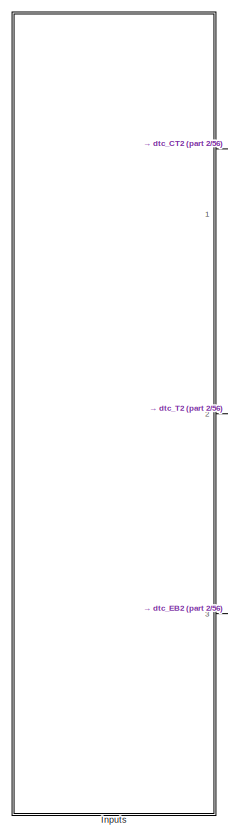
[diagram: root canvas - part 1/56, top left region]
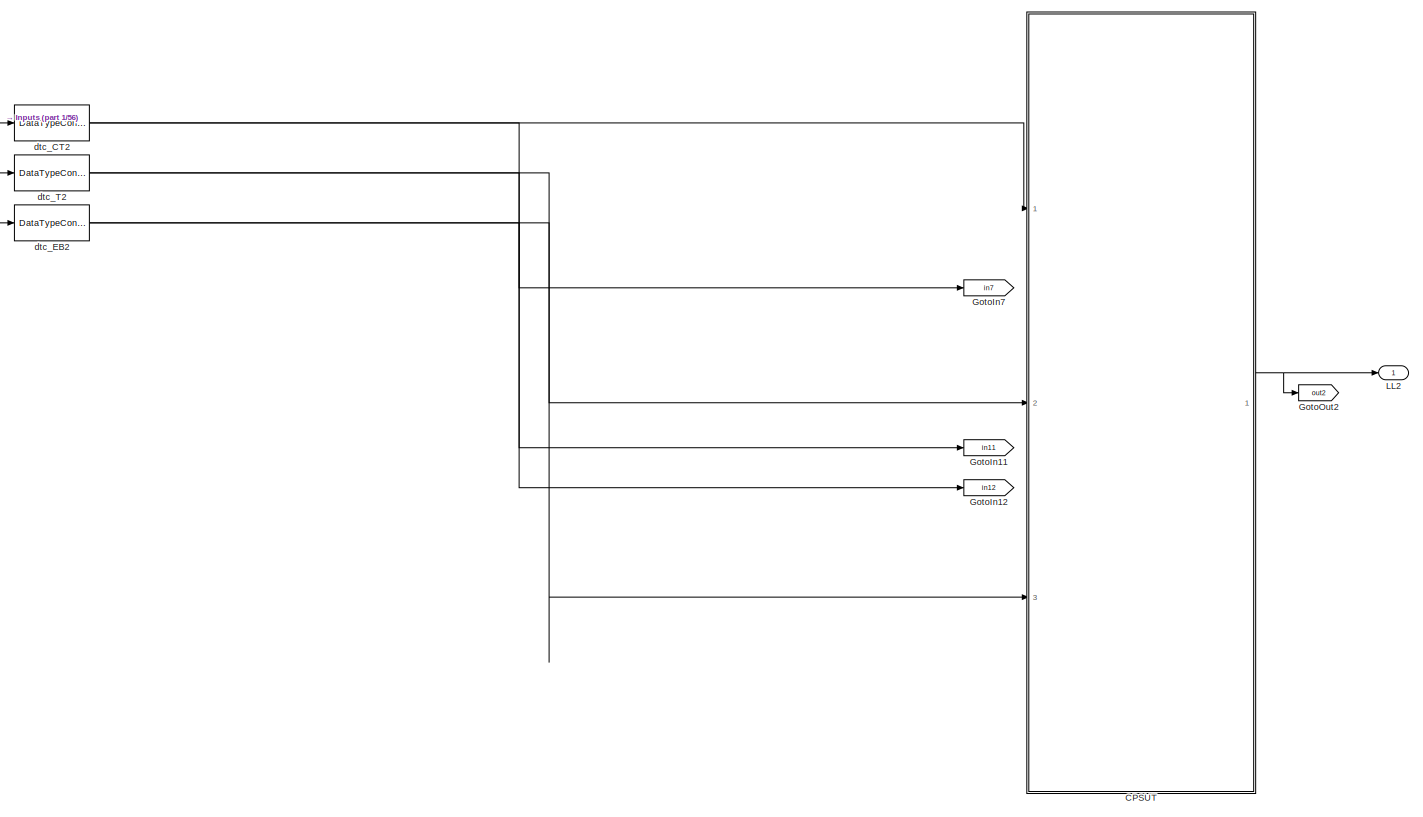
[diagram: root canvas - part 2/56, top left region]
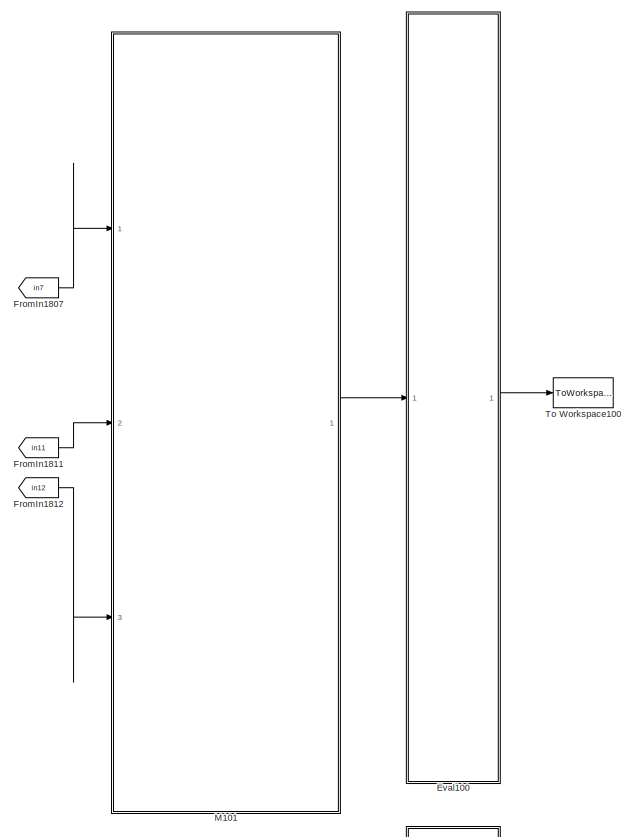
[diagram: root canvas - part 3/56, top right region]
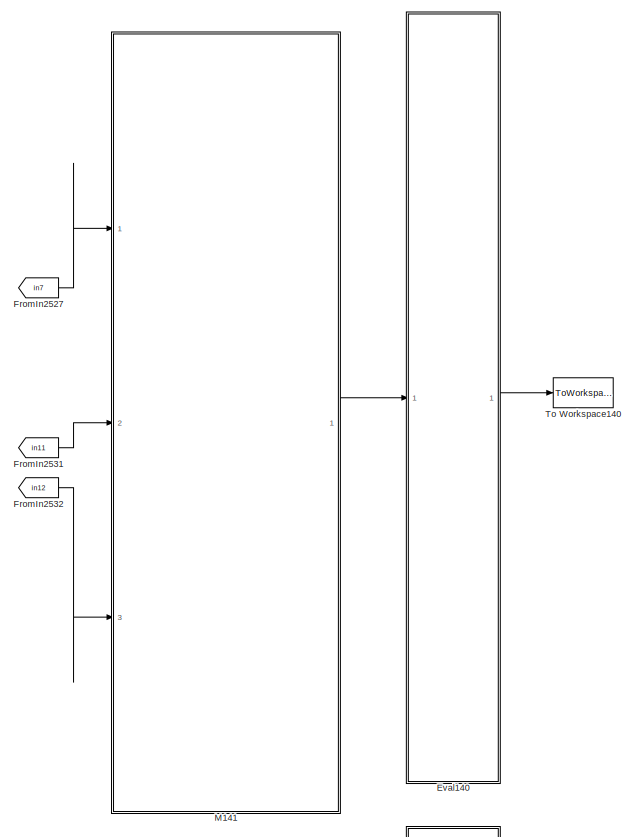
[diagram: root canvas - part 4/56, top right region]
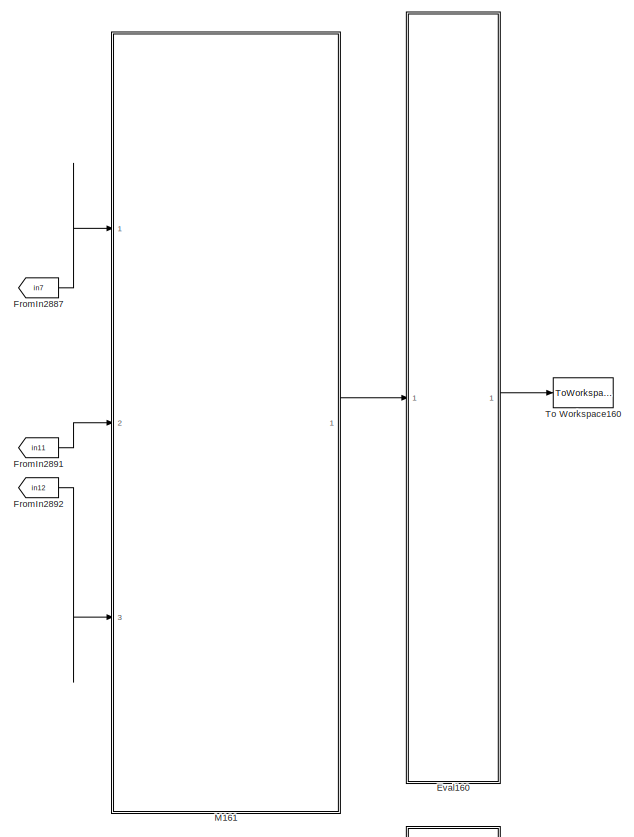
[diagram: root canvas - part 5/56, top right region]
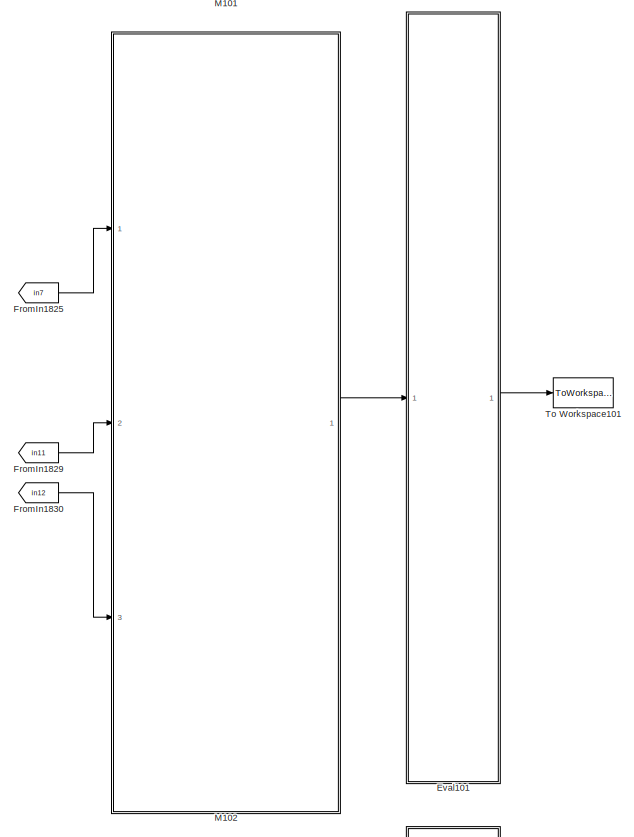
[diagram: root canvas - part 6/56, top right region]
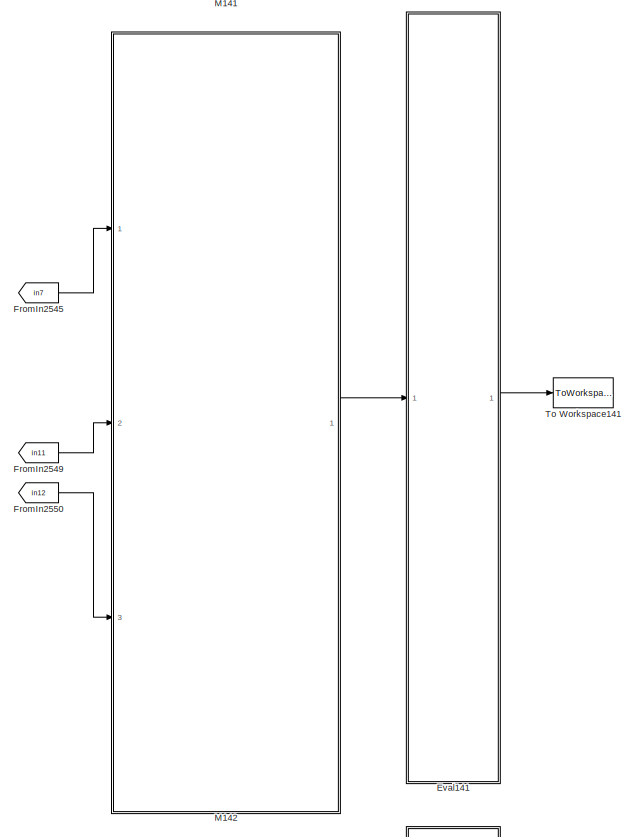
[diagram: root canvas - part 7/56, top right region]
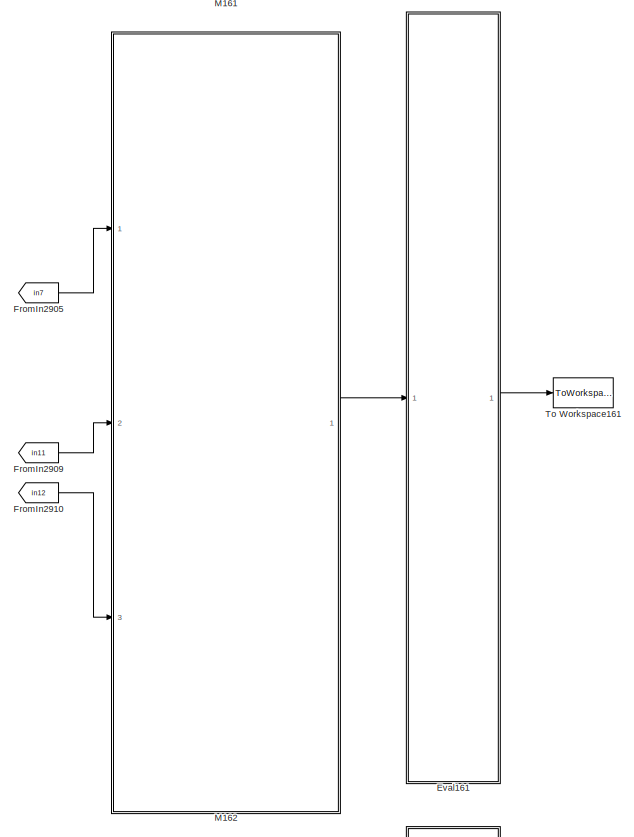
[diagram: root canvas - part 8/56, top right region]
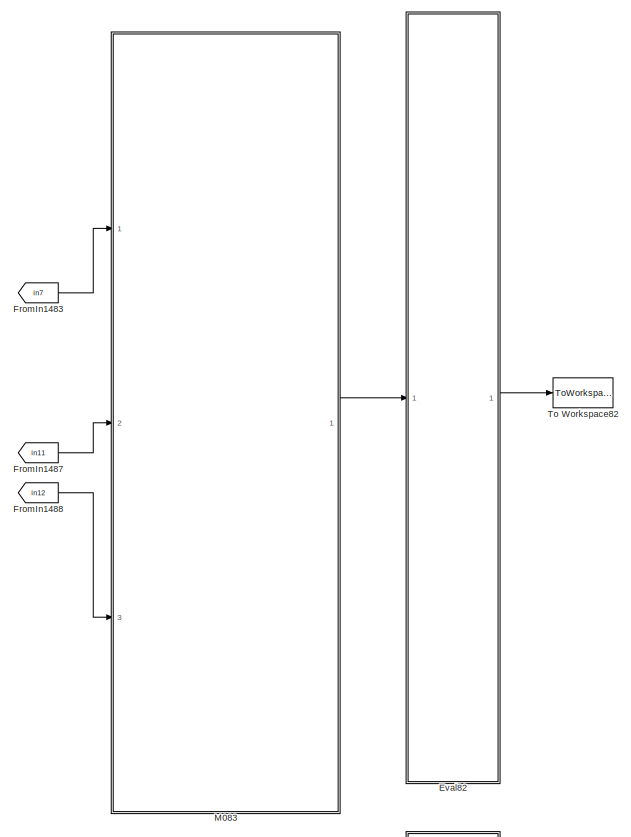
[diagram: root canvas - part 9/56, top center region]
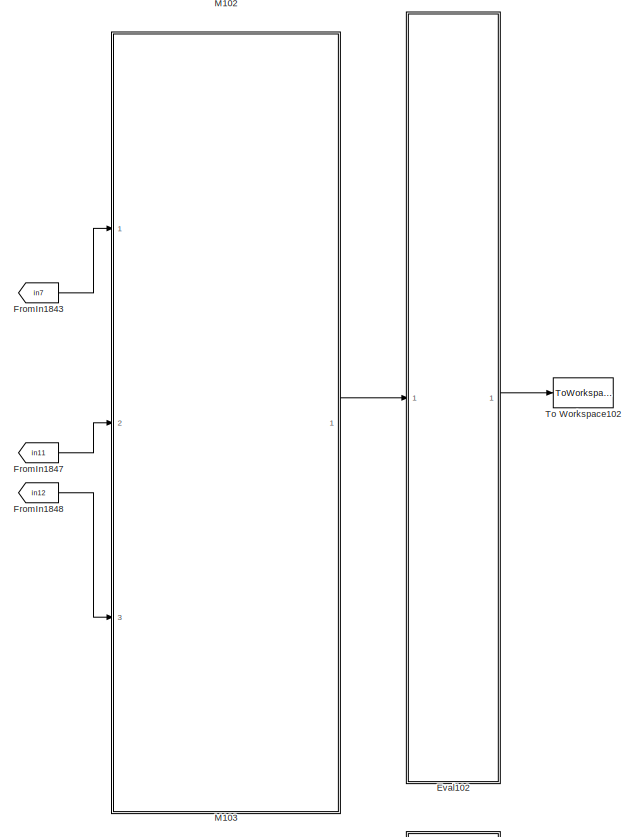
[diagram: root canvas - part 10/56, top right region]
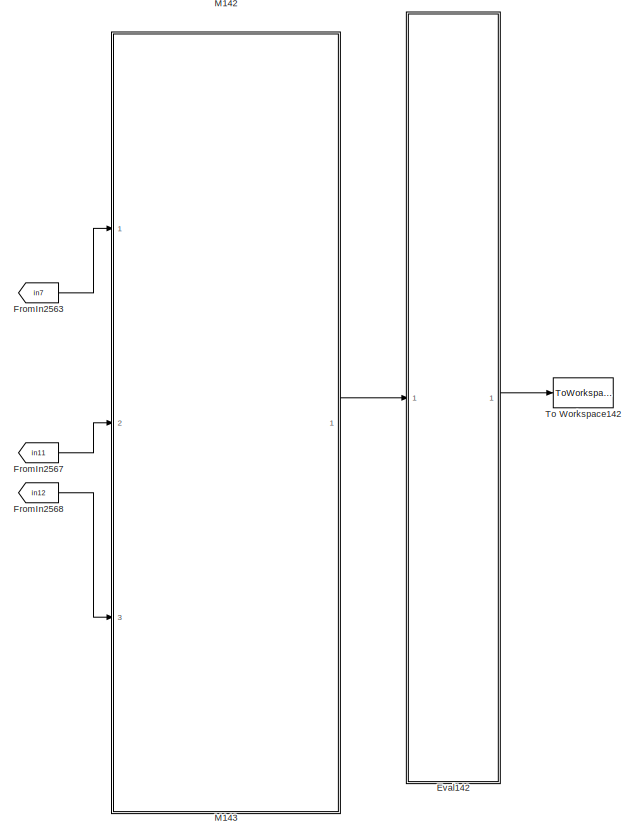
[diagram: root canvas - part 11/56, top right region]
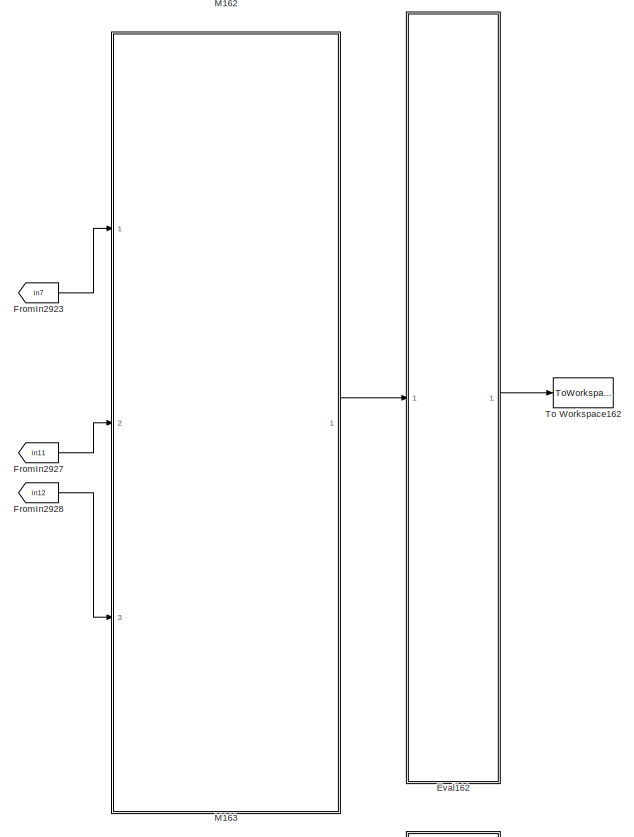
[diagram: root canvas - part 12/56, top right region]
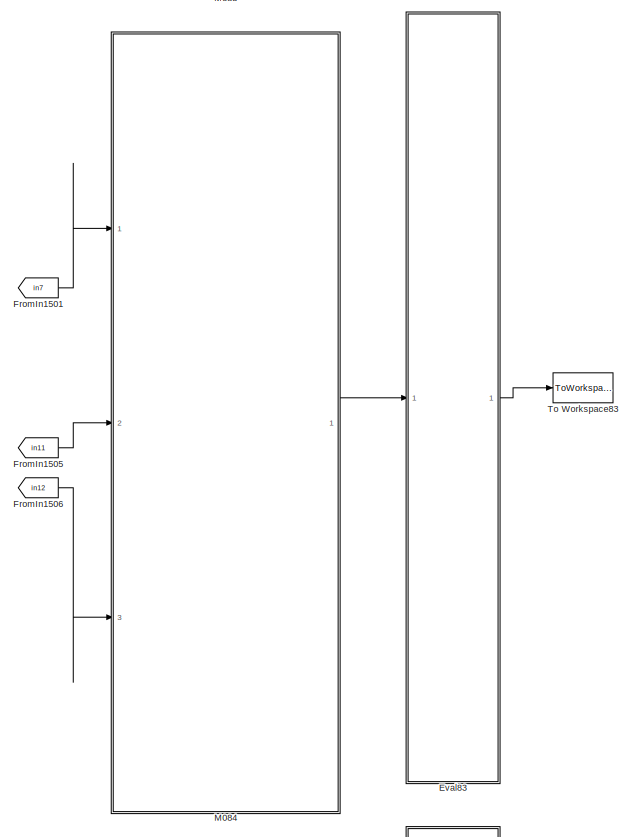
[diagram: root canvas - part 13/56, top center region]
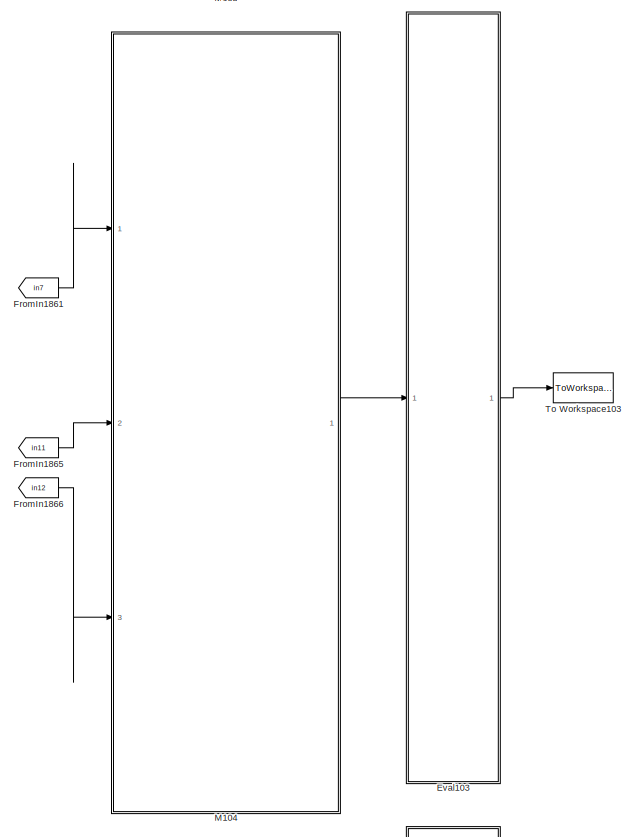
[diagram: root canvas - part 14/56, top right region]
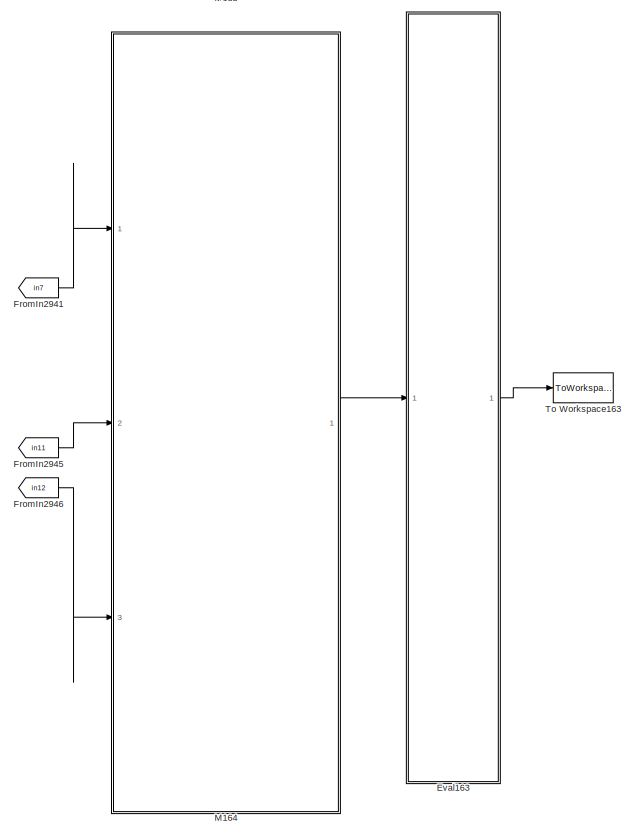
[diagram: root canvas - part 15/56, top right region]
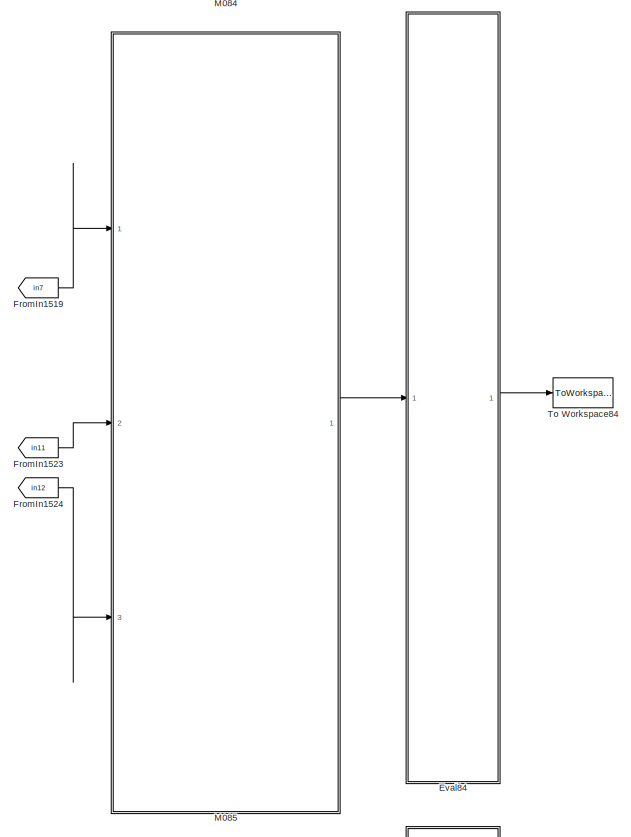
[diagram: root canvas - part 16/56, top center region]
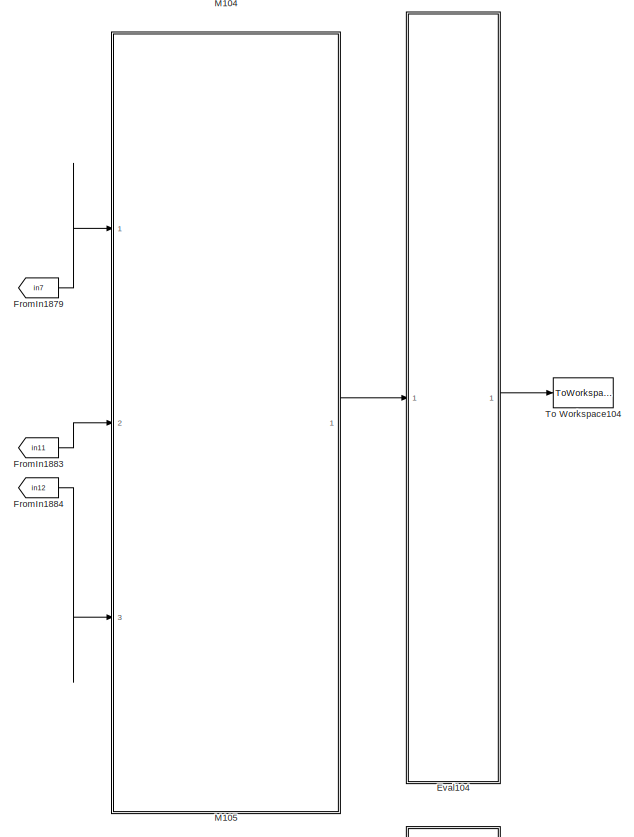
[diagram: root canvas - part 17/56, top right region]
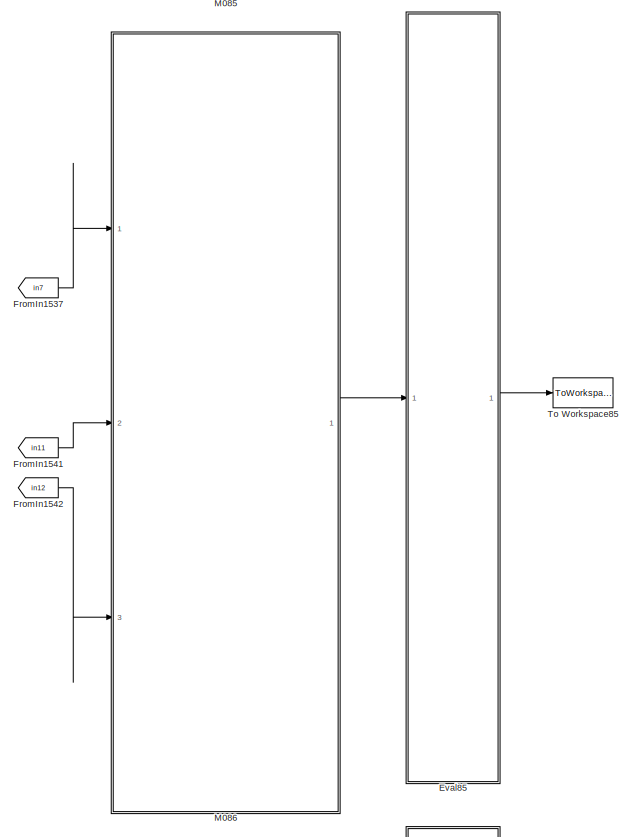
[diagram: root canvas - part 18/56, top center region]
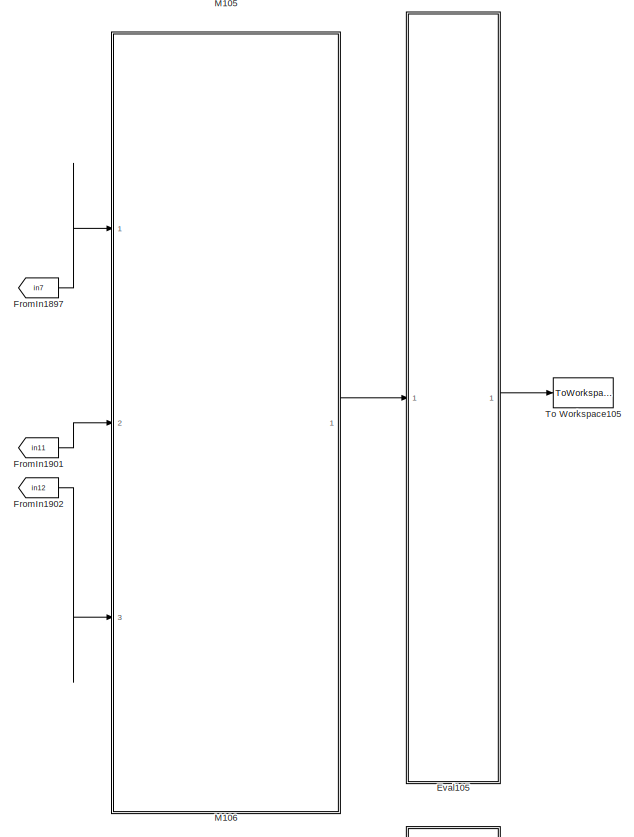
[diagram: root canvas - part 19/56, top right region]
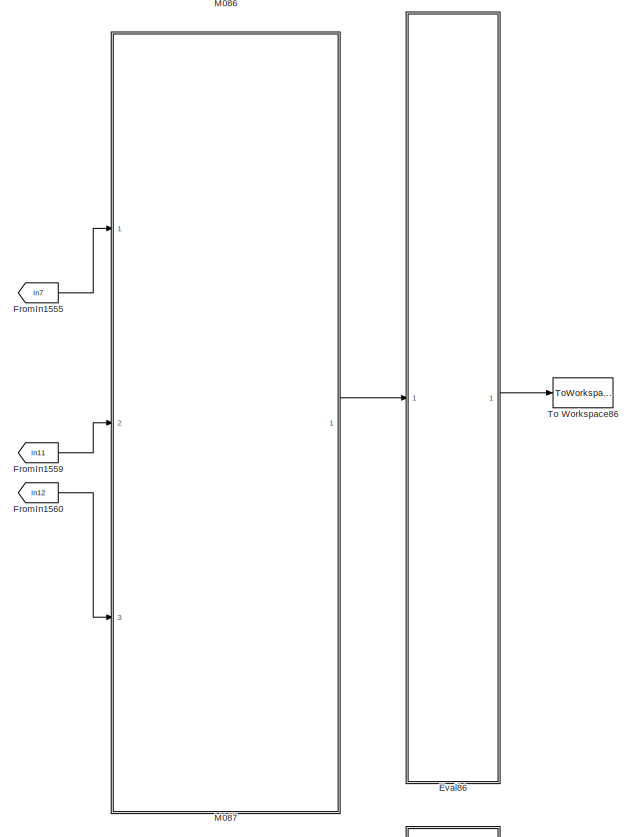
[diagram: root canvas - part 20/56, central region]
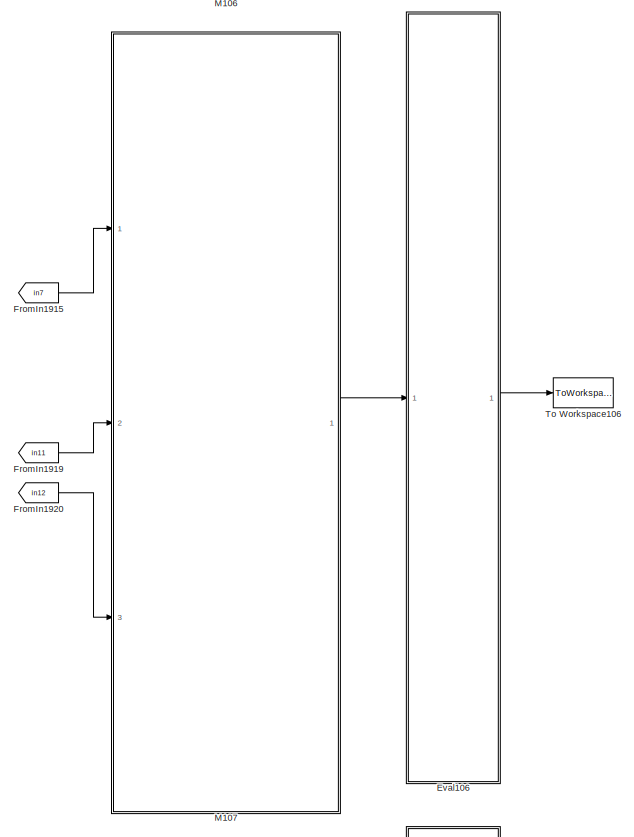
[diagram: root canvas - part 21/56, middle right region]
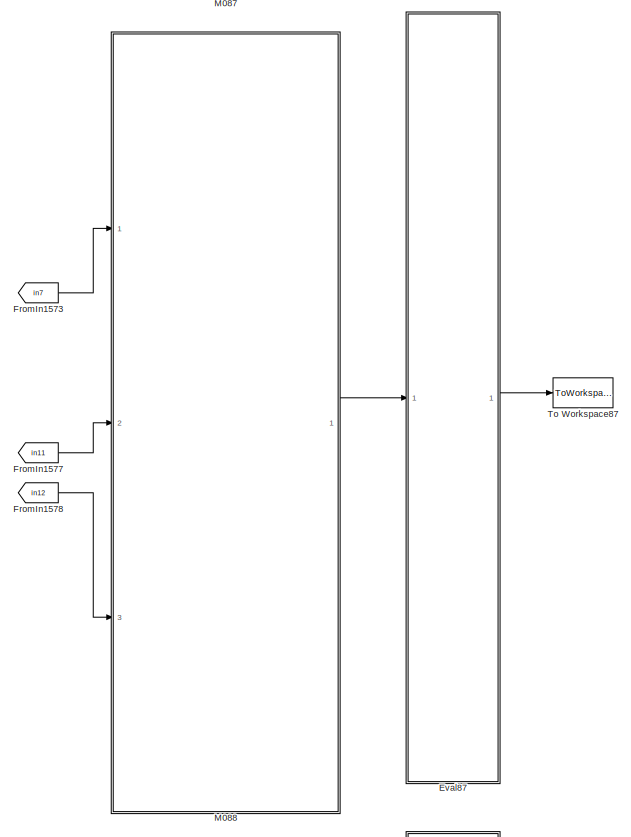
[diagram: root canvas - part 22/56, central region]
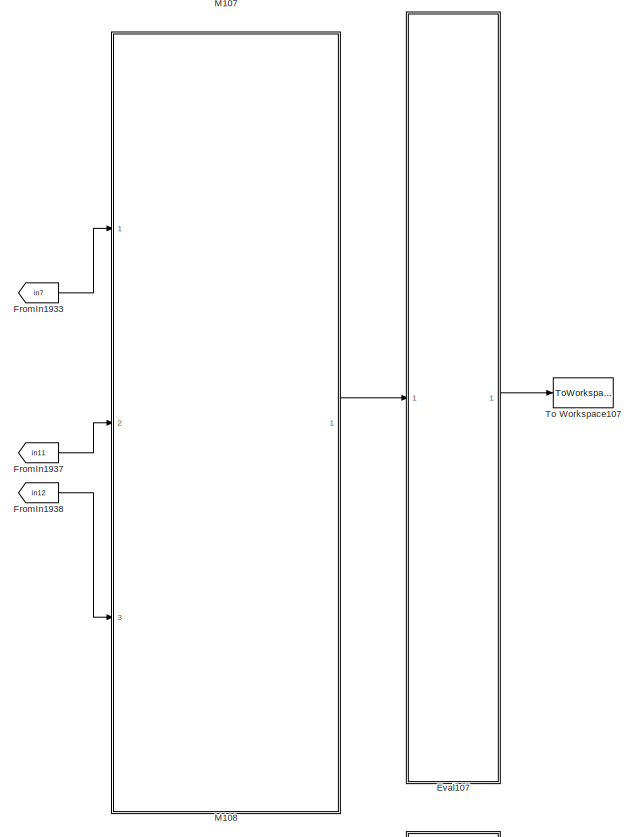
[diagram: root canvas - part 23/56, middle right region]
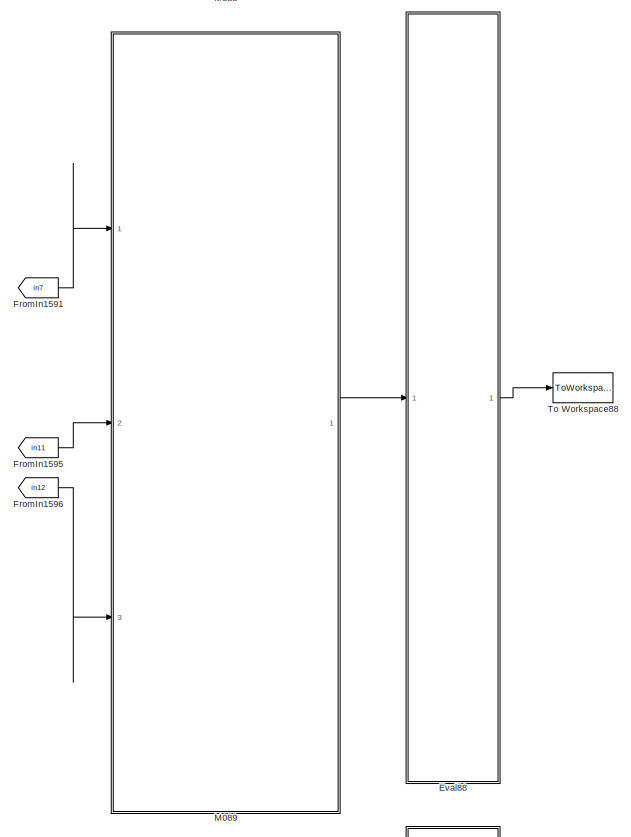
[diagram: root canvas - part 24/56, central region]
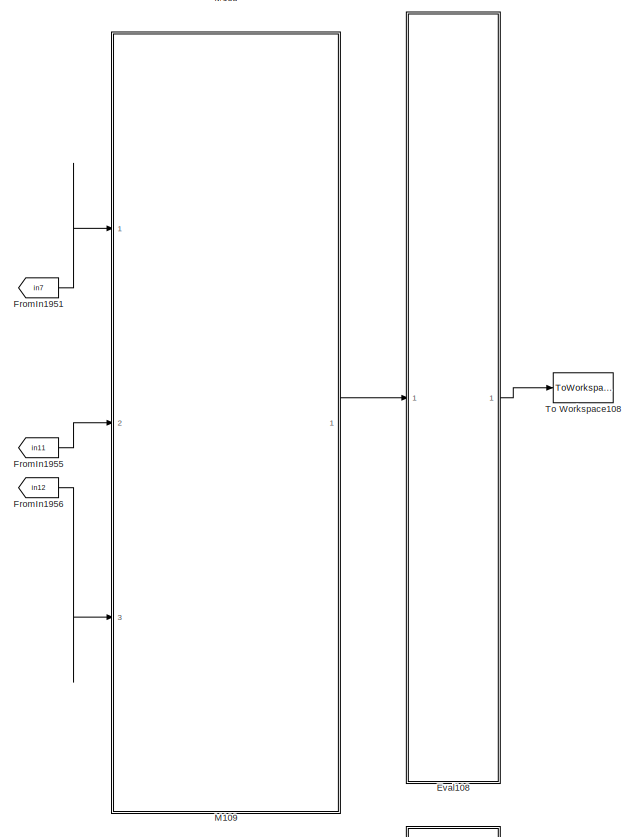
[diagram: root canvas - part 25/56, middle right region]
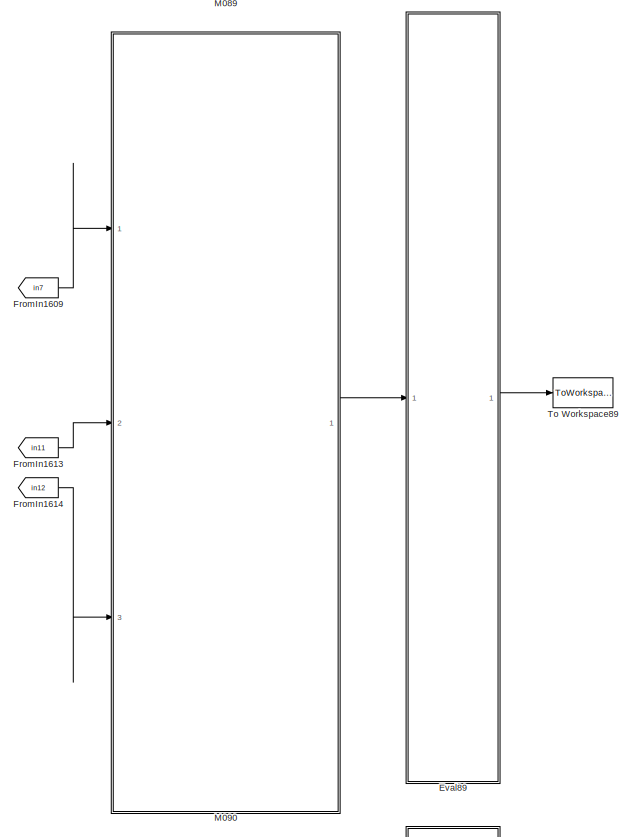
[diagram: root canvas - part 26/56, central region]
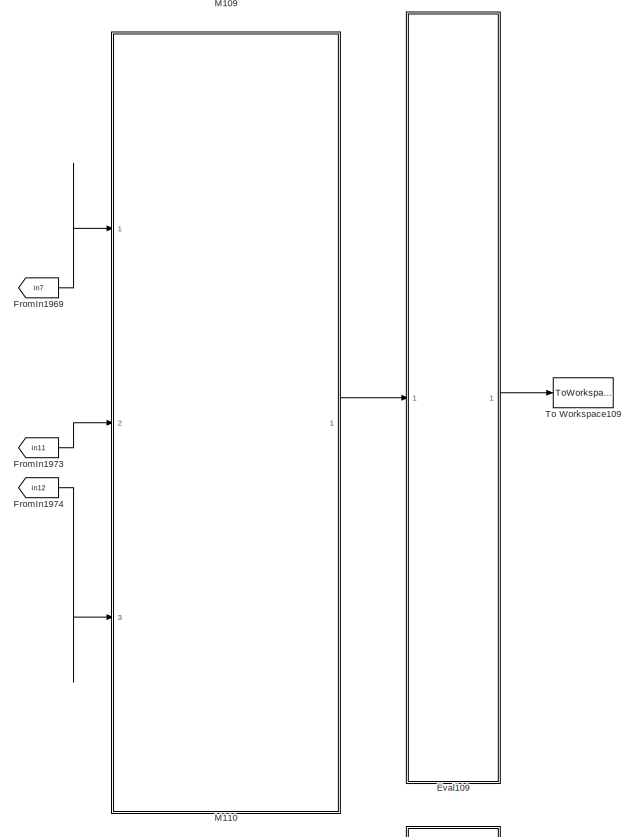
[diagram: root canvas - part 27/56, middle right region]
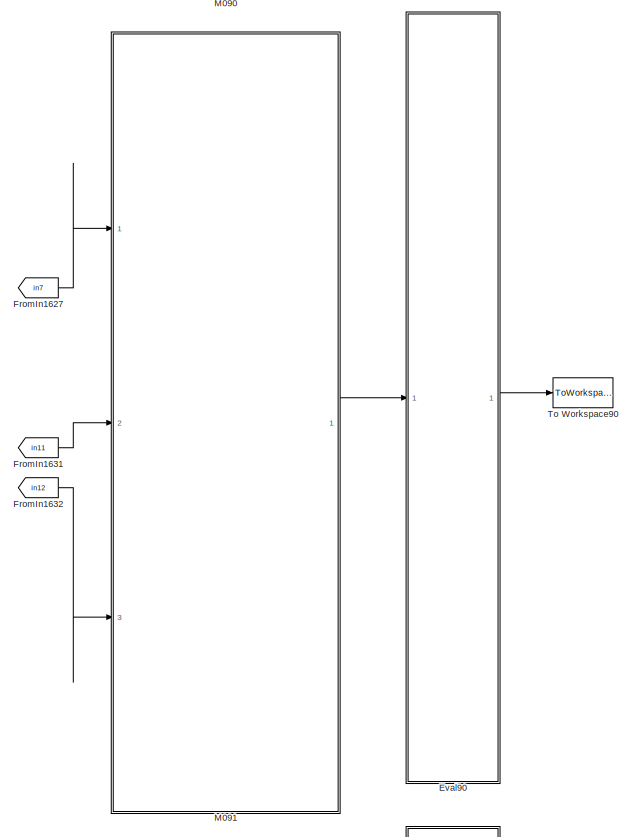
[diagram: root canvas - part 28/56, central region]
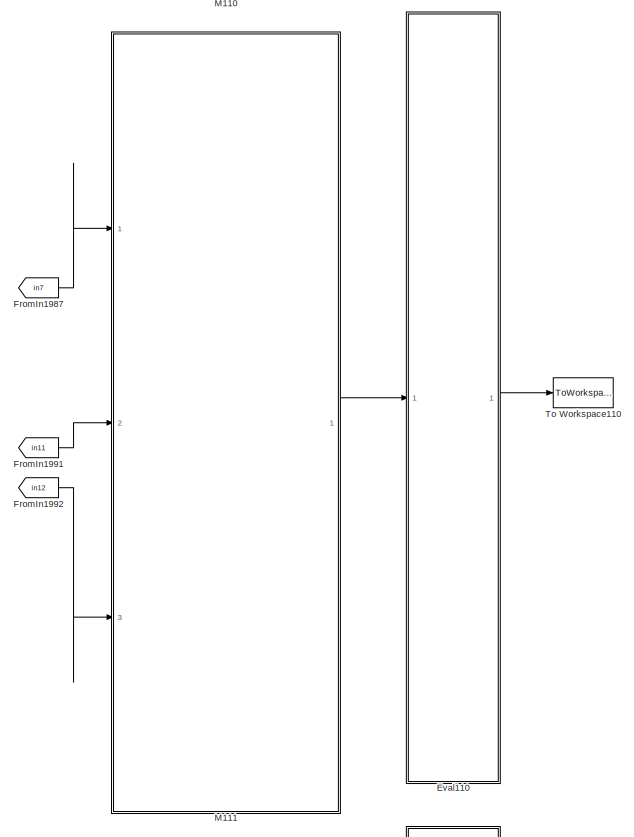
[diagram: root canvas - part 29/56, middle right region]
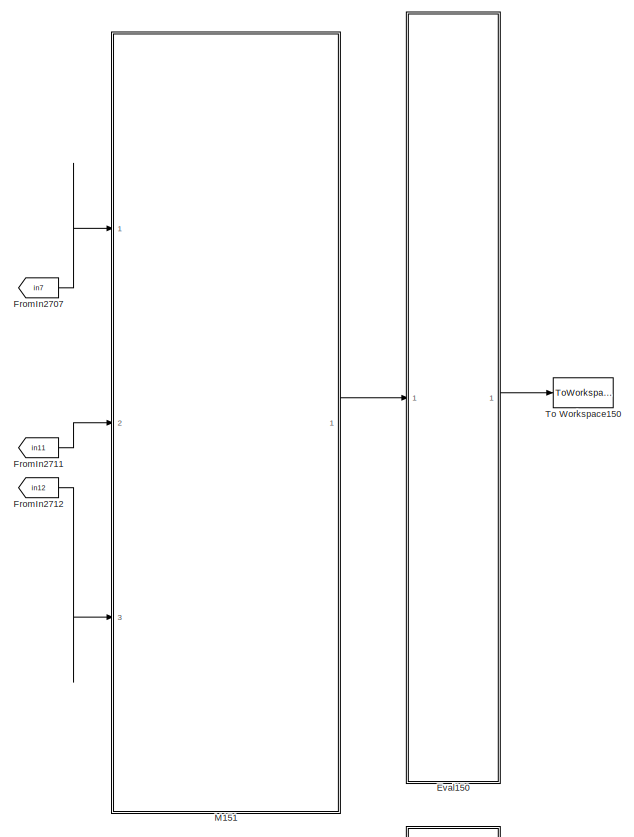
[diagram: root canvas - part 30/56, middle right region]
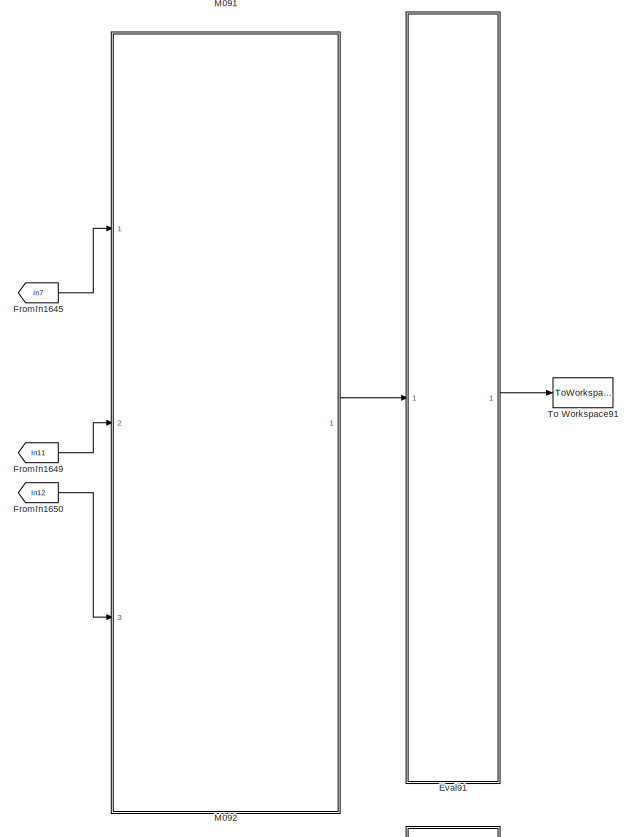
[diagram: root canvas - part 31/56, central region]
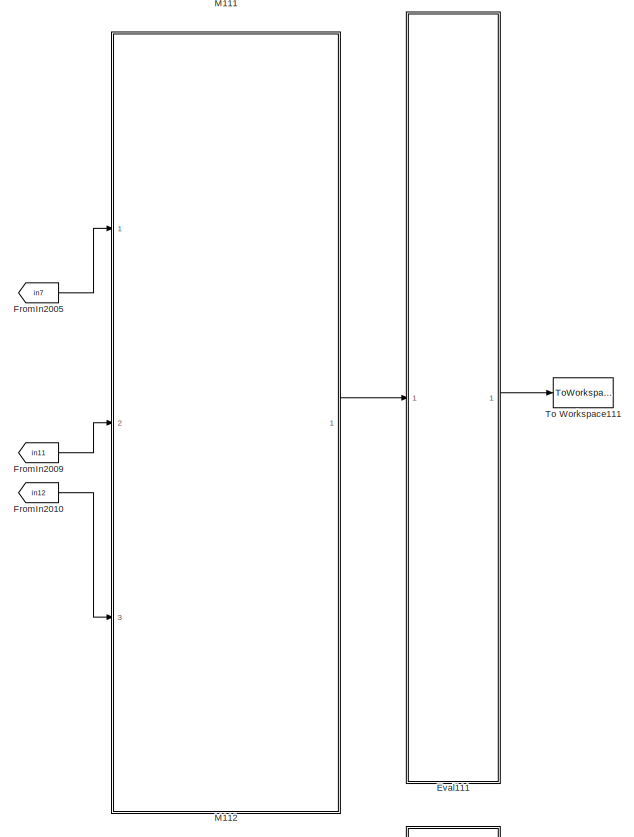
[diagram: root canvas - part 32/56, middle right region]
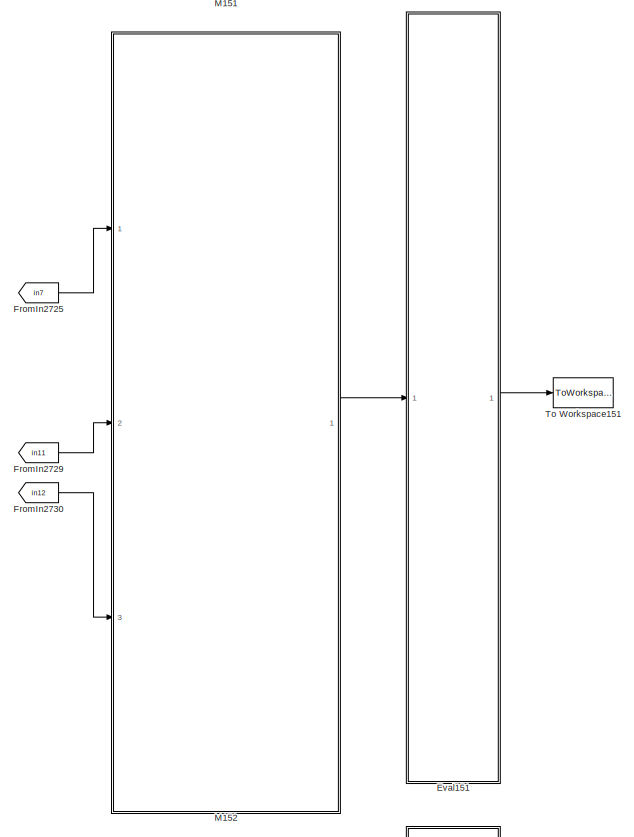
[diagram: root canvas - part 33/56, middle right region]
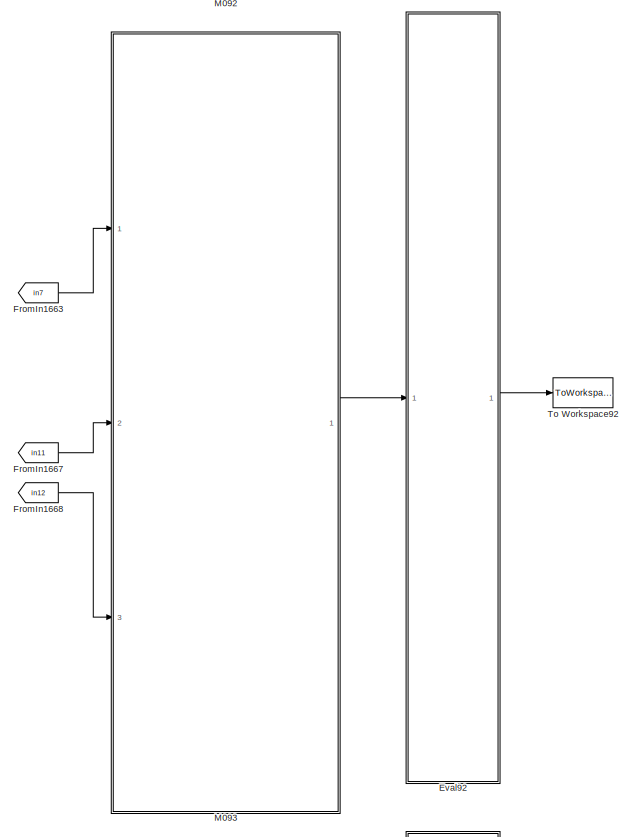
[diagram: root canvas - part 34/56, central region]
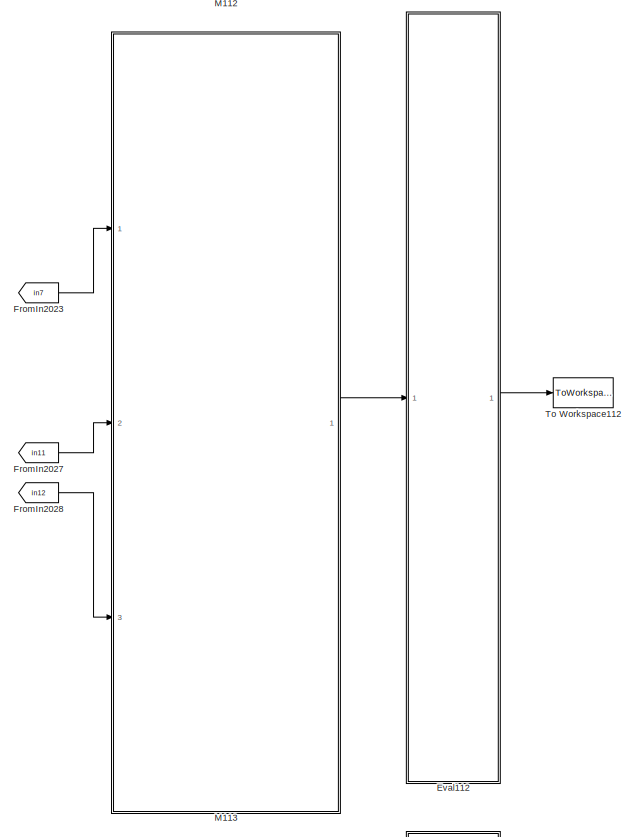
[diagram: root canvas - part 35/56, middle right region]
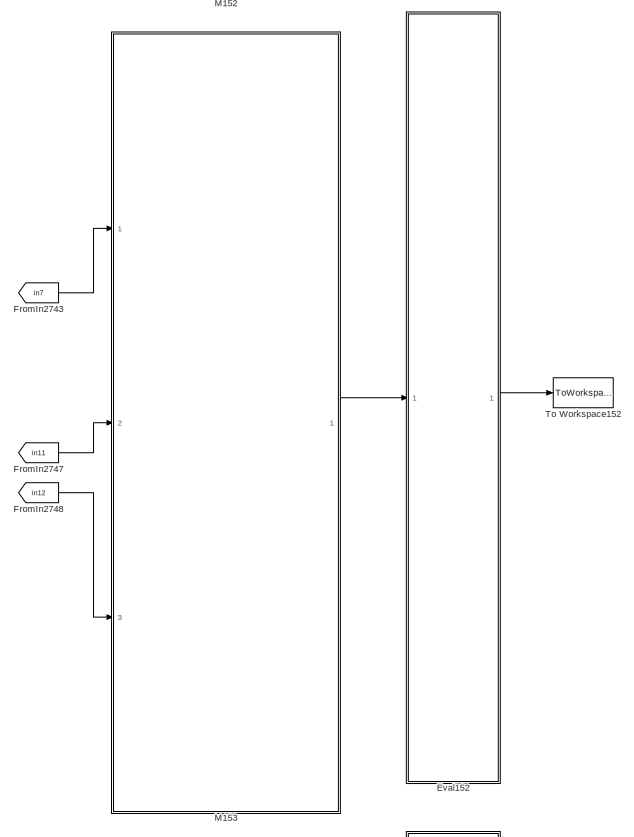
[diagram: root canvas - part 36/56, middle right region]
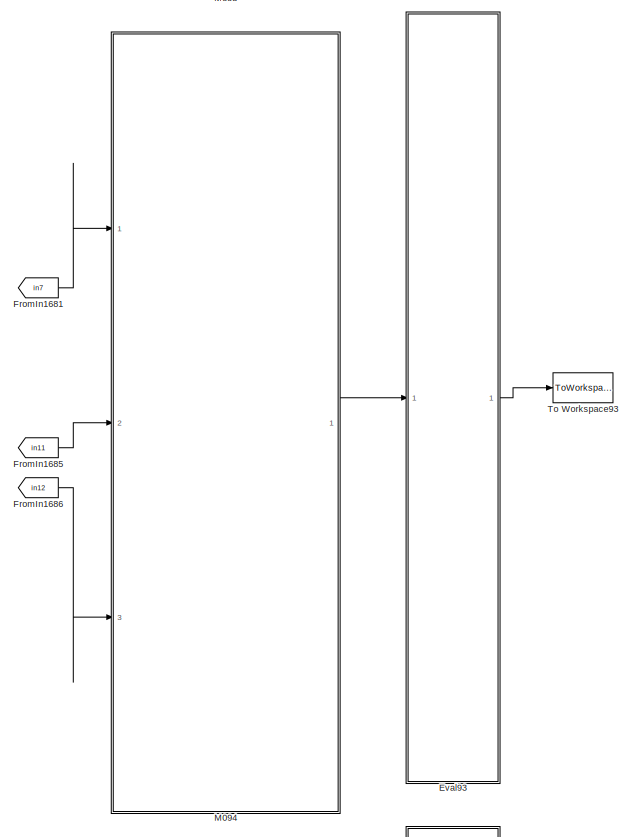
[diagram: root canvas - part 37/56, bottom center region]
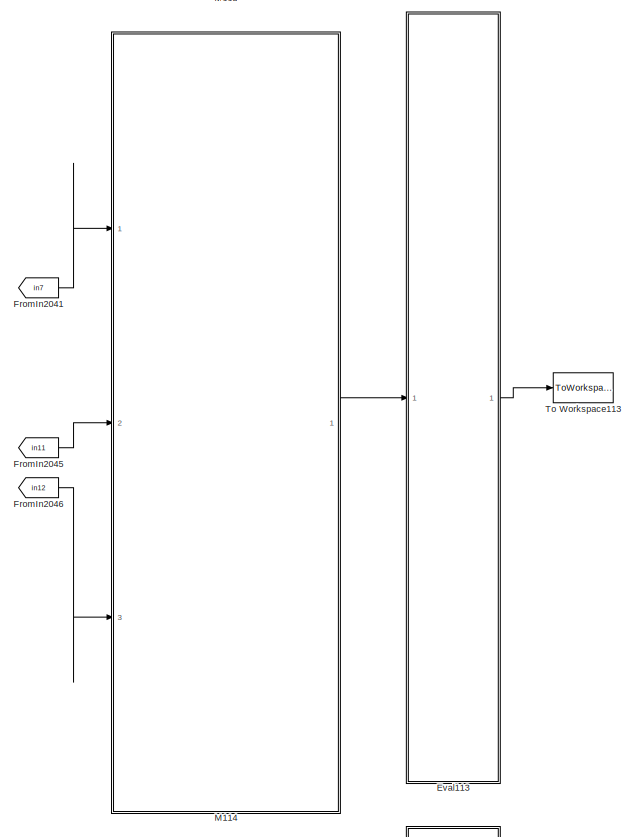
[diagram: root canvas - part 38/56, bottom right region]
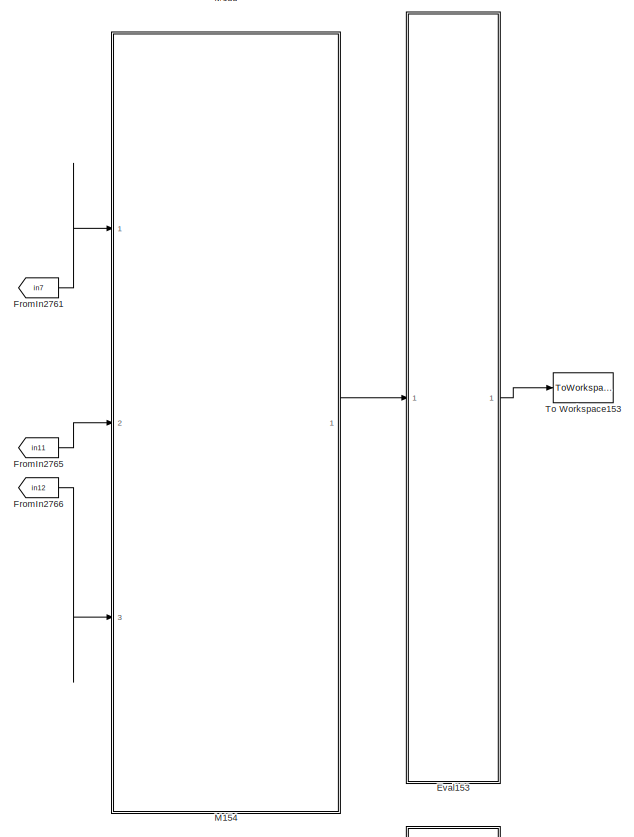
[diagram: root canvas - part 39/56, bottom right region]
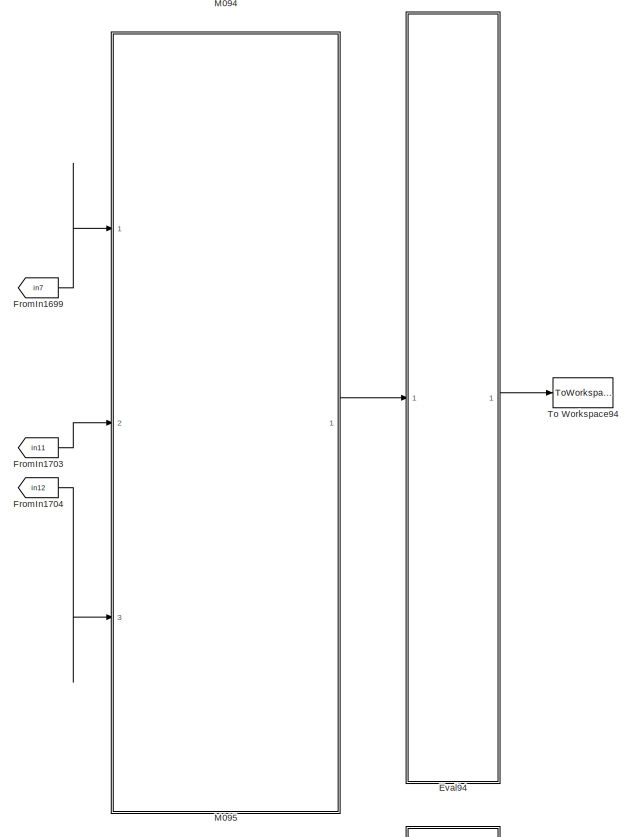
[diagram: root canvas - part 40/56, bottom center region]
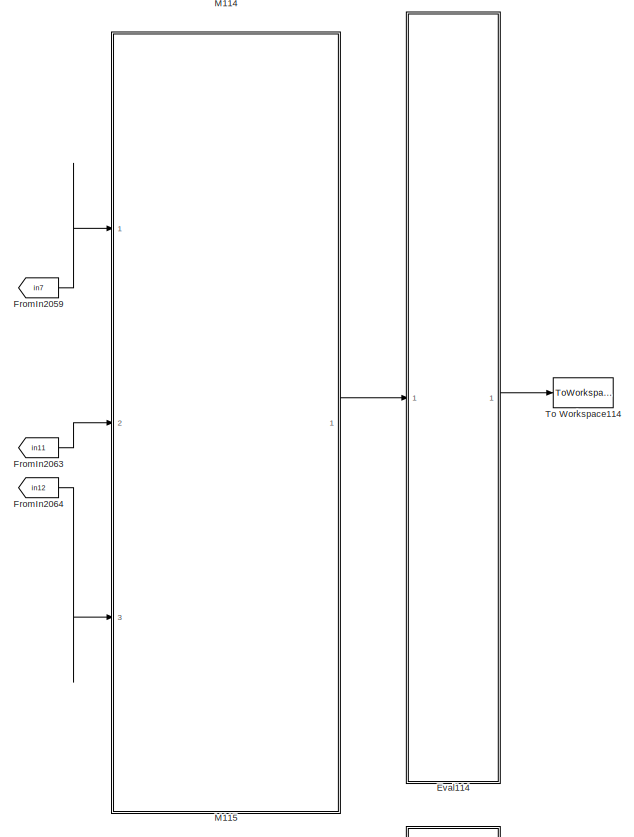
[diagram: root canvas - part 41/56, bottom right region]
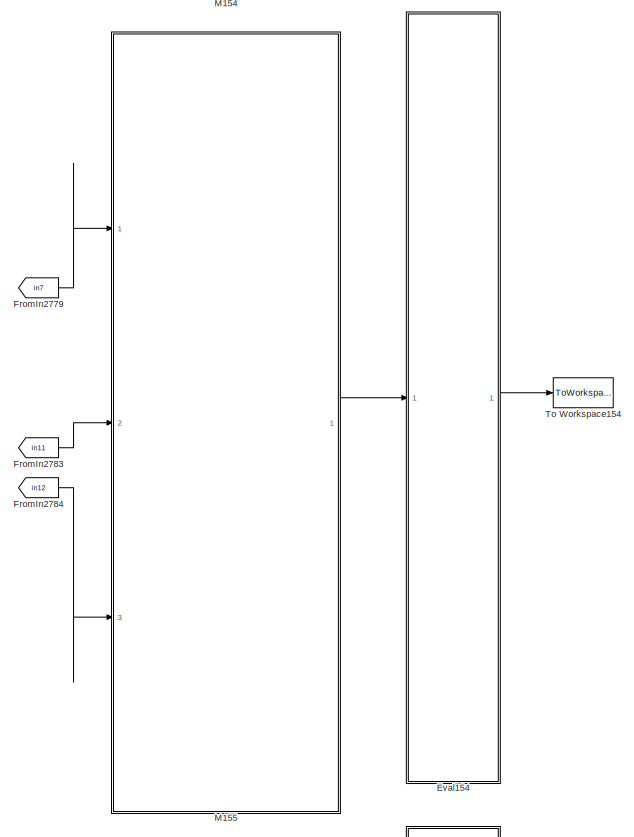
[diagram: root canvas - part 42/56, bottom right region]
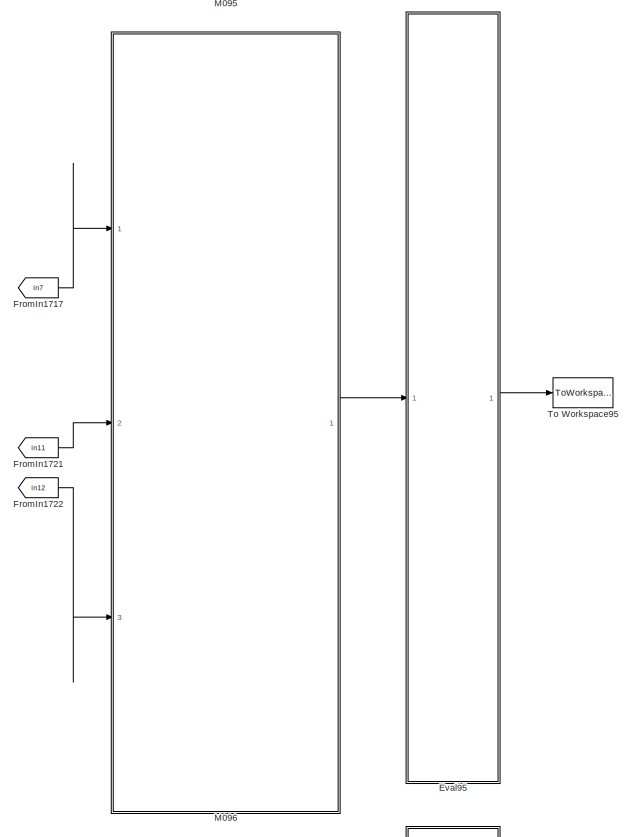
[diagram: root canvas - part 43/56, bottom center region]
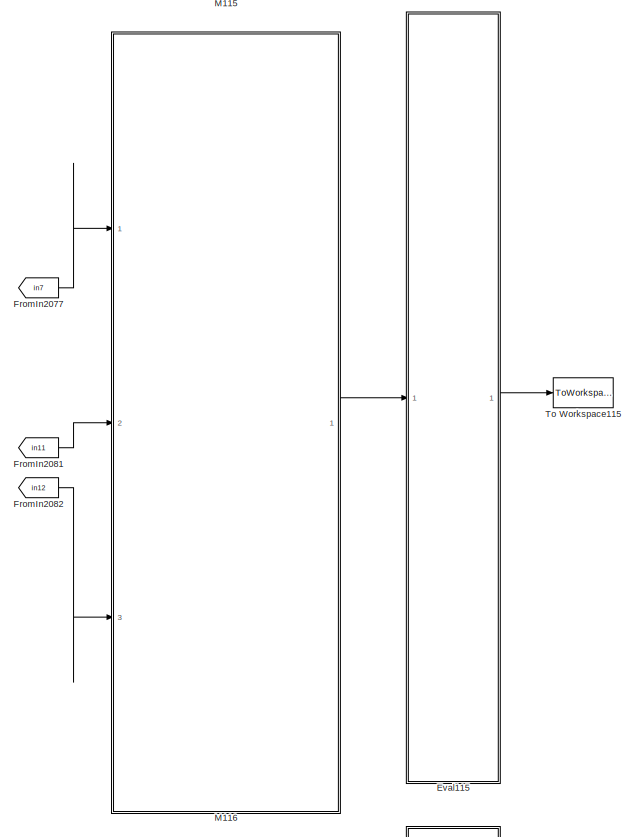
[diagram: root canvas - part 44/56, bottom right region]
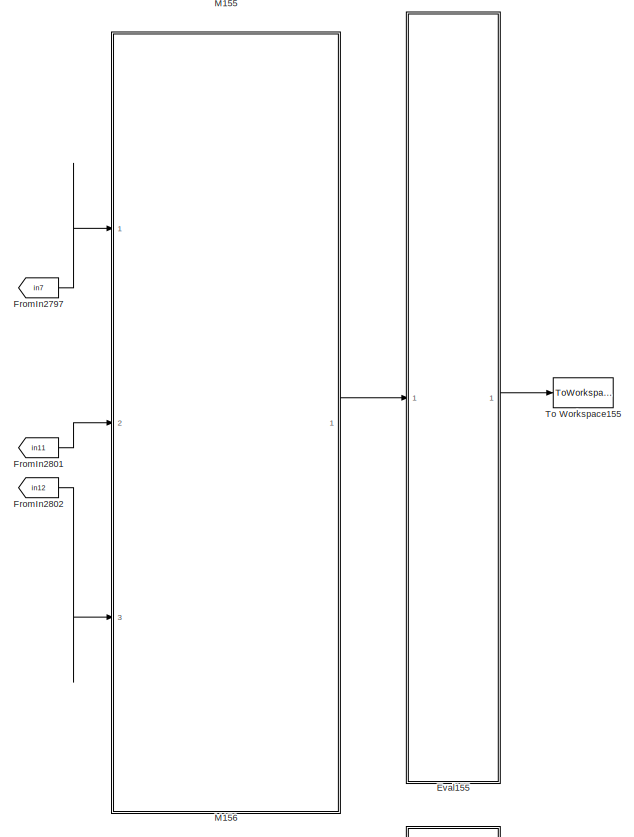
[diagram: root canvas - part 45/56, bottom right region]
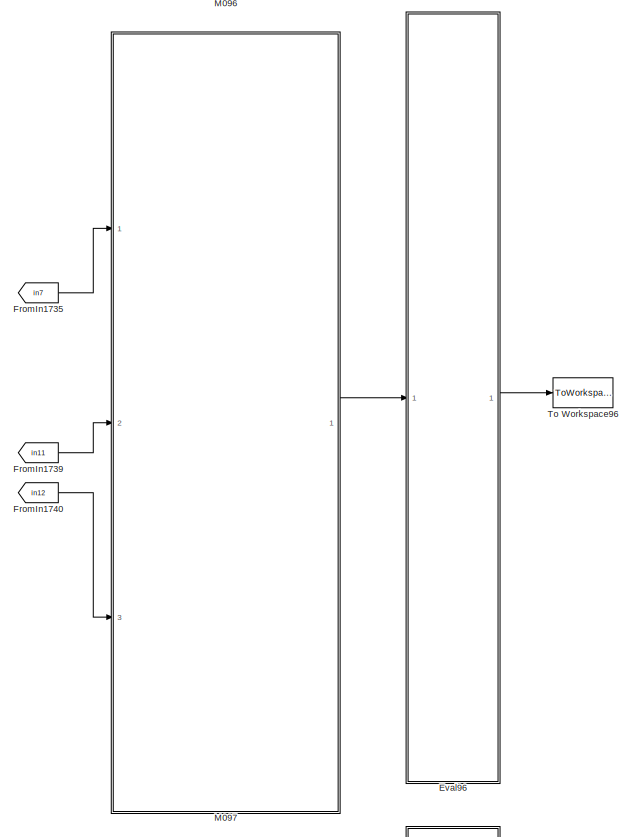
[diagram: root canvas - part 46/56, bottom center region]
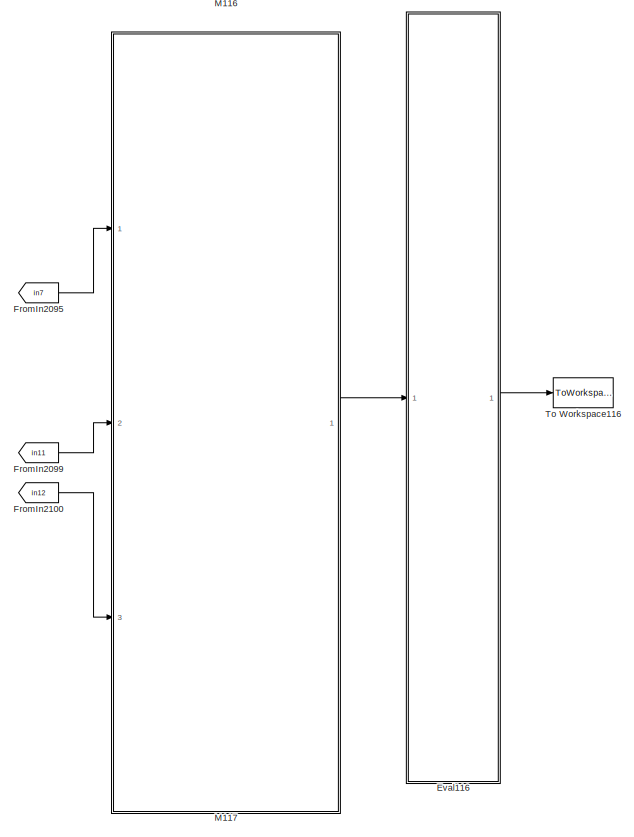
[diagram: root canvas - part 47/56, bottom right region]
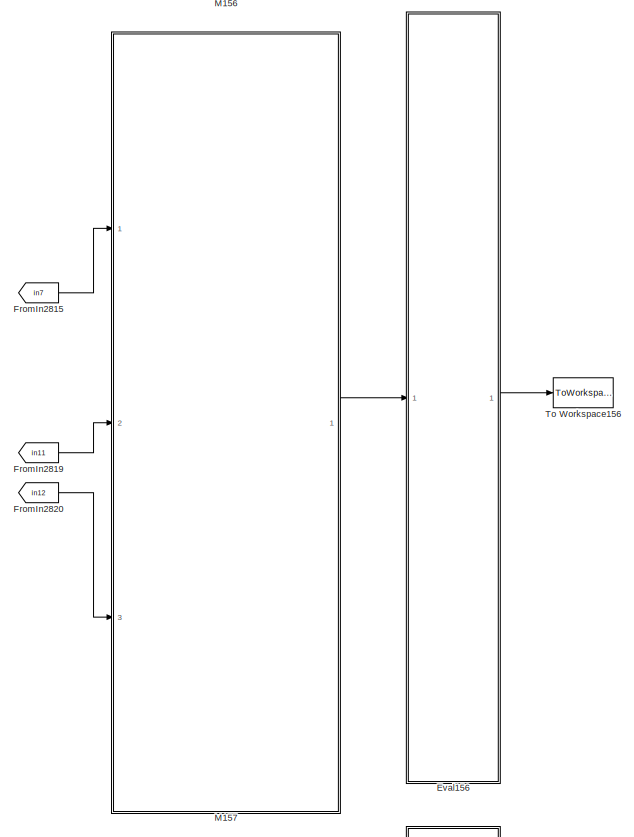
[diagram: root canvas - part 48/56, bottom right region]
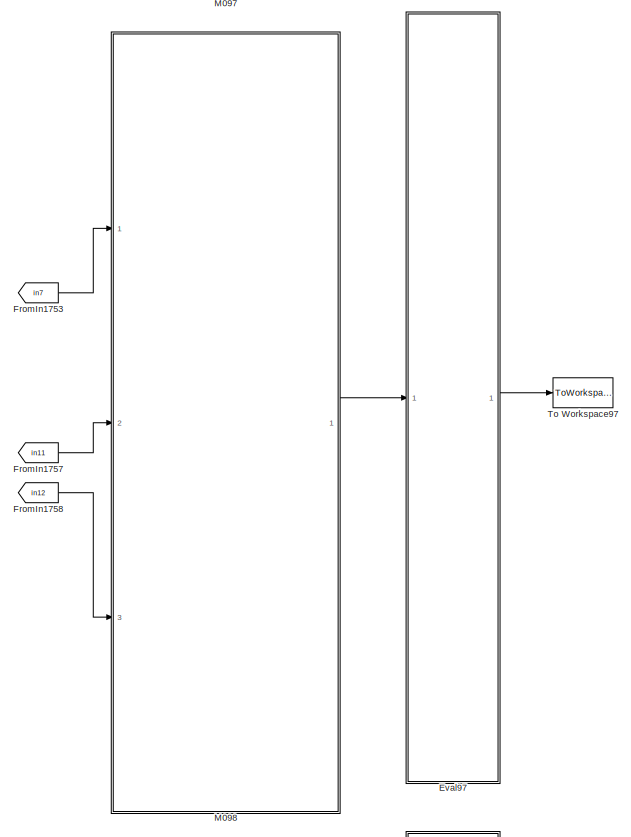
[diagram: root canvas - part 49/56, bottom center region]
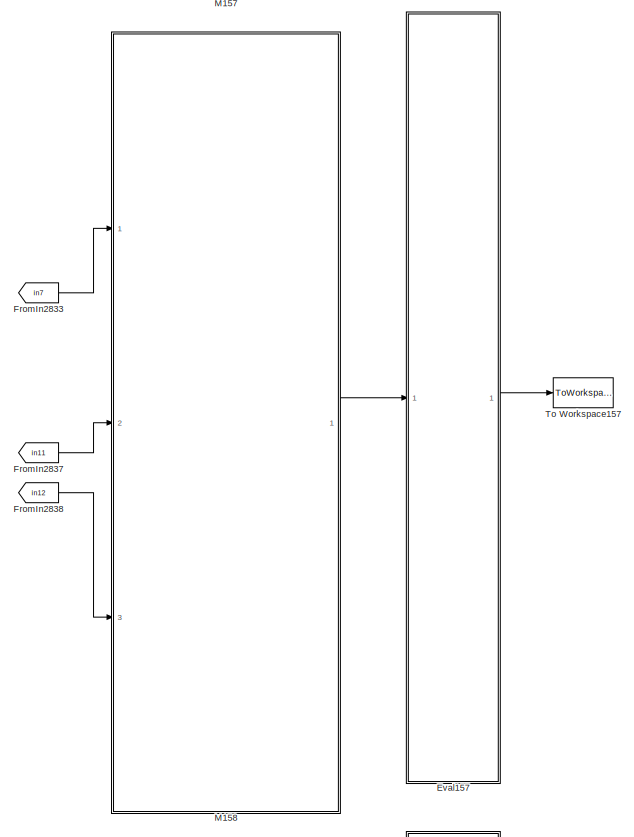
[diagram: root canvas - part 50/56, bottom right region]
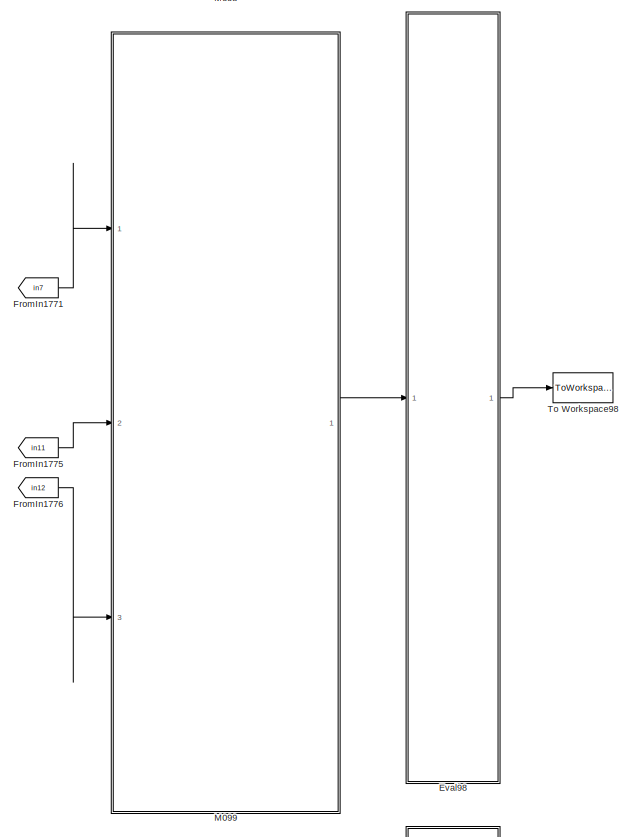
[diagram: root canvas - part 51/56, bottom center region]
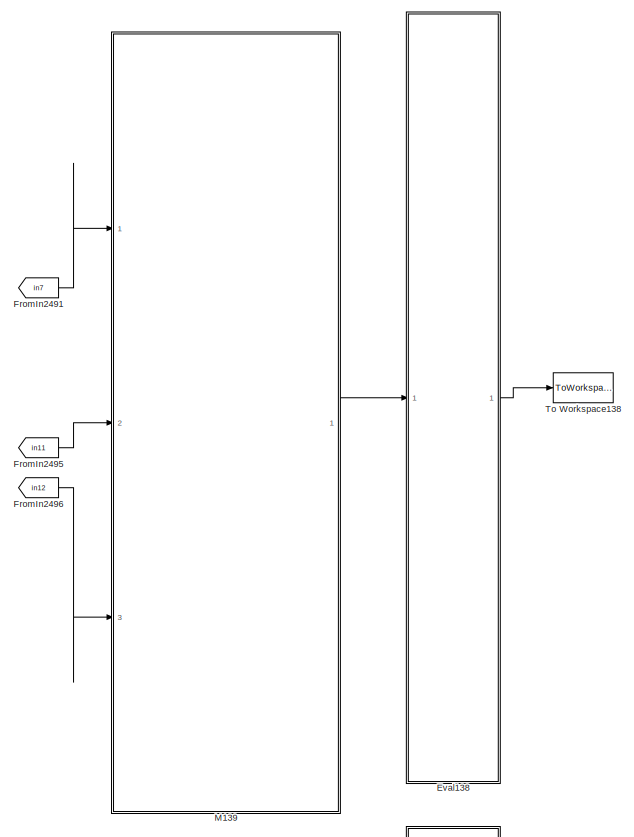
[diagram: root canvas - part 52/56, bottom right region]
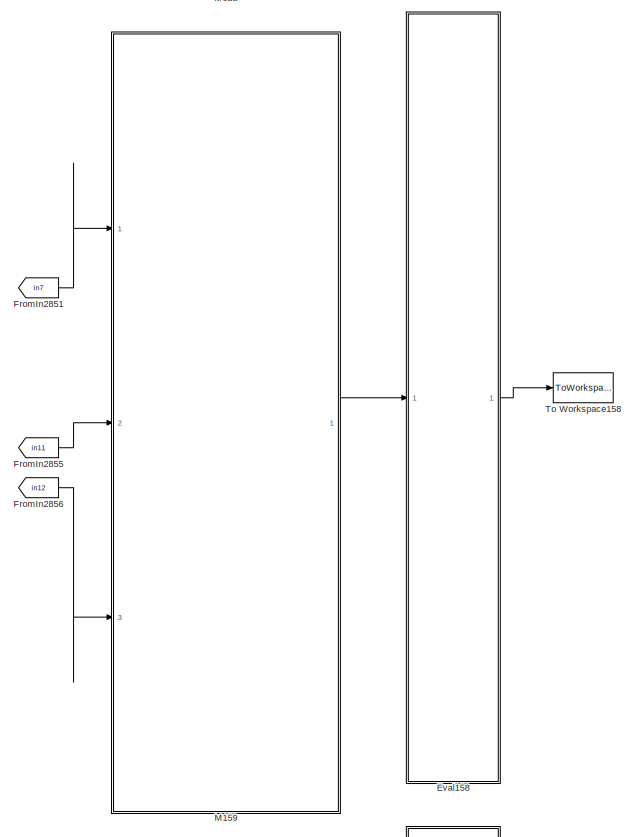
[diagram: root canvas - part 53/56, bottom right region]
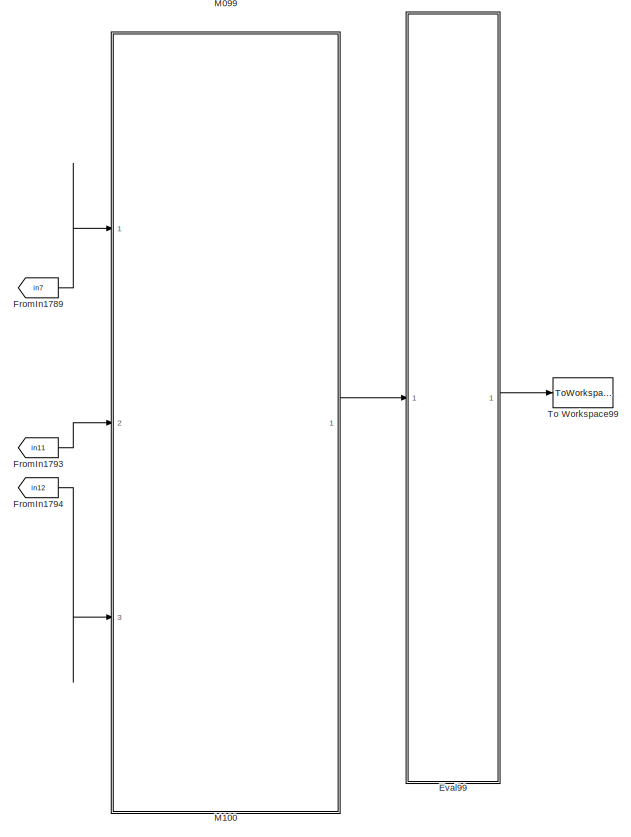
[diagram: root canvas - part 54/56, bottom center region]
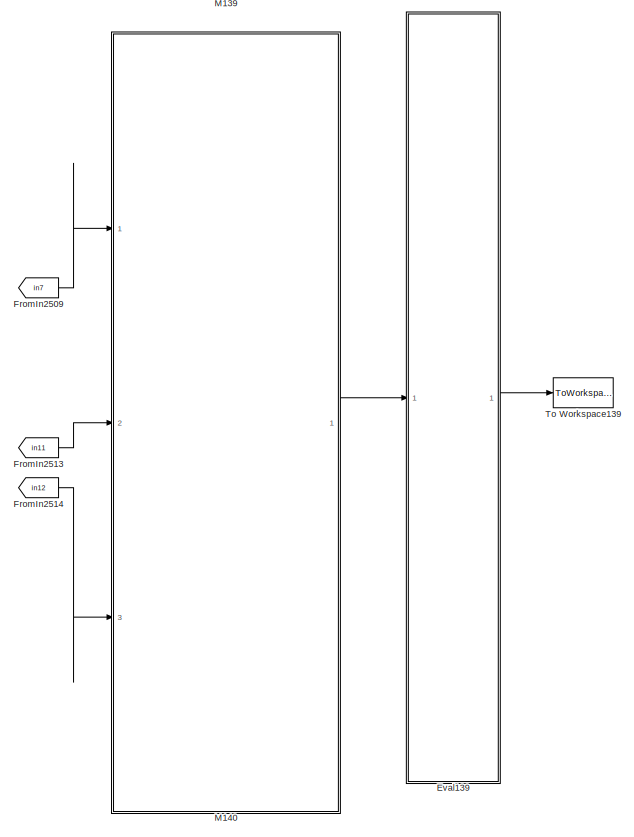
[diagram: root canvas - part 55/56, bottom right region]
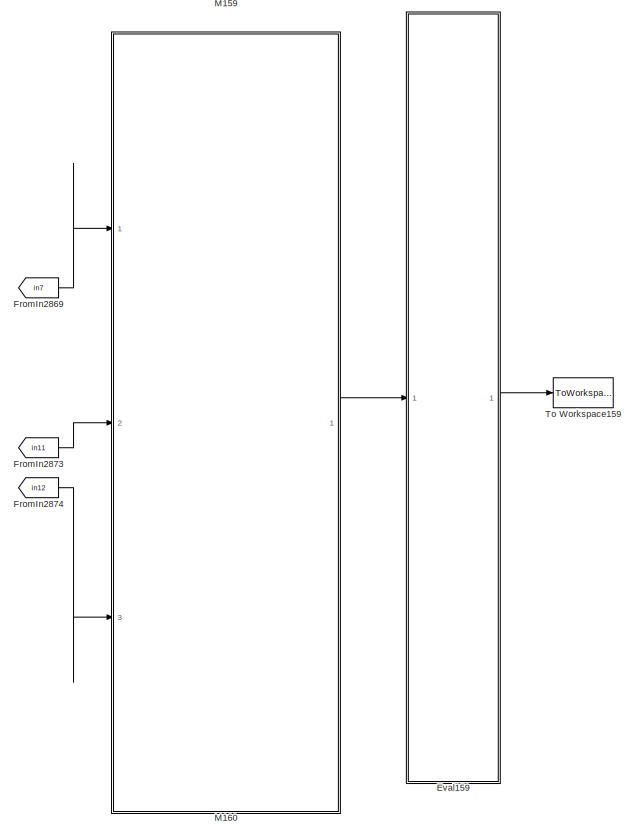
[diagram: root canvas - part 56/56, bottom right region]
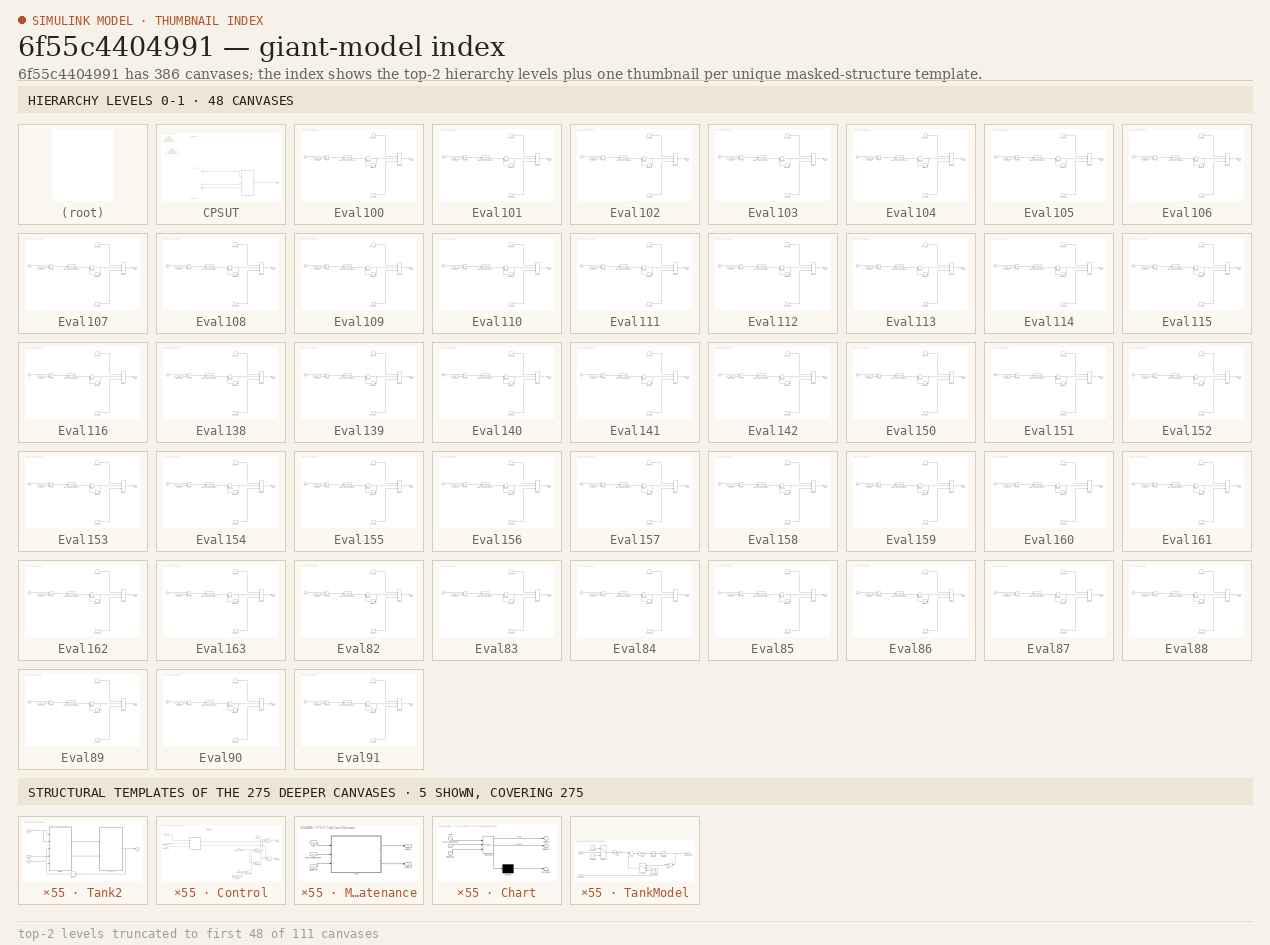
[diagram: thumbnail index - top-2 hierarchy levels (111 canvases (first 48 of 111 shown)) + 5 structural-template representatives of the remaining 275 canvases]
MODEL slx_6f55c4404991
KIND model
CONFIG AbsTol = auto
CONFIG EnableMultiTasking = off
CONFIG FixedStep = 0.1
CONFIG MaxStep = auto
CONFIG MinStep = auto
CONFIG RelTol = 1e-3
CONFIG SampleTimeConstraint = Unconstrained
CONFIG Solver = FixedStepAuto
CONFIG SolverName = FixedStepAuto
CONFIG StartTime = 0.0
CONFIG StopTime = 300
BLOCK [SubSystem] CPSUT
  Ports = [3, 1]
  RequestExecContextInheritance = off
BLOCK [Inport] CPSUT/CT2
  IconDisplay = Port number
BLOCK [Inport] CPSUT/EB2
  IconDisplay = Port number
  Port = 3
BLOCK [Outport] CPSUT/LL2
  IconDisplay = Port number
BLOCK [Inport] CPSUT/T2
  IconDisplay = Port number
  Port = 2
BLOCK [SubSystem] CPSUT/Tank2
  Ports = [3, 1]
  RequestExecContextInheritance = off
BLOCK [Inport] CPSUT/Tank2/CT2
  IconDisplay = Port number
BLOCK [SubSystem] CPSUT/Tank2/Control
  Ports = [5, 2]
  RequestExecContextInheritance = off
BLOCK [Constant] CPSUT/Tank2/Control/Constant
  Value = 0
BLOCK [Constant] CPSUT/Tank2/Control/Constant1
  Value = TempThreshold
BLOCK [Inport] CPSUT/Tank2/Control/ControlType
  IconDisplay = Port number
BLOCK [Inport] CPSUT/Tank2/Control/EmergencyButton
  IconDisplay = Port number
  Port = 3
BLOCK [Outport] CPSUT/Tank2/Control/LiquidIn
  IconDisplay = Port number
BLOCK [Inport] CPSUT/Tank2/Control/LiquidLevel
  IconDisplay = Port number
  Port = 5
BLOCK [Outport] CPSUT/Tank2/Control/LiquidOut
  IconDisplay = Port number
  Port = 2
BLOCK [Logic] CPSUT/Tank2/Control/Logical Operator
  AllPortsSameDT = off
  Operator = OR
  OutDataTypeStr = boolean
  Ports = [2, 1]
BLOCK [Logic] CPSUT/Tank2/Control/Logical Operator1
  AllPortsSameDT = off
  Operator = OR
  OutDataTypeStr = boolean
  Ports = [2, 1]
BLOCK [SubSystem] CPSUT/Tank2/Control/Maintenance
  Ports = [3, 2]
  RequestExecContextInheritance = off
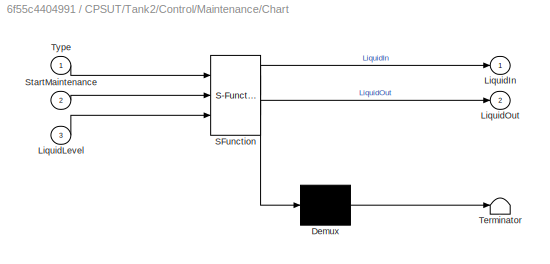
BLOCK [SubSystem] CPSUT/Tank2/Control/Maintenance/Chart
  ErrorFcn = Stateflow.Translate.translate
  PermitHierarchicalResolution = ExplicitOnly
  Ports = [3, 2]
  RequestExecContextInheritance = off
  SFBlockType = Chart
  TreatAsAtomicUnit = on
BLOCK [Demux] CPSUT/Tank2/Control/Maintenance/Chart/ Demux 
  Outputs = 1
  Ports = [1, 1]
BLOCK [S-Function] CPSUT/Tank2/Control/Maintenance/Chart/ SFunction 
  EnableBusSupport = on
  FunctionName = sf_sfun
  Parameters = hmax
  PortCounts = [3 3]
  Ports = [3, 3]
  SFcnIsStateOwnerBlock = off
  SFunctionDeploymentMode = off
  Tag = Stateflow S-Function c00001M_harness 4
BLOCK [Terminator] CPSUT/Tank2/Control/Maintenance/Chart/ Terminator 
BLOCK [Outport] CPSUT/Tank2/Control/Maintenance/Chart/LiquidIn
  IconDisplay = Port number
BLOCK [Inport] CPSUT/Tank2/Control/Maintenance/Chart/LiquidLevel
  IconDisplay = Port number
  Port = 3
BLOCK [Outport] CPSUT/Tank2/Control/Maintenance/Chart/LiquidOut
  IconDisplay = Port number
  Port = 2
BLOCK [Inport] CPSUT/Tank2/Control/Maintenance/Chart/StartMaintenance
  IconDisplay = Port number
  Port = 2
BLOCK [Inport] CPSUT/Tank2/Control/Maintenance/Chart/Type
  IconDisplay = Port number
BLOCK [Outport] CPSUT/Tank2/Control/Maintenance/LiquidIn
  IconDisplay = Port number
BLOCK [Inport] CPSUT/Tank2/Control/Maintenance/LiquidLevel
  IconDisplay = Port number
  Port = 3
BLOCK [Outport] CPSUT/Tank2/Control/Maintenance/LiquidOut
  IconDisplay = Port number
  Port = 2
BLOCK [Inport] CPSUT/Tank2/Control/Maintenance/StartMaintenance
  IconDisplay = Port number
  Port = 2
BLOCK [Inport] CPSUT/Tank2/Control/Maintenance/Type
  IconDisplay = Port number
BLOCK [RelationalOperator] CPSUT/Tank2/Control/Relational Operator
  InputSameDT = off
  Operator = >
  OutDataTypeStr = boolean
  Ports = [2, 1]
  RndMeth = Simplest
BLOCK [Inport] CPSUT/Tank2/Control/StartMaintenance
  IconDisplay = Port number
  Port = 2
BLOCK [Switch] CPSUT/Tank2/Control/Switch
  Criteria = u2 > Threshold
  InputSameDT = off
  SaturateOnIntegerOverflow = off
BLOCK [Switch] CPSUT/Tank2/Control/Switch1
  Criteria = u2 > Threshold
  InputSameDT = off
  SaturateOnIntegerOverflow = off
BLOCK [Inport] CPSUT/Tank2/Control/Temperature
  IconDisplay = Port number
  Port = 4
BLOCK [Inport] CPSUT/Tank2/EB2
  IconDisplay = Port number
  Port = 3
BLOCK [Outport] CPSUT/Tank2/LL2
  IconDisplay = Port number
BLOCK [Memory] CPSUT/Tank2/Memory
BLOCK [Inport] CPSUT/Tank2/T2
  IconDisplay = Port number
  Port = 2
BLOCK [SubSystem] CPSUT/Tank2/TankModel
  Ports = [2, 1]
  RequestExecContextInheritance = off
BLOCK [Sum] CPSUT/Tank2/TankModel/Add1
  InputSameDT = off
  Inputs = +-
  OutDataTypeStr = Inherit: Inherit via internal rule
  Ports = [2, 1]
  SaturateOnIntegerOverflow = off
BLOCK [Constant] CPSUT/Tank2/TankModel/Constant1
  Value = 0
BLOCK [Constant] CPSUT/Tank2/TankModel/Constant2
  Value = 0
BLOCK [Constant] CPSUT/Tank2/TankModel/Constant3
BLOCK [Gain] CPSUT/Tank2/TankModel/Gain
  Gain = 1/R1
  OutDataTypeStr = Inherit: Inherit via internal rule
  ParamDataTypeStr = Inherit: Inherit via internal rule
  SaturateOnIntegerOverflow = off
BLOCK [Gain] CPSUT/Tank2/TankModel/Gain1
  Gain = 1/A1
  OutDataTypeStr = Inherit: Inherit via internal rule
  ParamDataTypeStr = Inherit: Inherit via internal rule
  SaturateOnIntegerOverflow = off
BLOCK [Gain] CPSUT/Tank2/TankModel/Gain2
  Gain = 1/R2
  OutDataTypeStr = Inherit: Inherit via internal rule
  ParamDataTypeStr = Inherit: Inherit via internal rule
  SaturateOnIntegerOverflow = off
BLOCK [Integrator] CPSUT/Tank2/TankModel/Integrator
  Ports = [1, 1]
BLOCK [Inport] CPSUT/Tank2/TankModel/LiquidIn
  IconDisplay = Port number
BLOCK [Outport] CPSUT/Tank2/TankModel/LiquidLevel
  IconDisplay = Port number
BLOCK [Inport] CPSUT/Tank2/TankModel/LiquidOut
  IconDisplay = Port number
  Port = 2
BLOCK [Saturate] CPSUT/Tank2/TankModel/Saturation
  InputPortMap = u0
  LowerLimit = 0
  Ports = [1, 1]
  UpperLimit = hmax
BLOCK [Switch] CPSUT/Tank2/TankModel/Switch
  Criteria = u2 ~= 0
  InputSameDT = off
  SaturateOnIntegerOverflow = off
BLOCK [Switch] CPSUT/Tank2/TankModel/Switch1
  Criteria = u2 ~= 0
  InputSameDT = off
  SaturateOnIntegerOverflow = off
BLOCK [SubSystem] Eval100
  Ports = [1, 1]
  RequestExecContextInheritance = off
BLOCK [Constant] Eval100/Constant1
BLOCK [Constant] Eval100/Constant3
BLOCK [DataTypeConversion] Eval100/Data Type Conversion1
  RndMeth = Floor
  SaturateOnIntegerOverflow = off
BLOCK [From] Eval100/FromOut2
  GotoTag = out2
  TagVisibility = global
BLOCK [Inport] Eval100/In2
  IconDisplay = Port number
BLOCK [Memory] Eval100/Memory2
  InitialCondition = 1
BLOCK [MinMax] Eval100/MinMax
  InputSameDT = off
  Inputs = 3
  Ports = [3, 1]
  SaturateOnIntegerOverflow = off
BLOCK [MinMax] Eval100/MinMax2
  InputSameDT = off
  Inputs = 2
  Ports = [2, 1]
  SaturateOnIntegerOverflow = off
BLOCK [Outport] Eval100/Out1
  IconDisplay = Port number
BLOCK [RelationalOperator] Eval100/ROOut2
  InputSameDT = off
  Operator = ==
  OutDataTypeStr = boolean
  Ports = [2, 1]
  RndMeth = Simplest
BLOCK [SubSystem] Eval101
  Ports = [1, 1]
  RequestExecContextInheritance = off
BLOCK [Constant] Eval101/Constant1
BLOCK [Constant] Eval101/Constant3
BLOCK [DataTypeConversion] Eval101/Data Type Conversion1
  RndMeth = Floor
  SaturateOnIntegerOverflow = off
BLOCK [From] Eval101/FromOut2
  GotoTag = out2
  TagVisibility = global
BLOCK [Inport] Eval101/In2
  IconDisplay = Port number
BLOCK [Memory] Eval101/Memory2
  InitialCondition = 1
BLOCK [MinMax] Eval101/MinMax
  InputSameDT = off
  Inputs = 3
  Ports = [3, 1]
  SaturateOnIntegerOverflow = off
BLOCK [MinMax] Eval101/MinMax2
  InputSameDT = off
  Inputs = 2
  Ports = [2, 1]
  SaturateOnIntegerOverflow = off
BLOCK [Outport] Eval101/Out1
  IconDisplay = Port number
BLOCK [RelationalOperator] Eval101/ROOut2
  InputSameDT = off
  Operator = ==
  OutDataTypeStr = boolean
  Ports = [2, 1]
  RndMeth = Simplest
BLOCK [SubSystem] Eval102
  Ports = [1, 1]
  RequestExecContextInheritance = off
BLOCK [Constant] Eval102/Constant1
BLOCK [Constant] Eval102/Constant3
BLOCK [DataTypeConversion] Eval102/Data Type Conversion1
  RndMeth = Floor
  SaturateOnIntegerOverflow = off
BLOCK [From] Eval102/FromOut2
  GotoTag = out2
  TagVisibility = global
BLOCK [Inport] Eval102/In2
  IconDisplay = Port number
BLOCK [Memory] Eval102/Memory2
  InitialCondition = 1
BLOCK [MinMax] Eval102/MinMax
  InputSameDT = off
  Inputs = 3
  Ports = [3, 1]
  SaturateOnIntegerOverflow = off
BLOCK [MinMax] Eval102/MinMax2
  InputSameDT = off
  Inputs = 2
  Ports = [2, 1]
  SaturateOnIntegerOverflow = off
BLOCK [Outport] Eval102/Out1
  IconDisplay = Port number
BLOCK [RelationalOperator] Eval102/ROOut2
  InputSameDT = off
  Operator = ==
  OutDataTypeStr = boolean
  Ports = [2, 1]
  RndMeth = Simplest
BLOCK [SubSystem] Eval103
  Ports = [1, 1]
  RequestExecContextInheritance = off
BLOCK [Constant] Eval103/Constant1
BLOCK [Constant] Eval103/Constant3
BLOCK [DataTypeConversion] Eval103/Data Type Conversion1
  RndMeth = Floor
  SaturateOnIntegerOverflow = off
BLOCK [From] Eval103/FromOut2
  GotoTag = out2
  TagVisibility = global
BLOCK [Inport] Eval103/In2
  IconDisplay = Port number
BLOCK [Memory] Eval103/Memory2
  InitialCondition = 1
BLOCK [MinMax] Eval103/MinMax
  InputSameDT = off
  Inputs = 3
  Ports = [3, 1]
  SaturateOnIntegerOverflow = off
BLOCK [MinMax] Eval103/MinMax2
  InputSameDT = off
  Inputs = 2
  Ports = [2, 1]
  SaturateOnIntegerOverflow = off
BLOCK [Outport] Eval103/Out1
  IconDisplay = Port number
BLOCK [RelationalOperator] Eval103/ROOut2
  InputSameDT = off
  Operator = ==
  OutDataTypeStr = boolean
  Ports = [2, 1]
  RndMeth = Simplest
BLOCK [SubSystem] Eval104
  Ports = [1, 1]
  RequestExecContextInheritance = off
BLOCK [Constant] Eval104/Constant1
BLOCK [Constant] Eval104/Constant3
BLOCK [DataTypeConversion] Eval104/Data Type Conversion1
  RndMeth = Floor
  SaturateOnIntegerOverflow = off
BLOCK [From] Eval104/FromOut2
  GotoTag = out2
  TagVisibility = global
BLOCK [Inport] Eval104/In2
  IconDisplay = Port number
BLOCK [Memory] Eval104/Memory2
  InitialCondition = 1
BLOCK [MinMax] Eval104/MinMax
  InputSameDT = off
  Inputs = 3
  Ports = [3, 1]
  SaturateOnIntegerOverflow = off
BLOCK [MinMax] Eval104/MinMax2
  InputSameDT = off
  Inputs = 2
  Ports = [2, 1]
  SaturateOnIntegerOverflow = off
BLOCK [Outport] Eval104/Out1
  IconDisplay = Port number
BLOCK [RelationalOperator] Eval104/ROOut2
  InputSameDT = off
  Operator = ==
  OutDataTypeStr = boolean
  Ports = [2, 1]
  RndMeth = Simplest
BLOCK [SubSystem] Eval105
  Ports = [1, 1]
  RequestExecContextInheritance = off
BLOCK [Constant] Eval105/Constant1
BLOCK [Constant] Eval105/Constant3
BLOCK [DataTypeConversion] Eval105/Data Type Conversion1
  RndMeth = Floor
  SaturateOnIntegerOverflow = off
BLOCK [From] Eval105/FromOut2
  GotoTag = out2
  TagVisibility = global
BLOCK [Inport] Eval105/In2
  IconDisplay = Port number
BLOCK [Memory] Eval105/Memory2
  InitialCondition = 1
BLOCK [MinMax] Eval105/MinMax
  InputSameDT = off
  Inputs = 3
  Ports = [3, 1]
  SaturateOnIntegerOverflow = off
BLOCK [MinMax] Eval105/MinMax2
  InputSameDT = off
  Inputs = 2
  Ports = [2, 1]
  SaturateOnIntegerOverflow = off
BLOCK [Outport] Eval105/Out1
  IconDisplay = Port number
BLOCK [RelationalOperator] Eval105/ROOut2
  InputSameDT = off
  Operator = ==
  OutDataTypeStr = boolean
  Ports = [2, 1]
  RndMeth = Simplest
BLOCK [SubSystem] Eval106
  Ports = [1, 1]
  RequestExecContextInheritance = off
BLOCK [Constant] Eval106/Constant1
BLOCK [Constant] Eval106/Constant3
BLOCK [DataTypeConversion] Eval106/Data Type Conversion1
  RndMeth = Floor
  SaturateOnIntegerOverflow = off
BLOCK [From] Eval106/FromOut2
  GotoTag = out2
  TagVisibility = global
BLOCK [Inport] Eval106/In2
  IconDisplay = Port number
BLOCK [Memory] Eval106/Memory2
  InitialCondition = 1
BLOCK [MinMax] Eval106/MinMax
  InputSameDT = off
  Inputs = 3
  Ports = [3, 1]
  SaturateOnIntegerOverflow = off
BLOCK [MinMax] Eval106/MinMax2
  InputSameDT = off
  Inputs = 2
  Ports = [2, 1]
  SaturateOnIntegerOverflow = off
BLOCK [Outport] Eval106/Out1
  IconDisplay = Port number
BLOCK [RelationalOperator] Eval106/ROOut2
  InputSameDT = off
  Operator = ==
  OutDataTypeStr = boolean
  Ports = [2, 1]
  RndMeth = Simplest
BLOCK [SubSystem] Eval107
  Ports = [1, 1]
  RequestExecContextInheritance = off
BLOCK [Constant] Eval107/Constant1
BLOCK [Constant] Eval107/Constant3
BLOCK [DataTypeConversion] Eval107/Data Type Conversion1
  RndMeth = Floor
  SaturateOnIntegerOverflow = off
BLOCK [From] Eval107/FromOut2
  GotoTag = out2
  TagVisibility = global
BLOCK [Inport] Eval107/In2
  IconDisplay = Port number
BLOCK [Memory] Eval107/Memory2
  InitialCondition = 1
BLOCK [MinMax] Eval107/MinMax
  InputSameDT = off
  Inputs = 3
  Ports = [3, 1]
  SaturateOnIntegerOverflow = off
BLOCK [MinMax] Eval107/MinMax2
  InputSameDT = off
  Inputs = 2
  Ports = [2, 1]
  SaturateOnIntegerOverflow = off
BLOCK [Outport] Eval107/Out1
  IconDisplay = Port number
BLOCK [RelationalOperator] Eval107/ROOut2
  InputSameDT = off
  Operator = ==
  OutDataTypeStr = boolean
  Ports = [2, 1]
  RndMeth = Simplest
BLOCK [SubSystem] Eval108
  Ports = [1, 1]
  RequestExecContextInheritance = off
BLOCK [Constant] Eval108/Constant1
BLOCK [Constant] Eval108/Constant3
BLOCK [DataTypeConversion] Eval108/Data Type Conversion1
  RndMeth = Floor
  SaturateOnIntegerOverflow = off
BLOCK [From] Eval108/FromOut2
  GotoTag = out2
  TagVisibility = global
BLOCK [Inport] Eval108/In2
  IconDisplay = Port number
BLOCK [Memory] Eval108/Memory2
  InitialCondition = 1
BLOCK [MinMax] Eval108/MinMax
  InputSameDT = off
  Inputs = 3
  Ports = [3, 1]
  SaturateOnIntegerOverflow = off
BLOCK [MinMax] Eval108/MinMax2
  InputSameDT = off
  Inputs = 2
  Ports = [2, 1]
  SaturateOnIntegerOverflow = off
BLOCK [Outport] Eval108/Out1
  IconDisplay = Port number
BLOCK [RelationalOperator] Eval108/ROOut2
  InputSameDT = off
  Operator = ==
  OutDataTypeStr = boolean
  Ports = [2, 1]
  RndMeth = Simplest
BLOCK [SubSystem] Eval109
  Ports = [1, 1]
  RequestExecContextInheritance = off
BLOCK [Constant] Eval109/Constant1
BLOCK [Constant] Eval109/Constant3
BLOCK [DataTypeConversion] Eval109/Data Type Conversion1
  RndMeth = Floor
  SaturateOnIntegerOverflow = off
BLOCK [From] Eval109/FromOut2
  GotoTag = out2
  TagVisibility = global
BLOCK [Inport] Eval109/In2
  IconDisplay = Port number
BLOCK [Memory] Eval109/Memory2
  InitialCondition = 1
BLOCK [MinMax] Eval109/MinMax
  InputSameDT = off
  Inputs = 3
  Ports = [3, 1]
  SaturateOnIntegerOverflow = off
BLOCK [MinMax] Eval109/MinMax2
  InputSameDT = off
  Inputs = 2
  Ports = [2, 1]
  SaturateOnIntegerOverflow = off
BLOCK [Outport] Eval109/Out1
  IconDisplay = Port number
BLOCK [RelationalOperator] Eval109/ROOut2
  InputSameDT = off
  Operator = ==
  OutDataTypeStr = boolean
  Ports = [2, 1]
  RndMeth = Simplest
BLOCK [SubSystem] Eval110
  Ports = [1, 1]
  RequestExecContextInheritance = off
BLOCK [Constant] Eval110/Constant1
BLOCK [Constant] Eval110/Constant3
BLOCK [DataTypeConversion] Eval110/Data Type Conversion1
  RndMeth = Floor
  SaturateOnIntegerOverflow = off
BLOCK [From] Eval110/FromOut2
  GotoTag = out2
  TagVisibility = global
BLOCK [Inport] Eval110/In2
  IconDisplay = Port number
BLOCK [Memory] Eval110/Memory2
  InitialCondition = 1
BLOCK [MinMax] Eval110/MinMax
  InputSameDT = off
  Inputs = 3
  Ports = [3, 1]
  SaturateOnIntegerOverflow = off
BLOCK [MinMax] Eval110/MinMax2
  InputSameDT = off
  Inputs = 2
  Ports = [2, 1]
  SaturateOnIntegerOverflow = off
BLOCK [Outport] Eval110/Out1
  IconDisplay = Port number
BLOCK [RelationalOperator] Eval110/ROOut2
  InputSameDT = off
  Operator = ==
  OutDataTypeStr = boolean
  Ports = [2, 1]
  RndMeth = Simplest
BLOCK [SubSystem] Eval111
  Ports = [1, 1]
  RequestExecContextInheritance = off
BLOCK [Constant] Eval111/Constant1
BLOCK [Constant] Eval111/Constant3
BLOCK [DataTypeConversion] Eval111/Data Type Conversion1
  RndMeth = Floor
  SaturateOnIntegerOverflow = off
BLOCK [From] Eval111/FromOut2
  GotoTag = out2
  TagVisibility = global
BLOCK [Inport] Eval111/In2
  IconDisplay = Port number
BLOCK [Memory] Eval111/Memory2
  InitialCondition = 1
BLOCK [MinMax] Eval111/MinMax
  InputSameDT = off
  Inputs = 3
  Ports = [3, 1]
  SaturateOnIntegerOverflow = off
BLOCK [MinMax] Eval111/MinMax2
  InputSameDT = off
  Inputs = 2
  Ports = [2, 1]
  SaturateOnIntegerOverflow = off
BLOCK [Outport] Eval111/Out1
  IconDisplay = Port number
BLOCK [RelationalOperator] Eval111/ROOut2
  InputSameDT = off
  Operator = ==
  OutDataTypeStr = boolean
  Ports = [2, 1]
  RndMeth = Simplest
BLOCK [SubSystem] Eval112
  Ports = [1, 1]
  RequestExecContextInheritance = off
BLOCK [Constant] Eval112/Constant1
BLOCK [Constant] Eval112/Constant3
BLOCK [DataTypeConversion] Eval112/Data Type Conversion1
  RndMeth = Floor
  SaturateOnIntegerOverflow = off
BLOCK [From] Eval112/FromOut2
  GotoTag = out2
  TagVisibility = global
BLOCK [Inport] Eval112/In2
  IconDisplay = Port number
BLOCK [Memory] Eval112/Memory2
  InitialCondition = 1
BLOCK [MinMax] Eval112/MinMax
  InputSameDT = off
  Inputs = 3
  Ports = [3, 1]
  SaturateOnIntegerOverflow = off
BLOCK [MinMax] Eval112/MinMax2
  InputSameDT = off
  Inputs = 2
  Ports = [2, 1]
  SaturateOnIntegerOverflow = off
BLOCK [Outport] Eval112/Out1
  IconDisplay = Port number
BLOCK [RelationalOperator] Eval112/ROOut2
  InputSameDT = off
  Operator = ==
  OutDataTypeStr = boolean
  Ports = [2, 1]
  RndMeth = Simplest
BLOCK [SubSystem] Eval113
  Ports = [1, 1]
  RequestExecContextInheritance = off
BLOCK [Constant] Eval113/Constant1
BLOCK [Constant] Eval113/Constant3
BLOCK [DataTypeConversion] Eval113/Data Type Conversion1
  RndMeth = Floor
  SaturateOnIntegerOverflow = off
BLOCK [From] Eval113/FromOut2
  GotoTag = out2
  TagVisibility = global
BLOCK [Inport] Eval113/In2
  IconDisplay = Port number
BLOCK [Memory] Eval113/Memory2
  InitialCondition = 1
BLOCK [MinMax] Eval113/MinMax
  InputSameDT = off
  Inputs = 3
  Ports = [3, 1]
  SaturateOnIntegerOverflow = off
BLOCK [MinMax] Eval113/MinMax2
  InputSameDT = off
  Inputs = 2
  Ports = [2, 1]
  SaturateOnIntegerOverflow = off
BLOCK [Outport] Eval113/Out1
  IconDisplay = Port number
BLOCK [RelationalOperator] Eval113/ROOut2
  InputSameDT = off
  Operator = ==
  OutDataTypeStr = boolean
  Ports = [2, 1]
  RndMeth = Simplest
BLOCK [SubSystem] Eval114
  Ports = [1, 1]
  RequestExecContextInheritance = off
BLOCK [Constant] Eval114/Constant1
BLOCK [Constant] Eval114/Constant3
BLOCK [DataTypeConversion] Eval114/Data Type Conversion1
  RndMeth = Floor
  SaturateOnIntegerOverflow = off
BLOCK [From] Eval114/FromOut2
  GotoTag = out2
  TagVisibility = global
BLOCK [Inport] Eval114/In2
  IconDisplay = Port number
BLOCK [Memory] Eval114/Memory2
  InitialCondition = 1
BLOCK [MinMax] Eval114/MinMax
  InputSameDT = off
  Inputs = 3
  Ports = [3, 1]
  SaturateOnIntegerOverflow = off
BLOCK [MinMax] Eval114/MinMax2
  InputSameDT = off
  Inputs = 2
  Ports = [2, 1]
  SaturateOnIntegerOverflow = off
BLOCK [Outport] Eval114/Out1
  IconDisplay = Port number
BLOCK [RelationalOperator] Eval114/ROOut2
  InputSameDT = off
  Operator = ==
  OutDataTypeStr = boolean
  Ports = [2, 1]
  RndMeth = Simplest
BLOCK [SubSystem] Eval115
  Ports = [1, 1]
  RequestExecContextInheritance = off
BLOCK [Constant] Eval115/Constant1
BLOCK [Constant] Eval115/Constant3
BLOCK [DataTypeConversion] Eval115/Data Type Conversion1
  RndMeth = Floor
  SaturateOnIntegerOverflow = off
BLOCK [From] Eval115/FromOut2
  GotoTag = out2
  TagVisibility = global
BLOCK [Inport] Eval115/In2
  IconDisplay = Port number
BLOCK [Memory] Eval115/Memory2
  InitialCondition = 1
BLOCK [MinMax] Eval115/MinMax
  InputSameDT = off
  Inputs = 3
  Ports = [3, 1]
  SaturateOnIntegerOverflow = off
BLOCK [MinMax] Eval115/MinMax2
  InputSameDT = off
  Inputs = 2
  Ports = [2, 1]
  SaturateOnIntegerOverflow = off
BLOCK [Outport] Eval115/Out1
  IconDisplay = Port number
BLOCK [RelationalOperator] Eval115/ROOut2
  InputSameDT = off
  Operator = ==
  OutDataTypeStr = boolean
  Ports = [2, 1]
  RndMeth = Simplest
BLOCK [SubSystem] Eval116
  Ports = [1, 1]
  RequestExecContextInheritance = off
BLOCK [Constant] Eval116/Constant1
BLOCK [Constant] Eval116/Constant3
BLOCK [DataTypeConversion] Eval116/Data Type Conversion1
  RndMeth = Floor
  SaturateOnIntegerOverflow = off
BLOCK [From] Eval116/FromOut2
  GotoTag = out2
  TagVisibility = global
BLOCK [Inport] Eval116/In2
  IconDisplay = Port number
BLOCK [Memory] Eval116/Memory2
  InitialCondition = 1
BLOCK [MinMax] Eval116/MinMax
  InputSameDT = off
  Inputs = 3
  Ports = [3, 1]
  SaturateOnIntegerOverflow = off
BLOCK [MinMax] Eval116/MinMax2
  InputSameDT = off
  Inputs = 2
  Ports = [2, 1]
  SaturateOnIntegerOverflow = off
BLOCK [Outport] Eval116/Out1
  IconDisplay = Port number
BLOCK [RelationalOperator] Eval116/ROOut2
  InputSameDT = off
  Operator = ==
  OutDataTypeStr = boolean
  Ports = [2, 1]
  RndMeth = Simplest
BLOCK [SubSystem] Eval138
  Ports = [1, 1]
  RequestExecContextInheritance = off
BLOCK [Constant] Eval138/Constant1
BLOCK [Constant] Eval138/Constant3
BLOCK [DataTypeConversion] Eval138/Data Type Conversion1
  RndMeth = Floor
  SaturateOnIntegerOverflow = off
BLOCK [From] Eval138/FromOut2
  GotoTag = out2
  TagVisibility = global
BLOCK [Inport] Eval138/In2
  IconDisplay = Port number
BLOCK [Memory] Eval138/Memory2
  InitialCondition = 1
BLOCK [MinMax] Eval138/MinMax
  InputSameDT = off
  Inputs = 3
  Ports = [3, 1]
  SaturateOnIntegerOverflow = off
BLOCK [MinMax] Eval138/MinMax2
  InputSameDT = off
  Inputs = 2
  Ports = [2, 1]
  SaturateOnIntegerOverflow = off
BLOCK [Outport] Eval138/Out1
  IconDisplay = Port number
BLOCK [RelationalOperator] Eval138/ROOut2
  InputSameDT = off
  Operator = ==
  OutDataTypeStr = boolean
  Ports = [2, 1]
  RndMeth = Simplest
BLOCK [SubSystem] Eval139
  Ports = [1, 1]
  RequestExecContextInheritance = off
BLOCK [Constant] Eval139/Constant1
BLOCK [Constant] Eval139/Constant3
BLOCK [DataTypeConversion] Eval139/Data Type Conversion1
  RndMeth = Floor
  SaturateOnIntegerOverflow = off
BLOCK [From] Eval139/FromOut2
  GotoTag = out2
  TagVisibility = global
BLOCK [Inport] Eval139/In2
  IconDisplay = Port number
BLOCK [Memory] Eval139/Memory2
  InitialCondition = 1
BLOCK [MinMax] Eval139/MinMax
  InputSameDT = off
  Inputs = 3
  Ports = [3, 1]
  SaturateOnIntegerOverflow = off
BLOCK [MinMax] Eval139/MinMax2
  InputSameDT = off
  Inputs = 2
  Ports = [2, 1]
  SaturateOnIntegerOverflow = off
BLOCK [Outport] Eval139/Out1
  IconDisplay = Port number
BLOCK [RelationalOperator] Eval139/ROOut2
  InputSameDT = off
  Operator = ==
  OutDataTypeStr = boolean
  Ports = [2, 1]
  RndMeth = Simplest
BLOCK [SubSystem] Eval140
  Ports = [1, 1]
  RequestExecContextInheritance = off
BLOCK [Constant] Eval140/Constant1
BLOCK [Constant] Eval140/Constant3
BLOCK [DataTypeConversion] Eval140/Data Type Conversion1
  RndMeth = Floor
  SaturateOnIntegerOverflow = off
BLOCK [From] Eval140/FromOut2
  GotoTag = out2
  TagVisibility = global
BLOCK [Inport] Eval140/In2
  IconDisplay = Port number
BLOCK [Memory] Eval140/Memory2
  InitialCondition = 1
BLOCK [MinMax] Eval140/MinMax
  InputSameDT = off
  Inputs = 3
  Ports = [3, 1]
  SaturateOnIntegerOverflow = off
BLOCK [MinMax] Eval140/MinMax2
  InputSameDT = off
  Inputs = 2
  Ports = [2, 1]
  SaturateOnIntegerOverflow = off
BLOCK [Outport] Eval140/Out1
  IconDisplay = Port number
BLOCK [RelationalOperator] Eval140/ROOut2
  InputSameDT = off
  Operator = ==
  OutDataTypeStr = boolean
  Ports = [2, 1]
  RndMeth = Simplest
BLOCK [SubSystem] Eval141
  Ports = [1, 1]
  RequestExecContextInheritance = off
BLOCK [Constant] Eval141/Constant1
BLOCK [Constant] Eval141/Constant3
BLOCK [DataTypeConversion] Eval141/Data Type Conversion1
  RndMeth = Floor
  SaturateOnIntegerOverflow = off
BLOCK [From] Eval141/FromOut2
  GotoTag = out2
  TagVisibility = global
BLOCK [Inport] Eval141/In2
  IconDisplay = Port number
BLOCK [Memory] Eval141/Memory2
  InitialCondition = 1
BLOCK [MinMax] Eval141/MinMax
  InputSameDT = off
  Inputs = 3
  Ports = [3, 1]
  SaturateOnIntegerOverflow = off
BLOCK [MinMax] Eval141/MinMax2
  InputSameDT = off
  Inputs = 2
  Ports = [2, 1]
  SaturateOnIntegerOverflow = off
BLOCK [Outport] Eval141/Out1
  IconDisplay = Port number
BLOCK [RelationalOperator] Eval141/ROOut2
  InputSameDT = off
  Operator = ==
  OutDataTypeStr = boolean
  Ports = [2, 1]
  RndMeth = Simplest
BLOCK [SubSystem] Eval142
  Ports = [1, 1]
  RequestExecContextInheritance = off
BLOCK [Constant] Eval142/Constant1
BLOCK [Constant] Eval142/Constant3
BLOCK [DataTypeConversion] Eval142/Data Type Conversion1
  RndMeth = Floor
  SaturateOnIntegerOverflow = off
BLOCK [From] Eval142/FromOut2
  GotoTag = out2
  TagVisibility = global
BLOCK [Inport] Eval142/In2
  IconDisplay = Port number
BLOCK [Memory] Eval142/Memory2
  InitialCondition = 1
BLOCK [MinMax] Eval142/MinMax
  InputSameDT = off
  Inputs = 3
  Ports = [3, 1]
  SaturateOnIntegerOverflow = off
BLOCK [MinMax] Eval142/MinMax2
  InputSameDT = off
  Inputs = 2
  Ports = [2, 1]
  SaturateOnIntegerOverflow = off
BLOCK [Outport] Eval142/Out1
  IconDisplay = Port number
BLOCK [RelationalOperator] Eval142/ROOut2
  InputSameDT = off
  Operator = ==
  OutDataTypeStr = boolean
  Ports = [2, 1]
  RndMeth = Simplest
BLOCK [SubSystem] Eval150
  Ports = [1, 1]
  RequestExecContextInheritance = off
BLOCK [Constant] Eval150/Constant1
BLOCK [Constant] Eval150/Constant3
BLOCK [DataTypeConversion] Eval150/Data Type Conversion1
  RndMeth = Floor
  SaturateOnIntegerOverflow = off
BLOCK [From] Eval150/FromOut2
  GotoTag = out2
  TagVisibility = global
BLOCK [Inport] Eval150/In2
  IconDisplay = Port number
BLOCK [Memory] Eval150/Memory2
  InitialCondition = 1
BLOCK [MinMax] Eval150/MinMax
  InputSameDT = off
  Inputs = 3
  Ports = [3, 1]
  SaturateOnIntegerOverflow = off
BLOCK [MinMax] Eval150/MinMax2
  InputSameDT = off
  Inputs = 2
  Ports = [2, 1]
  SaturateOnIntegerOverflow = off
BLOCK [Outport] Eval150/Out1
  IconDisplay = Port number
BLOCK [RelationalOperator] Eval150/ROOut2
  InputSameDT = off
  Operator = ==
  OutDataTypeStr = boolean
  Ports = [2, 1]
  RndMeth = Simplest
BLOCK [SubSystem] Eval151
  Ports = [1, 1]
  RequestExecContextInheritance = off
BLOCK [Constant] Eval151/Constant1
BLOCK [Constant] Eval151/Constant3
BLOCK [DataTypeConversion] Eval151/Data Type Conversion1
  RndMeth = Floor
  SaturateOnIntegerOverflow = off
BLOCK [From] Eval151/FromOut2
  GotoTag = out2
  TagVisibility = global
BLOCK [Inport] Eval151/In2
  IconDisplay = Port number
BLOCK [Memory] Eval151/Memory2
  InitialCondition = 1
BLOCK [MinMax] Eval151/MinMax
  InputSameDT = off
  Inputs = 3
  Ports = [3, 1]
  SaturateOnIntegerOverflow = off
BLOCK [MinMax] Eval151/MinMax2
  InputSameDT = off
  Inputs = 2
  Ports = [2, 1]
  SaturateOnIntegerOverflow = off
BLOCK [Outport] Eval151/Out1
  IconDisplay = Port number
BLOCK [RelationalOperator] Eval151/ROOut2
  InputSameDT = off
  Operator = ==
  OutDataTypeStr = boolean
  Ports = [2, 1]
  RndMeth = Simplest
BLOCK [SubSystem] Eval152
  Ports = [1, 1]
  RequestExecContextInheritance = off
BLOCK [Constant] Eval152/Constant1
BLOCK [Constant] Eval152/Constant3
BLOCK [DataTypeConversion] Eval152/Data Type Conversion1
  RndMeth = Floor
  SaturateOnIntegerOverflow = off
BLOCK [From] Eval152/FromOut2
  GotoTag = out2
  TagVisibility = global
BLOCK [Inport] Eval152/In2
  IconDisplay = Port number
BLOCK [Memory] Eval152/Memory2
  InitialCondition = 1
BLOCK [MinMax] Eval152/MinMax
  InputSameDT = off
  Inputs = 3
  Ports = [3, 1]
  SaturateOnIntegerOverflow = off
BLOCK [MinMax] Eval152/MinMax2
  InputSameDT = off
  Inputs = 2
  Ports = [2, 1]
  SaturateOnIntegerOverflow = off
BLOCK [Outport] Eval152/Out1
  IconDisplay = Port number
BLOCK [RelationalOperator] Eval152/ROOut2
  InputSameDT = off
  Operator = ==
  OutDataTypeStr = boolean
  Ports = [2, 1]
  RndMeth = Simplest
BLOCK [SubSystem] Eval153
  Ports = [1, 1]
  RequestExecContextInheritance = off
BLOCK [Constant] Eval153/Constant1
BLOCK [Constant] Eval153/Constant3
BLOCK [DataTypeConversion] Eval153/Data Type Conversion1
  RndMeth = Floor
  SaturateOnIntegerOverflow = off
BLOCK [From] Eval153/FromOut2
  GotoTag = out2
  TagVisibility = global
BLOCK [Inport] Eval153/In2
  IconDisplay = Port number
BLOCK [Memory] Eval153/Memory2
  InitialCondition = 1
BLOCK [MinMax] Eval153/MinMax
  InputSameDT = off
  Inputs = 3
  Ports = [3, 1]
  SaturateOnIntegerOverflow = off
BLOCK [MinMax] Eval153/MinMax2
  InputSameDT = off
  Inputs = 2
  Ports = [2, 1]
  SaturateOnIntegerOverflow = off
BLOCK [Outport] Eval153/Out1
  IconDisplay = Port number
BLOCK [RelationalOperator] Eval153/ROOut2
  InputSameDT = off
  Operator = ==
  OutDataTypeStr = boolean
  Ports = [2, 1]
  RndMeth = Simplest
BLOCK [SubSystem] Eval154
  Ports = [1, 1]
  RequestExecContextInheritance = off
BLOCK [Constant] Eval154/Constant1
BLOCK [Constant] Eval154/Constant3
BLOCK [DataTypeConversion] Eval154/Data Type Conversion1
  RndMeth = Floor
  SaturateOnIntegerOverflow = off
BLOCK [From] Eval154/FromOut2
  GotoTag = out2
  TagVisibility = global
BLOCK [Inport] Eval154/In2
  IconDisplay = Port number
BLOCK [Memory] Eval154/Memory2
  InitialCondition = 1
BLOCK [MinMax] Eval154/MinMax
  InputSameDT = off
  Inputs = 3
  Ports = [3, 1]
  SaturateOnIntegerOverflow = off
BLOCK [MinMax] Eval154/MinMax2
  InputSameDT = off
  Inputs = 2
  Ports = [2, 1]
  SaturateOnIntegerOverflow = off
BLOCK [Outport] Eval154/Out1
  IconDisplay = Port number
BLOCK [RelationalOperator] Eval154/ROOut2
  InputSameDT = off
  Operator = ==
  OutDataTypeStr = boolean
  Ports = [2, 1]
  RndMeth = Simplest
BLOCK [SubSystem] Eval155
  Ports = [1, 1]
  RequestExecContextInheritance = off
BLOCK [Constant] Eval155/Constant1
BLOCK [Constant] Eval155/Constant3
BLOCK [DataTypeConversion] Eval155/Data Type Conversion1
  RndMeth = Floor
  SaturateOnIntegerOverflow = off
BLOCK [From] Eval155/FromOut2
  GotoTag = out2
  TagVisibility = global
BLOCK [Inport] Eval155/In2
  IconDisplay = Port number
BLOCK [Memory] Eval155/Memory2
  InitialCondition = 1
BLOCK [MinMax] Eval155/MinMax
  InputSameDT = off
  Inputs = 3
  Ports = [3, 1]
  SaturateOnIntegerOverflow = off
BLOCK [MinMax] Eval155/MinMax2
  InputSameDT = off
  Inputs = 2
  Ports = [2, 1]
  SaturateOnIntegerOverflow = off
BLOCK [Outport] Eval155/Out1
  IconDisplay = Port number
BLOCK [RelationalOperator] Eval155/ROOut2
  InputSameDT = off
  Operator = ==
  OutDataTypeStr = boolean
  Ports = [2, 1]
  RndMeth = Simplest
BLOCK [SubSystem] Eval156
  Ports = [1, 1]
  RequestExecContextInheritance = off
BLOCK [Constant] Eval156/Constant1
BLOCK [Constant] Eval156/Constant3
BLOCK [DataTypeConversion] Eval156/Data Type Conversion1
  RndMeth = Floor
  SaturateOnIntegerOverflow = off
BLOCK [From] Eval156/FromOut2
  GotoTag = out2
  TagVisibility = global
BLOCK [Inport] Eval156/In2
  IconDisplay = Port number
BLOCK [Memory] Eval156/Memory2
  InitialCondition = 1
BLOCK [MinMax] Eval156/MinMax
  InputSameDT = off
  Inputs = 3
  Ports = [3, 1]
  SaturateOnIntegerOverflow = off
BLOCK [MinMax] Eval156/MinMax2
  InputSameDT = off
  Inputs = 2
  Ports = [2, 1]
  SaturateOnIntegerOverflow = off
BLOCK [Outport] Eval156/Out1
  IconDisplay = Port number
BLOCK [RelationalOperator] Eval156/ROOut2
  InputSameDT = off
  Operator = ==
  OutDataTypeStr = boolean
  Ports = [2, 1]
  RndMeth = Simplest
BLOCK [SubSystem] Eval157
  Ports = [1, 1]
  RequestExecContextInheritance = off
BLOCK [Constant] Eval157/Constant1
BLOCK [Constant] Eval157/Constant3
BLOCK [DataTypeConversion] Eval157/Data Type Conversion1
  RndMeth = Floor
  SaturateOnIntegerOverflow = off
BLOCK [From] Eval157/FromOut2
  GotoTag = out2
  TagVisibility = global
BLOCK [Inport] Eval157/In2
  IconDisplay = Port number
BLOCK [Memory] Eval157/Memory2
  InitialCondition = 1
BLOCK [MinMax] Eval157/MinMax
  InputSameDT = off
  Inputs = 3
  Ports = [3, 1]
  SaturateOnIntegerOverflow = off
BLOCK [MinMax] Eval157/MinMax2
  InputSameDT = off
  Inputs = 2
  Ports = [2, 1]
  SaturateOnIntegerOverflow = off
BLOCK [Outport] Eval157/Out1
  IconDisplay = Port number
BLOCK [RelationalOperator] Eval157/ROOut2
  InputSameDT = off
  Operator = ==
  OutDataTypeStr = boolean
  Ports = [2, 1]
  RndMeth = Simplest
BLOCK [SubSystem] Eval158
  Ports = [1, 1]
  RequestExecContextInheritance = off
BLOCK [Constant] Eval158/Constant1
BLOCK [Constant] Eval158/Constant3
BLOCK [DataTypeConversion] Eval158/Data Type Conversion1
  RndMeth = Floor
  SaturateOnIntegerOverflow = off
BLOCK [From] Eval158/FromOut2
  GotoTag = out2
  TagVisibility = global
BLOCK [Inport] Eval158/In2
  IconDisplay = Port number
BLOCK [Memory] Eval158/Memory2
  InitialCondition = 1
BLOCK [MinMax] Eval158/MinMax
  InputSameDT = off
  Inputs = 3
  Ports = [3, 1]
  SaturateOnIntegerOverflow = off
BLOCK [MinMax] Eval158/MinMax2
  InputSameDT = off
  Inputs = 2
  Ports = [2, 1]
  SaturateOnIntegerOverflow = off
BLOCK [Outport] Eval158/Out1
  IconDisplay = Port number
BLOCK [RelationalOperator] Eval158/ROOut2
  InputSameDT = off
  Operator = ==
  OutDataTypeStr = boolean
  Ports = [2, 1]
  RndMeth = Simplest
BLOCK [SubSystem] Eval159
  Ports = [1, 1]
  RequestExecContextInheritance = off
BLOCK [Constant] Eval159/Constant1
BLOCK [Constant] Eval159/Constant3
BLOCK [DataTypeConversion] Eval159/Data Type Conversion1
  RndMeth = Floor
  SaturateOnIntegerOverflow = off
BLOCK [From] Eval159/FromOut2
  GotoTag = out2
  TagVisibility = global
BLOCK [Inport] Eval159/In2
  IconDisplay = Port number
BLOCK [Memory] Eval159/Memory2
  InitialCondition = 1
BLOCK [MinMax] Eval159/MinMax
  InputSameDT = off
  Inputs = 3
  Ports = [3, 1]
  SaturateOnIntegerOverflow = off
BLOCK [MinMax] Eval159/MinMax2
  InputSameDT = off
  Inputs = 2
  Ports = [2, 1]
  SaturateOnIntegerOverflow = off
BLOCK [Outport] Eval159/Out1
  IconDisplay = Port number
BLOCK [RelationalOperator] Eval159/ROOut2
  InputSameDT = off
  Operator = ==
  OutDataTypeStr = boolean
  Ports = [2, 1]
  RndMeth = Simplest
BLOCK [SubSystem] Eval160
  Ports = [1, 1]
  RequestExecContextInheritance = off
BLOCK [Constant] Eval160/Constant1
BLOCK [Constant] Eval160/Constant3
BLOCK [DataTypeConversion] Eval160/Data Type Conversion1
  RndMeth = Floor
  SaturateOnIntegerOverflow = off
BLOCK [From] Eval160/FromOut2
  GotoTag = out2
  TagVisibility = global
BLOCK [Inport] Eval160/In2
  IconDisplay = Port number
BLOCK [Memory] Eval160/Memory2
  InitialCondition = 1
BLOCK [MinMax] Eval160/MinMax
  InputSameDT = off
  Inputs = 3
  Ports = [3, 1]
  SaturateOnIntegerOverflow = off
BLOCK [MinMax] Eval160/MinMax2
  InputSameDT = off
  Inputs = 2
  Ports = [2, 1]
  SaturateOnIntegerOverflow = off
BLOCK [Outport] Eval160/Out1
  IconDisplay = Port number
BLOCK [RelationalOperator] Eval160/ROOut2
  InputSameDT = off
  Operator = ==
  OutDataTypeStr = boolean
  Ports = [2, 1]
  RndMeth = Simplest
BLOCK [SubSystem] Eval161
  Ports = [1, 1]
  RequestExecContextInheritance = off
BLOCK [Constant] Eval161/Constant1
BLOCK [Constant] Eval161/Constant3
BLOCK [DataTypeConversion] Eval161/Data Type Conversion1
  RndMeth = Floor
  SaturateOnIntegerOverflow = off
BLOCK [From] Eval161/FromOut2
  GotoTag = out2
  TagVisibility = global
BLOCK [Inport] Eval161/In2
  IconDisplay = Port number
BLOCK [Memory] Eval161/Memory2
  InitialCondition = 1
BLOCK [MinMax] Eval161/MinMax
  InputSameDT = off
  Inputs = 3
  Ports = [3, 1]
  SaturateOnIntegerOverflow = off
BLOCK [MinMax] Eval161/MinMax2
  InputSameDT = off
  Inputs = 2
  Ports = [2, 1]
  SaturateOnIntegerOverflow = off
BLOCK [Outport] Eval161/Out1
  IconDisplay = Port number
BLOCK [RelationalOperator] Eval161/ROOut2
  InputSameDT = off
  Operator = ==
  OutDataTypeStr = boolean
  Ports = [2, 1]
  RndMeth = Simplest
BLOCK [SubSystem] Eval162
  Ports = [1, 1]
  RequestExecContextInheritance = off
BLOCK [Constant] Eval162/Constant1
BLOCK [Constant] Eval162/Constant3
BLOCK [DataTypeConversion] Eval162/Data Type Conversion1
  RndMeth = Floor
  SaturateOnIntegerOverflow = off
BLOCK [From] Eval162/FromOut2
  GotoTag = out2
  TagVisibility = global
BLOCK [Inport] Eval162/In2
  IconDisplay = Port number
BLOCK [Memory] Eval162/Memory2
  InitialCondition = 1
BLOCK [MinMax] Eval162/MinMax
  InputSameDT = off
  Inputs = 3
  Ports = [3, 1]
  SaturateOnIntegerOverflow = off
BLOCK [MinMax] Eval162/MinMax2
  InputSameDT = off
  Inputs = 2
  Ports = [2, 1]
  SaturateOnIntegerOverflow = off
BLOCK [Outport] Eval162/Out1
  IconDisplay = Port number
BLOCK [RelationalOperator] Eval162/ROOut2
  InputSameDT = off
  Operator = ==
  OutDataTypeStr = boolean
  Ports = [2, 1]
  RndMeth = Simplest
BLOCK [SubSystem] Eval163
  Ports = [1, 1]
  RequestExecContextInheritance = off
BLOCK [Constant] Eval163/Constant1
BLOCK [Constant] Eval163/Constant3
BLOCK [DataTypeConversion] Eval163/Data Type Conversion1
  RndMeth = Floor
  SaturateOnIntegerOverflow = off
BLOCK [From] Eval163/FromOut2
  GotoTag = out2
  TagVisibility = global
BLOCK [Inport] Eval163/In2
  IconDisplay = Port number
BLOCK [Memory] Eval163/Memory2
  InitialCondition = 1
BLOCK [MinMax] Eval163/MinMax
  InputSameDT = off
  Inputs = 3
  Ports = [3, 1]
  SaturateOnIntegerOverflow = off
BLOCK [MinMax] Eval163/MinMax2
  InputSameDT = off
  Inputs = 2
  Ports = [2, 1]
  SaturateOnIntegerOverflow = off
BLOCK [Outport] Eval163/Out1
  IconDisplay = Port number
BLOCK [RelationalOperator] Eval163/ROOut2
  InputSameDT = off
  Operator = ==
  OutDataTypeStr = boolean
  Ports = [2, 1]
  RndMeth = Simplest
BLOCK [SubSystem] Eval82
  Ports = [1, 1]
  RequestExecContextInheritance = off
BLOCK [Constant] Eval82/Constant1
BLOCK [Constant] Eval82/Constant3
BLOCK [DataTypeConversion] Eval82/Data Type Conversion1
  RndMeth = Floor
  SaturateOnIntegerOverflow = off
BLOCK [From] Eval82/FromOut2
  GotoTag = out2
  TagVisibility = global
BLOCK [Inport] Eval82/In2
  IconDisplay = Port number
BLOCK [Memory] Eval82/Memory2
  InitialCondition = 1
BLOCK [MinMax] Eval82/MinMax
  InputSameDT = off
  Inputs = 3
  Ports = [3, 1]
  SaturateOnIntegerOverflow = off
BLOCK [MinMax] Eval82/MinMax2
  InputSameDT = off
  Inputs = 2
  Ports = [2, 1]
  SaturateOnIntegerOverflow = off
BLOCK [Outport] Eval82/Out1
  IconDisplay = Port number
BLOCK [RelationalOperator] Eval82/ROOut2
  InputSameDT = off
  Operator = ==
  OutDataTypeStr = boolean
  Ports = [2, 1]
  RndMeth = Simplest
BLOCK [SubSystem] Eval83
  Ports = [1, 1]
  RequestExecContextInheritance = off
BLOCK [Constant] Eval83/Constant1
BLOCK [Constant] Eval83/Constant3
BLOCK [DataTypeConversion] Eval83/Data Type Conversion1
  RndMeth = Floor
  SaturateOnIntegerOverflow = off
BLOCK [From] Eval83/FromOut2
  GotoTag = out2
  TagVisibility = global
BLOCK [Inport] Eval83/In2
  IconDisplay = Port number
BLOCK [Memory] Eval83/Memory2
  InitialCondition = 1
BLOCK [MinMax] Eval83/MinMax
  InputSameDT = off
  Inputs = 3
  Ports = [3, 1]
  SaturateOnIntegerOverflow = off
BLOCK [MinMax] Eval83/MinMax2
  InputSameDT = off
  Inputs = 2
  Ports = [2, 1]
  SaturateOnIntegerOverflow = off
BLOCK [Outport] Eval83/Out1
  IconDisplay = Port number
BLOCK [RelationalOperator] Eval83/ROOut2
  InputSameDT = off
  Operator = ==
  OutDataTypeStr = boolean
  Ports = [2, 1]
  RndMeth = Simplest
BLOCK [SubSystem] Eval84
  Ports = [1, 1]
  RequestExecContextInheritance = off
BLOCK [Constant] Eval84/Constant1
BLOCK [Constant] Eval84/Constant3
BLOCK [DataTypeConversion] Eval84/Data Type Conversion1
  RndMeth = Floor
  SaturateOnIntegerOverflow = off
BLOCK [From] Eval84/FromOut2
  GotoTag = out2
  TagVisibility = global
BLOCK [Inport] Eval84/In2
  IconDisplay = Port number
BLOCK [Memory] Eval84/Memory2
  InitialCondition = 1
BLOCK [MinMax] Eval84/MinMax
  InputSameDT = off
  Inputs = 3
  Ports = [3, 1]
  SaturateOnIntegerOverflow = off
BLOCK [MinMax] Eval84/MinMax2
  InputSameDT = off
  Inputs = 2
  Ports = [2, 1]
  SaturateOnIntegerOverflow = off
BLOCK [Outport] Eval84/Out1
  IconDisplay = Port number
BLOCK [RelationalOperator] Eval84/ROOut2
  InputSameDT = off
  Operator = ==
  OutDataTypeStr = boolean
  Ports = [2, 1]
  RndMeth = Simplest
BLOCK [SubSystem] Eval85
  Ports = [1, 1]
  RequestExecContextInheritance = off
BLOCK [Constant] Eval85/Constant1
BLOCK [Constant] Eval85/Constant3
BLOCK [DataTypeConversion] Eval85/Data Type Conversion1
  RndMeth = Floor
  SaturateOnIntegerOverflow = off
BLOCK [From] Eval85/FromOut2
  GotoTag = out2
  TagVisibility = global
BLOCK [Inport] Eval85/In2
  IconDisplay = Port number
BLOCK [Memory] Eval85/Memory2
  InitialCondition = 1
BLOCK [MinMax] Eval85/MinMax
  InputSameDT = off
  Inputs = 3
  Ports = [3, 1]
  SaturateOnIntegerOverflow = off
BLOCK [MinMax] Eval85/MinMax2
  InputSameDT = off
  Inputs = 2
  Ports = [2, 1]
  SaturateOnIntegerOverflow = off
BLOCK [Outport] Eval85/Out1
  IconDisplay = Port number
BLOCK [RelationalOperator] Eval85/ROOut2
  InputSameDT = off
  Operator = ==
  OutDataTypeStr = boolean
  Ports = [2, 1]
  RndMeth = Simplest
BLOCK [SubSystem] Eval86
  Ports = [1, 1]
  RequestExecContextInheritance = off
BLOCK [Constant] Eval86/Constant1
BLOCK [Constant] Eval86/Constant3
BLOCK [DataTypeConversion] Eval86/Data Type Conversion1
  RndMeth = Floor
  SaturateOnIntegerOverflow = off
BLOCK [From] Eval86/FromOut2
  GotoTag = out2
  TagVisibility = global
BLOCK [Inport] Eval86/In2
  IconDisplay = Port number
BLOCK [Memory] Eval86/Memory2
  InitialCondition = 1
BLOCK [MinMax] Eval86/MinMax
  InputSameDT = off
  Inputs = 3
  Ports = [3, 1]
  SaturateOnIntegerOverflow = off
BLOCK [MinMax] Eval86/MinMax2
  InputSameDT = off
  Inputs = 2
  Ports = [2, 1]
  SaturateOnIntegerOverflow = off
BLOCK [Outport] Eval86/Out1
  IconDisplay = Port number
BLOCK [RelationalOperator] Eval86/ROOut2
  InputSameDT = off
  Operator = ==
  OutDataTypeStr = boolean
  Ports = [2, 1]
  RndMeth = Simplest
BLOCK [SubSystem] Eval87
  Ports = [1, 1]
  RequestExecContextInheritance = off
BLOCK [Constant] Eval87/Constant1
BLOCK [Constant] Eval87/Constant3
BLOCK [DataTypeConversion] Eval87/Data Type Conversion1
  RndMeth = Floor
  SaturateOnIntegerOverflow = off
BLOCK [From] Eval87/FromOut2
  GotoTag = out2
  TagVisibility = global
BLOCK [Inport] Eval87/In2
  IconDisplay = Port number
BLOCK [Memory] Eval87/Memory2
  InitialCondition = 1
BLOCK [MinMax] Eval87/MinMax
  InputSameDT = off
  Inputs = 3
  Ports = [3, 1]
  SaturateOnIntegerOverflow = off
BLOCK [MinMax] Eval87/MinMax2
  InputSameDT = off
  Inputs = 2
  Ports = [2, 1]
  SaturateOnIntegerOverflow = off
BLOCK [Outport] Eval87/Out1
  IconDisplay = Port number
BLOCK [RelationalOperator] Eval87/ROOut2
  InputSameDT = off
  Operator = ==
  OutDataTypeStr = boolean
  Ports = [2, 1]
  RndMeth = Simplest
BLOCK [SubSystem] Eval88
  Ports = [1, 1]
  RequestExecContextInheritance = off
BLOCK [Constant] Eval88/Constant1
BLOCK [Constant] Eval88/Constant3
BLOCK [DataTypeConversion] Eval88/Data Type Conversion1
  RndMeth = Floor
  SaturateOnIntegerOverflow = off
BLOCK [From] Eval88/FromOut2
  GotoTag = out2
  TagVisibility = global
BLOCK [Inport] Eval88/In2
  IconDisplay = Port number
BLOCK [Memory] Eval88/Memory2
  InitialCondition = 1
BLOCK [MinMax] Eval88/MinMax
  InputSameDT = off
  Inputs = 3
  Ports = [3, 1]
  SaturateOnIntegerOverflow = off
BLOCK [MinMax] Eval88/MinMax2
  InputSameDT = off
  Inputs = 2
  Ports = [2, 1]
  SaturateOnIntegerOverflow = off
BLOCK [Outport] Eval88/Out1
  IconDisplay = Port number
BLOCK [RelationalOperator] Eval88/ROOut2
  InputSameDT = off
  Operator = ==
  OutDataTypeStr = boolean
  Ports = [2, 1]
  RndMeth = Simplest
BLOCK [SubSystem] Eval89
  Ports = [1, 1]
  RequestExecContextInheritance = off
BLOCK [Constant] Eval89/Constant1
BLOCK [Constant] Eval89/Constant3
BLOCK [DataTypeConversion] Eval89/Data Type Conversion1
  RndMeth = Floor
  SaturateOnIntegerOverflow = off
BLOCK [From] Eval89/FromOut2
  GotoTag = out2
  TagVisibility = global
BLOCK [Inport] Eval89/In2
  IconDisplay = Port number
BLOCK [Memory] Eval89/Memory2
  InitialCondition = 1
BLOCK [MinMax] Eval89/MinMax
  InputSameDT = off
  Inputs = 3
  Ports = [3, 1]
  SaturateOnIntegerOverflow = off
BLOCK [MinMax] Eval89/MinMax2
  InputSameDT = off
  Inputs = 2
  Ports = [2, 1]
  SaturateOnIntegerOverflow = off
BLOCK [Outport] Eval89/Out1
  IconDisplay = Port number
BLOCK [RelationalOperator] Eval89/ROOut2
  InputSameDT = off
  Operator = ==
  OutDataTypeStr = boolean
  Ports = [2, 1]
  RndMeth = Simplest
BLOCK [SubSystem] Eval90
  Ports = [1, 1]
  RequestExecContextInheritance = off
BLOCK [Constant] Eval90/Constant1
BLOCK [Constant] Eval90/Constant3
BLOCK [DataTypeConversion] Eval90/Data Type Conversion1
  RndMeth = Floor
  SaturateOnIntegerOverflow = off
BLOCK [From] Eval90/FromOut2
  GotoTag = out2
  TagVisibility = global
BLOCK [Inport] Eval90/In2
  IconDisplay = Port number
BLOCK [Memory] Eval90/Memory2
  InitialCondition = 1
BLOCK [MinMax] Eval90/MinMax
  InputSameDT = off
  Inputs = 3
  Ports = [3, 1]
  SaturateOnIntegerOverflow = off
BLOCK [MinMax] Eval90/MinMax2
  InputSameDT = off
  Inputs = 2
  Ports = [2, 1]
  SaturateOnIntegerOverflow = off
BLOCK [Outport] Eval90/Out1
  IconDisplay = Port number
BLOCK [RelationalOperator] Eval90/ROOut2
  InputSameDT = off
  Operator = ==
  OutDataTypeStr = boolean
  Ports = [2, 1]
  RndMeth = Simplest
BLOCK [SubSystem] Eval91
  Ports = [1, 1]
  RequestExecContextInheritance = off
BLOCK [Constant] Eval91/Constant1
BLOCK [Constant] Eval91/Constant3
BLOCK [DataTypeConversion] Eval91/Data Type Conversion1
  RndMeth = Floor
  SaturateOnIntegerOverflow = off
BLOCK [From] Eval91/FromOut2
  GotoTag = out2
  TagVisibility = global
BLOCK [Inport] Eval91/In2
  IconDisplay = Port number
BLOCK [Memory] Eval91/Memory2
  InitialCondition = 1
BLOCK [MinMax] Eval91/MinMax
  InputSameDT = off
  Inputs = 3
  Ports = [3, 1]
  SaturateOnIntegerOverflow = off
BLOCK [MinMax] Eval91/MinMax2
  InputSameDT = off
  Inputs = 2
  Ports = [2, 1]
  SaturateOnIntegerOverflow = off
BLOCK [Outport] Eval91/Out1
  IconDisplay = Port number
BLOCK [RelationalOperator] Eval91/ROOut2
  InputSameDT = off
  Operator = ==
  OutDataTypeStr = boolean
  Ports = [2, 1]
  RndMeth = Simplest
BLOCK [SubSystem] Eval92
  Ports = [1, 1]
  RequestExecContextInheritance = off
BLOCK [Constant] Eval92/Constant1
BLOCK [Constant] Eval92/Constant3
BLOCK [DataTypeConversion] Eval92/Data Type Conversion1
  RndMeth = Floor
  SaturateOnIntegerOverflow = off
BLOCK [From] Eval92/FromOut2
  GotoTag = out2
  TagVisibility = global
BLOCK [Inport] Eval92/In2
  IconDisplay = Port number
BLOCK [Memory] Eval92/Memory2
  InitialCondition = 1
BLOCK [MinMax] Eval92/MinMax
  InputSameDT = off
  Inputs = 3
  Ports = [3, 1]
  SaturateOnIntegerOverflow = off
BLOCK [MinMax] Eval92/MinMax2
  InputSameDT = off
  Inputs = 2
  Ports = [2, 1]
  SaturateOnIntegerOverflow = off
BLOCK [Outport] Eval92/Out1
  IconDisplay = Port number
BLOCK [RelationalOperator] Eval92/ROOut2
  InputSameDT = off
  Operator = ==
  OutDataTypeStr = boolean
  Ports = [2, 1]
  RndMeth = Simplest
BLOCK [SubSystem] Eval93
  Ports = [1, 1]
  RequestExecContextInheritance = off
BLOCK [Constant] Eval93/Constant1
BLOCK [Constant] Eval93/Constant3
BLOCK [DataTypeConversion] Eval93/Data Type Conversion1
  RndMeth = Floor
  SaturateOnIntegerOverflow = off
BLOCK [From] Eval93/FromOut2
  GotoTag = out2
  TagVisibility = global
BLOCK [Inport] Eval93/In2
  IconDisplay = Port number
BLOCK [Memory] Eval93/Memory2
  InitialCondition = 1
BLOCK [MinMax] Eval93/MinMax
  InputSameDT = off
  Inputs = 3
  Ports = [3, 1]
  SaturateOnIntegerOverflow = off
BLOCK [MinMax] Eval93/MinMax2
  InputSameDT = off
  Inputs = 2
  Ports = [2, 1]
  SaturateOnIntegerOverflow = off
BLOCK [Outport] Eval93/Out1
  IconDisplay = Port number
BLOCK [RelationalOperator] Eval93/ROOut2
  InputSameDT = off
  Operator = ==
  OutDataTypeStr = boolean
  Ports = [2, 1]
  RndMeth = Simplest
BLOCK [SubSystem] Eval94
  Ports = [1, 1]
  RequestExecContextInheritance = off
BLOCK [Constant] Eval94/Constant1
BLOCK [Constant] Eval94/Constant3
BLOCK [DataTypeConversion] Eval94/Data Type Conversion1
  RndMeth = Floor
  SaturateOnIntegerOverflow = off
BLOCK [From] Eval94/FromOut2
  GotoTag = out2
  TagVisibility = global
BLOCK [Inport] Eval94/In2
  IconDisplay = Port number
BLOCK [Memory] Eval94/Memory2
  InitialCondition = 1
BLOCK [MinMax] Eval94/MinMax
  InputSameDT = off
  Inputs = 3
  Ports = [3, 1]
  SaturateOnIntegerOverflow = off
BLOCK [MinMax] Eval94/MinMax2
  InputSameDT = off
  Inputs = 2
  Ports = [2, 1]
  SaturateOnIntegerOverflow = off
BLOCK [Outport] Eval94/Out1
  IconDisplay = Port number
BLOCK [RelationalOperator] Eval94/ROOut2
  InputSameDT = off
  Operator = ==
  OutDataTypeStr = boolean
  Ports = [2, 1]
  RndMeth = Simplest
BLOCK [SubSystem] Eval95
  Ports = [1, 1]
  RequestExecContextInheritance = off
BLOCK [Constant] Eval95/Constant1
BLOCK [Constant] Eval95/Constant3
BLOCK [DataTypeConversion] Eval95/Data Type Conversion1
  RndMeth = Floor
  SaturateOnIntegerOverflow = off
BLOCK [From] Eval95/FromOut2
  GotoTag = out2
  TagVisibility = global
BLOCK [Inport] Eval95/In2
  IconDisplay = Port number
BLOCK [Memory] Eval95/Memory2
  InitialCondition = 1
BLOCK [MinMax] Eval95/MinMax
  InputSameDT = off
  Inputs = 3
  Ports = [3, 1]
  SaturateOnIntegerOverflow = off
BLOCK [MinMax] Eval95/MinMax2
  InputSameDT = off
  Inputs = 2
  Ports = [2, 1]
  SaturateOnIntegerOverflow = off
BLOCK [Outport] Eval95/Out1
  IconDisplay = Port number
BLOCK [RelationalOperator] Eval95/ROOut2
  InputSameDT = off
  Operator = ==
  OutDataTypeStr = boolean
  Ports = [2, 1]
  RndMeth = Simplest
BLOCK [SubSystem] Eval96
  Ports = [1, 1]
  RequestExecContextInheritance = off
BLOCK [Constant] Eval96/Constant1
BLOCK [Constant] Eval96/Constant3
BLOCK [DataTypeConversion] Eval96/Data Type Conversion1
  RndMeth = Floor
  SaturateOnIntegerOverflow = off
BLOCK [From] Eval96/FromOut2
  GotoTag = out2
  TagVisibility = global
BLOCK [Inport] Eval96/In2
  IconDisplay = Port number
BLOCK [Memory] Eval96/Memory2
  InitialCondition = 1
BLOCK [MinMax] Eval96/MinMax
  InputSameDT = off
  Inputs = 3
  Ports = [3, 1]
  SaturateOnIntegerOverflow = off
BLOCK [MinMax] Eval96/MinMax2
  InputSameDT = off
  Inputs = 2
  Ports = [2, 1]
  SaturateOnIntegerOverflow = off
BLOCK [Outport] Eval96/Out1
  IconDisplay = Port number
BLOCK [RelationalOperator] Eval96/ROOut2
  InputSameDT = off
  Operator = ==
  OutDataTypeStr = boolean
  Ports = [2, 1]
  RndMeth = Simplest
BLOCK [SubSystem] Eval97
  Ports = [1, 1]
  RequestExecContextInheritance = off
BLOCK [Constant] Eval97/Constant1
BLOCK [Constant] Eval97/Constant3
BLOCK [DataTypeConversion] Eval97/Data Type Conversion1
  RndMeth = Floor
  SaturateOnIntegerOverflow = off
BLOCK [From] Eval97/FromOut2
  GotoTag = out2
  TagVisibility = global
BLOCK [Inport] Eval97/In2
  IconDisplay = Port number
BLOCK [Memory] Eval97/Memory2
  InitialCondition = 1
BLOCK [MinMax] Eval97/MinMax
  InputSameDT = off
  Inputs = 3
  Ports = [3, 1]
  SaturateOnIntegerOverflow = off
BLOCK [MinMax] Eval97/MinMax2
  InputSameDT = off
  Inputs = 2
  Ports = [2, 1]
  SaturateOnIntegerOverflow = off
BLOCK [Outport] Eval97/Out1
  IconDisplay = Port number
BLOCK [RelationalOperator] Eval97/ROOut2
  InputSameDT = off
  Operator = ==
  OutDataTypeStr = boolean
  Ports = [2, 1]
  RndMeth = Simplest
BLOCK [SubSystem] Eval98
  Ports = [1, 1]
  RequestExecContextInheritance = off
BLOCK [Constant] Eval98/Constant1
BLOCK [Constant] Eval98/Constant3
BLOCK [DataTypeConversion] Eval98/Data Type Conversion1
  RndMeth = Floor
  SaturateOnIntegerOverflow = off
BLOCK [From] Eval98/FromOut2
  GotoTag = out2
  TagVisibility = global
BLOCK [Inport] Eval98/In2
  IconDisplay = Port number
BLOCK [Memory] Eval98/Memory2
  InitialCondition = 1
BLOCK [MinMax] Eval98/MinMax
  InputSameDT = off
  Inputs = 3
  Ports = [3, 1]
  SaturateOnIntegerOverflow = off
BLOCK [MinMax] Eval98/MinMax2
  InputSameDT = off
  Inputs = 2
  Ports = [2, 1]
  SaturateOnIntegerOverflow = off
BLOCK [Outport] Eval98/Out1
  IconDisplay = Port number
BLOCK [RelationalOperator] Eval98/ROOut2
  InputSameDT = off
  Operator = ==
  OutDataTypeStr = boolean
  Ports = [2, 1]
  RndMeth = Simplest
BLOCK [SubSystem] Eval99
  Ports = [1, 1]
  RequestExecContextInheritance = off
BLOCK [Constant] Eval99/Constant1
BLOCK [Constant] Eval99/Constant3
BLOCK [DataTypeConversion] Eval99/Data Type Conversion1
  RndMeth = Floor
  SaturateOnIntegerOverflow = off
BLOCK [From] Eval99/FromOut2
  GotoTag = out2
  TagVisibility = global
BLOCK [Inport] Eval99/In2
  IconDisplay = Port number
BLOCK [Memory] Eval99/Memory2
  InitialCondition = 1
BLOCK [MinMax] Eval99/MinMax
  InputSameDT = off
  Inputs = 3
  Ports = [3, 1]
  SaturateOnIntegerOverflow = off
BLOCK [MinMax] Eval99/MinMax2
  InputSameDT = off
  Inputs = 2
  Ports = [2, 1]
  SaturateOnIntegerOverflow = off
BLOCK [Outport] Eval99/Out1
  IconDisplay = Port number
BLOCK [RelationalOperator] Eval99/ROOut2
  InputSameDT = off
  Operator = ==
  OutDataTypeStr = boolean
  Ports = [2, 1]
  RndMeth = Simplest
BLOCK [From] FromIn1483
  GotoTag = in7
BLOCK [From] FromIn1487
  GotoTag = in11
BLOCK [From] FromIn1488
  GotoTag = in12
BLOCK [From] FromIn1501
  GotoTag = in7
BLOCK [From] FromIn1505
  GotoTag = in11
BLOCK [From] FromIn1506
  GotoTag = in12
BLOCK [From] FromIn1519
  GotoTag = in7
BLOCK [From] FromIn1523
  GotoTag = in11
BLOCK [From] FromIn1524
  GotoTag = in12
BLOCK [From] FromIn1537
  GotoTag = in7
BLOCK [From] FromIn1541
  GotoTag = in11
BLOCK [From] FromIn1542
  GotoTag = in12
BLOCK [From] FromIn1555
  GotoTag = in7
BLOCK [From] FromIn1559
  GotoTag = in11
BLOCK [From] FromIn1560
  GotoTag = in12
BLOCK [From] FromIn1573
  GotoTag = in7
BLOCK [From] FromIn1577
  GotoTag = in11
BLOCK [From] FromIn1578
  GotoTag = in12
BLOCK [From] FromIn1591
  GotoTag = in7
BLOCK [From] FromIn1595
  GotoTag = in11
BLOCK [From] FromIn1596
  GotoTag = in12
BLOCK [From] FromIn1609
  GotoTag = in7
BLOCK [From] FromIn1613
  GotoTag = in11
BLOCK [From] FromIn1614
  GotoTag = in12
BLOCK [From] FromIn1627
  GotoTag = in7
BLOCK [From] FromIn1631
  GotoTag = in11
BLOCK [From] FromIn1632
  GotoTag = in12
BLOCK [From] FromIn1645
  GotoTag = in7
BLOCK [From] FromIn1649
  GotoTag = in11
BLOCK [From] FromIn1650
  GotoTag = in12
BLOCK [From] FromIn1663
  GotoTag = in7
BLOCK [From] FromIn1667
  GotoTag = in11
BLOCK [From] FromIn1668
  GotoTag = in12
BLOCK [From] FromIn1681
  GotoTag = in7
BLOCK [From] FromIn1685
  GotoTag = in11
BLOCK [From] FromIn1686
  GotoTag = in12
BLOCK [From] FromIn1699
  GotoTag = in7
BLOCK [From] FromIn1703
  GotoTag = in11
BLOCK [From] FromIn1704
  GotoTag = in12
BLOCK [From] FromIn1717
  GotoTag = in7
BLOCK [From] FromIn1721
  GotoTag = in11
BLOCK [From] FromIn1722
  GotoTag = in12
BLOCK [From] FromIn1735
  GotoTag = in7
BLOCK [From] FromIn1739
  GotoTag = in11
BLOCK [From] FromIn1740
  GotoTag = in12
BLOCK [From] FromIn1753
  GotoTag = in7
BLOCK [From] FromIn1757
  GotoTag = in11
BLOCK [From] FromIn1758
  GotoTag = in12
BLOCK [From] FromIn1771
  GotoTag = in7
BLOCK [From] FromIn1775
  GotoTag = in11
BLOCK [From] FromIn1776
  GotoTag = in12
BLOCK [From] FromIn1789
  GotoTag = in7
BLOCK [From] FromIn1793
  GotoTag = in11
BLOCK [From] FromIn1794
  GotoTag = in12
BLOCK [From] FromIn1807
  GotoTag = in7
BLOCK [From] FromIn1811
  GotoTag = in11
BLOCK [From] FromIn1812
  GotoTag = in12
BLOCK [From] FromIn1825
  GotoTag = in7
BLOCK [From] FromIn1829
  GotoTag = in11
BLOCK [From] FromIn1830
  GotoTag = in12
BLOCK [From] FromIn1843
  GotoTag = in7
BLOCK [From] FromIn1847
  GotoTag = in11
BLOCK [From] FromIn1848
  GotoTag = in12
BLOCK [From] FromIn1861
  GotoTag = in7
BLOCK [From] FromIn1865
  GotoTag = in11
BLOCK [From] FromIn1866
  GotoTag = in12
BLOCK [From] FromIn1879
  GotoTag = in7
BLOCK [From] FromIn1883
  GotoTag = in11
BLOCK [From] FromIn1884
  GotoTag = in12
BLOCK [From] FromIn1897
  GotoTag = in7
BLOCK [From] FromIn1901
  GotoTag = in11
BLOCK [From] FromIn1902
  GotoTag = in12
BLOCK [From] FromIn1915
  GotoTag = in7
BLOCK [From] FromIn1919
  GotoTag = in11
BLOCK [From] FromIn1920
  GotoTag = in12
BLOCK [From] FromIn1933
  GotoTag = in7
BLOCK [From] FromIn1937
  GotoTag = in11
BLOCK [From] FromIn1938
  GotoTag = in12
BLOCK [From] FromIn1951
  GotoTag = in7
BLOCK [From] FromIn1955
  GotoTag = in11
BLOCK [From] FromIn1956
  GotoTag = in12
BLOCK [From] FromIn1969
  GotoTag = in7
BLOCK [From] FromIn1973
  GotoTag = in11
BLOCK [From] FromIn1974
  GotoTag = in12
BLOCK [From] FromIn1987
  GotoTag = in7
BLOCK [From] FromIn1991
  GotoTag = in11
BLOCK [From] FromIn1992
  GotoTag = in12
BLOCK [From] FromIn2005
  GotoTag = in7
BLOCK [From] FromIn2009
  GotoTag = in11
BLOCK [From] FromIn2010
  GotoTag = in12
BLOCK [From] FromIn2023
  GotoTag = in7
BLOCK [From] FromIn2027
  GotoTag = in11
BLOCK [From] FromIn2028
  GotoTag = in12
BLOCK [From] FromIn2041
  GotoTag = in7
BLOCK [From] FromIn2045
  GotoTag = in11
BLOCK [From] FromIn2046
  GotoTag = in12
BLOCK [From] FromIn2059
  GotoTag = in7
BLOCK [From] FromIn2063
  GotoTag = in11
BLOCK [From] FromIn2064
  GotoTag = in12
BLOCK [From] FromIn2077
  GotoTag = in7
BLOCK [From] FromIn2081
  GotoTag = in11
BLOCK [From] FromIn2082
  GotoTag = in12
BLOCK [From] FromIn2095
  GotoTag = in7
BLOCK [From] FromIn2099
  GotoTag = in11
BLOCK [From] FromIn2100
  GotoTag = in12
BLOCK [From] FromIn2491
  GotoTag = in7
BLOCK [From] FromIn2495
  GotoTag = in11
BLOCK [From] FromIn2496
  GotoTag = in12
BLOCK [From] FromIn2509
  GotoTag = in7
BLOCK [From] FromIn2513
  GotoTag = in11
BLOCK [From] FromIn2514
  GotoTag = in12
BLOCK [From] FromIn2527
  GotoTag = in7
BLOCK [From] FromIn2531
  GotoTag = in11
BLOCK [From] FromIn2532
  GotoTag = in12
BLOCK [From] FromIn2545
  GotoTag = in7
BLOCK [From] FromIn2549
  GotoTag = in11
BLOCK [From] FromIn2550
  GotoTag = in12
BLOCK [From] FromIn2563
  GotoTag = in7
BLOCK [From] FromIn2567
  GotoTag = in11
BLOCK [From] FromIn2568
  GotoTag = in12
BLOCK [From] FromIn2707
  GotoTag = in7
BLOCK [From] FromIn2711
  GotoTag = in11
BLOCK [From] FromIn2712
  GotoTag = in12
BLOCK [From] FromIn2725
  GotoTag = in7
BLOCK [From] FromIn2729
  GotoTag = in11
BLOCK [From] FromIn2730
  GotoTag = in12
BLOCK [From] FromIn2743
  GotoTag = in7
BLOCK [From] FromIn2747
  GotoTag = in11
BLOCK [From] FromIn2748
  GotoTag = in12
BLOCK [From] FromIn2761
  GotoTag = in7
BLOCK [From] FromIn2765
  GotoTag = in11
BLOCK [From] FromIn2766
  GotoTag = in12
BLOCK [From] FromIn2779
  GotoTag = in7
BLOCK [From] FromIn2783
  GotoTag = in11
BLOCK [From] FromIn2784
  GotoTag = in12
BLOCK [From] FromIn2797
  GotoTag = in7
BLOCK [From] FromIn2801
  GotoTag = in11
BLOCK [From] FromIn2802
  GotoTag = in12
BLOCK [From] FromIn2815
  GotoTag = in7
BLOCK [From] FromIn2819
  GotoTag = in11
BLOCK [From] FromIn2820
  GotoTag = in12
BLOCK [From] FromIn2833
  GotoTag = in7
BLOCK [From] FromIn2837
  GotoTag = in11
BLOCK [From] FromIn2838
  GotoTag = in12
BLOCK [From] FromIn2851
  GotoTag = in7
BLOCK [From] FromIn2855
  GotoTag = in11
BLOCK [From] FromIn2856
  GotoTag = in12
BLOCK [From] FromIn2869
  GotoTag = in7
BLOCK [From] FromIn2873
  GotoTag = in11
BLOCK [From] FromIn2874
  GotoTag = in12
BLOCK [From] FromIn2887
  GotoTag = in7
BLOCK [From] FromIn2891
  GotoTag = in11
BLOCK [From] FromIn2892
  GotoTag = in12
BLOCK [From] FromIn2905
  GotoTag = in7
BLOCK [From] FromIn2909
  GotoTag = in11
BLOCK [From] FromIn2910
  GotoTag = in12
BLOCK [From] FromIn2923
  GotoTag = in7
BLOCK [From] FromIn2927
  GotoTag = in11
BLOCK [From] FromIn2928
  GotoTag = in12
BLOCK [From] FromIn2941
  GotoTag = in7
BLOCK [From] FromIn2945
  GotoTag = in11
BLOCK [From] FromIn2946
  GotoTag = in12
BLOCK [Goto] GotoIn11
  GotoTag = in11
BLOCK [Goto] GotoIn12
  GotoTag = in12
BLOCK [Goto] GotoIn7
  GotoTag = in7
BLOCK [Goto] GotoOut2
  GotoTag = out2
  TagVisibility = global
BLOCK [SubSystem] Inputs
  ClipboardFcn = sigbuilder_block('clipboard');
  CloseFcn = sigbuilder_block('close');
  ContinueFcn = sigbuilder_block('continue');
  CopyFcn = sigbuilder_block('copy');
  DeleteFcn = sigbuilder_block('delete');
  LoadFcn = sigbuilder_block('load');
  MaskHideContents = on
  ModelCloseFcn = sigbuilder_block('modelClose');
  NameChangeFcn = sigbuilder_block('namechange');
  OpenFcn = sigbuilder_block('open',[276.75 163.5 675.75 486.75 ]);
  PauseFcn = sigbuilder_block('pause');
  Ports = [0, 3]
  PreSaveFcn = sigbuilder_block('preSave');
  RequestExecContextInheritance = off
  StartFcn = sigbuilder_block('start');
  StopFcn = sigbuilder_block('stop');
  Tag = STV Subsys
BLOCK [Outport] Inputs/CT2
  IconDisplay = Port number
  Tag = STV Outport
BLOCK [Demux] Inputs/Demux
  Outputs = 3
  Ports = [1, 3]
  Tag = STV Demux
BLOCK [Outport] Inputs/EB2
  IconDisplay = Port number
  Port = 3
  Tag = STV Outport
BLOCK [FromWorkspace] Inputs/FromWs
  SampleTime = 0
  Tag = STV FromWs
  VariableName = tuvar
BLOCK [Outport] Inputs/T2
  IconDisplay = Port number
  Port = 2
  Tag = STV Outport
BLOCK [Outport] LL2
  IconDisplay = Port number
BLOCK [SubSystem] M083
  Ports = [3, 1]
  RequestExecContextInheritance = off
BLOCK [Inport] M083/CT2
  IconDisplay = Port number
BLOCK [Inport] M083/EB2
  IconDisplay = Port number
  Port = 3
BLOCK [Outport] M083/LL2
  IconDisplay = Port number
BLOCK [Inport] M083/T2
  IconDisplay = Port number
  Port = 2
BLOCK [SubSystem] M083/Tank2
  Ports = [3, 1]
  RequestExecContextInheritance = off
BLOCK [Inport] M083/Tank2/CT2
  IconDisplay = Port number
BLOCK [SubSystem] M083/Tank2/Control
  Ports = [5, 2]
  RequestExecContextInheritance = off
BLOCK [Constant] M083/Tank2/Control/Constant
BLOCK [Constant] M083/Tank2/Control/Constant1
  Value = TempThreshold
BLOCK [Inport] M083/Tank2/Control/ControlType
  IconDisplay = Port number
BLOCK [Inport] M083/Tank2/Control/EmergencyButton
  IconDisplay = Port number
  Port = 3
BLOCK [Outport] M083/Tank2/Control/LiquidIn
  IconDisplay = Port number
BLOCK [Inport] M083/Tank2/Control/LiquidLevel
  IconDisplay = Port number
  Port = 5
BLOCK [Outport] M083/Tank2/Control/LiquidOut
  IconDisplay = Port number
  Port = 2
BLOCK [Logic] M083/Tank2/Control/Logical Operator
  AllPortsSameDT = off
  Operator = OR
  OutDataTypeStr = boolean
  Ports = [2, 1]
BLOCK [Logic] M083/Tank2/Control/Logical Operator1
  AllPortsSameDT = off
  Operator = OR
  OutDataTypeStr = boolean
  Ports = [2, 1]
BLOCK [SubSystem] M083/Tank2/Control/Maintenance
  Ports = [3, 2]
  RequestExecContextInheritance = off
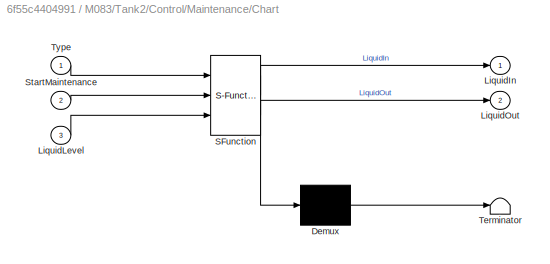
BLOCK [SubSystem] M083/Tank2/Control/Maintenance/Chart
  ErrorFcn = Stateflow.Translate.translate
  PermitHierarchicalResolution = ExplicitOnly
  Ports = [3, 2]
  RequestExecContextInheritance = off
  SFBlockType = Chart
  TreatAsAtomicUnit = on
BLOCK [Demux] M083/Tank2/Control/Maintenance/Chart/ Demux 
  Outputs = 1
  Ports = [1, 1]
BLOCK [S-Function] M083/Tank2/Control/Maintenance/Chart/ SFunction 
  EnableBusSupport = on
  FunctionName = sf_sfun
  Parameters = hmax
  PortCounts = [3 3]
  Ports = [3, 3]
  SFcnIsStateOwnerBlock = off
  SFunctionDeploymentMode = off
  Tag = Stateflow S-Function c00001M_harness 251
BLOCK [Terminator] M083/Tank2/Control/Maintenance/Chart/ Terminator 
BLOCK [Outport] M083/Tank2/Control/Maintenance/Chart/LiquidIn
  IconDisplay = Port number
BLOCK [Inport] M083/Tank2/Control/Maintenance/Chart/LiquidLevel
  IconDisplay = Port number
  Port = 3
BLOCK [Outport] M083/Tank2/Control/Maintenance/Chart/LiquidOut
  IconDisplay = Port number
  Port = 2
BLOCK [Inport] M083/Tank2/Control/Maintenance/Chart/StartMaintenance
  IconDisplay = Port number
  Port = 2
BLOCK [Inport] M083/Tank2/Control/Maintenance/Chart/Type
  IconDisplay = Port number
BLOCK [Outport] M083/Tank2/Control/Maintenance/LiquidIn
  IconDisplay = Port number
BLOCK [Inport] M083/Tank2/Control/Maintenance/LiquidLevel
  IconDisplay = Port number
  Port = 3
BLOCK [Outport] M083/Tank2/Control/Maintenance/LiquidOut
  IconDisplay = Port number
  Port = 2
BLOCK [Inport] M083/Tank2/Control/Maintenance/StartMaintenance
  IconDisplay = Port number
  Port = 2
BLOCK [Inport] M083/Tank2/Control/Maintenance/Type
  IconDisplay = Port number
BLOCK [RelationalOperator] M083/Tank2/Control/Relational Operator
  InputSameDT = off
  Operator = >
  OutDataTypeStr = boolean
  Ports = [2, 1]
  RndMeth = Simplest
BLOCK [Inport] M083/Tank2/Control/StartMaintenance
  IconDisplay = Port number
  Port = 2
BLOCK [Switch] M083/Tank2/Control/Switch
  Criteria = u2 > Threshold
  InputSameDT = off
  SaturateOnIntegerOverflow = off
BLOCK [Switch] M083/Tank2/Control/Switch1
  Criteria = u2 > Threshold
  InputSameDT = off
  SaturateOnIntegerOverflow = off
BLOCK [Inport] M083/Tank2/Control/Temperature
  IconDisplay = Port number
  Port = 4
BLOCK [Inport] M083/Tank2/EB2
  IconDisplay = Port number
  Port = 3
BLOCK [Outport] M083/Tank2/LL2
  IconDisplay = Port number
BLOCK [Memory] M083/Tank2/Memory
BLOCK [Inport] M083/Tank2/T2
  IconDisplay = Port number
  Port = 2
BLOCK [SubSystem] M083/Tank2/TankModel
  Ports = [2, 1]
  RequestExecContextInheritance = off
BLOCK [Sum] M083/Tank2/TankModel/Add1
  InputSameDT = off
  Inputs = +-
  OutDataTypeStr = Inherit: Inherit via internal rule
  Ports = [2, 1]
  SaturateOnIntegerOverflow = off
BLOCK [Constant] M083/Tank2/TankModel/Constant1
  Value = 0
BLOCK [Constant] M083/Tank2/TankModel/Constant2
  Value = 0
BLOCK [Constant] M083/Tank2/TankModel/Constant3
BLOCK [Gain] M083/Tank2/TankModel/Gain
  Gain = 1/R1
  OutDataTypeStr = Inherit: Inherit via internal rule
  ParamDataTypeStr = Inherit: Inherit via internal rule
  SaturateOnIntegerOverflow = off
BLOCK [Gain] M083/Tank2/TankModel/Gain1
  Gain = 1/A1
  OutDataTypeStr = Inherit: Inherit via internal rule
  ParamDataTypeStr = Inherit: Inherit via internal rule
  SaturateOnIntegerOverflow = off
BLOCK [Gain] M083/Tank2/TankModel/Gain2
  Gain = 1/R2
  OutDataTypeStr = Inherit: Inherit via internal rule
  ParamDataTypeStr = Inherit: Inherit via internal rule
  SaturateOnIntegerOverflow = off
BLOCK [Integrator] M083/Tank2/TankModel/Integrator
  Ports = [1, 1]
BLOCK [Inport] M083/Tank2/TankModel/LiquidIn
  IconDisplay = Port number
BLOCK [Outport] M083/Tank2/TankModel/LiquidLevel
  IconDisplay = Port number
BLOCK [Inport] M083/Tank2/TankModel/LiquidOut
  IconDisplay = Port number
  Port = 2
BLOCK [Saturate] M083/Tank2/TankModel/Saturation
  InputPortMap = u0
  LowerLimit = 0
  Ports = [1, 1]
  UpperLimit = hmax
BLOCK [Switch] M083/Tank2/TankModel/Switch
  Criteria = u2 ~= 0
  InputSameDT = off
  SaturateOnIntegerOverflow = off
BLOCK [Switch] M083/Tank2/TankModel/Switch1
  Criteria = u2 ~= 0
  InputSameDT = off
  SaturateOnIntegerOverflow = off
BLOCK [SubSystem] M084
  Ports = [3, 1]
  RequestExecContextInheritance = off
BLOCK [Inport] M084/CT2
  IconDisplay = Port number
BLOCK [Inport] M084/EB2
  IconDisplay = Port number
  Port = 3
BLOCK [Outport] M084/LL2
  IconDisplay = Port number
BLOCK [Inport] M084/T2
  IconDisplay = Port number
  Port = 2
BLOCK [SubSystem] M084/Tank2
  Ports = [3, 1]
  RequestExecContextInheritance = off
BLOCK [Inport] M084/Tank2/CT2
  IconDisplay = Port number
BLOCK [SubSystem] M084/Tank2/Control
  Ports = [5, 2]
  RequestExecContextInheritance = off
BLOCK [Constant] M084/Tank2/Control/Constant
  Value = 0
BLOCK [Constant] M084/Tank2/Control/Constant1
  Value = 75
BLOCK [Inport] M084/Tank2/Control/ControlType
  IconDisplay = Port number
BLOCK [Inport] M084/Tank2/Control/EmergencyButton
  IconDisplay = Port number
  Port = 3
BLOCK [Outport] M084/Tank2/Control/LiquidIn
  IconDisplay = Port number
BLOCK [Inport] M084/Tank2/Control/LiquidLevel
  IconDisplay = Port number
  Port = 5
BLOCK [Outport] M084/Tank2/Control/LiquidOut
  IconDisplay = Port number
  Port = 2
BLOCK [Logic] M084/Tank2/Control/Logical Operator
  AllPortsSameDT = off
  Operator = OR
  OutDataTypeStr = boolean
  Ports = [2, 1]
BLOCK [Logic] M084/Tank2/Control/Logical Operator1
  AllPortsSameDT = off
  Operator = OR
  OutDataTypeStr = boolean
  Ports = [2, 1]
BLOCK [SubSystem] M084/Tank2/Control/Maintenance
  Ports = [3, 2]
  RequestExecContextInheritance = off
BLOCK [SubSystem] M084/Tank2/Control/Maintenance/Chart
  ErrorFcn = Stateflow.Translate.translate
  PermitHierarchicalResolution = ExplicitOnly
  Ports = [3, 2]
  RequestExecContextInheritance = off
  SFBlockType = Chart
  TreatAsAtomicUnit = on
BLOCK [Demux] M084/Tank2/Control/Maintenance/Chart/ Demux 
  Outputs = 1
  Ports = [1, 1]
BLOCK [S-Function] M084/Tank2/Control/Maintenance/Chart/ SFunction 
  EnableBusSupport = on
  FunctionName = sf_sfun
  Parameters = hmax
  PortCounts = [3 3]
  Ports = [3, 3]
  SFcnIsStateOwnerBlock = off
  SFunctionDeploymentMode = off
  Tag = Stateflow S-Function c00001M_harness 254
BLOCK [Terminator] M084/Tank2/Control/Maintenance/Chart/ Terminator 
BLOCK [Outport] M084/Tank2/Control/Maintenance/Chart/LiquidIn
  IconDisplay = Port number
BLOCK [Inport] M084/Tank2/Control/Maintenance/Chart/LiquidLevel
  IconDisplay = Port number
  Port = 3
BLOCK [Outport] M084/Tank2/Control/Maintenance/Chart/LiquidOut
  IconDisplay = Port number
  Port = 2
BLOCK [Inport] M084/Tank2/Control/Maintenance/Chart/StartMaintenance
  IconDisplay = Port number
  Port = 2
BLOCK [Inport] M084/Tank2/Control/Maintenance/Chart/Type
  IconDisplay = Port number
BLOCK [Outport] M084/Tank2/Control/Maintenance/LiquidIn
  IconDisplay = Port number
BLOCK [Inport] M084/Tank2/Control/Maintenance/LiquidLevel
  IconDisplay = Port number
  Port = 3
BLOCK [Outport] M084/Tank2/Control/Maintenance/LiquidOut
  IconDisplay = Port number
  Port = 2
BLOCK [Inport] M084/Tank2/Control/Maintenance/StartMaintenance
  IconDisplay = Port number
  Port = 2
BLOCK [Inport] M084/Tank2/Control/Maintenance/Type
  IconDisplay = Port number
BLOCK [RelationalOperator] M084/Tank2/Control/Relational Operator
  InputSameDT = off
  Operator = >
  OutDataTypeStr = boolean
  Ports = [2, 1]
  RndMeth = Simplest
BLOCK [Inport] M084/Tank2/Control/StartMaintenance
  IconDisplay = Port number
  Port = 2
BLOCK [Switch] M084/Tank2/Control/Switch
  Criteria = u2 > Threshold
  InputSameDT = off
  SaturateOnIntegerOverflow = off
BLOCK [Switch] M084/Tank2/Control/Switch1
  Criteria = u2 > Threshold
  InputSameDT = off
  SaturateOnIntegerOverflow = off
BLOCK [Inport] M084/Tank2/Control/Temperature
  IconDisplay = Port number
  Port = 4
BLOCK [Inport] M084/Tank2/EB2
  IconDisplay = Port number
  Port = 3
BLOCK [Outport] M084/Tank2/LL2
  IconDisplay = Port number
BLOCK [Memory] M084/Tank2/Memory
BLOCK [Inport] M084/Tank2/T2
  IconDisplay = Port number
  Port = 2
BLOCK [SubSystem] M084/Tank2/TankModel
  Ports = [2, 1]
  RequestExecContextInheritance = off
BLOCK [Sum] M084/Tank2/TankModel/Add1
  InputSameDT = off
  Inputs = +-
  OutDataTypeStr = Inherit: Inherit via internal rule
  Ports = [2, 1]
  SaturateOnIntegerOverflow = off
BLOCK [Constant] M084/Tank2/TankModel/Constant1
  Value = 0
BLOCK [Constant] M084/Tank2/TankModel/Constant2
  Value = 0
BLOCK [Constant] M084/Tank2/TankModel/Constant3
BLOCK [Gain] M084/Tank2/TankModel/Gain
  Gain = 1/R1
  OutDataTypeStr = Inherit: Inherit via internal rule
  ParamDataTypeStr = Inherit: Inherit via internal rule
  SaturateOnIntegerOverflow = off
BLOCK [Gain] M084/Tank2/TankModel/Gain1
  Gain = 1/A1
  OutDataTypeStr = Inherit: Inherit via internal rule
  ParamDataTypeStr = Inherit: Inherit via internal rule
  SaturateOnIntegerOverflow = off
BLOCK [Gain] M084/Tank2/TankModel/Gain2
  Gain = 1/R2
  OutDataTypeStr = Inherit: Inherit via internal rule
  ParamDataTypeStr = Inherit: Inherit via internal rule
  SaturateOnIntegerOverflow = off
BLOCK [Integrator] M084/Tank2/TankModel/Integrator
  Ports = [1, 1]
BLOCK [Inport] M084/Tank2/TankModel/LiquidIn
  IconDisplay = Port number
BLOCK [Outport] M084/Tank2/TankModel/LiquidLevel
  IconDisplay = Port number
BLOCK [Inport] M084/Tank2/TankModel/LiquidOut
  IconDisplay = Port number
  Port = 2
BLOCK [Saturate] M084/Tank2/TankModel/Saturation
  InputPortMap = u0
  LowerLimit = 0
  Ports = [1, 1]
  UpperLimit = hmax
BLOCK [Switch] M084/Tank2/TankModel/Switch
  Criteria = u2 ~= 0
  InputSameDT = off
  SaturateOnIntegerOverflow = off
BLOCK [Switch] M084/Tank2/TankModel/Switch1
  Criteria = u2 ~= 0
  InputSameDT = off
  SaturateOnIntegerOverflow = off
BLOCK [SubSystem] M085
  Ports = [3, 1]
  RequestExecContextInheritance = off
BLOCK [Inport] M085/CT2
  IconDisplay = Port number
BLOCK [Inport] M085/EB2
  IconDisplay = Port number
  Port = 3
BLOCK [Outport] M085/LL2
  IconDisplay = Port number
BLOCK [Inport] M085/T2
  IconDisplay = Port number
  Port = 2
BLOCK [SubSystem] M085/Tank2
  Ports = [3, 1]
  RequestExecContextInheritance = off
BLOCK [Inport] M085/Tank2/CT2
  IconDisplay = Port number
BLOCK [SubSystem] M085/Tank2/Control
  Ports = [5, 2]
  RequestExecContextInheritance = off
BLOCK [Constant] M085/Tank2/Control/Constant
  Value = 0
BLOCK [Constant] M085/Tank2/Control/Constant1
  Value = TempThreshold
BLOCK [Inport] M085/Tank2/Control/ControlType
  IconDisplay = Port number
BLOCK [Inport] M085/Tank2/Control/EmergencyButton
  IconDisplay = Port number
  Port = 3
BLOCK [Outport] M085/Tank2/Control/LiquidIn
  IconDisplay = Port number
BLOCK [Inport] M085/Tank2/Control/LiquidLevel
  IconDisplay = Port number
  Port = 5
BLOCK [Outport] M085/Tank2/Control/LiquidOut
  IconDisplay = Port number
  Port = 2
BLOCK [Logic] M085/Tank2/Control/Logical Operator
  AllPortsSameDT = off
  OutDataTypeStr = boolean
  Ports = [2, 1]
BLOCK [Logic] M085/Tank2/Control/Logical Operator1
  AllPortsSameDT = off
  Operator = OR
  OutDataTypeStr = boolean
  Ports = [2, 1]
BLOCK [SubSystem] M085/Tank2/Control/Maintenance
  Ports = [3, 2]
  RequestExecContextInheritance = off
BLOCK [SubSystem] M085/Tank2/Control/Maintenance/Chart
  ErrorFcn = Stateflow.Translate.translate
  PermitHierarchicalResolution = ExplicitOnly
  Ports = [3, 2]
  RequestExecContextInheritance = off
  SFBlockType = Chart
  TreatAsAtomicUnit = on
BLOCK [Demux] M085/Tank2/Control/Maintenance/Chart/ Demux 
  Outputs = 1
  Ports = [1, 1]
BLOCK [S-Function] M085/Tank2/Control/Maintenance/Chart/ SFunction 
  EnableBusSupport = on
  FunctionName = sf_sfun
  Parameters = hmax
  PortCounts = [3 3]
  Ports = [3, 3]
  SFcnIsStateOwnerBlock = off
  SFunctionDeploymentMode = off
  Tag = Stateflow S-Function c00001M_harness 257
BLOCK [Terminator] M085/Tank2/Control/Maintenance/Chart/ Terminator 
BLOCK [Outport] M085/Tank2/Control/Maintenance/Chart/LiquidIn
  IconDisplay = Port number
BLOCK [Inport] M085/Tank2/Control/Maintenance/Chart/LiquidLevel
  IconDisplay = Port number
  Port = 3
BLOCK [Outport] M085/Tank2/Control/Maintenance/Chart/LiquidOut
  IconDisplay = Port number
  Port = 2
BLOCK [Inport] M085/Tank2/Control/Maintenance/Chart/StartMaintenance
  IconDisplay = Port number
  Port = 2
BLOCK [Inport] M085/Tank2/Control/Maintenance/Chart/Type
  IconDisplay = Port number
BLOCK [Outport] M085/Tank2/Control/Maintenance/LiquidIn
  IconDisplay = Port number
BLOCK [Inport] M085/Tank2/Control/Maintenance/LiquidLevel
  IconDisplay = Port number
  Port = 3
BLOCK [Outport] M085/Tank2/Control/Maintenance/LiquidOut
  IconDisplay = Port number
  Port = 2
BLOCK [Inport] M085/Tank2/Control/Maintenance/StartMaintenance
  IconDisplay = Port number
  Port = 2
BLOCK [Inport] M085/Tank2/Control/Maintenance/Type
  IconDisplay = Port number
BLOCK [RelationalOperator] M085/Tank2/Control/Relational Operator
  InputSameDT = off
  Operator = >
  OutDataTypeStr = boolean
  Ports = [2, 1]
  RndMeth = Simplest
BLOCK [Inport] M085/Tank2/Control/StartMaintenance
  IconDisplay = Port number
  Port = 2
BLOCK [Switch] M085/Tank2/Control/Switch
  Criteria = u2 > Threshold
  InputSameDT = off
  SaturateOnIntegerOverflow = off
BLOCK [Switch] M085/Tank2/Control/Switch1
  Criteria = u2 > Threshold
  InputSameDT = off
  SaturateOnIntegerOverflow = off
BLOCK [Inport] M085/Tank2/Control/Temperature
  IconDisplay = Port number
  Port = 4
BLOCK [Inport] M085/Tank2/EB2
  IconDisplay = Port number
  Port = 3
BLOCK [Outport] M085/Tank2/LL2
  IconDisplay = Port number
BLOCK [Memory] M085/Tank2/Memory
BLOCK [Inport] M085/Tank2/T2
  IconDisplay = Port number
  Port = 2
BLOCK [SubSystem] M085/Tank2/TankModel
  Ports = [2, 1]
  RequestExecContextInheritance = off
BLOCK [Sum] M085/Tank2/TankModel/Add1
  InputSameDT = off
  Inputs = +-
  OutDataTypeStr = Inherit: Inherit via internal rule
  Ports = [2, 1]
  SaturateOnIntegerOverflow = off
BLOCK [Constant] M085/Tank2/TankModel/Constant1
  Value = 0
BLOCK [Constant] M085/Tank2/TankModel/Constant2
  Value = 0
BLOCK [Constant] M085/Tank2/TankModel/Constant3
BLOCK [Gain] M085/Tank2/TankModel/Gain
  Gain = 1/R1
  OutDataTypeStr = Inherit: Inherit via internal rule
  ParamDataTypeStr = Inherit: Inherit via internal rule
  SaturateOnIntegerOverflow = off
BLOCK [Gain] M085/Tank2/TankModel/Gain1
  Gain = 1/A1
  OutDataTypeStr = Inherit: Inherit via internal rule
  ParamDataTypeStr = Inherit: Inherit via internal rule
  SaturateOnIntegerOverflow = off
BLOCK [Gain] M085/Tank2/TankModel/Gain2
  Gain = 1/R2
  OutDataTypeStr = Inherit: Inherit via internal rule
  ParamDataTypeStr = Inherit: Inherit via internal rule
  SaturateOnIntegerOverflow = off
BLOCK [Integrator] M085/Tank2/TankModel/Integrator
  Ports = [1, 1]
BLOCK [Inport] M085/Tank2/TankModel/LiquidIn
  IconDisplay = Port number
BLOCK [Outport] M085/Tank2/TankModel/LiquidLevel
  IconDisplay = Port number
BLOCK [Inport] M085/Tank2/TankModel/LiquidOut
  IconDisplay = Port number
  Port = 2
BLOCK [Saturate] M085/Tank2/TankModel/Saturation
  InputPortMap = u0
  LowerLimit = 0
  Ports = [1, 1]
  UpperLimit = hmax
BLOCK [Switch] M085/Tank2/TankModel/Switch
  Criteria = u2 ~= 0
  InputSameDT = off
  SaturateOnIntegerOverflow = off
BLOCK [Switch] M085/Tank2/TankModel/Switch1
  Criteria = u2 ~= 0
  InputSameDT = off
  SaturateOnIntegerOverflow = off
BLOCK [SubSystem] M086
  Ports = [3, 1]
  RequestExecContextInheritance = off
BLOCK [Inport] M086/CT2
  IconDisplay = Port number
BLOCK [Inport] M086/EB2
  IconDisplay = Port number
  Port = 3
BLOCK [Outport] M086/LL2
  IconDisplay = Port number
BLOCK [Inport] M086/T2
  IconDisplay = Port number
  Port = 2
BLOCK [SubSystem] M086/Tank2
  Ports = [3, 1]
  RequestExecContextInheritance = off
BLOCK [Inport] M086/Tank2/CT2
  IconDisplay = Port number
BLOCK [SubSystem] M086/Tank2/Control
  Ports = [5, 2]
  RequestExecContextInheritance = off
BLOCK [Constant] M086/Tank2/Control/Constant
  Value = 0
BLOCK [Constant] M086/Tank2/Control/Constant1
  Value = TempThreshold
BLOCK [Inport] M086/Tank2/Control/ControlType
  IconDisplay = Port number
BLOCK [Inport] M086/Tank2/Control/EmergencyButton
  IconDisplay = Port number
  Port = 3
BLOCK [Outport] M086/Tank2/Control/LiquidIn
  IconDisplay = Port number
BLOCK [Inport] M086/Tank2/Control/LiquidLevel
  IconDisplay = Port number
  Port = 5
BLOCK [Outport] M086/Tank2/Control/LiquidOut
  IconDisplay = Port number
  Port = 2
BLOCK [Logic] M086/Tank2/Control/Logical Operator
  AllPortsSameDT = off
  Operator = OR
  OutDataTypeStr = boolean
  Ports = [2, 1]
BLOCK [Logic] M086/Tank2/Control/Logical Operator1
  AllPortsSameDT = off
  OutDataTypeStr = boolean
  Ports = [2, 1]
BLOCK [SubSystem] M086/Tank2/Control/Maintenance
  Ports = [3, 2]
  RequestExecContextInheritance = off
BLOCK [SubSystem] M086/Tank2/Control/Maintenance/Chart
  ErrorFcn = Stateflow.Translate.translate
  PermitHierarchicalResolution = ExplicitOnly
  Ports = [3, 2]
  RequestExecContextInheritance = off
  SFBlockType = Chart
  TreatAsAtomicUnit = on
BLOCK [Demux] M086/Tank2/Control/Maintenance/Chart/ Demux 
  Outputs = 1
  Ports = [1, 1]
BLOCK [S-Function] M086/Tank2/Control/Maintenance/Chart/ SFunction 
  EnableBusSupport = on
  FunctionName = sf_sfun
  Parameters = hmax
  PortCounts = [3 3]
  Ports = [3, 3]
  SFcnIsStateOwnerBlock = off
  SFunctionDeploymentMode = off
  Tag = Stateflow S-Function c00001M_harness 260
BLOCK [Terminator] M086/Tank2/Control/Maintenance/Chart/ Terminator 
BLOCK [Outport] M086/Tank2/Control/Maintenance/Chart/LiquidIn
  IconDisplay = Port number
BLOCK [Inport] M086/Tank2/Control/Maintenance/Chart/LiquidLevel
  IconDisplay = Port number
  Port = 3
BLOCK [Outport] M086/Tank2/Control/Maintenance/Chart/LiquidOut
  IconDisplay = Port number
  Port = 2
BLOCK [Inport] M086/Tank2/Control/Maintenance/Chart/StartMaintenance
  IconDisplay = Port number
  Port = 2
BLOCK [Inport] M086/Tank2/Control/Maintenance/Chart/Type
  IconDisplay = Port number
BLOCK [Outport] M086/Tank2/Control/Maintenance/LiquidIn
  IconDisplay = Port number
BLOCK [Inport] M086/Tank2/Control/Maintenance/LiquidLevel
  IconDisplay = Port number
  Port = 3
BLOCK [Outport] M086/Tank2/Control/Maintenance/LiquidOut
  IconDisplay = Port number
  Port = 2
BLOCK [Inport] M086/Tank2/Control/Maintenance/StartMaintenance
  IconDisplay = Port number
  Port = 2
BLOCK [Inport] M086/Tank2/Control/Maintenance/Type
  IconDisplay = Port number
BLOCK [RelationalOperator] M086/Tank2/Control/Relational Operator
  InputSameDT = off
  Operator = >
  OutDataTypeStr = boolean
  Ports = [2, 1]
  RndMeth = Simplest
BLOCK [Inport] M086/Tank2/Control/StartMaintenance
  IconDisplay = Port number
  Port = 2
BLOCK [Switch] M086/Tank2/Control/Switch
  Criteria = u2 > Threshold
  InputSameDT = off
  SaturateOnIntegerOverflow = off
BLOCK [Switch] M086/Tank2/Control/Switch1
  Criteria = u2 > Threshold
  InputSameDT = off
  SaturateOnIntegerOverflow = off
BLOCK [Inport] M086/Tank2/Control/Temperature
  IconDisplay = Port number
  Port = 4
BLOCK [Inport] M086/Tank2/EB2
  IconDisplay = Port number
  Port = 3
BLOCK [Outport] M086/Tank2/LL2
  IconDisplay = Port number
BLOCK [Memory] M086/Tank2/Memory
BLOCK [Inport] M086/Tank2/T2
  IconDisplay = Port number
  Port = 2
BLOCK [SubSystem] M086/Tank2/TankModel
  Ports = [2, 1]
  RequestExecContextInheritance = off
BLOCK [Sum] M086/Tank2/TankModel/Add1
  InputSameDT = off
  Inputs = +-
  OutDataTypeStr = Inherit: Inherit via internal rule
  Ports = [2, 1]
  SaturateOnIntegerOverflow = off
BLOCK [Constant] M086/Tank2/TankModel/Constant1
  Value = 0
BLOCK [Constant] M086/Tank2/TankModel/Constant2
  Value = 0
BLOCK [Constant] M086/Tank2/TankModel/Constant3
BLOCK [Gain] M086/Tank2/TankModel/Gain
  Gain = 1/R1
  OutDataTypeStr = Inherit: Inherit via internal rule
  ParamDataTypeStr = Inherit: Inherit via internal rule
  SaturateOnIntegerOverflow = off
BLOCK [Gain] M086/Tank2/TankModel/Gain1
  Gain = 1/A1
  OutDataTypeStr = Inherit: Inherit via internal rule
  ParamDataTypeStr = Inherit: Inherit via internal rule
  SaturateOnIntegerOverflow = off
BLOCK [Gain] M086/Tank2/TankModel/Gain2
  Gain = 1/R2
  OutDataTypeStr = Inherit: Inherit via internal rule
  ParamDataTypeStr = Inherit: Inherit via internal rule
  SaturateOnIntegerOverflow = off
BLOCK [Integrator] M086/Tank2/TankModel/Integrator
  Ports = [1, 1]
BLOCK [Inport] M086/Tank2/TankModel/LiquidIn
  IconDisplay = Port number
BLOCK [Outport] M086/Tank2/TankModel/LiquidLevel
  IconDisplay = Port number
BLOCK [Inport] M086/Tank2/TankModel/LiquidOut
  IconDisplay = Port number
  Port = 2
BLOCK [Saturate] M086/Tank2/TankModel/Saturation
  InputPortMap = u0
  LowerLimit = 0
  Ports = [1, 1]
  UpperLimit = hmax
BLOCK [Switch] M086/Tank2/TankModel/Switch
  Criteria = u2 ~= 0
  InputSameDT = off
  SaturateOnIntegerOverflow = off
BLOCK [Switch] M086/Tank2/TankModel/Switch1
  Criteria = u2 ~= 0
  InputSameDT = off
  SaturateOnIntegerOverflow = off
BLOCK [SubSystem] M087
  Ports = [3, 1]
  RequestExecContextInheritance = off
BLOCK [Inport] M087/CT2
  IconDisplay = Port number
BLOCK [Inport] M087/EB2
  IconDisplay = Port number
  Port = 3
BLOCK [Outport] M087/LL2
  IconDisplay = Port number
BLOCK [Inport] M087/T2
  IconDisplay = Port number
  Port = 2
BLOCK [SubSystem] M087/Tank2
  Ports = [3, 1]
  RequestExecContextInheritance = off
BLOCK [Inport] M087/Tank2/CT2
  IconDisplay = Port number
BLOCK [SubSystem] M087/Tank2/Control
  Ports = [5, 2]
  RequestExecContextInheritance = off
BLOCK [Constant] M087/Tank2/Control/Constant
  Value = 0
BLOCK [Constant] M087/Tank2/Control/Constant1
  Value = TempThreshold
BLOCK [Inport] M087/Tank2/Control/ControlType
  IconDisplay = Port number
BLOCK [Inport] M087/Tank2/Control/EmergencyButton
  IconDisplay = Port number
  Port = 3
BLOCK [Outport] M087/Tank2/Control/LiquidIn
  IconDisplay = Port number
BLOCK [Inport] M087/Tank2/Control/LiquidLevel
  IconDisplay = Port number
  Port = 5
BLOCK [Outport] M087/Tank2/Control/LiquidOut
  IconDisplay = Port number
  Port = 2
BLOCK [Logic] M087/Tank2/Control/Logical Operator
  AllPortsSameDT = off
  Operator = OR
  OutDataTypeStr = boolean
  Ports = [2, 1]
BLOCK [Logic] M087/Tank2/Control/Logical Operator1
  AllPortsSameDT = off
  Operator = OR
  OutDataTypeStr = boolean
  Ports = [2, 1]
BLOCK [SubSystem] M087/Tank2/Control/Maintenance
  Ports = [3, 2]
  RequestExecContextInheritance = off
BLOCK [SubSystem] M087/Tank2/Control/Maintenance/Chart
  ErrorFcn = Stateflow.Translate.translate
  PermitHierarchicalResolution = ExplicitOnly
  Ports = [3, 2]
  RequestExecContextInheritance = off
  SFBlockType = Chart
  TreatAsAtomicUnit = on
BLOCK [Demux] M087/Tank2/Control/Maintenance/Chart/ Demux 
  Outputs = 1
  Ports = [1, 1]
BLOCK [S-Function] M087/Tank2/Control/Maintenance/Chart/ SFunction 
  EnableBusSupport = on
  FunctionName = sf_sfun
  Parameters = hmax
  PortCounts = [3 3]
  Ports = [3, 3]
  SFcnIsStateOwnerBlock = off
  SFunctionDeploymentMode = off
  Tag = Stateflow S-Function c00001M_harness 263
BLOCK [Terminator] M087/Tank2/Control/Maintenance/Chart/ Terminator 
BLOCK [Outport] M087/Tank2/Control/Maintenance/Chart/LiquidIn
  IconDisplay = Port number
BLOCK [Inport] M087/Tank2/Control/Maintenance/Chart/LiquidLevel
  IconDisplay = Port number
  Port = 3
BLOCK [Outport] M087/Tank2/Control/Maintenance/Chart/LiquidOut
  IconDisplay = Port number
  Port = 2
BLOCK [Inport] M087/Tank2/Control/Maintenance/Chart/StartMaintenance
  IconDisplay = Port number
  Port = 2
BLOCK [Inport] M087/Tank2/Control/Maintenance/Chart/Type
  IconDisplay = Port number
BLOCK [Outport] M087/Tank2/Control/Maintenance/LiquidIn
  IconDisplay = Port number
BLOCK [Inport] M087/Tank2/Control/Maintenance/LiquidLevel
  IconDisplay = Port number
  Port = 3
BLOCK [Outport] M087/Tank2/Control/Maintenance/LiquidOut
  IconDisplay = Port number
  Port = 2
BLOCK [Inport] M087/Tank2/Control/Maintenance/StartMaintenance
  IconDisplay = Port number
  Port = 2
BLOCK [Inport] M087/Tank2/Control/Maintenance/Type
  IconDisplay = Port number
BLOCK [RelationalOperator] M087/Tank2/Control/Relational Operator
  InputSameDT = off
  Operator = >
  OutDataTypeStr = boolean
  Ports = [2, 1]
  RndMeth = Simplest
BLOCK [Inport] M087/Tank2/Control/StartMaintenance
  IconDisplay = Port number
  Port = 2
BLOCK [Switch] M087/Tank2/Control/Switch
  Criteria = u2 > Threshold
  InputSameDT = off
  SaturateOnIntegerOverflow = off
BLOCK [Switch] M087/Tank2/Control/Switch1
  Criteria = u2 > Threshold
  InputSameDT = off
  SaturateOnIntegerOverflow = off
BLOCK [Inport] M087/Tank2/Control/Temperature
  IconDisplay = Port number
  Port = 4
BLOCK [Inport] M087/Tank2/EB2
  IconDisplay = Port number
  Port = 3
BLOCK [Outport] M087/Tank2/LL2
  IconDisplay = Port number
BLOCK [Memory] M087/Tank2/Memory
BLOCK [Inport] M087/Tank2/T2
  IconDisplay = Port number
  Port = 2
BLOCK [SubSystem] M087/Tank2/TankModel
  Ports = [2, 1]
  RequestExecContextInheritance = off
BLOCK [Sum] M087/Tank2/TankModel/Add1
  InputSameDT = off
  Inputs = +-
  OutDataTypeStr = Inherit: Inherit via internal rule
  Ports = [2, 1]
  SaturateOnIntegerOverflow = off
BLOCK [Constant] M087/Tank2/TankModel/Constant1
  Value = 0
BLOCK [Constant] M087/Tank2/TankModel/Constant2
  Value = 0
BLOCK [Constant] M087/Tank2/TankModel/Constant3
BLOCK [Gain] M087/Tank2/TankModel/Gain
  Gain = 1/R1
  OutDataTypeStr = Inherit: Inherit via internal rule
  ParamDataTypeStr = Inherit: Inherit via internal rule
  SaturateOnIntegerOverflow = off
BLOCK [Gain] M087/Tank2/TankModel/Gain1
  Gain = 1/A1
  OutDataTypeStr = Inherit: Inherit via internal rule
  ParamDataTypeStr = Inherit: Inherit via internal rule
  SaturateOnIntegerOverflow = off
BLOCK [Gain] M087/Tank2/TankModel/Gain2
  Gain = 1/R2
  OutDataTypeStr = Inherit: Inherit via internal rule
  ParamDataTypeStr = Inherit: Inherit via internal rule
  SaturateOnIntegerOverflow = off
BLOCK [Integrator] M087/Tank2/TankModel/Integrator
  Ports = [1, 1]
BLOCK [Inport] M087/Tank2/TankModel/LiquidIn
  IconDisplay = Port number
BLOCK [Outport] M087/Tank2/TankModel/LiquidLevel
  IconDisplay = Port number
BLOCK [Inport] M087/Tank2/TankModel/LiquidOut
  IconDisplay = Port number
  Port = 2
BLOCK [Saturate] M087/Tank2/TankModel/Saturation
  InputPortMap = u0
  LowerLimit = 0
  Ports = [1, 1]
  UpperLimit = hmax
BLOCK [Switch] M087/Tank2/TankModel/Switch
  Criteria = u2 ~= 0
  InputSameDT = off
  SaturateOnIntegerOverflow = off
BLOCK [Switch] M087/Tank2/TankModel/Switch1
  Criteria = u2 ~= 0
  InputSameDT = off
  SaturateOnIntegerOverflow = off
BLOCK [SubSystem] M088
  Ports = [3, 1]
  RequestExecContextInheritance = off
BLOCK [Inport] M088/CT2
  IconDisplay = Port number
BLOCK [Inport] M088/EB2
  IconDisplay = Port number
  Port = 3
BLOCK [Outport] M088/LL2
  IconDisplay = Port number
BLOCK [Inport] M088/T2
  IconDisplay = Port number
  Port = 2
BLOCK [SubSystem] M088/Tank2
  Ports = [3, 1]
  RequestExecContextInheritance = off
BLOCK [Inport] M088/Tank2/CT2
  IconDisplay = Port number
BLOCK [SubSystem] M088/Tank2/Control
  Ports = [5, 2]
  RequestExecContextInheritance = off
BLOCK [Constant] M088/Tank2/Control/Constant
  Value = 0
BLOCK [Constant] M088/Tank2/Control/Constant1
  Value = TempThreshold
BLOCK [Inport] M088/Tank2/Control/ControlType
  IconDisplay = Port number
BLOCK [Inport] M088/Tank2/Control/EmergencyButton
  IconDisplay = Port number
  Port = 3
BLOCK [Outport] M088/Tank2/Control/LiquidIn
  IconDisplay = Port number
BLOCK [Inport] M088/Tank2/Control/LiquidLevel
  IconDisplay = Port number
  Port = 5
BLOCK [Outport] M088/Tank2/Control/LiquidOut
  IconDisplay = Port number
  Port = 2
BLOCK [Logic] M088/Tank2/Control/Logical Operator
  AllPortsSameDT = off
  Operator = OR
  OutDataTypeStr = boolean
  Ports = [2, 1]
BLOCK [Logic] M088/Tank2/Control/Logical Operator1
  AllPortsSameDT = off
  Operator = OR
  OutDataTypeStr = boolean
  Ports = [2, 1]
BLOCK [SubSystem] M088/Tank2/Control/Maintenance
  Ports = [3, 2]
  RequestExecContextInheritance = off
BLOCK [SubSystem] M088/Tank2/Control/Maintenance/Chart
  ErrorFcn = Stateflow.Translate.translate
  PermitHierarchicalResolution = ExplicitOnly
  Ports = [3, 2]
  RequestExecContextInheritance = off
  SFBlockType = Chart
  TreatAsAtomicUnit = on
BLOCK [Demux] M088/Tank2/Control/Maintenance/Chart/ Demux 
  Outputs = 1
  Ports = [1, 1]
BLOCK [S-Function] M088/Tank2/Control/Maintenance/Chart/ SFunction 
  EnableBusSupport = on
  FunctionName = sf_sfun
  Parameters = hmax
  PortCounts = [3 3]
  Ports = [3, 3]
  SFcnIsStateOwnerBlock = off
  SFunctionDeploymentMode = off
  Tag = Stateflow S-Function c00001M_harness 266
BLOCK [Terminator] M088/Tank2/Control/Maintenance/Chart/ Terminator 
BLOCK [Outport] M088/Tank2/Control/Maintenance/Chart/LiquidIn
  IconDisplay = Port number
BLOCK [Inport] M088/Tank2/Control/Maintenance/Chart/LiquidLevel
  IconDisplay = Port number
  Port = 3
BLOCK [Outport] M088/Tank2/Control/Maintenance/Chart/LiquidOut
  IconDisplay = Port number
  Port = 2
BLOCK [Inport] M088/Tank2/Control/Maintenance/Chart/StartMaintenance
  IconDisplay = Port number
  Port = 2
BLOCK [Inport] M088/Tank2/Control/Maintenance/Chart/Type
  IconDisplay = Port number
BLOCK [Outport] M088/Tank2/Control/Maintenance/LiquidIn
  IconDisplay = Port number
BLOCK [Inport] M088/Tank2/Control/Maintenance/LiquidLevel
  IconDisplay = Port number
  Port = 3
BLOCK [Outport] M088/Tank2/Control/Maintenance/LiquidOut
  IconDisplay = Port number
  Port = 2
BLOCK [Inport] M088/Tank2/Control/Maintenance/StartMaintenance
  IconDisplay = Port number
  Port = 2
BLOCK [Inport] M088/Tank2/Control/Maintenance/Type
  IconDisplay = Port number
BLOCK [RelationalOperator] M088/Tank2/Control/Relational Operator
  InputSameDT = off
  Operator = >
  OutDataTypeStr = boolean
  Ports = [2, 1]
  RndMeth = Simplest
BLOCK [Inport] M088/Tank2/Control/StartMaintenance
  IconDisplay = Port number
  Port = 2
BLOCK [Switch] M088/Tank2/Control/Switch
  Criteria = u2 > Threshold
  InputSameDT = off
  SaturateOnIntegerOverflow = off
BLOCK [Switch] M088/Tank2/Control/Switch1
  Criteria = u2 > Threshold
  InputSameDT = off
  SaturateOnIntegerOverflow = off
BLOCK [Inport] M088/Tank2/Control/Temperature
  IconDisplay = Port number
  Port = 4
BLOCK [Inport] M088/Tank2/EB2
  IconDisplay = Port number
  Port = 3
BLOCK [Outport] M088/Tank2/LL2
  IconDisplay = Port number
BLOCK [Memory] M088/Tank2/Memory
BLOCK [Inport] M088/Tank2/T2
  IconDisplay = Port number
  Port = 2
BLOCK [SubSystem] M088/Tank2/TankModel
  Ports = [2, 1]
  RequestExecContextInheritance = off
BLOCK [Sum] M088/Tank2/TankModel/Add1
  InputSameDT = off
  Inputs = +-
  OutDataTypeStr = Inherit: Inherit via internal rule
  Ports = [2, 1]
  SaturateOnIntegerOverflow = off
BLOCK [Constant] M088/Tank2/TankModel/Constant1
  Value = 0
BLOCK [Constant] M088/Tank2/TankModel/Constant2
  Value = 0
BLOCK [Constant] M088/Tank2/TankModel/Constant3
BLOCK [Gain] M088/Tank2/TankModel/Gain
  Gain = 1/R1
  OutDataTypeStr = Inherit: Inherit via internal rule
  ParamDataTypeStr = Inherit: Inherit via internal rule
  SaturateOnIntegerOverflow = off
BLOCK [Gain] M088/Tank2/TankModel/Gain1
  Gain = 1/A1
  OutDataTypeStr = Inherit: Inherit via internal rule
  ParamDataTypeStr = Inherit: Inherit via internal rule
  SaturateOnIntegerOverflow = off
BLOCK [Gain] M088/Tank2/TankModel/Gain2
  Gain = 1/R2
  OutDataTypeStr = Inherit: Inherit via internal rule
  ParamDataTypeStr = Inherit: Inherit via internal rule
  SaturateOnIntegerOverflow = off
BLOCK [Integrator] M088/Tank2/TankModel/Integrator
  Ports = [1, 1]
BLOCK [Inport] M088/Tank2/TankModel/LiquidIn
  IconDisplay = Port number
BLOCK [Outport] M088/Tank2/TankModel/LiquidLevel
  IconDisplay = Port number
BLOCK [Inport] M088/Tank2/TankModel/LiquidOut
  IconDisplay = Port number
  Port = 2
BLOCK [Saturate] M088/Tank2/TankModel/Saturation
  InputPortMap = u0
  LowerLimit = 0
  Ports = [1, 1]
  UpperLimit = hmax
BLOCK [Switch] M088/Tank2/TankModel/Switch
  Criteria = u2 ~= 0
  InputSameDT = off
  SaturateOnIntegerOverflow = off
BLOCK [Switch] M088/Tank2/TankModel/Switch1
  Criteria = u2 ~= 0
  InputSameDT = off
  SaturateOnIntegerOverflow = off
BLOCK [SubSystem] M089
  Ports = [3, 1]
  RequestExecContextInheritance = off
BLOCK [Inport] M089/CT2
  IconDisplay = Port number
BLOCK [Inport] M089/EB2
  IconDisplay = Port number
  Port = 3
BLOCK [Outport] M089/LL2
  IconDisplay = Port number
BLOCK [Inport] M089/T2
  IconDisplay = Port number
  Port = 2
BLOCK [SubSystem] M089/Tank2
  Ports = [3, 1]
  RequestExecContextInheritance = off
BLOCK [Inport] M089/Tank2/CT2
  IconDisplay = Port number
BLOCK [SubSystem] M089/Tank2/Control
  Ports = [5, 2]
  RequestExecContextInheritance = off
BLOCK [Constant] M089/Tank2/Control/Constant
  Value = 0
BLOCK [Constant] M089/Tank2/Control/Constant1
  Value = TempThreshold
BLOCK [Inport] M089/Tank2/Control/ControlType
  IconDisplay = Port number
BLOCK [Inport] M089/Tank2/Control/EmergencyButton
  IconDisplay = Port number
  Port = 3
BLOCK [Outport] M089/Tank2/Control/LiquidIn
  IconDisplay = Port number
BLOCK [Inport] M089/Tank2/Control/LiquidLevel
  IconDisplay = Port number
  Port = 5
BLOCK [Outport] M089/Tank2/Control/LiquidOut
  IconDisplay = Port number
  Port = 2
BLOCK [Logic] M089/Tank2/Control/Logical Operator
  AllPortsSameDT = off
  Operator = OR
  OutDataTypeStr = boolean
  Ports = [2, 1]
BLOCK [Logic] M089/Tank2/Control/Logical Operator1
  AllPortsSameDT = off
  Operator = OR
  OutDataTypeStr = boolean
  Ports = [2, 1]
BLOCK [SubSystem] M089/Tank2/Control/Maintenance
  Ports = [3, 2]
  RequestExecContextInheritance = off
BLOCK [SubSystem] M089/Tank2/Control/Maintenance/Chart
  ErrorFcn = Stateflow.Translate.translate
  PermitHierarchicalResolution = ExplicitOnly
  Ports = [3, 2]
  RequestExecContextInheritance = off
  SFBlockType = Chart
  TreatAsAtomicUnit = on
BLOCK [Demux] M089/Tank2/Control/Maintenance/Chart/ Demux 
  Outputs = 1
  Ports = [1, 1]
BLOCK [S-Function] M089/Tank2/Control/Maintenance/Chart/ SFunction 
  EnableBusSupport = on
  FunctionName = sf_sfun
  Parameters = hmax
  PortCounts = [3 3]
  Ports = [3, 3]
  SFcnIsStateOwnerBlock = off
  SFunctionDeploymentMode = off
  Tag = Stateflow S-Function c00001M_harness 269
BLOCK [Terminator] M089/Tank2/Control/Maintenance/Chart/ Terminator 
BLOCK [Outport] M089/Tank2/Control/Maintenance/Chart/LiquidIn
  IconDisplay = Port number
BLOCK [Inport] M089/Tank2/Control/Maintenance/Chart/LiquidLevel
  IconDisplay = Port number
  Port = 3
BLOCK [Outport] M089/Tank2/Control/Maintenance/Chart/LiquidOut
  IconDisplay = Port number
  Port = 2
BLOCK [Inport] M089/Tank2/Control/Maintenance/Chart/StartMaintenance
  IconDisplay = Port number
  Port = 2
BLOCK [Inport] M089/Tank2/Control/Maintenance/Chart/Type
  IconDisplay = Port number
BLOCK [Outport] M089/Tank2/Control/Maintenance/LiquidIn
  IconDisplay = Port number
BLOCK [Inport] M089/Tank2/Control/Maintenance/LiquidLevel
  IconDisplay = Port number
  Port = 3
BLOCK [Outport] M089/Tank2/Control/Maintenance/LiquidOut
  IconDisplay = Port number
  Port = 2
BLOCK [Inport] M089/Tank2/Control/Maintenance/StartMaintenance
  IconDisplay = Port number
  Port = 2
BLOCK [Inport] M089/Tank2/Control/Maintenance/Type
  IconDisplay = Port number
BLOCK [RelationalOperator] M089/Tank2/Control/Relational Operator
  InputSameDT = off
  Operator = >
  OutDataTypeStr = boolean
  Ports = [2, 1]
  RndMeth = Simplest
BLOCK [Inport] M089/Tank2/Control/StartMaintenance
  IconDisplay = Port number
  Port = 2
BLOCK [Switch] M089/Tank2/Control/Switch
  Criteria = u2 > Threshold
  InputSameDT = off
  SaturateOnIntegerOverflow = off
BLOCK [Switch] M089/Tank2/Control/Switch1
  Criteria = u2 > Threshold
  InputSameDT = off
  SaturateOnIntegerOverflow = off
BLOCK [Inport] M089/Tank2/Control/Temperature
  IconDisplay = Port number
  Port = 4
BLOCK [Inport] M089/Tank2/EB2
  IconDisplay = Port number
  Port = 3
BLOCK [Outport] M089/Tank2/LL2
  IconDisplay = Port number
BLOCK [Memory] M089/Tank2/Memory
BLOCK [Inport] M089/Tank2/T2
  IconDisplay = Port number
  Port = 2
BLOCK [SubSystem] M089/Tank2/TankModel
  Ports = [2, 1]
  RequestExecContextInheritance = off
BLOCK [Sum] M089/Tank2/TankModel/Add1
  InputSameDT = off
  Inputs = +-
  OutDataTypeStr = Inherit: Inherit via internal rule
  Ports = [2, 1]
  SaturateOnIntegerOverflow = off
BLOCK [Constant] M089/Tank2/TankModel/Constant1
  Value = 0
BLOCK [Constant] M089/Tank2/TankModel/Constant2
  Value = 0
BLOCK [Constant] M089/Tank2/TankModel/Constant3
BLOCK [Gain] M089/Tank2/TankModel/Gain
  Gain = 1/R1
  OutDataTypeStr = Inherit: Inherit via internal rule
  ParamDataTypeStr = Inherit: Inherit via internal rule
  SaturateOnIntegerOverflow = off
BLOCK [Gain] M089/Tank2/TankModel/Gain1
  Gain = 1/A1
  OutDataTypeStr = Inherit: Inherit via internal rule
  ParamDataTypeStr = Inherit: Inherit via internal rule
  SaturateOnIntegerOverflow = off
BLOCK [Gain] M089/Tank2/TankModel/Gain2
  Gain = 1/R2
  OutDataTypeStr = Inherit: Inherit via internal rule
  ParamDataTypeStr = Inherit: Inherit via internal rule
  SaturateOnIntegerOverflow = off
BLOCK [Integrator] M089/Tank2/TankModel/Integrator
  Ports = [1, 1]
BLOCK [Inport] M089/Tank2/TankModel/LiquidIn
  IconDisplay = Port number
BLOCK [Outport] M089/Tank2/TankModel/LiquidLevel
  IconDisplay = Port number
BLOCK [Inport] M089/Tank2/TankModel/LiquidOut
  IconDisplay = Port number
  Port = 2
BLOCK [Saturate] M089/Tank2/TankModel/Saturation
  InputPortMap = u0
  LowerLimit = 0
  Ports = [1, 1]
  UpperLimit = hmax
BLOCK [Switch] M089/Tank2/TankModel/Switch
  Criteria = u2 ~= 0
  InputSameDT = off
  SaturateOnIntegerOverflow = off
BLOCK [Switch] M089/Tank2/TankModel/Switch1
  Criteria = u2 ~= 0
  InputSameDT = off
  SaturateOnIntegerOverflow = off
BLOCK [SubSystem] M090
  Ports = [3, 1]
  RequestExecContextInheritance = off
BLOCK [Inport] M090/CT2
  IconDisplay = Port number
BLOCK [Inport] M090/EB2
  IconDisplay = Port number
  Port = 3
BLOCK [Outport] M090/LL2
  IconDisplay = Port number
BLOCK [Inport] M090/T2
  IconDisplay = Port number
  Port = 2
BLOCK [SubSystem] M090/Tank2
  Ports = [3, 1]
  RequestExecContextInheritance = off
BLOCK [Inport] M090/Tank2/CT2
  IconDisplay = Port number
BLOCK [SubSystem] M090/Tank2/Control
  Ports = [5, 2]
  RequestExecContextInheritance = off
BLOCK [Constant] M090/Tank2/Control/Constant
  Value = 0
BLOCK [Constant] M090/Tank2/Control/Constant1
  Value = TempThreshold
BLOCK [Inport] M090/Tank2/Control/ControlType
  IconDisplay = Port number
BLOCK [Inport] M090/Tank2/Control/EmergencyButton
  IconDisplay = Port number
  Port = 3
BLOCK [Outport] M090/Tank2/Control/LiquidIn
  IconDisplay = Port number
BLOCK [Inport] M090/Tank2/Control/LiquidLevel
  IconDisplay = Port number
  Port = 5
BLOCK [Outport] M090/Tank2/Control/LiquidOut
  IconDisplay = Port number
  Port = 2
BLOCK [Logic] M090/Tank2/Control/Logical Operator
  AllPortsSameDT = off
  Operator = OR
  OutDataTypeStr = boolean
  Ports = [2, 1]
BLOCK [Logic] M090/Tank2/Control/Logical Operator1
  AllPortsSameDT = off
  Operator = OR
  OutDataTypeStr = boolean
  Ports = [2, 1]
BLOCK [SubSystem] M090/Tank2/Control/Maintenance
  Ports = [3, 2]
  RequestExecContextInheritance = off
BLOCK [SubSystem] M090/Tank2/Control/Maintenance/Chart
  ErrorFcn = Stateflow.Translate.translate
  PermitHierarchicalResolution = ExplicitOnly
  Ports = [3, 2]
  RequestExecContextInheritance = off
  SFBlockType = Chart
  TreatAsAtomicUnit = on
BLOCK [Demux] M090/Tank2/Control/Maintenance/Chart/ Demux 
  Outputs = 1
  Ports = [1, 1]
BLOCK [S-Function] M090/Tank2/Control/Maintenance/Chart/ SFunction 
  EnableBusSupport = on
  FunctionName = sf_sfun
  Parameters = hmax
  PortCounts = [3 3]
  Ports = [3, 3]
  SFcnIsStateOwnerBlock = off
  SFunctionDeploymentMode = off
  Tag = Stateflow S-Function c00001M_harness 272
BLOCK [Terminator] M090/Tank2/Control/Maintenance/Chart/ Terminator 
BLOCK [Outport] M090/Tank2/Control/Maintenance/Chart/LiquidIn
  IconDisplay = Port number
BLOCK [Inport] M090/Tank2/Control/Maintenance/Chart/LiquidLevel
  IconDisplay = Port number
  Port = 3
BLOCK [Outport] M090/Tank2/Control/Maintenance/Chart/LiquidOut
  IconDisplay = Port number
  Port = 2
BLOCK [Inport] M090/Tank2/Control/Maintenance/Chart/StartMaintenance
  IconDisplay = Port number
  Port = 2
BLOCK [Inport] M090/Tank2/Control/Maintenance/Chart/Type
  IconDisplay = Port number
BLOCK [Outport] M090/Tank2/Control/Maintenance/LiquidIn
  IconDisplay = Port number
BLOCK [Inport] M090/Tank2/Control/Maintenance/LiquidLevel
  IconDisplay = Port number
  Port = 3
BLOCK [Outport] M090/Tank2/Control/Maintenance/LiquidOut
  IconDisplay = Port number
  Port = 2
BLOCK [Inport] M090/Tank2/Control/Maintenance/StartMaintenance
  IconDisplay = Port number
  Port = 2
BLOCK [Inport] M090/Tank2/Control/Maintenance/Type
  IconDisplay = Port number
BLOCK [RelationalOperator] M090/Tank2/Control/Relational Operator
  InputSameDT = off
  Operator = >
  OutDataTypeStr = boolean
  Ports = [2, 1]
  RndMeth = Simplest
BLOCK [Inport] M090/Tank2/Control/StartMaintenance
  IconDisplay = Port number
  Port = 2
BLOCK [Switch] M090/Tank2/Control/Switch
  Criteria = u2 > Threshold
  InputSameDT = off
  SaturateOnIntegerOverflow = off
BLOCK [Switch] M090/Tank2/Control/Switch1
  Criteria = u2 > Threshold
  InputSameDT = off
  SaturateOnIntegerOverflow = off
BLOCK [Inport] M090/Tank2/Control/Temperature
  IconDisplay = Port number
  Port = 4
BLOCK [Inport] M090/Tank2/EB2
  IconDisplay = Port number
  Port = 3
BLOCK [Outport] M090/Tank2/LL2
  IconDisplay = Port number
BLOCK [Memory] M090/Tank2/Memory
BLOCK [Inport] M090/Tank2/T2
  IconDisplay = Port number
  Port = 2
BLOCK [SubSystem] M090/Tank2/TankModel
  Ports = [2, 1]
  RequestExecContextInheritance = off
BLOCK [Sum] M090/Tank2/TankModel/Add1
  InputSameDT = off
  Inputs = +-
  OutDataTypeStr = Inherit: Inherit via internal rule
  Ports = [2, 1]
  SaturateOnIntegerOverflow = off
BLOCK [Constant] M090/Tank2/TankModel/Constant1
  Value = 0
BLOCK [Constant] M090/Tank2/TankModel/Constant2
  Value = 0
BLOCK [Constant] M090/Tank2/TankModel/Constant3
BLOCK [Gain] M090/Tank2/TankModel/Gain
  Gain = 1/R1
  OutDataTypeStr = Inherit: Inherit via internal rule
  ParamDataTypeStr = Inherit: Inherit via internal rule
  SaturateOnIntegerOverflow = off
BLOCK [Gain] M090/Tank2/TankModel/Gain1
  Gain = 1/A1
  OutDataTypeStr = Inherit: Inherit via internal rule
  ParamDataTypeStr = Inherit: Inherit via internal rule
  SaturateOnIntegerOverflow = off
BLOCK [Gain] M090/Tank2/TankModel/Gain2
  Gain = 1/R2
  OutDataTypeStr = Inherit: Inherit via internal rule
  ParamDataTypeStr = Inherit: Inherit via internal rule
  SaturateOnIntegerOverflow = off
BLOCK [Integrator] M090/Tank2/TankModel/Integrator
  Ports = [1, 1]
BLOCK [Inport] M090/Tank2/TankModel/LiquidIn
  IconDisplay = Port number
BLOCK [Outport] M090/Tank2/TankModel/LiquidLevel
  IconDisplay = Port number
BLOCK [Inport] M090/Tank2/TankModel/LiquidOut
  IconDisplay = Port number
  Port = 2
BLOCK [Saturate] M090/Tank2/TankModel/Saturation
  InputPortMap = u0
  LowerLimit = 0
  Ports = [1, 1]
  UpperLimit = hmax
BLOCK [Switch] M090/Tank2/TankModel/Switch
  Criteria = u2 ~= 0
  InputSameDT = off
  SaturateOnIntegerOverflow = off
BLOCK [Switch] M090/Tank2/TankModel/Switch1
  Criteria = u2 ~= 0
  InputSameDT = off
  SaturateOnIntegerOverflow = off
BLOCK [SubSystem] M091
  Ports = [3, 1]
  RequestExecContextInheritance = off
BLOCK [Inport] M091/CT2
  IconDisplay = Port number
BLOCK [Inport] M091/EB2
  IconDisplay = Port number
  Port = 3
BLOCK [Outport] M091/LL2
  IconDisplay = Port number
BLOCK [Inport] M091/T2
  IconDisplay = Port number
  Port = 2
BLOCK [SubSystem] M091/Tank2
  Ports = [3, 1]
  RequestExecContextInheritance = off
BLOCK [Inport] M091/Tank2/CT2
  IconDisplay = Port number
BLOCK [SubSystem] M091/Tank2/Control
  Ports = [5, 2]
  RequestExecContextInheritance = off
BLOCK [Constant] M091/Tank2/Control/Constant
  Value = 0
BLOCK [Constant] M091/Tank2/Control/Constant1
  Value = TempThreshold
BLOCK [Inport] M091/Tank2/Control/ControlType
  IconDisplay = Port number
BLOCK [Inport] M091/Tank2/Control/EmergencyButton
  IconDisplay = Port number
  Port = 3
BLOCK [Outport] M091/Tank2/Control/LiquidIn
  IconDisplay = Port number
BLOCK [Inport] M091/Tank2/Control/LiquidLevel
  IconDisplay = Port number
  Port = 5
BLOCK [Outport] M091/Tank2/Control/LiquidOut
  IconDisplay = Port number
  Port = 2
BLOCK [Logic] M091/Tank2/Control/Logical Operator
  AllPortsSameDT = off
  Operator = OR
  OutDataTypeStr = boolean
  Ports = [2, 1]
BLOCK [Logic] M091/Tank2/Control/Logical Operator1
  AllPortsSameDT = off
  Operator = OR
  OutDataTypeStr = boolean
  Ports = [2, 1]
BLOCK [SubSystem] M091/Tank2/Control/Maintenance
  Ports = [3, 2]
  RequestExecContextInheritance = off
BLOCK [SubSystem] M091/Tank2/Control/Maintenance/Chart
  ErrorFcn = Stateflow.Translate.translate
  PermitHierarchicalResolution = ExplicitOnly
  Ports = [3, 2]
  RequestExecContextInheritance = off
  SFBlockType = Chart
  TreatAsAtomicUnit = on
BLOCK [Demux] M091/Tank2/Control/Maintenance/Chart/ Demux 
  Outputs = 1
  Ports = [1, 1]
BLOCK [S-Function] M091/Tank2/Control/Maintenance/Chart/ SFunction 
  EnableBusSupport = on
  FunctionName = sf_sfun
  Parameters = hmax
  PortCounts = [3 3]
  Ports = [3, 3]
  SFcnIsStateOwnerBlock = off
  SFunctionDeploymentMode = off
  Tag = Stateflow S-Function c00001M_harness 275
BLOCK [Terminator] M091/Tank2/Control/Maintenance/Chart/ Terminator 
BLOCK [Outport] M091/Tank2/Control/Maintenance/Chart/LiquidIn
  IconDisplay = Port number
BLOCK [Inport] M091/Tank2/Control/Maintenance/Chart/LiquidLevel
  IconDisplay = Port number
  Port = 3
BLOCK [Outport] M091/Tank2/Control/Maintenance/Chart/LiquidOut
  IconDisplay = Port number
  Port = 2
BLOCK [Inport] M091/Tank2/Control/Maintenance/Chart/StartMaintenance
  IconDisplay = Port number
  Port = 2
BLOCK [Inport] M091/Tank2/Control/Maintenance/Chart/Type
  IconDisplay = Port number
BLOCK [Outport] M091/Tank2/Control/Maintenance/LiquidIn
  IconDisplay = Port number
BLOCK [Inport] M091/Tank2/Control/Maintenance/LiquidLevel
  IconDisplay = Port number
  Port = 3
BLOCK [Outport] M091/Tank2/Control/Maintenance/LiquidOut
  IconDisplay = Port number
  Port = 2
BLOCK [Inport] M091/Tank2/Control/Maintenance/StartMaintenance
  IconDisplay = Port number
  Port = 2
BLOCK [Inport] M091/Tank2/Control/Maintenance/Type
  IconDisplay = Port number
BLOCK [RelationalOperator] M091/Tank2/Control/Relational Operator
  InputSameDT = off
  Operator = >
  OutDataTypeStr = boolean
  Ports = [2, 1]
  RndMeth = Simplest
BLOCK [Inport] M091/Tank2/Control/StartMaintenance
  IconDisplay = Port number
  Port = 2
BLOCK [Switch] M091/Tank2/Control/Switch
  Criteria = u2 > Threshold
  InputSameDT = off
  SaturateOnIntegerOverflow = off
BLOCK [Switch] M091/Tank2/Control/Switch1
  Criteria = u2 > Threshold
  InputSameDT = off
  SaturateOnIntegerOverflow = off
BLOCK [Inport] M091/Tank2/Control/Temperature
  IconDisplay = Port number
  Port = 4
BLOCK [Inport] M091/Tank2/EB2
  IconDisplay = Port number
  Port = 3
BLOCK [Outport] M091/Tank2/LL2
  IconDisplay = Port number
BLOCK [Memory] M091/Tank2/Memory
BLOCK [Inport] M091/Tank2/T2
  IconDisplay = Port number
  Port = 2
BLOCK [SubSystem] M091/Tank2/TankModel
  Ports = [2, 1]
  RequestExecContextInheritance = off
BLOCK [Sum] M091/Tank2/TankModel/Add1
  InputSameDT = off
  Inputs = +-
  OutDataTypeStr = Inherit: Inherit via internal rule
  Ports = [2, 1]
  SaturateOnIntegerOverflow = off
BLOCK [Constant] M091/Tank2/TankModel/Constant1
  Value = 0
BLOCK [Constant] M091/Tank2/TankModel/Constant2
  Value = 0
BLOCK [Constant] M091/Tank2/TankModel/Constant3
BLOCK [Gain] M091/Tank2/TankModel/Gain
  Gain = 1/R1
  OutDataTypeStr = Inherit: Inherit via internal rule
  ParamDataTypeStr = Inherit: Inherit via internal rule
  SaturateOnIntegerOverflow = off
BLOCK [Gain] M091/Tank2/TankModel/Gain1
  Gain = 1/A1
  OutDataTypeStr = Inherit: Inherit via internal rule
  ParamDataTypeStr = Inherit: Inherit via internal rule
  SaturateOnIntegerOverflow = off
BLOCK [Gain] M091/Tank2/TankModel/Gain2
  Gain = 1/R2
  OutDataTypeStr = Inherit: Inherit via internal rule
  ParamDataTypeStr = Inherit: Inherit via internal rule
  SaturateOnIntegerOverflow = off
BLOCK [Integrator] M091/Tank2/TankModel/Integrator
  Ports = [1, 1]
BLOCK [Inport] M091/Tank2/TankModel/LiquidIn
  IconDisplay = Port number
BLOCK [Outport] M091/Tank2/TankModel/LiquidLevel
  IconDisplay = Port number
BLOCK [Inport] M091/Tank2/TankModel/LiquidOut
  IconDisplay = Port number
  Port = 2
BLOCK [Saturate] M091/Tank2/TankModel/Saturation
  InputPortMap = u0
  LowerLimit = 0
  Ports = [1, 1]
  UpperLimit = hmax
BLOCK [Switch] M091/Tank2/TankModel/Switch
  Criteria = u2 ~= 0
  InputSameDT = off
  SaturateOnIntegerOverflow = off
BLOCK [Switch] M091/Tank2/TankModel/Switch1
  Criteria = u2 ~= 0
  InputSameDT = off
  SaturateOnIntegerOverflow = off
BLOCK [SubSystem] M092
  Ports = [3, 1]
  RequestExecContextInheritance = off
BLOCK [Inport] M092/CT2
  IconDisplay = Port number
BLOCK [Inport] M092/EB2
  IconDisplay = Port number
  Port = 3
BLOCK [Outport] M092/LL2
  IconDisplay = Port number
BLOCK [Inport] M092/T2
  IconDisplay = Port number
  Port = 2
BLOCK [SubSystem] M092/Tank2
  Ports = [3, 1]
  RequestExecContextInheritance = off
BLOCK [Inport] M092/Tank2/CT2
  IconDisplay = Port number
BLOCK [SubSystem] M092/Tank2/Control
  Ports = [5, 2]
  RequestExecContextInheritance = off
BLOCK [Constant] M092/Tank2/Control/Constant
  Value = 0
BLOCK [Constant] M092/Tank2/Control/Constant1
  Value = TempThreshold
BLOCK [Inport] M092/Tank2/Control/ControlType
  IconDisplay = Port number
BLOCK [Inport] M092/Tank2/Control/EmergencyButton
  IconDisplay = Port number
  Port = 3
BLOCK [Outport] M092/Tank2/Control/LiquidIn
  IconDisplay = Port number
BLOCK [Inport] M092/Tank2/Control/LiquidLevel
  IconDisplay = Port number
  Port = 5
BLOCK [Outport] M092/Tank2/Control/LiquidOut
  IconDisplay = Port number
  Port = 2
BLOCK [Logic] M092/Tank2/Control/Logical Operator
  AllPortsSameDT = off
  Operator = OR
  OutDataTypeStr = boolean
  Ports = [2, 1]
BLOCK [Logic] M092/Tank2/Control/Logical Operator1
  AllPortsSameDT = off
  Operator = OR
  OutDataTypeStr = boolean
  Ports = [2, 1]
BLOCK [SubSystem] M092/Tank2/Control/Maintenance
  Ports = [3, 2]
  RequestExecContextInheritance = off
BLOCK [SubSystem] M092/Tank2/Control/Maintenance/Chart
  ErrorFcn = Stateflow.Translate.translate
  PermitHierarchicalResolution = ExplicitOnly
  Ports = [3, 2]
  RequestExecContextInheritance = off
  SFBlockType = Chart
  TreatAsAtomicUnit = on
BLOCK [Demux] M092/Tank2/Control/Maintenance/Chart/ Demux 
  Outputs = 1
  Ports = [1, 1]
BLOCK [S-Function] M092/Tank2/Control/Maintenance/Chart/ SFunction 
  EnableBusSupport = on
  FunctionName = sf_sfun
  Parameters = hmax
  PortCounts = [3 3]
  Ports = [3, 3]
  SFcnIsStateOwnerBlock = off
  SFunctionDeploymentMode = off
  Tag = Stateflow S-Function c00001M_harness 278
BLOCK [Terminator] M092/Tank2/Control/Maintenance/Chart/ Terminator 
BLOCK [Outport] M092/Tank2/Control/Maintenance/Chart/LiquidIn
  IconDisplay = Port number
BLOCK [Inport] M092/Tank2/Control/Maintenance/Chart/LiquidLevel
  IconDisplay = Port number
  Port = 3
BLOCK [Outport] M092/Tank2/Control/Maintenance/Chart/LiquidOut
  IconDisplay = Port number
  Port = 2
BLOCK [Inport] M092/Tank2/Control/Maintenance/Chart/StartMaintenance
  IconDisplay = Port number
  Port = 2
BLOCK [Inport] M092/Tank2/Control/Maintenance/Chart/Type
  IconDisplay = Port number
BLOCK [Outport] M092/Tank2/Control/Maintenance/LiquidIn
  IconDisplay = Port number
BLOCK [Inport] M092/Tank2/Control/Maintenance/LiquidLevel
  IconDisplay = Port number
  Port = 3
BLOCK [Outport] M092/Tank2/Control/Maintenance/LiquidOut
  IconDisplay = Port number
  Port = 2
BLOCK [Inport] M092/Tank2/Control/Maintenance/StartMaintenance
  IconDisplay = Port number
  Port = 2
BLOCK [Inport] M092/Tank2/Control/Maintenance/Type
  IconDisplay = Port number
BLOCK [RelationalOperator] M092/Tank2/Control/Relational Operator
  InputSameDT = off
  Operator = >
  OutDataTypeStr = boolean
  Ports = [2, 1]
  RndMeth = Simplest
BLOCK [Inport] M092/Tank2/Control/StartMaintenance
  IconDisplay = Port number
  Port = 2
BLOCK [Switch] M092/Tank2/Control/Switch
  Criteria = u2 > Threshold
  InputSameDT = off
  SaturateOnIntegerOverflow = off
BLOCK [Switch] M092/Tank2/Control/Switch1
  Criteria = u2 > Threshold
  InputSameDT = off
  SaturateOnIntegerOverflow = off
BLOCK [Inport] M092/Tank2/Control/Temperature
  IconDisplay = Port number
  Port = 4
BLOCK [Inport] M092/Tank2/EB2
  IconDisplay = Port number
  Port = 3
BLOCK [Outport] M092/Tank2/LL2
  IconDisplay = Port number
BLOCK [Memory] M092/Tank2/Memory
BLOCK [Inport] M092/Tank2/T2
  IconDisplay = Port number
  Port = 2
BLOCK [SubSystem] M092/Tank2/TankModel
  Ports = [2, 1]
  RequestExecContextInheritance = off
BLOCK [Sum] M092/Tank2/TankModel/Add1
  InputSameDT = off
  Inputs = +-
  OutDataTypeStr = Inherit: Inherit via internal rule
  Ports = [2, 1]
  SaturateOnIntegerOverflow = off
BLOCK [Constant] M092/Tank2/TankModel/Constant1
  Value = 0
BLOCK [Constant] M092/Tank2/TankModel/Constant2
  Value = 0
BLOCK [Constant] M092/Tank2/TankModel/Constant3
BLOCK [Gain] M092/Tank2/TankModel/Gain
  Gain = 1/R1
  OutDataTypeStr = Inherit: Inherit via internal rule
  ParamDataTypeStr = Inherit: Inherit via internal rule
  SaturateOnIntegerOverflow = off
BLOCK [Gain] M092/Tank2/TankModel/Gain1
  Gain = 1/A1
  OutDataTypeStr = Inherit: Inherit via internal rule
  ParamDataTypeStr = Inherit: Inherit via internal rule
  SaturateOnIntegerOverflow = off
BLOCK [Gain] M092/Tank2/TankModel/Gain2
  Gain = 1/R2
  OutDataTypeStr = Inherit: Inherit via internal rule
  ParamDataTypeStr = Inherit: Inherit via internal rule
  SaturateOnIntegerOverflow = off
BLOCK [Integrator] M092/Tank2/TankModel/Integrator
  Ports = [1, 1]
BLOCK [Inport] M092/Tank2/TankModel/LiquidIn
  IconDisplay = Port number
BLOCK [Outport] M092/Tank2/TankModel/LiquidLevel
  IconDisplay = Port number
BLOCK [Inport] M092/Tank2/TankModel/LiquidOut
  IconDisplay = Port number
  Port = 2
BLOCK [Saturate] M092/Tank2/TankModel/Saturation
  InputPortMap = u0
  LowerLimit = 0
  Ports = [1, 1]
  UpperLimit = hmax
BLOCK [Switch] M092/Tank2/TankModel/Switch
  Criteria = u2 ~= 0
  InputSameDT = off
  SaturateOnIntegerOverflow = off
BLOCK [Switch] M092/Tank2/TankModel/Switch1
  Criteria = u2 ~= 0
  InputSameDT = off
  SaturateOnIntegerOverflow = off
BLOCK [SubSystem] M093
  Ports = [3, 1]
  RequestExecContextInheritance = off
BLOCK [Inport] M093/CT2
  IconDisplay = Port number
BLOCK [Inport] M093/EB2
  IconDisplay = Port number
  Port = 3
BLOCK [Outport] M093/LL2
  IconDisplay = Port number
BLOCK [Inport] M093/T2
  IconDisplay = Port number
  Port = 2
BLOCK [SubSystem] M093/Tank2
  Ports = [3, 1]
  RequestExecContextInheritance = off
BLOCK [Inport] M093/Tank2/CT2
  IconDisplay = Port number
BLOCK [SubSystem] M093/Tank2/Control
  Ports = [5, 2]
  RequestExecContextInheritance = off
BLOCK [Constant] M093/Tank2/Control/Constant
  Value = 0
BLOCK [Constant] M093/Tank2/Control/Constant1
  Value = TempThreshold
BLOCK [Inport] M093/Tank2/Control/ControlType
  IconDisplay = Port number
BLOCK [Inport] M093/Tank2/Control/EmergencyButton
  IconDisplay = Port number
  Port = 3
BLOCK [Outport] M093/Tank2/Control/LiquidIn
  IconDisplay = Port number
BLOCK [Inport] M093/Tank2/Control/LiquidLevel
  IconDisplay = Port number
  Port = 5
BLOCK [Outport] M093/Tank2/Control/LiquidOut
  IconDisplay = Port number
  Port = 2
BLOCK [Logic] M093/Tank2/Control/Logical Operator
  AllPortsSameDT = off
  Operator = OR
  OutDataTypeStr = boolean
  Ports = [2, 1]
BLOCK [Logic] M093/Tank2/Control/Logical Operator1
  AllPortsSameDT = off
  Operator = OR
  OutDataTypeStr = boolean
  Ports = [2, 1]
BLOCK [SubSystem] M093/Tank2/Control/Maintenance
  Ports = [3, 2]
  RequestExecContextInheritance = off
BLOCK [SubSystem] M093/Tank2/Control/Maintenance/Chart
  ErrorFcn = Stateflow.Translate.translate
  PermitHierarchicalResolution = ExplicitOnly
  Ports = [3, 2]
  RequestExecContextInheritance = off
  SFBlockType = Chart
  TreatAsAtomicUnit = on
BLOCK [Demux] M093/Tank2/Control/Maintenance/Chart/ Demux 
  Outputs = 1
  Ports = [1, 1]
BLOCK [S-Function] M093/Tank2/Control/Maintenance/Chart/ SFunction 
  EnableBusSupport = on
  FunctionName = sf_sfun
  Parameters = hmax
  PortCounts = [3 3]
  Ports = [3, 3]
  SFcnIsStateOwnerBlock = off
  SFunctionDeploymentMode = off
  Tag = Stateflow S-Function c00001M_harness 281
BLOCK [Terminator] M093/Tank2/Control/Maintenance/Chart/ Terminator 
BLOCK [Outport] M093/Tank2/Control/Maintenance/Chart/LiquidIn
  IconDisplay = Port number
BLOCK [Inport] M093/Tank2/Control/Maintenance/Chart/LiquidLevel
  IconDisplay = Port number
  Port = 3
BLOCK [Outport] M093/Tank2/Control/Maintenance/Chart/LiquidOut
  IconDisplay = Port number
  Port = 2
BLOCK [Inport] M093/Tank2/Control/Maintenance/Chart/StartMaintenance
  IconDisplay = Port number
  Port = 2
BLOCK [Inport] M093/Tank2/Control/Maintenance/Chart/Type
  IconDisplay = Port number
BLOCK [Outport] M093/Tank2/Control/Maintenance/LiquidIn
  IconDisplay = Port number
BLOCK [Inport] M093/Tank2/Control/Maintenance/LiquidLevel
  IconDisplay = Port number
  Port = 3
BLOCK [Outport] M093/Tank2/Control/Maintenance/LiquidOut
  IconDisplay = Port number
  Port = 2
BLOCK [Inport] M093/Tank2/Control/Maintenance/StartMaintenance
  IconDisplay = Port number
  Port = 2
BLOCK [Inport] M093/Tank2/Control/Maintenance/Type
  IconDisplay = Port number
BLOCK [RelationalOperator] M093/Tank2/Control/Relational Operator
  InputSameDT = off
  Operator = >
  OutDataTypeStr = boolean
  Ports = [2, 1]
  RndMeth = Simplest
BLOCK [Inport] M093/Tank2/Control/StartMaintenance
  IconDisplay = Port number
  Port = 2
BLOCK [Switch] M093/Tank2/Control/Switch
  Criteria = u2 > Threshold
  InputSameDT = off
  SaturateOnIntegerOverflow = off
BLOCK [Switch] M093/Tank2/Control/Switch1
  Criteria = u2 > Threshold
  InputSameDT = off
  SaturateOnIntegerOverflow = off
BLOCK [Inport] M093/Tank2/Control/Temperature
  IconDisplay = Port number
  Port = 4
BLOCK [Inport] M093/Tank2/EB2
  IconDisplay = Port number
  Port = 3
BLOCK [Outport] M093/Tank2/LL2
  IconDisplay = Port number
BLOCK [Memory] M093/Tank2/Memory
BLOCK [Inport] M093/Tank2/T2
  IconDisplay = Port number
  Port = 2
BLOCK [SubSystem] M093/Tank2/TankModel
  Ports = [2, 1]
  RequestExecContextInheritance = off
BLOCK [Sum] M093/Tank2/TankModel/Add1
  InputSameDT = off
  Inputs = +-
  OutDataTypeStr = Inherit: Inherit via internal rule
  Ports = [2, 1]
  SaturateOnIntegerOverflow = off
BLOCK [Constant] M093/Tank2/TankModel/Constant1
  Value = 0
BLOCK [Constant] M093/Tank2/TankModel/Constant2
  Value = 0
BLOCK [Constant] M093/Tank2/TankModel/Constant3
BLOCK [Gain] M093/Tank2/TankModel/Gain
  Gain = 1/R1
  OutDataTypeStr = Inherit: Inherit via internal rule
  ParamDataTypeStr = Inherit: Inherit via internal rule
  SaturateOnIntegerOverflow = off
BLOCK [Gain] M093/Tank2/TankModel/Gain1
  Gain = 1/A1
  OutDataTypeStr = Inherit: Inherit via internal rule
  ParamDataTypeStr = Inherit: Inherit via internal rule
  SaturateOnIntegerOverflow = off
BLOCK [Gain] M093/Tank2/TankModel/Gain2
  Gain = 1/R2
  OutDataTypeStr = Inherit: Inherit via internal rule
  ParamDataTypeStr = Inherit: Inherit via internal rule
  SaturateOnIntegerOverflow = off
BLOCK [Integrator] M093/Tank2/TankModel/Integrator
  Ports = [1, 1]
BLOCK [Inport] M093/Tank2/TankModel/LiquidIn
  IconDisplay = Port number
BLOCK [Outport] M093/Tank2/TankModel/LiquidLevel
  IconDisplay = Port number
BLOCK [Inport] M093/Tank2/TankModel/LiquidOut
  IconDisplay = Port number
  Port = 2
BLOCK [Saturate] M093/Tank2/TankModel/Saturation
  InputPortMap = u0
  LowerLimit = 0
  Ports = [1, 1]
  UpperLimit = hmax
BLOCK [Switch] M093/Tank2/TankModel/Switch
  Criteria = u2 ~= 0
  InputSameDT = off
  SaturateOnIntegerOverflow = off
BLOCK [Switch] M093/Tank2/TankModel/Switch1
  Criteria = u2 ~= 0
  InputSameDT = off
  SaturateOnIntegerOverflow = off
BLOCK [SubSystem] M094
  Ports = [3, 1]
  RequestExecContextInheritance = off
BLOCK [Inport] M094/CT2
  IconDisplay = Port number
BLOCK [Inport] M094/EB2
  IconDisplay = Port number
  Port = 3
BLOCK [Outport] M094/LL2
  IconDisplay = Port number
BLOCK [Inport] M094/T2
  IconDisplay = Port number
  Port = 2
BLOCK [SubSystem] M094/Tank2
  Ports = [3, 1]
  RequestExecContextInheritance = off
BLOCK [Inport] M094/Tank2/CT2
  IconDisplay = Port number
BLOCK [SubSystem] M094/Tank2/Control
  Ports = [5, 2]
  RequestExecContextInheritance = off
BLOCK [Constant] M094/Tank2/Control/Constant
  Value = 0
BLOCK [Constant] M094/Tank2/Control/Constant1
  Value = TempThreshold
BLOCK [Inport] M094/Tank2/Control/ControlType
  IconDisplay = Port number
BLOCK [Inport] M094/Tank2/Control/EmergencyButton
  IconDisplay = Port number
  Port = 3
BLOCK [Outport] M094/Tank2/Control/LiquidIn
  IconDisplay = Port number
BLOCK [Inport] M094/Tank2/Control/LiquidLevel
  IconDisplay = Port number
  Port = 5
BLOCK [Outport] M094/Tank2/Control/LiquidOut
  IconDisplay = Port number
  Port = 2
BLOCK [Logic] M094/Tank2/Control/Logical Operator
  AllPortsSameDT = off
  Operator = OR
  OutDataTypeStr = boolean
  Ports = [2, 1]
BLOCK [Logic] M094/Tank2/Control/Logical Operator1
  AllPortsSameDT = off
  Operator = OR
  OutDataTypeStr = boolean
  Ports = [2, 1]
BLOCK [SubSystem] M094/Tank2/Control/Maintenance
  Ports = [3, 2]
  RequestExecContextInheritance = off
BLOCK [SubSystem] M094/Tank2/Control/Maintenance/Chart
  ErrorFcn = Stateflow.Translate.translate
  PermitHierarchicalResolution = ExplicitOnly
  Ports = [3, 2]
  RequestExecContextInheritance = off
  SFBlockType = Chart
  TreatAsAtomicUnit = on
BLOCK [Demux] M094/Tank2/Control/Maintenance/Chart/ Demux 
  Outputs = 1
  Ports = [1, 1]
BLOCK [S-Function] M094/Tank2/Control/Maintenance/Chart/ SFunction 
  EnableBusSupport = on
  FunctionName = sf_sfun
  Parameters = hmax
  PortCounts = [3 3]
  Ports = [3, 3]
  SFcnIsStateOwnerBlock = off
  SFunctionDeploymentMode = off
  Tag = Stateflow S-Function c00001M_harness 284
BLOCK [Terminator] M094/Tank2/Control/Maintenance/Chart/ Terminator 
BLOCK [Outport] M094/Tank2/Control/Maintenance/Chart/LiquidIn
  IconDisplay = Port number
BLOCK [Inport] M094/Tank2/Control/Maintenance/Chart/LiquidLevel
  IconDisplay = Port number
  Port = 3
BLOCK [Outport] M094/Tank2/Control/Maintenance/Chart/LiquidOut
  IconDisplay = Port number
  Port = 2
BLOCK [Inport] M094/Tank2/Control/Maintenance/Chart/StartMaintenance
  IconDisplay = Port number
  Port = 2
BLOCK [Inport] M094/Tank2/Control/Maintenance/Chart/Type
  IconDisplay = Port number
BLOCK [Outport] M094/Tank2/Control/Maintenance/LiquidIn
  IconDisplay = Port number
BLOCK [Inport] M094/Tank2/Control/Maintenance/LiquidLevel
  IconDisplay = Port number
  Port = 3
BLOCK [Outport] M094/Tank2/Control/Maintenance/LiquidOut
  IconDisplay = Port number
  Port = 2
BLOCK [Inport] M094/Tank2/Control/Maintenance/StartMaintenance
  IconDisplay = Port number
  Port = 2
BLOCK [Inport] M094/Tank2/Control/Maintenance/Type
  IconDisplay = Port number
BLOCK [RelationalOperator] M094/Tank2/Control/Relational Operator
  InputSameDT = off
  Operator = >
  OutDataTypeStr = boolean
  Ports = [2, 1]
  RndMeth = Simplest
BLOCK [Inport] M094/Tank2/Control/StartMaintenance
  IconDisplay = Port number
  Port = 2
BLOCK [Switch] M094/Tank2/Control/Switch
  Criteria = u2 > Threshold
  InputSameDT = off
  SaturateOnIntegerOverflow = off
BLOCK [Switch] M094/Tank2/Control/Switch1
  Criteria = u2 > Threshold
  InputSameDT = off
  SaturateOnIntegerOverflow = off
BLOCK [Inport] M094/Tank2/Control/Temperature
  IconDisplay = Port number
  Port = 4
BLOCK [Inport] M094/Tank2/EB2
  IconDisplay = Port number
  Port = 3
BLOCK [Outport] M094/Tank2/LL2
  IconDisplay = Port number
BLOCK [Memory] M094/Tank2/Memory
BLOCK [Inport] M094/Tank2/T2
  IconDisplay = Port number
  Port = 2
BLOCK [SubSystem] M094/Tank2/TankModel
  Ports = [2, 1]
  RequestExecContextInheritance = off
BLOCK [Sum] M094/Tank2/TankModel/Add1
  InputSameDT = off
  Inputs = +-
  OutDataTypeStr = Inherit: Inherit via internal rule
  Ports = [2, 1]
  SaturateOnIntegerOverflow = off
BLOCK [Constant] M094/Tank2/TankModel/Constant1
  Value = 0
BLOCK [Constant] M094/Tank2/TankModel/Constant2
  Value = 0
BLOCK [Constant] M094/Tank2/TankModel/Constant3
BLOCK [Gain] M094/Tank2/TankModel/Gain
  Gain = 1/R1
  OutDataTypeStr = Inherit: Inherit via internal rule
  ParamDataTypeStr = Inherit: Inherit via internal rule
  SaturateOnIntegerOverflow = off
BLOCK [Gain] M094/Tank2/TankModel/Gain1
  Gain = 1/A1
  OutDataTypeStr = Inherit: Inherit via internal rule
  ParamDataTypeStr = Inherit: Inherit via internal rule
  SaturateOnIntegerOverflow = off
BLOCK [Gain] M094/Tank2/TankModel/Gain2
  Gain = 1/R2
  OutDataTypeStr = Inherit: Inherit via internal rule
  ParamDataTypeStr = Inherit: Inherit via internal rule
  SaturateOnIntegerOverflow = off
BLOCK [Integrator] M094/Tank2/TankModel/Integrator
  Ports = [1, 1]
BLOCK [Inport] M094/Tank2/TankModel/LiquidIn
  IconDisplay = Port number
BLOCK [Outport] M094/Tank2/TankModel/LiquidLevel
  IconDisplay = Port number
BLOCK [Inport] M094/Tank2/TankModel/LiquidOut
  IconDisplay = Port number
  Port = 2
BLOCK [Saturate] M094/Tank2/TankModel/Saturation
  InputPortMap = u0
  LowerLimit = 0
  Ports = [1, 1]
  UpperLimit = hmax
BLOCK [Switch] M094/Tank2/TankModel/Switch
  Criteria = u2 ~= 0
  InputSameDT = off
  SaturateOnIntegerOverflow = off
BLOCK [Switch] M094/Tank2/TankModel/Switch1
  Criteria = u2 ~= 0
  InputSameDT = off
  SaturateOnIntegerOverflow = off
BLOCK [SubSystem] M095
  Ports = [3, 1]
  RequestExecContextInheritance = off
BLOCK [Inport] M095/CT2
  IconDisplay = Port number
BLOCK [Inport] M095/EB2
  IconDisplay = Port number
  Port = 3
BLOCK [Outport] M095/LL2
  IconDisplay = Port number
BLOCK [Inport] M095/T2
  IconDisplay = Port number
  Port = 2
BLOCK [SubSystem] M095/Tank2
  Ports = [3, 1]
  RequestExecContextInheritance = off
BLOCK [Inport] M095/Tank2/CT2
  IconDisplay = Port number
BLOCK [SubSystem] M095/Tank2/Control
  Ports = [5, 2]
  RequestExecContextInheritance = off
BLOCK [Constant] M095/Tank2/Control/Constant
  Value = 0
BLOCK [Constant] M095/Tank2/Control/Constant1
  Value = TempThreshold
BLOCK [Inport] M095/Tank2/Control/ControlType
  IconDisplay = Port number
BLOCK [Inport] M095/Tank2/Control/EmergencyButton
  IconDisplay = Port number
  Port = 3
BLOCK [Outport] M095/Tank2/Control/LiquidIn
  IconDisplay = Port number
BLOCK [Inport] M095/Tank2/Control/LiquidLevel
  IconDisplay = Port number
  Port = 5
BLOCK [Outport] M095/Tank2/Control/LiquidOut
  IconDisplay = Port number
  Port = 2
BLOCK [Logic] M095/Tank2/Control/Logical Operator
  AllPortsSameDT = off
  Operator = OR
  OutDataTypeStr = boolean
  Ports = [2, 1]
BLOCK [Logic] M095/Tank2/Control/Logical Operator1
  AllPortsSameDT = off
  Operator = OR
  OutDataTypeStr = boolean
  Ports = [2, 1]
BLOCK [SubSystem] M095/Tank2/Control/Maintenance
  Ports = [3, 2]
  RequestExecContextInheritance = off
BLOCK [SubSystem] M095/Tank2/Control/Maintenance/Chart
  ErrorFcn = Stateflow.Translate.translate
  PermitHierarchicalResolution = ExplicitOnly
  Ports = [3, 2]
  RequestExecContextInheritance = off
  SFBlockType = Chart
  TreatAsAtomicUnit = on
BLOCK [Demux] M095/Tank2/Control/Maintenance/Chart/ Demux 
  Outputs = 1
  Ports = [1, 1]
BLOCK [S-Function] M095/Tank2/Control/Maintenance/Chart/ SFunction 
  EnableBusSupport = on
  FunctionName = sf_sfun
  Parameters = hmax
  PortCounts = [3 3]
  Ports = [3, 3]
  SFcnIsStateOwnerBlock = off
  SFunctionDeploymentMode = off
  Tag = Stateflow S-Function c00001M_harness 287
BLOCK [Terminator] M095/Tank2/Control/Maintenance/Chart/ Terminator 
BLOCK [Outport] M095/Tank2/Control/Maintenance/Chart/LiquidIn
  IconDisplay = Port number
BLOCK [Inport] M095/Tank2/Control/Maintenance/Chart/LiquidLevel
  IconDisplay = Port number
  Port = 3
BLOCK [Outport] M095/Tank2/Control/Maintenance/Chart/LiquidOut
  IconDisplay = Port number
  Port = 2
BLOCK [Inport] M095/Tank2/Control/Maintenance/Chart/StartMaintenance
  IconDisplay = Port number
  Port = 2
BLOCK [Inport] M095/Tank2/Control/Maintenance/Chart/Type
  IconDisplay = Port number
BLOCK [Outport] M095/Tank2/Control/Maintenance/LiquidIn
  IconDisplay = Port number
BLOCK [Inport] M095/Tank2/Control/Maintenance/LiquidLevel
  IconDisplay = Port number
  Port = 3
BLOCK [Outport] M095/Tank2/Control/Maintenance/LiquidOut
  IconDisplay = Port number
  Port = 2
BLOCK [Inport] M095/Tank2/Control/Maintenance/StartMaintenance
  IconDisplay = Port number
  Port = 2
BLOCK [Inport] M095/Tank2/Control/Maintenance/Type
  IconDisplay = Port number
BLOCK [RelationalOperator] M095/Tank2/Control/Relational Operator
  InputSameDT = off
  Operator = >
  OutDataTypeStr = boolean
  Ports = [2, 1]
  RndMeth = Simplest
BLOCK [Inport] M095/Tank2/Control/StartMaintenance
  IconDisplay = Port number
  Port = 2
BLOCK [Switch] M095/Tank2/Control/Switch
  Criteria = u2 > Threshold
  InputSameDT = off
  SaturateOnIntegerOverflow = off
BLOCK [Switch] M095/Tank2/Control/Switch1
  Criteria = u2 > Threshold
  InputSameDT = off
  SaturateOnIntegerOverflow = off
BLOCK [Inport] M095/Tank2/Control/Temperature
  IconDisplay = Port number
  Port = 4
BLOCK [Inport] M095/Tank2/EB2
  IconDisplay = Port number
  Port = 3
BLOCK [Outport] M095/Tank2/LL2
  IconDisplay = Port number
BLOCK [Memory] M095/Tank2/Memory
BLOCK [Inport] M095/Tank2/T2
  IconDisplay = Port number
  Port = 2
BLOCK [SubSystem] M095/Tank2/TankModel
  Ports = [2, 1]
  RequestExecContextInheritance = off
BLOCK [Sum] M095/Tank2/TankModel/Add1
  InputSameDT = off
  Inputs = +-
  OutDataTypeStr = Inherit: Inherit via internal rule
  Ports = [2, 1]
  SaturateOnIntegerOverflow = off
BLOCK [Constant] M095/Tank2/TankModel/Constant1
  Value = 0
BLOCK [Constant] M095/Tank2/TankModel/Constant2
  Value = 0
BLOCK [Constant] M095/Tank2/TankModel/Constant3
BLOCK [Gain] M095/Tank2/TankModel/Gain
  Gain = 1/R1
  OutDataTypeStr = Inherit: Inherit via internal rule
  ParamDataTypeStr = Inherit: Inherit via internal rule
  SaturateOnIntegerOverflow = off
BLOCK [Gain] M095/Tank2/TankModel/Gain1
  Gain = 1/A1
  OutDataTypeStr = Inherit: Inherit via internal rule
  ParamDataTypeStr = Inherit: Inherit via internal rule
  SaturateOnIntegerOverflow = off
BLOCK [Gain] M095/Tank2/TankModel/Gain2
  Gain = 1/R2
  OutDataTypeStr = Inherit: Inherit via internal rule
  ParamDataTypeStr = Inherit: Inherit via internal rule
  SaturateOnIntegerOverflow = off
BLOCK [Integrator] M095/Tank2/TankModel/Integrator
  Ports = [1, 1]
BLOCK [Inport] M095/Tank2/TankModel/LiquidIn
  IconDisplay = Port number
BLOCK [Outport] M095/Tank2/TankModel/LiquidLevel
  IconDisplay = Port number
BLOCK [Inport] M095/Tank2/TankModel/LiquidOut
  IconDisplay = Port number
  Port = 2
BLOCK [Saturate] M095/Tank2/TankModel/Saturation
  InputPortMap = u0
  LowerLimit = 0
  Ports = [1, 1]
  UpperLimit = hmax
BLOCK [Switch] M095/Tank2/TankModel/Switch
  Criteria = u2 ~= 0
  InputSameDT = off
  SaturateOnIntegerOverflow = off
BLOCK [Switch] M095/Tank2/TankModel/Switch1
  Criteria = u2 ~= 0
  InputSameDT = off
  SaturateOnIntegerOverflow = off
BLOCK [SubSystem] M096
  Ports = [3, 1]
  RequestExecContextInheritance = off
BLOCK [Inport] M096/CT2
  IconDisplay = Port number
BLOCK [Inport] M096/EB2
  IconDisplay = Port number
  Port = 3
BLOCK [Outport] M096/LL2
  IconDisplay = Port number
BLOCK [Inport] M096/T2
  IconDisplay = Port number
  Port = 2
BLOCK [SubSystem] M096/Tank2
  Ports = [3, 1]
  RequestExecContextInheritance = off
BLOCK [Inport] M096/Tank2/CT2
  IconDisplay = Port number
BLOCK [SubSystem] M096/Tank2/Control
  Ports = [5, 2]
  RequestExecContextInheritance = off
BLOCK [Constant] M096/Tank2/Control/Constant
  Value = 0
BLOCK [Constant] M096/Tank2/Control/Constant1
  Value = TempThreshold
BLOCK [Inport] M096/Tank2/Control/ControlType
  IconDisplay = Port number
BLOCK [Inport] M096/Tank2/Control/EmergencyButton
  IconDisplay = Port number
  Port = 3
BLOCK [Outport] M096/Tank2/Control/LiquidIn
  IconDisplay = Port number
BLOCK [Inport] M096/Tank2/Control/LiquidLevel
  IconDisplay = Port number
  Port = 5
BLOCK [Outport] M096/Tank2/Control/LiquidOut
  IconDisplay = Port number
  Port = 2
BLOCK [Logic] M096/Tank2/Control/Logical Operator
  AllPortsSameDT = off
  Operator = OR
  OutDataTypeStr = boolean
  Ports = [2, 1]
BLOCK [Logic] M096/Tank2/Control/Logical Operator1
  AllPortsSameDT = off
  Operator = OR
  OutDataTypeStr = boolean
  Ports = [2, 1]
BLOCK [SubSystem] M096/Tank2/Control/Maintenance
  Ports = [3, 2]
  RequestExecContextInheritance = off
BLOCK [SubSystem] M096/Tank2/Control/Maintenance/Chart
  ErrorFcn = Stateflow.Translate.translate
  PermitHierarchicalResolution = ExplicitOnly
  Ports = [3, 2]
  RequestExecContextInheritance = off
  SFBlockType = Chart
  TreatAsAtomicUnit = on
BLOCK [Demux] M096/Tank2/Control/Maintenance/Chart/ Demux 
  Outputs = 1
  Ports = [1, 1]
BLOCK [S-Function] M096/Tank2/Control/Maintenance/Chart/ SFunction 
  EnableBusSupport = on
  FunctionName = sf_sfun
  Parameters = hmax
  PortCounts = [3 3]
  Ports = [3, 3]
  SFcnIsStateOwnerBlock = off
  SFunctionDeploymentMode = off
  Tag = Stateflow S-Function c00001M_harness 290
BLOCK [Terminator] M096/Tank2/Control/Maintenance/Chart/ Terminator 
BLOCK [Outport] M096/Tank2/Control/Maintenance/Chart/LiquidIn
  IconDisplay = Port number
BLOCK [Inport] M096/Tank2/Control/Maintenance/Chart/LiquidLevel
  IconDisplay = Port number
  Port = 3
BLOCK [Outport] M096/Tank2/Control/Maintenance/Chart/LiquidOut
  IconDisplay = Port number
  Port = 2
BLOCK [Inport] M096/Tank2/Control/Maintenance/Chart/StartMaintenance
  IconDisplay = Port number
  Port = 2
BLOCK [Inport] M096/Tank2/Control/Maintenance/Chart/Type
  IconDisplay = Port number
BLOCK [Outport] M096/Tank2/Control/Maintenance/LiquidIn
  IconDisplay = Port number
BLOCK [Inport] M096/Tank2/Control/Maintenance/LiquidLevel
  IconDisplay = Port number
  Port = 3
BLOCK [Outport] M096/Tank2/Control/Maintenance/LiquidOut
  IconDisplay = Port number
  Port = 2
BLOCK [Inport] M096/Tank2/Control/Maintenance/StartMaintenance
  IconDisplay = Port number
  Port = 2
BLOCK [Inport] M096/Tank2/Control/Maintenance/Type
  IconDisplay = Port number
BLOCK [RelationalOperator] M096/Tank2/Control/Relational Operator
  InputSameDT = off
  Operator = >
  OutDataTypeStr = boolean
  Ports = [2, 1]
  RndMeth = Simplest
BLOCK [Inport] M096/Tank2/Control/StartMaintenance
  IconDisplay = Port number
  Port = 2
BLOCK [Switch] M096/Tank2/Control/Switch
  Criteria = u2 > Threshold
  InputSameDT = off
  SaturateOnIntegerOverflow = off
BLOCK [Switch] M096/Tank2/Control/Switch1
  Criteria = u2 > Threshold
  InputSameDT = off
  SaturateOnIntegerOverflow = off
BLOCK [Inport] M096/Tank2/Control/Temperature
  IconDisplay = Port number
  Port = 4
BLOCK [Inport] M096/Tank2/EB2
  IconDisplay = Port number
  Port = 3
BLOCK [Outport] M096/Tank2/LL2
  IconDisplay = Port number
BLOCK [Memory] M096/Tank2/Memory
BLOCK [Inport] M096/Tank2/T2
  IconDisplay = Port number
  Port = 2
BLOCK [SubSystem] M096/Tank2/TankModel
  Ports = [2, 1]
  RequestExecContextInheritance = off
BLOCK [Sum] M096/Tank2/TankModel/Add1
  InputSameDT = off
  Inputs = +-
  OutDataTypeStr = Inherit: Inherit via internal rule
  Ports = [2, 1]
  SaturateOnIntegerOverflow = off
BLOCK [Constant] M096/Tank2/TankModel/Constant1
  Value = 0
BLOCK [Constant] M096/Tank2/TankModel/Constant2
  Value = 0
BLOCK [Constant] M096/Tank2/TankModel/Constant3
BLOCK [Gain] M096/Tank2/TankModel/Gain
  Gain = 1/R1
  OutDataTypeStr = Inherit: Inherit via internal rule
  ParamDataTypeStr = Inherit: Inherit via internal rule
  SaturateOnIntegerOverflow = off
BLOCK [Gain] M096/Tank2/TankModel/Gain1
  Gain = 1/A1
  OutDataTypeStr = Inherit: Inherit via internal rule
  ParamDataTypeStr = Inherit: Inherit via internal rule
  SaturateOnIntegerOverflow = off
BLOCK [Gain] M096/Tank2/TankModel/Gain2
  Gain = 1/R2
  OutDataTypeStr = Inherit: Inherit via internal rule
  ParamDataTypeStr = Inherit: Inherit via internal rule
  SaturateOnIntegerOverflow = off
BLOCK [Integrator] M096/Tank2/TankModel/Integrator
  Ports = [1, 1]
BLOCK [Inport] M096/Tank2/TankModel/LiquidIn
  IconDisplay = Port number
BLOCK [Outport] M096/Tank2/TankModel/LiquidLevel
  IconDisplay = Port number
BLOCK [Inport] M096/Tank2/TankModel/LiquidOut
  IconDisplay = Port number
  Port = 2
BLOCK [Saturate] M096/Tank2/TankModel/Saturation
  InputPortMap = u0
  LowerLimit = 0
  Ports = [1, 1]
  UpperLimit = hmax
BLOCK [Switch] M096/Tank2/TankModel/Switch
  Criteria = u2 ~= 0
  InputSameDT = off
  SaturateOnIntegerOverflow = off
BLOCK [Switch] M096/Tank2/TankModel/Switch1
  Criteria = u2 ~= 0
  InputSameDT = off
  SaturateOnIntegerOverflow = off
BLOCK [SubSystem] M097
  Ports = [3, 1]
  RequestExecContextInheritance = off
BLOCK [Inport] M097/CT2
  IconDisplay = Port number
BLOCK [Inport] M097/EB2
  IconDisplay = Port number
  Port = 3
BLOCK [Outport] M097/LL2
  IconDisplay = Port number
BLOCK [Inport] M097/T2
  IconDisplay = Port number
  Port = 2
BLOCK [SubSystem] M097/Tank2
  Ports = [3, 1]
  RequestExecContextInheritance = off
BLOCK [Inport] M097/Tank2/CT2
  IconDisplay = Port number
BLOCK [SubSystem] M097/Tank2/Control
  Ports = [5, 2]
  RequestExecContextInheritance = off
BLOCK [Constant] M097/Tank2/Control/Constant
  Value = 0
BLOCK [Constant] M097/Tank2/Control/Constant1
  Value = TempThreshold
BLOCK [Inport] M097/Tank2/Control/ControlType
  IconDisplay = Port number
BLOCK [Inport] M097/Tank2/Control/EmergencyButton
  IconDisplay = Port number
  Port = 3
BLOCK [Outport] M097/Tank2/Control/LiquidIn
  IconDisplay = Port number
BLOCK [Inport] M097/Tank2/Control/LiquidLevel
  IconDisplay = Port number
  Port = 5
BLOCK [Outport] M097/Tank2/Control/LiquidOut
  IconDisplay = Port number
  Port = 2
BLOCK [Logic] M097/Tank2/Control/Logical Operator
  AllPortsSameDT = off
  Operator = OR
  OutDataTypeStr = boolean
  Ports = [2, 1]
BLOCK [Logic] M097/Tank2/Control/Logical Operator1
  AllPortsSameDT = off
  Operator = OR
  OutDataTypeStr = boolean
  Ports = [2, 1]
BLOCK [SubSystem] M097/Tank2/Control/Maintenance
  Ports = [3, 2]
  RequestExecContextInheritance = off
BLOCK [SubSystem] M097/Tank2/Control/Maintenance/Chart
  ErrorFcn = Stateflow.Translate.translate
  PermitHierarchicalResolution = ExplicitOnly
  Ports = [3, 2]
  RequestExecContextInheritance = off
  SFBlockType = Chart
  TreatAsAtomicUnit = on
BLOCK [Demux] M097/Tank2/Control/Maintenance/Chart/ Demux 
  Outputs = 1
  Ports = [1, 1]
BLOCK [S-Function] M097/Tank2/Control/Maintenance/Chart/ SFunction 
  EnableBusSupport = on
  FunctionName = sf_sfun
  Parameters = hmax
  PortCounts = [3 3]
  Ports = [3, 3]
  SFcnIsStateOwnerBlock = off
  SFunctionDeploymentMode = off
  Tag = Stateflow S-Function c00001M_harness 293
BLOCK [Terminator] M097/Tank2/Control/Maintenance/Chart/ Terminator 
BLOCK [Outport] M097/Tank2/Control/Maintenance/Chart/LiquidIn
  IconDisplay = Port number
BLOCK [Inport] M097/Tank2/Control/Maintenance/Chart/LiquidLevel
  IconDisplay = Port number
  Port = 3
BLOCK [Outport] M097/Tank2/Control/Maintenance/Chart/LiquidOut
  IconDisplay = Port number
  Port = 2
BLOCK [Inport] M097/Tank2/Control/Maintenance/Chart/StartMaintenance
  IconDisplay = Port number
  Port = 2
BLOCK [Inport] M097/Tank2/Control/Maintenance/Chart/Type
  IconDisplay = Port number
BLOCK [Outport] M097/Tank2/Control/Maintenance/LiquidIn
  IconDisplay = Port number
BLOCK [Inport] M097/Tank2/Control/Maintenance/LiquidLevel
  IconDisplay = Port number
  Port = 3
BLOCK [Outport] M097/Tank2/Control/Maintenance/LiquidOut
  IconDisplay = Port number
  Port = 2
BLOCK [Inport] M097/Tank2/Control/Maintenance/StartMaintenance
  IconDisplay = Port number
  Port = 2
BLOCK [Inport] M097/Tank2/Control/Maintenance/Type
  IconDisplay = Port number
BLOCK [RelationalOperator] M097/Tank2/Control/Relational Operator
  InputSameDT = off
  Operator = >
  OutDataTypeStr = boolean
  Ports = [2, 1]
  RndMeth = Simplest
BLOCK [Inport] M097/Tank2/Control/StartMaintenance
  IconDisplay = Port number
  Port = 2
BLOCK [Switch] M097/Tank2/Control/Switch
  Criteria = u2 > Threshold
  InputSameDT = off
  SaturateOnIntegerOverflow = off
BLOCK [Switch] M097/Tank2/Control/Switch1
  Criteria = u2 > Threshold
  InputSameDT = off
  SaturateOnIntegerOverflow = off
BLOCK [Inport] M097/Tank2/Control/Temperature
  IconDisplay = Port number
  Port = 4
BLOCK [Inport] M097/Tank2/EB2
  IconDisplay = Port number
  Port = 3
BLOCK [Outport] M097/Tank2/LL2
  IconDisplay = Port number
BLOCK [Memory] M097/Tank2/Memory
BLOCK [Inport] M097/Tank2/T2
  IconDisplay = Port number
  Port = 2
BLOCK [SubSystem] M097/Tank2/TankModel
  Ports = [2, 1]
  RequestExecContextInheritance = off
BLOCK [Sum] M097/Tank2/TankModel/Add1
  InputSameDT = off
  Inputs = +-
  OutDataTypeStr = Inherit: Inherit via internal rule
  Ports = [2, 1]
  SaturateOnIntegerOverflow = off
BLOCK [Constant] M097/Tank2/TankModel/Constant1
  Value = 0
BLOCK [Constant] M097/Tank2/TankModel/Constant2
  Value = 0
BLOCK [Constant] M097/Tank2/TankModel/Constant3
BLOCK [Gain] M097/Tank2/TankModel/Gain
  Gain = 1/R1
  OutDataTypeStr = Inherit: Inherit via internal rule
  ParamDataTypeStr = Inherit: Inherit via internal rule
  SaturateOnIntegerOverflow = off
BLOCK [Gain] M097/Tank2/TankModel/Gain1
  Gain = 1/A1
  OutDataTypeStr = Inherit: Inherit via internal rule
  ParamDataTypeStr = Inherit: Inherit via internal rule
  SaturateOnIntegerOverflow = off
BLOCK [Gain] M097/Tank2/TankModel/Gain2
  Gain = 1/R2
  OutDataTypeStr = Inherit: Inherit via internal rule
  ParamDataTypeStr = Inherit: Inherit via internal rule
  SaturateOnIntegerOverflow = off
BLOCK [Integrator] M097/Tank2/TankModel/Integrator
  Ports = [1, 1]
BLOCK [Inport] M097/Tank2/TankModel/LiquidIn
  IconDisplay = Port number
BLOCK [Outport] M097/Tank2/TankModel/LiquidLevel
  IconDisplay = Port number
BLOCK [Inport] M097/Tank2/TankModel/LiquidOut
  IconDisplay = Port number
  Port = 2
BLOCK [Saturate] M097/Tank2/TankModel/Saturation
  InputPortMap = u0
  LowerLimit = 0
  Ports = [1, 1]
  UpperLimit = hmax
BLOCK [Switch] M097/Tank2/TankModel/Switch
  Criteria = u2 ~= 0
  InputSameDT = off
  SaturateOnIntegerOverflow = off
BLOCK [Switch] M097/Tank2/TankModel/Switch1
  Criteria = u2 ~= 0
  InputSameDT = off
  SaturateOnIntegerOverflow = off
BLOCK [SubSystem] M098
  Ports = [3, 1]
  RequestExecContextInheritance = off
BLOCK [Inport] M098/CT2
  IconDisplay = Port number
BLOCK [Inport] M098/EB2
  IconDisplay = Port number
  Port = 3
BLOCK [Outport] M098/LL2
  IconDisplay = Port number
BLOCK [Inport] M098/T2
  IconDisplay = Port number
  Port = 2
BLOCK [SubSystem] M098/Tank2
  Ports = [3, 1]
  RequestExecContextInheritance = off
BLOCK [Inport] M098/Tank2/CT2
  IconDisplay = Port number
BLOCK [SubSystem] M098/Tank2/Control
  Ports = [5, 2]
  RequestExecContextInheritance = off
BLOCK [Constant] M098/Tank2/Control/Constant
  Value = 0
BLOCK [Constant] M098/Tank2/Control/Constant1
  Value = TempThreshold
BLOCK [Inport] M098/Tank2/Control/ControlType
  IconDisplay = Port number
BLOCK [Inport] M098/Tank2/Control/EmergencyButton
  IconDisplay = Port number
  Port = 3
BLOCK [Outport] M098/Tank2/Control/LiquidIn
  IconDisplay = Port number
BLOCK [Inport] M098/Tank2/Control/LiquidLevel
  IconDisplay = Port number
  Port = 5
BLOCK [Outport] M098/Tank2/Control/LiquidOut
  IconDisplay = Port number
  Port = 2
BLOCK [Logic] M098/Tank2/Control/Logical Operator
  AllPortsSameDT = off
  Operator = OR
  OutDataTypeStr = boolean
  Ports = [2, 1]
BLOCK [Logic] M098/Tank2/Control/Logical Operator1
  AllPortsSameDT = off
  Operator = OR
  OutDataTypeStr = boolean
  Ports = [2, 1]
BLOCK [SubSystem] M098/Tank2/Control/Maintenance
  Ports = [3, 2]
  RequestExecContextInheritance = off
BLOCK [SubSystem] M098/Tank2/Control/Maintenance/Chart
  ErrorFcn = Stateflow.Translate.translate
  PermitHierarchicalResolution = ExplicitOnly
  Ports = [3, 2]
  RequestExecContextInheritance = off
  SFBlockType = Chart
  TreatAsAtomicUnit = on
BLOCK [Demux] M098/Tank2/Control/Maintenance/Chart/ Demux 
  Outputs = 1
  Ports = [1, 1]
BLOCK [S-Function] M098/Tank2/Control/Maintenance/Chart/ SFunction 
  EnableBusSupport = on
  FunctionName = sf_sfun
  Parameters = hmax
  PortCounts = [3 3]
  Ports = [3, 3]
  SFcnIsStateOwnerBlock = off
  SFunctionDeploymentMode = off
  Tag = Stateflow S-Function c00001M_harness 296
BLOCK [Terminator] M098/Tank2/Control/Maintenance/Chart/ Terminator 
BLOCK [Outport] M098/Tank2/Control/Maintenance/Chart/LiquidIn
  IconDisplay = Port number
BLOCK [Inport] M098/Tank2/Control/Maintenance/Chart/LiquidLevel
  IconDisplay = Port number
  Port = 3
BLOCK [Outport] M098/Tank2/Control/Maintenance/Chart/LiquidOut
  IconDisplay = Port number
  Port = 2
BLOCK [Inport] M098/Tank2/Control/Maintenance/Chart/StartMaintenance
  IconDisplay = Port number
  Port = 2
BLOCK [Inport] M098/Tank2/Control/Maintenance/Chart/Type
  IconDisplay = Port number
BLOCK [Outport] M098/Tank2/Control/Maintenance/LiquidIn
  IconDisplay = Port number
BLOCK [Inport] M098/Tank2/Control/Maintenance/LiquidLevel
  IconDisplay = Port number
  Port = 3
BLOCK [Outport] M098/Tank2/Control/Maintenance/LiquidOut
  IconDisplay = Port number
  Port = 2
BLOCK [Inport] M098/Tank2/Control/Maintenance/StartMaintenance
  IconDisplay = Port number
  Port = 2
BLOCK [Inport] M098/Tank2/Control/Maintenance/Type
  IconDisplay = Port number
BLOCK [RelationalOperator] M098/Tank2/Control/Relational Operator
  InputSameDT = off
  Operator = >
  OutDataTypeStr = boolean
  Ports = [2, 1]
  RndMeth = Simplest
BLOCK [Inport] M098/Tank2/Control/StartMaintenance
  IconDisplay = Port number
  Port = 2
BLOCK [Switch] M098/Tank2/Control/Switch
  Criteria = u2 > Threshold
  InputSameDT = off
  SaturateOnIntegerOverflow = off
BLOCK [Switch] M098/Tank2/Control/Switch1
  Criteria = u2 > Threshold
  InputSameDT = off
  SaturateOnIntegerOverflow = off
BLOCK [Inport] M098/Tank2/Control/Temperature
  IconDisplay = Port number
  Port = 4
BLOCK [Inport] M098/Tank2/EB2
  IconDisplay = Port number
  Port = 3
BLOCK [Outport] M098/Tank2/LL2
  IconDisplay = Port number
BLOCK [Memory] M098/Tank2/Memory
BLOCK [Inport] M098/Tank2/T2
  IconDisplay = Port number
  Port = 2
BLOCK [SubSystem] M098/Tank2/TankModel
  Ports = [2, 1]
  RequestExecContextInheritance = off
BLOCK [Sum] M098/Tank2/TankModel/Add1
  InputSameDT = off
  Inputs = +-
  OutDataTypeStr = Inherit: Inherit via internal rule
  Ports = [2, 1]
  SaturateOnIntegerOverflow = off
BLOCK [Constant] M098/Tank2/TankModel/Constant1
  Value = 0
BLOCK [Constant] M098/Tank2/TankModel/Constant2
  Value = 0
BLOCK [Constant] M098/Tank2/TankModel/Constant3
BLOCK [Gain] M098/Tank2/TankModel/Gain
  Gain = 1/R1
  OutDataTypeStr = Inherit: Inherit via internal rule
  ParamDataTypeStr = Inherit: Inherit via internal rule
  SaturateOnIntegerOverflow = off
BLOCK [Gain] M098/Tank2/TankModel/Gain1
  Gain = 1/A1
  OutDataTypeStr = Inherit: Inherit via internal rule
  ParamDataTypeStr = Inherit: Inherit via internal rule
  SaturateOnIntegerOverflow = off
BLOCK [Gain] M098/Tank2/TankModel/Gain2
  Gain = 1/R2
  OutDataTypeStr = Inherit: Inherit via internal rule
  ParamDataTypeStr = Inherit: Inherit via internal rule
  SaturateOnIntegerOverflow = off
BLOCK [Integrator] M098/Tank2/TankModel/Integrator
  Ports = [1, 1]
BLOCK [Inport] M098/Tank2/TankModel/LiquidIn
  IconDisplay = Port number
BLOCK [Outport] M098/Tank2/TankModel/LiquidLevel
  IconDisplay = Port number
BLOCK [Inport] M098/Tank2/TankModel/LiquidOut
  IconDisplay = Port number
  Port = 2
BLOCK [Saturate] M098/Tank2/TankModel/Saturation
  InputPortMap = u0
  LowerLimit = 0
  Ports = [1, 1]
  UpperLimit = hmax
BLOCK [Switch] M098/Tank2/TankModel/Switch
  Criteria = u2 ~= 0
  InputSameDT = off
  SaturateOnIntegerOverflow = off
BLOCK [Switch] M098/Tank2/TankModel/Switch1
  Criteria = u2 ~= 0
  InputSameDT = off
  SaturateOnIntegerOverflow = off
BLOCK [SubSystem] M099
  Ports = [3, 1]
  RequestExecContextInheritance = off
BLOCK [Inport] M099/CT2
  IconDisplay = Port number
BLOCK [Inport] M099/EB2
  IconDisplay = Port number
  Port = 3
BLOCK [Outport] M099/LL2
  IconDisplay = Port number
BLOCK [Inport] M099/T2
  IconDisplay = Port number
  Port = 2
BLOCK [SubSystem] M099/Tank2
  Ports = [3, 1]
  RequestExecContextInheritance = off
BLOCK [Inport] M099/Tank2/CT2
  IconDisplay = Port number
BLOCK [SubSystem] M099/Tank2/Control
  Ports = [5, 2]
  RequestExecContextInheritance = off
BLOCK [Constant] M099/Tank2/Control/Constant
  Value = 0
BLOCK [Constant] M099/Tank2/Control/Constant1
  Value = TempThreshold
BLOCK [Inport] M099/Tank2/Control/ControlType
  IconDisplay = Port number
BLOCK [Inport] M099/Tank2/Control/EmergencyButton
  IconDisplay = Port number
  Port = 3
BLOCK [Outport] M099/Tank2/Control/LiquidIn
  IconDisplay = Port number
BLOCK [Inport] M099/Tank2/Control/LiquidLevel
  IconDisplay = Port number
  Port = 5
BLOCK [Outport] M099/Tank2/Control/LiquidOut
  IconDisplay = Port number
  Port = 2
BLOCK [Logic] M099/Tank2/Control/Logical Operator
  AllPortsSameDT = off
  Operator = OR
  OutDataTypeStr = boolean
  Ports = [2, 1]
BLOCK [Logic] M099/Tank2/Control/Logical Operator1
  AllPortsSameDT = off
  Operator = OR
  OutDataTypeStr = boolean
  Ports = [2, 1]
BLOCK [SubSystem] M099/Tank2/Control/Maintenance
  Ports = [3, 2]
  RequestExecContextInheritance = off
BLOCK [SubSystem] M099/Tank2/Control/Maintenance/Chart
  ErrorFcn = Stateflow.Translate.translate
  PermitHierarchicalResolution = ExplicitOnly
  Ports = [3, 2]
  RequestExecContextInheritance = off
  SFBlockType = Chart
  TreatAsAtomicUnit = on
BLOCK [Demux] M099/Tank2/Control/Maintenance/Chart/ Demux 
  Outputs = 1
  Ports = [1, 1]
BLOCK [S-Function] M099/Tank2/Control/Maintenance/Chart/ SFunction 
  EnableBusSupport = on
  FunctionName = sf_sfun
  Parameters = hmax
  PortCounts = [3 3]
  Ports = [3, 3]
  SFcnIsStateOwnerBlock = off
  SFunctionDeploymentMode = off
  Tag = Stateflow S-Function c00001M_harness 299
BLOCK [Terminator] M099/Tank2/Control/Maintenance/Chart/ Terminator 
BLOCK [Outport] M099/Tank2/Control/Maintenance/Chart/LiquidIn
  IconDisplay = Port number
BLOCK [Inport] M099/Tank2/Control/Maintenance/Chart/LiquidLevel
  IconDisplay = Port number
  Port = 3
BLOCK [Outport] M099/Tank2/Control/Maintenance/Chart/LiquidOut
  IconDisplay = Port number
  Port = 2
BLOCK [Inport] M099/Tank2/Control/Maintenance/Chart/StartMaintenance
  IconDisplay = Port number
  Port = 2
BLOCK [Inport] M099/Tank2/Control/Maintenance/Chart/Type
  IconDisplay = Port number
BLOCK [Outport] M099/Tank2/Control/Maintenance/LiquidIn
  IconDisplay = Port number
BLOCK [Inport] M099/Tank2/Control/Maintenance/LiquidLevel
  IconDisplay = Port number
  Port = 3
BLOCK [Outport] M099/Tank2/Control/Maintenance/LiquidOut
  IconDisplay = Port number
  Port = 2
BLOCK [Inport] M099/Tank2/Control/Maintenance/StartMaintenance
  IconDisplay = Port number
  Port = 2
BLOCK [Inport] M099/Tank2/Control/Maintenance/Type
  IconDisplay = Port number
BLOCK [RelationalOperator] M099/Tank2/Control/Relational Operator
  InputSameDT = off
  Operator = >
  OutDataTypeStr = boolean
  Ports = [2, 1]
  RndMeth = Simplest
BLOCK [Inport] M099/Tank2/Control/StartMaintenance
  IconDisplay = Port number
  Port = 2
BLOCK [Switch] M099/Tank2/Control/Switch
  Criteria = u2 > Threshold
  InputSameDT = off
  SaturateOnIntegerOverflow = off
BLOCK [Switch] M099/Tank2/Control/Switch1
  Criteria = u2 > Threshold
  InputSameDT = off
  SaturateOnIntegerOverflow = off
BLOCK [Inport] M099/Tank2/Control/Temperature
  IconDisplay = Port number
  Port = 4
BLOCK [Inport] M099/Tank2/EB2
  IconDisplay = Port number
  Port = 3
BLOCK [Outport] M099/Tank2/LL2
  IconDisplay = Port number
BLOCK [Memory] M099/Tank2/Memory
BLOCK [Inport] M099/Tank2/T2
  IconDisplay = Port number
  Port = 2
BLOCK [SubSystem] M099/Tank2/TankModel
  Ports = [2, 1]
  RequestExecContextInheritance = off
BLOCK [Sum] M099/Tank2/TankModel/Add1
  InputSameDT = off
  Inputs = +-
  OutDataTypeStr = Inherit: Inherit via internal rule
  Ports = [2, 1]
  SaturateOnIntegerOverflow = off
BLOCK [Constant] M099/Tank2/TankModel/Constant1
  Value = 0
BLOCK [Constant] M099/Tank2/TankModel/Constant2
  Value = 0
BLOCK [Constant] M099/Tank2/TankModel/Constant3
BLOCK [Gain] M099/Tank2/TankModel/Gain
  Gain = 1/R1
  OutDataTypeStr = Inherit: Inherit via internal rule
  ParamDataTypeStr = Inherit: Inherit via internal rule
  SaturateOnIntegerOverflow = off
BLOCK [Gain] M099/Tank2/TankModel/Gain1
  Gain = 1/A1
  OutDataTypeStr = Inherit: Inherit via internal rule
  ParamDataTypeStr = Inherit: Inherit via internal rule
  SaturateOnIntegerOverflow = off
BLOCK [Gain] M099/Tank2/TankModel/Gain2
  Gain = 1/R2
  OutDataTypeStr = Inherit: Inherit via internal rule
  ParamDataTypeStr = Inherit: Inherit via internal rule
  SaturateOnIntegerOverflow = off
BLOCK [Integrator] M099/Tank2/TankModel/Integrator
  Ports = [1, 1]
BLOCK [Inport] M099/Tank2/TankModel/LiquidIn
  IconDisplay = Port number
BLOCK [Outport] M099/Tank2/TankModel/LiquidLevel
  IconDisplay = Port number
BLOCK [Inport] M099/Tank2/TankModel/LiquidOut
  IconDisplay = Port number
  Port = 2
BLOCK [Saturate] M099/Tank2/TankModel/Saturation
  InputPortMap = u0
  LowerLimit = 0
  Ports = [1, 1]
  UpperLimit = hmax
BLOCK [Switch] M099/Tank2/TankModel/Switch
  Criteria = u2 ~= 0
  InputSameDT = off
  SaturateOnIntegerOverflow = off
BLOCK [Switch] M099/Tank2/TankModel/Switch1
  Criteria = u2 ~= 0
  InputSameDT = off
  SaturateOnIntegerOverflow = off
BLOCK [SubSystem] M100
  Ports = [3, 1]
  RequestExecContextInheritance = off
BLOCK [Inport] M100/CT2
  IconDisplay = Port number
BLOCK [Inport] M100/EB2
  IconDisplay = Port number
  Port = 3
BLOCK [Outport] M100/LL2
  IconDisplay = Port number
BLOCK [Inport] M100/T2
  IconDisplay = Port number
  Port = 2
BLOCK [SubSystem] M100/Tank2
  Ports = [3, 1]
  RequestExecContextInheritance = off
BLOCK [Inport] M100/Tank2/CT2
  IconDisplay = Port number
BLOCK [SubSystem] M100/Tank2/Control
  Ports = [5, 2]
  RequestExecContextInheritance = off
BLOCK [Constant] M100/Tank2/Control/Constant
  Value = 0
BLOCK [Constant] M100/Tank2/Control/Constant1
  Value = TempThreshold
BLOCK [Inport] M100/Tank2/Control/ControlType
  IconDisplay = Port number
BLOCK [Inport] M100/Tank2/Control/EmergencyButton
  IconDisplay = Port number
  Port = 3
BLOCK [Outport] M100/Tank2/Control/LiquidIn
  IconDisplay = Port number
BLOCK [Inport] M100/Tank2/Control/LiquidLevel
  IconDisplay = Port number
  Port = 5
BLOCK [Outport] M100/Tank2/Control/LiquidOut
  IconDisplay = Port number
  Port = 2
BLOCK [Logic] M100/Tank2/Control/Logical Operator
  AllPortsSameDT = off
  Operator = OR
  OutDataTypeStr = boolean
  Ports = [2, 1]
BLOCK [Logic] M100/Tank2/Control/Logical Operator1
  AllPortsSameDT = off
  Operator = OR
  OutDataTypeStr = boolean
  Ports = [2, 1]
BLOCK [SubSystem] M100/Tank2/Control/Maintenance
  Ports = [3, 2]
  RequestExecContextInheritance = off
BLOCK [SubSystem] M100/Tank2/Control/Maintenance/Chart
  ErrorFcn = Stateflow.Translate.translate
  PermitHierarchicalResolution = ExplicitOnly
  Ports = [3, 2]
  RequestExecContextInheritance = off
  SFBlockType = Chart
  TreatAsAtomicUnit = on
BLOCK [Demux] M100/Tank2/Control/Maintenance/Chart/ Demux 
  Outputs = 1
  Ports = [1, 1]
BLOCK [S-Function] M100/Tank2/Control/Maintenance/Chart/ SFunction 
  EnableBusSupport = on
  FunctionName = sf_sfun
  Parameters = hmax
  PortCounts = [3 3]
  Ports = [3, 3]
  SFcnIsStateOwnerBlock = off
  SFunctionDeploymentMode = off
  Tag = Stateflow S-Function c00001M_harness 302
BLOCK [Terminator] M100/Tank2/Control/Maintenance/Chart/ Terminator 
BLOCK [Outport] M100/Tank2/Control/Maintenance/Chart/LiquidIn
  IconDisplay = Port number
BLOCK [Inport] M100/Tank2/Control/Maintenance/Chart/LiquidLevel
  IconDisplay = Port number
  Port = 3
BLOCK [Outport] M100/Tank2/Control/Maintenance/Chart/LiquidOut
  IconDisplay = Port number
  Port = 2
BLOCK [Inport] M100/Tank2/Control/Maintenance/Chart/StartMaintenance
  IconDisplay = Port number
  Port = 2
BLOCK [Inport] M100/Tank2/Control/Maintenance/Chart/Type
  IconDisplay = Port number
BLOCK [Outport] M100/Tank2/Control/Maintenance/LiquidIn
  IconDisplay = Port number
BLOCK [Inport] M100/Tank2/Control/Maintenance/LiquidLevel
  IconDisplay = Port number
  Port = 3
BLOCK [Outport] M100/Tank2/Control/Maintenance/LiquidOut
  IconDisplay = Port number
  Port = 2
BLOCK [Inport] M100/Tank2/Control/Maintenance/StartMaintenance
  IconDisplay = Port number
  Port = 2
BLOCK [Inport] M100/Tank2/Control/Maintenance/Type
  IconDisplay = Port number
BLOCK [RelationalOperator] M100/Tank2/Control/Relational Operator
  InputSameDT = off
  Operator = >
  OutDataTypeStr = boolean
  Ports = [2, 1]
  RndMeth = Simplest
BLOCK [Inport] M100/Tank2/Control/StartMaintenance
  IconDisplay = Port number
  Port = 2
BLOCK [Switch] M100/Tank2/Control/Switch
  Criteria = u2 > Threshold
  InputSameDT = off
  SaturateOnIntegerOverflow = off
BLOCK [Switch] M100/Tank2/Control/Switch1
  Criteria = u2 > Threshold
  InputSameDT = off
  SaturateOnIntegerOverflow = off
BLOCK [Inport] M100/Tank2/Control/Temperature
  IconDisplay = Port number
  Port = 4
BLOCK [Inport] M100/Tank2/EB2
  IconDisplay = Port number
  Port = 3
BLOCK [Outport] M100/Tank2/LL2
  IconDisplay = Port number
BLOCK [Memory] M100/Tank2/Memory
BLOCK [Inport] M100/Tank2/T2
  IconDisplay = Port number
  Port = 2
BLOCK [SubSystem] M100/Tank2/TankModel
  Ports = [2, 1]
  RequestExecContextInheritance = off
BLOCK [Sum] M100/Tank2/TankModel/Add1
  InputSameDT = off
  Inputs = +-
  OutDataTypeStr = Inherit: Inherit via internal rule
  Ports = [2, 1]
  SaturateOnIntegerOverflow = off
BLOCK [Constant] M100/Tank2/TankModel/Constant1
  Value = 0
BLOCK [Constant] M100/Tank2/TankModel/Constant2
  Value = 0
BLOCK [Constant] M100/Tank2/TankModel/Constant3
BLOCK [Gain] M100/Tank2/TankModel/Gain
  Gain = 1/R1
  OutDataTypeStr = Inherit: Inherit via internal rule
  ParamDataTypeStr = Inherit: Inherit via internal rule
  SaturateOnIntegerOverflow = off
BLOCK [Gain] M100/Tank2/TankModel/Gain1
  Gain = 1/A1
  OutDataTypeStr = Inherit: Inherit via internal rule
  ParamDataTypeStr = Inherit: Inherit via internal rule
  SaturateOnIntegerOverflow = off
BLOCK [Gain] M100/Tank2/TankModel/Gain2
  Gain = 1/R2
  OutDataTypeStr = Inherit: Inherit via internal rule
  ParamDataTypeStr = Inherit: Inherit via internal rule
  SaturateOnIntegerOverflow = off
BLOCK [Integrator] M100/Tank2/TankModel/Integrator
  Ports = [1, 1]
BLOCK [Inport] M100/Tank2/TankModel/LiquidIn
  IconDisplay = Port number
BLOCK [Outport] M100/Tank2/TankModel/LiquidLevel
  IconDisplay = Port number
BLOCK [Inport] M100/Tank2/TankModel/LiquidOut
  IconDisplay = Port number
  Port = 2
BLOCK [Saturate] M100/Tank2/TankModel/Saturation
  InputPortMap = u0
  LowerLimit = 0
  Ports = [1, 1]
  UpperLimit = hmax
BLOCK [Switch] M100/Tank2/TankModel/Switch
  Criteria = u2 ~= 0
  InputSameDT = off
  SaturateOnIntegerOverflow = off
BLOCK [Switch] M100/Tank2/TankModel/Switch1
  Criteria = u2 ~= 0
  InputSameDT = off
  SaturateOnIntegerOverflow = off
BLOCK [SubSystem] M101
  Ports = [3, 1]
  RequestExecContextInheritance = off
BLOCK [Inport] M101/CT2
  IconDisplay = Port number
BLOCK [Inport] M101/EB2
  IconDisplay = Port number
  Port = 3
BLOCK [Outport] M101/LL2
  IconDisplay = Port number
BLOCK [Inport] M101/T2
  IconDisplay = Port number
  Port = 2
BLOCK [SubSystem] M101/Tank2
  Ports = [3, 1]
  RequestExecContextInheritance = off
BLOCK [Inport] M101/Tank2/CT2
  IconDisplay = Port number
BLOCK [SubSystem] M101/Tank2/Control
  Ports = [5, 2]
  RequestExecContextInheritance = off
BLOCK [Constant] M101/Tank2/Control/Constant
  Value = 0
BLOCK [Constant] M101/Tank2/Control/Constant1
  Value = TempThreshold
BLOCK [Inport] M101/Tank2/Control/ControlType
  IconDisplay = Port number
BLOCK [Inport] M101/Tank2/Control/EmergencyButton
  IconDisplay = Port number
  Port = 3
BLOCK [Outport] M101/Tank2/Control/LiquidIn
  IconDisplay = Port number
BLOCK [Inport] M101/Tank2/Control/LiquidLevel
  IconDisplay = Port number
  Port = 5
BLOCK [Outport] M101/Tank2/Control/LiquidOut
  IconDisplay = Port number
  Port = 2
BLOCK [Logic] M101/Tank2/Control/Logical Operator
  AllPortsSameDT = off
  Operator = OR
  OutDataTypeStr = boolean
  Ports = [2, 1]
BLOCK [Logic] M101/Tank2/Control/Logical Operator1
  AllPortsSameDT = off
  Operator = OR
  OutDataTypeStr = boolean
  Ports = [2, 1]
BLOCK [SubSystem] M101/Tank2/Control/Maintenance
  Ports = [3, 2]
  RequestExecContextInheritance = off
BLOCK [SubSystem] M101/Tank2/Control/Maintenance/Chart
  ErrorFcn = Stateflow.Translate.translate
  PermitHierarchicalResolution = ExplicitOnly
  Ports = [3, 2]
  RequestExecContextInheritance = off
  SFBlockType = Chart
  TreatAsAtomicUnit = on
BLOCK [Demux] M101/Tank2/Control/Maintenance/Chart/ Demux 
  Outputs = 1
  Ports = [1, 1]
BLOCK [S-Function] M101/Tank2/Control/Maintenance/Chart/ SFunction 
  EnableBusSupport = on
  FunctionName = sf_sfun
  Parameters = hmax
  PortCounts = [3 3]
  Ports = [3, 3]
  SFcnIsStateOwnerBlock = off
  SFunctionDeploymentMode = off
  Tag = Stateflow S-Function c00001M_harness 305
BLOCK [Terminator] M101/Tank2/Control/Maintenance/Chart/ Terminator 
BLOCK [Outport] M101/Tank2/Control/Maintenance/Chart/LiquidIn
  IconDisplay = Port number
BLOCK [Inport] M101/Tank2/Control/Maintenance/Chart/LiquidLevel
  IconDisplay = Port number
  Port = 3
BLOCK [Outport] M101/Tank2/Control/Maintenance/Chart/LiquidOut
  IconDisplay = Port number
  Port = 2
BLOCK [Inport] M101/Tank2/Control/Maintenance/Chart/StartMaintenance
  IconDisplay = Port number
  Port = 2
BLOCK [Inport] M101/Tank2/Control/Maintenance/Chart/Type
  IconDisplay = Port number
BLOCK [Outport] M101/Tank2/Control/Maintenance/LiquidIn
  IconDisplay = Port number
BLOCK [Inport] M101/Tank2/Control/Maintenance/LiquidLevel
  IconDisplay = Port number
  Port = 3
BLOCK [Outport] M101/Tank2/Control/Maintenance/LiquidOut
  IconDisplay = Port number
  Port = 2
BLOCK [Inport] M101/Tank2/Control/Maintenance/StartMaintenance
  IconDisplay = Port number
  Port = 2
BLOCK [Inport] M101/Tank2/Control/Maintenance/Type
  IconDisplay = Port number
BLOCK [RelationalOperator] M101/Tank2/Control/Relational Operator
  InputSameDT = off
  Operator = >
  OutDataTypeStr = boolean
  Ports = [2, 1]
  RndMeth = Simplest
BLOCK [Inport] M101/Tank2/Control/StartMaintenance
  IconDisplay = Port number
  Port = 2
BLOCK [Switch] M101/Tank2/Control/Switch
  Criteria = u2 > Threshold
  InputSameDT = off
  SaturateOnIntegerOverflow = off
BLOCK [Switch] M101/Tank2/Control/Switch1
  Criteria = u2 > Threshold
  InputSameDT = off
  SaturateOnIntegerOverflow = off
BLOCK [Inport] M101/Tank2/Control/Temperature
  IconDisplay = Port number
  Port = 4
BLOCK [Inport] M101/Tank2/EB2
  IconDisplay = Port number
  Port = 3
BLOCK [Outport] M101/Tank2/LL2
  IconDisplay = Port number
BLOCK [Memory] M101/Tank2/Memory
BLOCK [Inport] M101/Tank2/T2
  IconDisplay = Port number
  Port = 2
BLOCK [SubSystem] M101/Tank2/TankModel
  Ports = [2, 1]
  RequestExecContextInheritance = off
BLOCK [Sum] M101/Tank2/TankModel/Add1
  InputSameDT = off
  Inputs = +-
  OutDataTypeStr = Inherit: Inherit via internal rule
  Ports = [2, 1]
  SaturateOnIntegerOverflow = off
BLOCK [Constant] M101/Tank2/TankModel/Constant1
  Value = 0
BLOCK [Constant] M101/Tank2/TankModel/Constant2
  Value = 0
BLOCK [Constant] M101/Tank2/TankModel/Constant3
BLOCK [Gain] M101/Tank2/TankModel/Gain
  Gain = 1/R1
  OutDataTypeStr = Inherit: Inherit via internal rule
  ParamDataTypeStr = Inherit: Inherit via internal rule
  SaturateOnIntegerOverflow = off
BLOCK [Gain] M101/Tank2/TankModel/Gain1
  Gain = 1/A1
  OutDataTypeStr = Inherit: Inherit via internal rule
  ParamDataTypeStr = Inherit: Inherit via internal rule
  SaturateOnIntegerOverflow = off
BLOCK [Gain] M101/Tank2/TankModel/Gain2
  Gain = 1/R2
  OutDataTypeStr = Inherit: Inherit via internal rule
  ParamDataTypeStr = Inherit: Inherit via internal rule
  SaturateOnIntegerOverflow = off
BLOCK [Integrator] M101/Tank2/TankModel/Integrator
  Ports = [1, 1]
BLOCK [Inport] M101/Tank2/TankModel/LiquidIn
  IconDisplay = Port number
BLOCK [Outport] M101/Tank2/TankModel/LiquidLevel
  IconDisplay = Port number
BLOCK [Inport] M101/Tank2/TankModel/LiquidOut
  IconDisplay = Port number
  Port = 2
BLOCK [Saturate] M101/Tank2/TankModel/Saturation
  InputPortMap = u0
  LowerLimit = 0
  Ports = [1, 1]
  UpperLimit = hmax
BLOCK [Switch] M101/Tank2/TankModel/Switch
  Criteria = u2 ~= 0
  InputSameDT = off
  SaturateOnIntegerOverflow = off
BLOCK [Switch] M101/Tank2/TankModel/Switch1
  Criteria = u2 ~= 0
  InputSameDT = off
  SaturateOnIntegerOverflow = off
BLOCK [SubSystem] M102
  Ports = [3, 1]
  RequestExecContextInheritance = off
BLOCK [Inport] M102/CT2
  IconDisplay = Port number
BLOCK [Inport] M102/EB2
  IconDisplay = Port number
  Port = 3
BLOCK [Outport] M102/LL2
  IconDisplay = Port number
BLOCK [Inport] M102/T2
  IconDisplay = Port number
  Port = 2
BLOCK [SubSystem] M102/Tank2
  Ports = [3, 1]
  RequestExecContextInheritance = off
BLOCK [Inport] M102/Tank2/CT2
  IconDisplay = Port number
BLOCK [SubSystem] M102/Tank2/Control
  Ports = [5, 2]
  RequestExecContextInheritance = off
BLOCK [Constant] M102/Tank2/Control/Constant
  Value = 0
BLOCK [Constant] M102/Tank2/Control/Constant1
  Value = TempThreshold
BLOCK [Inport] M102/Tank2/Control/ControlType
  IconDisplay = Port number
BLOCK [Inport] M102/Tank2/Control/EmergencyButton
  IconDisplay = Port number
  Port = 3
BLOCK [Outport] M102/Tank2/Control/LiquidIn
  IconDisplay = Port number
BLOCK [Inport] M102/Tank2/Control/LiquidLevel
  IconDisplay = Port number
  Port = 5
BLOCK [Outport] M102/Tank2/Control/LiquidOut
  IconDisplay = Port number
  Port = 2
BLOCK [Logic] M102/Tank2/Control/Logical Operator
  AllPortsSameDT = off
  Operator = OR
  OutDataTypeStr = boolean
  Ports = [2, 1]
BLOCK [Logic] M102/Tank2/Control/Logical Operator1
  AllPortsSameDT = off
  Operator = OR
  OutDataTypeStr = boolean
  Ports = [2, 1]
BLOCK [SubSystem] M102/Tank2/Control/Maintenance
  Ports = [3, 2]
  RequestExecContextInheritance = off
BLOCK [SubSystem] M102/Tank2/Control/Maintenance/Chart
  ErrorFcn = Stateflow.Translate.translate
  PermitHierarchicalResolution = ExplicitOnly
  Ports = [3, 2]
  RequestExecContextInheritance = off
  SFBlockType = Chart
  TreatAsAtomicUnit = on
BLOCK [Demux] M102/Tank2/Control/Maintenance/Chart/ Demux 
  Outputs = 1
  Ports = [1, 1]
BLOCK [S-Function] M102/Tank2/Control/Maintenance/Chart/ SFunction 
  EnableBusSupport = on
  FunctionName = sf_sfun
  Parameters = hmax
  PortCounts = [3 3]
  Ports = [3, 3]
  SFcnIsStateOwnerBlock = off
  SFunctionDeploymentMode = off
  Tag = Stateflow S-Function c00001M_harness 308
BLOCK [Terminator] M102/Tank2/Control/Maintenance/Chart/ Terminator 
BLOCK [Outport] M102/Tank2/Control/Maintenance/Chart/LiquidIn
  IconDisplay = Port number
BLOCK [Inport] M102/Tank2/Control/Maintenance/Chart/LiquidLevel
  IconDisplay = Port number
  Port = 3
BLOCK [Outport] M102/Tank2/Control/Maintenance/Chart/LiquidOut
  IconDisplay = Port number
  Port = 2
BLOCK [Inport] M102/Tank2/Control/Maintenance/Chart/StartMaintenance
  IconDisplay = Port number
  Port = 2
BLOCK [Inport] M102/Tank2/Control/Maintenance/Chart/Type
  IconDisplay = Port number
BLOCK [Outport] M102/Tank2/Control/Maintenance/LiquidIn
  IconDisplay = Port number
BLOCK [Inport] M102/Tank2/Control/Maintenance/LiquidLevel
  IconDisplay = Port number
  Port = 3
BLOCK [Outport] M102/Tank2/Control/Maintenance/LiquidOut
  IconDisplay = Port number
  Port = 2
BLOCK [Inport] M102/Tank2/Control/Maintenance/StartMaintenance
  IconDisplay = Port number
  Port = 2
BLOCK [Inport] M102/Tank2/Control/Maintenance/Type
  IconDisplay = Port number
BLOCK [RelationalOperator] M102/Tank2/Control/Relational Operator
  InputSameDT = off
  Operator = >
  OutDataTypeStr = boolean
  Ports = [2, 1]
  RndMeth = Simplest
BLOCK [Inport] M102/Tank2/Control/StartMaintenance
  IconDisplay = Port number
  Port = 2
BLOCK [Switch] M102/Tank2/Control/Switch
  Criteria = u2 > Threshold
  InputSameDT = off
  SaturateOnIntegerOverflow = off
BLOCK [Switch] M102/Tank2/Control/Switch1
  Criteria = u2 > Threshold
  InputSameDT = off
  SaturateOnIntegerOverflow = off
BLOCK [Inport] M102/Tank2/Control/Temperature
  IconDisplay = Port number
  Port = 4
BLOCK [Inport] M102/Tank2/EB2
  IconDisplay = Port number
  Port = 3
BLOCK [Outport] M102/Tank2/LL2
  IconDisplay = Port number
BLOCK [Memory] M102/Tank2/Memory
BLOCK [Inport] M102/Tank2/T2
  IconDisplay = Port number
  Port = 2
BLOCK [SubSystem] M102/Tank2/TankModel
  Ports = [2, 1]
  RequestExecContextInheritance = off
BLOCK [Sum] M102/Tank2/TankModel/Add1
  InputSameDT = off
  Inputs = +-
  OutDataTypeStr = Inherit: Inherit via internal rule
  Ports = [2, 1]
  SaturateOnIntegerOverflow = off
BLOCK [Constant] M102/Tank2/TankModel/Constant1
  Value = 0
BLOCK [Constant] M102/Tank2/TankModel/Constant2
  Value = 0
BLOCK [Constant] M102/Tank2/TankModel/Constant3
BLOCK [Gain] M102/Tank2/TankModel/Gain
  Gain = 1/R1
  OutDataTypeStr = Inherit: Inherit via internal rule
  ParamDataTypeStr = Inherit: Inherit via internal rule
  SaturateOnIntegerOverflow = off
BLOCK [Gain] M102/Tank2/TankModel/Gain1
  Gain = 1/A1
  OutDataTypeStr = Inherit: Inherit via internal rule
  ParamDataTypeStr = Inherit: Inherit via internal rule
  SaturateOnIntegerOverflow = off
BLOCK [Gain] M102/Tank2/TankModel/Gain2
  Gain = 1/R2
  OutDataTypeStr = Inherit: Inherit via internal rule
  ParamDataTypeStr = Inherit: Inherit via internal rule
  SaturateOnIntegerOverflow = off
BLOCK [Integrator] M102/Tank2/TankModel/Integrator
  Ports = [1, 1]
BLOCK [Inport] M102/Tank2/TankModel/LiquidIn
  IconDisplay = Port number
BLOCK [Outport] M102/Tank2/TankModel/LiquidLevel
  IconDisplay = Port number
BLOCK [Inport] M102/Tank2/TankModel/LiquidOut
  IconDisplay = Port number
  Port = 2
BLOCK [Saturate] M102/Tank2/TankModel/Saturation
  InputPortMap = u0
  LowerLimit = 0
  Ports = [1, 1]
  UpperLimit = hmax
BLOCK [Switch] M102/Tank2/TankModel/Switch
  Criteria = u2 ~= 0
  InputSameDT = off
  SaturateOnIntegerOverflow = off
BLOCK [Switch] M102/Tank2/TankModel/Switch1
  Criteria = u2 ~= 0
  InputSameDT = off
  SaturateOnIntegerOverflow = off
BLOCK [SubSystem] M103
  Ports = [3, 1]
  RequestExecContextInheritance = off
BLOCK [Inport] M103/CT2
  IconDisplay = Port number
BLOCK [Inport] M103/EB2
  IconDisplay = Port number
  Port = 3
BLOCK [Outport] M103/LL2
  IconDisplay = Port number
BLOCK [Inport] M103/T2
  IconDisplay = Port number
  Port = 2
BLOCK [SubSystem] M103/Tank2
  Ports = [3, 1]
  RequestExecContextInheritance = off
BLOCK [Inport] M103/Tank2/CT2
  IconDisplay = Port number
BLOCK [SubSystem] M103/Tank2/Control
  Ports = [5, 2]
  RequestExecContextInheritance = off
BLOCK [Constant] M103/Tank2/Control/Constant
  Value = 0
BLOCK [Constant] M103/Tank2/Control/Constant1
  Value = TempThreshold
BLOCK [Inport] M103/Tank2/Control/ControlType
  IconDisplay = Port number
BLOCK [Inport] M103/Tank2/Control/EmergencyButton
  IconDisplay = Port number
  Port = 3
BLOCK [Outport] M103/Tank2/Control/LiquidIn
  IconDisplay = Port number
BLOCK [Inport] M103/Tank2/Control/LiquidLevel
  IconDisplay = Port number
  Port = 5
BLOCK [Outport] M103/Tank2/Control/LiquidOut
  IconDisplay = Port number
  Port = 2
BLOCK [Logic] M103/Tank2/Control/Logical Operator
  AllPortsSameDT = off
  Operator = OR
  OutDataTypeStr = boolean
  Ports = [2, 1]
BLOCK [Logic] M103/Tank2/Control/Logical Operator1
  AllPortsSameDT = off
  Operator = OR
  OutDataTypeStr = boolean
  Ports = [2, 1]
BLOCK [SubSystem] M103/Tank2/Control/Maintenance
  Ports = [3, 2]
  RequestExecContextInheritance = off
BLOCK [SubSystem] M103/Tank2/Control/Maintenance/Chart
  ErrorFcn = Stateflow.Translate.translate
  PermitHierarchicalResolution = ExplicitOnly
  Ports = [3, 2]
  RequestExecContextInheritance = off
  SFBlockType = Chart
  TreatAsAtomicUnit = on
BLOCK [Demux] M103/Tank2/Control/Maintenance/Chart/ Demux 
  Outputs = 1
  Ports = [1, 1]
BLOCK [S-Function] M103/Tank2/Control/Maintenance/Chart/ SFunction 
  EnableBusSupport = on
  FunctionName = sf_sfun
  Parameters = hmax
  PortCounts = [3 3]
  Ports = [3, 3]
  SFcnIsStateOwnerBlock = off
  SFunctionDeploymentMode = off
  Tag = Stateflow S-Function c00001M_harness 311
BLOCK [Terminator] M103/Tank2/Control/Maintenance/Chart/ Terminator 
BLOCK [Outport] M103/Tank2/Control/Maintenance/Chart/LiquidIn
  IconDisplay = Port number
BLOCK [Inport] M103/Tank2/Control/Maintenance/Chart/LiquidLevel
  IconDisplay = Port number
  Port = 3
BLOCK [Outport] M103/Tank2/Control/Maintenance/Chart/LiquidOut
  IconDisplay = Port number
  Port = 2
BLOCK [Inport] M103/Tank2/Control/Maintenance/Chart/StartMaintenance
  IconDisplay = Port number
  Port = 2
BLOCK [Inport] M103/Tank2/Control/Maintenance/Chart/Type
  IconDisplay = Port number
BLOCK [Outport] M103/Tank2/Control/Maintenance/LiquidIn
  IconDisplay = Port number
BLOCK [Inport] M103/Tank2/Control/Maintenance/LiquidLevel
  IconDisplay = Port number
  Port = 3
BLOCK [Outport] M103/Tank2/Control/Maintenance/LiquidOut
  IconDisplay = Port number
  Port = 2
BLOCK [Inport] M103/Tank2/Control/Maintenance/StartMaintenance
  IconDisplay = Port number
  Port = 2
BLOCK [Inport] M103/Tank2/Control/Maintenance/Type
  IconDisplay = Port number
BLOCK [RelationalOperator] M103/Tank2/Control/Relational Operator
  InputSameDT = off
  Operator = >
  OutDataTypeStr = boolean
  Ports = [2, 1]
  RndMeth = Simplest
BLOCK [Inport] M103/Tank2/Control/StartMaintenance
  IconDisplay = Port number
  Port = 2
BLOCK [Switch] M103/Tank2/Control/Switch
  Criteria = u2 > Threshold
  InputSameDT = off
  SaturateOnIntegerOverflow = off
BLOCK [Switch] M103/Tank2/Control/Switch1
  Criteria = u2 > Threshold
  InputSameDT = off
  SaturateOnIntegerOverflow = off
BLOCK [Inport] M103/Tank2/Control/Temperature
  IconDisplay = Port number
  Port = 4
BLOCK [Inport] M103/Tank2/EB2
  IconDisplay = Port number
  Port = 3
BLOCK [Outport] M103/Tank2/LL2
  IconDisplay = Port number
BLOCK [Memory] M103/Tank2/Memory
BLOCK [Inport] M103/Tank2/T2
  IconDisplay = Port number
  Port = 2
BLOCK [SubSystem] M103/Tank2/TankModel
  Ports = [2, 1]
  RequestExecContextInheritance = off
BLOCK [Sum] M103/Tank2/TankModel/Add1
  InputSameDT = off
  Inputs = +-
  OutDataTypeStr = Inherit: Inherit via internal rule
  Ports = [2, 1]
  SaturateOnIntegerOverflow = off
BLOCK [Constant] M103/Tank2/TankModel/Constant1
  Value = 0
BLOCK [Constant] M103/Tank2/TankModel/Constant2
  Value = 0
BLOCK [Constant] M103/Tank2/TankModel/Constant3
BLOCK [Gain] M103/Tank2/TankModel/Gain
  Gain = 1/R1
  OutDataTypeStr = Inherit: Inherit via internal rule
  ParamDataTypeStr = Inherit: Inherit via internal rule
  SaturateOnIntegerOverflow = off
BLOCK [Gain] M103/Tank2/TankModel/Gain1
  Gain = 1/A1
  OutDataTypeStr = Inherit: Inherit via internal rule
  ParamDataTypeStr = Inherit: Inherit via internal rule
  SaturateOnIntegerOverflow = off
BLOCK [Gain] M103/Tank2/TankModel/Gain2
  Gain = 1/R2
  OutDataTypeStr = Inherit: Inherit via internal rule
  ParamDataTypeStr = Inherit: Inherit via internal rule
  SaturateOnIntegerOverflow = off
BLOCK [Integrator] M103/Tank2/TankModel/Integrator
  Ports = [1, 1]
BLOCK [Inport] M103/Tank2/TankModel/LiquidIn
  IconDisplay = Port number
BLOCK [Outport] M103/Tank2/TankModel/LiquidLevel
  IconDisplay = Port number
BLOCK [Inport] M103/Tank2/TankModel/LiquidOut
  IconDisplay = Port number
  Port = 2
BLOCK [Saturate] M103/Tank2/TankModel/Saturation
  InputPortMap = u0
  LowerLimit = 0
  Ports = [1, 1]
  UpperLimit = hmax
BLOCK [Switch] M103/Tank2/TankModel/Switch
  Criteria = u2 ~= 0
  InputSameDT = off
  SaturateOnIntegerOverflow = off
BLOCK [Switch] M103/Tank2/TankModel/Switch1
  Criteria = u2 ~= 0
  InputSameDT = off
  SaturateOnIntegerOverflow = off
BLOCK [SubSystem] M104
  Ports = [3, 1]
  RequestExecContextInheritance = off
BLOCK [Inport] M104/CT2
  IconDisplay = Port number
BLOCK [Inport] M104/EB2
  IconDisplay = Port number
  Port = 3
BLOCK [Outport] M104/LL2
  IconDisplay = Port number
BLOCK [Inport] M104/T2
  IconDisplay = Port number
  Port = 2
BLOCK [SubSystem] M104/Tank2
  Ports = [3, 1]
  RequestExecContextInheritance = off
BLOCK [Inport] M104/Tank2/CT2
  IconDisplay = Port number
BLOCK [SubSystem] M104/Tank2/Control
  Ports = [5, 2]
  RequestExecContextInheritance = off
BLOCK [Constant] M104/Tank2/Control/Constant
  Value = 0
BLOCK [Constant] M104/Tank2/Control/Constant1
  Value = TempThreshold
BLOCK [Inport] M104/Tank2/Control/ControlType
  IconDisplay = Port number
BLOCK [Inport] M104/Tank2/Control/EmergencyButton
  IconDisplay = Port number
  Port = 3
BLOCK [Outport] M104/Tank2/Control/LiquidIn
  IconDisplay = Port number
BLOCK [Inport] M104/Tank2/Control/LiquidLevel
  IconDisplay = Port number
  Port = 5
BLOCK [Outport] M104/Tank2/Control/LiquidOut
  IconDisplay = Port number
  Port = 2
BLOCK [Logic] M104/Tank2/Control/Logical Operator
  AllPortsSameDT = off
  Operator = OR
  OutDataTypeStr = boolean
  Ports = [2, 1]
BLOCK [Logic] M104/Tank2/Control/Logical Operator1
  AllPortsSameDT = off
  Operator = OR
  OutDataTypeStr = boolean
  Ports = [2, 1]
BLOCK [SubSystem] M104/Tank2/Control/Maintenance
  Ports = [3, 2]
  RequestExecContextInheritance = off
BLOCK [SubSystem] M104/Tank2/Control/Maintenance/Chart
  ErrorFcn = Stateflow.Translate.translate
  PermitHierarchicalResolution = ExplicitOnly
  Ports = [3, 2]
  RequestExecContextInheritance = off
  SFBlockType = Chart
  TreatAsAtomicUnit = on
BLOCK [Demux] M104/Tank2/Control/Maintenance/Chart/ Demux 
  Outputs = 1
  Ports = [1, 1]
BLOCK [S-Function] M104/Tank2/Control/Maintenance/Chart/ SFunction 
  EnableBusSupport = on
  FunctionName = sf_sfun
  Parameters = hmax
  PortCounts = [3 3]
  Ports = [3, 3]
  SFcnIsStateOwnerBlock = off
  SFunctionDeploymentMode = off
  Tag = Stateflow S-Function c00001M_harness 314
BLOCK [Terminator] M104/Tank2/Control/Maintenance/Chart/ Terminator 
BLOCK [Outport] M104/Tank2/Control/Maintenance/Chart/LiquidIn
  IconDisplay = Port number
BLOCK [Inport] M104/Tank2/Control/Maintenance/Chart/LiquidLevel
  IconDisplay = Port number
  Port = 3
BLOCK [Outport] M104/Tank2/Control/Maintenance/Chart/LiquidOut
  IconDisplay = Port number
  Port = 2
BLOCK [Inport] M104/Tank2/Control/Maintenance/Chart/StartMaintenance
  IconDisplay = Port number
  Port = 2
BLOCK [Inport] M104/Tank2/Control/Maintenance/Chart/Type
  IconDisplay = Port number
BLOCK [Outport] M104/Tank2/Control/Maintenance/LiquidIn
  IconDisplay = Port number
BLOCK [Inport] M104/Tank2/Control/Maintenance/LiquidLevel
  IconDisplay = Port number
  Port = 3
BLOCK [Outport] M104/Tank2/Control/Maintenance/LiquidOut
  IconDisplay = Port number
  Port = 2
BLOCK [Inport] M104/Tank2/Control/Maintenance/StartMaintenance
  IconDisplay = Port number
  Port = 2
BLOCK [Inport] M104/Tank2/Control/Maintenance/Type
  IconDisplay = Port number
BLOCK [RelationalOperator] M104/Tank2/Control/Relational Operator
  InputSameDT = off
  Operator = >
  OutDataTypeStr = boolean
  Ports = [2, 1]
  RndMeth = Simplest
BLOCK [Inport] M104/Tank2/Control/StartMaintenance
  IconDisplay = Port number
  Port = 2
BLOCK [Switch] M104/Tank2/Control/Switch
  Criteria = u2 > Threshold
  InputSameDT = off
  SaturateOnIntegerOverflow = off
BLOCK [Switch] M104/Tank2/Control/Switch1
  Criteria = u2 > Threshold
  InputSameDT = off
  SaturateOnIntegerOverflow = off
BLOCK [Inport] M104/Tank2/Control/Temperature
  IconDisplay = Port number
  Port = 4
BLOCK [Inport] M104/Tank2/EB2
  IconDisplay = Port number
  Port = 3
BLOCK [Outport] M104/Tank2/LL2
  IconDisplay = Port number
BLOCK [Memory] M104/Tank2/Memory
BLOCK [Inport] M104/Tank2/T2
  IconDisplay = Port number
  Port = 2
BLOCK [SubSystem] M104/Tank2/TankModel
  Ports = [2, 1]
  RequestExecContextInheritance = off
BLOCK [Sum] M104/Tank2/TankModel/Add1
  InputSameDT = off
  Inputs = +-
  OutDataTypeStr = Inherit: Inherit via internal rule
  Ports = [2, 1]
  SaturateOnIntegerOverflow = off
BLOCK [Constant] M104/Tank2/TankModel/Constant1
  Value = 0
BLOCK [Constant] M104/Tank2/TankModel/Constant2
  Value = 0
BLOCK [Constant] M104/Tank2/TankModel/Constant3
BLOCK [Gain] M104/Tank2/TankModel/Gain
  Gain = 1/R1
  OutDataTypeStr = Inherit: Inherit via internal rule
  ParamDataTypeStr = Inherit: Inherit via internal rule
  SaturateOnIntegerOverflow = off
BLOCK [Gain] M104/Tank2/TankModel/Gain1
  Gain = 1/A1
  OutDataTypeStr = Inherit: Inherit via internal rule
  ParamDataTypeStr = Inherit: Inherit via internal rule
  SaturateOnIntegerOverflow = off
BLOCK [Gain] M104/Tank2/TankModel/Gain2
  Gain = 1/R2
  OutDataTypeStr = Inherit: Inherit via internal rule
  ParamDataTypeStr = Inherit: Inherit via internal rule
  SaturateOnIntegerOverflow = off
BLOCK [Integrator] M104/Tank2/TankModel/Integrator
  Ports = [1, 1]
BLOCK [Inport] M104/Tank2/TankModel/LiquidIn
  IconDisplay = Port number
BLOCK [Outport] M104/Tank2/TankModel/LiquidLevel
  IconDisplay = Port number
BLOCK [Inport] M104/Tank2/TankModel/LiquidOut
  IconDisplay = Port number
  Port = 2
BLOCK [Saturate] M104/Tank2/TankModel/Saturation
  InputPortMap = u0
  LowerLimit = 0
  Ports = [1, 1]
  UpperLimit = hmax
BLOCK [Switch] M104/Tank2/TankModel/Switch
  Criteria = u2 ~= 0
  InputSameDT = off
  SaturateOnIntegerOverflow = off
BLOCK [Switch] M104/Tank2/TankModel/Switch1
  Criteria = u2 ~= 0
  InputSameDT = off
  SaturateOnIntegerOverflow = off
BLOCK [SubSystem] M105
  Ports = [3, 1]
  RequestExecContextInheritance = off
BLOCK [Inport] M105/CT2
  IconDisplay = Port number
BLOCK [Inport] M105/EB2
  IconDisplay = Port number
  Port = 3
BLOCK [Outport] M105/LL2
  IconDisplay = Port number
BLOCK [Inport] M105/T2
  IconDisplay = Port number
  Port = 2
BLOCK [SubSystem] M105/Tank2
  Ports = [3, 1]
  RequestExecContextInheritance = off
BLOCK [Inport] M105/Tank2/CT2
  IconDisplay = Port number
BLOCK [SubSystem] M105/Tank2/Control
  Ports = [5, 2]
  RequestExecContextInheritance = off
BLOCK [Constant] M105/Tank2/Control/Constant
  Value = 0
BLOCK [Constant] M105/Tank2/Control/Constant1
  Value = TempThreshold
BLOCK [Inport] M105/Tank2/Control/ControlType
  IconDisplay = Port number
BLOCK [Inport] M105/Tank2/Control/EmergencyButton
  IconDisplay = Port number
  Port = 3
BLOCK [Outport] M105/Tank2/Control/LiquidIn
  IconDisplay = Port number
BLOCK [Inport] M105/Tank2/Control/LiquidLevel
  IconDisplay = Port number
  Port = 5
BLOCK [Outport] M105/Tank2/Control/LiquidOut
  IconDisplay = Port number
  Port = 2
BLOCK [Logic] M105/Tank2/Control/Logical Operator
  AllPortsSameDT = off
  Operator = OR
  OutDataTypeStr = boolean
  Ports = [2, 1]
BLOCK [Logic] M105/Tank2/Control/Logical Operator1
  AllPortsSameDT = off
  Operator = OR
  OutDataTypeStr = boolean
  Ports = [2, 1]
BLOCK [SubSystem] M105/Tank2/Control/Maintenance
  Ports = [3, 2]
  RequestExecContextInheritance = off
BLOCK [SubSystem] M105/Tank2/Control/Maintenance/Chart
  ErrorFcn = Stateflow.Translate.translate
  PermitHierarchicalResolution = ExplicitOnly
  Ports = [3, 2]
  RequestExecContextInheritance = off
  SFBlockType = Chart
  TreatAsAtomicUnit = on
BLOCK [Demux] M105/Tank2/Control/Maintenance/Chart/ Demux 
  Outputs = 1
  Ports = [1, 1]
BLOCK [S-Function] M105/Tank2/Control/Maintenance/Chart/ SFunction 
  EnableBusSupport = on
  FunctionName = sf_sfun
  Parameters = hmax
  PortCounts = [3 3]
  Ports = [3, 3]
  SFcnIsStateOwnerBlock = off
  SFunctionDeploymentMode = off
  Tag = Stateflow S-Function c00001M_harness 317
BLOCK [Terminator] M105/Tank2/Control/Maintenance/Chart/ Terminator 
BLOCK [Outport] M105/Tank2/Control/Maintenance/Chart/LiquidIn
  IconDisplay = Port number
BLOCK [Inport] M105/Tank2/Control/Maintenance/Chart/LiquidLevel
  IconDisplay = Port number
  Port = 3
BLOCK [Outport] M105/Tank2/Control/Maintenance/Chart/LiquidOut
  IconDisplay = Port number
  Port = 2
BLOCK [Inport] M105/Tank2/Control/Maintenance/Chart/StartMaintenance
  IconDisplay = Port number
  Port = 2
BLOCK [Inport] M105/Tank2/Control/Maintenance/Chart/Type
  IconDisplay = Port number
BLOCK [Outport] M105/Tank2/Control/Maintenance/LiquidIn
  IconDisplay = Port number
BLOCK [Inport] M105/Tank2/Control/Maintenance/LiquidLevel
  IconDisplay = Port number
  Port = 3
BLOCK [Outport] M105/Tank2/Control/Maintenance/LiquidOut
  IconDisplay = Port number
  Port = 2
BLOCK [Inport] M105/Tank2/Control/Maintenance/StartMaintenance
  IconDisplay = Port number
  Port = 2
BLOCK [Inport] M105/Tank2/Control/Maintenance/Type
  IconDisplay = Port number
BLOCK [RelationalOperator] M105/Tank2/Control/Relational Operator
  InputSameDT = off
  Operator = >
  OutDataTypeStr = boolean
  Ports = [2, 1]
  RndMeth = Simplest
BLOCK [Inport] M105/Tank2/Control/StartMaintenance
  IconDisplay = Port number
  Port = 2
BLOCK [Switch] M105/Tank2/Control/Switch
  Criteria = u2 > Threshold
  InputSameDT = off
  SaturateOnIntegerOverflow = off
BLOCK [Switch] M105/Tank2/Control/Switch1
  Criteria = u2 > Threshold
  InputSameDT = off
  SaturateOnIntegerOverflow = off
BLOCK [Inport] M105/Tank2/Control/Temperature
  IconDisplay = Port number
  Port = 4
BLOCK [Inport] M105/Tank2/EB2
  IconDisplay = Port number
  Port = 3
BLOCK [Outport] M105/Tank2/LL2
  IconDisplay = Port number
BLOCK [Memory] M105/Tank2/Memory
BLOCK [Inport] M105/Tank2/T2
  IconDisplay = Port number
  Port = 2
BLOCK [SubSystem] M105/Tank2/TankModel
  Ports = [2, 1]
  RequestExecContextInheritance = off
BLOCK [Sum] M105/Tank2/TankModel/Add1
  InputSameDT = off
  Inputs = +-
  OutDataTypeStr = Inherit: Inherit via internal rule
  Ports = [2, 1]
  SaturateOnIntegerOverflow = off
BLOCK [Constant] M105/Tank2/TankModel/Constant1
  Value = 0
BLOCK [Constant] M105/Tank2/TankModel/Constant2
  Value = 0
BLOCK [Constant] M105/Tank2/TankModel/Constant3
BLOCK [Gain] M105/Tank2/TankModel/Gain
  Gain = 1/R1
  OutDataTypeStr = Inherit: Inherit via internal rule
  ParamDataTypeStr = Inherit: Inherit via internal rule
  SaturateOnIntegerOverflow = off
BLOCK [Gain] M105/Tank2/TankModel/Gain1
  Gain = 1/A1
  OutDataTypeStr = Inherit: Inherit via internal rule
  ParamDataTypeStr = Inherit: Inherit via internal rule
  SaturateOnIntegerOverflow = off
BLOCK [Gain] M105/Tank2/TankModel/Gain2
  Gain = 1/R2
  OutDataTypeStr = Inherit: Inherit via internal rule
  ParamDataTypeStr = Inherit: Inherit via internal rule
  SaturateOnIntegerOverflow = off
BLOCK [Integrator] M105/Tank2/TankModel/Integrator
  Ports = [1, 1]
BLOCK [Inport] M105/Tank2/TankModel/LiquidIn
  IconDisplay = Port number
BLOCK [Outport] M105/Tank2/TankModel/LiquidLevel
  IconDisplay = Port number
BLOCK [Inport] M105/Tank2/TankModel/LiquidOut
  IconDisplay = Port number
  Port = 2
BLOCK [Saturate] M105/Tank2/TankModel/Saturation
  InputPortMap = u0
  LowerLimit = 0
  Ports = [1, 1]
  UpperLimit = hmax
BLOCK [Switch] M105/Tank2/TankModel/Switch
  Criteria = u2 ~= 0
  InputSameDT = off
  SaturateOnIntegerOverflow = off
BLOCK [Switch] M105/Tank2/TankModel/Switch1
  Criteria = u2 ~= 0
  InputSameDT = off
  SaturateOnIntegerOverflow = off
BLOCK [SubSystem] M106
  Ports = [3, 1]
  RequestExecContextInheritance = off
BLOCK [Inport] M106/CT2
  IconDisplay = Port number
BLOCK [Inport] M106/EB2
  IconDisplay = Port number
  Port = 3
BLOCK [Outport] M106/LL2
  IconDisplay = Port number
BLOCK [Inport] M106/T2
  IconDisplay = Port number
  Port = 2
BLOCK [SubSystem] M106/Tank2
  Ports = [3, 1]
  RequestExecContextInheritance = off
BLOCK [Inport] M106/Tank2/CT2
  IconDisplay = Port number
BLOCK [SubSystem] M106/Tank2/Control
  Ports = [5, 2]
  RequestExecContextInheritance = off
BLOCK [Constant] M106/Tank2/Control/Constant
  Value = 0
BLOCK [Constant] M106/Tank2/Control/Constant1
  Value = TempThreshold
BLOCK [Inport] M106/Tank2/Control/ControlType
  IconDisplay = Port number
BLOCK [Inport] M106/Tank2/Control/EmergencyButton
  IconDisplay = Port number
  Port = 3
BLOCK [Outport] M106/Tank2/Control/LiquidIn
  IconDisplay = Port number
BLOCK [Inport] M106/Tank2/Control/LiquidLevel
  IconDisplay = Port number
  Port = 5
BLOCK [Outport] M106/Tank2/Control/LiquidOut
  IconDisplay = Port number
  Port = 2
BLOCK [Logic] M106/Tank2/Control/Logical Operator
  AllPortsSameDT = off
  Operator = OR
  OutDataTypeStr = boolean
  Ports = [2, 1]
BLOCK [Logic] M106/Tank2/Control/Logical Operator1
  AllPortsSameDT = off
  Operator = OR
  OutDataTypeStr = boolean
  Ports = [2, 1]
BLOCK [SubSystem] M106/Tank2/Control/Maintenance
  Ports = [3, 2]
  RequestExecContextInheritance = off
BLOCK [SubSystem] M106/Tank2/Control/Maintenance/Chart
  ErrorFcn = Stateflow.Translate.translate
  PermitHierarchicalResolution = ExplicitOnly
  Ports = [3, 2]
  RequestExecContextInheritance = off
  SFBlockType = Chart
  TreatAsAtomicUnit = on
BLOCK [Demux] M106/Tank2/Control/Maintenance/Chart/ Demux 
  Outputs = 1
  Ports = [1, 1]
BLOCK [S-Function] M106/Tank2/Control/Maintenance/Chart/ SFunction 
  EnableBusSupport = on
  FunctionName = sf_sfun
  Parameters = hmax
  PortCounts = [3 3]
  Ports = [3, 3]
  SFcnIsStateOwnerBlock = off
  SFunctionDeploymentMode = off
  Tag = Stateflow S-Function c00001M_harness 320
BLOCK [Terminator] M106/Tank2/Control/Maintenance/Chart/ Terminator 
BLOCK [Outport] M106/Tank2/Control/Maintenance/Chart/LiquidIn
  IconDisplay = Port number
BLOCK [Inport] M106/Tank2/Control/Maintenance/Chart/LiquidLevel
  IconDisplay = Port number
  Port = 3
BLOCK [Outport] M106/Tank2/Control/Maintenance/Chart/LiquidOut
  IconDisplay = Port number
  Port = 2
BLOCK [Inport] M106/Tank2/Control/Maintenance/Chart/StartMaintenance
  IconDisplay = Port number
  Port = 2
BLOCK [Inport] M106/Tank2/Control/Maintenance/Chart/Type
  IconDisplay = Port number
BLOCK [Outport] M106/Tank2/Control/Maintenance/LiquidIn
  IconDisplay = Port number
BLOCK [Inport] M106/Tank2/Control/Maintenance/LiquidLevel
  IconDisplay = Port number
  Port = 3
BLOCK [Outport] M106/Tank2/Control/Maintenance/LiquidOut
  IconDisplay = Port number
  Port = 2
BLOCK [Inport] M106/Tank2/Control/Maintenance/StartMaintenance
  IconDisplay = Port number
  Port = 2
BLOCK [Inport] M106/Tank2/Control/Maintenance/Type
  IconDisplay = Port number
BLOCK [RelationalOperator] M106/Tank2/Control/Relational Operator
  InputSameDT = off
  Operator = >
  OutDataTypeStr = boolean
  Ports = [2, 1]
  RndMeth = Simplest
BLOCK [Inport] M106/Tank2/Control/StartMaintenance
  IconDisplay = Port number
  Port = 2
BLOCK [Switch] M106/Tank2/Control/Switch
  Criteria = u2 > Threshold
  InputSameDT = off
  SaturateOnIntegerOverflow = off
BLOCK [Switch] M106/Tank2/Control/Switch1
  Criteria = u2 > Threshold
  InputSameDT = off
  SaturateOnIntegerOverflow = off
BLOCK [Inport] M106/Tank2/Control/Temperature
  IconDisplay = Port number
  Port = 4
BLOCK [Inport] M106/Tank2/EB2
  IconDisplay = Port number
  Port = 3
BLOCK [Outport] M106/Tank2/LL2
  IconDisplay = Port number
BLOCK [Memory] M106/Tank2/Memory
BLOCK [Inport] M106/Tank2/T2
  IconDisplay = Port number
  Port = 2
BLOCK [SubSystem] M106/Tank2/TankModel
  Ports = [2, 1]
  RequestExecContextInheritance = off
BLOCK [Sum] M106/Tank2/TankModel/Add1
  InputSameDT = off
  Inputs = +-
  OutDataTypeStr = Inherit: Inherit via internal rule
  Ports = [2, 1]
  SaturateOnIntegerOverflow = off
BLOCK [Constant] M106/Tank2/TankModel/Constant1
  Value = 0
BLOCK [Constant] M106/Tank2/TankModel/Constant2
  Value = 0
BLOCK [Constant] M106/Tank2/TankModel/Constant3
BLOCK [Gain] M106/Tank2/TankModel/Gain
  Gain = 1/R1
  OutDataTypeStr = Inherit: Inherit via internal rule
  ParamDataTypeStr = Inherit: Inherit via internal rule
  SaturateOnIntegerOverflow = off
BLOCK [Gain] M106/Tank2/TankModel/Gain1
  Gain = 1/A1
  OutDataTypeStr = Inherit: Inherit via internal rule
  ParamDataTypeStr = Inherit: Inherit via internal rule
  SaturateOnIntegerOverflow = off
BLOCK [Gain] M106/Tank2/TankModel/Gain2
  Gain = 1/R2
  OutDataTypeStr = Inherit: Inherit via internal rule
  ParamDataTypeStr = Inherit: Inherit via internal rule
  SaturateOnIntegerOverflow = off
BLOCK [Integrator] M106/Tank2/TankModel/Integrator
  Ports = [1, 1]
BLOCK [Inport] M106/Tank2/TankModel/LiquidIn
  IconDisplay = Port number
BLOCK [Outport] M106/Tank2/TankModel/LiquidLevel
  IconDisplay = Port number
BLOCK [Inport] M106/Tank2/TankModel/LiquidOut
  IconDisplay = Port number
  Port = 2
BLOCK [Saturate] M106/Tank2/TankModel/Saturation
  InputPortMap = u0
  LowerLimit = 0
  Ports = [1, 1]
  UpperLimit = hmax
BLOCK [Switch] M106/Tank2/TankModel/Switch
  Criteria = u2 ~= 0
  InputSameDT = off
  SaturateOnIntegerOverflow = off
BLOCK [Switch] M106/Tank2/TankModel/Switch1
  Criteria = u2 ~= 0
  InputSameDT = off
  SaturateOnIntegerOverflow = off
BLOCK [SubSystem] M107
  Ports = [3, 1]
  RequestExecContextInheritance = off
BLOCK [Inport] M107/CT2
  IconDisplay = Port number
BLOCK [Inport] M107/EB2
  IconDisplay = Port number
  Port = 3
BLOCK [Outport] M107/LL2
  IconDisplay = Port number
BLOCK [Inport] M107/T2
  IconDisplay = Port number
  Port = 2
BLOCK [SubSystem] M107/Tank2
  Ports = [3, 1]
  RequestExecContextInheritance = off
BLOCK [Inport] M107/Tank2/CT2
  IconDisplay = Port number
BLOCK [SubSystem] M107/Tank2/Control
  Ports = [5, 2]
  RequestExecContextInheritance = off
BLOCK [Constant] M107/Tank2/Control/Constant
  Value = 0
BLOCK [Constant] M107/Tank2/Control/Constant1
  Value = TempThreshold
BLOCK [Inport] M107/Tank2/Control/ControlType
  IconDisplay = Port number
BLOCK [Inport] M107/Tank2/Control/EmergencyButton
  IconDisplay = Port number
  Port = 3
BLOCK [Outport] M107/Tank2/Control/LiquidIn
  IconDisplay = Port number
BLOCK [Inport] M107/Tank2/Control/LiquidLevel
  IconDisplay = Port number
  Port = 5
BLOCK [Outport] M107/Tank2/Control/LiquidOut
  IconDisplay = Port number
  Port = 2
BLOCK [Logic] M107/Tank2/Control/Logical Operator
  AllPortsSameDT = off
  Operator = OR
  OutDataTypeStr = boolean
  Ports = [2, 1]
BLOCK [Logic] M107/Tank2/Control/Logical Operator1
  AllPortsSameDT = off
  Operator = OR
  OutDataTypeStr = boolean
  Ports = [2, 1]
BLOCK [SubSystem] M107/Tank2/Control/Maintenance
  Ports = [3, 2]
  RequestExecContextInheritance = off
BLOCK [SubSystem] M107/Tank2/Control/Maintenance/Chart
  ErrorFcn = Stateflow.Translate.translate
  PermitHierarchicalResolution = ExplicitOnly
  Ports = [3, 2]
  RequestExecContextInheritance = off
  SFBlockType = Chart
  TreatAsAtomicUnit = on
BLOCK [Demux] M107/Tank2/Control/Maintenance/Chart/ Demux 
  Outputs = 1
  Ports = [1, 1]
BLOCK [S-Function] M107/Tank2/Control/Maintenance/Chart/ SFunction 
  EnableBusSupport = on
  FunctionName = sf_sfun
  Parameters = hmax
  PortCounts = [3 3]
  Ports = [3, 3]
  SFcnIsStateOwnerBlock = off
  SFunctionDeploymentMode = off
  Tag = Stateflow S-Function c00001M_harness 323
BLOCK [Terminator] M107/Tank2/Control/Maintenance/Chart/ Terminator 
BLOCK [Outport] M107/Tank2/Control/Maintenance/Chart/LiquidIn
  IconDisplay = Port number
BLOCK [Inport] M107/Tank2/Control/Maintenance/Chart/LiquidLevel
  IconDisplay = Port number
  Port = 3
BLOCK [Outport] M107/Tank2/Control/Maintenance/Chart/LiquidOut
  IconDisplay = Port number
  Port = 2
BLOCK [Inport] M107/Tank2/Control/Maintenance/Chart/StartMaintenance
  IconDisplay = Port number
  Port = 2
BLOCK [Inport] M107/Tank2/Control/Maintenance/Chart/Type
  IconDisplay = Port number
BLOCK [Outport] M107/Tank2/Control/Maintenance/LiquidIn
  IconDisplay = Port number
BLOCK [Inport] M107/Tank2/Control/Maintenance/LiquidLevel
  IconDisplay = Port number
  Port = 3
BLOCK [Outport] M107/Tank2/Control/Maintenance/LiquidOut
  IconDisplay = Port number
  Port = 2
BLOCK [Inport] M107/Tank2/Control/Maintenance/StartMaintenance
  IconDisplay = Port number
  Port = 2
BLOCK [Inport] M107/Tank2/Control/Maintenance/Type
  IconDisplay = Port number
BLOCK [RelationalOperator] M107/Tank2/Control/Relational Operator
  InputSameDT = off
  Operator = >
  OutDataTypeStr = boolean
  Ports = [2, 1]
  RndMeth = Simplest
BLOCK [Inport] M107/Tank2/Control/StartMaintenance
  IconDisplay = Port number
  Port = 2
BLOCK [Switch] M107/Tank2/Control/Switch
  Criteria = u2 > Threshold
  InputSameDT = off
  SaturateOnIntegerOverflow = off
BLOCK [Switch] M107/Tank2/Control/Switch1
  Criteria = u2 > Threshold
  InputSameDT = off
  SaturateOnIntegerOverflow = off
BLOCK [Inport] M107/Tank2/Control/Temperature
  IconDisplay = Port number
  Port = 4
BLOCK [Inport] M107/Tank2/EB2
  IconDisplay = Port number
  Port = 3
BLOCK [Outport] M107/Tank2/LL2
  IconDisplay = Port number
BLOCK [Memory] M107/Tank2/Memory
BLOCK [Inport] M107/Tank2/T2
  IconDisplay = Port number
  Port = 2
BLOCK [SubSystem] M107/Tank2/TankModel
  Ports = [2, 1]
  RequestExecContextInheritance = off
BLOCK [Sum] M107/Tank2/TankModel/Add1
  InputSameDT = off
  Inputs = +-
  OutDataTypeStr = Inherit: Inherit via internal rule
  Ports = [2, 1]
  SaturateOnIntegerOverflow = off
BLOCK [Constant] M107/Tank2/TankModel/Constant1
  Value = 0
BLOCK [Constant] M107/Tank2/TankModel/Constant2
  Value = 0
BLOCK [Constant] M107/Tank2/TankModel/Constant3
BLOCK [Gain] M107/Tank2/TankModel/Gain
  Gain = 1/R1
  OutDataTypeStr = Inherit: Inherit via internal rule
  ParamDataTypeStr = Inherit: Inherit via internal rule
  SaturateOnIntegerOverflow = off
BLOCK [Gain] M107/Tank2/TankModel/Gain1
  Gain = 1/A1
  OutDataTypeStr = Inherit: Inherit via internal rule
  ParamDataTypeStr = Inherit: Inherit via internal rule
  SaturateOnIntegerOverflow = off
BLOCK [Gain] M107/Tank2/TankModel/Gain2
  Gain = 1/R2
  OutDataTypeStr = Inherit: Inherit via internal rule
  ParamDataTypeStr = Inherit: Inherit via internal rule
  SaturateOnIntegerOverflow = off
BLOCK [Integrator] M107/Tank2/TankModel/Integrator
  Ports = [1, 1]
BLOCK [Inport] M107/Tank2/TankModel/LiquidIn
  IconDisplay = Port number
BLOCK [Outport] M107/Tank2/TankModel/LiquidLevel
  IconDisplay = Port number
BLOCK [Inport] M107/Tank2/TankModel/LiquidOut
  IconDisplay = Port number
  Port = 2
BLOCK [Saturate] M107/Tank2/TankModel/Saturation
  InputPortMap = u0
  LowerLimit = 0
  Ports = [1, 1]
  UpperLimit = hmax
BLOCK [Switch] M107/Tank2/TankModel/Switch
  Criteria = u2 ~= 0
  InputSameDT = off
  SaturateOnIntegerOverflow = off
BLOCK [Switch] M107/Tank2/TankModel/Switch1
  Criteria = u2 ~= 0
  InputSameDT = off
  SaturateOnIntegerOverflow = off
BLOCK [SubSystem] M108
  Ports = [3, 1]
  RequestExecContextInheritance = off
BLOCK [Inport] M108/CT2
  IconDisplay = Port number
BLOCK [Inport] M108/EB2
  IconDisplay = Port number
  Port = 3
BLOCK [Outport] M108/LL2
  IconDisplay = Port number
BLOCK [Inport] M108/T2
  IconDisplay = Port number
  Port = 2
BLOCK [SubSystem] M108/Tank2
  Ports = [3, 1]
  RequestExecContextInheritance = off
BLOCK [Inport] M108/Tank2/CT2
  IconDisplay = Port number
BLOCK [SubSystem] M108/Tank2/Control
  Ports = [5, 2]
  RequestExecContextInheritance = off
BLOCK [Constant] M108/Tank2/Control/Constant
  Value = 0
BLOCK [Constant] M108/Tank2/Control/Constant1
  Value = TempThreshold
BLOCK [Inport] M108/Tank2/Control/ControlType
  IconDisplay = Port number
BLOCK [Inport] M108/Tank2/Control/EmergencyButton
  IconDisplay = Port number
  Port = 3
BLOCK [Outport] M108/Tank2/Control/LiquidIn
  IconDisplay = Port number
BLOCK [Inport] M108/Tank2/Control/LiquidLevel
  IconDisplay = Port number
  Port = 5
BLOCK [Outport] M108/Tank2/Control/LiquidOut
  IconDisplay = Port number
  Port = 2
BLOCK [Logic] M108/Tank2/Control/Logical Operator
  AllPortsSameDT = off
  Operator = OR
  OutDataTypeStr = boolean
  Ports = [2, 1]
BLOCK [Logic] M108/Tank2/Control/Logical Operator1
  AllPortsSameDT = off
  Operator = OR
  OutDataTypeStr = boolean
  Ports = [2, 1]
BLOCK [SubSystem] M108/Tank2/Control/Maintenance
  Ports = [3, 2]
  RequestExecContextInheritance = off
BLOCK [SubSystem] M108/Tank2/Control/Maintenance/Chart
  ErrorFcn = Stateflow.Translate.translate
  PermitHierarchicalResolution = ExplicitOnly
  Ports = [3, 2]
  RequestExecContextInheritance = off
  SFBlockType = Chart
  TreatAsAtomicUnit = on
BLOCK [Demux] M108/Tank2/Control/Maintenance/Chart/ Demux 
  Outputs = 1
  Ports = [1, 1]
BLOCK [S-Function] M108/Tank2/Control/Maintenance/Chart/ SFunction 
  EnableBusSupport = on
  FunctionName = sf_sfun
  Parameters = hmax
  PortCounts = [3 3]
  Ports = [3, 3]
  SFcnIsStateOwnerBlock = off
  SFunctionDeploymentMode = off
  Tag = Stateflow S-Function c00001M_harness 326
BLOCK [Terminator] M108/Tank2/Control/Maintenance/Chart/ Terminator 
BLOCK [Outport] M108/Tank2/Control/Maintenance/Chart/LiquidIn
  IconDisplay = Port number
BLOCK [Inport] M108/Tank2/Control/Maintenance/Chart/LiquidLevel
  IconDisplay = Port number
  Port = 3
BLOCK [Outport] M108/Tank2/Control/Maintenance/Chart/LiquidOut
  IconDisplay = Port number
  Port = 2
BLOCK [Inport] M108/Tank2/Control/Maintenance/Chart/StartMaintenance
  IconDisplay = Port number
  Port = 2
BLOCK [Inport] M108/Tank2/Control/Maintenance/Chart/Type
  IconDisplay = Port number
BLOCK [Outport] M108/Tank2/Control/Maintenance/LiquidIn
  IconDisplay = Port number
BLOCK [Inport] M108/Tank2/Control/Maintenance/LiquidLevel
  IconDisplay = Port number
  Port = 3
BLOCK [Outport] M108/Tank2/Control/Maintenance/LiquidOut
  IconDisplay = Port number
  Port = 2
BLOCK [Inport] M108/Tank2/Control/Maintenance/StartMaintenance
  IconDisplay = Port number
  Port = 2
BLOCK [Inport] M108/Tank2/Control/Maintenance/Type
  IconDisplay = Port number
BLOCK [RelationalOperator] M108/Tank2/Control/Relational Operator
  InputSameDT = off
  Operator = >
  OutDataTypeStr = boolean
  Ports = [2, 1]
  RndMeth = Simplest
BLOCK [Inport] M108/Tank2/Control/StartMaintenance
  IconDisplay = Port number
  Port = 2
BLOCK [Switch] M108/Tank2/Control/Switch
  Criteria = u2 > Threshold
  InputSameDT = off
  SaturateOnIntegerOverflow = off
BLOCK [Switch] M108/Tank2/Control/Switch1
  Criteria = u2 > Threshold
  InputSameDT = off
  SaturateOnIntegerOverflow = off
BLOCK [Inport] M108/Tank2/Control/Temperature
  IconDisplay = Port number
  Port = 4
BLOCK [Inport] M108/Tank2/EB2
  IconDisplay = Port number
  Port = 3
BLOCK [Outport] M108/Tank2/LL2
  IconDisplay = Port number
BLOCK [Memory] M108/Tank2/Memory
BLOCK [Inport] M108/Tank2/T2
  IconDisplay = Port number
  Port = 2
BLOCK [SubSystem] M108/Tank2/TankModel
  Ports = [2, 1]
  RequestExecContextInheritance = off
BLOCK [Sum] M108/Tank2/TankModel/Add1
  InputSameDT = off
  Inputs = +-
  OutDataTypeStr = Inherit: Inherit via internal rule
  Ports = [2, 1]
  SaturateOnIntegerOverflow = off
BLOCK [Constant] M108/Tank2/TankModel/Constant1
  Value = 0
BLOCK [Constant] M108/Tank2/TankModel/Constant2
  Value = 0
BLOCK [Constant] M108/Tank2/TankModel/Constant3
BLOCK [Gain] M108/Tank2/TankModel/Gain
  Gain = 1/R1
  OutDataTypeStr = Inherit: Inherit via internal rule
  ParamDataTypeStr = Inherit: Inherit via internal rule
  SaturateOnIntegerOverflow = off
BLOCK [Gain] M108/Tank2/TankModel/Gain1
  Gain = 1/A1
  OutDataTypeStr = Inherit: Inherit via internal rule
  ParamDataTypeStr = Inherit: Inherit via internal rule
  SaturateOnIntegerOverflow = off
BLOCK [Gain] M108/Tank2/TankModel/Gain2
  Gain = 1/R2
  OutDataTypeStr = Inherit: Inherit via internal rule
  ParamDataTypeStr = Inherit: Inherit via internal rule
  SaturateOnIntegerOverflow = off
BLOCK [Integrator] M108/Tank2/TankModel/Integrator
  Ports = [1, 1]
BLOCK [Inport] M108/Tank2/TankModel/LiquidIn
  IconDisplay = Port number
BLOCK [Outport] M108/Tank2/TankModel/LiquidLevel
  IconDisplay = Port number
BLOCK [Inport] M108/Tank2/TankModel/LiquidOut
  IconDisplay = Port number
  Port = 2
BLOCK [Saturate] M108/Tank2/TankModel/Saturation
  InputPortMap = u0
  LowerLimit = 0
  Ports = [1, 1]
  UpperLimit = hmax
BLOCK [Switch] M108/Tank2/TankModel/Switch
  Criteria = u2 ~= 0
  InputSameDT = off
  SaturateOnIntegerOverflow = off
BLOCK [Switch] M108/Tank2/TankModel/Switch1
  Criteria = u2 ~= 0
  InputSameDT = off
  SaturateOnIntegerOverflow = off
BLOCK [SubSystem] M109
  Ports = [3, 1]
  RequestExecContextInheritance = off
BLOCK [Inport] M109/CT2
  IconDisplay = Port number
BLOCK [Inport] M109/EB2
  IconDisplay = Port number
  Port = 3
BLOCK [Outport] M109/LL2
  IconDisplay = Port number
BLOCK [Inport] M109/T2
  IconDisplay = Port number
  Port = 2
BLOCK [SubSystem] M109/Tank2
  Ports = [3, 1]
  RequestExecContextInheritance = off
BLOCK [Inport] M109/Tank2/CT2
  IconDisplay = Port number
BLOCK [SubSystem] M109/Tank2/Control
  Ports = [5, 2]
  RequestExecContextInheritance = off
BLOCK [Constant] M109/Tank2/Control/Constant
  Value = 0
BLOCK [Constant] M109/Tank2/Control/Constant1
  Value = TempThreshold
BLOCK [Inport] M109/Tank2/Control/ControlType
  IconDisplay = Port number
BLOCK [Inport] M109/Tank2/Control/EmergencyButton
  IconDisplay = Port number
  Port = 3
BLOCK [Outport] M109/Tank2/Control/LiquidIn
  IconDisplay = Port number
BLOCK [Inport] M109/Tank2/Control/LiquidLevel
  IconDisplay = Port number
  Port = 5
BLOCK [Outport] M109/Tank2/Control/LiquidOut
  IconDisplay = Port number
  Port = 2
BLOCK [Logic] M109/Tank2/Control/Logical Operator
  AllPortsSameDT = off
  Operator = OR
  OutDataTypeStr = boolean
  Ports = [2, 1]
BLOCK [Logic] M109/Tank2/Control/Logical Operator1
  AllPortsSameDT = off
  Operator = OR
  OutDataTypeStr = boolean
  Ports = [2, 1]
BLOCK [SubSystem] M109/Tank2/Control/Maintenance
  Ports = [3, 2]
  RequestExecContextInheritance = off
BLOCK [SubSystem] M109/Tank2/Control/Maintenance/Chart
  ErrorFcn = Stateflow.Translate.translate
  PermitHierarchicalResolution = ExplicitOnly
  Ports = [3, 2]
  RequestExecContextInheritance = off
  SFBlockType = Chart
  TreatAsAtomicUnit = on
BLOCK [Demux] M109/Tank2/Control/Maintenance/Chart/ Demux 
  Outputs = 1
  Ports = [1, 1]
BLOCK [S-Function] M109/Tank2/Control/Maintenance/Chart/ SFunction 
  EnableBusSupport = on
  FunctionName = sf_sfun
  Parameters = hmax
  PortCounts = [3 3]
  Ports = [3, 3]
  SFcnIsStateOwnerBlock = off
  SFunctionDeploymentMode = off
  Tag = Stateflow S-Function c00001M_harness 329
BLOCK [Terminator] M109/Tank2/Control/Maintenance/Chart/ Terminator 
BLOCK [Outport] M109/Tank2/Control/Maintenance/Chart/LiquidIn
  IconDisplay = Port number
BLOCK [Inport] M109/Tank2/Control/Maintenance/Chart/LiquidLevel
  IconDisplay = Port number
  Port = 3
BLOCK [Outport] M109/Tank2/Control/Maintenance/Chart/LiquidOut
  IconDisplay = Port number
  Port = 2
BLOCK [Inport] M109/Tank2/Control/Maintenance/Chart/StartMaintenance
  IconDisplay = Port number
  Port = 2
BLOCK [Inport] M109/Tank2/Control/Maintenance/Chart/Type
  IconDisplay = Port number
BLOCK [Outport] M109/Tank2/Control/Maintenance/LiquidIn
  IconDisplay = Port number
BLOCK [Inport] M109/Tank2/Control/Maintenance/LiquidLevel
  IconDisplay = Port number
  Port = 3
BLOCK [Outport] M109/Tank2/Control/Maintenance/LiquidOut
  IconDisplay = Port number
  Port = 2
BLOCK [Inport] M109/Tank2/Control/Maintenance/StartMaintenance
  IconDisplay = Port number
  Port = 2
BLOCK [Inport] M109/Tank2/Control/Maintenance/Type
  IconDisplay = Port number
BLOCK [RelationalOperator] M109/Tank2/Control/Relational Operator
  InputSameDT = off
  Operator = >
  OutDataTypeStr = boolean
  Ports = [2, 1]
  RndMeth = Simplest
BLOCK [Inport] M109/Tank2/Control/StartMaintenance
  IconDisplay = Port number
  Port = 2
BLOCK [Switch] M109/Tank2/Control/Switch
  Criteria = u2 > Threshold
  InputSameDT = off
  SaturateOnIntegerOverflow = off
BLOCK [Switch] M109/Tank2/Control/Switch1
  Criteria = u2 > Threshold
  InputSameDT = off
  SaturateOnIntegerOverflow = off
BLOCK [Inport] M109/Tank2/Control/Temperature
  IconDisplay = Port number
  Port = 4
BLOCK [Inport] M109/Tank2/EB2
  IconDisplay = Port number
  Port = 3
BLOCK [Outport] M109/Tank2/LL2
  IconDisplay = Port number
BLOCK [Memory] M109/Tank2/Memory
BLOCK [Inport] M109/Tank2/T2
  IconDisplay = Port number
  Port = 2
BLOCK [SubSystem] M109/Tank2/TankModel
  Ports = [2, 1]
  RequestExecContextInheritance = off
BLOCK [Sum] M109/Tank2/TankModel/Add1
  InputSameDT = off
  Inputs = +-
  OutDataTypeStr = Inherit: Inherit via internal rule
  Ports = [2, 1]
  SaturateOnIntegerOverflow = off
BLOCK [Constant] M109/Tank2/TankModel/Constant1
  Value = 0
BLOCK [Constant] M109/Tank2/TankModel/Constant2
  Value = 0
BLOCK [Constant] M109/Tank2/TankModel/Constant3
BLOCK [Gain] M109/Tank2/TankModel/Gain
  Gain = 1/R1
  OutDataTypeStr = Inherit: Inherit via internal rule
  ParamDataTypeStr = Inherit: Inherit via internal rule
  SaturateOnIntegerOverflow = off
BLOCK [Gain] M109/Tank2/TankModel/Gain1
  Gain = 1/A1
  OutDataTypeStr = Inherit: Inherit via internal rule
  ParamDataTypeStr = Inherit: Inherit via internal rule
  SaturateOnIntegerOverflow = off
BLOCK [Gain] M109/Tank2/TankModel/Gain2
  Gain = 1/R2
  OutDataTypeStr = Inherit: Inherit via internal rule
  ParamDataTypeStr = Inherit: Inherit via internal rule
  SaturateOnIntegerOverflow = off
BLOCK [Integrator] M109/Tank2/TankModel/Integrator
  Ports = [1, 1]
BLOCK [Inport] M109/Tank2/TankModel/LiquidIn
  IconDisplay = Port number
BLOCK [Outport] M109/Tank2/TankModel/LiquidLevel
  IconDisplay = Port number
BLOCK [Inport] M109/Tank2/TankModel/LiquidOut
  IconDisplay = Port number
  Port = 2
BLOCK [Saturate] M109/Tank2/TankModel/Saturation
  InputPortMap = u0
  LowerLimit = 0
  Ports = [1, 1]
  UpperLimit = hmax
BLOCK [Switch] M109/Tank2/TankModel/Switch
  Criteria = u2 ~= 0
  InputSameDT = off
  SaturateOnIntegerOverflow = off
BLOCK [Switch] M109/Tank2/TankModel/Switch1
  Criteria = u2 ~= 0
  InputSameDT = off
  SaturateOnIntegerOverflow = off
BLOCK [SubSystem] M110
  Ports = [3, 1]
  RequestExecContextInheritance = off
BLOCK [Inport] M110/CT2
  IconDisplay = Port number
BLOCK [Inport] M110/EB2
  IconDisplay = Port number
  Port = 3
BLOCK [Outport] M110/LL2
  IconDisplay = Port number
BLOCK [Inport] M110/T2
  IconDisplay = Port number
  Port = 2
BLOCK [SubSystem] M110/Tank2
  Ports = [3, 1]
  RequestExecContextInheritance = off
BLOCK [Inport] M110/Tank2/CT2
  IconDisplay = Port number
BLOCK [SubSystem] M110/Tank2/Control
  Ports = [5, 2]
  RequestExecContextInheritance = off
BLOCK [Constant] M110/Tank2/Control/Constant
  Value = 0
BLOCK [Constant] M110/Tank2/Control/Constant1
  Value = TempThreshold
BLOCK [Inport] M110/Tank2/Control/ControlType
  IconDisplay = Port number
BLOCK [Inport] M110/Tank2/Control/EmergencyButton
  IconDisplay = Port number
  Port = 3
BLOCK [Outport] M110/Tank2/Control/LiquidIn
  IconDisplay = Port number
BLOCK [Inport] M110/Tank2/Control/LiquidLevel
  IconDisplay = Port number
  Port = 5
BLOCK [Outport] M110/Tank2/Control/LiquidOut
  IconDisplay = Port number
  Port = 2
BLOCK [Logic] M110/Tank2/Control/Logical Operator
  AllPortsSameDT = off
  Operator = OR
  OutDataTypeStr = boolean
  Ports = [2, 1]
BLOCK [Logic] M110/Tank2/Control/Logical Operator1
  AllPortsSameDT = off
  Operator = OR
  OutDataTypeStr = boolean
  Ports = [2, 1]
BLOCK [SubSystem] M110/Tank2/Control/Maintenance
  Ports = [3, 2]
  RequestExecContextInheritance = off
BLOCK [SubSystem] M110/Tank2/Control/Maintenance/Chart
  ErrorFcn = Stateflow.Translate.translate
  PermitHierarchicalResolution = ExplicitOnly
  Ports = [3, 2]
  RequestExecContextInheritance = off
  SFBlockType = Chart
  TreatAsAtomicUnit = on
BLOCK [Demux] M110/Tank2/Control/Maintenance/Chart/ Demux 
  Outputs = 1
  Ports = [1, 1]
BLOCK [S-Function] M110/Tank2/Control/Maintenance/Chart/ SFunction 
  EnableBusSupport = on
  FunctionName = sf_sfun
  Parameters = hmax
  PortCounts = [3 3]
  Ports = [3, 3]
  SFcnIsStateOwnerBlock = off
  SFunctionDeploymentMode = off
  Tag = Stateflow S-Function c00001M_harness 332
BLOCK [Terminator] M110/Tank2/Control/Maintenance/Chart/ Terminator 
BLOCK [Outport] M110/Tank2/Control/Maintenance/Chart/LiquidIn
  IconDisplay = Port number
BLOCK [Inport] M110/Tank2/Control/Maintenance/Chart/LiquidLevel
  IconDisplay = Port number
  Port = 3
BLOCK [Outport] M110/Tank2/Control/Maintenance/Chart/LiquidOut
  IconDisplay = Port number
  Port = 2
BLOCK [Inport] M110/Tank2/Control/Maintenance/Chart/StartMaintenance
  IconDisplay = Port number
  Port = 2
BLOCK [Inport] M110/Tank2/Control/Maintenance/Chart/Type
  IconDisplay = Port number
BLOCK [Outport] M110/Tank2/Control/Maintenance/LiquidIn
  IconDisplay = Port number
BLOCK [Inport] M110/Tank2/Control/Maintenance/LiquidLevel
  IconDisplay = Port number
  Port = 3
BLOCK [Outport] M110/Tank2/Control/Maintenance/LiquidOut
  IconDisplay = Port number
  Port = 2
BLOCK [Inport] M110/Tank2/Control/Maintenance/StartMaintenance
  IconDisplay = Port number
  Port = 2
BLOCK [Inport] M110/Tank2/Control/Maintenance/Type
  IconDisplay = Port number
BLOCK [RelationalOperator] M110/Tank2/Control/Relational Operator
  InputSameDT = off
  Operator = >
  OutDataTypeStr = boolean
  Ports = [2, 1]
  RndMeth = Simplest
BLOCK [Inport] M110/Tank2/Control/StartMaintenance
  IconDisplay = Port number
  Port = 2
BLOCK [Switch] M110/Tank2/Control/Switch
  Criteria = u2 > Threshold
  InputSameDT = off
  SaturateOnIntegerOverflow = off
BLOCK [Switch] M110/Tank2/Control/Switch1
  Criteria = u2 > Threshold
  InputSameDT = off
  SaturateOnIntegerOverflow = off
BLOCK [Inport] M110/Tank2/Control/Temperature
  IconDisplay = Port number
  Port = 4
BLOCK [Inport] M110/Tank2/EB2
  IconDisplay = Port number
  Port = 3
BLOCK [Outport] M110/Tank2/LL2
  IconDisplay = Port number
BLOCK [Memory] M110/Tank2/Memory
BLOCK [Inport] M110/Tank2/T2
  IconDisplay = Port number
  Port = 2
BLOCK [SubSystem] M110/Tank2/TankModel
  Ports = [2, 1]
  RequestExecContextInheritance = off
BLOCK [Sum] M110/Tank2/TankModel/Add1
  InputSameDT = off
  Inputs = +-
  OutDataTypeStr = Inherit: Inherit via internal rule
  Ports = [2, 1]
  SaturateOnIntegerOverflow = off
BLOCK [Constant] M110/Tank2/TankModel/Constant1
  Value = 0
BLOCK [Constant] M110/Tank2/TankModel/Constant2
  Value = 0
BLOCK [Constant] M110/Tank2/TankModel/Constant3
BLOCK [Gain] M110/Tank2/TankModel/Gain
  Gain = 1/R1
  OutDataTypeStr = Inherit: Inherit via internal rule
  ParamDataTypeStr = Inherit: Inherit via internal rule
  SaturateOnIntegerOverflow = off
BLOCK [Gain] M110/Tank2/TankModel/Gain1
  Gain = 1/A1
  OutDataTypeStr = Inherit: Inherit via internal rule
  ParamDataTypeStr = Inherit: Inherit via internal rule
  SaturateOnIntegerOverflow = off
BLOCK [Gain] M110/Tank2/TankModel/Gain2
  Gain = 1/R2
  OutDataTypeStr = Inherit: Inherit via internal rule
  ParamDataTypeStr = Inherit: Inherit via internal rule
  SaturateOnIntegerOverflow = off
BLOCK [Integrator] M110/Tank2/TankModel/Integrator
  Ports = [1, 1]
BLOCK [Inport] M110/Tank2/TankModel/LiquidIn
  IconDisplay = Port number
BLOCK [Outport] M110/Tank2/TankModel/LiquidLevel
  IconDisplay = Port number
BLOCK [Inport] M110/Tank2/TankModel/LiquidOut
  IconDisplay = Port number
  Port = 2
BLOCK [Saturate] M110/Tank2/TankModel/Saturation
  InputPortMap = u0
  LowerLimit = 0
  Ports = [1, 1]
  UpperLimit = hmax
BLOCK [Switch] M110/Tank2/TankModel/Switch
  Criteria = u2 ~= 0
  InputSameDT = off
  SaturateOnIntegerOverflow = off
BLOCK [Switch] M110/Tank2/TankModel/Switch1
  Criteria = u2 ~= 0
  InputSameDT = off
  SaturateOnIntegerOverflow = off
BLOCK [SubSystem] M111
  Ports = [3, 1]
  RequestExecContextInheritance = off
BLOCK [Inport] M111/CT2
  IconDisplay = Port number
BLOCK [Inport] M111/EB2
  IconDisplay = Port number
  Port = 3
BLOCK [Outport] M111/LL2
  IconDisplay = Port number
BLOCK [Inport] M111/T2
  IconDisplay = Port number
  Port = 2
BLOCK [SubSystem] M111/Tank2
  Ports = [3, 1]
  RequestExecContextInheritance = off
BLOCK [Inport] M111/Tank2/CT2
  IconDisplay = Port number
BLOCK [SubSystem] M111/Tank2/Control
  Ports = [5, 2]
  RequestExecContextInheritance = off
BLOCK [Constant] M111/Tank2/Control/Constant
  Value = 0
BLOCK [Constant] M111/Tank2/Control/Constant1
  Value = TempThreshold
BLOCK [Inport] M111/Tank2/Control/ControlType
  IconDisplay = Port number
BLOCK [Inport] M111/Tank2/Control/EmergencyButton
  IconDisplay = Port number
  Port = 3
BLOCK [Outport] M111/Tank2/Control/LiquidIn
  IconDisplay = Port number
BLOCK [Inport] M111/Tank2/Control/LiquidLevel
  IconDisplay = Port number
  Port = 5
BLOCK [Outport] M111/Tank2/Control/LiquidOut
  IconDisplay = Port number
  Port = 2
BLOCK [Logic] M111/Tank2/Control/Logical Operator
  AllPortsSameDT = off
  Operator = OR
  OutDataTypeStr = boolean
  Ports = [2, 1]
BLOCK [Logic] M111/Tank2/Control/Logical Operator1
  AllPortsSameDT = off
  Operator = OR
  OutDataTypeStr = boolean
  Ports = [2, 1]
BLOCK [SubSystem] M111/Tank2/Control/Maintenance
  Ports = [3, 2]
  RequestExecContextInheritance = off
BLOCK [SubSystem] M111/Tank2/Control/Maintenance/Chart
  ErrorFcn = Stateflow.Translate.translate
  PermitHierarchicalResolution = ExplicitOnly
  Ports = [3, 2]
  RequestExecContextInheritance = off
  SFBlockType = Chart
  TreatAsAtomicUnit = on
BLOCK [Demux] M111/Tank2/Control/Maintenance/Chart/ Demux 
  Outputs = 1
  Ports = [1, 1]
BLOCK [S-Function] M111/Tank2/Control/Maintenance/Chart/ SFunction 
  EnableBusSupport = on
  FunctionName = sf_sfun
  Parameters = hmax
  PortCounts = [3 3]
  Ports = [3, 3]
  SFcnIsStateOwnerBlock = off
  SFunctionDeploymentMode = off
  Tag = Stateflow S-Function c00001M_harness 335
BLOCK [Terminator] M111/Tank2/Control/Maintenance/Chart/ Terminator 
BLOCK [Outport] M111/Tank2/Control/Maintenance/Chart/LiquidIn
  IconDisplay = Port number
BLOCK [Inport] M111/Tank2/Control/Maintenance/Chart/LiquidLevel
  IconDisplay = Port number
  Port = 3
BLOCK [Outport] M111/Tank2/Control/Maintenance/Chart/LiquidOut
  IconDisplay = Port number
  Port = 2
BLOCK [Inport] M111/Tank2/Control/Maintenance/Chart/StartMaintenance
  IconDisplay = Port number
  Port = 2
BLOCK [Inport] M111/Tank2/Control/Maintenance/Chart/Type
  IconDisplay = Port number
BLOCK [Outport] M111/Tank2/Control/Maintenance/LiquidIn
  IconDisplay = Port number
BLOCK [Inport] M111/Tank2/Control/Maintenance/LiquidLevel
  IconDisplay = Port number
  Port = 3
BLOCK [Outport] M111/Tank2/Control/Maintenance/LiquidOut
  IconDisplay = Port number
  Port = 2
BLOCK [Inport] M111/Tank2/Control/Maintenance/StartMaintenance
  IconDisplay = Port number
  Port = 2
BLOCK [Inport] M111/Tank2/Control/Maintenance/Type
  IconDisplay = Port number
BLOCK [RelationalOperator] M111/Tank2/Control/Relational Operator
  InputSameDT = off
  Operator = >
  OutDataTypeStr = boolean
  Ports = [2, 1]
  RndMeth = Simplest
BLOCK [Inport] M111/Tank2/Control/StartMaintenance
  IconDisplay = Port number
  Port = 2
BLOCK [Switch] M111/Tank2/Control/Switch
  Criteria = u2 > Threshold
  InputSameDT = off
  SaturateOnIntegerOverflow = off
BLOCK [Switch] M111/Tank2/Control/Switch1
  Criteria = u2 > Threshold
  InputSameDT = off
  SaturateOnIntegerOverflow = off
BLOCK [Inport] M111/Tank2/Control/Temperature
  IconDisplay = Port number
  Port = 4
BLOCK [Inport] M111/Tank2/EB2
  IconDisplay = Port number
  Port = 3
BLOCK [Outport] M111/Tank2/LL2
  IconDisplay = Port number
BLOCK [Memory] M111/Tank2/Memory
BLOCK [Inport] M111/Tank2/T2
  IconDisplay = Port number
  Port = 2
BLOCK [SubSystem] M111/Tank2/TankModel
  Ports = [2, 1]
  RequestExecContextInheritance = off
BLOCK [Sum] M111/Tank2/TankModel/Add1
  InputSameDT = off
  Inputs = +-
  OutDataTypeStr = Inherit: Inherit via internal rule
  Ports = [2, 1]
  SaturateOnIntegerOverflow = off
BLOCK [Constant] M111/Tank2/TankModel/Constant1
  Value = 0
BLOCK [Constant] M111/Tank2/TankModel/Constant2
  Value = 0
BLOCK [Constant] M111/Tank2/TankModel/Constant3
BLOCK [Gain] M111/Tank2/TankModel/Gain
  Gain = 1/R1
  OutDataTypeStr = Inherit: Inherit via internal rule
  ParamDataTypeStr = Inherit: Inherit via internal rule
  SaturateOnIntegerOverflow = off
BLOCK [Gain] M111/Tank2/TankModel/Gain1
  Gain = 1/A1
  OutDataTypeStr = Inherit: Inherit via internal rule
  ParamDataTypeStr = Inherit: Inherit via internal rule
  SaturateOnIntegerOverflow = off
BLOCK [Gain] M111/Tank2/TankModel/Gain2
  Gain = 1/R2
  OutDataTypeStr = Inherit: Inherit via internal rule
  ParamDataTypeStr = Inherit: Inherit via internal rule
  SaturateOnIntegerOverflow = off
BLOCK [Integrator] M111/Tank2/TankModel/Integrator
  Ports = [1, 1]
BLOCK [Inport] M111/Tank2/TankModel/LiquidIn
  IconDisplay = Port number
BLOCK [Outport] M111/Tank2/TankModel/LiquidLevel
  IconDisplay = Port number
BLOCK [Inport] M111/Tank2/TankModel/LiquidOut
  IconDisplay = Port number
  Port = 2
BLOCK [Saturate] M111/Tank2/TankModel/Saturation
  InputPortMap = u0
  LowerLimit = 0
  Ports = [1, 1]
  UpperLimit = hmax
BLOCK [Switch] M111/Tank2/TankModel/Switch
  Criteria = u2 ~= 0
  InputSameDT = off
  SaturateOnIntegerOverflow = off
BLOCK [Switch] M111/Tank2/TankModel/Switch1
  Criteria = u2 ~= 0
  InputSameDT = off
  SaturateOnIntegerOverflow = off
BLOCK [SubSystem] M112
  Ports = [3, 1]
  RequestExecContextInheritance = off
BLOCK [Inport] M112/CT2
  IconDisplay = Port number
BLOCK [Inport] M112/EB2
  IconDisplay = Port number
  Port = 3
BLOCK [Outport] M112/LL2
  IconDisplay = Port number
BLOCK [Inport] M112/T2
  IconDisplay = Port number
  Port = 2
BLOCK [SubSystem] M112/Tank2
  Ports = [3, 1]
  RequestExecContextInheritance = off
BLOCK [Inport] M112/Tank2/CT2
  IconDisplay = Port number
BLOCK [SubSystem] M112/Tank2/Control
  Ports = [5, 2]
  RequestExecContextInheritance = off
BLOCK [Constant] M112/Tank2/Control/Constant
  Value = 0
BLOCK [Constant] M112/Tank2/Control/Constant1
  Value = TempThreshold
BLOCK [Inport] M112/Tank2/Control/ControlType
  IconDisplay = Port number
BLOCK [Inport] M112/Tank2/Control/EmergencyButton
  IconDisplay = Port number
  Port = 3
BLOCK [Outport] M112/Tank2/Control/LiquidIn
  IconDisplay = Port number
BLOCK [Inport] M112/Tank2/Control/LiquidLevel
  IconDisplay = Port number
  Port = 5
BLOCK [Outport] M112/Tank2/Control/LiquidOut
  IconDisplay = Port number
  Port = 2
BLOCK [Logic] M112/Tank2/Control/Logical Operator
  AllPortsSameDT = off
  Operator = OR
  OutDataTypeStr = boolean
  Ports = [2, 1]
BLOCK [Logic] M112/Tank2/Control/Logical Operator1
  AllPortsSameDT = off
  Operator = OR
  OutDataTypeStr = boolean
  Ports = [2, 1]
BLOCK [SubSystem] M112/Tank2/Control/Maintenance
  Ports = [3, 2]
  RequestExecContextInheritance = off
BLOCK [SubSystem] M112/Tank2/Control/Maintenance/Chart
  ErrorFcn = Stateflow.Translate.translate
  PermitHierarchicalResolution = ExplicitOnly
  Ports = [3, 2]
  RequestExecContextInheritance = off
  SFBlockType = Chart
  TreatAsAtomicUnit = on
BLOCK [Demux] M112/Tank2/Control/Maintenance/Chart/ Demux 
  Outputs = 1
  Ports = [1, 1]
BLOCK [S-Function] M112/Tank2/Control/Maintenance/Chart/ SFunction 
  EnableBusSupport = on
  FunctionName = sf_sfun
  Parameters = hmax
  PortCounts = [3 3]
  Ports = [3, 3]
  SFcnIsStateOwnerBlock = off
  SFunctionDeploymentMode = off
  Tag = Stateflow S-Function c00001M_harness 338
BLOCK [Terminator] M112/Tank2/Control/Maintenance/Chart/ Terminator 
BLOCK [Outport] M112/Tank2/Control/Maintenance/Chart/LiquidIn
  IconDisplay = Port number
BLOCK [Inport] M112/Tank2/Control/Maintenance/Chart/LiquidLevel
  IconDisplay = Port number
  Port = 3
BLOCK [Outport] M112/Tank2/Control/Maintenance/Chart/LiquidOut
  IconDisplay = Port number
  Port = 2
BLOCK [Inport] M112/Tank2/Control/Maintenance/Chart/StartMaintenance
  IconDisplay = Port number
  Port = 2
BLOCK [Inport] M112/Tank2/Control/Maintenance/Chart/Type
  IconDisplay = Port number
BLOCK [Outport] M112/Tank2/Control/Maintenance/LiquidIn
  IconDisplay = Port number
BLOCK [Inport] M112/Tank2/Control/Maintenance/LiquidLevel
  IconDisplay = Port number
  Port = 3
BLOCK [Outport] M112/Tank2/Control/Maintenance/LiquidOut
  IconDisplay = Port number
  Port = 2
BLOCK [Inport] M112/Tank2/Control/Maintenance/StartMaintenance
  IconDisplay = Port number
  Port = 2
BLOCK [Inport] M112/Tank2/Control/Maintenance/Type
  IconDisplay = Port number
BLOCK [RelationalOperator] M112/Tank2/Control/Relational Operator
  InputSameDT = off
  Operator = >
  OutDataTypeStr = boolean
  Ports = [2, 1]
  RndMeth = Simplest
BLOCK [Inport] M112/Tank2/Control/StartMaintenance
  IconDisplay = Port number
  Port = 2
BLOCK [Switch] M112/Tank2/Control/Switch
  Criteria = u2 > Threshold
  InputSameDT = off
  SaturateOnIntegerOverflow = off
BLOCK [Switch] M112/Tank2/Control/Switch1
  Criteria = u2 > Threshold
  InputSameDT = off
  SaturateOnIntegerOverflow = off
BLOCK [Inport] M112/Tank2/Control/Temperature
  IconDisplay = Port number
  Port = 4
BLOCK [Inport] M112/Tank2/EB2
  IconDisplay = Port number
  Port = 3
BLOCK [Outport] M112/Tank2/LL2
  IconDisplay = Port number
BLOCK [Memory] M112/Tank2/Memory
BLOCK [Inport] M112/Tank2/T2
  IconDisplay = Port number
  Port = 2
BLOCK [SubSystem] M112/Tank2/TankModel
  Ports = [2, 1]
  RequestExecContextInheritance = off
BLOCK [Sum] M112/Tank2/TankModel/Add1
  InputSameDT = off
  Inputs = +-
  OutDataTypeStr = Inherit: Inherit via internal rule
  Ports = [2, 1]
  SaturateOnIntegerOverflow = off
BLOCK [Constant] M112/Tank2/TankModel/Constant1
  Value = 0
BLOCK [Constant] M112/Tank2/TankModel/Constant2
  Value = 0
BLOCK [Constant] M112/Tank2/TankModel/Constant3
BLOCK [Gain] M112/Tank2/TankModel/Gain
  Gain = 1/R1
  OutDataTypeStr = Inherit: Inherit via internal rule
  ParamDataTypeStr = Inherit: Inherit via internal rule
  SaturateOnIntegerOverflow = off
BLOCK [Gain] M112/Tank2/TankModel/Gain1
  Gain = 1/A1
  OutDataTypeStr = Inherit: Inherit via internal rule
  ParamDataTypeStr = Inherit: Inherit via internal rule
  SaturateOnIntegerOverflow = off
BLOCK [Gain] M112/Tank2/TankModel/Gain2
  Gain = 1/R2
  OutDataTypeStr = Inherit: Inherit via internal rule
  ParamDataTypeStr = Inherit: Inherit via internal rule
  SaturateOnIntegerOverflow = off
BLOCK [Integrator] M112/Tank2/TankModel/Integrator
  Ports = [1, 1]
BLOCK [Inport] M112/Tank2/TankModel/LiquidIn
  IconDisplay = Port number
BLOCK [Outport] M112/Tank2/TankModel/LiquidLevel
  IconDisplay = Port number
BLOCK [Inport] M112/Tank2/TankModel/LiquidOut
  IconDisplay = Port number
  Port = 2
BLOCK [Saturate] M112/Tank2/TankModel/Saturation
  InputPortMap = u0
  LowerLimit = 0
  Ports = [1, 1]
  UpperLimit = hmax
BLOCK [Switch] M112/Tank2/TankModel/Switch
  Criteria = u2 ~= 0
  InputSameDT = off
  SaturateOnIntegerOverflow = off
BLOCK [Switch] M112/Tank2/TankModel/Switch1
  Criteria = u2 ~= 0
  InputSameDT = off
  SaturateOnIntegerOverflow = off
BLOCK [SubSystem] M113
  Ports = [3, 1]
  RequestExecContextInheritance = off
BLOCK [Inport] M113/CT2
  IconDisplay = Port number
BLOCK [Inport] M113/EB2
  IconDisplay = Port number
  Port = 3
BLOCK [Outport] M113/LL2
  IconDisplay = Port number
BLOCK [Inport] M113/T2
  IconDisplay = Port number
  Port = 2
BLOCK [SubSystem] M113/Tank2
  Ports = [3, 1]
  RequestExecContextInheritance = off
BLOCK [Inport] M113/Tank2/CT2
  IconDisplay = Port number
BLOCK [SubSystem] M113/Tank2/Control
  Ports = [5, 2]
  RequestExecContextInheritance = off
BLOCK [Constant] M113/Tank2/Control/Constant
  Value = 0
BLOCK [Constant] M113/Tank2/Control/Constant1
  Value = TempThreshold
BLOCK [Inport] M113/Tank2/Control/ControlType
  IconDisplay = Port number
BLOCK [Inport] M113/Tank2/Control/EmergencyButton
  IconDisplay = Port number
  Port = 3
BLOCK [Outport] M113/Tank2/Control/LiquidIn
  IconDisplay = Port number
BLOCK [Inport] M113/Tank2/Control/LiquidLevel
  IconDisplay = Port number
  Port = 5
BLOCK [Outport] M113/Tank2/Control/LiquidOut
  IconDisplay = Port number
  Port = 2
BLOCK [Logic] M113/Tank2/Control/Logical Operator
  AllPortsSameDT = off
  Operator = OR
  OutDataTypeStr = boolean
  Ports = [2, 1]
BLOCK [Logic] M113/Tank2/Control/Logical Operator1
  AllPortsSameDT = off
  Operator = OR
  OutDataTypeStr = boolean
  Ports = [2, 1]
BLOCK [SubSystem] M113/Tank2/Control/Maintenance
  Ports = [3, 2]
  RequestExecContextInheritance = off
BLOCK [SubSystem] M113/Tank2/Control/Maintenance/Chart
  ErrorFcn = Stateflow.Translate.translate
  PermitHierarchicalResolution = ExplicitOnly
  Ports = [3, 2]
  RequestExecContextInheritance = off
  SFBlockType = Chart
  TreatAsAtomicUnit = on
BLOCK [Demux] M113/Tank2/Control/Maintenance/Chart/ Demux 
  Outputs = 1
  Ports = [1, 1]
BLOCK [S-Function] M113/Tank2/Control/Maintenance/Chart/ SFunction 
  EnableBusSupport = on
  FunctionName = sf_sfun
  Parameters = hmax
  PortCounts = [3 3]
  Ports = [3, 3]
  SFcnIsStateOwnerBlock = off
  SFunctionDeploymentMode = off
  Tag = Stateflow S-Function c00001M_harness 341
BLOCK [Terminator] M113/Tank2/Control/Maintenance/Chart/ Terminator 
BLOCK [Outport] M113/Tank2/Control/Maintenance/Chart/LiquidIn
  IconDisplay = Port number
BLOCK [Inport] M113/Tank2/Control/Maintenance/Chart/LiquidLevel
  IconDisplay = Port number
  Port = 3
BLOCK [Outport] M113/Tank2/Control/Maintenance/Chart/LiquidOut
  IconDisplay = Port number
  Port = 2
BLOCK [Inport] M113/Tank2/Control/Maintenance/Chart/StartMaintenance
  IconDisplay = Port number
  Port = 2
BLOCK [Inport] M113/Tank2/Control/Maintenance/Chart/Type
  IconDisplay = Port number
BLOCK [Outport] M113/Tank2/Control/Maintenance/LiquidIn
  IconDisplay = Port number
BLOCK [Inport] M113/Tank2/Control/Maintenance/LiquidLevel
  IconDisplay = Port number
  Port = 3
BLOCK [Outport] M113/Tank2/Control/Maintenance/LiquidOut
  IconDisplay = Port number
  Port = 2
BLOCK [Inport] M113/Tank2/Control/Maintenance/StartMaintenance
  IconDisplay = Port number
  Port = 2
BLOCK [Inport] M113/Tank2/Control/Maintenance/Type
  IconDisplay = Port number
BLOCK [RelationalOperator] M113/Tank2/Control/Relational Operator
  InputSameDT = off
  Operator = >
  OutDataTypeStr = boolean
  Ports = [2, 1]
  RndMeth = Simplest
BLOCK [Inport] M113/Tank2/Control/StartMaintenance
  IconDisplay = Port number
  Port = 2
BLOCK [Switch] M113/Tank2/Control/Switch
  Criteria = u2 > Threshold
  InputSameDT = off
  SaturateOnIntegerOverflow = off
BLOCK [Switch] M113/Tank2/Control/Switch1
  Criteria = u2 > Threshold
  InputSameDT = off
  SaturateOnIntegerOverflow = off
BLOCK [Inport] M113/Tank2/Control/Temperature
  IconDisplay = Port number
  Port = 4
BLOCK [Inport] M113/Tank2/EB2
  IconDisplay = Port number
  Port = 3
BLOCK [Outport] M113/Tank2/LL2
  IconDisplay = Port number
BLOCK [Memory] M113/Tank2/Memory
BLOCK [Inport] M113/Tank2/T2
  IconDisplay = Port number
  Port = 2
BLOCK [SubSystem] M113/Tank2/TankModel
  Ports = [2, 1]
  RequestExecContextInheritance = off
BLOCK [Sum] M113/Tank2/TankModel/Add1
  InputSameDT = off
  Inputs = +-
  OutDataTypeStr = Inherit: Inherit via internal rule
  Ports = [2, 1]
  SaturateOnIntegerOverflow = off
BLOCK [Constant] M113/Tank2/TankModel/Constant1
  Value = 0
BLOCK [Constant] M113/Tank2/TankModel/Constant2
  Value = 0
BLOCK [Constant] M113/Tank2/TankModel/Constant3
BLOCK [Gain] M113/Tank2/TankModel/Gain
  Gain = 1/R1
  OutDataTypeStr = Inherit: Inherit via internal rule
  ParamDataTypeStr = Inherit: Inherit via internal rule
  SaturateOnIntegerOverflow = off
BLOCK [Gain] M113/Tank2/TankModel/Gain1
  Gain = 1/A1
  OutDataTypeStr = Inherit: Inherit via internal rule
  ParamDataTypeStr = Inherit: Inherit via internal rule
  SaturateOnIntegerOverflow = off
BLOCK [Gain] M113/Tank2/TankModel/Gain2
  Gain = 1/R2
  OutDataTypeStr = Inherit: Inherit via internal rule
  ParamDataTypeStr = Inherit: Inherit via internal rule
  SaturateOnIntegerOverflow = off
BLOCK [Integrator] M113/Tank2/TankModel/Integrator
  Ports = [1, 1]
BLOCK [Inport] M113/Tank2/TankModel/LiquidIn
  IconDisplay = Port number
BLOCK [Outport] M113/Tank2/TankModel/LiquidLevel
  IconDisplay = Port number
BLOCK [Inport] M113/Tank2/TankModel/LiquidOut
  IconDisplay = Port number
  Port = 2
BLOCK [Saturate] M113/Tank2/TankModel/Saturation
  InputPortMap = u0
  LowerLimit = 0
  Ports = [1, 1]
  UpperLimit = hmax
BLOCK [Switch] M113/Tank2/TankModel/Switch
  Criteria = u2 ~= 0
  InputSameDT = off
  SaturateOnIntegerOverflow = off
BLOCK [Switch] M113/Tank2/TankModel/Switch1
  Criteria = u2 ~= 0
  InputSameDT = off
  SaturateOnIntegerOverflow = off
BLOCK [SubSystem] M114
  Ports = [3, 1]
  RequestExecContextInheritance = off
BLOCK [Inport] M114/CT2
  IconDisplay = Port number
BLOCK [Inport] M114/EB2
  IconDisplay = Port number
  Port = 3
BLOCK [Outport] M114/LL2
  IconDisplay = Port number
BLOCK [Inport] M114/T2
  IconDisplay = Port number
  Port = 2
BLOCK [SubSystem] M114/Tank2
  Ports = [3, 1]
  RequestExecContextInheritance = off
BLOCK [Inport] M114/Tank2/CT2
  IconDisplay = Port number
BLOCK [SubSystem] M114/Tank2/Control
  Ports = [5, 2]
  RequestExecContextInheritance = off
BLOCK [Constant] M114/Tank2/Control/Constant
  Value = 0
BLOCK [Constant] M114/Tank2/Control/Constant1
  Value = TempThreshold
BLOCK [Inport] M114/Tank2/Control/ControlType
  IconDisplay = Port number
BLOCK [Inport] M114/Tank2/Control/EmergencyButton
  IconDisplay = Port number
  Port = 3
BLOCK [Outport] M114/Tank2/Control/LiquidIn
  IconDisplay = Port number
BLOCK [Inport] M114/Tank2/Control/LiquidLevel
  IconDisplay = Port number
  Port = 5
BLOCK [Outport] M114/Tank2/Control/LiquidOut
  IconDisplay = Port number
  Port = 2
BLOCK [Logic] M114/Tank2/Control/Logical Operator
  AllPortsSameDT = off
  Operator = OR
  OutDataTypeStr = boolean
  Ports = [2, 1]
BLOCK [Logic] M114/Tank2/Control/Logical Operator1
  AllPortsSameDT = off
  Operator = OR
  OutDataTypeStr = boolean
  Ports = [2, 1]
BLOCK [SubSystem] M114/Tank2/Control/Maintenance
  Ports = [3, 2]
  RequestExecContextInheritance = off
BLOCK [SubSystem] M114/Tank2/Control/Maintenance/Chart
  ErrorFcn = Stateflow.Translate.translate
  PermitHierarchicalResolution = ExplicitOnly
  Ports = [3, 2]
  RequestExecContextInheritance = off
  SFBlockType = Chart
  TreatAsAtomicUnit = on
BLOCK [Demux] M114/Tank2/Control/Maintenance/Chart/ Demux 
  Outputs = 1
  Ports = [1, 1]
BLOCK [S-Function] M114/Tank2/Control/Maintenance/Chart/ SFunction 
  EnableBusSupport = on
  FunctionName = sf_sfun
  Parameters = hmax
  PortCounts = [3 3]
  Ports = [3, 3]
  SFcnIsStateOwnerBlock = off
  SFunctionDeploymentMode = off
  Tag = Stateflow S-Function c00001M_harness 344
BLOCK [Terminator] M114/Tank2/Control/Maintenance/Chart/ Terminator 
BLOCK [Outport] M114/Tank2/Control/Maintenance/Chart/LiquidIn
  IconDisplay = Port number
BLOCK [Inport] M114/Tank2/Control/Maintenance/Chart/LiquidLevel
  IconDisplay = Port number
  Port = 3
BLOCK [Outport] M114/Tank2/Control/Maintenance/Chart/LiquidOut
  IconDisplay = Port number
  Port = 2
BLOCK [Inport] M114/Tank2/Control/Maintenance/Chart/StartMaintenance
  IconDisplay = Port number
  Port = 2
BLOCK [Inport] M114/Tank2/Control/Maintenance/Chart/Type
  IconDisplay = Port number
BLOCK [Outport] M114/Tank2/Control/Maintenance/LiquidIn
  IconDisplay = Port number
BLOCK [Inport] M114/Tank2/Control/Maintenance/LiquidLevel
  IconDisplay = Port number
  Port = 3
BLOCK [Outport] M114/Tank2/Control/Maintenance/LiquidOut
  IconDisplay = Port number
  Port = 2
BLOCK [Inport] M114/Tank2/Control/Maintenance/StartMaintenance
  IconDisplay = Port number
  Port = 2
BLOCK [Inport] M114/Tank2/Control/Maintenance/Type
  IconDisplay = Port number
BLOCK [RelationalOperator] M114/Tank2/Control/Relational Operator
  InputSameDT = off
  Operator = >
  OutDataTypeStr = boolean
  Ports = [2, 1]
  RndMeth = Simplest
BLOCK [Inport] M114/Tank2/Control/StartMaintenance
  IconDisplay = Port number
  Port = 2
BLOCK [Switch] M114/Tank2/Control/Switch
  Criteria = u2 > Threshold
  InputSameDT = off
  SaturateOnIntegerOverflow = off
BLOCK [Switch] M114/Tank2/Control/Switch1
  Criteria = u2 > Threshold
  InputSameDT = off
  SaturateOnIntegerOverflow = off
BLOCK [Inport] M114/Tank2/Control/Temperature
  IconDisplay = Port number
  Port = 4
BLOCK [Inport] M114/Tank2/EB2
  IconDisplay = Port number
  Port = 3
BLOCK [Outport] M114/Tank2/LL2
  IconDisplay = Port number
BLOCK [Memory] M114/Tank2/Memory
BLOCK [Inport] M114/Tank2/T2
  IconDisplay = Port number
  Port = 2
BLOCK [SubSystem] M114/Tank2/TankModel
  Ports = [2, 1]
  RequestExecContextInheritance = off
BLOCK [Sum] M114/Tank2/TankModel/Add1
  InputSameDT = off
  Inputs = +-
  OutDataTypeStr = Inherit: Inherit via internal rule
  Ports = [2, 1]
  SaturateOnIntegerOverflow = off
BLOCK [Constant] M114/Tank2/TankModel/Constant1
  Value = 0
BLOCK [Constant] M114/Tank2/TankModel/Constant2
  Value = 0
BLOCK [Constant] M114/Tank2/TankModel/Constant3
BLOCK [Gain] M114/Tank2/TankModel/Gain
  Gain = 1/R1
  OutDataTypeStr = Inherit: Inherit via internal rule
  ParamDataTypeStr = Inherit: Inherit via internal rule
  SaturateOnIntegerOverflow = off
BLOCK [Gain] M114/Tank2/TankModel/Gain1
  Gain = 1/A1
  OutDataTypeStr = Inherit: Inherit via internal rule
  ParamDataTypeStr = Inherit: Inherit via internal rule
  SaturateOnIntegerOverflow = off
BLOCK [Gain] M114/Tank2/TankModel/Gain2
  Gain = 1/R2
  OutDataTypeStr = Inherit: Inherit via internal rule
  ParamDataTypeStr = Inherit: Inherit via internal rule
  SaturateOnIntegerOverflow = off
BLOCK [Integrator] M114/Tank2/TankModel/Integrator
  Ports = [1, 1]
BLOCK [Inport] M114/Tank2/TankModel/LiquidIn
  IconDisplay = Port number
BLOCK [Outport] M114/Tank2/TankModel/LiquidLevel
  IconDisplay = Port number
BLOCK [Inport] M114/Tank2/TankModel/LiquidOut
  IconDisplay = Port number
  Port = 2
BLOCK [Saturate] M114/Tank2/TankModel/Saturation
  InputPortMap = u0
  LowerLimit = 0
  Ports = [1, 1]
  UpperLimit = hmax
BLOCK [Switch] M114/Tank2/TankModel/Switch
  Criteria = u2 ~= 0
  InputSameDT = off
  SaturateOnIntegerOverflow = off
BLOCK [Switch] M114/Tank2/TankModel/Switch1
  Criteria = u2 ~= 0
  InputSameDT = off
  SaturateOnIntegerOverflow = off
BLOCK [SubSystem] M115
  Ports = [3, 1]
  RequestExecContextInheritance = off
BLOCK [Inport] M115/CT2
  IconDisplay = Port number
BLOCK [Inport] M115/EB2
  IconDisplay = Port number
  Port = 3
BLOCK [Outport] M115/LL2
  IconDisplay = Port number
BLOCK [Inport] M115/T2
  IconDisplay = Port number
  Port = 2
BLOCK [SubSystem] M115/Tank2
  Ports = [3, 1]
  RequestExecContextInheritance = off
BLOCK [Inport] M115/Tank2/CT2
  IconDisplay = Port number
BLOCK [SubSystem] M115/Tank2/Control
  Ports = [5, 2]
  RequestExecContextInheritance = off
BLOCK [Constant] M115/Tank2/Control/Constant
  Value = 0
BLOCK [Constant] M115/Tank2/Control/Constant1
  Value = TempThreshold
BLOCK [Inport] M115/Tank2/Control/ControlType
  IconDisplay = Port number
BLOCK [Inport] M115/Tank2/Control/EmergencyButton
  IconDisplay = Port number
  Port = 3
BLOCK [Outport] M115/Tank2/Control/LiquidIn
  IconDisplay = Port number
BLOCK [Inport] M115/Tank2/Control/LiquidLevel
  IconDisplay = Port number
  Port = 5
BLOCK [Outport] M115/Tank2/Control/LiquidOut
  IconDisplay = Port number
  Port = 2
BLOCK [Logic] M115/Tank2/Control/Logical Operator
  AllPortsSameDT = off
  Operator = OR
  OutDataTypeStr = boolean
  Ports = [2, 1]
BLOCK [Logic] M115/Tank2/Control/Logical Operator1
  AllPortsSameDT = off
  Operator = OR
  OutDataTypeStr = boolean
  Ports = [2, 1]
BLOCK [SubSystem] M115/Tank2/Control/Maintenance
  Ports = [3, 2]
  RequestExecContextInheritance = off
BLOCK [SubSystem] M115/Tank2/Control/Maintenance/Chart
  ErrorFcn = Stateflow.Translate.translate
  PermitHierarchicalResolution = ExplicitOnly
  Ports = [3, 2]
  RequestExecContextInheritance = off
  SFBlockType = Chart
  TreatAsAtomicUnit = on
BLOCK [Demux] M115/Tank2/Control/Maintenance/Chart/ Demux 
  Outputs = 1
  Ports = [1, 1]
BLOCK [S-Function] M115/Tank2/Control/Maintenance/Chart/ SFunction 
  EnableBusSupport = on
  FunctionName = sf_sfun
  Parameters = hmax
  PortCounts = [3 3]
  Ports = [3, 3]
  SFcnIsStateOwnerBlock = off
  SFunctionDeploymentMode = off
  Tag = Stateflow S-Function c00001M_harness 347
BLOCK [Terminator] M115/Tank2/Control/Maintenance/Chart/ Terminator 
BLOCK [Outport] M115/Tank2/Control/Maintenance/Chart/LiquidIn
  IconDisplay = Port number
BLOCK [Inport] M115/Tank2/Control/Maintenance/Chart/LiquidLevel
  IconDisplay = Port number
  Port = 3
BLOCK [Outport] M115/Tank2/Control/Maintenance/Chart/LiquidOut
  IconDisplay = Port number
  Port = 2
BLOCK [Inport] M115/Tank2/Control/Maintenance/Chart/StartMaintenance
  IconDisplay = Port number
  Port = 2
BLOCK [Inport] M115/Tank2/Control/Maintenance/Chart/Type
  IconDisplay = Port number
BLOCK [Outport] M115/Tank2/Control/Maintenance/LiquidIn
  IconDisplay = Port number
BLOCK [Inport] M115/Tank2/Control/Maintenance/LiquidLevel
  IconDisplay = Port number
  Port = 3
BLOCK [Outport] M115/Tank2/Control/Maintenance/LiquidOut
  IconDisplay = Port number
  Port = 2
BLOCK [Inport] M115/Tank2/Control/Maintenance/StartMaintenance
  IconDisplay = Port number
  Port = 2
BLOCK [Inport] M115/Tank2/Control/Maintenance/Type
  IconDisplay = Port number
BLOCK [RelationalOperator] M115/Tank2/Control/Relational Operator
  InputSameDT = off
  Operator = >
  OutDataTypeStr = boolean
  Ports = [2, 1]
  RndMeth = Simplest
BLOCK [Inport] M115/Tank2/Control/StartMaintenance
  IconDisplay = Port number
  Port = 2
BLOCK [Switch] M115/Tank2/Control/Switch
  Criteria = u2 > Threshold
  InputSameDT = off
  SaturateOnIntegerOverflow = off
BLOCK [Switch] M115/Tank2/Control/Switch1
  Criteria = u2 > Threshold
  InputSameDT = off
  SaturateOnIntegerOverflow = off
BLOCK [Inport] M115/Tank2/Control/Temperature
  IconDisplay = Port number
  Port = 4
BLOCK [Inport] M115/Tank2/EB2
  IconDisplay = Port number
  Port = 3
BLOCK [Outport] M115/Tank2/LL2
  IconDisplay = Port number
BLOCK [Memory] M115/Tank2/Memory
BLOCK [Inport] M115/Tank2/T2
  IconDisplay = Port number
  Port = 2
BLOCK [SubSystem] M115/Tank2/TankModel
  Ports = [2, 1]
  RequestExecContextInheritance = off
BLOCK [Sum] M115/Tank2/TankModel/Add1
  InputSameDT = off
  Inputs = +-
  OutDataTypeStr = Inherit: Inherit via internal rule
  Ports = [2, 1]
  SaturateOnIntegerOverflow = off
BLOCK [Constant] M115/Tank2/TankModel/Constant1
  Value = 0
BLOCK [Constant] M115/Tank2/TankModel/Constant2
  Value = 0
BLOCK [Constant] M115/Tank2/TankModel/Constant3
BLOCK [Gain] M115/Tank2/TankModel/Gain
  Gain = 1/R1
  OutDataTypeStr = Inherit: Inherit via internal rule
  ParamDataTypeStr = Inherit: Inherit via internal rule
  SaturateOnIntegerOverflow = off
BLOCK [Gain] M115/Tank2/TankModel/Gain1
  Gain = 1/A1
  OutDataTypeStr = Inherit: Inherit via internal rule
  ParamDataTypeStr = Inherit: Inherit via internal rule
  SaturateOnIntegerOverflow = off
BLOCK [Gain] M115/Tank2/TankModel/Gain2
  Gain = 1/R2
  OutDataTypeStr = Inherit: Inherit via internal rule
  ParamDataTypeStr = Inherit: Inherit via internal rule
  SaturateOnIntegerOverflow = off
BLOCK [Integrator] M115/Tank2/TankModel/Integrator
  Ports = [1, 1]
BLOCK [Inport] M115/Tank2/TankModel/LiquidIn
  IconDisplay = Port number
BLOCK [Outport] M115/Tank2/TankModel/LiquidLevel
  IconDisplay = Port number
BLOCK [Inport] M115/Tank2/TankModel/LiquidOut
  IconDisplay = Port number
  Port = 2
BLOCK [Saturate] M115/Tank2/TankModel/Saturation
  InputPortMap = u0
  LowerLimit = 0
  Ports = [1, 1]
  UpperLimit = hmax
BLOCK [Switch] M115/Tank2/TankModel/Switch
  Criteria = u2 ~= 0
  InputSameDT = off
  SaturateOnIntegerOverflow = off
BLOCK [Switch] M115/Tank2/TankModel/Switch1
  Criteria = u2 ~= 0
  InputSameDT = off
  SaturateOnIntegerOverflow = off
BLOCK [SubSystem] M116
  Ports = [3, 1]
  RequestExecContextInheritance = off
BLOCK [Inport] M116/CT2
  IconDisplay = Port number
BLOCK [Inport] M116/EB2
  IconDisplay = Port number
  Port = 3
BLOCK [Outport] M116/LL2
  IconDisplay = Port number
BLOCK [Inport] M116/T2
  IconDisplay = Port number
  Port = 2
BLOCK [SubSystem] M116/Tank2
  Ports = [3, 1]
  RequestExecContextInheritance = off
BLOCK [Inport] M116/Tank2/CT2
  IconDisplay = Port number
BLOCK [SubSystem] M116/Tank2/Control
  Ports = [5, 2]
  RequestExecContextInheritance = off
BLOCK [Constant] M116/Tank2/Control/Constant
  Value = 0
BLOCK [Constant] M116/Tank2/Control/Constant1
  Value = TempThreshold
BLOCK [Inport] M116/Tank2/Control/ControlType
  IconDisplay = Port number
BLOCK [Inport] M116/Tank2/Control/EmergencyButton
  IconDisplay = Port number
  Port = 3
BLOCK [Outport] M116/Tank2/Control/LiquidIn
  IconDisplay = Port number
BLOCK [Inport] M116/Tank2/Control/LiquidLevel
  IconDisplay = Port number
  Port = 5
BLOCK [Outport] M116/Tank2/Control/LiquidOut
  IconDisplay = Port number
  Port = 2
BLOCK [Logic] M116/Tank2/Control/Logical Operator
  AllPortsSameDT = off
  Operator = OR
  OutDataTypeStr = boolean
  Ports = [2, 1]
BLOCK [Logic] M116/Tank2/Control/Logical Operator1
  AllPortsSameDT = off
  Operator = OR
  OutDataTypeStr = boolean
  Ports = [2, 1]
BLOCK [SubSystem] M116/Tank2/Control/Maintenance
  Ports = [3, 2]
  RequestExecContextInheritance = off
BLOCK [SubSystem] M116/Tank2/Control/Maintenance/Chart
  ErrorFcn = Stateflow.Translate.translate
  PermitHierarchicalResolution = ExplicitOnly
  Ports = [3, 2]
  RequestExecContextInheritance = off
  SFBlockType = Chart
  TreatAsAtomicUnit = on
BLOCK [Demux] M116/Tank2/Control/Maintenance/Chart/ Demux 
  Outputs = 1
  Ports = [1, 1]
BLOCK [S-Function] M116/Tank2/Control/Maintenance/Chart/ SFunction 
  EnableBusSupport = on
  FunctionName = sf_sfun
  Parameters = hmax
  PortCounts = [3 3]
  Ports = [3, 3]
  SFcnIsStateOwnerBlock = off
  SFunctionDeploymentMode = off
  Tag = Stateflow S-Function c00001M_harness 350
BLOCK [Terminator] M116/Tank2/Control/Maintenance/Chart/ Terminator 
BLOCK [Outport] M116/Tank2/Control/Maintenance/Chart/LiquidIn
  IconDisplay = Port number
BLOCK [Inport] M116/Tank2/Control/Maintenance/Chart/LiquidLevel
  IconDisplay = Port number
  Port = 3
BLOCK [Outport] M116/Tank2/Control/Maintenance/Chart/LiquidOut
  IconDisplay = Port number
  Port = 2
BLOCK [Inport] M116/Tank2/Control/Maintenance/Chart/StartMaintenance
  IconDisplay = Port number
  Port = 2
BLOCK [Inport] M116/Tank2/Control/Maintenance/Chart/Type
  IconDisplay = Port number
BLOCK [Outport] M116/Tank2/Control/Maintenance/LiquidIn
  IconDisplay = Port number
BLOCK [Inport] M116/Tank2/Control/Maintenance/LiquidLevel
  IconDisplay = Port number
  Port = 3
BLOCK [Outport] M116/Tank2/Control/Maintenance/LiquidOut
  IconDisplay = Port number
  Port = 2
BLOCK [Inport] M116/Tank2/Control/Maintenance/StartMaintenance
  IconDisplay = Port number
  Port = 2
BLOCK [Inport] M116/Tank2/Control/Maintenance/Type
  IconDisplay = Port number
BLOCK [RelationalOperator] M116/Tank2/Control/Relational Operator
  InputSameDT = off
  Operator = >
  OutDataTypeStr = boolean
  Ports = [2, 1]
  RndMeth = Simplest
BLOCK [Inport] M116/Tank2/Control/StartMaintenance
  IconDisplay = Port number
  Port = 2
BLOCK [Switch] M116/Tank2/Control/Switch
  Criteria = u2 > Threshold
  InputSameDT = off
  SaturateOnIntegerOverflow = off
BLOCK [Switch] M116/Tank2/Control/Switch1
  Criteria = u2 > Threshold
  InputSameDT = off
  SaturateOnIntegerOverflow = off
BLOCK [Inport] M116/Tank2/Control/Temperature
  IconDisplay = Port number
  Port = 4
BLOCK [Inport] M116/Tank2/EB2
  IconDisplay = Port number
  Port = 3
BLOCK [Outport] M116/Tank2/LL2
  IconDisplay = Port number
BLOCK [Memory] M116/Tank2/Memory
BLOCK [Inport] M116/Tank2/T2
  IconDisplay = Port number
  Port = 2
BLOCK [SubSystem] M116/Tank2/TankModel
  Ports = [2, 1]
  RequestExecContextInheritance = off
BLOCK [Sum] M116/Tank2/TankModel/Add1
  InputSameDT = off
  Inputs = +-
  OutDataTypeStr = Inherit: Inherit via internal rule
  Ports = [2, 1]
  SaturateOnIntegerOverflow = off
BLOCK [Constant] M116/Tank2/TankModel/Constant1
  Value = 0
BLOCK [Constant] M116/Tank2/TankModel/Constant2
  Value = 0
BLOCK [Constant] M116/Tank2/TankModel/Constant3
BLOCK [Gain] M116/Tank2/TankModel/Gain
  Gain = 1/R1
  OutDataTypeStr = Inherit: Inherit via internal rule
  ParamDataTypeStr = Inherit: Inherit via internal rule
  SaturateOnIntegerOverflow = off
BLOCK [Gain] M116/Tank2/TankModel/Gain1
  Gain = 1/A1
  OutDataTypeStr = Inherit: Inherit via internal rule
  ParamDataTypeStr = Inherit: Inherit via internal rule
  SaturateOnIntegerOverflow = off
BLOCK [Gain] M116/Tank2/TankModel/Gain2
  Gain = 1/R2
  OutDataTypeStr = Inherit: Inherit via internal rule
  ParamDataTypeStr = Inherit: Inherit via internal rule
  SaturateOnIntegerOverflow = off
BLOCK [Integrator] M116/Tank2/TankModel/Integrator
  Ports = [1, 1]
BLOCK [Inport] M116/Tank2/TankModel/LiquidIn
  IconDisplay = Port number
BLOCK [Outport] M116/Tank2/TankModel/LiquidLevel
  IconDisplay = Port number
BLOCK [Inport] M116/Tank2/TankModel/LiquidOut
  IconDisplay = Port number
  Port = 2
BLOCK [Saturate] M116/Tank2/TankModel/Saturation
  InputPortMap = u0
  LowerLimit = 0
  Ports = [1, 1]
  UpperLimit = hmax
BLOCK [Switch] M116/Tank2/TankModel/Switch
  Criteria = u2 ~= 0
  InputSameDT = off
  SaturateOnIntegerOverflow = off
BLOCK [Switch] M116/Tank2/TankModel/Switch1
  Criteria = u2 ~= 0
  InputSameDT = off
  SaturateOnIntegerOverflow = off
BLOCK [SubSystem] M117
  Ports = [3, 1]
  RequestExecContextInheritance = off
BLOCK [Inport] M117/CT2
  IconDisplay = Port number
BLOCK [Inport] M117/EB2
  IconDisplay = Port number
  Port = 3
BLOCK [Outport] M117/LL2
  IconDisplay = Port number
BLOCK [Inport] M117/T2
  IconDisplay = Port number
  Port = 2
BLOCK [SubSystem] M117/Tank2
  Ports = [3, 1]
  RequestExecContextInheritance = off
BLOCK [Inport] M117/Tank2/CT2
  IconDisplay = Port number
BLOCK [SubSystem] M117/Tank2/Control
  Ports = [5, 2]
  RequestExecContextInheritance = off
BLOCK [Constant] M117/Tank2/Control/Constant
  Value = 0
BLOCK [Constant] M117/Tank2/Control/Constant1
  Value = TempThreshold
BLOCK [Inport] M117/Tank2/Control/ControlType
  IconDisplay = Port number
BLOCK [Inport] M117/Tank2/Control/EmergencyButton
  IconDisplay = Port number
  Port = 3
BLOCK [Outport] M117/Tank2/Control/LiquidIn
  IconDisplay = Port number
BLOCK [Inport] M117/Tank2/Control/LiquidLevel
  IconDisplay = Port number
  Port = 5
BLOCK [Outport] M117/Tank2/Control/LiquidOut
  IconDisplay = Port number
  Port = 2
BLOCK [Logic] M117/Tank2/Control/Logical Operator
  AllPortsSameDT = off
  Operator = OR
  OutDataTypeStr = boolean
  Ports = [2, 1]
BLOCK [Logic] M117/Tank2/Control/Logical Operator1
  AllPortsSameDT = off
  Operator = OR
  OutDataTypeStr = boolean
  Ports = [2, 1]
BLOCK [SubSystem] M117/Tank2/Control/Maintenance
  Ports = [3, 2]
  RequestExecContextInheritance = off
BLOCK [SubSystem] M117/Tank2/Control/Maintenance/Chart
  ErrorFcn = Stateflow.Translate.translate
  PermitHierarchicalResolution = ExplicitOnly
  Ports = [3, 2]
  RequestExecContextInheritance = off
  SFBlockType = Chart
  TreatAsAtomicUnit = on
BLOCK [Demux] M117/Tank2/Control/Maintenance/Chart/ Demux 
  Outputs = 1
  Ports = [1, 1]
BLOCK [S-Function] M117/Tank2/Control/Maintenance/Chart/ SFunction 
  EnableBusSupport = on
  FunctionName = sf_sfun
  Parameters = hmax
  PortCounts = [3 3]
  Ports = [3, 3]
  SFcnIsStateOwnerBlock = off
  SFunctionDeploymentMode = off
  Tag = Stateflow S-Function c00001M_harness 353
BLOCK [Terminator] M117/Tank2/Control/Maintenance/Chart/ Terminator 
BLOCK [Outport] M117/Tank2/Control/Maintenance/Chart/LiquidIn
  IconDisplay = Port number
BLOCK [Inport] M117/Tank2/Control/Maintenance/Chart/LiquidLevel
  IconDisplay = Port number
  Port = 3
BLOCK [Outport] M117/Tank2/Control/Maintenance/Chart/LiquidOut
  IconDisplay = Port number
  Port = 2
BLOCK [Inport] M117/Tank2/Control/Maintenance/Chart/StartMaintenance
  IconDisplay = Port number
  Port = 2
BLOCK [Inport] M117/Tank2/Control/Maintenance/Chart/Type
  IconDisplay = Port number
BLOCK [Outport] M117/Tank2/Control/Maintenance/LiquidIn
  IconDisplay = Port number
BLOCK [Inport] M117/Tank2/Control/Maintenance/LiquidLevel
  IconDisplay = Port number
  Port = 3
BLOCK [Outport] M117/Tank2/Control/Maintenance/LiquidOut
  IconDisplay = Port number
  Port = 2
BLOCK [Inport] M117/Tank2/Control/Maintenance/StartMaintenance
  IconDisplay = Port number
  Port = 2
BLOCK [Inport] M117/Tank2/Control/Maintenance/Type
  IconDisplay = Port number
BLOCK [RelationalOperator] M117/Tank2/Control/Relational Operator
  InputSameDT = off
  Operator = >
  OutDataTypeStr = boolean
  Ports = [2, 1]
  RndMeth = Simplest
BLOCK [Inport] M117/Tank2/Control/StartMaintenance
  IconDisplay = Port number
  Port = 2
BLOCK [Switch] M117/Tank2/Control/Switch
  Criteria = u2 > Threshold
  InputSameDT = off
  SaturateOnIntegerOverflow = off
BLOCK [Switch] M117/Tank2/Control/Switch1
  Criteria = u2 > Threshold
  InputSameDT = off
  SaturateOnIntegerOverflow = off
BLOCK [Inport] M117/Tank2/Control/Temperature
  IconDisplay = Port number
  Port = 4
BLOCK [Inport] M117/Tank2/EB2
  IconDisplay = Port number
  Port = 3
BLOCK [Outport] M117/Tank2/LL2
  IconDisplay = Port number
BLOCK [Memory] M117/Tank2/Memory
BLOCK [Inport] M117/Tank2/T2
  IconDisplay = Port number
  Port = 2
BLOCK [SubSystem] M117/Tank2/TankModel
  Ports = [2, 1]
  RequestExecContextInheritance = off
BLOCK [Sum] M117/Tank2/TankModel/Add1
  InputSameDT = off
  Inputs = +-
  OutDataTypeStr = Inherit: Inherit via internal rule
  Ports = [2, 1]
  SaturateOnIntegerOverflow = off
BLOCK [Constant] M117/Tank2/TankModel/Constant1
  Value = 0
BLOCK [Constant] M117/Tank2/TankModel/Constant2
  Value = 0
BLOCK [Constant] M117/Tank2/TankModel/Constant3
BLOCK [Gain] M117/Tank2/TankModel/Gain
  Gain = 1/R1
  OutDataTypeStr = Inherit: Inherit via internal rule
  ParamDataTypeStr = Inherit: Inherit via internal rule
  SaturateOnIntegerOverflow = off
BLOCK [Gain] M117/Tank2/TankModel/Gain1
  Gain = 1/A1
  OutDataTypeStr = Inherit: Inherit via internal rule
  ParamDataTypeStr = Inherit: Inherit via internal rule
  SaturateOnIntegerOverflow = off
BLOCK [Gain] M117/Tank2/TankModel/Gain2
  Gain = 1/R2
  OutDataTypeStr = Inherit: Inherit via internal rule
  ParamDataTypeStr = Inherit: Inherit via internal rule
  SaturateOnIntegerOverflow = off
BLOCK [Integrator] M117/Tank2/TankModel/Integrator
  Ports = [1, 1]
BLOCK [Inport] M117/Tank2/TankModel/LiquidIn
  IconDisplay = Port number
BLOCK [Outport] M117/Tank2/TankModel/LiquidLevel
  IconDisplay = Port number
BLOCK [Inport] M117/Tank2/TankModel/LiquidOut
  IconDisplay = Port number
  Port = 2
BLOCK [Saturate] M117/Tank2/TankModel/Saturation
  InputPortMap = u0
  LowerLimit = 0
  Ports = [1, 1]
  UpperLimit = hmax
BLOCK [Switch] M117/Tank2/TankModel/Switch
  Criteria = u2 ~= 0
  InputSameDT = off
  SaturateOnIntegerOverflow = off
BLOCK [Switch] M117/Tank2/TankModel/Switch1
  Criteria = u2 ~= 0
  InputSameDT = off
  SaturateOnIntegerOverflow = off
BLOCK [SubSystem] M139
  Ports = [3, 1]
  RequestExecContextInheritance = off
BLOCK [Inport] M139/CT2
  IconDisplay = Port number
BLOCK [Inport] M139/EB2
  IconDisplay = Port number
  Port = 3
BLOCK [Outport] M139/LL2
  IconDisplay = Port number
BLOCK [Inport] M139/T2
  IconDisplay = Port number
  Port = 2
BLOCK [SubSystem] M139/Tank2
  Ports = [3, 1]
  RequestExecContextInheritance = off
BLOCK [Inport] M139/Tank2/CT2
  IconDisplay = Port number
BLOCK [SubSystem] M139/Tank2/Control
  Ports = [5, 2]
  RequestExecContextInheritance = off
BLOCK [Constant] M139/Tank2/Control/Constant
  Value = 0
BLOCK [Constant] M139/Tank2/Control/Constant1
  Value = TempThreshold
BLOCK [Inport] M139/Tank2/Control/ControlType
  IconDisplay = Port number
BLOCK [Inport] M139/Tank2/Control/EmergencyButton
  IconDisplay = Port number
  Port = 3
BLOCK [Outport] M139/Tank2/Control/LiquidIn
  IconDisplay = Port number
BLOCK [Inport] M139/Tank2/Control/LiquidLevel
  IconDisplay = Port number
  Port = 5
BLOCK [Outport] M139/Tank2/Control/LiquidOut
  IconDisplay = Port number
  Port = 2
BLOCK [Logic] M139/Tank2/Control/Logical Operator
  AllPortsSameDT = off
  Operator = OR
  OutDataTypeStr = boolean
  Ports = [2, 1]
BLOCK [Logic] M139/Tank2/Control/Logical Operator1
  AllPortsSameDT = off
  Operator = OR
  OutDataTypeStr = boolean
  Ports = [2, 1]
BLOCK [SubSystem] M139/Tank2/Control/Maintenance
  Ports = [3, 2]
  RequestExecContextInheritance = off
BLOCK [SubSystem] M139/Tank2/Control/Maintenance/Chart
  ErrorFcn = Stateflow.Translate.translate
  PermitHierarchicalResolution = ExplicitOnly
  Ports = [3, 2]
  RequestExecContextInheritance = off
  SFBlockType = Chart
  TreatAsAtomicUnit = on
BLOCK [Demux] M139/Tank2/Control/Maintenance/Chart/ Demux 
  Outputs = 1
  Ports = [1, 1]
BLOCK [S-Function] M139/Tank2/Control/Maintenance/Chart/ SFunction 
  EnableBusSupport = on
  FunctionName = sf_sfun
  Parameters = hmax
  PortCounts = [3 3]
  Ports = [3, 3]
  SFcnIsStateOwnerBlock = off
  SFunctionDeploymentMode = off
  Tag = Stateflow S-Function c00001M_harness 419
BLOCK [Terminator] M139/Tank2/Control/Maintenance/Chart/ Terminator 
BLOCK [Outport] M139/Tank2/Control/Maintenance/Chart/LiquidIn
  IconDisplay = Port number
BLOCK [Inport] M139/Tank2/Control/Maintenance/Chart/LiquidLevel
  IconDisplay = Port number
  Port = 3
BLOCK [Outport] M139/Tank2/Control/Maintenance/Chart/LiquidOut
  IconDisplay = Port number
  Port = 2
BLOCK [Inport] M139/Tank2/Control/Maintenance/Chart/StartMaintenance
  IconDisplay = Port number
  Port = 2
BLOCK [Inport] M139/Tank2/Control/Maintenance/Chart/Type
  IconDisplay = Port number
BLOCK [Outport] M139/Tank2/Control/Maintenance/LiquidIn
  IconDisplay = Port number
BLOCK [Inport] M139/Tank2/Control/Maintenance/LiquidLevel
  IconDisplay = Port number
  Port = 3
BLOCK [Outport] M139/Tank2/Control/Maintenance/LiquidOut
  IconDisplay = Port number
  Port = 2
BLOCK [Inport] M139/Tank2/Control/Maintenance/StartMaintenance
  IconDisplay = Port number
  Port = 2
BLOCK [Inport] M139/Tank2/Control/Maintenance/Type
  IconDisplay = Port number
BLOCK [RelationalOperator] M139/Tank2/Control/Relational Operator
  InputSameDT = off
  Operator = <
  OutDataTypeStr = boolean
  Ports = [2, 1]
  RndMeth = Simplest
BLOCK [Inport] M139/Tank2/Control/StartMaintenance
  IconDisplay = Port number
  Port = 2
BLOCK [Switch] M139/Tank2/Control/Switch
  Criteria = u2 > Threshold
  InputSameDT = off
  SaturateOnIntegerOverflow = off
BLOCK [Switch] M139/Tank2/Control/Switch1
  Criteria = u2 > Threshold
  InputSameDT = off
  SaturateOnIntegerOverflow = off
BLOCK [Inport] M139/Tank2/Control/Temperature
  IconDisplay = Port number
  Port = 4
BLOCK [Inport] M139/Tank2/EB2
  IconDisplay = Port number
  Port = 3
BLOCK [Outport] M139/Tank2/LL2
  IconDisplay = Port number
BLOCK [Memory] M139/Tank2/Memory
BLOCK [Inport] M139/Tank2/T2
  IconDisplay = Port number
  Port = 2
BLOCK [SubSystem] M139/Tank2/TankModel
  Ports = [2, 1]
  RequestExecContextInheritance = off
BLOCK [Sum] M139/Tank2/TankModel/Add1
  InputSameDT = off
  Inputs = +-
  OutDataTypeStr = Inherit: Inherit via internal rule
  Ports = [2, 1]
  SaturateOnIntegerOverflow = off
BLOCK [Constant] M139/Tank2/TankModel/Constant1
  Value = 0
BLOCK [Constant] M139/Tank2/TankModel/Constant2
  Value = 0
BLOCK [Constant] M139/Tank2/TankModel/Constant3
BLOCK [Gain] M139/Tank2/TankModel/Gain
  Gain = 1/R1
  OutDataTypeStr = Inherit: Inherit via internal rule
  ParamDataTypeStr = Inherit: Inherit via internal rule
  SaturateOnIntegerOverflow = off
BLOCK [Gain] M139/Tank2/TankModel/Gain1
  Gain = 1/A1
  OutDataTypeStr = Inherit: Inherit via internal rule
  ParamDataTypeStr = Inherit: Inherit via internal rule
  SaturateOnIntegerOverflow = off
BLOCK [Gain] M139/Tank2/TankModel/Gain2
  Gain = 1/R2
  OutDataTypeStr = Inherit: Inherit via internal rule
  ParamDataTypeStr = Inherit: Inherit via internal rule
  SaturateOnIntegerOverflow = off
BLOCK [Integrator] M139/Tank2/TankModel/Integrator
  Ports = [1, 1]
BLOCK [Inport] M139/Tank2/TankModel/LiquidIn
  IconDisplay = Port number
BLOCK [Outport] M139/Tank2/TankModel/LiquidLevel
  IconDisplay = Port number
BLOCK [Inport] M139/Tank2/TankModel/LiquidOut
  IconDisplay = Port number
  Port = 2
BLOCK [Saturate] M139/Tank2/TankModel/Saturation
  InputPortMap = u0
  LowerLimit = 0
  Ports = [1, 1]
  UpperLimit = hmax
BLOCK [Switch] M139/Tank2/TankModel/Switch
  Criteria = u2 ~= 0
  InputSameDT = off
  SaturateOnIntegerOverflow = off
BLOCK [Switch] M139/Tank2/TankModel/Switch1
  Criteria = u2 ~= 0
  InputSameDT = off
  SaturateOnIntegerOverflow = off
BLOCK [SubSystem] M140
  Ports = [3, 1]
  RequestExecContextInheritance = off
BLOCK [Inport] M140/CT2
  IconDisplay = Port number
BLOCK [Inport] M140/EB2
  IconDisplay = Port number
  Port = 3
BLOCK [Outport] M140/LL2
  IconDisplay = Port number
BLOCK [Inport] M140/T2
  IconDisplay = Port number
  Port = 2
BLOCK [SubSystem] M140/Tank2
  Ports = [3, 1]
  RequestExecContextInheritance = off
BLOCK [Inport] M140/Tank2/CT2
  IconDisplay = Port number
BLOCK [SubSystem] M140/Tank2/Control
  Ports = [5, 2]
  RequestExecContextInheritance = off
BLOCK [Constant] M140/Tank2/Control/Constant
  Value = 0
BLOCK [Constant] M140/Tank2/Control/Constant1
  Value = TempThreshold
BLOCK [Inport] M140/Tank2/Control/ControlType
  IconDisplay = Port number
BLOCK [Inport] M140/Tank2/Control/EmergencyButton
  IconDisplay = Port number
  Port = 3
BLOCK [Outport] M140/Tank2/Control/LiquidIn
  IconDisplay = Port number
BLOCK [Inport] M140/Tank2/Control/LiquidLevel
  IconDisplay = Port number
  Port = 5
BLOCK [Outport] M140/Tank2/Control/LiquidOut
  IconDisplay = Port number
  Port = 2
BLOCK [Logic] M140/Tank2/Control/Logical Operator
  AllPortsSameDT = off
  Operator = OR
  OutDataTypeStr = boolean
  Ports = [2, 1]
BLOCK [Logic] M140/Tank2/Control/Logical Operator1
  AllPortsSameDT = off
  Operator = OR
  OutDataTypeStr = boolean
  Ports = [2, 1]
BLOCK [SubSystem] M140/Tank2/Control/Maintenance
  Ports = [3, 2]
  RequestExecContextInheritance = off
BLOCK [SubSystem] M140/Tank2/Control/Maintenance/Chart
  ErrorFcn = Stateflow.Translate.translate
  PermitHierarchicalResolution = ExplicitOnly
  Ports = [3, 2]
  RequestExecContextInheritance = off
  SFBlockType = Chart
  TreatAsAtomicUnit = on
BLOCK [Demux] M140/Tank2/Control/Maintenance/Chart/ Demux 
  Outputs = 1
  Ports = [1, 1]
BLOCK [S-Function] M140/Tank2/Control/Maintenance/Chart/ SFunction 
  EnableBusSupport = on
  FunctionName = sf_sfun
  Parameters = hmax
  PortCounts = [3 3]
  Ports = [3, 3]
  SFcnIsStateOwnerBlock = off
  SFunctionDeploymentMode = off
  Tag = Stateflow S-Function c00001M_harness 422
BLOCK [Terminator] M140/Tank2/Control/Maintenance/Chart/ Terminator 
BLOCK [Outport] M140/Tank2/Control/Maintenance/Chart/LiquidIn
  IconDisplay = Port number
BLOCK [Inport] M140/Tank2/Control/Maintenance/Chart/LiquidLevel
  IconDisplay = Port number
  Port = 3
BLOCK [Outport] M140/Tank2/Control/Maintenance/Chart/LiquidOut
  IconDisplay = Port number
  Port = 2
BLOCK [Inport] M140/Tank2/Control/Maintenance/Chart/StartMaintenance
  IconDisplay = Port number
  Port = 2
BLOCK [Inport] M140/Tank2/Control/Maintenance/Chart/Type
  IconDisplay = Port number
BLOCK [Outport] M140/Tank2/Control/Maintenance/LiquidIn
  IconDisplay = Port number
BLOCK [Inport] M140/Tank2/Control/Maintenance/LiquidLevel
  IconDisplay = Port number
  Port = 3
BLOCK [Outport] M140/Tank2/Control/Maintenance/LiquidOut
  IconDisplay = Port number
  Port = 2
BLOCK [Inport] M140/Tank2/Control/Maintenance/StartMaintenance
  IconDisplay = Port number
  Port = 2
BLOCK [Inport] M140/Tank2/Control/Maintenance/Type
  IconDisplay = Port number
BLOCK [RelationalOperator] M140/Tank2/Control/Relational Operator
  InputSameDT = off
  Operator = >
  OutDataTypeStr = boolean
  Ports = [2, 1]
  RndMeth = Simplest
BLOCK [Inport] M140/Tank2/Control/StartMaintenance
  IconDisplay = Port number
  Port = 2
BLOCK [Switch] M140/Tank2/Control/Switch
  Criteria = u2 ~= 0
  InputSameDT = off
  SaturateOnIntegerOverflow = off
BLOCK [Switch] M140/Tank2/Control/Switch1
  Criteria = u2 > Threshold
  InputSameDT = off
  SaturateOnIntegerOverflow = off
BLOCK [Inport] M140/Tank2/Control/Temperature
  IconDisplay = Port number
  Port = 4
BLOCK [Inport] M140/Tank2/EB2
  IconDisplay = Port number
  Port = 3
BLOCK [Outport] M140/Tank2/LL2
  IconDisplay = Port number
BLOCK [Memory] M140/Tank2/Memory
BLOCK [Inport] M140/Tank2/T2
  IconDisplay = Port number
  Port = 2
BLOCK [SubSystem] M140/Tank2/TankModel
  Ports = [2, 1]
  RequestExecContextInheritance = off
BLOCK [Sum] M140/Tank2/TankModel/Add1
  InputSameDT = off
  Inputs = +-
  OutDataTypeStr = Inherit: Inherit via internal rule
  Ports = [2, 1]
  SaturateOnIntegerOverflow = off
BLOCK [Constant] M140/Tank2/TankModel/Constant1
  Value = 0
BLOCK [Constant] M140/Tank2/TankModel/Constant2
  Value = 0
BLOCK [Constant] M140/Tank2/TankModel/Constant3
BLOCK [Gain] M140/Tank2/TankModel/Gain
  Gain = 1/R1
  OutDataTypeStr = Inherit: Inherit via internal rule
  ParamDataTypeStr = Inherit: Inherit via internal rule
  SaturateOnIntegerOverflow = off
BLOCK [Gain] M140/Tank2/TankModel/Gain1
  Gain = 1/A1
  OutDataTypeStr = Inherit: Inherit via internal rule
  ParamDataTypeStr = Inherit: Inherit via internal rule
  SaturateOnIntegerOverflow = off
BLOCK [Gain] M140/Tank2/TankModel/Gain2
  Gain = 1/R2
  OutDataTypeStr = Inherit: Inherit via internal rule
  ParamDataTypeStr = Inherit: Inherit via internal rule
  SaturateOnIntegerOverflow = off
BLOCK [Integrator] M140/Tank2/TankModel/Integrator
  Ports = [1, 1]
BLOCK [Inport] M140/Tank2/TankModel/LiquidIn
  IconDisplay = Port number
BLOCK [Outport] M140/Tank2/TankModel/LiquidLevel
  IconDisplay = Port number
BLOCK [Inport] M140/Tank2/TankModel/LiquidOut
  IconDisplay = Port number
  Port = 2
BLOCK [Saturate] M140/Tank2/TankModel/Saturation
  InputPortMap = u0
  LowerLimit = 0
  Ports = [1, 1]
  UpperLimit = hmax
BLOCK [Switch] M140/Tank2/TankModel/Switch
  Criteria = u2 ~= 0
  InputSameDT = off
  SaturateOnIntegerOverflow = off
BLOCK [Switch] M140/Tank2/TankModel/Switch1
  Criteria = u2 ~= 0
  InputSameDT = off
  SaturateOnIntegerOverflow = off
BLOCK [SubSystem] M141
  Ports = [3, 1]
  RequestExecContextInheritance = off
BLOCK [Inport] M141/CT2
  IconDisplay = Port number
BLOCK [Inport] M141/EB2
  IconDisplay = Port number
  Port = 3
BLOCK [Outport] M141/LL2
  IconDisplay = Port number
BLOCK [Inport] M141/T2
  IconDisplay = Port number
  Port = 2
BLOCK [SubSystem] M141/Tank2
  Ports = [3, 1]
  RequestExecContextInheritance = off
BLOCK [Inport] M141/Tank2/CT2
  IconDisplay = Port number
BLOCK [SubSystem] M141/Tank2/Control
  Ports = [5, 2]
  RequestExecContextInheritance = off
BLOCK [Constant] M141/Tank2/Control/Constant
  Value = 0
BLOCK [Constant] M141/Tank2/Control/Constant1
  Value = TempThreshold
BLOCK [Inport] M141/Tank2/Control/ControlType
  IconDisplay = Port number
BLOCK [Inport] M141/Tank2/Control/EmergencyButton
  IconDisplay = Port number
  Port = 3
BLOCK [Outport] M141/Tank2/Control/LiquidIn
  IconDisplay = Port number
BLOCK [Inport] M141/Tank2/Control/LiquidLevel
  IconDisplay = Port number
  Port = 5
BLOCK [Outport] M141/Tank2/Control/LiquidOut
  IconDisplay = Port number
  Port = 2
BLOCK [Logic] M141/Tank2/Control/Logical Operator
  AllPortsSameDT = off
  Operator = OR
  OutDataTypeStr = boolean
  Ports = [2, 1]
BLOCK [Logic] M141/Tank2/Control/Logical Operator1
  AllPortsSameDT = off
  Operator = OR
  OutDataTypeStr = boolean
  Ports = [2, 1]
BLOCK [SubSystem] M141/Tank2/Control/Maintenance
  Ports = [3, 2]
  RequestExecContextInheritance = off
BLOCK [SubSystem] M141/Tank2/Control/Maintenance/Chart
  ErrorFcn = Stateflow.Translate.translate
  PermitHierarchicalResolution = ExplicitOnly
  Ports = [3, 2]
  RequestExecContextInheritance = off
  SFBlockType = Chart
  TreatAsAtomicUnit = on
BLOCK [Demux] M141/Tank2/Control/Maintenance/Chart/ Demux 
  Outputs = 1
  Ports = [1, 1]
BLOCK [S-Function] M141/Tank2/Control/Maintenance/Chart/ SFunction 
  EnableBusSupport = on
  FunctionName = sf_sfun
  Parameters = hmax
  PortCounts = [3 3]
  Ports = [3, 3]
  SFcnIsStateOwnerBlock = off
  SFunctionDeploymentMode = off
  Tag = Stateflow S-Function c00001M_harness 425
BLOCK [Terminator] M141/Tank2/Control/Maintenance/Chart/ Terminator 
BLOCK [Outport] M141/Tank2/Control/Maintenance/Chart/LiquidIn
  IconDisplay = Port number
BLOCK [Inport] M141/Tank2/Control/Maintenance/Chart/LiquidLevel
  IconDisplay = Port number
  Port = 3
BLOCK [Outport] M141/Tank2/Control/Maintenance/Chart/LiquidOut
  IconDisplay = Port number
  Port = 2
BLOCK [Inport] M141/Tank2/Control/Maintenance/Chart/StartMaintenance
  IconDisplay = Port number
  Port = 2
BLOCK [Inport] M141/Tank2/Control/Maintenance/Chart/Type
  IconDisplay = Port number
BLOCK [Outport] M141/Tank2/Control/Maintenance/LiquidIn
  IconDisplay = Port number
BLOCK [Inport] M141/Tank2/Control/Maintenance/LiquidLevel
  IconDisplay = Port number
  Port = 3
BLOCK [Outport] M141/Tank2/Control/Maintenance/LiquidOut
  IconDisplay = Port number
  Port = 2
BLOCK [Inport] M141/Tank2/Control/Maintenance/StartMaintenance
  IconDisplay = Port number
  Port = 2
BLOCK [Inport] M141/Tank2/Control/Maintenance/Type
  IconDisplay = Port number
BLOCK [RelationalOperator] M141/Tank2/Control/Relational Operator
  InputSameDT = off
  Operator = >
  OutDataTypeStr = boolean
  Ports = [2, 1]
  RndMeth = Simplest
BLOCK [Inport] M141/Tank2/Control/StartMaintenance
  IconDisplay = Port number
  Port = 2
BLOCK [Switch] M141/Tank2/Control/Switch
  Criteria = u2 > Threshold
  InputSameDT = off
  SaturateOnIntegerOverflow = off
BLOCK [Switch] M141/Tank2/Control/Switch1
  Criteria = u2 > Threshold
  InputSameDT = off
  SaturateOnIntegerOverflow = off
BLOCK [Inport] M141/Tank2/Control/Temperature
  IconDisplay = Port number
  Port = 4
BLOCK [Inport] M141/Tank2/EB2
  IconDisplay = Port number
  Port = 3
BLOCK [Outport] M141/Tank2/LL2
  IconDisplay = Port number
BLOCK [Memory] M141/Tank2/Memory
BLOCK [Inport] M141/Tank2/T2
  IconDisplay = Port number
  Port = 2
BLOCK [SubSystem] M141/Tank2/TankModel
  Ports = [2, 1]
  RequestExecContextInheritance = off
BLOCK [Sum] M141/Tank2/TankModel/Add1
  InputSameDT = off
  Inputs = +-
  OutDataTypeStr = Inherit: Inherit via internal rule
  Ports = [2, 1]
  SaturateOnIntegerOverflow = off
BLOCK [Constant] M141/Tank2/TankModel/Constant1
  Value = 0
BLOCK [Constant] M141/Tank2/TankModel/Constant2
  Value = 0
BLOCK [Constant] M141/Tank2/TankModel/Constant3
BLOCK [Gain] M141/Tank2/TankModel/Gain
  Gain = 1/R1
  OutDataTypeStr = Inherit: Inherit via internal rule
  ParamDataTypeStr = Inherit: Inherit via internal rule
  SaturateOnIntegerOverflow = off
BLOCK [Gain] M141/Tank2/TankModel/Gain1
  Gain = 1/A1
  OutDataTypeStr = Inherit: Inherit via internal rule
  ParamDataTypeStr = Inherit: Inherit via internal rule
  SaturateOnIntegerOverflow = off
BLOCK [Gain] M141/Tank2/TankModel/Gain2
  Gain = 1/R2
  OutDataTypeStr = Inherit: Inherit via internal rule
  ParamDataTypeStr = Inherit: Inherit via internal rule
  SaturateOnIntegerOverflow = off
BLOCK [Integrator] M141/Tank2/TankModel/Integrator
  Ports = [1, 1]
BLOCK [Inport] M141/Tank2/TankModel/LiquidIn
  IconDisplay = Port number
BLOCK [Outport] M141/Tank2/TankModel/LiquidLevel
  IconDisplay = Port number
BLOCK [Inport] M141/Tank2/TankModel/LiquidOut
  IconDisplay = Port number
  Port = 2
BLOCK [Saturate] M141/Tank2/TankModel/Saturation
  InputPortMap = u0
  LowerLimit = 0
  Ports = [1, 1]
  UpperLimit = hmax
BLOCK [Switch] M141/Tank2/TankModel/Switch
  Criteria = u2 ~= 0
  InputSameDT = off
  SaturateOnIntegerOverflow = off
BLOCK [Switch] M141/Tank2/TankModel/Switch1
  Criteria = u2 ~= 0
  InputSameDT = off
  SaturateOnIntegerOverflow = off
BLOCK [SubSystem] M142
  Ports = [3, 1]
  RequestExecContextInheritance = off
BLOCK [Inport] M142/CT2
  IconDisplay = Port number
BLOCK [Inport] M142/EB2
  IconDisplay = Port number
  Port = 3
BLOCK [Outport] M142/LL2
  IconDisplay = Port number
BLOCK [Inport] M142/T2
  IconDisplay = Port number
  Port = 2
BLOCK [SubSystem] M142/Tank2
  Ports = [3, 1]
  RequestExecContextInheritance = off
BLOCK [Inport] M142/Tank2/CT2
  IconDisplay = Port number
BLOCK [SubSystem] M142/Tank2/Control
  Ports = [5, 2]
  RequestExecContextInheritance = off
BLOCK [Constant] M142/Tank2/Control/Constant
  Value = 0
BLOCK [Constant] M142/Tank2/Control/Constant1
  Value = TempThreshold
BLOCK [Inport] M142/Tank2/Control/ControlType
  IconDisplay = Port number
BLOCK [Inport] M142/Tank2/Control/EmergencyButton
  IconDisplay = Port number
  Port = 3
BLOCK [Outport] M142/Tank2/Control/LiquidIn
  IconDisplay = Port number
BLOCK [Inport] M142/Tank2/Control/LiquidLevel
  IconDisplay = Port number
  Port = 5
BLOCK [Outport] M142/Tank2/Control/LiquidOut
  IconDisplay = Port number
  Port = 2
BLOCK [Logic] M142/Tank2/Control/Logical Operator
  AllPortsSameDT = off
  Operator = OR
  OutDataTypeStr = boolean
  Ports = [2, 1]
BLOCK [Logic] M142/Tank2/Control/Logical Operator1
  AllPortsSameDT = off
  Operator = OR
  OutDataTypeStr = boolean
  Ports = [2, 1]
BLOCK [SubSystem] M142/Tank2/Control/Maintenance
  Ports = [3, 2]
  RequestExecContextInheritance = off
BLOCK [SubSystem] M142/Tank2/Control/Maintenance/Chart
  ErrorFcn = Stateflow.Translate.translate
  PermitHierarchicalResolution = ExplicitOnly
  Ports = [3, 2]
  RequestExecContextInheritance = off
  SFBlockType = Chart
  TreatAsAtomicUnit = on
BLOCK [Demux] M142/Tank2/Control/Maintenance/Chart/ Demux 
  Outputs = 1
  Ports = [1, 1]
BLOCK [S-Function] M142/Tank2/Control/Maintenance/Chart/ SFunction 
  EnableBusSupport = on
  FunctionName = sf_sfun
  Parameters = hmax
  PortCounts = [3 3]
  Ports = [3, 3]
  SFcnIsStateOwnerBlock = off
  SFunctionDeploymentMode = off
  Tag = Stateflow S-Function c00001M_harness 428
BLOCK [Terminator] M142/Tank2/Control/Maintenance/Chart/ Terminator 
BLOCK [Outport] M142/Tank2/Control/Maintenance/Chart/LiquidIn
  IconDisplay = Port number
BLOCK [Inport] M142/Tank2/Control/Maintenance/Chart/LiquidLevel
  IconDisplay = Port number
  Port = 3
BLOCK [Outport] M142/Tank2/Control/Maintenance/Chart/LiquidOut
  IconDisplay = Port number
  Port = 2
BLOCK [Inport] M142/Tank2/Control/Maintenance/Chart/StartMaintenance
  IconDisplay = Port number
  Port = 2
BLOCK [Inport] M142/Tank2/Control/Maintenance/Chart/Type
  IconDisplay = Port number
BLOCK [Outport] M142/Tank2/Control/Maintenance/LiquidIn
  IconDisplay = Port number
BLOCK [Inport] M142/Tank2/Control/Maintenance/LiquidLevel
  IconDisplay = Port number
  Port = 3
BLOCK [Outport] M142/Tank2/Control/Maintenance/LiquidOut
  IconDisplay = Port number
  Port = 2
BLOCK [Inport] M142/Tank2/Control/Maintenance/StartMaintenance
  IconDisplay = Port number
  Port = 2
BLOCK [Inport] M142/Tank2/Control/Maintenance/Type
  IconDisplay = Port number
BLOCK [RelationalOperator] M142/Tank2/Control/Relational Operator
  InputSameDT = off
  Operator = >
  OutDataTypeStr = boolean
  Ports = [2, 1]
  RndMeth = Simplest
BLOCK [Inport] M142/Tank2/Control/StartMaintenance
  IconDisplay = Port number
  Port = 2
BLOCK [Switch] M142/Tank2/Control/Switch
  Criteria = u2 > Threshold
  InputSameDT = off
  SaturateOnIntegerOverflow = off
BLOCK [Switch] M142/Tank2/Control/Switch1
  Criteria = u2 ~= 0
  InputSameDT = off
  SaturateOnIntegerOverflow = off
BLOCK [Inport] M142/Tank2/Control/Temperature
  IconDisplay = Port number
  Port = 4
BLOCK [Inport] M142/Tank2/EB2
  IconDisplay = Port number
  Port = 3
BLOCK [Outport] M142/Tank2/LL2
  IconDisplay = Port number
BLOCK [Memory] M142/Tank2/Memory
BLOCK [Inport] M142/Tank2/T2
  IconDisplay = Port number
  Port = 2
BLOCK [SubSystem] M142/Tank2/TankModel
  Ports = [2, 1]
  RequestExecContextInheritance = off
BLOCK [Sum] M142/Tank2/TankModel/Add1
  InputSameDT = off
  Inputs = +-
  OutDataTypeStr = Inherit: Inherit via internal rule
  Ports = [2, 1]
  SaturateOnIntegerOverflow = off
BLOCK [Constant] M142/Tank2/TankModel/Constant1
  Value = 0
BLOCK [Constant] M142/Tank2/TankModel/Constant2
  Value = 0
BLOCK [Constant] M142/Tank2/TankModel/Constant3
BLOCK [Gain] M142/Tank2/TankModel/Gain
  Gain = 1/R1
  OutDataTypeStr = Inherit: Inherit via internal rule
  ParamDataTypeStr = Inherit: Inherit via internal rule
  SaturateOnIntegerOverflow = off
BLOCK [Gain] M142/Tank2/TankModel/Gain1
  Gain = 1/A1
  OutDataTypeStr = Inherit: Inherit via internal rule
  ParamDataTypeStr = Inherit: Inherit via internal rule
  SaturateOnIntegerOverflow = off
BLOCK [Gain] M142/Tank2/TankModel/Gain2
  Gain = 1/R2
  OutDataTypeStr = Inherit: Inherit via internal rule
  ParamDataTypeStr = Inherit: Inherit via internal rule
  SaturateOnIntegerOverflow = off
BLOCK [Integrator] M142/Tank2/TankModel/Integrator
  Ports = [1, 1]
BLOCK [Inport] M142/Tank2/TankModel/LiquidIn
  IconDisplay = Port number
BLOCK [Outport] M142/Tank2/TankModel/LiquidLevel
  IconDisplay = Port number
BLOCK [Inport] M142/Tank2/TankModel/LiquidOut
  IconDisplay = Port number
  Port = 2
BLOCK [Saturate] M142/Tank2/TankModel/Saturation
  InputPortMap = u0
  LowerLimit = 0
  Ports = [1, 1]
  UpperLimit = hmax
BLOCK [Switch] M142/Tank2/TankModel/Switch
  Criteria = u2 ~= 0
  InputSameDT = off
  SaturateOnIntegerOverflow = off
BLOCK [Switch] M142/Tank2/TankModel/Switch1
  Criteria = u2 ~= 0
  InputSameDT = off
  SaturateOnIntegerOverflow = off
BLOCK [SubSystem] M143
  Ports = [3, 1]
  RequestExecContextInheritance = off
BLOCK [Inport] M143/CT2
  IconDisplay = Port number
BLOCK [Inport] M143/EB2
  IconDisplay = Port number
  Port = 3
BLOCK [Outport] M143/LL2
  IconDisplay = Port number
BLOCK [Inport] M143/T2
  IconDisplay = Port number
  Port = 2
BLOCK [SubSystem] M143/Tank2
  Ports = [3, 1]
  RequestExecContextInheritance = off
BLOCK [Inport] M143/Tank2/CT2
  IconDisplay = Port number
BLOCK [SubSystem] M143/Tank2/Control
  Ports = [5, 2]
  RequestExecContextInheritance = off
BLOCK [Constant] M143/Tank2/Control/Constant
  Value = 0
BLOCK [Constant] M143/Tank2/Control/Constant1
  Value = TempThreshold
BLOCK [Inport] M143/Tank2/Control/ControlType
  IconDisplay = Port number
BLOCK [Inport] M143/Tank2/Control/EmergencyButton
  IconDisplay = Port number
  Port = 3
BLOCK [Outport] M143/Tank2/Control/LiquidIn
  IconDisplay = Port number
BLOCK [Inport] M143/Tank2/Control/LiquidLevel
  IconDisplay = Port number
  Port = 5
BLOCK [Outport] M143/Tank2/Control/LiquidOut
  IconDisplay = Port number
  Port = 2
BLOCK [Logic] M143/Tank2/Control/Logical Operator
  AllPortsSameDT = off
  Operator = OR
  OutDataTypeStr = boolean
  Ports = [2, 1]
BLOCK [Logic] M143/Tank2/Control/Logical Operator1
  AllPortsSameDT = off
  Operator = OR
  OutDataTypeStr = boolean
  Ports = [2, 1]
BLOCK [SubSystem] M143/Tank2/Control/Maintenance
  Ports = [3, 2]
  RequestExecContextInheritance = off
BLOCK [SubSystem] M143/Tank2/Control/Maintenance/Chart
  ErrorFcn = Stateflow.Translate.translate
  PermitHierarchicalResolution = ExplicitOnly
  Ports = [3, 2]
  RequestExecContextInheritance = off
  SFBlockType = Chart
  TreatAsAtomicUnit = on
BLOCK [Demux] M143/Tank2/Control/Maintenance/Chart/ Demux 
  Outputs = 1
  Ports = [1, 1]
BLOCK [S-Function] M143/Tank2/Control/Maintenance/Chart/ SFunction 
  EnableBusSupport = on
  FunctionName = sf_sfun
  Parameters = hmax
  PortCounts = [3 3]
  Ports = [3, 3]
  SFcnIsStateOwnerBlock = off
  SFunctionDeploymentMode = off
  Tag = Stateflow S-Function c00001M_harness 431
BLOCK [Terminator] M143/Tank2/Control/Maintenance/Chart/ Terminator 
BLOCK [Outport] M143/Tank2/Control/Maintenance/Chart/LiquidIn
  IconDisplay = Port number
BLOCK [Inport] M143/Tank2/Control/Maintenance/Chart/LiquidLevel
  IconDisplay = Port number
  Port = 3
BLOCK [Outport] M143/Tank2/Control/Maintenance/Chart/LiquidOut
  IconDisplay = Port number
  Port = 2
BLOCK [Inport] M143/Tank2/Control/Maintenance/Chart/StartMaintenance
  IconDisplay = Port number
  Port = 2
BLOCK [Inport] M143/Tank2/Control/Maintenance/Chart/Type
  IconDisplay = Port number
BLOCK [Outport] M143/Tank2/Control/Maintenance/LiquidIn
  IconDisplay = Port number
BLOCK [Inport] M143/Tank2/Control/Maintenance/LiquidLevel
  IconDisplay = Port number
  Port = 3
BLOCK [Outport] M143/Tank2/Control/Maintenance/LiquidOut
  IconDisplay = Port number
  Port = 2
BLOCK [Inport] M143/Tank2/Control/Maintenance/StartMaintenance
  IconDisplay = Port number
  Port = 2
BLOCK [Inport] M143/Tank2/Control/Maintenance/Type
  IconDisplay = Port number
BLOCK [RelationalOperator] M143/Tank2/Control/Relational Operator
  InputSameDT = off
  Operator = >
  OutDataTypeStr = boolean
  Ports = [2, 1]
  RndMeth = Simplest
BLOCK [Inport] M143/Tank2/Control/StartMaintenance
  IconDisplay = Port number
  Port = 2
BLOCK [Switch] M143/Tank2/Control/Switch
  Criteria = u2 > Threshold
  InputSameDT = off
  SaturateOnIntegerOverflow = off
BLOCK [Switch] M143/Tank2/Control/Switch1
  Criteria = u2 > Threshold
  InputSameDT = off
  SaturateOnIntegerOverflow = off
BLOCK [Inport] M143/Tank2/Control/Temperature
  IconDisplay = Port number
  Port = 4
BLOCK [Inport] M143/Tank2/EB2
  IconDisplay = Port number
  Port = 3
BLOCK [Outport] M143/Tank2/LL2
  IconDisplay = Port number
BLOCK [Memory] M143/Tank2/Memory
BLOCK [Inport] M143/Tank2/T2
  IconDisplay = Port number
  Port = 2
BLOCK [SubSystem] M143/Tank2/TankModel
  Ports = [2, 1]
  RequestExecContextInheritance = off
BLOCK [Sum] M143/Tank2/TankModel/Add1
  InputSameDT = off
  Inputs = +-
  OutDataTypeStr = Inherit: Inherit via internal rule
  Ports = [2, 1]
  SaturateOnIntegerOverflow = off
BLOCK [Constant] M143/Tank2/TankModel/Constant1
  Value = 0
BLOCK [Constant] M143/Tank2/TankModel/Constant2
  Value = 0
BLOCK [Constant] M143/Tank2/TankModel/Constant3
BLOCK [Gain] M143/Tank2/TankModel/Gain
  Gain = 1/R1
  OutDataTypeStr = Inherit: Inherit via internal rule
  ParamDataTypeStr = Inherit: Inherit via internal rule
  SaturateOnIntegerOverflow = off
BLOCK [Gain] M143/Tank2/TankModel/Gain1
  Gain = 1/A1
  OutDataTypeStr = Inherit: Inherit via internal rule
  ParamDataTypeStr = Inherit: Inherit via internal rule
  SaturateOnIntegerOverflow = off
BLOCK [Gain] M143/Tank2/TankModel/Gain2
  Gain = 1/R2
  OutDataTypeStr = Inherit: Inherit via internal rule
  ParamDataTypeStr = Inherit: Inherit via internal rule
  SaturateOnIntegerOverflow = off
BLOCK [Integrator] M143/Tank2/TankModel/Integrator
  Ports = [1, 1]
BLOCK [Inport] M143/Tank2/TankModel/LiquidIn
  IconDisplay = Port number
BLOCK [Outport] M143/Tank2/TankModel/LiquidLevel
  IconDisplay = Port number
BLOCK [Inport] M143/Tank2/TankModel/LiquidOut
  IconDisplay = Port number
  Port = 2
BLOCK [Saturate] M143/Tank2/TankModel/Saturation
  InputPortMap = u0
  LowerLimit = 0
  Ports = [1, 1]
  UpperLimit = hmax
BLOCK [Switch] M143/Tank2/TankModel/Switch
  Criteria = u2 ~= 0
  InputSameDT = off
  SaturateOnIntegerOverflow = off
BLOCK [Switch] M143/Tank2/TankModel/Switch1
  Criteria = u2 ~= 0
  InputSameDT = off
  SaturateOnIntegerOverflow = off
BLOCK [SubSystem] M151
  Ports = [3, 1]
  RequestExecContextInheritance = off
BLOCK [Inport] M151/CT2
  IconDisplay = Port number
BLOCK [Inport] M151/EB2
  IconDisplay = Port number
  Port = 3
BLOCK [Outport] M151/LL2
  IconDisplay = Port number
BLOCK [Inport] M151/T2
  IconDisplay = Port number
  Port = 2
BLOCK [SubSystem] M151/Tank2
  Ports = [3, 1]
  RequestExecContextInheritance = off
BLOCK [Inport] M151/Tank2/CT2
  IconDisplay = Port number
BLOCK [SubSystem] M151/Tank2/Control
  Ports = [5, 2]
  RequestExecContextInheritance = off
BLOCK [Constant] M151/Tank2/Control/Constant
  Value = 0
BLOCK [Constant] M151/Tank2/Control/Constant1
  Value = TempThreshold
BLOCK [Inport] M151/Tank2/Control/ControlType
  IconDisplay = Port number
BLOCK [Inport] M151/Tank2/Control/EmergencyButton
  IconDisplay = Port number
  Port = 3
BLOCK [Outport] M151/Tank2/Control/LiquidIn
  IconDisplay = Port number
BLOCK [Inport] M151/Tank2/Control/LiquidLevel
  IconDisplay = Port number
  Port = 5
BLOCK [Outport] M151/Tank2/Control/LiquidOut
  IconDisplay = Port number
  Port = 2
BLOCK [Logic] M151/Tank2/Control/Logical Operator
  AllPortsSameDT = off
  Operator = OR
  OutDataTypeStr = boolean
  Ports = [2, 1]
BLOCK [Logic] M151/Tank2/Control/Logical Operator1
  AllPortsSameDT = off
  Operator = OR
  OutDataTypeStr = boolean
  Ports = [2, 1]
BLOCK [SubSystem] M151/Tank2/Control/Maintenance
  Ports = [3, 2]
  RequestExecContextInheritance = off
BLOCK [SubSystem] M151/Tank2/Control/Maintenance/Chart
  ErrorFcn = Stateflow.Translate.translate
  PermitHierarchicalResolution = ExplicitOnly
  Ports = [3, 2]
  RequestExecContextInheritance = off
  SFBlockType = Chart
  TreatAsAtomicUnit = on
BLOCK [Demux] M151/Tank2/Control/Maintenance/Chart/ Demux 
  Outputs = 1
  Ports = [1, 1]
BLOCK [S-Function] M151/Tank2/Control/Maintenance/Chart/ SFunction 
  EnableBusSupport = on
  FunctionName = sf_sfun
  Parameters = hmax
  PortCounts = [3 3]
  Ports = [3, 3]
  SFcnIsStateOwnerBlock = off
  SFunctionDeploymentMode = off
  Tag = Stateflow S-Function c00001M_harness 455
BLOCK [Terminator] M151/Tank2/Control/Maintenance/Chart/ Terminator 
BLOCK [Outport] M151/Tank2/Control/Maintenance/Chart/LiquidIn
  IconDisplay = Port number
BLOCK [Inport] M151/Tank2/Control/Maintenance/Chart/LiquidLevel
  IconDisplay = Port number
  Port = 3
BLOCK [Outport] M151/Tank2/Control/Maintenance/Chart/LiquidOut
  IconDisplay = Port number
  Port = 2
BLOCK [Inport] M151/Tank2/Control/Maintenance/Chart/StartMaintenance
  IconDisplay = Port number
  Port = 2
BLOCK [Inport] M151/Tank2/Control/Maintenance/Chart/Type
  IconDisplay = Port number
BLOCK [Outport] M151/Tank2/Control/Maintenance/LiquidIn
  IconDisplay = Port number
BLOCK [Inport] M151/Tank2/Control/Maintenance/LiquidLevel
  IconDisplay = Port number
  Port = 3
BLOCK [Outport] M151/Tank2/Control/Maintenance/LiquidOut
  IconDisplay = Port number
  Port = 2
BLOCK [Inport] M151/Tank2/Control/Maintenance/StartMaintenance
  IconDisplay = Port number
  Port = 2
BLOCK [Inport] M151/Tank2/Control/Maintenance/Type
  IconDisplay = Port number
BLOCK [RelationalOperator] M151/Tank2/Control/Relational Operator
  InputSameDT = off
  Operator = >
  OutDataTypeStr = boolean
  Ports = [2, 1]
  RndMeth = Simplest
BLOCK [Inport] M151/Tank2/Control/StartMaintenance
  IconDisplay = Port number
  Port = 2
BLOCK [Switch] M151/Tank2/Control/Switch
  Criteria = u2 > Threshold
  InputSameDT = off
  SaturateOnIntegerOverflow = off
BLOCK [Switch] M151/Tank2/Control/Switch1
  Criteria = u2 > Threshold
  InputSameDT = off
  SaturateOnIntegerOverflow = off
BLOCK [Inport] M151/Tank2/Control/Temperature
  IconDisplay = Port number
  Port = 4
BLOCK [Inport] M151/Tank2/EB2
  IconDisplay = Port number
  Port = 3
BLOCK [Outport] M151/Tank2/LL2
  IconDisplay = Port number
BLOCK [Memory] M151/Tank2/Memory
BLOCK [Inport] M151/Tank2/T2
  IconDisplay = Port number
  Port = 2
BLOCK [SubSystem] M151/Tank2/TankModel
  Ports = [2, 1]
  RequestExecContextInheritance = off
BLOCK [Sum] M151/Tank2/TankModel/Add1
  InputSameDT = off
  OutDataTypeStr = Inherit: Inherit via internal rule
  Ports = [2, 1]
  SaturateOnIntegerOverflow = off
BLOCK [Constant] M151/Tank2/TankModel/Constant1
  Value = 0
BLOCK [Constant] M151/Tank2/TankModel/Constant2
  Value = 0
BLOCK [Constant] M151/Tank2/TankModel/Constant3
BLOCK [Gain] M151/Tank2/TankModel/Gain
  Gain = 1/R1
  OutDataTypeStr = Inherit: Inherit via internal rule
  ParamDataTypeStr = Inherit: Inherit via internal rule
  SaturateOnIntegerOverflow = off
BLOCK [Gain] M151/Tank2/TankModel/Gain1
  Gain = 1/A1
  OutDataTypeStr = Inherit: Inherit via internal rule
  ParamDataTypeStr = Inherit: Inherit via internal rule
  SaturateOnIntegerOverflow = off
BLOCK [Gain] M151/Tank2/TankModel/Gain2
  Gain = 1/R2
  OutDataTypeStr = Inherit: Inherit via internal rule
  ParamDataTypeStr = Inherit: Inherit via internal rule
  SaturateOnIntegerOverflow = off
BLOCK [Integrator] M151/Tank2/TankModel/Integrator
  Ports = [1, 1]
BLOCK [Inport] M151/Tank2/TankModel/LiquidIn
  IconDisplay = Port number
BLOCK [Outport] M151/Tank2/TankModel/LiquidLevel
  IconDisplay = Port number
BLOCK [Inport] M151/Tank2/TankModel/LiquidOut
  IconDisplay = Port number
  Port = 2
BLOCK [Saturate] M151/Tank2/TankModel/Saturation
  InputPortMap = u0
  LowerLimit = 0
  Ports = [1, 1]
  UpperLimit = hmax
BLOCK [Switch] M151/Tank2/TankModel/Switch
  Criteria = u2 ~= 0
  InputSameDT = off
  SaturateOnIntegerOverflow = off
BLOCK [Switch] M151/Tank2/TankModel/Switch1
  Criteria = u2 ~= 0
  InputSameDT = off
  SaturateOnIntegerOverflow = off
BLOCK [SubSystem] M152
  Ports = [3, 1]
  RequestExecContextInheritance = off
BLOCK [Inport] M152/CT2
  IconDisplay = Port number
BLOCK [Inport] M152/EB2
  IconDisplay = Port number
  Port = 3
BLOCK [Outport] M152/LL2
  IconDisplay = Port number
BLOCK [Inport] M152/T2
  IconDisplay = Port number
  Port = 2
BLOCK [SubSystem] M152/Tank2
  Ports = [3, 1]
  RequestExecContextInheritance = off
BLOCK [Inport] M152/Tank2/CT2
  IconDisplay = Port number
BLOCK [SubSystem] M152/Tank2/Control
  Ports = [5, 2]
  RequestExecContextInheritance = off
BLOCK [Constant] M152/Tank2/Control/Constant
  Value = 0
BLOCK [Constant] M152/Tank2/Control/Constant1
  Value = TempThreshold
BLOCK [Inport] M152/Tank2/Control/ControlType
  IconDisplay = Port number
BLOCK [Inport] M152/Tank2/Control/EmergencyButton
  IconDisplay = Port number
  Port = 3
BLOCK [Outport] M152/Tank2/Control/LiquidIn
  IconDisplay = Port number
BLOCK [Inport] M152/Tank2/Control/LiquidLevel
  IconDisplay = Port number
  Port = 5
BLOCK [Outport] M152/Tank2/Control/LiquidOut
  IconDisplay = Port number
  Port = 2
BLOCK [Logic] M152/Tank2/Control/Logical Operator
  AllPortsSameDT = off
  Operator = OR
  OutDataTypeStr = boolean
  Ports = [2, 1]
BLOCK [Logic] M152/Tank2/Control/Logical Operator1
  AllPortsSameDT = off
  Operator = OR
  OutDataTypeStr = boolean
  Ports = [2, 1]
BLOCK [SubSystem] M152/Tank2/Control/Maintenance
  Ports = [3, 2]
  RequestExecContextInheritance = off
BLOCK [SubSystem] M152/Tank2/Control/Maintenance/Chart
  ErrorFcn = Stateflow.Translate.translate
  PermitHierarchicalResolution = ExplicitOnly
  Ports = [3, 2]
  RequestExecContextInheritance = off
  SFBlockType = Chart
  TreatAsAtomicUnit = on
BLOCK [Demux] M152/Tank2/Control/Maintenance/Chart/ Demux 
  Outputs = 1
  Ports = [1, 1]
BLOCK [S-Function] M152/Tank2/Control/Maintenance/Chart/ SFunction 
  EnableBusSupport = on
  FunctionName = sf_sfun
  Parameters = hmax
  PortCounts = [3 3]
  Ports = [3, 3]
  SFcnIsStateOwnerBlock = off
  SFunctionDeploymentMode = off
  Tag = Stateflow S-Function c00001M_harness 458
BLOCK [Terminator] M152/Tank2/Control/Maintenance/Chart/ Terminator 
BLOCK [Outport] M152/Tank2/Control/Maintenance/Chart/LiquidIn
  IconDisplay = Port number
BLOCK [Inport] M152/Tank2/Control/Maintenance/Chart/LiquidLevel
  IconDisplay = Port number
  Port = 3
BLOCK [Outport] M152/Tank2/Control/Maintenance/Chart/LiquidOut
  IconDisplay = Port number
  Port = 2
BLOCK [Inport] M152/Tank2/Control/Maintenance/Chart/StartMaintenance
  IconDisplay = Port number
  Port = 2
BLOCK [Inport] M152/Tank2/Control/Maintenance/Chart/Type
  IconDisplay = Port number
BLOCK [Outport] M152/Tank2/Control/Maintenance/LiquidIn
  IconDisplay = Port number
BLOCK [Inport] M152/Tank2/Control/Maintenance/LiquidLevel
  IconDisplay = Port number
  Port = 3
BLOCK [Outport] M152/Tank2/Control/Maintenance/LiquidOut
  IconDisplay = Port number
  Port = 2
BLOCK [Inport] M152/Tank2/Control/Maintenance/StartMaintenance
  IconDisplay = Port number
  Port = 2
BLOCK [Inport] M152/Tank2/Control/Maintenance/Type
  IconDisplay = Port number
BLOCK [RelationalOperator] M152/Tank2/Control/Relational Operator
  InputSameDT = off
  Operator = >
  OutDataTypeStr = boolean
  Ports = [2, 1]
  RndMeth = Simplest
BLOCK [Inport] M152/Tank2/Control/StartMaintenance
  IconDisplay = Port number
  Port = 2
BLOCK [Switch] M152/Tank2/Control/Switch
  Criteria = u2 > Threshold
  InputSameDT = off
  SaturateOnIntegerOverflow = off
BLOCK [Switch] M152/Tank2/Control/Switch1
  Criteria = u2 > Threshold
  InputSameDT = off
  SaturateOnIntegerOverflow = off
BLOCK [Inport] M152/Tank2/Control/Temperature
  IconDisplay = Port number
  Port = 4
BLOCK [Inport] M152/Tank2/EB2
  IconDisplay = Port number
  Port = 3
BLOCK [Outport] M152/Tank2/LL2
  IconDisplay = Port number
BLOCK [Memory] M152/Tank2/Memory
BLOCK [Inport] M152/Tank2/T2
  IconDisplay = Port number
  Port = 2
BLOCK [SubSystem] M152/Tank2/TankModel
  Ports = [2, 1]
  RequestExecContextInheritance = off
BLOCK [Sum] M152/Tank2/TankModel/Add1
  InputSameDT = off
  Inputs = --
  OutDataTypeStr = Inherit: Inherit via internal rule
  Ports = [2, 1]
  SaturateOnIntegerOverflow = off
BLOCK [Constant] M152/Tank2/TankModel/Constant1
  Value = 0
BLOCK [Constant] M152/Tank2/TankModel/Constant2
  Value = 0
BLOCK [Constant] M152/Tank2/TankModel/Constant3
BLOCK [Gain] M152/Tank2/TankModel/Gain
  Gain = 1/R1
  OutDataTypeStr = Inherit: Inherit via internal rule
  ParamDataTypeStr = Inherit: Inherit via internal rule
  SaturateOnIntegerOverflow = off
BLOCK [Gain] M152/Tank2/TankModel/Gain1
  Gain = 1/A1
  OutDataTypeStr = Inherit: Inherit via internal rule
  ParamDataTypeStr = Inherit: Inherit via internal rule
  SaturateOnIntegerOverflow = off
BLOCK [Gain] M152/Tank2/TankModel/Gain2
  Gain = 1/R2
  OutDataTypeStr = Inherit: Inherit via internal rule
  ParamDataTypeStr = Inherit: Inherit via internal rule
  SaturateOnIntegerOverflow = off
BLOCK [Integrator] M152/Tank2/TankModel/Integrator
  Ports = [1, 1]
BLOCK [Inport] M152/Tank2/TankModel/LiquidIn
  IconDisplay = Port number
BLOCK [Outport] M152/Tank2/TankModel/LiquidLevel
  IconDisplay = Port number
BLOCK [Inport] M152/Tank2/TankModel/LiquidOut
  IconDisplay = Port number
  Port = 2
BLOCK [Saturate] M152/Tank2/TankModel/Saturation
  InputPortMap = u0
  LowerLimit = 0
  Ports = [1, 1]
  UpperLimit = hmax
BLOCK [Switch] M152/Tank2/TankModel/Switch
  Criteria = u2 ~= 0
  InputSameDT = off
  SaturateOnIntegerOverflow = off
BLOCK [Switch] M152/Tank2/TankModel/Switch1
  Criteria = u2 ~= 0
  InputSameDT = off
  SaturateOnIntegerOverflow = off
BLOCK [SubSystem] M153
  Ports = [3, 1]
  RequestExecContextInheritance = off
BLOCK [Inport] M153/CT2
  IconDisplay = Port number
BLOCK [Inport] M153/EB2
  IconDisplay = Port number
  Port = 3
BLOCK [Outport] M153/LL2
  IconDisplay = Port number
BLOCK [Inport] M153/T2
  IconDisplay = Port number
  Port = 2
BLOCK [SubSystem] M153/Tank2
  Ports = [3, 1]
  RequestExecContextInheritance = off
BLOCK [Inport] M153/Tank2/CT2
  IconDisplay = Port number
BLOCK [SubSystem] M153/Tank2/Control
  Ports = [5, 2]
  RequestExecContextInheritance = off
BLOCK [Constant] M153/Tank2/Control/Constant
  Value = 0
BLOCK [Constant] M153/Tank2/Control/Constant1
  Value = TempThreshold
BLOCK [Inport] M153/Tank2/Control/ControlType
  IconDisplay = Port number
BLOCK [Inport] M153/Tank2/Control/EmergencyButton
  IconDisplay = Port number
  Port = 3
BLOCK [Outport] M153/Tank2/Control/LiquidIn
  IconDisplay = Port number
BLOCK [Inport] M153/Tank2/Control/LiquidLevel
  IconDisplay = Port number
  Port = 5
BLOCK [Outport] M153/Tank2/Control/LiquidOut
  IconDisplay = Port number
  Port = 2
BLOCK [Logic] M153/Tank2/Control/Logical Operator
  AllPortsSameDT = off
  Operator = OR
  OutDataTypeStr = boolean
  Ports = [2, 1]
BLOCK [Logic] M153/Tank2/Control/Logical Operator1
  AllPortsSameDT = off
  Operator = OR
  OutDataTypeStr = boolean
  Ports = [2, 1]
BLOCK [SubSystem] M153/Tank2/Control/Maintenance
  Ports = [3, 2]
  RequestExecContextInheritance = off
BLOCK [SubSystem] M153/Tank2/Control/Maintenance/Chart
  ErrorFcn = Stateflow.Translate.translate
  PermitHierarchicalResolution = ExplicitOnly
  Ports = [3, 2]
  RequestExecContextInheritance = off
  SFBlockType = Chart
  TreatAsAtomicUnit = on
BLOCK [Demux] M153/Tank2/Control/Maintenance/Chart/ Demux 
  Outputs = 1
  Ports = [1, 1]
BLOCK [S-Function] M153/Tank2/Control/Maintenance/Chart/ SFunction 
  EnableBusSupport = on
  FunctionName = sf_sfun
  Parameters = hmax
  PortCounts = [3 3]
  Ports = [3, 3]
  SFcnIsStateOwnerBlock = off
  SFunctionDeploymentMode = off
  Tag = Stateflow S-Function c00001M_harness 461
BLOCK [Terminator] M153/Tank2/Control/Maintenance/Chart/ Terminator 
BLOCK [Outport] M153/Tank2/Control/Maintenance/Chart/LiquidIn
  IconDisplay = Port number
BLOCK [Inport] M153/Tank2/Control/Maintenance/Chart/LiquidLevel
  IconDisplay = Port number
  Port = 3
BLOCK [Outport] M153/Tank2/Control/Maintenance/Chart/LiquidOut
  IconDisplay = Port number
  Port = 2
BLOCK [Inport] M153/Tank2/Control/Maintenance/Chart/StartMaintenance
  IconDisplay = Port number
  Port = 2
BLOCK [Inport] M153/Tank2/Control/Maintenance/Chart/Type
  IconDisplay = Port number
BLOCK [Outport] M153/Tank2/Control/Maintenance/LiquidIn
  IconDisplay = Port number
BLOCK [Inport] M153/Tank2/Control/Maintenance/LiquidLevel
  IconDisplay = Port number
  Port = 3
BLOCK [Outport] M153/Tank2/Control/Maintenance/LiquidOut
  IconDisplay = Port number
  Port = 2
BLOCK [Inport] M153/Tank2/Control/Maintenance/StartMaintenance
  IconDisplay = Port number
  Port = 2
BLOCK [Inport] M153/Tank2/Control/Maintenance/Type
  IconDisplay = Port number
BLOCK [RelationalOperator] M153/Tank2/Control/Relational Operator
  InputSameDT = off
  Operator = >
  OutDataTypeStr = boolean
  Ports = [2, 1]
  RndMeth = Simplest
BLOCK [Inport] M153/Tank2/Control/StartMaintenance
  IconDisplay = Port number
  Port = 2
BLOCK [Switch] M153/Tank2/Control/Switch
  Criteria = u2 > Threshold
  InputSameDT = off
  SaturateOnIntegerOverflow = off
BLOCK [Switch] M153/Tank2/Control/Switch1
  Criteria = u2 > Threshold
  InputSameDT = off
  SaturateOnIntegerOverflow = off
BLOCK [Inport] M153/Tank2/Control/Temperature
  IconDisplay = Port number
  Port = 4
BLOCK [Inport] M153/Tank2/EB2
  IconDisplay = Port number
  Port = 3
BLOCK [Outport] M153/Tank2/LL2
  IconDisplay = Port number
BLOCK [Memory] M153/Tank2/Memory
BLOCK [Inport] M153/Tank2/T2
  IconDisplay = Port number
  Port = 2
BLOCK [SubSystem] M153/Tank2/TankModel
  Ports = [2, 1]
  RequestExecContextInheritance = off
BLOCK [Sum] M153/Tank2/TankModel/Add1
  InputSameDT = off
  Inputs = -+
  OutDataTypeStr = Inherit: Inherit via internal rule
  Ports = [2, 1]
  SaturateOnIntegerOverflow = off
BLOCK [Constant] M153/Tank2/TankModel/Constant1
  Value = 0
BLOCK [Constant] M153/Tank2/TankModel/Constant2
  Value = 0
BLOCK [Constant] M153/Tank2/TankModel/Constant3
BLOCK [Gain] M153/Tank2/TankModel/Gain
  Gain = 1/R1
  OutDataTypeStr = Inherit: Inherit via internal rule
  ParamDataTypeStr = Inherit: Inherit via internal rule
  SaturateOnIntegerOverflow = off
BLOCK [Gain] M153/Tank2/TankModel/Gain1
  Gain = 1/A1
  OutDataTypeStr = Inherit: Inherit via internal rule
  ParamDataTypeStr = Inherit: Inherit via internal rule
  SaturateOnIntegerOverflow = off
BLOCK [Gain] M153/Tank2/TankModel/Gain2
  Gain = 1/R2
  OutDataTypeStr = Inherit: Inherit via internal rule
  ParamDataTypeStr = Inherit: Inherit via internal rule
  SaturateOnIntegerOverflow = off
BLOCK [Integrator] M153/Tank2/TankModel/Integrator
  Ports = [1, 1]
BLOCK [Inport] M153/Tank2/TankModel/LiquidIn
  IconDisplay = Port number
BLOCK [Outport] M153/Tank2/TankModel/LiquidLevel
  IconDisplay = Port number
BLOCK [Inport] M153/Tank2/TankModel/LiquidOut
  IconDisplay = Port number
  Port = 2
BLOCK [Saturate] M153/Tank2/TankModel/Saturation
  InputPortMap = u0
  LowerLimit = 0
  Ports = [1, 1]
  UpperLimit = hmax
BLOCK [Switch] M153/Tank2/TankModel/Switch
  Criteria = u2 ~= 0
  InputSameDT = off
  SaturateOnIntegerOverflow = off
BLOCK [Switch] M153/Tank2/TankModel/Switch1
  Criteria = u2 ~= 0
  InputSameDT = off
  SaturateOnIntegerOverflow = off
BLOCK [SubSystem] M154
  Ports = [3, 1]
  RequestExecContextInheritance = off
BLOCK [Inport] M154/CT2
  IconDisplay = Port number
BLOCK [Inport] M154/EB2
  IconDisplay = Port number
  Port = 3
BLOCK [Outport] M154/LL2
  IconDisplay = Port number
BLOCK [Inport] M154/T2
  IconDisplay = Port number
  Port = 2
BLOCK [SubSystem] M154/Tank2
  Ports = [3, 1]
  RequestExecContextInheritance = off
BLOCK [Inport] M154/Tank2/CT2
  IconDisplay = Port number
BLOCK [SubSystem] M154/Tank2/Control
  Ports = [5, 2]
  RequestExecContextInheritance = off
BLOCK [Constant] M154/Tank2/Control/Constant
  Value = 0
BLOCK [Constant] M154/Tank2/Control/Constant1
  Value = TempThreshold
BLOCK [Inport] M154/Tank2/Control/ControlType
  IconDisplay = Port number
BLOCK [Inport] M154/Tank2/Control/EmergencyButton
  IconDisplay = Port number
  Port = 3
BLOCK [Outport] M154/Tank2/Control/LiquidIn
  IconDisplay = Port number
BLOCK [Inport] M154/Tank2/Control/LiquidLevel
  IconDisplay = Port number
  Port = 5
BLOCK [Outport] M154/Tank2/Control/LiquidOut
  IconDisplay = Port number
  Port = 2
BLOCK [Logic] M154/Tank2/Control/Logical Operator
  AllPortsSameDT = off
  Operator = OR
  OutDataTypeStr = boolean
  Ports = [2, 1]
BLOCK [Logic] M154/Tank2/Control/Logical Operator1
  AllPortsSameDT = off
  Operator = OR
  OutDataTypeStr = boolean
  Ports = [2, 1]
BLOCK [SubSystem] M154/Tank2/Control/Maintenance
  Ports = [3, 2]
  RequestExecContextInheritance = off
BLOCK [SubSystem] M154/Tank2/Control/Maintenance/Chart
  ErrorFcn = Stateflow.Translate.translate
  PermitHierarchicalResolution = ExplicitOnly
  Ports = [3, 2]
  RequestExecContextInheritance = off
  SFBlockType = Chart
  TreatAsAtomicUnit = on
BLOCK [Demux] M154/Tank2/Control/Maintenance/Chart/ Demux 
  Outputs = 1
  Ports = [1, 1]
BLOCK [S-Function] M154/Tank2/Control/Maintenance/Chart/ SFunction 
  EnableBusSupport = on
  FunctionName = sf_sfun
  Parameters = hmax
  PortCounts = [3 3]
  Ports = [3, 3]
  SFcnIsStateOwnerBlock = off
  SFunctionDeploymentMode = off
  Tag = Stateflow S-Function c00001M_harness 464
BLOCK [Terminator] M154/Tank2/Control/Maintenance/Chart/ Terminator 
BLOCK [Outport] M154/Tank2/Control/Maintenance/Chart/LiquidIn
  IconDisplay = Port number
BLOCK [Inport] M154/Tank2/Control/Maintenance/Chart/LiquidLevel
  IconDisplay = Port number
  Port = 3
BLOCK [Outport] M154/Tank2/Control/Maintenance/Chart/LiquidOut
  IconDisplay = Port number
  Port = 2
BLOCK [Inport] M154/Tank2/Control/Maintenance/Chart/StartMaintenance
  IconDisplay = Port number
  Port = 2
BLOCK [Inport] M154/Tank2/Control/Maintenance/Chart/Type
  IconDisplay = Port number
BLOCK [Outport] M154/Tank2/Control/Maintenance/LiquidIn
  IconDisplay = Port number
BLOCK [Inport] M154/Tank2/Control/Maintenance/LiquidLevel
  IconDisplay = Port number
  Port = 3
BLOCK [Outport] M154/Tank2/Control/Maintenance/LiquidOut
  IconDisplay = Port number
  Port = 2
BLOCK [Inport] M154/Tank2/Control/Maintenance/StartMaintenance
  IconDisplay = Port number
  Port = 2
BLOCK [Inport] M154/Tank2/Control/Maintenance/Type
  IconDisplay = Port number
BLOCK [RelationalOperator] M154/Tank2/Control/Relational Operator
  InputSameDT = off
  Operator = >
  OutDataTypeStr = boolean
  Ports = [2, 1]
  RndMeth = Simplest
BLOCK [Inport] M154/Tank2/Control/StartMaintenance
  IconDisplay = Port number
  Port = 2
BLOCK [Switch] M154/Tank2/Control/Switch
  Criteria = u2 > Threshold
  InputSameDT = off
  SaturateOnIntegerOverflow = off
BLOCK [Switch] M154/Tank2/Control/Switch1
  Criteria = u2 > Threshold
  InputSameDT = off
  SaturateOnIntegerOverflow = off
BLOCK [Inport] M154/Tank2/Control/Temperature
  IconDisplay = Port number
  Port = 4
BLOCK [Inport] M154/Tank2/EB2
  IconDisplay = Port number
  Port = 3
BLOCK [Outport] M154/Tank2/LL2
  IconDisplay = Port number
BLOCK [Memory] M154/Tank2/Memory
BLOCK [Inport] M154/Tank2/T2
  IconDisplay = Port number
  Port = 2
BLOCK [SubSystem] M154/Tank2/TankModel
  Ports = [2, 1]
  RequestExecContextInheritance = off
BLOCK [Sum] M154/Tank2/TankModel/Add1
  InputSameDT = off
  Inputs = +-
  OutDataTypeStr = Inherit: Inherit via internal rule
  Ports = [2, 1]
  SaturateOnIntegerOverflow = off
BLOCK [Constant] M154/Tank2/TankModel/Constant1
BLOCK [Constant] M154/Tank2/TankModel/Constant2
  Value = 0
BLOCK [Constant] M154/Tank2/TankModel/Constant3
BLOCK [Gain] M154/Tank2/TankModel/Gain
  Gain = 1/R1
  OutDataTypeStr = Inherit: Inherit via internal rule
  ParamDataTypeStr = Inherit: Inherit via internal rule
  SaturateOnIntegerOverflow = off
BLOCK [Gain] M154/Tank2/TankModel/Gain1
  Gain = 1/A1
  OutDataTypeStr = Inherit: Inherit via internal rule
  ParamDataTypeStr = Inherit: Inherit via internal rule
  SaturateOnIntegerOverflow = off
BLOCK [Gain] M154/Tank2/TankModel/Gain2
  Gain = 1/R2
  OutDataTypeStr = Inherit: Inherit via internal rule
  ParamDataTypeStr = Inherit: Inherit via internal rule
  SaturateOnIntegerOverflow = off
BLOCK [Integrator] M154/Tank2/TankModel/Integrator
  Ports = [1, 1]
BLOCK [Inport] M154/Tank2/TankModel/LiquidIn
  IconDisplay = Port number
BLOCK [Outport] M154/Tank2/TankModel/LiquidLevel
  IconDisplay = Port number
BLOCK [Inport] M154/Tank2/TankModel/LiquidOut
  IconDisplay = Port number
  Port = 2
BLOCK [Saturate] M154/Tank2/TankModel/Saturation
  InputPortMap = u0
  LowerLimit = 0
  Ports = [1, 1]
  UpperLimit = hmax
BLOCK [Switch] M154/Tank2/TankModel/Switch
  Criteria = u2 ~= 0
  InputSameDT = off
  SaturateOnIntegerOverflow = off
BLOCK [Switch] M154/Tank2/TankModel/Switch1
  Criteria = u2 ~= 0
  InputSameDT = off
  SaturateOnIntegerOverflow = off
BLOCK [SubSystem] M155
  Ports = [3, 1]
  RequestExecContextInheritance = off
BLOCK [Inport] M155/CT2
  IconDisplay = Port number
BLOCK [Inport] M155/EB2
  IconDisplay = Port number
  Port = 3
BLOCK [Outport] M155/LL2
  IconDisplay = Port number
BLOCK [Inport] M155/T2
  IconDisplay = Port number
  Port = 2
BLOCK [SubSystem] M155/Tank2
  Ports = [3, 1]
  RequestExecContextInheritance = off
BLOCK [Inport] M155/Tank2/CT2
  IconDisplay = Port number
BLOCK [SubSystem] M155/Tank2/Control
  Ports = [5, 2]
  RequestExecContextInheritance = off
BLOCK [Constant] M155/Tank2/Control/Constant
  Value = 0
BLOCK [Constant] M155/Tank2/Control/Constant1
  Value = TempThreshold
BLOCK [Inport] M155/Tank2/Control/ControlType
  IconDisplay = Port number
BLOCK [Inport] M155/Tank2/Control/EmergencyButton
  IconDisplay = Port number
  Port = 3
BLOCK [Outport] M155/Tank2/Control/LiquidIn
  IconDisplay = Port number
BLOCK [Inport] M155/Tank2/Control/LiquidLevel
  IconDisplay = Port number
  Port = 5
BLOCK [Outport] M155/Tank2/Control/LiquidOut
  IconDisplay = Port number
  Port = 2
BLOCK [Logic] M155/Tank2/Control/Logical Operator
  AllPortsSameDT = off
  Operator = OR
  OutDataTypeStr = boolean
  Ports = [2, 1]
BLOCK [Logic] M155/Tank2/Control/Logical Operator1
  AllPortsSameDT = off
  Operator = OR
  OutDataTypeStr = boolean
  Ports = [2, 1]
BLOCK [SubSystem] M155/Tank2/Control/Maintenance
  Ports = [3, 2]
  RequestExecContextInheritance = off
BLOCK [SubSystem] M155/Tank2/Control/Maintenance/Chart
  ErrorFcn = Stateflow.Translate.translate
  PermitHierarchicalResolution = ExplicitOnly
  Ports = [3, 2]
  RequestExecContextInheritance = off
  SFBlockType = Chart
  TreatAsAtomicUnit = on
BLOCK [Demux] M155/Tank2/Control/Maintenance/Chart/ Demux 
  Outputs = 1
  Ports = [1, 1]
BLOCK [S-Function] M155/Tank2/Control/Maintenance/Chart/ SFunction 
  EnableBusSupport = on
  FunctionName = sf_sfun
  Parameters = hmax
  PortCounts = [3 3]
  Ports = [3, 3]
  SFcnIsStateOwnerBlock = off
  SFunctionDeploymentMode = off
  Tag = Stateflow S-Function c00001M_harness 467
BLOCK [Terminator] M155/Tank2/Control/Maintenance/Chart/ Terminator 
BLOCK [Outport] M155/Tank2/Control/Maintenance/Chart/LiquidIn
  IconDisplay = Port number
BLOCK [Inport] M155/Tank2/Control/Maintenance/Chart/LiquidLevel
  IconDisplay = Port number
  Port = 3
BLOCK [Outport] M155/Tank2/Control/Maintenance/Chart/LiquidOut
  IconDisplay = Port number
  Port = 2
BLOCK [Inport] M155/Tank2/Control/Maintenance/Chart/StartMaintenance
  IconDisplay = Port number
  Port = 2
BLOCK [Inport] M155/Tank2/Control/Maintenance/Chart/Type
  IconDisplay = Port number
BLOCK [Outport] M155/Tank2/Control/Maintenance/LiquidIn
  IconDisplay = Port number
BLOCK [Inport] M155/Tank2/Control/Maintenance/LiquidLevel
  IconDisplay = Port number
  Port = 3
BLOCK [Outport] M155/Tank2/Control/Maintenance/LiquidOut
  IconDisplay = Port number
  Port = 2
BLOCK [Inport] M155/Tank2/Control/Maintenance/StartMaintenance
  IconDisplay = Port number
  Port = 2
BLOCK [Inport] M155/Tank2/Control/Maintenance/Type
  IconDisplay = Port number
BLOCK [RelationalOperator] M155/Tank2/Control/Relational Operator
  InputSameDT = off
  Operator = >
  OutDataTypeStr = boolean
  Ports = [2, 1]
  RndMeth = Simplest
BLOCK [Inport] M155/Tank2/Control/StartMaintenance
  IconDisplay = Port number
  Port = 2
BLOCK [Switch] M155/Tank2/Control/Switch
  Criteria = u2 > Threshold
  InputSameDT = off
  SaturateOnIntegerOverflow = off
BLOCK [Switch] M155/Tank2/Control/Switch1
  Criteria = u2 > Threshold
  InputSameDT = off
  SaturateOnIntegerOverflow = off
BLOCK [Inport] M155/Tank2/Control/Temperature
  IconDisplay = Port number
  Port = 4
BLOCK [Inport] M155/Tank2/EB2
  IconDisplay = Port number
  Port = 3
BLOCK [Outport] M155/Tank2/LL2
  IconDisplay = Port number
BLOCK [Memory] M155/Tank2/Memory
BLOCK [Inport] M155/Tank2/T2
  IconDisplay = Port number
  Port = 2
BLOCK [SubSystem] M155/Tank2/TankModel
  Ports = [2, 1]
  RequestExecContextInheritance = off
BLOCK [Sum] M155/Tank2/TankModel/Add1
  InputSameDT = off
  Inputs = +-
  OutDataTypeStr = Inherit: Inherit via internal rule
  Ports = [2, 1]
  SaturateOnIntegerOverflow = off
BLOCK [Constant] M155/Tank2/TankModel/Constant1
  Value = 0
BLOCK [Constant] M155/Tank2/TankModel/Constant2
BLOCK [Constant] M155/Tank2/TankModel/Constant3
BLOCK [Gain] M155/Tank2/TankModel/Gain
  Gain = 1/R1
  OutDataTypeStr = Inherit: Inherit via internal rule
  ParamDataTypeStr = Inherit: Inherit via internal rule
  SaturateOnIntegerOverflow = off
BLOCK [Gain] M155/Tank2/TankModel/Gain1
  Gain = 1/A1
  OutDataTypeStr = Inherit: Inherit via internal rule
  ParamDataTypeStr = Inherit: Inherit via internal rule
  SaturateOnIntegerOverflow = off
BLOCK [Gain] M155/Tank2/TankModel/Gain2
  Gain = 1/R2
  OutDataTypeStr = Inherit: Inherit via internal rule
  ParamDataTypeStr = Inherit: Inherit via internal rule
  SaturateOnIntegerOverflow = off
BLOCK [Integrator] M155/Tank2/TankModel/Integrator
  Ports = [1, 1]
BLOCK [Inport] M155/Tank2/TankModel/LiquidIn
  IconDisplay = Port number
BLOCK [Outport] M155/Tank2/TankModel/LiquidLevel
  IconDisplay = Port number
BLOCK [Inport] M155/Tank2/TankModel/LiquidOut
  IconDisplay = Port number
  Port = 2
BLOCK [Saturate] M155/Tank2/TankModel/Saturation
  InputPortMap = u0
  LowerLimit = 0
  Ports = [1, 1]
  UpperLimit = hmax
BLOCK [Switch] M155/Tank2/TankModel/Switch
  Criteria = u2 ~= 0
  InputSameDT = off
  SaturateOnIntegerOverflow = off
BLOCK [Switch] M155/Tank2/TankModel/Switch1
  Criteria = u2 ~= 0
  InputSameDT = off
  SaturateOnIntegerOverflow = off
BLOCK [SubSystem] M156
  Ports = [3, 1]
  RequestExecContextInheritance = off
BLOCK [Inport] M156/CT2
  IconDisplay = Port number
BLOCK [Inport] M156/EB2
  IconDisplay = Port number
  Port = 3
BLOCK [Outport] M156/LL2
  IconDisplay = Port number
BLOCK [Inport] M156/T2
  IconDisplay = Port number
  Port = 2
BLOCK [SubSystem] M156/Tank2
  Ports = [3, 1]
  RequestExecContextInheritance = off
BLOCK [Inport] M156/Tank2/CT2
  IconDisplay = Port number
BLOCK [SubSystem] M156/Tank2/Control
  Ports = [5, 2]
  RequestExecContextInheritance = off
BLOCK [Constant] M156/Tank2/Control/Constant
  Value = 0
BLOCK [Constant] M156/Tank2/Control/Constant1
  Value = TempThreshold
BLOCK [Inport] M156/Tank2/Control/ControlType
  IconDisplay = Port number
BLOCK [Inport] M156/Tank2/Control/EmergencyButton
  IconDisplay = Port number
  Port = 3
BLOCK [Outport] M156/Tank2/Control/LiquidIn
  IconDisplay = Port number
BLOCK [Inport] M156/Tank2/Control/LiquidLevel
  IconDisplay = Port number
  Port = 5
BLOCK [Outport] M156/Tank2/Control/LiquidOut
  IconDisplay = Port number
  Port = 2
BLOCK [Logic] M156/Tank2/Control/Logical Operator
  AllPortsSameDT = off
  Operator = OR
  OutDataTypeStr = boolean
  Ports = [2, 1]
BLOCK [Logic] M156/Tank2/Control/Logical Operator1
  AllPortsSameDT = off
  Operator = OR
  OutDataTypeStr = boolean
  Ports = [2, 1]
BLOCK [SubSystem] M156/Tank2/Control/Maintenance
  Ports = [3, 2]
  RequestExecContextInheritance = off
BLOCK [SubSystem] M156/Tank2/Control/Maintenance/Chart
  ErrorFcn = Stateflow.Translate.translate
  PermitHierarchicalResolution = ExplicitOnly
  Ports = [3, 2]
  RequestExecContextInheritance = off
  SFBlockType = Chart
  TreatAsAtomicUnit = on
BLOCK [Demux] M156/Tank2/Control/Maintenance/Chart/ Demux 
  Outputs = 1
  Ports = [1, 1]
BLOCK [S-Function] M156/Tank2/Control/Maintenance/Chart/ SFunction 
  EnableBusSupport = on
  FunctionName = sf_sfun
  Parameters = hmax
  PortCounts = [3 3]
  Ports = [3, 3]
  SFcnIsStateOwnerBlock = off
  SFunctionDeploymentMode = off
  Tag = Stateflow S-Function c00001M_harness 470
BLOCK [Terminator] M156/Tank2/Control/Maintenance/Chart/ Terminator 
BLOCK [Outport] M156/Tank2/Control/Maintenance/Chart/LiquidIn
  IconDisplay = Port number
BLOCK [Inport] M156/Tank2/Control/Maintenance/Chart/LiquidLevel
  IconDisplay = Port number
  Port = 3
BLOCK [Outport] M156/Tank2/Control/Maintenance/Chart/LiquidOut
  IconDisplay = Port number
  Port = 2
BLOCK [Inport] M156/Tank2/Control/Maintenance/Chart/StartMaintenance
  IconDisplay = Port number
  Port = 2
BLOCK [Inport] M156/Tank2/Control/Maintenance/Chart/Type
  IconDisplay = Port number
BLOCK [Outport] M156/Tank2/Control/Maintenance/LiquidIn
  IconDisplay = Port number
BLOCK [Inport] M156/Tank2/Control/Maintenance/LiquidLevel
  IconDisplay = Port number
  Port = 3
BLOCK [Outport] M156/Tank2/Control/Maintenance/LiquidOut
  IconDisplay = Port number
  Port = 2
BLOCK [Inport] M156/Tank2/Control/Maintenance/StartMaintenance
  IconDisplay = Port number
  Port = 2
BLOCK [Inport] M156/Tank2/Control/Maintenance/Type
  IconDisplay = Port number
BLOCK [RelationalOperator] M156/Tank2/Control/Relational Operator
  InputSameDT = off
  Operator = >
  OutDataTypeStr = boolean
  Ports = [2, 1]
  RndMeth = Simplest
BLOCK [Inport] M156/Tank2/Control/StartMaintenance
  IconDisplay = Port number
  Port = 2
BLOCK [Switch] M156/Tank2/Control/Switch
  Criteria = u2 > Threshold
  InputSameDT = off
  SaturateOnIntegerOverflow = off
BLOCK [Switch] M156/Tank2/Control/Switch1
  Criteria = u2 > Threshold
  InputSameDT = off
  SaturateOnIntegerOverflow = off
BLOCK [Inport] M156/Tank2/Control/Temperature
  IconDisplay = Port number
  Port = 4
BLOCK [Inport] M156/Tank2/EB2
  IconDisplay = Port number
  Port = 3
BLOCK [Outport] M156/Tank2/LL2
  IconDisplay = Port number
BLOCK [Memory] M156/Tank2/Memory
BLOCK [Inport] M156/Tank2/T2
  IconDisplay = Port number
  Port = 2
BLOCK [SubSystem] M156/Tank2/TankModel
  Ports = [2, 1]
  RequestExecContextInheritance = off
BLOCK [Sum] M156/Tank2/TankModel/Add1
  InputSameDT = off
  Inputs = +-
  OutDataTypeStr = Inherit: Inherit via internal rule
  Ports = [2, 1]
  SaturateOnIntegerOverflow = off
BLOCK [Constant] M156/Tank2/TankModel/Constant1
  Value = 0
BLOCK [Constant] M156/Tank2/TankModel/Constant2
  Value = 0
BLOCK [Constant] M156/Tank2/TankModel/Constant3
  Value = 0
BLOCK [Gain] M156/Tank2/TankModel/Gain
  Gain = 1/R1
  OutDataTypeStr = Inherit: Inherit via internal rule
  ParamDataTypeStr = Inherit: Inherit via internal rule
  SaturateOnIntegerOverflow = off
BLOCK [Gain] M156/Tank2/TankModel/Gain1
  Gain = 1/A1
  OutDataTypeStr = Inherit: Inherit via internal rule
  ParamDataTypeStr = Inherit: Inherit via internal rule
  SaturateOnIntegerOverflow = off
BLOCK [Gain] M156/Tank2/TankModel/Gain2
  Gain = 1/R2
  OutDataTypeStr = Inherit: Inherit via internal rule
  ParamDataTypeStr = Inherit: Inherit via internal rule
  SaturateOnIntegerOverflow = off
BLOCK [Integrator] M156/Tank2/TankModel/Integrator
  Ports = [1, 1]
BLOCK [Inport] M156/Tank2/TankModel/LiquidIn
  IconDisplay = Port number
BLOCK [Outport] M156/Tank2/TankModel/LiquidLevel
  IconDisplay = Port number
BLOCK [Inport] M156/Tank2/TankModel/LiquidOut
  IconDisplay = Port number
  Port = 2
BLOCK [Saturate] M156/Tank2/TankModel/Saturation
  InputPortMap = u0
  LowerLimit = 0
  Ports = [1, 1]
  UpperLimit = hmax
BLOCK [Switch] M156/Tank2/TankModel/Switch
  Criteria = u2 ~= 0
  InputSameDT = off
  SaturateOnIntegerOverflow = off
BLOCK [Switch] M156/Tank2/TankModel/Switch1
  Criteria = u2 ~= 0
  InputSameDT = off
  SaturateOnIntegerOverflow = off
BLOCK [SubSystem] M157
  Ports = [3, 1]
  RequestExecContextInheritance = off
BLOCK [Inport] M157/CT2
  IconDisplay = Port number
BLOCK [Inport] M157/EB2
  IconDisplay = Port number
  Port = 3
BLOCK [Outport] M157/LL2
  IconDisplay = Port number
BLOCK [Inport] M157/T2
  IconDisplay = Port number
  Port = 2
BLOCK [SubSystem] M157/Tank2
  Ports = [3, 1]
  RequestExecContextInheritance = off
BLOCK [Inport] M157/Tank2/CT2
  IconDisplay = Port number
BLOCK [SubSystem] M157/Tank2/Control
  Ports = [5, 2]
  RequestExecContextInheritance = off
BLOCK [Constant] M157/Tank2/Control/Constant
  Value = 0
BLOCK [Constant] M157/Tank2/Control/Constant1
  Value = TempThreshold
BLOCK [Inport] M157/Tank2/Control/ControlType
  IconDisplay = Port number
BLOCK [Inport] M157/Tank2/Control/EmergencyButton
  IconDisplay = Port number
  Port = 3
BLOCK [Outport] M157/Tank2/Control/LiquidIn
  IconDisplay = Port number
BLOCK [Inport] M157/Tank2/Control/LiquidLevel
  IconDisplay = Port number
  Port = 5
BLOCK [Outport] M157/Tank2/Control/LiquidOut
  IconDisplay = Port number
  Port = 2
BLOCK [Logic] M157/Tank2/Control/Logical Operator
  AllPortsSameDT = off
  Operator = OR
  OutDataTypeStr = boolean
  Ports = [2, 1]
BLOCK [Logic] M157/Tank2/Control/Logical Operator1
  AllPortsSameDT = off
  Operator = OR
  OutDataTypeStr = boolean
  Ports = [2, 1]
BLOCK [SubSystem] M157/Tank2/Control/Maintenance
  Ports = [3, 2]
  RequestExecContextInheritance = off
BLOCK [SubSystem] M157/Tank2/Control/Maintenance/Chart
  ErrorFcn = Stateflow.Translate.translate
  PermitHierarchicalResolution = ExplicitOnly
  Ports = [3, 2]
  RequestExecContextInheritance = off
  SFBlockType = Chart
  TreatAsAtomicUnit = on
BLOCK [Demux] M157/Tank2/Control/Maintenance/Chart/ Demux 
  Outputs = 1
  Ports = [1, 1]
BLOCK [S-Function] M157/Tank2/Control/Maintenance/Chart/ SFunction 
  EnableBusSupport = on
  FunctionName = sf_sfun
  Parameters = hmax
  PortCounts = [3 3]
  Ports = [3, 3]
  SFcnIsStateOwnerBlock = off
  SFunctionDeploymentMode = off
  Tag = Stateflow S-Function c00001M_harness 473
BLOCK [Terminator] M157/Tank2/Control/Maintenance/Chart/ Terminator 
BLOCK [Outport] M157/Tank2/Control/Maintenance/Chart/LiquidIn
  IconDisplay = Port number
BLOCK [Inport] M157/Tank2/Control/Maintenance/Chart/LiquidLevel
  IconDisplay = Port number
  Port = 3
BLOCK [Outport] M157/Tank2/Control/Maintenance/Chart/LiquidOut
  IconDisplay = Port number
  Port = 2
BLOCK [Inport] M157/Tank2/Control/Maintenance/Chart/StartMaintenance
  IconDisplay = Port number
  Port = 2
BLOCK [Inport] M157/Tank2/Control/Maintenance/Chart/Type
  IconDisplay = Port number
BLOCK [Outport] M157/Tank2/Control/Maintenance/LiquidIn
  IconDisplay = Port number
BLOCK [Inport] M157/Tank2/Control/Maintenance/LiquidLevel
  IconDisplay = Port number
  Port = 3
BLOCK [Outport] M157/Tank2/Control/Maintenance/LiquidOut
  IconDisplay = Port number
  Port = 2
BLOCK [Inport] M157/Tank2/Control/Maintenance/StartMaintenance
  IconDisplay = Port number
  Port = 2
BLOCK [Inport] M157/Tank2/Control/Maintenance/Type
  IconDisplay = Port number
BLOCK [RelationalOperator] M157/Tank2/Control/Relational Operator
  InputSameDT = off
  Operator = >
  OutDataTypeStr = boolean
  Ports = [2, 1]
  RndMeth = Simplest
BLOCK [Inport] M157/Tank2/Control/StartMaintenance
  IconDisplay = Port number
  Port = 2
BLOCK [Switch] M157/Tank2/Control/Switch
  Criteria = u2 > Threshold
  InputSameDT = off
  SaturateOnIntegerOverflow = off
BLOCK [Switch] M157/Tank2/Control/Switch1
  Criteria = u2 > Threshold
  InputSameDT = off
  SaturateOnIntegerOverflow = off
BLOCK [Inport] M157/Tank2/Control/Temperature
  IconDisplay = Port number
  Port = 4
BLOCK [Inport] M157/Tank2/EB2
  IconDisplay = Port number
  Port = 3
BLOCK [Outport] M157/Tank2/LL2
  IconDisplay = Port number
BLOCK [Memory] M157/Tank2/Memory
BLOCK [Inport] M157/Tank2/T2
  IconDisplay = Port number
  Port = 2
BLOCK [SubSystem] M157/Tank2/TankModel
  Ports = [2, 1]
  RequestExecContextInheritance = off
BLOCK [Sum] M157/Tank2/TankModel/Add1
  InputSameDT = off
  Inputs = +-
  OutDataTypeStr = Inherit: Inherit via internal rule
  Ports = [2, 1]
  SaturateOnIntegerOverflow = off
BLOCK [Constant] M157/Tank2/TankModel/Constant1
  Value = 0
BLOCK [Constant] M157/Tank2/TankModel/Constant2
  Value = 0
BLOCK [Constant] M157/Tank2/TankModel/Constant3
BLOCK [Gain] M157/Tank2/TankModel/Gain
  Gain = 0.10
  OutDataTypeStr = Inherit: Inherit via internal rule
  ParamDataTypeStr = Inherit: Inherit via internal rule
  SaturateOnIntegerOverflow = off
BLOCK [Gain] M157/Tank2/TankModel/Gain1
  Gain = 1/A1
  OutDataTypeStr = Inherit: Inherit via internal rule
  ParamDataTypeStr = Inherit: Inherit via internal rule
  SaturateOnIntegerOverflow = off
BLOCK [Gain] M157/Tank2/TankModel/Gain2
  Gain = 1/R2
  OutDataTypeStr = Inherit: Inherit via internal rule
  ParamDataTypeStr = Inherit: Inherit via internal rule
  SaturateOnIntegerOverflow = off
BLOCK [Integrator] M157/Tank2/TankModel/Integrator
  Ports = [1, 1]
BLOCK [Inport] M157/Tank2/TankModel/LiquidIn
  IconDisplay = Port number
BLOCK [Outport] M157/Tank2/TankModel/LiquidLevel
  IconDisplay = Port number
BLOCK [Inport] M157/Tank2/TankModel/LiquidOut
  IconDisplay = Port number
  Port = 2
BLOCK [Saturate] M157/Tank2/TankModel/Saturation
  InputPortMap = u0
  LowerLimit = 0
  Ports = [1, 1]
  UpperLimit = hmax
BLOCK [Switch] M157/Tank2/TankModel/Switch
  Criteria = u2 ~= 0
  InputSameDT = off
  SaturateOnIntegerOverflow = off
BLOCK [Switch] M157/Tank2/TankModel/Switch1
  Criteria = u2 ~= 0
  InputSameDT = off
  SaturateOnIntegerOverflow = off
BLOCK [SubSystem] M158
  Ports = [3, 1]
  RequestExecContextInheritance = off
BLOCK [Inport] M158/CT2
  IconDisplay = Port number
BLOCK [Inport] M158/EB2
  IconDisplay = Port number
  Port = 3
BLOCK [Outport] M158/LL2
  IconDisplay = Port number
BLOCK [Inport] M158/T2
  IconDisplay = Port number
  Port = 2
BLOCK [SubSystem] M158/Tank2
  Ports = [3, 1]
  RequestExecContextInheritance = off
BLOCK [Inport] M158/Tank2/CT2
  IconDisplay = Port number
BLOCK [SubSystem] M158/Tank2/Control
  Ports = [5, 2]
  RequestExecContextInheritance = off
BLOCK [Constant] M158/Tank2/Control/Constant
  Value = 0
BLOCK [Constant] M158/Tank2/Control/Constant1
  Value = TempThreshold
BLOCK [Inport] M158/Tank2/Control/ControlType
  IconDisplay = Port number
BLOCK [Inport] M158/Tank2/Control/EmergencyButton
  IconDisplay = Port number
  Port = 3
BLOCK [Outport] M158/Tank2/Control/LiquidIn
  IconDisplay = Port number
BLOCK [Inport] M158/Tank2/Control/LiquidLevel
  IconDisplay = Port number
  Port = 5
BLOCK [Outport] M158/Tank2/Control/LiquidOut
  IconDisplay = Port number
  Port = 2
BLOCK [Logic] M158/Tank2/Control/Logical Operator
  AllPortsSameDT = off
  Operator = OR
  OutDataTypeStr = boolean
  Ports = [2, 1]
BLOCK [Logic] M158/Tank2/Control/Logical Operator1
  AllPortsSameDT = off
  Operator = OR
  OutDataTypeStr = boolean
  Ports = [2, 1]
BLOCK [SubSystem] M158/Tank2/Control/Maintenance
  Ports = [3, 2]
  RequestExecContextInheritance = off
BLOCK [SubSystem] M158/Tank2/Control/Maintenance/Chart
  ErrorFcn = Stateflow.Translate.translate
  PermitHierarchicalResolution = ExplicitOnly
  Ports = [3, 2]
  RequestExecContextInheritance = off
  SFBlockType = Chart
  TreatAsAtomicUnit = on
BLOCK [Demux] M158/Tank2/Control/Maintenance/Chart/ Demux 
  Outputs = 1
  Ports = [1, 1]
BLOCK [S-Function] M158/Tank2/Control/Maintenance/Chart/ SFunction 
  EnableBusSupport = on
  FunctionName = sf_sfun
  Parameters = hmax
  PortCounts = [3 3]
  Ports = [3, 3]
  SFcnIsStateOwnerBlock = off
  SFunctionDeploymentMode = off
  Tag = Stateflow S-Function c00001M_harness 476
BLOCK [Terminator] M158/Tank2/Control/Maintenance/Chart/ Terminator 
BLOCK [Outport] M158/Tank2/Control/Maintenance/Chart/LiquidIn
  IconDisplay = Port number
BLOCK [Inport] M158/Tank2/Control/Maintenance/Chart/LiquidLevel
  IconDisplay = Port number
  Port = 3
BLOCK [Outport] M158/Tank2/Control/Maintenance/Chart/LiquidOut
  IconDisplay = Port number
  Port = 2
BLOCK [Inport] M158/Tank2/Control/Maintenance/Chart/StartMaintenance
  IconDisplay = Port number
  Port = 2
BLOCK [Inport] M158/Tank2/Control/Maintenance/Chart/Type
  IconDisplay = Port number
BLOCK [Outport] M158/Tank2/Control/Maintenance/LiquidIn
  IconDisplay = Port number
BLOCK [Inport] M158/Tank2/Control/Maintenance/LiquidLevel
  IconDisplay = Port number
  Port = 3
BLOCK [Outport] M158/Tank2/Control/Maintenance/LiquidOut
  IconDisplay = Port number
  Port = 2
BLOCK [Inport] M158/Tank2/Control/Maintenance/StartMaintenance
  IconDisplay = Port number
  Port = 2
BLOCK [Inport] M158/Tank2/Control/Maintenance/Type
  IconDisplay = Port number
BLOCK [RelationalOperator] M158/Tank2/Control/Relational Operator
  InputSameDT = off
  Operator = >
  OutDataTypeStr = boolean
  Ports = [2, 1]
  RndMeth = Simplest
BLOCK [Inport] M158/Tank2/Control/StartMaintenance
  IconDisplay = Port number
  Port = 2
BLOCK [Switch] M158/Tank2/Control/Switch
  Criteria = u2 > Threshold
  InputSameDT = off
  SaturateOnIntegerOverflow = off
BLOCK [Switch] M158/Tank2/Control/Switch1
  Criteria = u2 > Threshold
  InputSameDT = off
  SaturateOnIntegerOverflow = off
BLOCK [Inport] M158/Tank2/Control/Temperature
  IconDisplay = Port number
  Port = 4
BLOCK [Inport] M158/Tank2/EB2
  IconDisplay = Port number
  Port = 3
BLOCK [Outport] M158/Tank2/LL2
  IconDisplay = Port number
BLOCK [Memory] M158/Tank2/Memory
BLOCK [Inport] M158/Tank2/T2
  IconDisplay = Port number
  Port = 2
BLOCK [SubSystem] M158/Tank2/TankModel
  Ports = [2, 1]
  RequestExecContextInheritance = off
BLOCK [Sum] M158/Tank2/TankModel/Add1
  InputSameDT = off
  Inputs = +-
  OutDataTypeStr = Inherit: Inherit via internal rule
  Ports = [2, 1]
  SaturateOnIntegerOverflow = off
BLOCK [Constant] M158/Tank2/TankModel/Constant1
  Value = 0
BLOCK [Constant] M158/Tank2/TankModel/Constant2
  Value = 0
BLOCK [Constant] M158/Tank2/TankModel/Constant3
BLOCK [Gain] M158/Tank2/TankModel/Gain
  Gain = 1/R1
  OutDataTypeStr = Inherit: Inherit via internal rule
  ParamDataTypeStr = Inherit: Inherit via internal rule
  SaturateOnIntegerOverflow = off
BLOCK [Gain] M158/Tank2/TankModel/Gain1
  Gain = 0.40
  OutDataTypeStr = Inherit: Inherit via internal rule
  ParamDataTypeStr = Inherit: Inherit via internal rule
  SaturateOnIntegerOverflow = off
BLOCK [Gain] M158/Tank2/TankModel/Gain2
  Gain = 1/R2
  OutDataTypeStr = Inherit: Inherit via internal rule
  ParamDataTypeStr = Inherit: Inherit via internal rule
  SaturateOnIntegerOverflow = off
BLOCK [Integrator] M158/Tank2/TankModel/Integrator
  Ports = [1, 1]
BLOCK [Inport] M158/Tank2/TankModel/LiquidIn
  IconDisplay = Port number
BLOCK [Outport] M158/Tank2/TankModel/LiquidLevel
  IconDisplay = Port number
BLOCK [Inport] M158/Tank2/TankModel/LiquidOut
  IconDisplay = Port number
  Port = 2
BLOCK [Saturate] M158/Tank2/TankModel/Saturation
  InputPortMap = u0
  LowerLimit = 0
  Ports = [1, 1]
  UpperLimit = hmax
BLOCK [Switch] M158/Tank2/TankModel/Switch
  Criteria = u2 ~= 0
  InputSameDT = off
  SaturateOnIntegerOverflow = off
BLOCK [Switch] M158/Tank2/TankModel/Switch1
  Criteria = u2 ~= 0
  InputSameDT = off
  SaturateOnIntegerOverflow = off
BLOCK [SubSystem] M159
  Ports = [3, 1]
  RequestExecContextInheritance = off
BLOCK [Inport] M159/CT2
  IconDisplay = Port number
BLOCK [Inport] M159/EB2
  IconDisplay = Port number
  Port = 3
BLOCK [Outport] M159/LL2
  IconDisplay = Port number
BLOCK [Inport] M159/T2
  IconDisplay = Port number
  Port = 2
BLOCK [SubSystem] M159/Tank2
  Ports = [3, 1]
  RequestExecContextInheritance = off
BLOCK [Inport] M159/Tank2/CT2
  IconDisplay = Port number
BLOCK [SubSystem] M159/Tank2/Control
  Ports = [5, 2]
  RequestExecContextInheritance = off
BLOCK [Constant] M159/Tank2/Control/Constant
  Value = 0
BLOCK [Constant] M159/Tank2/Control/Constant1
  Value = TempThreshold
BLOCK [Inport] M159/Tank2/Control/ControlType
  IconDisplay = Port number
BLOCK [Inport] M159/Tank2/Control/EmergencyButton
  IconDisplay = Port number
  Port = 3
BLOCK [Outport] M159/Tank2/Control/LiquidIn
  IconDisplay = Port number
BLOCK [Inport] M159/Tank2/Control/LiquidLevel
  IconDisplay = Port number
  Port = 5
BLOCK [Outport] M159/Tank2/Control/LiquidOut
  IconDisplay = Port number
  Port = 2
BLOCK [Logic] M159/Tank2/Control/Logical Operator
  AllPortsSameDT = off
  Operator = OR
  OutDataTypeStr = boolean
  Ports = [2, 1]
BLOCK [Logic] M159/Tank2/Control/Logical Operator1
  AllPortsSameDT = off
  Operator = OR
  OutDataTypeStr = boolean
  Ports = [2, 1]
BLOCK [SubSystem] M159/Tank2/Control/Maintenance
  Ports = [3, 2]
  RequestExecContextInheritance = off
BLOCK [SubSystem] M159/Tank2/Control/Maintenance/Chart
  ErrorFcn = Stateflow.Translate.translate
  PermitHierarchicalResolution = ExplicitOnly
  Ports = [3, 2]
  RequestExecContextInheritance = off
  SFBlockType = Chart
  TreatAsAtomicUnit = on
BLOCK [Demux] M159/Tank2/Control/Maintenance/Chart/ Demux 
  Outputs = 1
  Ports = [1, 1]
BLOCK [S-Function] M159/Tank2/Control/Maintenance/Chart/ SFunction 
  EnableBusSupport = on
  FunctionName = sf_sfun
  Parameters = hmax
  PortCounts = [3 3]
  Ports = [3, 3]
  SFcnIsStateOwnerBlock = off
  SFunctionDeploymentMode = off
  Tag = Stateflow S-Function c00001M_harness 479
BLOCK [Terminator] M159/Tank2/Control/Maintenance/Chart/ Terminator 
BLOCK [Outport] M159/Tank2/Control/Maintenance/Chart/LiquidIn
  IconDisplay = Port number
BLOCK [Inport] M159/Tank2/Control/Maintenance/Chart/LiquidLevel
  IconDisplay = Port number
  Port = 3
BLOCK [Outport] M159/Tank2/Control/Maintenance/Chart/LiquidOut
  IconDisplay = Port number
  Port = 2
BLOCK [Inport] M159/Tank2/Control/Maintenance/Chart/StartMaintenance
  IconDisplay = Port number
  Port = 2
BLOCK [Inport] M159/Tank2/Control/Maintenance/Chart/Type
  IconDisplay = Port number
BLOCK [Outport] M159/Tank2/Control/Maintenance/LiquidIn
  IconDisplay = Port number
BLOCK [Inport] M159/Tank2/Control/Maintenance/LiquidLevel
  IconDisplay = Port number
  Port = 3
BLOCK [Outport] M159/Tank2/Control/Maintenance/LiquidOut
  IconDisplay = Port number
  Port = 2
BLOCK [Inport] M159/Tank2/Control/Maintenance/StartMaintenance
  IconDisplay = Port number
  Port = 2
BLOCK [Inport] M159/Tank2/Control/Maintenance/Type
  IconDisplay = Port number
BLOCK [RelationalOperator] M159/Tank2/Control/Relational Operator
  InputSameDT = off
  Operator = >
  OutDataTypeStr = boolean
  Ports = [2, 1]
  RndMeth = Simplest
BLOCK [Inport] M159/Tank2/Control/StartMaintenance
  IconDisplay = Port number
  Port = 2
BLOCK [Switch] M159/Tank2/Control/Switch
  Criteria = u2 > Threshold
  InputSameDT = off
  SaturateOnIntegerOverflow = off
BLOCK [Switch] M159/Tank2/Control/Switch1
  Criteria = u2 > Threshold
  InputSameDT = off
  SaturateOnIntegerOverflow = off
BLOCK [Inport] M159/Tank2/Control/Temperature
  IconDisplay = Port number
  Port = 4
BLOCK [Inport] M159/Tank2/EB2
  IconDisplay = Port number
  Port = 3
BLOCK [Outport] M159/Tank2/LL2
  IconDisplay = Port number
BLOCK [Memory] M159/Tank2/Memory
BLOCK [Inport] M159/Tank2/T2
  IconDisplay = Port number
  Port = 2
BLOCK [SubSystem] M159/Tank2/TankModel
  Ports = [2, 1]
  RequestExecContextInheritance = off
BLOCK [Sum] M159/Tank2/TankModel/Add1
  InputSameDT = off
  Inputs = +-
  OutDataTypeStr = Inherit: Inherit via internal rule
  Ports = [2, 1]
  SaturateOnIntegerOverflow = off
BLOCK [Constant] M159/Tank2/TankModel/Constant1
  Value = 0
BLOCK [Constant] M159/Tank2/TankModel/Constant2
  Value = 0
BLOCK [Constant] M159/Tank2/TankModel/Constant3
BLOCK [Gain] M159/Tank2/TankModel/Gain
  Gain = 1/R1
  OutDataTypeStr = Inherit: Inherit via internal rule
  ParamDataTypeStr = Inherit: Inherit via internal rule
  SaturateOnIntegerOverflow = off
BLOCK [Gain] M159/Tank2/TankModel/Gain1
  Gain = 1/A1
  OutDataTypeStr = Inherit: Inherit via internal rule
  ParamDataTypeStr = Inherit: Inherit via internal rule
  SaturateOnIntegerOverflow = off
BLOCK [Gain] M159/Tank2/TankModel/Gain2
  Gain = 0.10
  OutDataTypeStr = Inherit: Inherit via internal rule
  ParamDataTypeStr = Inherit: Inherit via internal rule
  SaturateOnIntegerOverflow = off
BLOCK [Integrator] M159/Tank2/TankModel/Integrator
  Ports = [1, 1]
BLOCK [Inport] M159/Tank2/TankModel/LiquidIn
  IconDisplay = Port number
BLOCK [Outport] M159/Tank2/TankModel/LiquidLevel
  IconDisplay = Port number
BLOCK [Inport] M159/Tank2/TankModel/LiquidOut
  IconDisplay = Port number
  Port = 2
BLOCK [Saturate] M159/Tank2/TankModel/Saturation
  InputPortMap = u0
  LowerLimit = 0
  Ports = [1, 1]
  UpperLimit = hmax
BLOCK [Switch] M159/Tank2/TankModel/Switch
  Criteria = u2 ~= 0
  InputSameDT = off
  SaturateOnIntegerOverflow = off
BLOCK [Switch] M159/Tank2/TankModel/Switch1
  Criteria = u2 ~= 0
  InputSameDT = off
  SaturateOnIntegerOverflow = off
BLOCK [SubSystem] M160
  Ports = [3, 1]
  RequestExecContextInheritance = off
BLOCK [Inport] M160/CT2
  IconDisplay = Port number
BLOCK [Inport] M160/EB2
  IconDisplay = Port number
  Port = 3
BLOCK [Outport] M160/LL2
  IconDisplay = Port number
BLOCK [Inport] M160/T2
  IconDisplay = Port number
  Port = 2
BLOCK [SubSystem] M160/Tank2
  Ports = [3, 1]
  RequestExecContextInheritance = off
BLOCK [Inport] M160/Tank2/CT2
  IconDisplay = Port number
BLOCK [SubSystem] M160/Tank2/Control
  Ports = [5, 2]
  RequestExecContextInheritance = off
BLOCK [Constant] M160/Tank2/Control/Constant
  Value = 0
BLOCK [Constant] M160/Tank2/Control/Constant1
  Value = TempThreshold
BLOCK [Inport] M160/Tank2/Control/ControlType
  IconDisplay = Port number
BLOCK [Inport] M160/Tank2/Control/EmergencyButton
  IconDisplay = Port number
  Port = 3
BLOCK [Outport] M160/Tank2/Control/LiquidIn
  IconDisplay = Port number
BLOCK [Inport] M160/Tank2/Control/LiquidLevel
  IconDisplay = Port number
  Port = 5
BLOCK [Outport] M160/Tank2/Control/LiquidOut
  IconDisplay = Port number
  Port = 2
BLOCK [Logic] M160/Tank2/Control/Logical Operator
  AllPortsSameDT = off
  Operator = OR
  OutDataTypeStr = boolean
  Ports = [2, 1]
BLOCK [Logic] M160/Tank2/Control/Logical Operator1
  AllPortsSameDT = off
  Operator = OR
  OutDataTypeStr = boolean
  Ports = [2, 1]
BLOCK [SubSystem] M160/Tank2/Control/Maintenance
  Ports = [3, 2]
  RequestExecContextInheritance = off
BLOCK [SubSystem] M160/Tank2/Control/Maintenance/Chart
  ErrorFcn = Stateflow.Translate.translate
  PermitHierarchicalResolution = ExplicitOnly
  Ports = [3, 2]
  RequestExecContextInheritance = off
  SFBlockType = Chart
  TreatAsAtomicUnit = on
BLOCK [Demux] M160/Tank2/Control/Maintenance/Chart/ Demux 
  Outputs = 1
  Ports = [1, 1]
BLOCK [S-Function] M160/Tank2/Control/Maintenance/Chart/ SFunction 
  EnableBusSupport = on
  FunctionName = sf_sfun
  Parameters = hmax
  PortCounts = [3 3]
  Ports = [3, 3]
  SFcnIsStateOwnerBlock = off
  SFunctionDeploymentMode = off
  Tag = Stateflow S-Function c00001M_harness 482
BLOCK [Terminator] M160/Tank2/Control/Maintenance/Chart/ Terminator 
BLOCK [Outport] M160/Tank2/Control/Maintenance/Chart/LiquidIn
  IconDisplay = Port number
BLOCK [Inport] M160/Tank2/Control/Maintenance/Chart/LiquidLevel
  IconDisplay = Port number
  Port = 3
BLOCK [Outport] M160/Tank2/Control/Maintenance/Chart/LiquidOut
  IconDisplay = Port number
  Port = 2
BLOCK [Inport] M160/Tank2/Control/Maintenance/Chart/StartMaintenance
  IconDisplay = Port number
  Port = 2
BLOCK [Inport] M160/Tank2/Control/Maintenance/Chart/Type
  IconDisplay = Port number
BLOCK [Outport] M160/Tank2/Control/Maintenance/LiquidIn
  IconDisplay = Port number
BLOCK [Inport] M160/Tank2/Control/Maintenance/LiquidLevel
  IconDisplay = Port number
  Port = 3
BLOCK [Outport] M160/Tank2/Control/Maintenance/LiquidOut
  IconDisplay = Port number
  Port = 2
BLOCK [Inport] M160/Tank2/Control/Maintenance/StartMaintenance
  IconDisplay = Port number
  Port = 2
BLOCK [Inport] M160/Tank2/Control/Maintenance/Type
  IconDisplay = Port number
BLOCK [RelationalOperator] M160/Tank2/Control/Relational Operator
  InputSameDT = off
  Operator = >
  OutDataTypeStr = boolean
  Ports = [2, 1]
  RndMeth = Simplest
BLOCK [Inport] M160/Tank2/Control/StartMaintenance
  IconDisplay = Port number
  Port = 2
BLOCK [Switch] M160/Tank2/Control/Switch
  Criteria = u2 > Threshold
  InputSameDT = off
  SaturateOnIntegerOverflow = off
BLOCK [Switch] M160/Tank2/Control/Switch1
  Criteria = u2 > Threshold
  InputSameDT = off
  SaturateOnIntegerOverflow = off
BLOCK [Inport] M160/Tank2/Control/Temperature
  IconDisplay = Port number
  Port = 4
BLOCK [Inport] M160/Tank2/EB2
  IconDisplay = Port number
  Port = 3
BLOCK [Outport] M160/Tank2/LL2
  IconDisplay = Port number
BLOCK [Memory] M160/Tank2/Memory
BLOCK [Inport] M160/Tank2/T2
  IconDisplay = Port number
  Port = 2
BLOCK [SubSystem] M160/Tank2/TankModel
  Ports = [2, 1]
  RequestExecContextInheritance = off
BLOCK [Sum] M160/Tank2/TankModel/Add1
  InputSameDT = off
  Inputs = +-
  OutDataTypeStr = Inherit: Inherit via internal rule
  Ports = [2, 1]
  SaturateOnIntegerOverflow = off
BLOCK [Constant] M160/Tank2/TankModel/Constant1
  Value = 0
BLOCK [Constant] M160/Tank2/TankModel/Constant2
  Value = 0
BLOCK [Constant] M160/Tank2/TankModel/Constant3
BLOCK [Gain] M160/Tank2/TankModel/Gain
  Gain = 1/R1
  OutDataTypeStr = Inherit: Inherit via internal rule
  ParamDataTypeStr = Inherit: Inherit via internal rule
  SaturateOnIntegerOverflow = off
BLOCK [Gain] M160/Tank2/TankModel/Gain1
  Gain = 1/A1
  OutDataTypeStr = Inherit: Inherit via internal rule
  ParamDataTypeStr = Inherit: Inherit via internal rule
  SaturateOnIntegerOverflow = off
BLOCK [Gain] M160/Tank2/TankModel/Gain2
  Gain = 1/R2
  OutDataTypeStr = Inherit: Inherit via internal rule
  ParamDataTypeStr = Inherit: Inherit via internal rule
  SaturateOnIntegerOverflow = off
BLOCK [Integrator] M160/Tank2/TankModel/Integrator
  Ports = [1, 1]
BLOCK [Inport] M160/Tank2/TankModel/LiquidIn
  IconDisplay = Port number
BLOCK [Outport] M160/Tank2/TankModel/LiquidLevel
  IconDisplay = Port number
BLOCK [Inport] M160/Tank2/TankModel/LiquidOut
  IconDisplay = Port number
  Port = 2
BLOCK [Saturate] M160/Tank2/TankModel/Saturation
  InputPortMap = u0
  LowerLimit = 0
  Ports = [1, 1]
  UpperLimit = hmax+1
BLOCK [Switch] M160/Tank2/TankModel/Switch
  Criteria = u2 ~= 0
  InputSameDT = off
  SaturateOnIntegerOverflow = off
BLOCK [Switch] M160/Tank2/TankModel/Switch1
  Criteria = u2 ~= 0
  InputSameDT = off
  SaturateOnIntegerOverflow = off
BLOCK [SubSystem] M161
  Ports = [3, 1]
  RequestExecContextInheritance = off
BLOCK [Inport] M161/CT2
  IconDisplay = Port number
BLOCK [Inport] M161/EB2
  IconDisplay = Port number
  Port = 3
BLOCK [Outport] M161/LL2
  IconDisplay = Port number
BLOCK [Inport] M161/T2
  IconDisplay = Port number
  Port = 2
BLOCK [SubSystem] M161/Tank2
  Ports = [3, 1]
  RequestExecContextInheritance = off
BLOCK [Inport] M161/Tank2/CT2
  IconDisplay = Port number
BLOCK [SubSystem] M161/Tank2/Control
  Ports = [5, 2]
  RequestExecContextInheritance = off
BLOCK [Constant] M161/Tank2/Control/Constant
  Value = 0
BLOCK [Constant] M161/Tank2/Control/Constant1
  Value = TempThreshold
BLOCK [Inport] M161/Tank2/Control/ControlType
  IconDisplay = Port number
BLOCK [Inport] M161/Tank2/Control/EmergencyButton
  IconDisplay = Port number
  Port = 3
BLOCK [Outport] M161/Tank2/Control/LiquidIn
  IconDisplay = Port number
BLOCK [Inport] M161/Tank2/Control/LiquidLevel
  IconDisplay = Port number
  Port = 5
BLOCK [Outport] M161/Tank2/Control/LiquidOut
  IconDisplay = Port number
  Port = 2
BLOCK [Logic] M161/Tank2/Control/Logical Operator
  AllPortsSameDT = off
  Operator = OR
  OutDataTypeStr = boolean
  Ports = [2, 1]
BLOCK [Logic] M161/Tank2/Control/Logical Operator1
  AllPortsSameDT = off
  Operator = OR
  OutDataTypeStr = boolean
  Ports = [2, 1]
BLOCK [SubSystem] M161/Tank2/Control/Maintenance
  Ports = [3, 2]
  RequestExecContextInheritance = off
BLOCK [SubSystem] M161/Tank2/Control/Maintenance/Chart
  ErrorFcn = Stateflow.Translate.translate
  PermitHierarchicalResolution = ExplicitOnly
  Ports = [3, 2]
  RequestExecContextInheritance = off
  SFBlockType = Chart
  TreatAsAtomicUnit = on
BLOCK [Demux] M161/Tank2/Control/Maintenance/Chart/ Demux 
  Outputs = 1
  Ports = [1, 1]
BLOCK [S-Function] M161/Tank2/Control/Maintenance/Chart/ SFunction 
  EnableBusSupport = on
  FunctionName = sf_sfun
  Parameters = hmax
  PortCounts = [3 3]
  Ports = [3, 3]
  SFcnIsStateOwnerBlock = off
  SFunctionDeploymentMode = off
  Tag = Stateflow S-Function c00001M_harness 485
BLOCK [Terminator] M161/Tank2/Control/Maintenance/Chart/ Terminator 
BLOCK [Outport] M161/Tank2/Control/Maintenance/Chart/LiquidIn
  IconDisplay = Port number
BLOCK [Inport] M161/Tank2/Control/Maintenance/Chart/LiquidLevel
  IconDisplay = Port number
  Port = 3
BLOCK [Outport] M161/Tank2/Control/Maintenance/Chart/LiquidOut
  IconDisplay = Port number
  Port = 2
BLOCK [Inport] M161/Tank2/Control/Maintenance/Chart/StartMaintenance
  IconDisplay = Port number
  Port = 2
BLOCK [Inport] M161/Tank2/Control/Maintenance/Chart/Type
  IconDisplay = Port number
BLOCK [Outport] M161/Tank2/Control/Maintenance/LiquidIn
  IconDisplay = Port number
BLOCK [Inport] M161/Tank2/Control/Maintenance/LiquidLevel
  IconDisplay = Port number
  Port = 3
BLOCK [Outport] M161/Tank2/Control/Maintenance/LiquidOut
  IconDisplay = Port number
  Port = 2
BLOCK [Inport] M161/Tank2/Control/Maintenance/StartMaintenance
  IconDisplay = Port number
  Port = 2
BLOCK [Inport] M161/Tank2/Control/Maintenance/Type
  IconDisplay = Port number
BLOCK [RelationalOperator] M161/Tank2/Control/Relational Operator
  InputSameDT = off
  Operator = >
  OutDataTypeStr = boolean
  Ports = [2, 1]
  RndMeth = Simplest
BLOCK [Inport] M161/Tank2/Control/StartMaintenance
  IconDisplay = Port number
  Port = 2
BLOCK [Switch] M161/Tank2/Control/Switch
  Criteria = u2 > Threshold
  InputSameDT = off
  SaturateOnIntegerOverflow = off
BLOCK [Switch] M161/Tank2/Control/Switch1
  Criteria = u2 > Threshold
  InputSameDT = off
  SaturateOnIntegerOverflow = off
BLOCK [Inport] M161/Tank2/Control/Temperature
  IconDisplay = Port number
  Port = 4
BLOCK [Inport] M161/Tank2/EB2
  IconDisplay = Port number
  Port = 3
BLOCK [Outport] M161/Tank2/LL2
  IconDisplay = Port number
BLOCK [Memory] M161/Tank2/Memory
BLOCK [Inport] M161/Tank2/T2
  IconDisplay = Port number
  Port = 2
BLOCK [SubSystem] M161/Tank2/TankModel
  Ports = [2, 1]
  RequestExecContextInheritance = off
BLOCK [Sum] M161/Tank2/TankModel/Add1
  InputSameDT = off
  Inputs = +-
  OutDataTypeStr = Inherit: Inherit via internal rule
  Ports = [2, 1]
  SaturateOnIntegerOverflow = off
BLOCK [Constant] M161/Tank2/TankModel/Constant1
  Value = 0
BLOCK [Constant] M161/Tank2/TankModel/Constant2
  Value = 0
BLOCK [Constant] M161/Tank2/TankModel/Constant3
BLOCK [Gain] M161/Tank2/TankModel/Gain
  Gain = 1/R1
  OutDataTypeStr = Inherit: Inherit via internal rule
  ParamDataTypeStr = Inherit: Inherit via internal rule
  SaturateOnIntegerOverflow = off
BLOCK [Gain] M161/Tank2/TankModel/Gain1
  Gain = 1/A1
  OutDataTypeStr = Inherit: Inherit via internal rule
  ParamDataTypeStr = Inherit: Inherit via internal rule
  SaturateOnIntegerOverflow = off
BLOCK [Gain] M161/Tank2/TankModel/Gain2
  Gain = 1/R2
  OutDataTypeStr = Inherit: Inherit via internal rule
  ParamDataTypeStr = Inherit: Inherit via internal rule
  SaturateOnIntegerOverflow = off
BLOCK [Integrator] M161/Tank2/TankModel/Integrator
  Ports = [1, 1]
BLOCK [Inport] M161/Tank2/TankModel/LiquidIn
  IconDisplay = Port number
BLOCK [Outport] M161/Tank2/TankModel/LiquidLevel
  IconDisplay = Port number
BLOCK [Inport] M161/Tank2/TankModel/LiquidOut
  IconDisplay = Port number
  Port = 2
BLOCK [Saturate] M161/Tank2/TankModel/Saturation
  InputPortMap = u0
  LowerLimit = 0
  Ports = [1, 1]
  UpperLimit = hmax
BLOCK [Switch] M161/Tank2/TankModel/Switch
  Criteria = u2 > Threshold
  InputSameDT = off
  SaturateOnIntegerOverflow = off
BLOCK [Switch] M161/Tank2/TankModel/Switch1
  Criteria = u2 ~= 0
  InputSameDT = off
  SaturateOnIntegerOverflow = off
BLOCK [SubSystem] M162
  Ports = [3, 1]
  RequestExecContextInheritance = off
BLOCK [Inport] M162/CT2
  IconDisplay = Port number
BLOCK [Inport] M162/EB2
  IconDisplay = Port number
  Port = 3
BLOCK [Outport] M162/LL2
  IconDisplay = Port number
BLOCK [Inport] M162/T2
  IconDisplay = Port number
  Port = 2
BLOCK [SubSystem] M162/Tank2
  Ports = [3, 1]
  RequestExecContextInheritance = off
BLOCK [Inport] M162/Tank2/CT2
  IconDisplay = Port number
BLOCK [SubSystem] M162/Tank2/Control
  Ports = [5, 2]
  RequestExecContextInheritance = off
BLOCK [Constant] M162/Tank2/Control/Constant
  Value = 0
BLOCK [Constant] M162/Tank2/Control/Constant1
  Value = TempThreshold
BLOCK [Inport] M162/Tank2/Control/ControlType
  IconDisplay = Port number
BLOCK [Inport] M162/Tank2/Control/EmergencyButton
  IconDisplay = Port number
  Port = 3
BLOCK [Outport] M162/Tank2/Control/LiquidIn
  IconDisplay = Port number
BLOCK [Inport] M162/Tank2/Control/LiquidLevel
  IconDisplay = Port number
  Port = 5
BLOCK [Outport] M162/Tank2/Control/LiquidOut
  IconDisplay = Port number
  Port = 2
BLOCK [Logic] M162/Tank2/Control/Logical Operator
  AllPortsSameDT = off
  Operator = OR
  OutDataTypeStr = boolean
  Ports = [2, 1]
BLOCK [Logic] M162/Tank2/Control/Logical Operator1
  AllPortsSameDT = off
  Operator = OR
  OutDataTypeStr = boolean
  Ports = [2, 1]
BLOCK [SubSystem] M162/Tank2/Control/Maintenance
  Ports = [3, 2]
  RequestExecContextInheritance = off
BLOCK [SubSystem] M162/Tank2/Control/Maintenance/Chart
  ErrorFcn = Stateflow.Translate.translate
  PermitHierarchicalResolution = ExplicitOnly
  Ports = [3, 2]
  RequestExecContextInheritance = off
  SFBlockType = Chart
  TreatAsAtomicUnit = on
BLOCK [Demux] M162/Tank2/Control/Maintenance/Chart/ Demux 
  Outputs = 1
  Ports = [1, 1]
BLOCK [S-Function] M162/Tank2/Control/Maintenance/Chart/ SFunction 
  EnableBusSupport = on
  FunctionName = sf_sfun
  Parameters = hmax
  PortCounts = [3 3]
  Ports = [3, 3]
  SFcnIsStateOwnerBlock = off
  SFunctionDeploymentMode = off
  Tag = Stateflow S-Function c00001M_harness 488
BLOCK [Terminator] M162/Tank2/Control/Maintenance/Chart/ Terminator 
BLOCK [Outport] M162/Tank2/Control/Maintenance/Chart/LiquidIn
  IconDisplay = Port number
BLOCK [Inport] M162/Tank2/Control/Maintenance/Chart/LiquidLevel
  IconDisplay = Port number
  Port = 3
BLOCK [Outport] M162/Tank2/Control/Maintenance/Chart/LiquidOut
  IconDisplay = Port number
  Port = 2
BLOCK [Inport] M162/Tank2/Control/Maintenance/Chart/StartMaintenance
  IconDisplay = Port number
  Port = 2
BLOCK [Inport] M162/Tank2/Control/Maintenance/Chart/Type
  IconDisplay = Port number
BLOCK [Outport] M162/Tank2/Control/Maintenance/LiquidIn
  IconDisplay = Port number
BLOCK [Inport] M162/Tank2/Control/Maintenance/LiquidLevel
  IconDisplay = Port number
  Port = 3
BLOCK [Outport] M162/Tank2/Control/Maintenance/LiquidOut
  IconDisplay = Port number
  Port = 2
BLOCK [Inport] M162/Tank2/Control/Maintenance/StartMaintenance
  IconDisplay = Port number
  Port = 2
BLOCK [Inport] M162/Tank2/Control/Maintenance/Type
  IconDisplay = Port number
BLOCK [RelationalOperator] M162/Tank2/Control/Relational Operator
  InputSameDT = off
  Operator = >
  OutDataTypeStr = boolean
  Ports = [2, 1]
  RndMeth = Simplest
BLOCK [Inport] M162/Tank2/Control/StartMaintenance
  IconDisplay = Port number
  Port = 2
BLOCK [Switch] M162/Tank2/Control/Switch
  Criteria = u2 > Threshold
  InputSameDT = off
  SaturateOnIntegerOverflow = off
BLOCK [Switch] M162/Tank2/Control/Switch1
  Criteria = u2 > Threshold
  InputSameDT = off
  SaturateOnIntegerOverflow = off
BLOCK [Inport] M162/Tank2/Control/Temperature
  IconDisplay = Port number
  Port = 4
BLOCK [Inport] M162/Tank2/EB2
  IconDisplay = Port number
  Port = 3
BLOCK [Outport] M162/Tank2/LL2
  IconDisplay = Port number
BLOCK [Memory] M162/Tank2/Memory
BLOCK [Inport] M162/Tank2/T2
  IconDisplay = Port number
  Port = 2
BLOCK [SubSystem] M162/Tank2/TankModel
  Ports = [2, 1]
  RequestExecContextInheritance = off
BLOCK [Sum] M162/Tank2/TankModel/Add1
  InputSameDT = off
  Inputs = +-
  OutDataTypeStr = Inherit: Inherit via internal rule
  Ports = [2, 1]
  SaturateOnIntegerOverflow = off
BLOCK [Constant] M162/Tank2/TankModel/Constant1
  Value = 0
BLOCK [Constant] M162/Tank2/TankModel/Constant2
  Value = 0
BLOCK [Constant] M162/Tank2/TankModel/Constant3
BLOCK [Gain] M162/Tank2/TankModel/Gain
  Gain = 1/R1
  OutDataTypeStr = Inherit: Inherit via internal rule
  ParamDataTypeStr = Inherit: Inherit via internal rule
  SaturateOnIntegerOverflow = off
BLOCK [Gain] M162/Tank2/TankModel/Gain1
  Gain = 1/A1
  OutDataTypeStr = Inherit: Inherit via internal rule
  ParamDataTypeStr = Inherit: Inherit via internal rule
  SaturateOnIntegerOverflow = off
BLOCK [Gain] M162/Tank2/TankModel/Gain2
  Gain = 1/R2
  OutDataTypeStr = Inherit: Inherit via internal rule
  ParamDataTypeStr = Inherit: Inherit via internal rule
  SaturateOnIntegerOverflow = off
BLOCK [Integrator] M162/Tank2/TankModel/Integrator
  Ports = [1, 1]
BLOCK [Inport] M162/Tank2/TankModel/LiquidIn
  IconDisplay = Port number
BLOCK [Outport] M162/Tank2/TankModel/LiquidLevel
  IconDisplay = Port number
BLOCK [Inport] M162/Tank2/TankModel/LiquidOut
  IconDisplay = Port number
  Port = 2
BLOCK [Saturate] M162/Tank2/TankModel/Saturation
  InputPortMap = u0
  LowerLimit = 0
  Ports = [1, 1]
  UpperLimit = hmax
BLOCK [Switch] M162/Tank2/TankModel/Switch
  Criteria = u2 ~= 0
  InputSameDT = off
  SaturateOnIntegerOverflow = off
BLOCK [Switch] M162/Tank2/TankModel/Switch1
  Criteria = u2 ~= 0
  InputSameDT = off
  SaturateOnIntegerOverflow = off
BLOCK [SubSystem] M163
  Ports = [3, 1]
  RequestExecContextInheritance = off
BLOCK [Inport] M163/CT2
  IconDisplay = Port number
BLOCK [Inport] M163/EB2
  IconDisplay = Port number
  Port = 3
BLOCK [Outport] M163/LL2
  IconDisplay = Port number
BLOCK [Inport] M163/T2
  IconDisplay = Port number
  Port = 2
BLOCK [SubSystem] M163/Tank2
  Ports = [3, 1]
  RequestExecContextInheritance = off
BLOCK [Inport] M163/Tank2/CT2
  IconDisplay = Port number
BLOCK [SubSystem] M163/Tank2/Control
  Ports = [5, 2]
  RequestExecContextInheritance = off
BLOCK [Constant] M163/Tank2/Control/Constant
  Value = 0
BLOCK [Constant] M163/Tank2/Control/Constant1
  Value = TempThreshold
BLOCK [Inport] M163/Tank2/Control/ControlType
  IconDisplay = Port number
BLOCK [Inport] M163/Tank2/Control/EmergencyButton
  IconDisplay = Port number
  Port = 3
BLOCK [Outport] M163/Tank2/Control/LiquidIn
  IconDisplay = Port number
BLOCK [Inport] M163/Tank2/Control/LiquidLevel
  IconDisplay = Port number
  Port = 5
BLOCK [Outport] M163/Tank2/Control/LiquidOut
  IconDisplay = Port number
  Port = 2
BLOCK [Logic] M163/Tank2/Control/Logical Operator
  AllPortsSameDT = off
  Operator = OR
  OutDataTypeStr = boolean
  Ports = [2, 1]
BLOCK [Logic] M163/Tank2/Control/Logical Operator1
  AllPortsSameDT = off
  Operator = OR
  OutDataTypeStr = boolean
  Ports = [2, 1]
BLOCK [SubSystem] M163/Tank2/Control/Maintenance
  Ports = [3, 2]
  RequestExecContextInheritance = off
BLOCK [SubSystem] M163/Tank2/Control/Maintenance/Chart
  ErrorFcn = Stateflow.Translate.translate
  PermitHierarchicalResolution = ExplicitOnly
  Ports = [3, 2]
  RequestExecContextInheritance = off
  SFBlockType = Chart
  TreatAsAtomicUnit = on
BLOCK [Demux] M163/Tank2/Control/Maintenance/Chart/ Demux 
  Outputs = 1
  Ports = [1, 1]
BLOCK [S-Function] M163/Tank2/Control/Maintenance/Chart/ SFunction 
  EnableBusSupport = on
  FunctionName = sf_sfun
  Parameters = hmax
  PortCounts = [3 3]
  Ports = [3, 3]
  SFcnIsStateOwnerBlock = off
  SFunctionDeploymentMode = off
  Tag = Stateflow S-Function c00001M_harness 491
BLOCK [Terminator] M163/Tank2/Control/Maintenance/Chart/ Terminator 
BLOCK [Outport] M163/Tank2/Control/Maintenance/Chart/LiquidIn
  IconDisplay = Port number
BLOCK [Inport] M163/Tank2/Control/Maintenance/Chart/LiquidLevel
  IconDisplay = Port number
  Port = 3
BLOCK [Outport] M163/Tank2/Control/Maintenance/Chart/LiquidOut
  IconDisplay = Port number
  Port = 2
BLOCK [Inport] M163/Tank2/Control/Maintenance/Chart/StartMaintenance
  IconDisplay = Port number
  Port = 2
BLOCK [Inport] M163/Tank2/Control/Maintenance/Chart/Type
  IconDisplay = Port number
BLOCK [Outport] M163/Tank2/Control/Maintenance/LiquidIn
  IconDisplay = Port number
BLOCK [Inport] M163/Tank2/Control/Maintenance/LiquidLevel
  IconDisplay = Port number
  Port = 3
BLOCK [Outport] M163/Tank2/Control/Maintenance/LiquidOut
  IconDisplay = Port number
  Port = 2
BLOCK [Inport] M163/Tank2/Control/Maintenance/StartMaintenance
  IconDisplay = Port number
  Port = 2
BLOCK [Inport] M163/Tank2/Control/Maintenance/Type
  IconDisplay = Port number
BLOCK [RelationalOperator] M163/Tank2/Control/Relational Operator
  InputSameDT = off
  Operator = >
  OutDataTypeStr = boolean
  Ports = [2, 1]
  RndMeth = Simplest
BLOCK [Inport] M163/Tank2/Control/StartMaintenance
  IconDisplay = Port number
  Port = 2
BLOCK [Switch] M163/Tank2/Control/Switch
  Criteria = u2 > Threshold
  InputSameDT = off
  SaturateOnIntegerOverflow = off
BLOCK [Switch] M163/Tank2/Control/Switch1
  Criteria = u2 > Threshold
  InputSameDT = off
  SaturateOnIntegerOverflow = off
BLOCK [Inport] M163/Tank2/Control/Temperature
  IconDisplay = Port number
  Port = 4
BLOCK [Inport] M163/Tank2/EB2
  IconDisplay = Port number
  Port = 3
BLOCK [Outport] M163/Tank2/LL2
  IconDisplay = Port number
BLOCK [Memory] M163/Tank2/Memory
BLOCK [Inport] M163/Tank2/T2
  IconDisplay = Port number
  Port = 2
BLOCK [SubSystem] M163/Tank2/TankModel
  Ports = [2, 1]
  RequestExecContextInheritance = off
BLOCK [Sum] M163/Tank2/TankModel/Add1
  InputSameDT = off
  Inputs = +-
  OutDataTypeStr = Inherit: Inherit via internal rule
  Ports = [2, 1]
  SaturateOnIntegerOverflow = off
BLOCK [Constant] M163/Tank2/TankModel/Constant1
  Value = 0
BLOCK [Constant] M163/Tank2/TankModel/Constant2
  Value = 0
BLOCK [Constant] M163/Tank2/TankModel/Constant3
BLOCK [Gain] M163/Tank2/TankModel/Gain
  Gain = 1/R1
  OutDataTypeStr = Inherit: Inherit via internal rule
  ParamDataTypeStr = Inherit: Inherit via internal rule
  SaturateOnIntegerOverflow = off
BLOCK [Gain] M163/Tank2/TankModel/Gain1
  Gain = 1/A1
  OutDataTypeStr = Inherit: Inherit via internal rule
  ParamDataTypeStr = Inherit: Inherit via internal rule
  SaturateOnIntegerOverflow = off
BLOCK [Gain] M163/Tank2/TankModel/Gain2
  Gain = 1/R2
  OutDataTypeStr = Inherit: Inherit via internal rule
  ParamDataTypeStr = Inherit: Inherit via internal rule
  SaturateOnIntegerOverflow = off
BLOCK [Integrator] M163/Tank2/TankModel/Integrator
  Ports = [1, 1]
BLOCK [Inport] M163/Tank2/TankModel/LiquidIn
  IconDisplay = Port number
BLOCK [Outport] M163/Tank2/TankModel/LiquidLevel
  IconDisplay = Port number
BLOCK [Inport] M163/Tank2/TankModel/LiquidOut
  IconDisplay = Port number
  Port = 2
BLOCK [Saturate] M163/Tank2/TankModel/Saturation
  InputPortMap = u0
  LowerLimit = 0
  Ports = [1, 1]
  UpperLimit = hmax
BLOCK [Switch] M163/Tank2/TankModel/Switch
  Criteria = u2 ~= 0
  InputSameDT = off
  SaturateOnIntegerOverflow = off
BLOCK [Switch] M163/Tank2/TankModel/Switch1
  Criteria = u2 > Threshold
  InputSameDT = off
  SaturateOnIntegerOverflow = off
BLOCK [SubSystem] M164
  Ports = [3, 1]
  RequestExecContextInheritance = off
BLOCK [Inport] M164/CT2
  IconDisplay = Port number
BLOCK [Inport] M164/EB2
  IconDisplay = Port number
  Port = 3
BLOCK [Outport] M164/LL2
  IconDisplay = Port number
BLOCK [Inport] M164/T2
  IconDisplay = Port number
  Port = 2
BLOCK [SubSystem] M164/Tank2
  Ports = [3, 1]
  RequestExecContextInheritance = off
BLOCK [Inport] M164/Tank2/CT2
  IconDisplay = Port number
BLOCK [SubSystem] M164/Tank2/Control
  Ports = [5, 2]
  RequestExecContextInheritance = off
BLOCK [Constant] M164/Tank2/Control/Constant
  Value = 0
BLOCK [Constant] M164/Tank2/Control/Constant1
  Value = TempThreshold
BLOCK [Inport] M164/Tank2/Control/ControlType
  IconDisplay = Port number
BLOCK [Inport] M164/Tank2/Control/EmergencyButton
  IconDisplay = Port number
  Port = 3
BLOCK [Outport] M164/Tank2/Control/LiquidIn
  IconDisplay = Port number
BLOCK [Inport] M164/Tank2/Control/LiquidLevel
  IconDisplay = Port number
  Port = 5
BLOCK [Outport] M164/Tank2/Control/LiquidOut
  IconDisplay = Port number
  Port = 2
BLOCK [Logic] M164/Tank2/Control/Logical Operator
  AllPortsSameDT = off
  Operator = OR
  OutDataTypeStr = boolean
  Ports = [2, 1]
BLOCK [Logic] M164/Tank2/Control/Logical Operator1
  AllPortsSameDT = off
  Operator = OR
  OutDataTypeStr = boolean
  Ports = [2, 1]
BLOCK [SubSystem] M164/Tank2/Control/Maintenance
  Ports = [3, 2]
  RequestExecContextInheritance = off
BLOCK [SubSystem] M164/Tank2/Control/Maintenance/Chart
  ErrorFcn = Stateflow.Translate.translate
  PermitHierarchicalResolution = ExplicitOnly
  Ports = [3, 2]
  RequestExecContextInheritance = off
  SFBlockType = Chart
  TreatAsAtomicUnit = on
BLOCK [Demux] M164/Tank2/Control/Maintenance/Chart/ Demux 
  Outputs = 1
  Ports = [1, 1]
BLOCK [S-Function] M164/Tank2/Control/Maintenance/Chart/ SFunction 
  EnableBusSupport = on
  FunctionName = sf_sfun
  Parameters = hmax
  PortCounts = [3 3]
  Ports = [3, 3]
  SFcnIsStateOwnerBlock = off
  SFunctionDeploymentMode = off
  Tag = Stateflow S-Function c00001M_harness 494
BLOCK [Terminator] M164/Tank2/Control/Maintenance/Chart/ Terminator 
BLOCK [Outport] M164/Tank2/Control/Maintenance/Chart/LiquidIn
  IconDisplay = Port number
BLOCK [Inport] M164/Tank2/Control/Maintenance/Chart/LiquidLevel
  IconDisplay = Port number
  Port = 3
BLOCK [Outport] M164/Tank2/Control/Maintenance/Chart/LiquidOut
  IconDisplay = Port number
  Port = 2
BLOCK [Inport] M164/Tank2/Control/Maintenance/Chart/StartMaintenance
  IconDisplay = Port number
  Port = 2
BLOCK [Inport] M164/Tank2/Control/Maintenance/Chart/Type
  IconDisplay = Port number
BLOCK [Outport] M164/Tank2/Control/Maintenance/LiquidIn
  IconDisplay = Port number
BLOCK [Inport] M164/Tank2/Control/Maintenance/LiquidLevel
  IconDisplay = Port number
  Port = 3
BLOCK [Outport] M164/Tank2/Control/Maintenance/LiquidOut
  IconDisplay = Port number
  Port = 2
BLOCK [Inport] M164/Tank2/Control/Maintenance/StartMaintenance
  IconDisplay = Port number
  Port = 2
BLOCK [Inport] M164/Tank2/Control/Maintenance/Type
  IconDisplay = Port number
BLOCK [RelationalOperator] M164/Tank2/Control/Relational Operator
  InputSameDT = off
  Operator = >
  OutDataTypeStr = boolean
  Ports = [2, 1]
  RndMeth = Simplest
BLOCK [Inport] M164/Tank2/Control/StartMaintenance
  IconDisplay = Port number
  Port = 2
BLOCK [Switch] M164/Tank2/Control/Switch
  Criteria = u2 > Threshold
  InputSameDT = off
  SaturateOnIntegerOverflow = off
BLOCK [Switch] M164/Tank2/Control/Switch1
  Criteria = u2 > Threshold
  InputSameDT = off
  SaturateOnIntegerOverflow = off
BLOCK [Inport] M164/Tank2/Control/Temperature
  IconDisplay = Port number
  Port = 4
BLOCK [Inport] M164/Tank2/EB2
  IconDisplay = Port number
  Port = 3
BLOCK [Outport] M164/Tank2/LL2
  IconDisplay = Port number
BLOCK [Memory] M164/Tank2/Memory
BLOCK [Inport] M164/Tank2/T2
  IconDisplay = Port number
  Port = 2
BLOCK [SubSystem] M164/Tank2/TankModel
  Ports = [2, 1]
  RequestExecContextInheritance = off
BLOCK [Sum] M164/Tank2/TankModel/Add1
  InputSameDT = off
  Inputs = +-
  OutDataTypeStr = Inherit: Inherit via internal rule
  Ports = [2, 1]
  SaturateOnIntegerOverflow = off
BLOCK [Constant] M164/Tank2/TankModel/Constant1
  Value = 0
BLOCK [Constant] M164/Tank2/TankModel/Constant2
  Value = 0
BLOCK [Constant] M164/Tank2/TankModel/Constant3
BLOCK [Gain] M164/Tank2/TankModel/Gain
  Gain = 1/R1
  OutDataTypeStr = Inherit: Inherit via internal rule
  ParamDataTypeStr = Inherit: Inherit via internal rule
  SaturateOnIntegerOverflow = off
BLOCK [Gain] M164/Tank2/TankModel/Gain1
  Gain = 1/A1
  OutDataTypeStr = Inherit: Inherit via internal rule
  ParamDataTypeStr = Inherit: Inherit via internal rule
  SaturateOnIntegerOverflow = off
BLOCK [Gain] M164/Tank2/TankModel/Gain2
  Gain = 1/R2
  OutDataTypeStr = Inherit: Inherit via internal rule
  ParamDataTypeStr = Inherit: Inherit via internal rule
  SaturateOnIntegerOverflow = off
BLOCK [Integrator] M164/Tank2/TankModel/Integrator
  Ports = [1, 1]
BLOCK [Inport] M164/Tank2/TankModel/LiquidIn
  IconDisplay = Port number
BLOCK [Outport] M164/Tank2/TankModel/LiquidLevel
  IconDisplay = Port number
BLOCK [Inport] M164/Tank2/TankModel/LiquidOut
  IconDisplay = Port number
  Port = 2
BLOCK [Saturate] M164/Tank2/TankModel/Saturation
  InputPortMap = u0
  LowerLimit = 0
  Ports = [1, 1]
  UpperLimit = hmax
BLOCK [Switch] M164/Tank2/TankModel/Switch
  Criteria = u2 ~= 0
  InputSameDT = off
  SaturateOnIntegerOverflow = off
BLOCK [Switch] M164/Tank2/TankModel/Switch1
  Criteria = u2 ~= 0
  InputSameDT = off
  SaturateOnIntegerOverflow = off
BLOCK [ToWorkspace] To Workspace100
  FixptAsFi = on
  MaxDataPoints = inf
  Ports = [1]
  SampleTime = -1
  Save2DSignal = 3-D array (concatenate along third dimension)
  VariableName = mutant101
BLOCK [ToWorkspace] To Workspace101
  FixptAsFi = on
  MaxDataPoints = inf
  Ports = [1]
  SampleTime = -1
  Save2DSignal = 3-D array (concatenate along third dimension)
  VariableName = mutant102
BLOCK [ToWorkspace] To Workspace102
  FixptAsFi = on
  MaxDataPoints = inf
  Ports = [1]
  SampleTime = -1
  Save2DSignal = 3-D array (concatenate along third dimension)
  VariableName = mutant103
BLOCK [ToWorkspace] To Workspace103
  FixptAsFi = on
  MaxDataPoints = inf
  Ports = [1]
  SampleTime = -1
  Save2DSignal = 3-D array (concatenate along third dimension)
  VariableName = mutant104
BLOCK [ToWorkspace] To Workspace104
  FixptAsFi = on
  MaxDataPoints = inf
  Ports = [1]
  SampleTime = -1
  Save2DSignal = 3-D array (concatenate along third dimension)
  VariableName = mutant105
BLOCK [ToWorkspace] To Workspace105
  FixptAsFi = on
  MaxDataPoints = inf
  Ports = [1]
  SampleTime = -1
  Save2DSignal = 3-D array (concatenate along third dimension)
  VariableName = mutant106
BLOCK [ToWorkspace] To Workspace106
  FixptAsFi = on
  MaxDataPoints = inf
  Ports = [1]
  SampleTime = -1
  Save2DSignal = 3-D array (concatenate along third dimension)
  VariableName = mutant107
BLOCK [ToWorkspace] To Workspace107
  FixptAsFi = on
  MaxDataPoints = inf
  Ports = [1]
  SampleTime = -1
  Save2DSignal = 3-D array (concatenate along third dimension)
  VariableName = mutant108
BLOCK [ToWorkspace] To Workspace108
  FixptAsFi = on
  MaxDataPoints = inf
  Ports = [1]
  SampleTime = -1
  Save2DSignal = 3-D array (concatenate along third dimension)
  VariableName = mutant109
BLOCK [ToWorkspace] To Workspace109
  FixptAsFi = on
  MaxDataPoints = inf
  Ports = [1]
  SampleTime = -1
  Save2DSignal = 3-D array (concatenate along third dimension)
  VariableName = mutant110
BLOCK [ToWorkspace] To Workspace110
  FixptAsFi = on
  MaxDataPoints = inf
  Ports = [1]
  SampleTime = -1
  Save2DSignal = 3-D array (concatenate along third dimension)
  VariableName = mutant111
BLOCK [ToWorkspace] To Workspace111
  FixptAsFi = on
  MaxDataPoints = inf
  Ports = [1]
  SampleTime = -1
  Save2DSignal = 3-D array (concatenate along third dimension)
  VariableName = mutant112
BLOCK [ToWorkspace] To Workspace112
  FixptAsFi = on
  MaxDataPoints = inf
  Ports = [1]
  SampleTime = -1
  Save2DSignal = 3-D array (concatenate along third dimension)
  VariableName = mutant113
BLOCK [ToWorkspace] To Workspace113
  FixptAsFi = on
  MaxDataPoints = inf
  Ports = [1]
  SampleTime = -1
  Save2DSignal = 3-D array (concatenate along third dimension)
  VariableName = mutant114
BLOCK [ToWorkspace] To Workspace114
  FixptAsFi = on
  MaxDataPoints = inf
  Ports = [1]
  SampleTime = -1
  Save2DSignal = 3-D array (concatenate along third dimension)
  VariableName = mutant115
BLOCK [ToWorkspace] To Workspace115
  FixptAsFi = on
  MaxDataPoints = inf
  Ports = [1]
  SampleTime = -1
  Save2DSignal = 3-D array (concatenate along third dimension)
  VariableName = mutant116
BLOCK [ToWorkspace] To Workspace116
  FixptAsFi = on
  MaxDataPoints = inf
  Ports = [1]
  SampleTime = -1
  Save2DSignal = 3-D array (concatenate along third dimension)
  VariableName = mutant117
BLOCK [ToWorkspace] To Workspace138
  FixptAsFi = on
  MaxDataPoints = inf
  Ports = [1]
  SampleTime = -1
  Save2DSignal = 3-D array (concatenate along third dimension)
  VariableName = mutant139
BLOCK [ToWorkspace] To Workspace139
  FixptAsFi = on
  MaxDataPoints = inf
  Ports = [1]
  SampleTime = -1
  Save2DSignal = 3-D array (concatenate along third dimension)
  VariableName = mutant140
BLOCK [ToWorkspace] To Workspace140
  FixptAsFi = on
  MaxDataPoints = inf
  Ports = [1]
  SampleTime = -1
  Save2DSignal = 3-D array (concatenate along third dimension)
  VariableName = mutant141
BLOCK [ToWorkspace] To Workspace141
  FixptAsFi = on
  MaxDataPoints = inf
  Ports = [1]
  SampleTime = -1
  Save2DSignal = 3-D array (concatenate along third dimension)
  VariableName = mutant142
BLOCK [ToWorkspace] To Workspace142
  FixptAsFi = on
  MaxDataPoints = inf
  Ports = [1]
  SampleTime = -1
  Save2DSignal = 3-D array (concatenate along third dimension)
  VariableName = mutant143
BLOCK [ToWorkspace] To Workspace150
  FixptAsFi = on
  MaxDataPoints = inf
  Ports = [1]
  SampleTime = -1
  Save2DSignal = 3-D array (concatenate along third dimension)
  VariableName = mutant151
BLOCK [ToWorkspace] To Workspace151
  FixptAsFi = on
  MaxDataPoints = inf
  Ports = [1]
  SampleTime = -1
  Save2DSignal = 3-D array (concatenate along third dimension)
  VariableName = mutant152
BLOCK [ToWorkspace] To Workspace152
  FixptAsFi = on
  MaxDataPoints = inf
  Ports = [1]
  SampleTime = -1
  Save2DSignal = 3-D array (concatenate along third dimension)
  VariableName = mutant153
BLOCK [ToWorkspace] To Workspace153
  FixptAsFi = on
  MaxDataPoints = inf
  Ports = [1]
  SampleTime = -1
  Save2DSignal = 3-D array (concatenate along third dimension)
  VariableName = mutant154
BLOCK [ToWorkspace] To Workspace154
  FixptAsFi = on
  MaxDataPoints = inf
  Ports = [1]
  SampleTime = -1
  Save2DSignal = 3-D array (concatenate along third dimension)
  VariableName = mutant155
BLOCK [ToWorkspace] To Workspace155
  FixptAsFi = on
  MaxDataPoints = inf
  Ports = [1]
  SampleTime = -1
  Save2DSignal = 3-D array (concatenate along third dimension)
  VariableName = mutant156
BLOCK [ToWorkspace] To Workspace156
  FixptAsFi = on
  MaxDataPoints = inf
  Ports = [1]
  SampleTime = -1
  Save2DSignal = 3-D array (concatenate along third dimension)
  VariableName = mutant157
BLOCK [ToWorkspace] To Workspace157
  FixptAsFi = on
  MaxDataPoints = inf
  Ports = [1]
  SampleTime = -1
  Save2DSignal = 3-D array (concatenate along third dimension)
  VariableName = mutant158
BLOCK [ToWorkspace] To Workspace158
  FixptAsFi = on
  MaxDataPoints = inf
  Ports = [1]
  SampleTime = -1
  Save2DSignal = 3-D array (concatenate along third dimension)
  VariableName = mutant159
BLOCK [ToWorkspace] To Workspace159
  FixptAsFi = on
  MaxDataPoints = inf
  Ports = [1]
  SampleTime = -1
  Save2DSignal = 3-D array (concatenate along third dimension)
  VariableName = mutant160
BLOCK [ToWorkspace] To Workspace160
  FixptAsFi = on
  MaxDataPoints = inf
  Ports = [1]
  SampleTime = -1
  Save2DSignal = 3-D array (concatenate along third dimension)
  VariableName = mutant161
BLOCK [ToWorkspace] To Workspace161
  FixptAsFi = on
  MaxDataPoints = inf
  Ports = [1]
  SampleTime = -1
  Save2DSignal = 3-D array (concatenate along third dimension)
  VariableName = mutant162
BLOCK [ToWorkspace] To Workspace162
  FixptAsFi = on
  MaxDataPoints = inf
  Ports = [1]
  SampleTime = -1
  Save2DSignal = 3-D array (concatenate along third dimension)
  VariableName = mutant163
BLOCK [ToWorkspace] To Workspace163
  FixptAsFi = on
  MaxDataPoints = inf
  Ports = [1]
  SampleTime = -1
  Save2DSignal = 3-D array (concatenate along third dimension)
  VariableName = mutant164
BLOCK [ToWorkspace] To Workspace82
  FixptAsFi = on
  MaxDataPoints = inf
  Ports = [1]
  SampleTime = -1
  Save2DSignal = 3-D array (concatenate along third dimension)
  VariableName = mutant083
BLOCK [ToWorkspace] To Workspace83
  FixptAsFi = on
  MaxDataPoints = inf
  Ports = [1]
  SampleTime = -1
  Save2DSignal = 3-D array (concatenate along third dimension)
  VariableName = mutant084
BLOCK [ToWorkspace] To Workspace84
  FixptAsFi = on
  MaxDataPoints = inf
  Ports = [1]
  SampleTime = -1
  Save2DSignal = 3-D array (concatenate along third dimension)
  VariableName = mutant085
BLOCK [ToWorkspace] To Workspace85
  FixptAsFi = on
  MaxDataPoints = inf
  Ports = [1]
  SampleTime = -1
  Save2DSignal = 3-D array (concatenate along third dimension)
  VariableName = mutant086
BLOCK [ToWorkspace] To Workspace86
  FixptAsFi = on
  MaxDataPoints = inf
  Ports = [1]
  SampleTime = -1
  Save2DSignal = 3-D array (concatenate along third dimension)
  VariableName = mutant087
BLOCK [ToWorkspace] To Workspace87
  FixptAsFi = on
  MaxDataPoints = inf
  Ports = [1]
  SampleTime = -1
  Save2DSignal = 3-D array (concatenate along third dimension)
  VariableName = mutant088
BLOCK [ToWorkspace] To Workspace88
  FixptAsFi = on
  MaxDataPoints = inf
  Ports = [1]
  SampleTime = -1
  Save2DSignal = 3-D array (concatenate along third dimension)
  VariableName = mutant089
BLOCK [ToWorkspace] To Workspace89
  FixptAsFi = on
  MaxDataPoints = inf
  Ports = [1]
  SampleTime = -1
  Save2DSignal = 3-D array (concatenate along third dimension)
  VariableName = mutant090
BLOCK [ToWorkspace] To Workspace90
  FixptAsFi = on
  MaxDataPoints = inf
  Ports = [1]
  SampleTime = -1
  Save2DSignal = 3-D array (concatenate along third dimension)
  VariableName = mutant091
BLOCK [ToWorkspace] To Workspace91
  FixptAsFi = on
  MaxDataPoints = inf
  Ports = [1]
  SampleTime = -1
  Save2DSignal = 3-D array (concatenate along third dimension)
  VariableName = mutant092
BLOCK [ToWorkspace] To Workspace92
  FixptAsFi = on
  MaxDataPoints = inf
  Ports = [1]
  SampleTime = -1
  Save2DSignal = 3-D array (concatenate along third dimension)
  VariableName = mutant093
BLOCK [ToWorkspace] To Workspace93
  FixptAsFi = on
  MaxDataPoints = inf
  Ports = [1]
  SampleTime = -1
  Save2DSignal = 3-D array (concatenate along third dimension)
  VariableName = mutant094
BLOCK [ToWorkspace] To Workspace94
  FixptAsFi = on
  MaxDataPoints = inf
  Ports = [1]
  SampleTime = -1
  Save2DSignal = 3-D array (concatenate along third dimension)
  VariableName = mutant095
BLOCK [ToWorkspace] To Workspace95
  FixptAsFi = on
  MaxDataPoints = inf
  Ports = [1]
  SampleTime = -1
  Save2DSignal = 3-D array (concatenate along third dimension)
  VariableName = mutant096
BLOCK [ToWorkspace] To Workspace96
  FixptAsFi = on
  MaxDataPoints = inf
  Ports = [1]
  SampleTime = -1
  Save2DSignal = 3-D array (concatenate along third dimension)
  VariableName = mutant097
BLOCK [ToWorkspace] To Workspace97
  FixptAsFi = on
  MaxDataPoints = inf
  Ports = [1]
  SampleTime = -1
  Save2DSignal = 3-D array (concatenate along third dimension)
  VariableName = mutant098
BLOCK [ToWorkspace] To Workspace98
  FixptAsFi = on
  MaxDataPoints = inf
  Ports = [1]
  SampleTime = -1
  Save2DSignal = 3-D array (concatenate along third dimension)
  VariableName = mutant099
BLOCK [ToWorkspace] To Workspace99
  FixptAsFi = on
  MaxDataPoints = inf
  Ports = [1]
  SampleTime = -1
  Save2DSignal = 3-D array (concatenate along third dimension)
  VariableName = mutant100
BLOCK [DataTypeConversion] dtc_CT2
  RndMeth = Floor
  SaturateOnIntegerOverflow = off
BLOCK [DataTypeConversion] dtc_EB2
  RndMeth = Floor
  SaturateOnIntegerOverflow = off
BLOCK [DataTypeConversion] dtc_T2
  RndMeth = Floor
  SaturateOnIntegerOverflow = off
ANNOTATION CPSUT: Inputs For Tank1
ANNOTATION CPSUT: Inputs For Tank2
ANNOTATION CPSUT: Inputs For Tank3
ANNOTATION CPSUT: NAMES -------------------------------------------- CT1 = ControlType Tank 1 F1 = Fill Tank 1 E1 = Empty Tank 1 MR1 = Manual Reference Tank1 T1 = Temperature Tank 1 EB1 = Emergency Button Tank 1 LL1 = Liquid Level 1
ANNOTATION CPSUT: VALUES --------------------------------- ControlType = 1 | 2 | 3 FillTank = 0 | 1 EmptyTank = 0 | 1 ManualReference between 0 and 1 Tempreature between 0 and 100 EmergencyButton = 0 | 1 LiquidLevel between 0 and 1 (hmax)
ANNOTATION CPSUT/Tank2/Control: 1: Maintenance 2: Reference 3: Manual
ANNOTATION M083: Inputs For Tank1
ANNOTATION M083: Inputs For Tank2
ANNOTATION M083: Inputs For Tank3
ANNOTATION M083: NAMES -------------------------------------------- CT1 = ControlType Tank 1 F1 = Fill Tank 1 E1 = Empty Tank 1 MR1 = Manual Reference Tank1 T1 = Temperature Tank 1 EB1 = Emergency Button Tank 1 LL1 = Liquid Level 1
ANNOTATION M083: VALUES --------------------------------- ControlType = 1 | 2 | 3 FillTank = 0 | 1 EmptyTank = 0 | 1 ManualReference between 0 and 1 Tempreature between 0 and 100 EmergencyButton = 0 | 1 LiquidLevel between 0 and 1 (hmax)
ANNOTATION M083/Tank2/Control: 1: Maintenance 2: Reference 3: Manual
ANNOTATION M084: Inputs For Tank1
ANNOTATION M084: Inputs For Tank2
ANNOTATION M084: Inputs For Tank3
ANNOTATION M084: NAMES -------------------------------------------- CT1 = ControlType Tank 1 F1 = Fill Tank 1 E1 = Empty Tank 1 MR1 = Manual Reference Tank1 T1 = Temperature Tank 1 EB1 = Emergency Button Tank 1 LL1 = Liquid Level 1
ANNOTATION M084: VALUES --------------------------------- ControlType = 1 | 2 | 3 FillTank = 0 | 1 EmptyTank = 0 | 1 ManualReference between 0 and 1 Tempreature between 0 and 100 EmergencyButton = 0 | 1 LiquidLevel between 0 and 1 (hmax)
ANNOTATION M084/Tank2/Control: 1: Maintenance 2: Reference 3: Manual
ANNOTATION M085: Inputs For Tank1
ANNOTATION M085: Inputs For Tank2
ANNOTATION M085: Inputs For Tank3
ANNOTATION M085: NAMES -------------------------------------------- CT1 = ControlType Tank 1 F1 = Fill Tank 1 E1 = Empty Tank 1 MR1 = Manual Reference Tank1 T1 = Temperature Tank 1 EB1 = Emergency Button Tank 1 LL1 = Liquid Level 1
ANNOTATION M085: VALUES --------------------------------- ControlType = 1 | 2 | 3 FillTank = 0 | 1 EmptyTank = 0 | 1 ManualReference between 0 and 1 Tempreature between 0 and 100 EmergencyButton = 0 | 1 LiquidLevel between 0 and 1 (hmax)
ANNOTATION M085/Tank2/Control: 1: Maintenance 2: Reference 3: Manual
ANNOTATION M086: Inputs For Tank1
ANNOTATION M086: Inputs For Tank2
ANNOTATION M086: Inputs For Tank3
ANNOTATION M086: NAMES -------------------------------------------- CT1 = ControlType Tank 1 F1 = Fill Tank 1 E1 = Empty Tank 1 MR1 = Manual Reference Tank1 T1 = Temperature Tank 1 EB1 = Emergency Button Tank 1 LL1 = Liquid Level 1
ANNOTATION M086: VALUES --------------------------------- ControlType = 1 | 2 | 3 FillTank = 0 | 1 EmptyTank = 0 | 1 ManualReference between 0 and 1 Tempreature between 0 and 100 EmergencyButton = 0 | 1 LiquidLevel between 0 and 1 (hmax)
ANNOTATION M086/Tank2/Control: 1: Maintenance 2: Reference 3: Manual
ANNOTATION M087: Inputs For Tank1
ANNOTATION M087: Inputs For Tank2
ANNOTATION M087: Inputs For Tank3
ANNOTATION M087: NAMES -------------------------------------------- CT1 = ControlType Tank 1 F1 = Fill Tank 1 E1 = Empty Tank 1 MR1 = Manual Reference Tank1 T1 = Temperature Tank 1 EB1 = Emergency Button Tank 1 LL1 = Liquid Level 1
ANNOTATION M087: VALUES --------------------------------- ControlType = 1 | 2 | 3 FillTank = 0 | 1 EmptyTank = 0 | 1 ManualReference between 0 and 1 Tempreature between 0 and 100 EmergencyButton = 0 | 1 LiquidLevel between 0 and 1 (hmax)
ANNOTATION M087/Tank2/Control: 1: Maintenance 2: Reference 3: Manual
ANNOTATION M088: Inputs For Tank1
ANNOTATION M088: Inputs For Tank2
ANNOTATION M088: Inputs For Tank3
ANNOTATION M088: NAMES -------------------------------------------- CT1 = ControlType Tank 1 F1 = Fill Tank 1 E1 = Empty Tank 1 MR1 = Manual Reference Tank1 T1 = Temperature Tank 1 EB1 = Emergency Button Tank 1 LL1 = Liquid Level 1
ANNOTATION M088: VALUES --------------------------------- ControlType = 1 | 2 | 3 FillTank = 0 | 1 EmptyTank = 0 | 1 ManualReference between 0 and 1 Tempreature between 0 and 100 EmergencyButton = 0 | 1 LiquidLevel between 0 and 1 (hmax)
ANNOTATION M088/Tank2/Control: 1: Maintenance 2: Reference 3: Manual
ANNOTATION M089: Inputs For Tank1
ANNOTATION M089: Inputs For Tank2
ANNOTATION M089: Inputs For Tank3
ANNOTATION M089: NAMES -------------------------------------------- CT1 = ControlType Tank 1 F1 = Fill Tank 1 E1 = Empty Tank 1 MR1 = Manual Reference Tank1 T1 = Temperature Tank 1 EB1 = Emergency Button Tank 1 LL1 = Liquid Level 1
ANNOTATION M089: VALUES --------------------------------- ControlType = 1 | 2 | 3 FillTank = 0 | 1 EmptyTank = 0 | 1 ManualReference between 0 and 1 Tempreature between 0 and 100 EmergencyButton = 0 | 1 LiquidLevel between 0 and 1 (hmax)
ANNOTATION M089/Tank2/Control: 1: Maintenance 2: Reference 3: Manual
ANNOTATION M090: Inputs For Tank1
ANNOTATION M090: Inputs For Tank2
ANNOTATION M090: Inputs For Tank3
ANNOTATION M090: NAMES -------------------------------------------- CT1 = ControlType Tank 1 F1 = Fill Tank 1 E1 = Empty Tank 1 MR1 = Manual Reference Tank1 T1 = Temperature Tank 1 EB1 = Emergency Button Tank 1 LL1 = Liquid Level 1
ANNOTATION M090: VALUES --------------------------------- ControlType = 1 | 2 | 3 FillTank = 0 | 1 EmptyTank = 0 | 1 ManualReference between 0 and 1 Tempreature between 0 and 100 EmergencyButton = 0 | 1 LiquidLevel between 0 and 1 (hmax)
ANNOTATION M090/Tank2/Control: 1: Maintenance 2: Reference 3: Manual
ANNOTATION M091: Inputs For Tank1
ANNOTATION M091: Inputs For Tank2
ANNOTATION M091: Inputs For Tank3
ANNOTATION M091: NAMES -------------------------------------------- CT1 = ControlType Tank 1 F1 = Fill Tank 1 E1 = Empty Tank 1 MR1 = Manual Reference Tank1 T1 = Temperature Tank 1 EB1 = Emergency Button Tank 1 LL1 = Liquid Level 1
ANNOTATION M091: VALUES --------------------------------- ControlType = 1 | 2 | 3 FillTank = 0 | 1 EmptyTank = 0 | 1 ManualReference between 0 and 1 Tempreature between 0 and 100 EmergencyButton = 0 | 1 LiquidLevel between 0 and 1 (hmax)
ANNOTATION M091/Tank2/Control: 1: Maintenance 2: Reference 3: Manual
ANNOTATION M092: Inputs For Tank1
ANNOTATION M092: Inputs For Tank2
ANNOTATION M092: Inputs For Tank3
ANNOTATION M092: NAMES -------------------------------------------- CT1 = ControlType Tank 1 F1 = Fill Tank 1 E1 = Empty Tank 1 MR1 = Manual Reference Tank1 T1 = Temperature Tank 1 EB1 = Emergency Button Tank 1 LL1 = Liquid Level 1
ANNOTATION M092: VALUES --------------------------------- ControlType = 1 | 2 | 3 FillTank = 0 | 1 EmptyTank = 0 | 1 ManualReference between 0 and 1 Tempreature between 0 and 100 EmergencyButton = 0 | 1 LiquidLevel between 0 and 1 (hmax)
ANNOTATION M092/Tank2/Control: 1: Maintenance 2: Reference 3: Manual
ANNOTATION M093: Inputs For Tank1
ANNOTATION M093: Inputs For Tank2
ANNOTATION M093: Inputs For Tank3
ANNOTATION M093: NAMES -------------------------------------------- CT1 = ControlType Tank 1 F1 = Fill Tank 1 E1 = Empty Tank 1 MR1 = Manual Reference Tank1 T1 = Temperature Tank 1 EB1 = Emergency Button Tank 1 LL1 = Liquid Level 1
ANNOTATION M093: VALUES --------------------------------- ControlType = 1 | 2 | 3 FillTank = 0 | 1 EmptyTank = 0 | 1 ManualReference between 0 and 1 Tempreature between 0 and 100 EmergencyButton = 0 | 1 LiquidLevel between 0 and 1 (hmax)
ANNOTATION M093/Tank2/Control: 1: Maintenance 2: Reference 3: Manual
ANNOTATION M094: Inputs For Tank1
ANNOTATION M094: Inputs For Tank2
ANNOTATION M094: Inputs For Tank3
ANNOTATION M094: NAMES -------------------------------------------- CT1 = ControlType Tank 1 F1 = Fill Tank 1 E1 = Empty Tank 1 MR1 = Manual Reference Tank1 T1 = Temperature Tank 1 EB1 = Emergency Button Tank 1 LL1 = Liquid Level 1
ANNOTATION M094: VALUES --------------------------------- ControlType = 1 | 2 | 3 FillTank = 0 | 1 EmptyTank = 0 | 1 ManualReference between 0 and 1 Tempreature between 0 and 100 EmergencyButton = 0 | 1 LiquidLevel between 0 and 1 (hmax)
ANNOTATION M094/Tank2/Control: 1: Maintenance 2: Reference 3: Manual
ANNOTATION M095: Inputs For Tank1
ANNOTATION M095: Inputs For Tank2
ANNOTATION M095: Inputs For Tank3
ANNOTATION M095: NAMES -------------------------------------------- CT1 = ControlType Tank 1 F1 = Fill Tank 1 E1 = Empty Tank 1 MR1 = Manual Reference Tank1 T1 = Temperature Tank 1 EB1 = Emergency Button Tank 1 LL1 = Liquid Level 1
ANNOTATION M095: VALUES --------------------------------- ControlType = 1 | 2 | 3 FillTank = 0 | 1 EmptyTank = 0 | 1 ManualReference between 0 and 1 Tempreature between 0 and 100 EmergencyButton = 0 | 1 LiquidLevel between 0 and 1 (hmax)
ANNOTATION M095/Tank2/Control: 1: Maintenance 2: Reference 3: Manual
ANNOTATION M096: Inputs For Tank1
ANNOTATION M096: Inputs For Tank2
ANNOTATION M096: Inputs For Tank3
ANNOTATION M096: NAMES -------------------------------------------- CT1 = ControlType Tank 1 F1 = Fill Tank 1 E1 = Empty Tank 1 MR1 = Manual Reference Tank1 T1 = Temperature Tank 1 EB1 = Emergency Button Tank 1 LL1 = Liquid Level 1
ANNOTATION M096: VALUES --------------------------------- ControlType = 1 | 2 | 3 FillTank = 0 | 1 EmptyTank = 0 | 1 ManualReference between 0 and 1 Tempreature between 0 and 100 EmergencyButton = 0 | 1 LiquidLevel between 0 and 1 (hmax)
ANNOTATION M096/Tank2/Control: 1: Maintenance 2: Reference 3: Manual
ANNOTATION M097: Inputs For Tank1
ANNOTATION M097: Inputs For Tank2
ANNOTATION M097: Inputs For Tank3
ANNOTATION M097: NAMES -------------------------------------------- CT1 = ControlType Tank 1 F1 = Fill Tank 1 E1 = Empty Tank 1 MR1 = Manual Reference Tank1 T1 = Temperature Tank 1 EB1 = Emergency Button Tank 1 LL1 = Liquid Level 1
ANNOTATION M097: VALUES --------------------------------- ControlType = 1 | 2 | 3 FillTank = 0 | 1 EmptyTank = 0 | 1 ManualReference between 0 and 1 Tempreature between 0 and 100 EmergencyButton = 0 | 1 LiquidLevel between 0 and 1 (hmax)
ANNOTATION M097/Tank2/Control: 1: Maintenance 2: Reference 3: Manual
ANNOTATION M098: Inputs For Tank1
ANNOTATION M098: Inputs For Tank2
ANNOTATION M098: Inputs For Tank3
ANNOTATION M098: NAMES -------------------------------------------- CT1 = ControlType Tank 1 F1 = Fill Tank 1 E1 = Empty Tank 1 MR1 = Manual Reference Tank1 T1 = Temperature Tank 1 EB1 = Emergency Button Tank 1 LL1 = Liquid Level 1
ANNOTATION M098: VALUES --------------------------------- ControlType = 1 | 2 | 3 FillTank = 0 | 1 EmptyTank = 0 | 1 ManualReference between 0 and 1 Tempreature between 0 and 100 EmergencyButton = 0 | 1 LiquidLevel between 0 and 1 (hmax)
ANNOTATION M098/Tank2/Control: 1: Maintenance 2: Reference 3: Manual
ANNOTATION M099: Inputs For Tank1
ANNOTATION M099: Inputs For Tank2
ANNOTATION M099: Inputs For Tank3
ANNOTATION M099: NAMES -------------------------------------------- CT1 = ControlType Tank 1 F1 = Fill Tank 1 E1 = Empty Tank 1 MR1 = Manual Reference Tank1 T1 = Temperature Tank 1 EB1 = Emergency Button Tank 1 LL1 = Liquid Level 1
ANNOTATION M099: VALUES --------------------------------- ControlType = 1 | 2 | 3 FillTank = 0 | 1 EmptyTank = 0 | 1 ManualReference between 0 and 1 Tempreature between 0 and 100 EmergencyButton = 0 | 1 LiquidLevel between 0 and 1 (hmax)
ANNOTATION M099/Tank2/Control: 1: Maintenance 2: Reference 3: Manual
ANNOTATION M100: Inputs For Tank1
ANNOTATION M100: Inputs For Tank2
ANNOTATION M100: Inputs For Tank3
ANNOTATION M100: NAMES -------------------------------------------- CT1 = ControlType Tank 1 F1 = Fill Tank 1 E1 = Empty Tank 1 MR1 = Manual Reference Tank1 T1 = Temperature Tank 1 EB1 = Emergency Button Tank 1 LL1 = Liquid Level 1
ANNOTATION M100: VALUES --------------------------------- ControlType = 1 | 2 | 3 FillTank = 0 | 1 EmptyTank = 0 | 1 ManualReference between 0 and 1 Tempreature between 0 and 100 EmergencyButton = 0 | 1 LiquidLevel between 0 and 1 (hmax)
ANNOTATION M100/Tank2/Control: 1: Maintenance 2: Reference 3: Manual
ANNOTATION M101: Inputs For Tank1
ANNOTATION M101: Inputs For Tank2
ANNOTATION M101: Inputs For Tank3
ANNOTATION M101: NAMES -------------------------------------------- CT1 = ControlType Tank 1 F1 = Fill Tank 1 E1 = Empty Tank 1 MR1 = Manual Reference Tank1 T1 = Temperature Tank 1 EB1 = Emergency Button Tank 1 LL1 = Liquid Level 1
ANNOTATION M101: VALUES --------------------------------- ControlType = 1 | 2 | 3 FillTank = 0 | 1 EmptyTank = 0 | 1 ManualReference between 0 and 1 Tempreature between 0 and 100 EmergencyButton = 0 | 1 LiquidLevel between 0 and 1 (hmax)
ANNOTATION M101/Tank2/Control: 1: Maintenance 2: Reference 3: Manual
ANNOTATION M102: Inputs For Tank1
ANNOTATION M102: Inputs For Tank2
ANNOTATION M102: Inputs For Tank3
ANNOTATION M102: NAMES -------------------------------------------- CT1 = ControlType Tank 1 F1 = Fill Tank 1 E1 = Empty Tank 1 MR1 = Manual Reference Tank1 T1 = Temperature Tank 1 EB1 = Emergency Button Tank 1 LL1 = Liquid Level 1
ANNOTATION M102: VALUES --------------------------------- ControlType = 1 | 2 | 3 FillTank = 0 | 1 EmptyTank = 0 | 1 ManualReference between 0 and 1 Tempreature between 0 and 100 EmergencyButton = 0 | 1 LiquidLevel between 0 and 1 (hmax)
ANNOTATION M102/Tank2/Control: 1: Maintenance 2: Reference 3: Manual
ANNOTATION M103: Inputs For Tank1
ANNOTATION M103: Inputs For Tank2
ANNOTATION M103: Inputs For Tank3
ANNOTATION M103: NAMES -------------------------------------------- CT1 = ControlType Tank 1 F1 = Fill Tank 1 E1 = Empty Tank 1 MR1 = Manual Reference Tank1 T1 = Temperature Tank 1 EB1 = Emergency Button Tank 1 LL1 = Liquid Level 1
ANNOTATION M103: VALUES --------------------------------- ControlType = 1 | 2 | 3 FillTank = 0 | 1 EmptyTank = 0 | 1 ManualReference between 0 and 1 Tempreature between 0 and 100 EmergencyButton = 0 | 1 LiquidLevel between 0 and 1 (hmax)
ANNOTATION M103/Tank2/Control: 1: Maintenance 2: Reference 3: Manual
ANNOTATION M104: Inputs For Tank1
ANNOTATION M104: Inputs For Tank2
ANNOTATION M104: Inputs For Tank3
ANNOTATION M104: NAMES -------------------------------------------- CT1 = ControlType Tank 1 F1 = Fill Tank 1 E1 = Empty Tank 1 MR1 = Manual Reference Tank1 T1 = Temperature Tank 1 EB1 = Emergency Button Tank 1 LL1 = Liquid Level 1
ANNOTATION M104: VALUES --------------------------------- ControlType = 1 | 2 | 3 FillTank = 0 | 1 EmptyTank = 0 | 1 ManualReference between 0 and 1 Tempreature between 0 and 100 EmergencyButton = 0 | 1 LiquidLevel between 0 and 1 (hmax)
ANNOTATION M104/Tank2/Control: 1: Maintenance 2: Reference 3: Manual
ANNOTATION M105: Inputs For Tank1
ANNOTATION M105: Inputs For Tank2
ANNOTATION M105: Inputs For Tank3
ANNOTATION M105: NAMES -------------------------------------------- CT1 = ControlType Tank 1 F1 = Fill Tank 1 E1 = Empty Tank 1 MR1 = Manual Reference Tank1 T1 = Temperature Tank 1 EB1 = Emergency Button Tank 1 LL1 = Liquid Level 1
ANNOTATION M105: VALUES --------------------------------- ControlType = 1 | 2 | 3 FillTank = 0 | 1 EmptyTank = 0 | 1 ManualReference between 0 and 1 Tempreature between 0 and 100 EmergencyButton = 0 | 1 LiquidLevel between 0 and 1 (hmax)
ANNOTATION M105/Tank2/Control: 1: Maintenance 2: Reference 3: Manual
ANNOTATION M106: Inputs For Tank1
ANNOTATION M106: Inputs For Tank2
ANNOTATION M106: Inputs For Tank3
ANNOTATION M106: NAMES -------------------------------------------- CT1 = ControlType Tank 1 F1 = Fill Tank 1 E1 = Empty Tank 1 MR1 = Manual Reference Tank1 T1 = Temperature Tank 1 EB1 = Emergency Button Tank 1 LL1 = Liquid Level 1
ANNOTATION M106: VALUES --------------------------------- ControlType = 1 | 2 | 3 FillTank = 0 | 1 EmptyTank = 0 | 1 ManualReference between 0 and 1 Tempreature between 0 and 100 EmergencyButton = 0 | 1 LiquidLevel between 0 and 1 (hmax)
ANNOTATION M106/Tank2/Control: 1: Maintenance 2: Reference 3: Manual
ANNOTATION M107: Inputs For Tank1
ANNOTATION M107: Inputs For Tank2
ANNOTATION M107: Inputs For Tank3
ANNOTATION M107: NAMES -------------------------------------------- CT1 = ControlType Tank 1 F1 = Fill Tank 1 E1 = Empty Tank 1 MR1 = Manual Reference Tank1 T1 = Temperature Tank 1 EB1 = Emergency Button Tank 1 LL1 = Liquid Level 1
ANNOTATION M107: VALUES --------------------------------- ControlType = 1 | 2 | 3 FillTank = 0 | 1 EmptyTank = 0 | 1 ManualReference between 0 and 1 Tempreature between 0 and 100 EmergencyButton = 0 | 1 LiquidLevel between 0 and 1 (hmax)
ANNOTATION M107/Tank2/Control: 1: Maintenance 2: Reference 3: Manual
ANNOTATION M108: Inputs For Tank1
ANNOTATION M108: Inputs For Tank2
ANNOTATION M108: Inputs For Tank3
ANNOTATION M108: NAMES -------------------------------------------- CT1 = ControlType Tank 1 F1 = Fill Tank 1 E1 = Empty Tank 1 MR1 = Manual Reference Tank1 T1 = Temperature Tank 1 EB1 = Emergency Button Tank 1 LL1 = Liquid Level 1
ANNOTATION M108: VALUES --------------------------------- ControlType = 1 | 2 | 3 FillTank = 0 | 1 EmptyTank = 0 | 1 ManualReference between 0 and 1 Tempreature between 0 and 100 EmergencyButton = 0 | 1 LiquidLevel between 0 and 1 (hmax)
ANNOTATION M108/Tank2/Control: 1: Maintenance 2: Reference 3: Manual
ANNOTATION M109: Inputs For Tank1
ANNOTATION M109: Inputs For Tank2
ANNOTATION M109: Inputs For Tank3
ANNOTATION M109: NAMES -------------------------------------------- CT1 = ControlType Tank 1 F1 = Fill Tank 1 E1 = Empty Tank 1 MR1 = Manual Reference Tank1 T1 = Temperature Tank 1 EB1 = Emergency Button Tank 1 LL1 = Liquid Level 1
ANNOTATION M109: VALUES --------------------------------- ControlType = 1 | 2 | 3 FillTank = 0 | 1 EmptyTank = 0 | 1 ManualReference between 0 and 1 Tempreature between 0 and 100 EmergencyButton = 0 | 1 LiquidLevel between 0 and 1 (hmax)
ANNOTATION M109/Tank2/Control: 1: Maintenance 2: Reference 3: Manual
ANNOTATION M110: Inputs For Tank1
ANNOTATION M110: Inputs For Tank2
ANNOTATION M110: Inputs For Tank3
ANNOTATION M110: NAMES -------------------------------------------- CT1 = ControlType Tank 1 F1 = Fill Tank 1 E1 = Empty Tank 1 MR1 = Manual Reference Tank1 T1 = Temperature Tank 1 EB1 = Emergency Button Tank 1 LL1 = Liquid Level 1
ANNOTATION M110: VALUES --------------------------------- ControlType = 1 | 2 | 3 FillTank = 0 | 1 EmptyTank = 0 | 1 ManualReference between 0 and 1 Tempreature between 0 and 100 EmergencyButton = 0 | 1 LiquidLevel between 0 and 1 (hmax)
ANNOTATION M110/Tank2/Control: 1: Maintenance 2: Reference 3: Manual
ANNOTATION M111: Inputs For Tank1
ANNOTATION M111: Inputs For Tank2
ANNOTATION M111: Inputs For Tank3
ANNOTATION M111: NAMES -------------------------------------------- CT1 = ControlType Tank 1 F1 = Fill Tank 1 E1 = Empty Tank 1 MR1 = Manual Reference Tank1 T1 = Temperature Tank 1 EB1 = Emergency Button Tank 1 LL1 = Liquid Level 1
ANNOTATION M111: VALUES --------------------------------- ControlType = 1 | 2 | 3 FillTank = 0 | 1 EmptyTank = 0 | 1 ManualReference between 0 and 1 Tempreature between 0 and 100 EmergencyButton = 0 | 1 LiquidLevel between 0 and 1 (hmax)
ANNOTATION M111/Tank2/Control: 1: Maintenance 2: Reference 3: Manual
ANNOTATION M112: Inputs For Tank1
ANNOTATION M112: Inputs For Tank2
ANNOTATION M112: Inputs For Tank3
ANNOTATION M112: NAMES -------------------------------------------- CT1 = ControlType Tank 1 F1 = Fill Tank 1 E1 = Empty Tank 1 MR1 = Manual Reference Tank1 T1 = Temperature Tank 1 EB1 = Emergency Button Tank 1 LL1 = Liquid Level 1
ANNOTATION M112: VALUES --------------------------------- ControlType = 1 | 2 | 3 FillTank = 0 | 1 EmptyTank = 0 | 1 ManualReference between 0 and 1 Tempreature between 0 and 100 EmergencyButton = 0 | 1 LiquidLevel between 0 and 1 (hmax)
ANNOTATION M112/Tank2/Control: 1: Maintenance 2: Reference 3: Manual
ANNOTATION M113: Inputs For Tank1
ANNOTATION M113: Inputs For Tank2
ANNOTATION M113: Inputs For Tank3
ANNOTATION M113: NAMES -------------------------------------------- CT1 = ControlType Tank 1 F1 = Fill Tank 1 E1 = Empty Tank 1 MR1 = Manual Reference Tank1 T1 = Temperature Tank 1 EB1 = Emergency Button Tank 1 LL1 = Liquid Level 1
ANNOTATION M113: VALUES --------------------------------- ControlType = 1 | 2 | 3 FillTank = 0 | 1 EmptyTank = 0 | 1 ManualReference between 0 and 1 Tempreature between 0 and 100 EmergencyButton = 0 | 1 LiquidLevel between 0 and 1 (hmax)
ANNOTATION M113/Tank2/Control: 1: Maintenance 2: Reference 3: Manual
ANNOTATION M114: Inputs For Tank1
ANNOTATION M114: Inputs For Tank2
ANNOTATION M114: Inputs For Tank3
ANNOTATION M114: NAMES -------------------------------------------- CT1 = ControlType Tank 1 F1 = Fill Tank 1 E1 = Empty Tank 1 MR1 = Manual Reference Tank1 T1 = Temperature Tank 1 EB1 = Emergency Button Tank 1 LL1 = Liquid Level 1
ANNOTATION M114: VALUES --------------------------------- ControlType = 1 | 2 | 3 FillTank = 0 | 1 EmptyTank = 0 | 1 ManualReference between 0 and 1 Tempreature between 0 and 100 EmergencyButton = 0 | 1 LiquidLevel between 0 and 1 (hmax)
ANNOTATION M114/Tank2/Control: 1: Maintenance 2: Reference 3: Manual
ANNOTATION M115: Inputs For Tank1
ANNOTATION M115: Inputs For Tank2
ANNOTATION M115: Inputs For Tank3
ANNOTATION M115: NAMES -------------------------------------------- CT1 = ControlType Tank 1 F1 = Fill Tank 1 E1 = Empty Tank 1 MR1 = Manual Reference Tank1 T1 = Temperature Tank 1 EB1 = Emergency Button Tank 1 LL1 = Liquid Level 1
ANNOTATION M115: VALUES --------------------------------- ControlType = 1 | 2 | 3 FillTank = 0 | 1 EmptyTank = 0 | 1 ManualReference between 0 and 1 Tempreature between 0 and 100 EmergencyButton = 0 | 1 LiquidLevel between 0 and 1 (hmax)
ANNOTATION M115/Tank2/Control: 1: Maintenance 2: Reference 3: Manual
ANNOTATION M116: Inputs For Tank1
ANNOTATION M116: Inputs For Tank2
ANNOTATION M116: Inputs For Tank3
ANNOTATION M116: NAMES -------------------------------------------- CT1 = ControlType Tank 1 F1 = Fill Tank 1 E1 = Empty Tank 1 MR1 = Manual Reference Tank1 T1 = Temperature Tank 1 EB1 = Emergency Button Tank 1 LL1 = Liquid Level 1
ANNOTATION M116: VALUES --------------------------------- ControlType = 1 | 2 | 3 FillTank = 0 | 1 EmptyTank = 0 | 1 ManualReference between 0 and 1 Tempreature between 0 and 100 EmergencyButton = 0 | 1 LiquidLevel between 0 and 1 (hmax)
ANNOTATION M116/Tank2/Control: 1: Maintenance 2: Reference 3: Manual
ANNOTATION M117: Inputs For Tank1
ANNOTATION M117: Inputs For Tank2
ANNOTATION M117: Inputs For Tank3
ANNOTATION M117: NAMES -------------------------------------------- CT1 = ControlType Tank 1 F1 = Fill Tank 1 E1 = Empty Tank 1 MR1 = Manual Reference Tank1 T1 = Temperature Tank 1 EB1 = Emergency Button Tank 1 LL1 = Liquid Level 1
ANNOTATION M117: VALUES --------------------------------- ControlType = 1 | 2 | 3 FillTank = 0 | 1 EmptyTank = 0 | 1 ManualReference between 0 and 1 Tempreature between 0 and 100 EmergencyButton = 0 | 1 LiquidLevel between 0 and 1 (hmax)
ANNOTATION M117/Tank2/Control: 1: Maintenance 2: Reference 3: Manual
ANNOTATION M139: Inputs For Tank1
ANNOTATION M139: Inputs For Tank2
ANNOTATION M139: Inputs For Tank3
ANNOTATION M139: NAMES -------------------------------------------- CT1 = ControlType Tank 1 F1 = Fill Tank 1 E1 = Empty Tank 1 MR1 = Manual Reference Tank1 T1 = Temperature Tank 1 EB1 = Emergency Button Tank 1 LL1 = Liquid Level 1
ANNOTATION M139: VALUES --------------------------------- ControlType = 1 | 2 | 3 FillTank = 0 | 1 EmptyTank = 0 | 1 ManualReference between 0 and 1 Tempreature between 0 and 100 EmergencyButton = 0 | 1 LiquidLevel between 0 and 1 (hmax)
ANNOTATION M139/Tank2/Control: 1: Maintenance 2: Reference 3: Manual
ANNOTATION M140: Inputs For Tank1
ANNOTATION M140: Inputs For Tank2
ANNOTATION M140: Inputs For Tank3
ANNOTATION M140: NAMES -------------------------------------------- CT1 = ControlType Tank 1 F1 = Fill Tank 1 E1 = Empty Tank 1 MR1 = Manual Reference Tank1 T1 = Temperature Tank 1 EB1 = Emergency Button Tank 1 LL1 = Liquid Level 1
ANNOTATION M140: VALUES --------------------------------- ControlType = 1 | 2 | 3 FillTank = 0 | 1 EmptyTank = 0 | 1 ManualReference between 0 and 1 Tempreature between 0 and 100 EmergencyButton = 0 | 1 LiquidLevel between 0 and 1 (hmax)
ANNOTATION M140/Tank2/Control: 1: Maintenance 2: Reference 3: Manual
ANNOTATION M141: Inputs For Tank1
ANNOTATION M141: Inputs For Tank2
ANNOTATION M141: Inputs For Tank3
ANNOTATION M141: NAMES -------------------------------------------- CT1 = ControlType Tank 1 F1 = Fill Tank 1 E1 = Empty Tank 1 MR1 = Manual Reference Tank1 T1 = Temperature Tank 1 EB1 = Emergency Button Tank 1 LL1 = Liquid Level 1
ANNOTATION M141: VALUES --------------------------------- ControlType = 1 | 2 | 3 FillTank = 0 | 1 EmptyTank = 0 | 1 ManualReference between 0 and 1 Tempreature between 0 and 100 EmergencyButton = 0 | 1 LiquidLevel between 0 and 1 (hmax)
ANNOTATION M141/Tank2/Control: 1: Maintenance 2: Reference 3: Manual
ANNOTATION M142: Inputs For Tank1
ANNOTATION M142: Inputs For Tank2
ANNOTATION M142: Inputs For Tank3
ANNOTATION M142: NAMES -------------------------------------------- CT1 = ControlType Tank 1 F1 = Fill Tank 1 E1 = Empty Tank 1 MR1 = Manual Reference Tank1 T1 = Temperature Tank 1 EB1 = Emergency Button Tank 1 LL1 = Liquid Level 1
ANNOTATION M142: VALUES --------------------------------- ControlType = 1 | 2 | 3 FillTank = 0 | 1 EmptyTank = 0 | 1 ManualReference between 0 and 1 Tempreature between 0 and 100 EmergencyButton = 0 | 1 LiquidLevel between 0 and 1 (hmax)
ANNOTATION M142/Tank2/Control: 1: Maintenance 2: Reference 3: Manual
ANNOTATION M143: Inputs For Tank1
ANNOTATION M143: Inputs For Tank2
ANNOTATION M143: Inputs For Tank3
ANNOTATION M143: NAMES -------------------------------------------- CT1 = ControlType Tank 1 F1 = Fill Tank 1 E1 = Empty Tank 1 MR1 = Manual Reference Tank1 T1 = Temperature Tank 1 EB1 = Emergency Button Tank 1 LL1 = Liquid Level 1
ANNOTATION M143: VALUES --------------------------------- ControlType = 1 | 2 | 3 FillTank = 0 | 1 EmptyTank = 0 | 1 ManualReference between 0 and 1 Tempreature between 0 and 100 EmergencyButton = 0 | 1 LiquidLevel between 0 and 1 (hmax)
ANNOTATION M143/Tank2/Control: 1: Maintenance 2: Reference 3: Manual
ANNOTATION M151: Inputs For Tank1
ANNOTATION M151: Inputs For Tank2
ANNOTATION M151: Inputs For Tank3
ANNOTATION M151: NAMES -------------------------------------------- CT1 = ControlType Tank 1 F1 = Fill Tank 1 E1 = Empty Tank 1 MR1 = Manual Reference Tank1 T1 = Temperature Tank 1 EB1 = Emergency Button Tank 1 LL1 = Liquid Level 1
ANNOTATION M151: VALUES --------------------------------- ControlType = 1 | 2 | 3 FillTank = 0 | 1 EmptyTank = 0 | 1 ManualReference between 0 and 1 Tempreature between 0 and 100 EmergencyButton = 0 | 1 LiquidLevel between 0 and 1 (hmax)
ANNOTATION M151/Tank2/Control: 1: Maintenance 2: Reference 3: Manual
ANNOTATION M152: Inputs For Tank1
ANNOTATION M152: Inputs For Tank2
ANNOTATION M152: Inputs For Tank3
ANNOTATION M152: NAMES -------------------------------------------- CT1 = ControlType Tank 1 F1 = Fill Tank 1 E1 = Empty Tank 1 MR1 = Manual Reference Tank1 T1 = Temperature Tank 1 EB1 = Emergency Button Tank 1 LL1 = Liquid Level 1
ANNOTATION M152: VALUES --------------------------------- ControlType = 1 | 2 | 3 FillTank = 0 | 1 EmptyTank = 0 | 1 ManualReference between 0 and 1 Tempreature between 0 and 100 EmergencyButton = 0 | 1 LiquidLevel between 0 and 1 (hmax)
ANNOTATION M152/Tank2/Control: 1: Maintenance 2: Reference 3: Manual
ANNOTATION M153: Inputs For Tank1
ANNOTATION M153: Inputs For Tank2
ANNOTATION M153: Inputs For Tank3
ANNOTATION M153: NAMES -------------------------------------------- CT1 = ControlType Tank 1 F1 = Fill Tank 1 E1 = Empty Tank 1 MR1 = Manual Reference Tank1 T1 = Temperature Tank 1 EB1 = Emergency Button Tank 1 LL1 = Liquid Level 1
ANNOTATION M153: VALUES --------------------------------- ControlType = 1 | 2 | 3 FillTank = 0 | 1 EmptyTank = 0 | 1 ManualReference between 0 and 1 Tempreature between 0 and 100 EmergencyButton = 0 | 1 LiquidLevel between 0 and 1 (hmax)
ANNOTATION M153/Tank2/Control: 1: Maintenance 2: Reference 3: Manual
ANNOTATION M154: Inputs For Tank1
ANNOTATION M154: Inputs For Tank2
ANNOTATION M154: Inputs For Tank3
ANNOTATION M154: NAMES -------------------------------------------- CT1 = ControlType Tank 1 F1 = Fill Tank 1 E1 = Empty Tank 1 MR1 = Manual Reference Tank1 T1 = Temperature Tank 1 EB1 = Emergency Button Tank 1 LL1 = Liquid Level 1
ANNOTATION M154: VALUES --------------------------------- ControlType = 1 | 2 | 3 FillTank = 0 | 1 EmptyTank = 0 | 1 ManualReference between 0 and 1 Tempreature between 0 and 100 EmergencyButton = 0 | 1 LiquidLevel between 0 and 1 (hmax)
ANNOTATION M154/Tank2/Control: 1: Maintenance 2: Reference 3: Manual
ANNOTATION M155: Inputs For Tank1
ANNOTATION M155: Inputs For Tank2
ANNOTATION M155: Inputs For Tank3
ANNOTATION M155: NAMES -------------------------------------------- CT1 = ControlType Tank 1 F1 = Fill Tank 1 E1 = Empty Tank 1 MR1 = Manual Reference Tank1 T1 = Temperature Tank 1 EB1 = Emergency Button Tank 1 LL1 = Liquid Level 1
ANNOTATION M155: VALUES --------------------------------- ControlType = 1 | 2 | 3 FillTank = 0 | 1 EmptyTank = 0 | 1 ManualReference between 0 and 1 Tempreature between 0 and 100 EmergencyButton = 0 | 1 LiquidLevel between 0 and 1 (hmax)
ANNOTATION M155/Tank2/Control: 1: Maintenance 2: Reference 3: Manual
ANNOTATION M156: Inputs For Tank1
ANNOTATION M156: Inputs For Tank2
ANNOTATION M156: Inputs For Tank3
ANNOTATION M156: NAMES -------------------------------------------- CT1 = ControlType Tank 1 F1 = Fill Tank 1 E1 = Empty Tank 1 MR1 = Manual Reference Tank1 T1 = Temperature Tank 1 EB1 = Emergency Button Tank 1 LL1 = Liquid Level 1
ANNOTATION M156: VALUES --------------------------------- ControlType = 1 | 2 | 3 FillTank = 0 | 1 EmptyTank = 0 | 1 ManualReference between 0 and 1 Tempreature between 0 and 100 EmergencyButton = 0 | 1 LiquidLevel between 0 and 1 (hmax)
ANNOTATION M156/Tank2/Control: 1: Maintenance 2: Reference 3: Manual
ANNOTATION M157: Inputs For Tank1
ANNOTATION M157: Inputs For Tank2
ANNOTATION M157: Inputs For Tank3
ANNOTATION M157: NAMES -------------------------------------------- CT1 = ControlType Tank 1 F1 = Fill Tank 1 E1 = Empty Tank 1 MR1 = Manual Reference Tank1 T1 = Temperature Tank 1 EB1 = Emergency Button Tank 1 LL1 = Liquid Level 1
ANNOTATION M157: VALUES --------------------------------- ControlType = 1 | 2 | 3 FillTank = 0 | 1 EmptyTank = 0 | 1 ManualReference between 0 and 1 Tempreature between 0 and 100 EmergencyButton = 0 | 1 LiquidLevel between 0 and 1 (hmax)
ANNOTATION M157/Tank2/Control: 1: Maintenance 2: Reference 3: Manual
ANNOTATION M158: Inputs For Tank1
ANNOTATION M158: Inputs For Tank2
ANNOTATION M158: Inputs For Tank3
ANNOTATION M158: NAMES -------------------------------------------- CT1 = ControlType Tank 1 F1 = Fill Tank 1 E1 = Empty Tank 1 MR1 = Manual Reference Tank1 T1 = Temperature Tank 1 EB1 = Emergency Button Tank 1 LL1 = Liquid Level 1
ANNOTATION M158: VALUES --------------------------------- ControlType = 1 | 2 | 3 FillTank = 0 | 1 EmptyTank = 0 | 1 ManualReference between 0 and 1 Tempreature between 0 and 100 EmergencyButton = 0 | 1 LiquidLevel between 0 and 1 (hmax)
ANNOTATION M158/Tank2/Control: 1: Maintenance 2: Reference 3: Manual
ANNOTATION M159: Inputs For Tank1
ANNOTATION M159: Inputs For Tank2
ANNOTATION M159: Inputs For Tank3
ANNOTATION M159: NAMES -------------------------------------------- CT1 = ControlType Tank 1 F1 = Fill Tank 1 E1 = Empty Tank 1 MR1 = Manual Reference Tank1 T1 = Temperature Tank 1 EB1 = Emergency Button Tank 1 LL1 = Liquid Level 1
ANNOTATION M159: VALUES --------------------------------- ControlType = 1 | 2 | 3 FillTank = 0 | 1 EmptyTank = 0 | 1 ManualReference between 0 and 1 Tempreature between 0 and 100 EmergencyButton = 0 | 1 LiquidLevel between 0 and 1 (hmax)
ANNOTATION M159/Tank2/Control: 1: Maintenance 2: Reference 3: Manual
ANNOTATION M160: Inputs For Tank1
ANNOTATION M160: Inputs For Tank2
ANNOTATION M160: Inputs For Tank3
ANNOTATION M160: NAMES -------------------------------------------- CT1 = ControlType Tank 1 F1 = Fill Tank 1 E1 = Empty Tank 1 MR1 = Manual Reference Tank1 T1 = Temperature Tank 1 EB1 = Emergency Button Tank 1 LL1 = Liquid Level 1
ANNOTATION M160: VALUES --------------------------------- ControlType = 1 | 2 | 3 FillTank = 0 | 1 EmptyTank = 0 | 1 ManualReference between 0 and 1 Tempreature between 0 and 100 EmergencyButton = 0 | 1 LiquidLevel between 0 and 1 (hmax)
ANNOTATION M160/Tank2/Control: 1: Maintenance 2: Reference 3: Manual
ANNOTATION M161: Inputs For Tank1
ANNOTATION M161: Inputs For Tank2
ANNOTATION M161: Inputs For Tank3
ANNOTATION M161: NAMES -------------------------------------------- CT1 = ControlType Tank 1 F1 = Fill Tank 1 E1 = Empty Tank 1 MR1 = Manual Reference Tank1 T1 = Temperature Tank 1 EB1 = Emergency Button Tank 1 LL1 = Liquid Level 1
ANNOTATION M161: VALUES --------------------------------- ControlType = 1 | 2 | 3 FillTank = 0 | 1 EmptyTank = 0 | 1 ManualReference between 0 and 1 Tempreature between 0 and 100 EmergencyButton = 0 | 1 LiquidLevel between 0 and 1 (hmax)
ANNOTATION M161/Tank2/Control: 1: Maintenance 2: Reference 3: Manual
ANNOTATION M162: Inputs For Tank1
ANNOTATION M162: Inputs For Tank2
ANNOTATION M162: Inputs For Tank3
ANNOTATION M162: NAMES -------------------------------------------- CT1 = ControlType Tank 1 F1 = Fill Tank 1 E1 = Empty Tank 1 MR1 = Manual Reference Tank1 T1 = Temperature Tank 1 EB1 = Emergency Button Tank 1 LL1 = Liquid Level 1
ANNOTATION M162: VALUES --------------------------------- ControlType = 1 | 2 | 3 FillTank = 0 | 1 EmptyTank = 0 | 1 ManualReference between 0 and 1 Tempreature between 0 and 100 EmergencyButton = 0 | 1 LiquidLevel between 0 and 1 (hmax)
ANNOTATION M162/Tank2/Control: 1: Maintenance 2: Reference 3: Manual
ANNOTATION M163: Inputs For Tank1
ANNOTATION M163: Inputs For Tank2
ANNOTATION M163: Inputs For Tank3
ANNOTATION M163: NAMES -------------------------------------------- CT1 = ControlType Tank 1 F1 = Fill Tank 1 E1 = Empty Tank 1 MR1 = Manual Reference Tank1 T1 = Temperature Tank 1 EB1 = Emergency Button Tank 1 LL1 = Liquid Level 1
ANNOTATION M163: VALUES --------------------------------- ControlType = 1 | 2 | 3 FillTank = 0 | 1 EmptyTank = 0 | 1 ManualReference between 0 and 1 Tempreature between 0 and 100 EmergencyButton = 0 | 1 LiquidLevel between 0 and 1 (hmax)
ANNOTATION M163/Tank2/Control: 1: Maintenance 2: Reference 3: Manual
ANNOTATION M164: Inputs For Tank1
ANNOTATION M164: Inputs For Tank2
ANNOTATION M164: Inputs For Tank3
ANNOTATION M164: NAMES -------------------------------------------- CT1 = ControlType Tank 1 F1 = Fill Tank 1 E1 = Empty Tank 1 MR1 = Manual Reference Tank1 T1 = Temperature Tank 1 EB1 = Emergency Button Tank 1 LL1 = Liquid Level 1
ANNOTATION M164: VALUES --------------------------------- ControlType = 1 | 2 | 3 FillTank = 0 | 1 EmptyTank = 0 | 1 ManualReference between 0 and 1 Tempreature between 0 and 100 EmergencyButton = 0 | 1 LiquidLevel between 0 and 1 (hmax)
ANNOTATION M164/Tank2/Control: 1: Maintenance 2: Reference 3: Manual
LINE CPSUT/CT2:1 -> CPSUT/Tank2:1
LINE CPSUT/EB2:1 -> CPSUT/Tank2:3
LINE CPSUT/T2:1 -> CPSUT/Tank2:2
NET CPSUT/Tank2/CT2:1 -> CPSUT/Tank2/Control:1, CPSUT/Tank2/Control:2
LINE CPSUT/Tank2/Control/Constant1:1 -> CPSUT/Tank2/Control/Relational Operator:2
NET CPSUT/Tank2/Control/Constant:1 -> CPSUT/Tank2/Control/Switch1:1, CPSUT/Tank2/Control/Switch:1
LINE CPSUT/Tank2/Control/ControlType:1 -> CPSUT/Tank2/Control/Maintenance:1
NET CPSUT/Tank2/Control/EmergencyButton:1 -> CPSUT/Tank2/Control/Logical Operator1:1, CPSUT/Tank2/Control/Logical Operator:1
LINE CPSUT/Tank2/Control/LiquidLevel:1 -> CPSUT/Tank2/Control/Maintenance:3
LINE CPSUT/Tank2/Control/Logical Operator1:1 -> CPSUT/Tank2/Control/Switch:2
LINE CPSUT/Tank2/Control/Logical Operator:1 -> CPSUT/Tank2/Control/Switch1:2
LINE CPSUT/Tank2/Control/Maintenance/Chart:1 -> CPSUT/Tank2/Control/Maintenance/LiquidIn:1
LINE CPSUT/Tank2/Control/Maintenance/Chart:2 -> CPSUT/Tank2/Control/Maintenance/LiquidOut:1
LINE CPSUT/Tank2/Control/Maintenance/LiquidLevel:1 -> CPSUT/Tank2/Control/Maintenance/Chart:3
LINE CPSUT/Tank2/Control/Maintenance/StartMaintenance:1 -> CPSUT/Tank2/Control/Maintenance/Chart:2
LINE CPSUT/Tank2/Control/Maintenance/Type:1 -> CPSUT/Tank2/Control/Maintenance/Chart:1
LINE CPSUT/Tank2/Control/Maintenance:1 -> CPSUT/Tank2/Control/Switch:3
LINE CPSUT/Tank2/Control/Maintenance:2 -> CPSUT/Tank2/Control/Switch1:3
NET CPSUT/Tank2/Control/Relational Operator:1 -> CPSUT/Tank2/Control/Logical Operator1:2, CPSUT/Tank2/Control/Logical Operator:2
LINE CPSUT/Tank2/Control/StartMaintenance:1 -> CPSUT/Tank2/Control/Maintenance:2
LINE CPSUT/Tank2/Control/Switch1:1 -> CPSUT/Tank2/Control/LiquidOut:1
LINE CPSUT/Tank2/Control/Switch:1 -> CPSUT/Tank2/Control/LiquidIn:1
LINE CPSUT/Tank2/Control/Temperature:1 -> CPSUT/Tank2/Control/Relational Operator:1
LINE CPSUT/Tank2/Control:1 -> CPSUT/Tank2/TankModel:1
LINE CPSUT/Tank2/Control:2 -> CPSUT/Tank2/TankModel:2
LINE CPSUT/Tank2/EB2:1 -> CPSUT/Tank2/Control:3
LINE CPSUT/Tank2/Memory:1 -> CPSUT/Tank2/Control:5
LINE CPSUT/Tank2/T2:1 -> CPSUT/Tank2/Control:4
LINE CPSUT/Tank2/TankModel/Add1:1 -> CPSUT/Tank2/TankModel/Gain1:1
LINE CPSUT/Tank2/TankModel/Constant1:1 -> CPSUT/Tank2/TankModel/Switch1:3
LINE CPSUT/Tank2/TankModel/Constant2:1 -> CPSUT/Tank2/TankModel/Switch:3
LINE CPSUT/Tank2/TankModel/Constant3:1 -> CPSUT/Tank2/TankModel/Switch1:1
LINE CPSUT/Tank2/TankModel/Gain1:1 -> CPSUT/Tank2/TankModel/Integrator:1
LINE CPSUT/Tank2/TankModel/Gain2:1 -> CPSUT/Tank2/TankModel/Switch:1
LINE CPSUT/Tank2/TankModel/Gain:1 -> CPSUT/Tank2/TankModel/Add1:1
LINE CPSUT/Tank2/TankModel/Integrator:1 -> CPSUT/Tank2/TankModel/Saturation:1
LINE CPSUT/Tank2/TankModel/LiquidIn:1 -> CPSUT/Tank2/TankModel/Switch1:2
LINE CPSUT/Tank2/TankModel/LiquidOut:1 -> CPSUT/Tank2/TankModel/Switch:2
NET CPSUT/Tank2/TankModel/Saturation:1 -> CPSUT/Tank2/TankModel/Gain2:1, CPSUT/Tank2/TankModel/LiquidLevel:1
LINE CPSUT/Tank2/TankModel/Switch1:1 -> CPSUT/Tank2/TankModel/Gain:1
LINE CPSUT/Tank2/TankModel/Switch:1 -> CPSUT/Tank2/TankModel/Add1:2
NET CPSUT/Tank2/TankModel:1 -> CPSUT/Tank2/LL2:1, CPSUT/Tank2/Memory:1
LINE CPSUT/Tank2:1 -> CPSUT/LL2:1
NET CPSUT:1 -> GotoOut2:1, LL2:1
LINE Eval100/Constant1:1 -> Eval100/MinMax:1
LINE Eval100/Constant3:1 -> Eval100/MinMax:3
LINE Eval100/Data Type Conversion1:1 -> Eval100/MinMax2:1
LINE Eval100/FromOut2:1 -> Eval100/ROOut2:2
LINE Eval100/In2:1 -> Eval100/ROOut2:1
LINE Eval100/Memory2:1 -> Eval100/MinMax2:2
NET Eval100/MinMax2:1 -> Eval100/Memory2:1, Eval100/MinMax:2
LINE Eval100/MinMax:1 -> Eval100/Out1:1
LINE Eval100/ROOut2:1 -> Eval100/Data Type Conversion1:1
LINE Eval100:1 -> To Workspace100:1
LINE Eval101/Constant1:1 -> Eval101/MinMax:1
LINE Eval101/Constant3:1 -> Eval101/MinMax:3
LINE Eval101/Data Type Conversion1:1 -> Eval101/MinMax2:1
LINE Eval101/FromOut2:1 -> Eval101/ROOut2:2
LINE Eval101/In2:1 -> Eval101/ROOut2:1
LINE Eval101/Memory2:1 -> Eval101/MinMax2:2
NET Eval101/MinMax2:1 -> Eval101/Memory2:1, Eval101/MinMax:2
LINE Eval101/MinMax:1 -> Eval101/Out1:1
LINE Eval101/ROOut2:1 -> Eval101/Data Type Conversion1:1
LINE Eval101:1 -> To Workspace101:1
LINE Eval102/Constant1:1 -> Eval102/MinMax:1
LINE Eval102/Constant3:1 -> Eval102/MinMax:3
LINE Eval102/Data Type Conversion1:1 -> Eval102/MinMax2:1
LINE Eval102/FromOut2:1 -> Eval102/ROOut2:2
LINE Eval102/In2:1 -> Eval102/ROOut2:1
LINE Eval102/Memory2:1 -> Eval102/MinMax2:2
NET Eval102/MinMax2:1 -> Eval102/Memory2:1, Eval102/MinMax:2
LINE Eval102/MinMax:1 -> Eval102/Out1:1
LINE Eval102/ROOut2:1 -> Eval102/Data Type Conversion1:1
LINE Eval102:1 -> To Workspace102:1
LINE Eval103/Constant1:1 -> Eval103/MinMax:1
LINE Eval103/Constant3:1 -> Eval103/MinMax:3
LINE Eval103/Data Type Conversion1:1 -> Eval103/MinMax2:1
LINE Eval103/FromOut2:1 -> Eval103/ROOut2:2
LINE Eval103/In2:1 -> Eval103/ROOut2:1
LINE Eval103/Memory2:1 -> Eval103/MinMax2:2
NET Eval103/MinMax2:1 -> Eval103/Memory2:1, Eval103/MinMax:2
LINE Eval103/MinMax:1 -> Eval103/Out1:1
LINE Eval103/ROOut2:1 -> Eval103/Data Type Conversion1:1
LINE Eval103:1 -> To Workspace103:1
LINE Eval104/Constant1:1 -> Eval104/MinMax:1
LINE Eval104/Constant3:1 -> Eval104/MinMax:3
LINE Eval104/Data Type Conversion1:1 -> Eval104/MinMax2:1
LINE Eval104/FromOut2:1 -> Eval104/ROOut2:2
LINE Eval104/In2:1 -> Eval104/ROOut2:1
LINE Eval104/Memory2:1 -> Eval104/MinMax2:2
NET Eval104/MinMax2:1 -> Eval104/Memory2:1, Eval104/MinMax:2
LINE Eval104/MinMax:1 -> Eval104/Out1:1
LINE Eval104/ROOut2:1 -> Eval104/Data Type Conversion1:1
LINE Eval104:1 -> To Workspace104:1
LINE Eval105/Constant1:1 -> Eval105/MinMax:1
LINE Eval105/Constant3:1 -> Eval105/MinMax:3
LINE Eval105/Data Type Conversion1:1 -> Eval105/MinMax2:1
LINE Eval105/FromOut2:1 -> Eval105/ROOut2:2
LINE Eval105/In2:1 -> Eval105/ROOut2:1
LINE Eval105/Memory2:1 -> Eval105/MinMax2:2
NET Eval105/MinMax2:1 -> Eval105/Memory2:1, Eval105/MinMax:2
LINE Eval105/MinMax:1 -> Eval105/Out1:1
LINE Eval105/ROOut2:1 -> Eval105/Data Type Conversion1:1
LINE Eval105:1 -> To Workspace105:1
LINE Eval106/Constant1:1 -> Eval106/MinMax:1
LINE Eval106/Constant3:1 -> Eval106/MinMax:3
LINE Eval106/Data Type Conversion1:1 -> Eval106/MinMax2:1
LINE Eval106/FromOut2:1 -> Eval106/ROOut2:2
LINE Eval106/In2:1 -> Eval106/ROOut2:1
LINE Eval106/Memory2:1 -> Eval106/MinMax2:2
NET Eval106/MinMax2:1 -> Eval106/Memory2:1, Eval106/MinMax:2
LINE Eval106/MinMax:1 -> Eval106/Out1:1
LINE Eval106/ROOut2:1 -> Eval106/Data Type Conversion1:1
LINE Eval106:1 -> To Workspace106:1
LINE Eval107/Constant1:1 -> Eval107/MinMax:1
LINE Eval107/Constant3:1 -> Eval107/MinMax:3
LINE Eval107/Data Type Conversion1:1 -> Eval107/MinMax2:1
LINE Eval107/FromOut2:1 -> Eval107/ROOut2:2
LINE Eval107/In2:1 -> Eval107/ROOut2:1
LINE Eval107/Memory2:1 -> Eval107/MinMax2:2
NET Eval107/MinMax2:1 -> Eval107/Memory2:1, Eval107/MinMax:2
LINE Eval107/MinMax:1 -> Eval107/Out1:1
LINE Eval107/ROOut2:1 -> Eval107/Data Type Conversion1:1
LINE Eval107:1 -> To Workspace107:1
LINE Eval108/Constant1:1 -> Eval108/MinMax:1
LINE Eval108/Constant3:1 -> Eval108/MinMax:3
LINE Eval108/Data Type Conversion1:1 -> Eval108/MinMax2:1
LINE Eval108/FromOut2:1 -> Eval108/ROOut2:2
LINE Eval108/In2:1 -> Eval108/ROOut2:1
LINE Eval108/Memory2:1 -> Eval108/MinMax2:2
NET Eval108/MinMax2:1 -> Eval108/Memory2:1, Eval108/MinMax:2
LINE Eval108/MinMax:1 -> Eval108/Out1:1
LINE Eval108/ROOut2:1 -> Eval108/Data Type Conversion1:1
LINE Eval108:1 -> To Workspace108:1
LINE Eval109/Constant1:1 -> Eval109/MinMax:1
LINE Eval109/Constant3:1 -> Eval109/MinMax:3
LINE Eval109/Data Type Conversion1:1 -> Eval109/MinMax2:1
LINE Eval109/FromOut2:1 -> Eval109/ROOut2:2
LINE Eval109/In2:1 -> Eval109/ROOut2:1
LINE Eval109/Memory2:1 -> Eval109/MinMax2:2
NET Eval109/MinMax2:1 -> Eval109/Memory2:1, Eval109/MinMax:2
LINE Eval109/MinMax:1 -> Eval109/Out1:1
LINE Eval109/ROOut2:1 -> Eval109/Data Type Conversion1:1
LINE Eval109:1 -> To Workspace109:1
LINE Eval110/Constant1:1 -> Eval110/MinMax:1
LINE Eval110/Constant3:1 -> Eval110/MinMax:3
LINE Eval110/Data Type Conversion1:1 -> Eval110/MinMax2:1
LINE Eval110/FromOut2:1 -> Eval110/ROOut2:2
LINE Eval110/In2:1 -> Eval110/ROOut2:1
LINE Eval110/Memory2:1 -> Eval110/MinMax2:2
NET Eval110/MinMax2:1 -> Eval110/Memory2:1, Eval110/MinMax:2
LINE Eval110/MinMax:1 -> Eval110/Out1:1
LINE Eval110/ROOut2:1 -> Eval110/Data Type Conversion1:1
LINE Eval110:1 -> To Workspace110:1
LINE Eval111/Constant1:1 -> Eval111/MinMax:1
LINE Eval111/Constant3:1 -> Eval111/MinMax:3
LINE Eval111/Data Type Conversion1:1 -> Eval111/MinMax2:1
LINE Eval111/FromOut2:1 -> Eval111/ROOut2:2
LINE Eval111/In2:1 -> Eval111/ROOut2:1
LINE Eval111/Memory2:1 -> Eval111/MinMax2:2
NET Eval111/MinMax2:1 -> Eval111/Memory2:1, Eval111/MinMax:2
LINE Eval111/MinMax:1 -> Eval111/Out1:1
LINE Eval111/ROOut2:1 -> Eval111/Data Type Conversion1:1
LINE Eval111:1 -> To Workspace111:1
LINE Eval112/Constant1:1 -> Eval112/MinMax:1
LINE Eval112/Constant3:1 -> Eval112/MinMax:3
LINE Eval112/Data Type Conversion1:1 -> Eval112/MinMax2:1
LINE Eval112/FromOut2:1 -> Eval112/ROOut2:2
LINE Eval112/In2:1 -> Eval112/ROOut2:1
LINE Eval112/Memory2:1 -> Eval112/MinMax2:2
NET Eval112/MinMax2:1 -> Eval112/Memory2:1, Eval112/MinMax:2
LINE Eval112/MinMax:1 -> Eval112/Out1:1
LINE Eval112/ROOut2:1 -> Eval112/Data Type Conversion1:1
LINE Eval112:1 -> To Workspace112:1
LINE Eval113/Constant1:1 -> Eval113/MinMax:1
LINE Eval113/Constant3:1 -> Eval113/MinMax:3
LINE Eval113/Data Type Conversion1:1 -> Eval113/MinMax2:1
LINE Eval113/FromOut2:1 -> Eval113/ROOut2:2
LINE Eval113/In2:1 -> Eval113/ROOut2:1
LINE Eval113/Memory2:1 -> Eval113/MinMax2:2
NET Eval113/MinMax2:1 -> Eval113/Memory2:1, Eval113/MinMax:2
LINE Eval113/MinMax:1 -> Eval113/Out1:1
LINE Eval113/ROOut2:1 -> Eval113/Data Type Conversion1:1
LINE Eval113:1 -> To Workspace113:1
LINE Eval114/Constant1:1 -> Eval114/MinMax:1
LINE Eval114/Constant3:1 -> Eval114/MinMax:3
LINE Eval114/Data Type Conversion1:1 -> Eval114/MinMax2:1
LINE Eval114/FromOut2:1 -> Eval114/ROOut2:2
LINE Eval114/In2:1 -> Eval114/ROOut2:1
LINE Eval114/Memory2:1 -> Eval114/MinMax2:2
NET Eval114/MinMax2:1 -> Eval114/Memory2:1, Eval114/MinMax:2
LINE Eval114/MinMax:1 -> Eval114/Out1:1
LINE Eval114/ROOut2:1 -> Eval114/Data Type Conversion1:1
LINE Eval114:1 -> To Workspace114:1
LINE Eval115/Constant1:1 -> Eval115/MinMax:1
LINE Eval115/Constant3:1 -> Eval115/MinMax:3
LINE Eval115/Data Type Conversion1:1 -> Eval115/MinMax2:1
LINE Eval115/FromOut2:1 -> Eval115/ROOut2:2
LINE Eval115/In2:1 -> Eval115/ROOut2:1
LINE Eval115/Memory2:1 -> Eval115/MinMax2:2
NET Eval115/MinMax2:1 -> Eval115/Memory2:1, Eval115/MinMax:2
LINE Eval115/MinMax:1 -> Eval115/Out1:1
LINE Eval115/ROOut2:1 -> Eval115/Data Type Conversion1:1
LINE Eval115:1 -> To Workspace115:1
LINE Eval116/Constant1:1 -> Eval116/MinMax:1
LINE Eval116/Constant3:1 -> Eval116/MinMax:3
LINE Eval116/Data Type Conversion1:1 -> Eval116/MinMax2:1
LINE Eval116/FromOut2:1 -> Eval116/ROOut2:2
LINE Eval116/In2:1 -> Eval116/ROOut2:1
LINE Eval116/Memory2:1 -> Eval116/MinMax2:2
NET Eval116/MinMax2:1 -> Eval116/Memory2:1, Eval116/MinMax:2
LINE Eval116/MinMax:1 -> Eval116/Out1:1
LINE Eval116/ROOut2:1 -> Eval116/Data Type Conversion1:1
LINE Eval116:1 -> To Workspace116:1
LINE Eval138/Constant1:1 -> Eval138/MinMax:1
LINE Eval138/Constant3:1 -> Eval138/MinMax:3
LINE Eval138/Data Type Conversion1:1 -> Eval138/MinMax2:1
LINE Eval138/FromOut2:1 -> Eval138/ROOut2:2
LINE Eval138/In2:1 -> Eval138/ROOut2:1
LINE Eval138/Memory2:1 -> Eval138/MinMax2:2
NET Eval138/MinMax2:1 -> Eval138/Memory2:1, Eval138/MinMax:2
LINE Eval138/MinMax:1 -> Eval138/Out1:1
LINE Eval138/ROOut2:1 -> Eval138/Data Type Conversion1:1
LINE Eval138:1 -> To Workspace138:1
LINE Eval139/Constant1:1 -> Eval139/MinMax:1
LINE Eval139/Constant3:1 -> Eval139/MinMax:3
LINE Eval139/Data Type Conversion1:1 -> Eval139/MinMax2:1
LINE Eval139/FromOut2:1 -> Eval139/ROOut2:2
LINE Eval139/In2:1 -> Eval139/ROOut2:1
LINE Eval139/Memory2:1 -> Eval139/MinMax2:2
NET Eval139/MinMax2:1 -> Eval139/Memory2:1, Eval139/MinMax:2
LINE Eval139/MinMax:1 -> Eval139/Out1:1
LINE Eval139/ROOut2:1 -> Eval139/Data Type Conversion1:1
LINE Eval139:1 -> To Workspace139:1
LINE Eval140/Constant1:1 -> Eval140/MinMax:1
LINE Eval140/Constant3:1 -> Eval140/MinMax:3
LINE Eval140/Data Type Conversion1:1 -> Eval140/MinMax2:1
LINE Eval140/FromOut2:1 -> Eval140/ROOut2:2
LINE Eval140/In2:1 -> Eval140/ROOut2:1
LINE Eval140/Memory2:1 -> Eval140/MinMax2:2
NET Eval140/MinMax2:1 -> Eval140/Memory2:1, Eval140/MinMax:2
LINE Eval140/MinMax:1 -> Eval140/Out1:1
LINE Eval140/ROOut2:1 -> Eval140/Data Type Conversion1:1
LINE Eval140:1 -> To Workspace140:1
LINE Eval141/Constant1:1 -> Eval141/MinMax:1
LINE Eval141/Constant3:1 -> Eval141/MinMax:3
LINE Eval141/Data Type Conversion1:1 -> Eval141/MinMax2:1
LINE Eval141/FromOut2:1 -> Eval141/ROOut2:2
LINE Eval141/In2:1 -> Eval141/ROOut2:1
LINE Eval141/Memory2:1 -> Eval141/MinMax2:2
NET Eval141/MinMax2:1 -> Eval141/Memory2:1, Eval141/MinMax:2
LINE Eval141/MinMax:1 -> Eval141/Out1:1
LINE Eval141/ROOut2:1 -> Eval141/Data Type Conversion1:1
LINE Eval141:1 -> To Workspace141:1
LINE Eval142/Constant1:1 -> Eval142/MinMax:1
LINE Eval142/Constant3:1 -> Eval142/MinMax:3
LINE Eval142/Data Type Conversion1:1 -> Eval142/MinMax2:1
LINE Eval142/FromOut2:1 -> Eval142/ROOut2:2
LINE Eval142/In2:1 -> Eval142/ROOut2:1
LINE Eval142/Memory2:1 -> Eval142/MinMax2:2
NET Eval142/MinMax2:1 -> Eval142/Memory2:1, Eval142/MinMax:2
LINE Eval142/MinMax:1 -> Eval142/Out1:1
LINE Eval142/ROOut2:1 -> Eval142/Data Type Conversion1:1
LINE Eval142:1 -> To Workspace142:1
LINE Eval150/Constant1:1 -> Eval150/MinMax:1
LINE Eval150/Constant3:1 -> Eval150/MinMax:3
LINE Eval150/Data Type Conversion1:1 -> Eval150/MinMax2:1
LINE Eval150/FromOut2:1 -> Eval150/ROOut2:2
LINE Eval150/In2:1 -> Eval150/ROOut2:1
LINE Eval150/Memory2:1 -> Eval150/MinMax2:2
NET Eval150/MinMax2:1 -> Eval150/Memory2:1, Eval150/MinMax:2
LINE Eval150/MinMax:1 -> Eval150/Out1:1
LINE Eval150/ROOut2:1 -> Eval150/Data Type Conversion1:1
LINE Eval150:1 -> To Workspace150:1
LINE Eval151/Constant1:1 -> Eval151/MinMax:1
LINE Eval151/Constant3:1 -> Eval151/MinMax:3
LINE Eval151/Data Type Conversion1:1 -> Eval151/MinMax2:1
LINE Eval151/FromOut2:1 -> Eval151/ROOut2:2
LINE Eval151/In2:1 -> Eval151/ROOut2:1
LINE Eval151/Memory2:1 -> Eval151/MinMax2:2
NET Eval151/MinMax2:1 -> Eval151/Memory2:1, Eval151/MinMax:2
LINE Eval151/MinMax:1 -> Eval151/Out1:1
LINE Eval151/ROOut2:1 -> Eval151/Data Type Conversion1:1
LINE Eval151:1 -> To Workspace151:1
LINE Eval152/Constant1:1 -> Eval152/MinMax:1
LINE Eval152/Constant3:1 -> Eval152/MinMax:3
LINE Eval152/Data Type Conversion1:1 -> Eval152/MinMax2:1
LINE Eval152/FromOut2:1 -> Eval152/ROOut2:2
LINE Eval152/In2:1 -> Eval152/ROOut2:1
LINE Eval152/Memory2:1 -> Eval152/MinMax2:2
NET Eval152/MinMax2:1 -> Eval152/Memory2:1, Eval152/MinMax:2
LINE Eval152/MinMax:1 -> Eval152/Out1:1
LINE Eval152/ROOut2:1 -> Eval152/Data Type Conversion1:1
LINE Eval152:1 -> To Workspace152:1
LINE Eval153/Constant1:1 -> Eval153/MinMax:1
LINE Eval153/Constant3:1 -> Eval153/MinMax:3
LINE Eval153/Data Type Conversion1:1 -> Eval153/MinMax2:1
LINE Eval153/FromOut2:1 -> Eval153/ROOut2:2
LINE Eval153/In2:1 -> Eval153/ROOut2:1
LINE Eval153/Memory2:1 -> Eval153/MinMax2:2
NET Eval153/MinMax2:1 -> Eval153/Memory2:1, Eval153/MinMax:2
LINE Eval153/MinMax:1 -> Eval153/Out1:1
LINE Eval153/ROOut2:1 -> Eval153/Data Type Conversion1:1
LINE Eval153:1 -> To Workspace153:1
LINE Eval154/Constant1:1 -> Eval154/MinMax:1
LINE Eval154/Constant3:1 -> Eval154/MinMax:3
LINE Eval154/Data Type Conversion1:1 -> Eval154/MinMax2:1
LINE Eval154/FromOut2:1 -> Eval154/ROOut2:2
LINE Eval154/In2:1 -> Eval154/ROOut2:1
LINE Eval154/Memory2:1 -> Eval154/MinMax2:2
NET Eval154/MinMax2:1 -> Eval154/Memory2:1, Eval154/MinMax:2
LINE Eval154/MinMax:1 -> Eval154/Out1:1
LINE Eval154/ROOut2:1 -> Eval154/Data Type Conversion1:1
LINE Eval154:1 -> To Workspace154:1
LINE Eval155/Constant1:1 -> Eval155/MinMax:1
LINE Eval155/Constant3:1 -> Eval155/MinMax:3
LINE Eval155/Data Type Conversion1:1 -> Eval155/MinMax2:1
LINE Eval155/FromOut2:1 -> Eval155/ROOut2:2
LINE Eval155/In2:1 -> Eval155/ROOut2:1
LINE Eval155/Memory2:1 -> Eval155/MinMax2:2
NET Eval155/MinMax2:1 -> Eval155/Memory2:1, Eval155/MinMax:2
LINE Eval155/MinMax:1 -> Eval155/Out1:1
LINE Eval155/ROOut2:1 -> Eval155/Data Type Conversion1:1
LINE Eval155:1 -> To Workspace155:1
LINE Eval156/Constant1:1 -> Eval156/MinMax:1
LINE Eval156/Constant3:1 -> Eval156/MinMax:3
LINE Eval156/Data Type Conversion1:1 -> Eval156/MinMax2:1
LINE Eval156/FromOut2:1 -> Eval156/ROOut2:2
LINE Eval156/In2:1 -> Eval156/ROOut2:1
LINE Eval156/Memory2:1 -> Eval156/MinMax2:2
NET Eval156/MinMax2:1 -> Eval156/Memory2:1, Eval156/MinMax:2
LINE Eval156/MinMax:1 -> Eval156/Out1:1
LINE Eval156/ROOut2:1 -> Eval156/Data Type Conversion1:1
LINE Eval156:1 -> To Workspace156:1
LINE Eval157/Constant1:1 -> Eval157/MinMax:1
LINE Eval157/Constant3:1 -> Eval157/MinMax:3
LINE Eval157/Data Type Conversion1:1 -> Eval157/MinMax2:1
LINE Eval157/FromOut2:1 -> Eval157/ROOut2:2
LINE Eval157/In2:1 -> Eval157/ROOut2:1
LINE Eval157/Memory2:1 -> Eval157/MinMax2:2
NET Eval157/MinMax2:1 -> Eval157/Memory2:1, Eval157/MinMax:2
LINE Eval157/MinMax:1 -> Eval157/Out1:1
LINE Eval157/ROOut2:1 -> Eval157/Data Type Conversion1:1
LINE Eval157:1 -> To Workspace157:1
LINE Eval158/Constant1:1 -> Eval158/MinMax:1
LINE Eval158/Constant3:1 -> Eval158/MinMax:3
LINE Eval158/Data Type Conversion1:1 -> Eval158/MinMax2:1
LINE Eval158/FromOut2:1 -> Eval158/ROOut2:2
LINE Eval158/In2:1 -> Eval158/ROOut2:1
LINE Eval158/Memory2:1 -> Eval158/MinMax2:2
NET Eval158/MinMax2:1 -> Eval158/Memory2:1, Eval158/MinMax:2
LINE Eval158/MinMax:1 -> Eval158/Out1:1
LINE Eval158/ROOut2:1 -> Eval158/Data Type Conversion1:1
LINE Eval158:1 -> To Workspace158:1
LINE Eval159/Constant1:1 -> Eval159/MinMax:1
LINE Eval159/Constant3:1 -> Eval159/MinMax:3
LINE Eval159/Data Type Conversion1:1 -> Eval159/MinMax2:1
LINE Eval159/FromOut2:1 -> Eval159/ROOut2:2
LINE Eval159/In2:1 -> Eval159/ROOut2:1
LINE Eval159/Memory2:1 -> Eval159/MinMax2:2
NET Eval159/MinMax2:1 -> Eval159/Memory2:1, Eval159/MinMax:2
LINE Eval159/MinMax:1 -> Eval159/Out1:1
LINE Eval159/ROOut2:1 -> Eval159/Data Type Conversion1:1
LINE Eval159:1 -> To Workspace159:1
LINE Eval160/Constant1:1 -> Eval160/MinMax:1
LINE Eval160/Constant3:1 -> Eval160/MinMax:3
LINE Eval160/Data Type Conversion1:1 -> Eval160/MinMax2:1
LINE Eval160/FromOut2:1 -> Eval160/ROOut2:2
LINE Eval160/In2:1 -> Eval160/ROOut2:1
LINE Eval160/Memory2:1 -> Eval160/MinMax2:2
NET Eval160/MinMax2:1 -> Eval160/Memory2:1, Eval160/MinMax:2
LINE Eval160/MinMax:1 -> Eval160/Out1:1
LINE Eval160/ROOut2:1 -> Eval160/Data Type Conversion1:1
LINE Eval160:1 -> To Workspace160:1
LINE Eval161/Constant1:1 -> Eval161/MinMax:1
LINE Eval161/Constant3:1 -> Eval161/MinMax:3
LINE Eval161/Data Type Conversion1:1 -> Eval161/MinMax2:1
LINE Eval161/FromOut2:1 -> Eval161/ROOut2:2
LINE Eval161/In2:1 -> Eval161/ROOut2:1
LINE Eval161/Memory2:1 -> Eval161/MinMax2:2
NET Eval161/MinMax2:1 -> Eval161/Memory2:1, Eval161/MinMax:2
LINE Eval161/MinMax:1 -> Eval161/Out1:1
LINE Eval161/ROOut2:1 -> Eval161/Data Type Conversion1:1
LINE Eval161:1 -> To Workspace161:1
LINE Eval162/Constant1:1 -> Eval162/MinMax:1
LINE Eval162/Constant3:1 -> Eval162/MinMax:3
LINE Eval162/Data Type Conversion1:1 -> Eval162/MinMax2:1
LINE Eval162/FromOut2:1 -> Eval162/ROOut2:2
LINE Eval162/In2:1 -> Eval162/ROOut2:1
LINE Eval162/Memory2:1 -> Eval162/MinMax2:2
NET Eval162/MinMax2:1 -> Eval162/Memory2:1, Eval162/MinMax:2
LINE Eval162/MinMax:1 -> Eval162/Out1:1
LINE Eval162/ROOut2:1 -> Eval162/Data Type Conversion1:1
LINE Eval162:1 -> To Workspace162:1
LINE Eval163/Constant1:1 -> Eval163/MinMax:1
LINE Eval163/Constant3:1 -> Eval163/MinMax:3
LINE Eval163/Data Type Conversion1:1 -> Eval163/MinMax2:1
LINE Eval163/FromOut2:1 -> Eval163/ROOut2:2
LINE Eval163/In2:1 -> Eval163/ROOut2:1
LINE Eval163/Memory2:1 -> Eval163/MinMax2:2
NET Eval163/MinMax2:1 -> Eval163/Memory2:1, Eval163/MinMax:2
LINE Eval163/MinMax:1 -> Eval163/Out1:1
LINE Eval163/ROOut2:1 -> Eval163/Data Type Conversion1:1
LINE Eval163:1 -> To Workspace163:1
LINE Eval82/Constant1:1 -> Eval82/MinMax:1
LINE Eval82/Constant3:1 -> Eval82/MinMax:3
LINE Eval82/Data Type Conversion1:1 -> Eval82/MinMax2:1
LINE Eval82/FromOut2:1 -> Eval82/ROOut2:2
LINE Eval82/In2:1 -> Eval82/ROOut2:1
LINE Eval82/Memory2:1 -> Eval82/MinMax2:2
NET Eval82/MinMax2:1 -> Eval82/Memory2:1, Eval82/MinMax:2
LINE Eval82/MinMax:1 -> Eval82/Out1:1
LINE Eval82/ROOut2:1 -> Eval82/Data Type Conversion1:1
LINE Eval82:1 -> To Workspace82:1
LINE Eval83/Constant1:1 -> Eval83/MinMax:1
LINE Eval83/Constant3:1 -> Eval83/MinMax:3
LINE Eval83/Data Type Conversion1:1 -> Eval83/MinMax2:1
LINE Eval83/FromOut2:1 -> Eval83/ROOut2:2
LINE Eval83/In2:1 -> Eval83/ROOut2:1
LINE Eval83/Memory2:1 -> Eval83/MinMax2:2
NET Eval83/MinMax2:1 -> Eval83/Memory2:1, Eval83/MinMax:2
LINE Eval83/MinMax:1 -> Eval83/Out1:1
LINE Eval83/ROOut2:1 -> Eval83/Data Type Conversion1:1
LINE Eval83:1 -> To Workspace83:1
LINE Eval84/Constant1:1 -> Eval84/MinMax:1
LINE Eval84/Constant3:1 -> Eval84/MinMax:3
LINE Eval84/Data Type Conversion1:1 -> Eval84/MinMax2:1
LINE Eval84/FromOut2:1 -> Eval84/ROOut2:2
LINE Eval84/In2:1 -> Eval84/ROOut2:1
LINE Eval84/Memory2:1 -> Eval84/MinMax2:2
NET Eval84/MinMax2:1 -> Eval84/Memory2:1, Eval84/MinMax:2
LINE Eval84/MinMax:1 -> Eval84/Out1:1
LINE Eval84/ROOut2:1 -> Eval84/Data Type Conversion1:1
LINE Eval84:1 -> To Workspace84:1
LINE Eval85/Constant1:1 -> Eval85/MinMax:1
LINE Eval85/Constant3:1 -> Eval85/MinMax:3
LINE Eval85/Data Type Conversion1:1 -> Eval85/MinMax2:1
LINE Eval85/FromOut2:1 -> Eval85/ROOut2:2
LINE Eval85/In2:1 -> Eval85/ROOut2:1
LINE Eval85/Memory2:1 -> Eval85/MinMax2:2
NET Eval85/MinMax2:1 -> Eval85/Memory2:1, Eval85/MinMax:2
LINE Eval85/MinMax:1 -> Eval85/Out1:1
LINE Eval85/ROOut2:1 -> Eval85/Data Type Conversion1:1
LINE Eval85:1 -> To Workspace85:1
LINE Eval86/Constant1:1 -> Eval86/MinMax:1
LINE Eval86/Constant3:1 -> Eval86/MinMax:3
LINE Eval86/Data Type Conversion1:1 -> Eval86/MinMax2:1
LINE Eval86/FromOut2:1 -> Eval86/ROOut2:2
LINE Eval86/In2:1 -> Eval86/ROOut2:1
LINE Eval86/Memory2:1 -> Eval86/MinMax2:2
NET Eval86/MinMax2:1 -> Eval86/Memory2:1, Eval86/MinMax:2
LINE Eval86/MinMax:1 -> Eval86/Out1:1
LINE Eval86/ROOut2:1 -> Eval86/Data Type Conversion1:1
LINE Eval86:1 -> To Workspace86:1
LINE Eval87/Constant1:1 -> Eval87/MinMax:1
LINE Eval87/Constant3:1 -> Eval87/MinMax:3
LINE Eval87/Data Type Conversion1:1 -> Eval87/MinMax2:1
LINE Eval87/FromOut2:1 -> Eval87/ROOut2:2
LINE Eval87/In2:1 -> Eval87/ROOut2:1
LINE Eval87/Memory2:1 -> Eval87/MinMax2:2
NET Eval87/MinMax2:1 -> Eval87/Memory2:1, Eval87/MinMax:2
LINE Eval87/MinMax:1 -> Eval87/Out1:1
LINE Eval87/ROOut2:1 -> Eval87/Data Type Conversion1:1
LINE Eval87:1 -> To Workspace87:1
LINE Eval88/Constant1:1 -> Eval88/MinMax:1
LINE Eval88/Constant3:1 -> Eval88/MinMax:3
LINE Eval88/Data Type Conversion1:1 -> Eval88/MinMax2:1
LINE Eval88/FromOut2:1 -> Eval88/ROOut2:2
LINE Eval88/In2:1 -> Eval88/ROOut2:1
LINE Eval88/Memory2:1 -> Eval88/MinMax2:2
NET Eval88/MinMax2:1 -> Eval88/Memory2:1, Eval88/MinMax:2
LINE Eval88/MinMax:1 -> Eval88/Out1:1
LINE Eval88/ROOut2:1 -> Eval88/Data Type Conversion1:1
LINE Eval88:1 -> To Workspace88:1
LINE Eval89/Constant1:1 -> Eval89/MinMax:1
LINE Eval89/Constant3:1 -> Eval89/MinMax:3
LINE Eval89/Data Type Conversion1:1 -> Eval89/MinMax2:1
LINE Eval89/FromOut2:1 -> Eval89/ROOut2:2
LINE Eval89/In2:1 -> Eval89/ROOut2:1
LINE Eval89/Memory2:1 -> Eval89/MinMax2:2
NET Eval89/MinMax2:1 -> Eval89/Memory2:1, Eval89/MinMax:2
LINE Eval89/MinMax:1 -> Eval89/Out1:1
LINE Eval89/ROOut2:1 -> Eval89/Data Type Conversion1:1
LINE Eval89:1 -> To Workspace89:1
LINE Eval90/Constant1:1 -> Eval90/MinMax:1
LINE Eval90/Constant3:1 -> Eval90/MinMax:3
LINE Eval90/Data Type Conversion1:1 -> Eval90/MinMax2:1
LINE Eval90/FromOut2:1 -> Eval90/ROOut2:2
LINE Eval90/In2:1 -> Eval90/ROOut2:1
LINE Eval90/Memory2:1 -> Eval90/MinMax2:2
NET Eval90/MinMax2:1 -> Eval90/Memory2:1, Eval90/MinMax:2
LINE Eval90/MinMax:1 -> Eval90/Out1:1
LINE Eval90/ROOut2:1 -> Eval90/Data Type Conversion1:1
LINE Eval90:1 -> To Workspace90:1
LINE Eval91/Constant1:1 -> Eval91/MinMax:1
LINE Eval91/Constant3:1 -> Eval91/MinMax:3
LINE Eval91/Data Type Conversion1:1 -> Eval91/MinMax2:1
LINE Eval91/FromOut2:1 -> Eval91/ROOut2:2
LINE Eval91/In2:1 -> Eval91/ROOut2:1
LINE Eval91/Memory2:1 -> Eval91/MinMax2:2
NET Eval91/MinMax2:1 -> Eval91/Memory2:1, Eval91/MinMax:2
LINE Eval91/MinMax:1 -> Eval91/Out1:1
LINE Eval91/ROOut2:1 -> Eval91/Data Type Conversion1:1
LINE Eval91:1 -> To Workspace91:1
LINE Eval92/Constant1:1 -> Eval92/MinMax:1
LINE Eval92/Constant3:1 -> Eval92/MinMax:3
LINE Eval92/Data Type Conversion1:1 -> Eval92/MinMax2:1
LINE Eval92/FromOut2:1 -> Eval92/ROOut2:2
LINE Eval92/In2:1 -> Eval92/ROOut2:1
LINE Eval92/Memory2:1 -> Eval92/MinMax2:2
NET Eval92/MinMax2:1 -> Eval92/Memory2:1, Eval92/MinMax:2
LINE Eval92/MinMax:1 -> Eval92/Out1:1
LINE Eval92/ROOut2:1 -> Eval92/Data Type Conversion1:1
LINE Eval92:1 -> To Workspace92:1
LINE Eval93/Constant1:1 -> Eval93/MinMax:1
LINE Eval93/Constant3:1 -> Eval93/MinMax:3
LINE Eval93/Data Type Conversion1:1 -> Eval93/MinMax2:1
LINE Eval93/FromOut2:1 -> Eval93/ROOut2:2
LINE Eval93/In2:1 -> Eval93/ROOut2:1
LINE Eval93/Memory2:1 -> Eval93/MinMax2:2
NET Eval93/MinMax2:1 -> Eval93/Memory2:1, Eval93/MinMax:2
LINE Eval93/MinMax:1 -> Eval93/Out1:1
LINE Eval93/ROOut2:1 -> Eval93/Data Type Conversion1:1
LINE Eval93:1 -> To Workspace93:1
LINE Eval94/Constant1:1 -> Eval94/MinMax:1
LINE Eval94/Constant3:1 -> Eval94/MinMax:3
LINE Eval94/Data Type Conversion1:1 -> Eval94/MinMax2:1
LINE Eval94/FromOut2:1 -> Eval94/ROOut2:2
LINE Eval94/In2:1 -> Eval94/ROOut2:1
LINE Eval94/Memory2:1 -> Eval94/MinMax2:2
NET Eval94/MinMax2:1 -> Eval94/Memory2:1, Eval94/MinMax:2
LINE Eval94/MinMax:1 -> Eval94/Out1:1
LINE Eval94/ROOut2:1 -> Eval94/Data Type Conversion1:1
LINE Eval94:1 -> To Workspace94:1
LINE Eval95/Constant1:1 -> Eval95/MinMax:1
LINE Eval95/Constant3:1 -> Eval95/MinMax:3
LINE Eval95/Data Type Conversion1:1 -> Eval95/MinMax2:1
LINE Eval95/FromOut2:1 -> Eval95/ROOut2:2
LINE Eval95/In2:1 -> Eval95/ROOut2:1
LINE Eval95/Memory2:1 -> Eval95/MinMax2:2
NET Eval95/MinMax2:1 -> Eval95/Memory2:1, Eval95/MinMax:2
LINE Eval95/MinMax:1 -> Eval95/Out1:1
LINE Eval95/ROOut2:1 -> Eval95/Data Type Conversion1:1
LINE Eval95:1 -> To Workspace95:1
LINE Eval96/Constant1:1 -> Eval96/MinMax:1
LINE Eval96/Constant3:1 -> Eval96/MinMax:3
LINE Eval96/Data Type Conversion1:1 -> Eval96/MinMax2:1
LINE Eval96/FromOut2:1 -> Eval96/ROOut2:2
LINE Eval96/In2:1 -> Eval96/ROOut2:1
LINE Eval96/Memory2:1 -> Eval96/MinMax2:2
NET Eval96/MinMax2:1 -> Eval96/Memory2:1, Eval96/MinMax:2
LINE Eval96/MinMax:1 -> Eval96/Out1:1
LINE Eval96/ROOut2:1 -> Eval96/Data Type Conversion1:1
LINE Eval96:1 -> To Workspace96:1
LINE Eval97/Constant1:1 -> Eval97/MinMax:1
LINE Eval97/Constant3:1 -> Eval97/MinMax:3
LINE Eval97/Data Type Conversion1:1 -> Eval97/MinMax2:1
LINE Eval97/FromOut2:1 -> Eval97/ROOut2:2
LINE Eval97/In2:1 -> Eval97/ROOut2:1
LINE Eval97/Memory2:1 -> Eval97/MinMax2:2
NET Eval97/MinMax2:1 -> Eval97/Memory2:1, Eval97/MinMax:2
LINE Eval97/MinMax:1 -> Eval97/Out1:1
LINE Eval97/ROOut2:1 -> Eval97/Data Type Conversion1:1
LINE Eval97:1 -> To Workspace97:1
LINE Eval98/Constant1:1 -> Eval98/MinMax:1
LINE Eval98/Constant3:1 -> Eval98/MinMax:3
LINE Eval98/Data Type Conversion1:1 -> Eval98/MinMax2:1
LINE Eval98/FromOut2:1 -> Eval98/ROOut2:2
LINE Eval98/In2:1 -> Eval98/ROOut2:1
LINE Eval98/Memory2:1 -> Eval98/MinMax2:2
NET Eval98/MinMax2:1 -> Eval98/Memory2:1, Eval98/MinMax:2
LINE Eval98/MinMax:1 -> Eval98/Out1:1
LINE Eval98/ROOut2:1 -> Eval98/Data Type Conversion1:1
LINE Eval98:1 -> To Workspace98:1
LINE Eval99/Constant1:1 -> Eval99/MinMax:1
LINE Eval99/Constant3:1 -> Eval99/MinMax:3
LINE Eval99/Data Type Conversion1:1 -> Eval99/MinMax2:1
LINE Eval99/FromOut2:1 -> Eval99/ROOut2:2
LINE Eval99/In2:1 -> Eval99/ROOut2:1
LINE Eval99/Memory2:1 -> Eval99/MinMax2:2
NET Eval99/MinMax2:1 -> Eval99/Memory2:1, Eval99/MinMax:2
LINE Eval99/MinMax:1 -> Eval99/Out1:1
LINE Eval99/ROOut2:1 -> Eval99/Data Type Conversion1:1
LINE Eval99:1 -> To Workspace99:1
LINE FromIn1483:1 -> M083:1
LINE FromIn1487:1 -> M083:2
LINE FromIn1488:1 -> M083:3
LINE FromIn1501:1 -> M084:1
LINE FromIn1505:1 -> M084:2
LINE FromIn1506:1 -> M084:3
LINE FromIn1519:1 -> M085:1
LINE FromIn1523:1 -> M085:2
LINE FromIn1524:1 -> M085:3
LINE FromIn1537:1 -> M086:1
LINE FromIn1541:1 -> M086:2
LINE FromIn1542:1 -> M086:3
LINE FromIn1555:1 -> M087:1
LINE FromIn1559:1 -> M087:2
LINE FromIn1560:1 -> M087:3
LINE FromIn1573:1 -> M088:1
LINE FromIn1577:1 -> M088:2
LINE FromIn1578:1 -> M088:3
LINE FromIn1591:1 -> M089:1
LINE FromIn1595:1 -> M089:2
LINE FromIn1596:1 -> M089:3
LINE FromIn1609:1 -> M090:1
LINE FromIn1613:1 -> M090:2
LINE FromIn1614:1 -> M090:3
LINE FromIn1627:1 -> M091:1
LINE FromIn1631:1 -> M091:2
LINE FromIn1632:1 -> M091:3
LINE FromIn1645:1 -> M092:1
LINE FromIn1649:1 -> M092:2
LINE FromIn1650:1 -> M092:3
LINE FromIn1663:1 -> M093:1
LINE FromIn1667:1 -> M093:2
LINE FromIn1668:1 -> M093:3
LINE FromIn1681:1 -> M094:1
LINE FromIn1685:1 -> M094:2
LINE FromIn1686:1 -> M094:3
LINE FromIn1699:1 -> M095:1
LINE FromIn1703:1 -> M095:2
LINE FromIn1704:1 -> M095:3
LINE FromIn1717:1 -> M096:1
LINE FromIn1721:1 -> M096:2
LINE FromIn1722:1 -> M096:3
LINE FromIn1735:1 -> M097:1
LINE FromIn1739:1 -> M097:2
LINE FromIn1740:1 -> M097:3
LINE FromIn1753:1 -> M098:1
LINE FromIn1757:1 -> M098:2
LINE FromIn1758:1 -> M098:3
LINE FromIn1771:1 -> M099:1
LINE FromIn1775:1 -> M099:2
LINE FromIn1776:1 -> M099:3
LINE FromIn1789:1 -> M100:1
LINE FromIn1793:1 -> M100:2
LINE FromIn1794:1 -> M100:3
LINE FromIn1807:1 -> M101:1
LINE FromIn1811:1 -> M101:2
LINE FromIn1812:1 -> M101:3
LINE FromIn1825:1 -> M102:1
LINE FromIn1829:1 -> M102:2
LINE FromIn1830:1 -> M102:3
LINE FromIn1843:1 -> M103:1
LINE FromIn1847:1 -> M103:2
LINE FromIn1848:1 -> M103:3
LINE FromIn1861:1 -> M104:1
LINE FromIn1865:1 -> M104:2
LINE FromIn1866:1 -> M104:3
LINE FromIn1879:1 -> M105:1
LINE FromIn1883:1 -> M105:2
LINE FromIn1884:1 -> M105:3
LINE FromIn1897:1 -> M106:1
LINE FromIn1901:1 -> M106:2
LINE FromIn1902:1 -> M106:3
LINE FromIn1915:1 -> M107:1
LINE FromIn1919:1 -> M107:2
LINE FromIn1920:1 -> M107:3
LINE FromIn1933:1 -> M108:1
LINE FromIn1937:1 -> M108:2
LINE FromIn1938:1 -> M108:3
LINE FromIn1951:1 -> M109:1
LINE FromIn1955:1 -> M109:2
LINE FromIn1956:1 -> M109:3
LINE FromIn1969:1 -> M110:1
LINE FromIn1973:1 -> M110:2
LINE FromIn1974:1 -> M110:3
LINE FromIn1987:1 -> M111:1
LINE FromIn1991:1 -> M111:2
LINE FromIn1992:1 -> M111:3
LINE FromIn2005:1 -> M112:1
LINE FromIn2009:1 -> M112:2
LINE FromIn2010:1 -> M112:3
LINE FromIn2023:1 -> M113:1
LINE FromIn2027:1 -> M113:2
LINE FromIn2028:1 -> M113:3
LINE FromIn2041:1 -> M114:1
LINE FromIn2045:1 -> M114:2
LINE FromIn2046:1 -> M114:3
LINE FromIn2059:1 -> M115:1
LINE FromIn2063:1 -> M115:2
LINE FromIn2064:1 -> M115:3
LINE FromIn2077:1 -> M116:1
LINE FromIn2081:1 -> M116:2
LINE FromIn2082:1 -> M116:3
LINE FromIn2095:1 -> M117:1
LINE FromIn2099:1 -> M117:2
LINE FromIn2100:1 -> M117:3
LINE FromIn2491:1 -> M139:1
LINE FromIn2495:1 -> M139:2
LINE FromIn2496:1 -> M139:3
LINE FromIn2509:1 -> M140:1
LINE FromIn2513:1 -> M140:2
LINE FromIn2514:1 -> M140:3
LINE FromIn2527:1 -> M141:1
LINE FromIn2531:1 -> M141:2
LINE FromIn2532:1 -> M141:3
LINE FromIn2545:1 -> M142:1
LINE FromIn2549:1 -> M142:2
LINE FromIn2550:1 -> M142:3
LINE FromIn2563:1 -> M143:1
LINE FromIn2567:1 -> M143:2
LINE FromIn2568:1 -> M143:3
LINE FromIn2707:1 -> M151:1
LINE FromIn2711:1 -> M151:2
LINE FromIn2712:1 -> M151:3
LINE FromIn2725:1 -> M152:1
LINE FromIn2729:1 -> M152:2
LINE FromIn2730:1 -> M152:3
LINE FromIn2743:1 -> M153:1
LINE FromIn2747:1 -> M153:2
LINE FromIn2748:1 -> M153:3
LINE FromIn2761:1 -> M154:1
LINE FromIn2765:1 -> M154:2
LINE FromIn2766:1 -> M154:3
LINE FromIn2779:1 -> M155:1
LINE FromIn2783:1 -> M155:2
LINE FromIn2784:1 -> M155:3
LINE FromIn2797:1 -> M156:1
LINE FromIn2801:1 -> M156:2
LINE FromIn2802:1 -> M156:3
LINE FromIn2815:1 -> M157:1
LINE FromIn2819:1 -> M157:2
LINE FromIn2820:1 -> M157:3
LINE FromIn2833:1 -> M158:1
LINE FromIn2837:1 -> M158:2
LINE FromIn2838:1 -> M158:3
LINE FromIn2851:1 -> M159:1
LINE FromIn2855:1 -> M159:2
LINE FromIn2856:1 -> M159:3
LINE FromIn2869:1 -> M160:1
LINE FromIn2873:1 -> M160:2
LINE FromIn2874:1 -> M160:3
LINE FromIn2887:1 -> M161:1
LINE FromIn2891:1 -> M161:2
LINE FromIn2892:1 -> M161:3
LINE FromIn2905:1 -> M162:1
LINE FromIn2909:1 -> M162:2
LINE FromIn2910:1 -> M162:3
LINE FromIn2923:1 -> M163:1
LINE FromIn2927:1 -> M163:2
LINE FromIn2928:1 -> M163:3
LINE FromIn2941:1 -> M164:1
LINE FromIn2945:1 -> M164:2
LINE FromIn2946:1 -> M164:3
LINE Inputs/Demux:1 -> Inputs/CT2:1
LINE Inputs/Demux:2 -> Inputs/T2:1
LINE Inputs/Demux:3 -> Inputs/EB2:1
LINE Inputs/FromWs:1 -> Inputs/Demux:1
LINE Inputs:1 -> dtc_CT2:1
LINE Inputs:2 -> dtc_T2:1
LINE Inputs:3 -> dtc_EB2:1
LINE M083/CT2:1 -> M083/Tank2:1
LINE M083/EB2:1 -> M083/Tank2:3
LINE M083/T2:1 -> M083/Tank2:2
NET M083/Tank2/CT2:1 -> M083/Tank2/Control:1, M083/Tank2/Control:2
LINE M083/Tank2/Control/Constant1:1 -> M083/Tank2/Control/Relational Operator:2
NET M083/Tank2/Control/Constant:1 -> M083/Tank2/Control/Switch1:1, M083/Tank2/Control/Switch:1
LINE M083/Tank2/Control/ControlType:1 -> M083/Tank2/Control/Maintenance:1
NET M083/Tank2/Control/EmergencyButton:1 -> M083/Tank2/Control/Logical Operator1:1, M083/Tank2/Control/Logical Operator:1
LINE M083/Tank2/Control/LiquidLevel:1 -> M083/Tank2/Control/Maintenance:3
LINE M083/Tank2/Control/Logical Operator1:1 -> M083/Tank2/Control/Switch:2
LINE M083/Tank2/Control/Logical Operator:1 -> M083/Tank2/Control/Switch1:2
LINE M083/Tank2/Control/Maintenance/Chart:1 -> M083/Tank2/Control/Maintenance/LiquidIn:1
LINE M083/Tank2/Control/Maintenance/Chart:2 -> M083/Tank2/Control/Maintenance/LiquidOut:1
LINE M083/Tank2/Control/Maintenance/LiquidLevel:1 -> M083/Tank2/Control/Maintenance/Chart:3
LINE M083/Tank2/Control/Maintenance/StartMaintenance:1 -> M083/Tank2/Control/Maintenance/Chart:2
LINE M083/Tank2/Control/Maintenance/Type:1 -> M083/Tank2/Control/Maintenance/Chart:1
LINE M083/Tank2/Control/Maintenance:1 -> M083/Tank2/Control/Switch:3
LINE M083/Tank2/Control/Maintenance:2 -> M083/Tank2/Control/Switch1:3
NET M083/Tank2/Control/Relational Operator:1 -> M083/Tank2/Control/Logical Operator1:2, M083/Tank2/Control/Logical Operator:2
LINE M083/Tank2/Control/StartMaintenance:1 -> M083/Tank2/Control/Maintenance:2
LINE M083/Tank2/Control/Switch1:1 -> M083/Tank2/Control/LiquidOut:1
LINE M083/Tank2/Control/Switch:1 -> M083/Tank2/Control/LiquidIn:1
LINE M083/Tank2/Control/Temperature:1 -> M083/Tank2/Control/Relational Operator:1
LINE M083/Tank2/Control:1 -> M083/Tank2/TankModel:1
LINE M083/Tank2/Control:2 -> M083/Tank2/TankModel:2
LINE M083/Tank2/EB2:1 -> M083/Tank2/Control:3
LINE M083/Tank2/Memory:1 -> M083/Tank2/Control:5
LINE M083/Tank2/T2:1 -> M083/Tank2/Control:4
LINE M083/Tank2/TankModel/Add1:1 -> M083/Tank2/TankModel/Gain1:1
LINE M083/Tank2/TankModel/Constant1:1 -> M083/Tank2/TankModel/Switch1:3
LINE M083/Tank2/TankModel/Constant2:1 -> M083/Tank2/TankModel/Switch:3
LINE M083/Tank2/TankModel/Constant3:1 -> M083/Tank2/TankModel/Switch1:1
LINE M083/Tank2/TankModel/Gain1:1 -> M083/Tank2/TankModel/Integrator:1
LINE M083/Tank2/TankModel/Gain2:1 -> M083/Tank2/TankModel/Switch:1
LINE M083/Tank2/TankModel/Gain:1 -> M083/Tank2/TankModel/Add1:1
LINE M083/Tank2/TankModel/Integrator:1 -> M083/Tank2/TankModel/Saturation:1
LINE M083/Tank2/TankModel/LiquidIn:1 -> M083/Tank2/TankModel/Switch1:2
LINE M083/Tank2/TankModel/LiquidOut:1 -> M083/Tank2/TankModel/Switch:2
NET M083/Tank2/TankModel/Saturation:1 -> M083/Tank2/TankModel/Gain2:1, M083/Tank2/TankModel/LiquidLevel:1
LINE M083/Tank2/TankModel/Switch1:1 -> M083/Tank2/TankModel/Gain:1
LINE M083/Tank2/TankModel/Switch:1 -> M083/Tank2/TankModel/Add1:2
NET M083/Tank2/TankModel:1 -> M083/Tank2/LL2:1, M083/Tank2/Memory:1
LINE M083/Tank2:1 -> M083/LL2:1
LINE M083:1 -> Eval82:1
LINE M084/CT2:1 -> M084/Tank2:1
LINE M084/EB2:1 -> M084/Tank2:3
LINE M084/T2:1 -> M084/Tank2:2
NET M084/Tank2/CT2:1 -> M084/Tank2/Control:1, M084/Tank2/Control:2
LINE M084/Tank2/Control/Constant1:1 -> M084/Tank2/Control/Relational Operator:2
NET M084/Tank2/Control/Constant:1 -> M084/Tank2/Control/Switch1:1, M084/Tank2/Control/Switch:1
LINE M084/Tank2/Control/ControlType:1 -> M084/Tank2/Control/Maintenance:1
NET M084/Tank2/Control/EmergencyButton:1 -> M084/Tank2/Control/Logical Operator1:1, M084/Tank2/Control/Logical Operator:1
LINE M084/Tank2/Control/LiquidLevel:1 -> M084/Tank2/Control/Maintenance:3
LINE M084/Tank2/Control/Logical Operator1:1 -> M084/Tank2/Control/Switch:2
LINE M084/Tank2/Control/Logical Operator:1 -> M084/Tank2/Control/Switch1:2
LINE M084/Tank2/Control/Maintenance/Chart:1 -> M084/Tank2/Control/Maintenance/LiquidIn:1
LINE M084/Tank2/Control/Maintenance/Chart:2 -> M084/Tank2/Control/Maintenance/LiquidOut:1
LINE M084/Tank2/Control/Maintenance/LiquidLevel:1 -> M084/Tank2/Control/Maintenance/Chart:3
LINE M084/Tank2/Control/Maintenance/StartMaintenance:1 -> M084/Tank2/Control/Maintenance/Chart:2
LINE M084/Tank2/Control/Maintenance/Type:1 -> M084/Tank2/Control/Maintenance/Chart:1
LINE M084/Tank2/Control/Maintenance:1 -> M084/Tank2/Control/Switch:3
LINE M084/Tank2/Control/Maintenance:2 -> M084/Tank2/Control/Switch1:3
NET M084/Tank2/Control/Relational Operator:1 -> M084/Tank2/Control/Logical Operator1:2, M084/Tank2/Control/Logical Operator:2
LINE M084/Tank2/Control/StartMaintenance:1 -> M084/Tank2/Control/Maintenance:2
LINE M084/Tank2/Control/Switch1:1 -> M084/Tank2/Control/LiquidOut:1
LINE M084/Tank2/Control/Switch:1 -> M084/Tank2/Control/LiquidIn:1
LINE M084/Tank2/Control/Temperature:1 -> M084/Tank2/Control/Relational Operator:1
LINE M084/Tank2/Control:1 -> M084/Tank2/TankModel:1
LINE M084/Tank2/Control:2 -> M084/Tank2/TankModel:2
LINE M084/Tank2/EB2:1 -> M084/Tank2/Control:3
LINE M084/Tank2/Memory:1 -> M084/Tank2/Control:5
LINE M084/Tank2/T2:1 -> M084/Tank2/Control:4
LINE M084/Tank2/TankModel/Add1:1 -> M084/Tank2/TankModel/Gain1:1
LINE M084/Tank2/TankModel/Constant1:1 -> M084/Tank2/TankModel/Switch1:3
LINE M084/Tank2/TankModel/Constant2:1 -> M084/Tank2/TankModel/Switch:3
LINE M084/Tank2/TankModel/Constant3:1 -> M084/Tank2/TankModel/Switch1:1
LINE M084/Tank2/TankModel/Gain1:1 -> M084/Tank2/TankModel/Integrator:1
LINE M084/Tank2/TankModel/Gain2:1 -> M084/Tank2/TankModel/Switch:1
LINE M084/Tank2/TankModel/Gain:1 -> M084/Tank2/TankModel/Add1:1
LINE M084/Tank2/TankModel/Integrator:1 -> M084/Tank2/TankModel/Saturation:1
LINE M084/Tank2/TankModel/LiquidIn:1 -> M084/Tank2/TankModel/Switch1:2
LINE M084/Tank2/TankModel/LiquidOut:1 -> M084/Tank2/TankModel/Switch:2
NET M084/Tank2/TankModel/Saturation:1 -> M084/Tank2/TankModel/Gain2:1, M084/Tank2/TankModel/LiquidLevel:1
LINE M084/Tank2/TankModel/Switch1:1 -> M084/Tank2/TankModel/Gain:1
LINE M084/Tank2/TankModel/Switch:1 -> M084/Tank2/TankModel/Add1:2
NET M084/Tank2/TankModel:1 -> M084/Tank2/LL2:1, M084/Tank2/Memory:1
LINE M084/Tank2:1 -> M084/LL2:1
LINE M084:1 -> Eval83:1
LINE M085/CT2:1 -> M085/Tank2:1
LINE M085/EB2:1 -> M085/Tank2:3
LINE M085/T2:1 -> M085/Tank2:2
NET M085/Tank2/CT2:1 -> M085/Tank2/Control:1, M085/Tank2/Control:2
LINE M085/Tank2/Control/Constant1:1 -> M085/Tank2/Control/Relational Operator:2
NET M085/Tank2/Control/Constant:1 -> M085/Tank2/Control/Switch1:1, M085/Tank2/Control/Switch:1
LINE M085/Tank2/Control/ControlType:1 -> M085/Tank2/Control/Maintenance:1
NET M085/Tank2/Control/EmergencyButton:1 -> M085/Tank2/Control/Logical Operator1:1, M085/Tank2/Control/Logical Operator:1
LINE M085/Tank2/Control/LiquidLevel:1 -> M085/Tank2/Control/Maintenance:3
LINE M085/Tank2/Control/Logical Operator1:1 -> M085/Tank2/Control/Switch:2
LINE M085/Tank2/Control/Logical Operator:1 -> M085/Tank2/Control/Switch1:2
LINE M085/Tank2/Control/Maintenance/Chart:1 -> M085/Tank2/Control/Maintenance/LiquidIn:1
LINE M085/Tank2/Control/Maintenance/Chart:2 -> M085/Tank2/Control/Maintenance/LiquidOut:1
LINE M085/Tank2/Control/Maintenance/LiquidLevel:1 -> M085/Tank2/Control/Maintenance/Chart:3
LINE M085/Tank2/Control/Maintenance/StartMaintenance:1 -> M085/Tank2/Control/Maintenance/Chart:2
LINE M085/Tank2/Control/Maintenance/Type:1 -> M085/Tank2/Control/Maintenance/Chart:1
LINE M085/Tank2/Control/Maintenance:1 -> M085/Tank2/Control/Switch:3
LINE M085/Tank2/Control/Maintenance:2 -> M085/Tank2/Control/Switch1:3
NET M085/Tank2/Control/Relational Operator:1 -> M085/Tank2/Control/Logical Operator1:2, M085/Tank2/Control/Logical Operator:2
LINE M085/Tank2/Control/StartMaintenance:1 -> M085/Tank2/Control/Maintenance:2
LINE M085/Tank2/Control/Switch1:1 -> M085/Tank2/Control/LiquidOut:1
LINE M085/Tank2/Control/Switch:1 -> M085/Tank2/Control/LiquidIn:1
LINE M085/Tank2/Control/Temperature:1 -> M085/Tank2/Control/Relational Operator:1
LINE M085/Tank2/Control:1 -> M085/Tank2/TankModel:1
LINE M085/Tank2/Control:2 -> M085/Tank2/TankModel:2
LINE M085/Tank2/EB2:1 -> M085/Tank2/Control:3
LINE M085/Tank2/Memory:1 -> M085/Tank2/Control:5
LINE M085/Tank2/T2:1 -> M085/Tank2/Control:4
LINE M085/Tank2/TankModel/Add1:1 -> M085/Tank2/TankModel/Gain1:1
LINE M085/Tank2/TankModel/Constant1:1 -> M085/Tank2/TankModel/Switch1:3
LINE M085/Tank2/TankModel/Constant2:1 -> M085/Tank2/TankModel/Switch:3
LINE M085/Tank2/TankModel/Constant3:1 -> M085/Tank2/TankModel/Switch1:1
LINE M085/Tank2/TankModel/Gain1:1 -> M085/Tank2/TankModel/Integrator:1
LINE M085/Tank2/TankModel/Gain2:1 -> M085/Tank2/TankModel/Switch:1
LINE M085/Tank2/TankModel/Gain:1 -> M085/Tank2/TankModel/Add1:1
LINE M085/Tank2/TankModel/Integrator:1 -> M085/Tank2/TankModel/Saturation:1
LINE M085/Tank2/TankModel/LiquidIn:1 -> M085/Tank2/TankModel/Switch1:2
LINE M085/Tank2/TankModel/LiquidOut:1 -> M085/Tank2/TankModel/Switch:2
NET M085/Tank2/TankModel/Saturation:1 -> M085/Tank2/TankModel/Gain2:1, M085/Tank2/TankModel/LiquidLevel:1
LINE M085/Tank2/TankModel/Switch1:1 -> M085/Tank2/TankModel/Gain:1
LINE M085/Tank2/TankModel/Switch:1 -> M085/Tank2/TankModel/Add1:2
NET M085/Tank2/TankModel:1 -> M085/Tank2/LL2:1, M085/Tank2/Memory:1
LINE M085/Tank2:1 -> M085/LL2:1
LINE M085:1 -> Eval84:1
LINE M086/CT2:1 -> M086/Tank2:1
LINE M086/EB2:1 -> M086/Tank2:3
LINE M086/T2:1 -> M086/Tank2:2
NET M086/Tank2/CT2:1 -> M086/Tank2/Control:1, M086/Tank2/Control:2
LINE M086/Tank2/Control/Constant1:1 -> M086/Tank2/Control/Relational Operator:2
NET M086/Tank2/Control/Constant:1 -> M086/Tank2/Control/Switch1:1, M086/Tank2/Control/Switch:1
LINE M086/Tank2/Control/ControlType:1 -> M086/Tank2/Control/Maintenance:1
NET M086/Tank2/Control/EmergencyButton:1 -> M086/Tank2/Control/Logical Operator1:1, M086/Tank2/Control/Logical Operator:1
LINE M086/Tank2/Control/LiquidLevel:1 -> M086/Tank2/Control/Maintenance:3
LINE M086/Tank2/Control/Logical Operator1:1 -> M086/Tank2/Control/Switch:2
LINE M086/Tank2/Control/Logical Operator:1 -> M086/Tank2/Control/Switch1:2
LINE M086/Tank2/Control/Maintenance/Chart:1 -> M086/Tank2/Control/Maintenance/LiquidIn:1
LINE M086/Tank2/Control/Maintenance/Chart:2 -> M086/Tank2/Control/Maintenance/LiquidOut:1
LINE M086/Tank2/Control/Maintenance/LiquidLevel:1 -> M086/Tank2/Control/Maintenance/Chart:3
LINE M086/Tank2/Control/Maintenance/StartMaintenance:1 -> M086/Tank2/Control/Maintenance/Chart:2
LINE M086/Tank2/Control/Maintenance/Type:1 -> M086/Tank2/Control/Maintenance/Chart:1
LINE M086/Tank2/Control/Maintenance:1 -> M086/Tank2/Control/Switch:3
LINE M086/Tank2/Control/Maintenance:2 -> M086/Tank2/Control/Switch1:3
NET M086/Tank2/Control/Relational Operator:1 -> M086/Tank2/Control/Logical Operator1:2, M086/Tank2/Control/Logical Operator:2
LINE M086/Tank2/Control/StartMaintenance:1 -> M086/Tank2/Control/Maintenance:2
LINE M086/Tank2/Control/Switch1:1 -> M086/Tank2/Control/LiquidOut:1
LINE M086/Tank2/Control/Switch:1 -> M086/Tank2/Control/LiquidIn:1
LINE M086/Tank2/Control/Temperature:1 -> M086/Tank2/Control/Relational Operator:1
LINE M086/Tank2/Control:1 -> M086/Tank2/TankModel:1
LINE M086/Tank2/Control:2 -> M086/Tank2/TankModel:2
LINE M086/Tank2/EB2:1 -> M086/Tank2/Control:3
LINE M086/Tank2/Memory:1 -> M086/Tank2/Control:5
LINE M086/Tank2/T2:1 -> M086/Tank2/Control:4
LINE M086/Tank2/TankModel/Add1:1 -> M086/Tank2/TankModel/Gain1:1
LINE M086/Tank2/TankModel/Constant1:1 -> M086/Tank2/TankModel/Switch1:3
LINE M086/Tank2/TankModel/Constant2:1 -> M086/Tank2/TankModel/Switch:3
LINE M086/Tank2/TankModel/Constant3:1 -> M086/Tank2/TankModel/Switch1:1
LINE M086/Tank2/TankModel/Gain1:1 -> M086/Tank2/TankModel/Integrator:1
LINE M086/Tank2/TankModel/Gain2:1 -> M086/Tank2/TankModel/Switch:1
LINE M086/Tank2/TankModel/Gain:1 -> M086/Tank2/TankModel/Add1:1
LINE M086/Tank2/TankModel/Integrator:1 -> M086/Tank2/TankModel/Saturation:1
LINE M086/Tank2/TankModel/LiquidIn:1 -> M086/Tank2/TankModel/Switch1:2
LINE M086/Tank2/TankModel/LiquidOut:1 -> M086/Tank2/TankModel/Switch:2
NET M086/Tank2/TankModel/Saturation:1 -> M086/Tank2/TankModel/Gain2:1, M086/Tank2/TankModel/LiquidLevel:1
LINE M086/Tank2/TankModel/Switch1:1 -> M086/Tank2/TankModel/Gain:1
LINE M086/Tank2/TankModel/Switch:1 -> M086/Tank2/TankModel/Add1:2
NET M086/Tank2/TankModel:1 -> M086/Tank2/LL2:1, M086/Tank2/Memory:1
LINE M086/Tank2:1 -> M086/LL2:1
LINE M086:1 -> Eval85:1
LINE M087/CT2:1 -> M087/Tank2:1
LINE M087/EB2:1 -> M087/Tank2:3
LINE M087/T2:1 -> M087/Tank2:2
NET M087/Tank2/CT2:1 -> M087/Tank2/Control:1, M087/Tank2/Control:2
LINE M087/Tank2/Control/Constant1:1 -> M087/Tank2/Control/Relational Operator:2
NET M087/Tank2/Control/Constant:1 -> M087/Tank2/Control/Switch1:1, M087/Tank2/Control/Switch:1
LINE M087/Tank2/Control/ControlType:1 -> M087/Tank2/Control/Maintenance:1
NET M087/Tank2/Control/EmergencyButton:1 -> M087/Tank2/Control/Logical Operator1:1, M087/Tank2/Control/Logical Operator:1
LINE M087/Tank2/Control/LiquidLevel:1 -> M087/Tank2/Control/Maintenance:3
LINE M087/Tank2/Control/Logical Operator1:1 -> M087/Tank2/Control/Switch:2
LINE M087/Tank2/Control/Logical Operator:1 -> M087/Tank2/Control/Switch1:2
LINE M087/Tank2/Control/Maintenance/Chart:1 -> M087/Tank2/Control/Maintenance/LiquidIn:1
LINE M087/Tank2/Control/Maintenance/Chart:2 -> M087/Tank2/Control/Maintenance/LiquidOut:1
LINE M087/Tank2/Control/Maintenance/LiquidLevel:1 -> M087/Tank2/Control/Maintenance/Chart:3
LINE M087/Tank2/Control/Maintenance/StartMaintenance:1 -> M087/Tank2/Control/Maintenance/Chart:2
LINE M087/Tank2/Control/Maintenance/Type:1 -> M087/Tank2/Control/Maintenance/Chart:1
LINE M087/Tank2/Control/Maintenance:1 -> M087/Tank2/Control/Switch:3
LINE M087/Tank2/Control/Maintenance:2 -> M087/Tank2/Control/Switch1:3
NET M087/Tank2/Control/Relational Operator:1 -> M087/Tank2/Control/Logical Operator1:2, M087/Tank2/Control/Logical Operator:2
LINE M087/Tank2/Control/StartMaintenance:1 -> M087/Tank2/Control/Maintenance:2
LINE M087/Tank2/Control/Switch1:1 -> M087/Tank2/Control/LiquidOut:1
LINE M087/Tank2/Control/Switch:1 -> M087/Tank2/Control/LiquidIn:1
LINE M087/Tank2/Control/Temperature:1 -> M087/Tank2/Control/Relational Operator:1
LINE M087/Tank2/Control:1 -> M087/Tank2/TankModel:1
LINE M087/Tank2/Control:2 -> M087/Tank2/TankModel:2
LINE M087/Tank2/EB2:1 -> M087/Tank2/Control:3
LINE M087/Tank2/Memory:1 -> M087/Tank2/Control:5
LINE M087/Tank2/T2:1 -> M087/Tank2/Control:4
LINE M087/Tank2/TankModel/Add1:1 -> M087/Tank2/TankModel/Gain1:1
LINE M087/Tank2/TankModel/Constant1:1 -> M087/Tank2/TankModel/Switch1:3
LINE M087/Tank2/TankModel/Constant2:1 -> M087/Tank2/TankModel/Switch:3
LINE M087/Tank2/TankModel/Constant3:1 -> M087/Tank2/TankModel/Switch1:1
LINE M087/Tank2/TankModel/Gain1:1 -> M087/Tank2/TankModel/Integrator:1
LINE M087/Tank2/TankModel/Gain2:1 -> M087/Tank2/TankModel/Switch:1
LINE M087/Tank2/TankModel/Gain:1 -> M087/Tank2/TankModel/Add1:1
LINE M087/Tank2/TankModel/Integrator:1 -> M087/Tank2/TankModel/Saturation:1
LINE M087/Tank2/TankModel/LiquidIn:1 -> M087/Tank2/TankModel/Switch1:2
LINE M087/Tank2/TankModel/LiquidOut:1 -> M087/Tank2/TankModel/Switch:2
NET M087/Tank2/TankModel/Saturation:1 -> M087/Tank2/TankModel/Gain2:1, M087/Tank2/TankModel/LiquidLevel:1
LINE M087/Tank2/TankModel/Switch1:1 -> M087/Tank2/TankModel/Gain:1
LINE M087/Tank2/TankModel/Switch:1 -> M087/Tank2/TankModel/Add1:2
NET M087/Tank2/TankModel:1 -> M087/Tank2/LL2:1, M087/Tank2/Memory:1
LINE M087/Tank2:1 -> M087/LL2:1
LINE M087:1 -> Eval86:1
LINE M088/CT2:1 -> M088/Tank2:1
LINE M088/EB2:1 -> M088/Tank2:3
LINE M088/T2:1 -> M088/Tank2:2
NET M088/Tank2/CT2:1 -> M088/Tank2/Control:1, M088/Tank2/Control:2
LINE M088/Tank2/Control/Constant1:1 -> M088/Tank2/Control/Relational Operator:2
NET M088/Tank2/Control/Constant:1 -> M088/Tank2/Control/Switch1:1, M088/Tank2/Control/Switch:1
LINE M088/Tank2/Control/ControlType:1 -> M088/Tank2/Control/Maintenance:1
NET M088/Tank2/Control/EmergencyButton:1 -> M088/Tank2/Control/Logical Operator1:1, M088/Tank2/Control/Logical Operator:1
LINE M088/Tank2/Control/LiquidLevel:1 -> M088/Tank2/Control/Maintenance:3
LINE M088/Tank2/Control/Logical Operator1:1 -> M088/Tank2/Control/Switch:2
LINE M088/Tank2/Control/Logical Operator:1 -> M088/Tank2/Control/Switch1:2
LINE M088/Tank2/Control/Maintenance/Chart:1 -> M088/Tank2/Control/Maintenance/LiquidIn:1
LINE M088/Tank2/Control/Maintenance/Chart:2 -> M088/Tank2/Control/Maintenance/LiquidOut:1
LINE M088/Tank2/Control/Maintenance/LiquidLevel:1 -> M088/Tank2/Control/Maintenance/Chart:3
LINE M088/Tank2/Control/Maintenance/StartMaintenance:1 -> M088/Tank2/Control/Maintenance/Chart:2
LINE M088/Tank2/Control/Maintenance/Type:1 -> M088/Tank2/Control/Maintenance/Chart:1
LINE M088/Tank2/Control/Maintenance:1 -> M088/Tank2/Control/Switch:3
LINE M088/Tank2/Control/Maintenance:2 -> M088/Tank2/Control/Switch1:3
NET M088/Tank2/Control/Relational Operator:1 -> M088/Tank2/Control/Logical Operator1:2, M088/Tank2/Control/Logical Operator:2
LINE M088/Tank2/Control/StartMaintenance:1 -> M088/Tank2/Control/Maintenance:2
LINE M088/Tank2/Control/Switch1:1 -> M088/Tank2/Control/LiquidOut:1
LINE M088/Tank2/Control/Switch:1 -> M088/Tank2/Control/LiquidIn:1
LINE M088/Tank2/Control/Temperature:1 -> M088/Tank2/Control/Relational Operator:1
LINE M088/Tank2/Control:1 -> M088/Tank2/TankModel:1
LINE M088/Tank2/Control:2 -> M088/Tank2/TankModel:2
LINE M088/Tank2/EB2:1 -> M088/Tank2/Control:3
LINE M088/Tank2/Memory:1 -> M088/Tank2/Control:5
LINE M088/Tank2/T2:1 -> M088/Tank2/Control:4
LINE M088/Tank2/TankModel/Add1:1 -> M088/Tank2/TankModel/Gain1:1
LINE M088/Tank2/TankModel/Constant1:1 -> M088/Tank2/TankModel/Switch1:3
LINE M088/Tank2/TankModel/Constant2:1 -> M088/Tank2/TankModel/Switch:3
LINE M088/Tank2/TankModel/Constant3:1 -> M088/Tank2/TankModel/Switch1:1
LINE M088/Tank2/TankModel/Gain1:1 -> M088/Tank2/TankModel/Integrator:1
LINE M088/Tank2/TankModel/Gain2:1 -> M088/Tank2/TankModel/Switch:1
LINE M088/Tank2/TankModel/Gain:1 -> M088/Tank2/TankModel/Add1:1
LINE M088/Tank2/TankModel/Integrator:1 -> M088/Tank2/TankModel/Saturation:1
LINE M088/Tank2/TankModel/LiquidIn:1 -> M088/Tank2/TankModel/Switch1:2
LINE M088/Tank2/TankModel/LiquidOut:1 -> M088/Tank2/TankModel/Switch:2
NET M088/Tank2/TankModel/Saturation:1 -> M088/Tank2/TankModel/Gain2:1, M088/Tank2/TankModel/LiquidLevel:1
LINE M088/Tank2/TankModel/Switch1:1 -> M088/Tank2/TankModel/Gain:1
LINE M088/Tank2/TankModel/Switch:1 -> M088/Tank2/TankModel/Add1:2
NET M088/Tank2/TankModel:1 -> M088/Tank2/LL2:1, M088/Tank2/Memory:1
LINE M088/Tank2:1 -> M088/LL2:1
LINE M088:1 -> Eval87:1
LINE M089/CT2:1 -> M089/Tank2:1
LINE M089/EB2:1 -> M089/Tank2:3
LINE M089/T2:1 -> M089/Tank2:2
NET M089/Tank2/CT2:1 -> M089/Tank2/Control:1, M089/Tank2/Control:2
LINE M089/Tank2/Control/Constant1:1 -> M089/Tank2/Control/Relational Operator:2
NET M089/Tank2/Control/Constant:1 -> M089/Tank2/Control/Switch1:1, M089/Tank2/Control/Switch:1
LINE M089/Tank2/Control/ControlType:1 -> M089/Tank2/Control/Maintenance:1
NET M089/Tank2/Control/EmergencyButton:1 -> M089/Tank2/Control/Logical Operator1:1, M089/Tank2/Control/Logical Operator:1
LINE M089/Tank2/Control/LiquidLevel:1 -> M089/Tank2/Control/Maintenance:3
LINE M089/Tank2/Control/Logical Operator1:1 -> M089/Tank2/Control/Switch:2
LINE M089/Tank2/Control/Logical Operator:1 -> M089/Tank2/Control/Switch1:2
LINE M089/Tank2/Control/Maintenance/Chart:1 -> M089/Tank2/Control/Maintenance/LiquidIn:1
LINE M089/Tank2/Control/Maintenance/Chart:2 -> M089/Tank2/Control/Maintenance/LiquidOut:1
LINE M089/Tank2/Control/Maintenance/LiquidLevel:1 -> M089/Tank2/Control/Maintenance/Chart:3
LINE M089/Tank2/Control/Maintenance/StartMaintenance:1 -> M089/Tank2/Control/Maintenance/Chart:2
LINE M089/Tank2/Control/Maintenance/Type:1 -> M089/Tank2/Control/Maintenance/Chart:1
LINE M089/Tank2/Control/Maintenance:1 -> M089/Tank2/Control/Switch:3
LINE M089/Tank2/Control/Maintenance:2 -> M089/Tank2/Control/Switch1:3
NET M089/Tank2/Control/Relational Operator:1 -> M089/Tank2/Control/Logical Operator1:2, M089/Tank2/Control/Logical Operator:2
LINE M089/Tank2/Control/StartMaintenance:1 -> M089/Tank2/Control/Maintenance:2
LINE M089/Tank2/Control/Switch1:1 -> M089/Tank2/Control/LiquidOut:1
LINE M089/Tank2/Control/Switch:1 -> M089/Tank2/Control/LiquidIn:1
LINE M089/Tank2/Control/Temperature:1 -> M089/Tank2/Control/Relational Operator:1
LINE M089/Tank2/Control:1 -> M089/Tank2/TankModel:1
LINE M089/Tank2/Control:2 -> M089/Tank2/TankModel:2
LINE M089/Tank2/EB2:1 -> M089/Tank2/Control:3
LINE M089/Tank2/Memory:1 -> M089/Tank2/Control:5
LINE M089/Tank2/T2:1 -> M089/Tank2/Control:4
LINE M089/Tank2/TankModel/Add1:1 -> M089/Tank2/TankModel/Gain1:1
LINE M089/Tank2/TankModel/Constant1:1 -> M089/Tank2/TankModel/Switch1:3
LINE M089/Tank2/TankModel/Constant2:1 -> M089/Tank2/TankModel/Switch:3
LINE M089/Tank2/TankModel/Constant3:1 -> M089/Tank2/TankModel/Switch1:1
LINE M089/Tank2/TankModel/Gain1:1 -> M089/Tank2/TankModel/Integrator:1
LINE M089/Tank2/TankModel/Gain2:1 -> M089/Tank2/TankModel/Switch:1
LINE M089/Tank2/TankModel/Gain:1 -> M089/Tank2/TankModel/Add1:1
LINE M089/Tank2/TankModel/Integrator:1 -> M089/Tank2/TankModel/Saturation:1
LINE M089/Tank2/TankModel/LiquidIn:1 -> M089/Tank2/TankModel/Switch1:2
LINE M089/Tank2/TankModel/LiquidOut:1 -> M089/Tank2/TankModel/Switch:2
NET M089/Tank2/TankModel/Saturation:1 -> M089/Tank2/TankModel/Gain2:1, M089/Tank2/TankModel/LiquidLevel:1
LINE M089/Tank2/TankModel/Switch1:1 -> M089/Tank2/TankModel/Gain:1
LINE M089/Tank2/TankModel/Switch:1 -> M089/Tank2/TankModel/Add1:2
NET M089/Tank2/TankModel:1 -> M089/Tank2/LL2:1, M089/Tank2/Memory:1
LINE M089/Tank2:1 -> M089/LL2:1
LINE M089:1 -> Eval88:1
LINE M090/CT2:1 -> M090/Tank2:1
LINE M090/EB2:1 -> M090/Tank2:3
LINE M090/T2:1 -> M090/Tank2:2
NET M090/Tank2/CT2:1 -> M090/Tank2/Control:1, M090/Tank2/Control:2
LINE M090/Tank2/Control/Constant1:1 -> M090/Tank2/Control/Relational Operator:2
NET M090/Tank2/Control/Constant:1 -> M090/Tank2/Control/Switch1:1, M090/Tank2/Control/Switch:1
LINE M090/Tank2/Control/ControlType:1 -> M090/Tank2/Control/Maintenance:1
NET M090/Tank2/Control/EmergencyButton:1 -> M090/Tank2/Control/Logical Operator1:1, M090/Tank2/Control/Logical Operator:1
LINE M090/Tank2/Control/LiquidLevel:1 -> M090/Tank2/Control/Maintenance:3
LINE M090/Tank2/Control/Logical Operator1:1 -> M090/Tank2/Control/Switch:2
LINE M090/Tank2/Control/Logical Operator:1 -> M090/Tank2/Control/Switch1:2
LINE M090/Tank2/Control/Maintenance/Chart:1 -> M090/Tank2/Control/Maintenance/LiquidIn:1
LINE M090/Tank2/Control/Maintenance/Chart:2 -> M090/Tank2/Control/Maintenance/LiquidOut:1
LINE M090/Tank2/Control/Maintenance/LiquidLevel:1 -> M090/Tank2/Control/Maintenance/Chart:3
LINE M090/Tank2/Control/Maintenance/StartMaintenance:1 -> M090/Tank2/Control/Maintenance/Chart:2
LINE M090/Tank2/Control/Maintenance/Type:1 -> M090/Tank2/Control/Maintenance/Chart:1
LINE M090/Tank2/Control/Maintenance:1 -> M090/Tank2/Control/Switch:3
LINE M090/Tank2/Control/Maintenance:2 -> M090/Tank2/Control/Switch1:3
NET M090/Tank2/Control/Relational Operator:1 -> M090/Tank2/Control/Logical Operator1:2, M090/Tank2/Control/Logical Operator:2
LINE M090/Tank2/Control/StartMaintenance:1 -> M090/Tank2/Control/Maintenance:2
LINE M090/Tank2/Control/Switch1:1 -> M090/Tank2/Control/LiquidOut:1
LINE M090/Tank2/Control/Switch:1 -> M090/Tank2/Control/LiquidIn:1
LINE M090/Tank2/Control/Temperature:1 -> M090/Tank2/Control/Relational Operator:1
LINE M090/Tank2/Control:1 -> M090/Tank2/TankModel:1
LINE M090/Tank2/Control:2 -> M090/Tank2/TankModel:2
LINE M090/Tank2/EB2:1 -> M090/Tank2/Control:3
LINE M090/Tank2/Memory:1 -> M090/Tank2/Control:5
LINE M090/Tank2/T2:1 -> M090/Tank2/Control:4
LINE M090/Tank2/TankModel/Add1:1 -> M090/Tank2/TankModel/Gain1:1
LINE M090/Tank2/TankModel/Constant1:1 -> M090/Tank2/TankModel/Switch1:3
LINE M090/Tank2/TankModel/Constant2:1 -> M090/Tank2/TankModel/Switch:3
LINE M090/Tank2/TankModel/Constant3:1 -> M090/Tank2/TankModel/Switch1:1
LINE M090/Tank2/TankModel/Gain1:1 -> M090/Tank2/TankModel/Integrator:1
LINE M090/Tank2/TankModel/Gain2:1 -> M090/Tank2/TankModel/Switch:1
LINE M090/Tank2/TankModel/Gain:1 -> M090/Tank2/TankModel/Add1:1
LINE M090/Tank2/TankModel/Integrator:1 -> M090/Tank2/TankModel/Saturation:1
LINE M090/Tank2/TankModel/LiquidIn:1 -> M090/Tank2/TankModel/Switch1:2
LINE M090/Tank2/TankModel/LiquidOut:1 -> M090/Tank2/TankModel/Switch:2
NET M090/Tank2/TankModel/Saturation:1 -> M090/Tank2/TankModel/Gain2:1, M090/Tank2/TankModel/LiquidLevel:1
LINE M090/Tank2/TankModel/Switch1:1 -> M090/Tank2/TankModel/Gain:1
LINE M090/Tank2/TankModel/Switch:1 -> M090/Tank2/TankModel/Add1:2
NET M090/Tank2/TankModel:1 -> M090/Tank2/LL2:1, M090/Tank2/Memory:1
LINE M090/Tank2:1 -> M090/LL2:1
LINE M090:1 -> Eval89:1
LINE M091/CT2:1 -> M091/Tank2:1
LINE M091/EB2:1 -> M091/Tank2:3
LINE M091/T2:1 -> M091/Tank2:2
NET M091/Tank2/CT2:1 -> M091/Tank2/Control:1, M091/Tank2/Control:2
LINE M091/Tank2/Control/Constant1:1 -> M091/Tank2/Control/Relational Operator:2
NET M091/Tank2/Control/Constant:1 -> M091/Tank2/Control/Switch1:1, M091/Tank2/Control/Switch:1
LINE M091/Tank2/Control/ControlType:1 -> M091/Tank2/Control/Maintenance:1
NET M091/Tank2/Control/EmergencyButton:1 -> M091/Tank2/Control/Logical Operator1:1, M091/Tank2/Control/Logical Operator:1
LINE M091/Tank2/Control/LiquidLevel:1 -> M091/Tank2/Control/Maintenance:3
LINE M091/Tank2/Control/Logical Operator1:1 -> M091/Tank2/Control/Switch:2
LINE M091/Tank2/Control/Logical Operator:1 -> M091/Tank2/Control/Switch1:2
LINE M091/Tank2/Control/Maintenance/Chart:1 -> M091/Tank2/Control/Maintenance/LiquidIn:1
LINE M091/Tank2/Control/Maintenance/Chart:2 -> M091/Tank2/Control/Maintenance/LiquidOut:1
LINE M091/Tank2/Control/Maintenance/LiquidLevel:1 -> M091/Tank2/Control/Maintenance/Chart:3
LINE M091/Tank2/Control/Maintenance/StartMaintenance:1 -> M091/Tank2/Control/Maintenance/Chart:2
LINE M091/Tank2/Control/Maintenance/Type:1 -> M091/Tank2/Control/Maintenance/Chart:1
LINE M091/Tank2/Control/Maintenance:1 -> M091/Tank2/Control/Switch:3
LINE M091/Tank2/Control/Maintenance:2 -> M091/Tank2/Control/Switch1:3
NET M091/Tank2/Control/Relational Operator:1 -> M091/Tank2/Control/Logical Operator1:2, M091/Tank2/Control/Logical Operator:2
LINE M091/Tank2/Control/StartMaintenance:1 -> M091/Tank2/Control/Maintenance:2
LINE M091/Tank2/Control/Switch1:1 -> M091/Tank2/Control/LiquidOut:1
LINE M091/Tank2/Control/Switch:1 -> M091/Tank2/Control/LiquidIn:1
LINE M091/Tank2/Control/Temperature:1 -> M091/Tank2/Control/Relational Operator:1
LINE M091/Tank2/Control:1 -> M091/Tank2/TankModel:1
LINE M091/Tank2/Control:2 -> M091/Tank2/TankModel:2
LINE M091/Tank2/EB2:1 -> M091/Tank2/Control:3
LINE M091/Tank2/Memory:1 -> M091/Tank2/Control:5
LINE M091/Tank2/T2:1 -> M091/Tank2/Control:4
LINE M091/Tank2/TankModel/Add1:1 -> M091/Tank2/TankModel/Gain1:1
LINE M091/Tank2/TankModel/Constant1:1 -> M091/Tank2/TankModel/Switch1:3
LINE M091/Tank2/TankModel/Constant2:1 -> M091/Tank2/TankModel/Switch:3
LINE M091/Tank2/TankModel/Constant3:1 -> M091/Tank2/TankModel/Switch1:1
LINE M091/Tank2/TankModel/Gain1:1 -> M091/Tank2/TankModel/Integrator:1
LINE M091/Tank2/TankModel/Gain2:1 -> M091/Tank2/TankModel/Switch:1
LINE M091/Tank2/TankModel/Gain:1 -> M091/Tank2/TankModel/Add1:1
LINE M091/Tank2/TankModel/Integrator:1 -> M091/Tank2/TankModel/Saturation:1
LINE M091/Tank2/TankModel/LiquidIn:1 -> M091/Tank2/TankModel/Switch1:2
LINE M091/Tank2/TankModel/LiquidOut:1 -> M091/Tank2/TankModel/Switch:2
NET M091/Tank2/TankModel/Saturation:1 -> M091/Tank2/TankModel/Gain2:1, M091/Tank2/TankModel/LiquidLevel:1
LINE M091/Tank2/TankModel/Switch1:1 -> M091/Tank2/TankModel/Gain:1
LINE M091/Tank2/TankModel/Switch:1 -> M091/Tank2/TankModel/Add1:2
NET M091/Tank2/TankModel:1 -> M091/Tank2/LL2:1, M091/Tank2/Memory:1
LINE M091/Tank2:1 -> M091/LL2:1
LINE M091:1 -> Eval90:1
LINE M092/CT2:1 -> M092/Tank2:1
LINE M092/EB2:1 -> M092/Tank2:3
LINE M092/T2:1 -> M092/Tank2:2
NET M092/Tank2/CT2:1 -> M092/Tank2/Control:1, M092/Tank2/Control:2
LINE M092/Tank2/Control/Constant1:1 -> M092/Tank2/Control/Relational Operator:2
NET M092/Tank2/Control/Constant:1 -> M092/Tank2/Control/Switch1:1, M092/Tank2/Control/Switch:1
LINE M092/Tank2/Control/ControlType:1 -> M092/Tank2/Control/Maintenance:1
NET M092/Tank2/Control/EmergencyButton:1 -> M092/Tank2/Control/Logical Operator1:1, M092/Tank2/Control/Logical Operator:1
LINE M092/Tank2/Control/LiquidLevel:1 -> M092/Tank2/Control/Maintenance:3
LINE M092/Tank2/Control/Logical Operator1:1 -> M092/Tank2/Control/Switch:2
LINE M092/Tank2/Control/Logical Operator:1 -> M092/Tank2/Control/Switch1:2
LINE M092/Tank2/Control/Maintenance/Chart:1 -> M092/Tank2/Control/Maintenance/LiquidIn:1
LINE M092/Tank2/Control/Maintenance/Chart:2 -> M092/Tank2/Control/Maintenance/LiquidOut:1
LINE M092/Tank2/Control/Maintenance/LiquidLevel:1 -> M092/Tank2/Control/Maintenance/Chart:3
LINE M092/Tank2/Control/Maintenance/StartMaintenance:1 -> M092/Tank2/Control/Maintenance/Chart:2
LINE M092/Tank2/Control/Maintenance/Type:1 -> M092/Tank2/Control/Maintenance/Chart:1
LINE M092/Tank2/Control/Maintenance:1 -> M092/Tank2/Control/Switch:3
LINE M092/Tank2/Control/Maintenance:2 -> M092/Tank2/Control/Switch1:3
NET M092/Tank2/Control/Relational Operator:1 -> M092/Tank2/Control/Logical Operator1:2, M092/Tank2/Control/Logical Operator:2
LINE M092/Tank2/Control/StartMaintenance:1 -> M092/Tank2/Control/Maintenance:2
LINE M092/Tank2/Control/Switch1:1 -> M092/Tank2/Control/LiquidOut:1
LINE M092/Tank2/Control/Switch:1 -> M092/Tank2/Control/LiquidIn:1
LINE M092/Tank2/Control/Temperature:1 -> M092/Tank2/Control/Relational Operator:1
LINE M092/Tank2/Control:1 -> M092/Tank2/TankModel:1
LINE M092/Tank2/Control:2 -> M092/Tank2/TankModel:2
LINE M092/Tank2/EB2:1 -> M092/Tank2/Control:3
LINE M092/Tank2/Memory:1 -> M092/Tank2/Control:5
LINE M092/Tank2/T2:1 -> M092/Tank2/Control:4
LINE M092/Tank2/TankModel/Add1:1 -> M092/Tank2/TankModel/Gain1:1
LINE M092/Tank2/TankModel/Constant1:1 -> M092/Tank2/TankModel/Switch1:3
LINE M092/Tank2/TankModel/Constant2:1 -> M092/Tank2/TankModel/Switch:3
LINE M092/Tank2/TankModel/Constant3:1 -> M092/Tank2/TankModel/Switch1:1
LINE M092/Tank2/TankModel/Gain1:1 -> M092/Tank2/TankModel/Integrator:1
LINE M092/Tank2/TankModel/Gain2:1 -> M092/Tank2/TankModel/Switch:1
LINE M092/Tank2/TankModel/Gain:1 -> M092/Tank2/TankModel/Add1:1
LINE M092/Tank2/TankModel/Integrator:1 -> M092/Tank2/TankModel/Saturation:1
LINE M092/Tank2/TankModel/LiquidIn:1 -> M092/Tank2/TankModel/Switch1:2
LINE M092/Tank2/TankModel/LiquidOut:1 -> M092/Tank2/TankModel/Switch:2
NET M092/Tank2/TankModel/Saturation:1 -> M092/Tank2/TankModel/Gain2:1, M092/Tank2/TankModel/LiquidLevel:1
LINE M092/Tank2/TankModel/Switch1:1 -> M092/Tank2/TankModel/Gain:1
LINE M092/Tank2/TankModel/Switch:1 -> M092/Tank2/TankModel/Add1:2
NET M092/Tank2/TankModel:1 -> M092/Tank2/LL2:1, M092/Tank2/Memory:1
LINE M092/Tank2:1 -> M092/LL2:1
LINE M092:1 -> Eval91:1
LINE M093/CT2:1 -> M093/Tank2:1
LINE M093/EB2:1 -> M093/Tank2:3
LINE M093/T2:1 -> M093/Tank2:2
NET M093/Tank2/CT2:1 -> M093/Tank2/Control:1, M093/Tank2/Control:2
LINE M093/Tank2/Control/Constant1:1 -> M093/Tank2/Control/Relational Operator:2
NET M093/Tank2/Control/Constant:1 -> M093/Tank2/Control/Switch1:1, M093/Tank2/Control/Switch:1
LINE M093/Tank2/Control/ControlType:1 -> M093/Tank2/Control/Maintenance:1
NET M093/Tank2/Control/EmergencyButton:1 -> M093/Tank2/Control/Logical Operator1:1, M093/Tank2/Control/Logical Operator:1
LINE M093/Tank2/Control/LiquidLevel:1 -> M093/Tank2/Control/Maintenance:3
LINE M093/Tank2/Control/Logical Operator1:1 -> M093/Tank2/Control/Switch:2
LINE M093/Tank2/Control/Logical Operator:1 -> M093/Tank2/Control/Switch1:2
LINE M093/Tank2/Control/Maintenance/Chart:1 -> M093/Tank2/Control/Maintenance/LiquidIn:1
LINE M093/Tank2/Control/Maintenance/Chart:2 -> M093/Tank2/Control/Maintenance/LiquidOut:1
LINE M093/Tank2/Control/Maintenance/LiquidLevel:1 -> M093/Tank2/Control/Maintenance/Chart:3
LINE M093/Tank2/Control/Maintenance/StartMaintenance:1 -> M093/Tank2/Control/Maintenance/Chart:2
LINE M093/Tank2/Control/Maintenance/Type:1 -> M093/Tank2/Control/Maintenance/Chart:1
LINE M093/Tank2/Control/Maintenance:1 -> M093/Tank2/Control/Switch:3
LINE M093/Tank2/Control/Maintenance:2 -> M093/Tank2/Control/Switch1:3
NET M093/Tank2/Control/Relational Operator:1 -> M093/Tank2/Control/Logical Operator1:2, M093/Tank2/Control/Logical Operator:2
LINE M093/Tank2/Control/StartMaintenance:1 -> M093/Tank2/Control/Maintenance:2
LINE M093/Tank2/Control/Switch1:1 -> M093/Tank2/Control/LiquidOut:1
LINE M093/Tank2/Control/Switch:1 -> M093/Tank2/Control/LiquidIn:1
LINE M093/Tank2/Control/Temperature:1 -> M093/Tank2/Control/Relational Operator:1
LINE M093/Tank2/Control:1 -> M093/Tank2/TankModel:1
LINE M093/Tank2/Control:2 -> M093/Tank2/TankModel:2
LINE M093/Tank2/EB2:1 -> M093/Tank2/Control:3
LINE M093/Tank2/Memory:1 -> M093/Tank2/Control:5
LINE M093/Tank2/T2:1 -> M093/Tank2/Control:4
LINE M093/Tank2/TankModel/Add1:1 -> M093/Tank2/TankModel/Gain1:1
LINE M093/Tank2/TankModel/Constant1:1 -> M093/Tank2/TankModel/Switch1:3
LINE M093/Tank2/TankModel/Constant2:1 -> M093/Tank2/TankModel/Switch:3
LINE M093/Tank2/TankModel/Constant3:1 -> M093/Tank2/TankModel/Switch1:1
LINE M093/Tank2/TankModel/Gain1:1 -> M093/Tank2/TankModel/Integrator:1
LINE M093/Tank2/TankModel/Gain2:1 -> M093/Tank2/TankModel/Switch:1
LINE M093/Tank2/TankModel/Gain:1 -> M093/Tank2/TankModel/Add1:1
LINE M093/Tank2/TankModel/Integrator:1 -> M093/Tank2/TankModel/Saturation:1
LINE M093/Tank2/TankModel/LiquidIn:1 -> M093/Tank2/TankModel/Switch1:2
LINE M093/Tank2/TankModel/LiquidOut:1 -> M093/Tank2/TankModel/Switch:2
NET M093/Tank2/TankModel/Saturation:1 -> M093/Tank2/TankModel/Gain2:1, M093/Tank2/TankModel/LiquidLevel:1
LINE M093/Tank2/TankModel/Switch1:1 -> M093/Tank2/TankModel/Gain:1
LINE M093/Tank2/TankModel/Switch:1 -> M093/Tank2/TankModel/Add1:2
NET M093/Tank2/TankModel:1 -> M093/Tank2/LL2:1, M093/Tank2/Memory:1
LINE M093/Tank2:1 -> M093/LL2:1
LINE M093:1 -> Eval92:1
LINE M094/CT2:1 -> M094/Tank2:1
LINE M094/EB2:1 -> M094/Tank2:3
LINE M094/T2:1 -> M094/Tank2:2
NET M094/Tank2/CT2:1 -> M094/Tank2/Control:1, M094/Tank2/Control:2
LINE M094/Tank2/Control/Constant1:1 -> M094/Tank2/Control/Relational Operator:2
NET M094/Tank2/Control/Constant:1 -> M094/Tank2/Control/Switch1:1, M094/Tank2/Control/Switch:1
LINE M094/Tank2/Control/ControlType:1 -> M094/Tank2/Control/Maintenance:1
NET M094/Tank2/Control/EmergencyButton:1 -> M094/Tank2/Control/Logical Operator1:1, M094/Tank2/Control/Logical Operator:1
LINE M094/Tank2/Control/LiquidLevel:1 -> M094/Tank2/Control/Maintenance:3
LINE M094/Tank2/Control/Logical Operator1:1 -> M094/Tank2/Control/Switch:2
LINE M094/Tank2/Control/Logical Operator:1 -> M094/Tank2/Control/Switch1:2
LINE M094/Tank2/Control/Maintenance/Chart:1 -> M094/Tank2/Control/Maintenance/LiquidIn:1
LINE M094/Tank2/Control/Maintenance/Chart:2 -> M094/Tank2/Control/Maintenance/LiquidOut:1
LINE M094/Tank2/Control/Maintenance/LiquidLevel:1 -> M094/Tank2/Control/Maintenance/Chart:3
LINE M094/Tank2/Control/Maintenance/StartMaintenance:1 -> M094/Tank2/Control/Maintenance/Chart:2
LINE M094/Tank2/Control/Maintenance/Type:1 -> M094/Tank2/Control/Maintenance/Chart:1
LINE M094/Tank2/Control/Maintenance:1 -> M094/Tank2/Control/Switch:3
LINE M094/Tank2/Control/Maintenance:2 -> M094/Tank2/Control/Switch1:3
NET M094/Tank2/Control/Relational Operator:1 -> M094/Tank2/Control/Logical Operator1:2, M094/Tank2/Control/Logical Operator:2
LINE M094/Tank2/Control/StartMaintenance:1 -> M094/Tank2/Control/Maintenance:2
LINE M094/Tank2/Control/Switch1:1 -> M094/Tank2/Control/LiquidOut:1
LINE M094/Tank2/Control/Switch:1 -> M094/Tank2/Control/LiquidIn:1
LINE M094/Tank2/Control/Temperature:1 -> M094/Tank2/Control/Relational Operator:1
LINE M094/Tank2/Control:1 -> M094/Tank2/TankModel:1
LINE M094/Tank2/Control:2 -> M094/Tank2/TankModel:2
LINE M094/Tank2/EB2:1 -> M094/Tank2/Control:3
LINE M094/Tank2/Memory:1 -> M094/Tank2/Control:5
LINE M094/Tank2/T2:1 -> M094/Tank2/Control:4
LINE M094/Tank2/TankModel/Add1:1 -> M094/Tank2/TankModel/Gain1:1
LINE M094/Tank2/TankModel/Constant1:1 -> M094/Tank2/TankModel/Switch1:3
LINE M094/Tank2/TankModel/Constant2:1 -> M094/Tank2/TankModel/Switch:3
LINE M094/Tank2/TankModel/Constant3:1 -> M094/Tank2/TankModel/Switch1:1
LINE M094/Tank2/TankModel/Gain1:1 -> M094/Tank2/TankModel/Integrator:1
LINE M094/Tank2/TankModel/Gain2:1 -> M094/Tank2/TankModel/Switch:1
LINE M094/Tank2/TankModel/Gain:1 -> M094/Tank2/TankModel/Add1:1
LINE M094/Tank2/TankModel/Integrator:1 -> M094/Tank2/TankModel/Saturation:1
LINE M094/Tank2/TankModel/LiquidIn:1 -> M094/Tank2/TankModel/Switch1:2
LINE M094/Tank2/TankModel/LiquidOut:1 -> M094/Tank2/TankModel/Switch:2
NET M094/Tank2/TankModel/Saturation:1 -> M094/Tank2/TankModel/Gain2:1, M094/Tank2/TankModel/LiquidLevel:1
LINE M094/Tank2/TankModel/Switch1:1 -> M094/Tank2/TankModel/Gain:1
LINE M094/Tank2/TankModel/Switch:1 -> M094/Tank2/TankModel/Add1:2
NET M094/Tank2/TankModel:1 -> M094/Tank2/LL2:1, M094/Tank2/Memory:1
LINE M094/Tank2:1 -> M094/LL2:1
LINE M094:1 -> Eval93:1
LINE M095/CT2:1 -> M095/Tank2:1
LINE M095/EB2:1 -> M095/Tank2:3
LINE M095/T2:1 -> M095/Tank2:2
NET M095/Tank2/CT2:1 -> M095/Tank2/Control:1, M095/Tank2/Control:2
LINE M095/Tank2/Control/Constant1:1 -> M095/Tank2/Control/Relational Operator:2
NET M095/Tank2/Control/Constant:1 -> M095/Tank2/Control/Switch1:1, M095/Tank2/Control/Switch:1
LINE M095/Tank2/Control/ControlType:1 -> M095/Tank2/Control/Maintenance:1
NET M095/Tank2/Control/EmergencyButton:1 -> M095/Tank2/Control/Logical Operator1:1, M095/Tank2/Control/Logical Operator:1
LINE M095/Tank2/Control/LiquidLevel:1 -> M095/Tank2/Control/Maintenance:3
LINE M095/Tank2/Control/Logical Operator1:1 -> M095/Tank2/Control/Switch:2
LINE M095/Tank2/Control/Logical Operator:1 -> M095/Tank2/Control/Switch1:2
LINE M095/Tank2/Control/Maintenance/Chart:1 -> M095/Tank2/Control/Maintenance/LiquidIn:1
LINE M095/Tank2/Control/Maintenance/Chart:2 -> M095/Tank2/Control/Maintenance/LiquidOut:1
LINE M095/Tank2/Control/Maintenance/LiquidLevel:1 -> M095/Tank2/Control/Maintenance/Chart:3
LINE M095/Tank2/Control/Maintenance/StartMaintenance:1 -> M095/Tank2/Control/Maintenance/Chart:2
LINE M095/Tank2/Control/Maintenance/Type:1 -> M095/Tank2/Control/Maintenance/Chart:1
LINE M095/Tank2/Control/Maintenance:1 -> M095/Tank2/Control/Switch:3
LINE M095/Tank2/Control/Maintenance:2 -> M095/Tank2/Control/Switch1:3
NET M095/Tank2/Control/Relational Operator:1 -> M095/Tank2/Control/Logical Operator1:2, M095/Tank2/Control/Logical Operator:2
LINE M095/Tank2/Control/StartMaintenance:1 -> M095/Tank2/Control/Maintenance:2
LINE M095/Tank2/Control/Switch1:1 -> M095/Tank2/Control/LiquidOut:1
LINE M095/Tank2/Control/Switch:1 -> M095/Tank2/Control/LiquidIn:1
LINE M095/Tank2/Control/Temperature:1 -> M095/Tank2/Control/Relational Operator:1
LINE M095/Tank2/Control:1 -> M095/Tank2/TankModel:1
LINE M095/Tank2/Control:2 -> M095/Tank2/TankModel:2
LINE M095/Tank2/EB2:1 -> M095/Tank2/Control:3
LINE M095/Tank2/Memory:1 -> M095/Tank2/Control:5
LINE M095/Tank2/T2:1 -> M095/Tank2/Control:4
LINE M095/Tank2/TankModel/Add1:1 -> M095/Tank2/TankModel/Gain1:1
LINE M095/Tank2/TankModel/Constant1:1 -> M095/Tank2/TankModel/Switch1:3
LINE M095/Tank2/TankModel/Constant2:1 -> M095/Tank2/TankModel/Switch:3
LINE M095/Tank2/TankModel/Constant3:1 -> M095/Tank2/TankModel/Switch1:1
LINE M095/Tank2/TankModel/Gain1:1 -> M095/Tank2/TankModel/Integrator:1
LINE M095/Tank2/TankModel/Gain2:1 -> M095/Tank2/TankModel/Switch:1
LINE M095/Tank2/TankModel/Gain:1 -> M095/Tank2/TankModel/Add1:1
LINE M095/Tank2/TankModel/Integrator:1 -> M095/Tank2/TankModel/Saturation:1
LINE M095/Tank2/TankModel/LiquidIn:1 -> M095/Tank2/TankModel/Switch1:2
LINE M095/Tank2/TankModel/LiquidOut:1 -> M095/Tank2/TankModel/Switch:2
NET M095/Tank2/TankModel/Saturation:1 -> M095/Tank2/TankModel/Gain2:1, M095/Tank2/TankModel/LiquidLevel:1
LINE M095/Tank2/TankModel/Switch1:1 -> M095/Tank2/TankModel/Gain:1
LINE M095/Tank2/TankModel/Switch:1 -> M095/Tank2/TankModel/Add1:2
NET M095/Tank2/TankModel:1 -> M095/Tank2/LL2:1, M095/Tank2/Memory:1
LINE M095/Tank2:1 -> M095/LL2:1
LINE M095:1 -> Eval94:1
LINE M096/CT2:1 -> M096/Tank2:1
LINE M096/EB2:1 -> M096/Tank2:3
LINE M096/T2:1 -> M096/Tank2:2
NET M096/Tank2/CT2:1 -> M096/Tank2/Control:1, M096/Tank2/Control:2
LINE M096/Tank2/Control/Constant1:1 -> M096/Tank2/Control/Relational Operator:2
NET M096/Tank2/Control/Constant:1 -> M096/Tank2/Control/Switch1:1, M096/Tank2/Control/Switch:1
LINE M096/Tank2/Control/ControlType:1 -> M096/Tank2/Control/Maintenance:1
NET M096/Tank2/Control/EmergencyButton:1 -> M096/Tank2/Control/Logical Operator1:1, M096/Tank2/Control/Logical Operator:1
LINE M096/Tank2/Control/LiquidLevel:1 -> M096/Tank2/Control/Maintenance:3
LINE M096/Tank2/Control/Logical Operator1:1 -> M096/Tank2/Control/Switch:2
LINE M096/Tank2/Control/Logical Operator:1 -> M096/Tank2/Control/Switch1:2
LINE M096/Tank2/Control/Maintenance/Chart:1 -> M096/Tank2/Control/Maintenance/LiquidIn:1
LINE M096/Tank2/Control/Maintenance/Chart:2 -> M096/Tank2/Control/Maintenance/LiquidOut:1
LINE M096/Tank2/Control/Maintenance/LiquidLevel:1 -> M096/Tank2/Control/Maintenance/Chart:3
LINE M096/Tank2/Control/Maintenance/StartMaintenance:1 -> M096/Tank2/Control/Maintenance/Chart:2
LINE M096/Tank2/Control/Maintenance/Type:1 -> M096/Tank2/Control/Maintenance/Chart:1
LINE M096/Tank2/Control/Maintenance:1 -> M096/Tank2/Control/Switch:3
LINE M096/Tank2/Control/Maintenance:2 -> M096/Tank2/Control/Switch1:3
NET M096/Tank2/Control/Relational Operator:1 -> M096/Tank2/Control/Logical Operator1:2, M096/Tank2/Control/Logical Operator:2
LINE M096/Tank2/Control/StartMaintenance:1 -> M096/Tank2/Control/Maintenance:2
LINE M096/Tank2/Control/Switch1:1 -> M096/Tank2/Control/LiquidOut:1
LINE M096/Tank2/Control/Switch:1 -> M096/Tank2/Control/LiquidIn:1
LINE M096/Tank2/Control/Temperature:1 -> M096/Tank2/Control/Relational Operator:1
LINE M096/Tank2/Control:1 -> M096/Tank2/TankModel:1
LINE M096/Tank2/Control:2 -> M096/Tank2/TankModel:2
LINE M096/Tank2/EB2:1 -> M096/Tank2/Control:3
LINE M096/Tank2/Memory:1 -> M096/Tank2/Control:5
LINE M096/Tank2/T2:1 -> M096/Tank2/Control:4
LINE M096/Tank2/TankModel/Add1:1 -> M096/Tank2/TankModel/Gain1:1
LINE M096/Tank2/TankModel/Constant1:1 -> M096/Tank2/TankModel/Switch1:3
LINE M096/Tank2/TankModel/Constant2:1 -> M096/Tank2/TankModel/Switch:3
LINE M096/Tank2/TankModel/Constant3:1 -> M096/Tank2/TankModel/Switch1:1
LINE M096/Tank2/TankModel/Gain1:1 -> M096/Tank2/TankModel/Integrator:1
LINE M096/Tank2/TankModel/Gain2:1 -> M096/Tank2/TankModel/Switch:1
LINE M096/Tank2/TankModel/Gain:1 -> M096/Tank2/TankModel/Add1:1
LINE M096/Tank2/TankModel/Integrator:1 -> M096/Tank2/TankModel/Saturation:1
LINE M096/Tank2/TankModel/LiquidIn:1 -> M096/Tank2/TankModel/Switch1:2
LINE M096/Tank2/TankModel/LiquidOut:1 -> M096/Tank2/TankModel/Switch:2
NET M096/Tank2/TankModel/Saturation:1 -> M096/Tank2/TankModel/Gain2:1, M096/Tank2/TankModel/LiquidLevel:1
LINE M096/Tank2/TankModel/Switch1:1 -> M096/Tank2/TankModel/Gain:1
LINE M096/Tank2/TankModel/Switch:1 -> M096/Tank2/TankModel/Add1:2
NET M096/Tank2/TankModel:1 -> M096/Tank2/LL2:1, M096/Tank2/Memory:1
LINE M096/Tank2:1 -> M096/LL2:1
LINE M096:1 -> Eval95:1
LINE M097/CT2:1 -> M097/Tank2:1
LINE M097/EB2:1 -> M097/Tank2:3
LINE M097/T2:1 -> M097/Tank2:2
NET M097/Tank2/CT2:1 -> M097/Tank2/Control:1, M097/Tank2/Control:2
LINE M097/Tank2/Control/Constant1:1 -> M097/Tank2/Control/Relational Operator:2
NET M097/Tank2/Control/Constant:1 -> M097/Tank2/Control/Switch1:1, M097/Tank2/Control/Switch:1
LINE M097/Tank2/Control/ControlType:1 -> M097/Tank2/Control/Maintenance:1
NET M097/Tank2/Control/EmergencyButton:1 -> M097/Tank2/Control/Logical Operator1:1, M097/Tank2/Control/Logical Operator:1
LINE M097/Tank2/Control/LiquidLevel:1 -> M097/Tank2/Control/Maintenance:3
LINE M097/Tank2/Control/Logical Operator1:1 -> M097/Tank2/Control/Switch:2
LINE M097/Tank2/Control/Logical Operator:1 -> M097/Tank2/Control/Switch1:2
LINE M097/Tank2/Control/Maintenance/Chart:1 -> M097/Tank2/Control/Maintenance/LiquidIn:1
LINE M097/Tank2/Control/Maintenance/Chart:2 -> M097/Tank2/Control/Maintenance/LiquidOut:1
LINE M097/Tank2/Control/Maintenance/LiquidLevel:1 -> M097/Tank2/Control/Maintenance/Chart:3
LINE M097/Tank2/Control/Maintenance/StartMaintenance:1 -> M097/Tank2/Control/Maintenance/Chart:2
LINE M097/Tank2/Control/Maintenance/Type:1 -> M097/Tank2/Control/Maintenance/Chart:1
LINE M097/Tank2/Control/Maintenance:1 -> M097/Tank2/Control/Switch:3
LINE M097/Tank2/Control/Maintenance:2 -> M097/Tank2/Control/Switch1:3
NET M097/Tank2/Control/Relational Operator:1 -> M097/Tank2/Control/Logical Operator1:2, M097/Tank2/Control/Logical Operator:2
LINE M097/Tank2/Control/StartMaintenance:1 -> M097/Tank2/Control/Maintenance:2
LINE M097/Tank2/Control/Switch1:1 -> M097/Tank2/Control/LiquidOut:1
LINE M097/Tank2/Control/Switch:1 -> M097/Tank2/Control/LiquidIn:1
LINE M097/Tank2/Control/Temperature:1 -> M097/Tank2/Control/Relational Operator:1
LINE M097/Tank2/Control:1 -> M097/Tank2/TankModel:1
LINE M097/Tank2/Control:2 -> M097/Tank2/TankModel:2
LINE M097/Tank2/EB2:1 -> M097/Tank2/Control:3
LINE M097/Tank2/Memory:1 -> M097/Tank2/Control:5
LINE M097/Tank2/T2:1 -> M097/Tank2/Control:4
LINE M097/Tank2/TankModel/Add1:1 -> M097/Tank2/TankModel/Gain1:1
LINE M097/Tank2/TankModel/Constant1:1 -> M097/Tank2/TankModel/Switch1:3
LINE M097/Tank2/TankModel/Constant2:1 -> M097/Tank2/TankModel/Switch:3
LINE M097/Tank2/TankModel/Constant3:1 -> M097/Tank2/TankModel/Switch1:1
LINE M097/Tank2/TankModel/Gain1:1 -> M097/Tank2/TankModel/Integrator:1
LINE M097/Tank2/TankModel/Gain2:1 -> M097/Tank2/TankModel/Switch:1
LINE M097/Tank2/TankModel/Gain:1 -> M097/Tank2/TankModel/Add1:1
LINE M097/Tank2/TankModel/Integrator:1 -> M097/Tank2/TankModel/Saturation:1
LINE M097/Tank2/TankModel/LiquidIn:1 -> M097/Tank2/TankModel/Switch1:2
LINE M097/Tank2/TankModel/LiquidOut:1 -> M097/Tank2/TankModel/Switch:2
NET M097/Tank2/TankModel/Saturation:1 -> M097/Tank2/TankModel/Gain2:1, M097/Tank2/TankModel/LiquidLevel:1
LINE M097/Tank2/TankModel/Switch1:1 -> M097/Tank2/TankModel/Gain:1
LINE M097/Tank2/TankModel/Switch:1 -> M097/Tank2/TankModel/Add1:2
NET M097/Tank2/TankModel:1 -> M097/Tank2/LL2:1, M097/Tank2/Memory:1
LINE M097/Tank2:1 -> M097/LL2:1
LINE M097:1 -> Eval96:1
LINE M098/CT2:1 -> M098/Tank2:1
LINE M098/EB2:1 -> M098/Tank2:3
LINE M098/T2:1 -> M098/Tank2:2
NET M098/Tank2/CT2:1 -> M098/Tank2/Control:1, M098/Tank2/Control:2
LINE M098/Tank2/Control/Constant1:1 -> M098/Tank2/Control/Relational Operator:2
NET M098/Tank2/Control/Constant:1 -> M098/Tank2/Control/Switch1:1, M098/Tank2/Control/Switch:1
LINE M098/Tank2/Control/ControlType:1 -> M098/Tank2/Control/Maintenance:1
NET M098/Tank2/Control/EmergencyButton:1 -> M098/Tank2/Control/Logical Operator1:1, M098/Tank2/Control/Logical Operator:1
LINE M098/Tank2/Control/LiquidLevel:1 -> M098/Tank2/Control/Maintenance:3
LINE M098/Tank2/Control/Logical Operator1:1 -> M098/Tank2/Control/Switch:2
LINE M098/Tank2/Control/Logical Operator:1 -> M098/Tank2/Control/Switch1:2
LINE M098/Tank2/Control/Maintenance/Chart:1 -> M098/Tank2/Control/Maintenance/LiquidIn:1
LINE M098/Tank2/Control/Maintenance/Chart:2 -> M098/Tank2/Control/Maintenance/LiquidOut:1
LINE M098/Tank2/Control/Maintenance/LiquidLevel:1 -> M098/Tank2/Control/Maintenance/Chart:3
LINE M098/Tank2/Control/Maintenance/StartMaintenance:1 -> M098/Tank2/Control/Maintenance/Chart:2
LINE M098/Tank2/Control/Maintenance/Type:1 -> M098/Tank2/Control/Maintenance/Chart:1
LINE M098/Tank2/Control/Maintenance:1 -> M098/Tank2/Control/Switch:3
LINE M098/Tank2/Control/Maintenance:2 -> M098/Tank2/Control/Switch1:3
NET M098/Tank2/Control/Relational Operator:1 -> M098/Tank2/Control/Logical Operator1:2, M098/Tank2/Control/Logical Operator:2
LINE M098/Tank2/Control/StartMaintenance:1 -> M098/Tank2/Control/Maintenance:2
LINE M098/Tank2/Control/Switch1:1 -> M098/Tank2/Control/LiquidOut:1
LINE M098/Tank2/Control/Switch:1 -> M098/Tank2/Control/LiquidIn:1
LINE M098/Tank2/Control/Temperature:1 -> M098/Tank2/Control/Relational Operator:1
LINE M098/Tank2/Control:1 -> M098/Tank2/TankModel:1
LINE M098/Tank2/Control:2 -> M098/Tank2/TankModel:2
LINE M098/Tank2/EB2:1 -> M098/Tank2/Control:3
LINE M098/Tank2/Memory:1 -> M098/Tank2/Control:5
LINE M098/Tank2/T2:1 -> M098/Tank2/Control:4
LINE M098/Tank2/TankModel/Add1:1 -> M098/Tank2/TankModel/Gain1:1
LINE M098/Tank2/TankModel/Constant1:1 -> M098/Tank2/TankModel/Switch1:3
LINE M098/Tank2/TankModel/Constant2:1 -> M098/Tank2/TankModel/Switch:3
LINE M098/Tank2/TankModel/Constant3:1 -> M098/Tank2/TankModel/Switch1:1
LINE M098/Tank2/TankModel/Gain1:1 -> M098/Tank2/TankModel/Integrator:1
LINE M098/Tank2/TankModel/Gain2:1 -> M098/Tank2/TankModel/Switch:1
LINE M098/Tank2/TankModel/Gain:1 -> M098/Tank2/TankModel/Add1:1
LINE M098/Tank2/TankModel/Integrator:1 -> M098/Tank2/TankModel/Saturation:1
LINE M098/Tank2/TankModel/LiquidIn:1 -> M098/Tank2/TankModel/Switch1:2
LINE M098/Tank2/TankModel/LiquidOut:1 -> M098/Tank2/TankModel/Switch:2
NET M098/Tank2/TankModel/Saturation:1 -> M098/Tank2/TankModel/Gain2:1, M098/Tank2/TankModel/LiquidLevel:1
LINE M098/Tank2/TankModel/Switch1:1 -> M098/Tank2/TankModel/Gain:1
LINE M098/Tank2/TankModel/Switch:1 -> M098/Tank2/TankModel/Add1:2
NET M098/Tank2/TankModel:1 -> M098/Tank2/LL2:1, M098/Tank2/Memory:1
LINE M098/Tank2:1 -> M098/LL2:1
LINE M098:1 -> Eval97:1
LINE M099/CT2:1 -> M099/Tank2:1
LINE M099/EB2:1 -> M099/Tank2:3
LINE M099/T2:1 -> M099/Tank2:2
NET M099/Tank2/CT2:1 -> M099/Tank2/Control:1, M099/Tank2/Control:2
LINE M099/Tank2/Control/Constant1:1 -> M099/Tank2/Control/Relational Operator:2
NET M099/Tank2/Control/Constant:1 -> M099/Tank2/Control/Switch1:1, M099/Tank2/Control/Switch:1
LINE M099/Tank2/Control/ControlType:1 -> M099/Tank2/Control/Maintenance:1
NET M099/Tank2/Control/EmergencyButton:1 -> M099/Tank2/Control/Logical Operator1:1, M099/Tank2/Control/Logical Operator:1
LINE M099/Tank2/Control/LiquidLevel:1 -> M099/Tank2/Control/Maintenance:3
LINE M099/Tank2/Control/Logical Operator1:1 -> M099/Tank2/Control/Switch:2
LINE M099/Tank2/Control/Logical Operator:1 -> M099/Tank2/Control/Switch1:2
LINE M099/Tank2/Control/Maintenance/Chart:1 -> M099/Tank2/Control/Maintenance/LiquidIn:1
LINE M099/Tank2/Control/Maintenance/Chart:2 -> M099/Tank2/Control/Maintenance/LiquidOut:1
LINE M099/Tank2/Control/Maintenance/LiquidLevel:1 -> M099/Tank2/Control/Maintenance/Chart:3
LINE M099/Tank2/Control/Maintenance/StartMaintenance:1 -> M099/Tank2/Control/Maintenance/Chart:2
LINE M099/Tank2/Control/Maintenance/Type:1 -> M099/Tank2/Control/Maintenance/Chart:1
LINE M099/Tank2/Control/Maintenance:1 -> M099/Tank2/Control/Switch:3
LINE M099/Tank2/Control/Maintenance:2 -> M099/Tank2/Control/Switch1:3
NET M099/Tank2/Control/Relational Operator:1 -> M099/Tank2/Control/Logical Operator1:2, M099/Tank2/Control/Logical Operator:2
LINE M099/Tank2/Control/StartMaintenance:1 -> M099/Tank2/Control/Maintenance:2
LINE M099/Tank2/Control/Switch1:1 -> M099/Tank2/Control/LiquidOut:1
LINE M099/Tank2/Control/Switch:1 -> M099/Tank2/Control/LiquidIn:1
LINE M099/Tank2/Control/Temperature:1 -> M099/Tank2/Control/Relational Operator:1
LINE M099/Tank2/Control:1 -> M099/Tank2/TankModel:1
LINE M099/Tank2/Control:2 -> M099/Tank2/TankModel:2
LINE M099/Tank2/EB2:1 -> M099/Tank2/Control:3
LINE M099/Tank2/Memory:1 -> M099/Tank2/Control:5
LINE M099/Tank2/T2:1 -> M099/Tank2/Control:4
LINE M099/Tank2/TankModel/Add1:1 -> M099/Tank2/TankModel/Gain1:1
LINE M099/Tank2/TankModel/Constant1:1 -> M099/Tank2/TankModel/Switch1:3
LINE M099/Tank2/TankModel/Constant2:1 -> M099/Tank2/TankModel/Switch:3
LINE M099/Tank2/TankModel/Constant3:1 -> M099/Tank2/TankModel/Switch1:1
LINE M099/Tank2/TankModel/Gain1:1 -> M099/Tank2/TankModel/Integrator:1
LINE M099/Tank2/TankModel/Gain2:1 -> M099/Tank2/TankModel/Switch:1
LINE M099/Tank2/TankModel/Gain:1 -> M099/Tank2/TankModel/Add1:1
LINE M099/Tank2/TankModel/Integrator:1 -> M099/Tank2/TankModel/Saturation:1
LINE M099/Tank2/TankModel/LiquidIn:1 -> M099/Tank2/TankModel/Switch1:2
LINE M099/Tank2/TankModel/LiquidOut:1 -> M099/Tank2/TankModel/Switch:2
NET M099/Tank2/TankModel/Saturation:1 -> M099/Tank2/TankModel/Gain2:1, M099/Tank2/TankModel/LiquidLevel:1
LINE M099/Tank2/TankModel/Switch1:1 -> M099/Tank2/TankModel/Gain:1
LINE M099/Tank2/TankModel/Switch:1 -> M099/Tank2/TankModel/Add1:2
NET M099/Tank2/TankModel:1 -> M099/Tank2/LL2:1, M099/Tank2/Memory:1
LINE M099/Tank2:1 -> M099/LL2:1
LINE M099:1 -> Eval98:1
LINE M100/CT2:1 -> M100/Tank2:1
LINE M100/EB2:1 -> M100/Tank2:3
LINE M100/T2:1 -> M100/Tank2:2
NET M100/Tank2/CT2:1 -> M100/Tank2/Control:1, M100/Tank2/Control:2
LINE M100/Tank2/Control/Constant1:1 -> M100/Tank2/Control/Relational Operator:2
NET M100/Tank2/Control/Constant:1 -> M100/Tank2/Control/Switch1:1, M100/Tank2/Control/Switch:1
LINE M100/Tank2/Control/ControlType:1 -> M100/Tank2/Control/Maintenance:1
NET M100/Tank2/Control/EmergencyButton:1 -> M100/Tank2/Control/Logical Operator1:1, M100/Tank2/Control/Logical Operator:1
LINE M100/Tank2/Control/LiquidLevel:1 -> M100/Tank2/Control/Maintenance:3
LINE M100/Tank2/Control/Logical Operator1:1 -> M100/Tank2/Control/Switch:2
LINE M100/Tank2/Control/Logical Operator:1 -> M100/Tank2/Control/Switch1:2
LINE M100/Tank2/Control/Maintenance/Chart:1 -> M100/Tank2/Control/Maintenance/LiquidIn:1
LINE M100/Tank2/Control/Maintenance/Chart:2 -> M100/Tank2/Control/Maintenance/LiquidOut:1
LINE M100/Tank2/Control/Maintenance/LiquidLevel:1 -> M100/Tank2/Control/Maintenance/Chart:3
LINE M100/Tank2/Control/Maintenance/StartMaintenance:1 -> M100/Tank2/Control/Maintenance/Chart:2
LINE M100/Tank2/Control/Maintenance/Type:1 -> M100/Tank2/Control/Maintenance/Chart:1
LINE M100/Tank2/Control/Maintenance:1 -> M100/Tank2/Control/Switch:3
LINE M100/Tank2/Control/Maintenance:2 -> M100/Tank2/Control/Switch1:3
NET M100/Tank2/Control/Relational Operator:1 -> M100/Tank2/Control/Logical Operator1:2, M100/Tank2/Control/Logical Operator:2
LINE M100/Tank2/Control/StartMaintenance:1 -> M100/Tank2/Control/Maintenance:2
LINE M100/Tank2/Control/Switch1:1 -> M100/Tank2/Control/LiquidOut:1
LINE M100/Tank2/Control/Switch:1 -> M100/Tank2/Control/LiquidIn:1
LINE M100/Tank2/Control/Temperature:1 -> M100/Tank2/Control/Relational Operator:1
LINE M100/Tank2/Control:1 -> M100/Tank2/TankModel:1
LINE M100/Tank2/Control:2 -> M100/Tank2/TankModel:2
LINE M100/Tank2/EB2:1 -> M100/Tank2/Control:3
LINE M100/Tank2/Memory:1 -> M100/Tank2/Control:5
LINE M100/Tank2/T2:1 -> M100/Tank2/Control:4
LINE M100/Tank2/TankModel/Add1:1 -> M100/Tank2/TankModel/Gain1:1
LINE M100/Tank2/TankModel/Constant1:1 -> M100/Tank2/TankModel/Switch1:3
LINE M100/Tank2/TankModel/Constant2:1 -> M100/Tank2/TankModel/Switch:3
LINE M100/Tank2/TankModel/Constant3:1 -> M100/Tank2/TankModel/Switch1:1
LINE M100/Tank2/TankModel/Gain1:1 -> M100/Tank2/TankModel/Integrator:1
LINE M100/Tank2/TankModel/Gain2:1 -> M100/Tank2/TankModel/Switch:1
LINE M100/Tank2/TankModel/Gain:1 -> M100/Tank2/TankModel/Add1:1
LINE M100/Tank2/TankModel/Integrator:1 -> M100/Tank2/TankModel/Saturation:1
LINE M100/Tank2/TankModel/LiquidIn:1 -> M100/Tank2/TankModel/Switch1:2
LINE M100/Tank2/TankModel/LiquidOut:1 -> M100/Tank2/TankModel/Switch:2
NET M100/Tank2/TankModel/Saturation:1 -> M100/Tank2/TankModel/Gain2:1, M100/Tank2/TankModel/LiquidLevel:1
LINE M100/Tank2/TankModel/Switch1:1 -> M100/Tank2/TankModel/Gain:1
LINE M100/Tank2/TankModel/Switch:1 -> M100/Tank2/TankModel/Add1:2
NET M100/Tank2/TankModel:1 -> M100/Tank2/LL2:1, M100/Tank2/Memory:1
LINE M100/Tank2:1 -> M100/LL2:1
LINE M100:1 -> Eval99:1
LINE M101/CT2:1 -> M101/Tank2:1
LINE M101/EB2:1 -> M101/Tank2:3
LINE M101/T2:1 -> M101/Tank2:2
NET M101/Tank2/CT2:1 -> M101/Tank2/Control:1, M101/Tank2/Control:2
LINE M101/Tank2/Control/Constant1:1 -> M101/Tank2/Control/Relational Operator:2
NET M101/Tank2/Control/Constant:1 -> M101/Tank2/Control/Switch1:1, M101/Tank2/Control/Switch:1
LINE M101/Tank2/Control/ControlType:1 -> M101/Tank2/Control/Maintenance:1
NET M101/Tank2/Control/EmergencyButton:1 -> M101/Tank2/Control/Logical Operator1:1, M101/Tank2/Control/Logical Operator:1
LINE M101/Tank2/Control/LiquidLevel:1 -> M101/Tank2/Control/Maintenance:3
LINE M101/Tank2/Control/Logical Operator1:1 -> M101/Tank2/Control/Switch:2
LINE M101/Tank2/Control/Logical Operator:1 -> M101/Tank2/Control/Switch1:2
LINE M101/Tank2/Control/Maintenance/Chart:1 -> M101/Tank2/Control/Maintenance/LiquidIn:1
LINE M101/Tank2/Control/Maintenance/Chart:2 -> M101/Tank2/Control/Maintenance/LiquidOut:1
LINE M101/Tank2/Control/Maintenance/LiquidLevel:1 -> M101/Tank2/Control/Maintenance/Chart:3
LINE M101/Tank2/Control/Maintenance/StartMaintenance:1 -> M101/Tank2/Control/Maintenance/Chart:2
LINE M101/Tank2/Control/Maintenance/Type:1 -> M101/Tank2/Control/Maintenance/Chart:1
LINE M101/Tank2/Control/Maintenance:1 -> M101/Tank2/Control/Switch:3
LINE M101/Tank2/Control/Maintenance:2 -> M101/Tank2/Control/Switch1:3
NET M101/Tank2/Control/Relational Operator:1 -> M101/Tank2/Control/Logical Operator1:2, M101/Tank2/Control/Logical Operator:2
LINE M101/Tank2/Control/StartMaintenance:1 -> M101/Tank2/Control/Maintenance:2
LINE M101/Tank2/Control/Switch1:1 -> M101/Tank2/Control/LiquidOut:1
LINE M101/Tank2/Control/Switch:1 -> M101/Tank2/Control/LiquidIn:1
LINE M101/Tank2/Control/Temperature:1 -> M101/Tank2/Control/Relational Operator:1
LINE M101/Tank2/Control:1 -> M101/Tank2/TankModel:1
LINE M101/Tank2/Control:2 -> M101/Tank2/TankModel:2
LINE M101/Tank2/EB2:1 -> M101/Tank2/Control:3
LINE M101/Tank2/Memory:1 -> M101/Tank2/Control:5
LINE M101/Tank2/T2:1 -> M101/Tank2/Control:4
LINE M101/Tank2/TankModel/Add1:1 -> M101/Tank2/TankModel/Gain1:1
LINE M101/Tank2/TankModel/Constant1:1 -> M101/Tank2/TankModel/Switch1:3
LINE M101/Tank2/TankModel/Constant2:1 -> M101/Tank2/TankModel/Switch:3
LINE M101/Tank2/TankModel/Constant3:1 -> M101/Tank2/TankModel/Switch1:1
LINE M101/Tank2/TankModel/Gain1:1 -> M101/Tank2/TankModel/Integrator:1
LINE M101/Tank2/TankModel/Gain2:1 -> M101/Tank2/TankModel/Switch:1
LINE M101/Tank2/TankModel/Gain:1 -> M101/Tank2/TankModel/Add1:1
LINE M101/Tank2/TankModel/Integrator:1 -> M101/Tank2/TankModel/Saturation:1
LINE M101/Tank2/TankModel/LiquidIn:1 -> M101/Tank2/TankModel/Switch1:2
LINE M101/Tank2/TankModel/LiquidOut:1 -> M101/Tank2/TankModel/Switch:2
NET M101/Tank2/TankModel/Saturation:1 -> M101/Tank2/TankModel/Gain2:1, M101/Tank2/TankModel/LiquidLevel:1
LINE M101/Tank2/TankModel/Switch1:1 -> M101/Tank2/TankModel/Gain:1
LINE M101/Tank2/TankModel/Switch:1 -> M101/Tank2/TankModel/Add1:2
NET M101/Tank2/TankModel:1 -> M101/Tank2/LL2:1, M101/Tank2/Memory:1
LINE M101/Tank2:1 -> M101/LL2:1
LINE M101:1 -> Eval100:1
LINE M102/CT2:1 -> M102/Tank2:1
LINE M102/EB2:1 -> M102/Tank2:3
LINE M102/T2:1 -> M102/Tank2:2
NET M102/Tank2/CT2:1 -> M102/Tank2/Control:1, M102/Tank2/Control:2
LINE M102/Tank2/Control/Constant1:1 -> M102/Tank2/Control/Relational Operator:2
NET M102/Tank2/Control/Constant:1 -> M102/Tank2/Control/Switch1:1, M102/Tank2/Control/Switch:1
LINE M102/Tank2/Control/ControlType:1 -> M102/Tank2/Control/Maintenance:1
NET M102/Tank2/Control/EmergencyButton:1 -> M102/Tank2/Control/Logical Operator1:1, M102/Tank2/Control/Logical Operator:1
LINE M102/Tank2/Control/LiquidLevel:1 -> M102/Tank2/Control/Maintenance:3
LINE M102/Tank2/Control/Logical Operator1:1 -> M102/Tank2/Control/Switch:2
LINE M102/Tank2/Control/Logical Operator:1 -> M102/Tank2/Control/Switch1:2
LINE M102/Tank2/Control/Maintenance/Chart:1 -> M102/Tank2/Control/Maintenance/LiquidIn:1
LINE M102/Tank2/Control/Maintenance/Chart:2 -> M102/Tank2/Control/Maintenance/LiquidOut:1
LINE M102/Tank2/Control/Maintenance/LiquidLevel:1 -> M102/Tank2/Control/Maintenance/Chart:3
LINE M102/Tank2/Control/Maintenance/StartMaintenance:1 -> M102/Tank2/Control/Maintenance/Chart:2
LINE M102/Tank2/Control/Maintenance/Type:1 -> M102/Tank2/Control/Maintenance/Chart:1
LINE M102/Tank2/Control/Maintenance:1 -> M102/Tank2/Control/Switch:3
LINE M102/Tank2/Control/Maintenance:2 -> M102/Tank2/Control/Switch1:3
NET M102/Tank2/Control/Relational Operator:1 -> M102/Tank2/Control/Logical Operator1:2, M102/Tank2/Control/Logical Operator:2
LINE M102/Tank2/Control/StartMaintenance:1 -> M102/Tank2/Control/Maintenance:2
LINE M102/Tank2/Control/Switch1:1 -> M102/Tank2/Control/LiquidOut:1
LINE M102/Tank2/Control/Switch:1 -> M102/Tank2/Control/LiquidIn:1
LINE M102/Tank2/Control/Temperature:1 -> M102/Tank2/Control/Relational Operator:1
LINE M102/Tank2/Control:1 -> M102/Tank2/TankModel:1
LINE M102/Tank2/Control:2 -> M102/Tank2/TankModel:2
LINE M102/Tank2/EB2:1 -> M102/Tank2/Control:3
LINE M102/Tank2/Memory:1 -> M102/Tank2/Control:5
LINE M102/Tank2/T2:1 -> M102/Tank2/Control:4
LINE M102/Tank2/TankModel/Add1:1 -> M102/Tank2/TankModel/Gain1:1
LINE M102/Tank2/TankModel/Constant1:1 -> M102/Tank2/TankModel/Switch1:3
LINE M102/Tank2/TankModel/Constant2:1 -> M102/Tank2/TankModel/Switch:3
LINE M102/Tank2/TankModel/Constant3:1 -> M102/Tank2/TankModel/Switch1:1
LINE M102/Tank2/TankModel/Gain1:1 -> M102/Tank2/TankModel/Integrator:1
LINE M102/Tank2/TankModel/Gain2:1 -> M102/Tank2/TankModel/Switch:1
LINE M102/Tank2/TankModel/Gain:1 -> M102/Tank2/TankModel/Add1:1
LINE M102/Tank2/TankModel/Integrator:1 -> M102/Tank2/TankModel/Saturation:1
LINE M102/Tank2/TankModel/LiquidIn:1 -> M102/Tank2/TankModel/Switch1:2
LINE M102/Tank2/TankModel/LiquidOut:1 -> M102/Tank2/TankModel/Switch:2
NET M102/Tank2/TankModel/Saturation:1 -> M102/Tank2/TankModel/Gain2:1, M102/Tank2/TankModel/LiquidLevel:1
LINE M102/Tank2/TankModel/Switch1:1 -> M102/Tank2/TankModel/Gain:1
LINE M102/Tank2/TankModel/Switch:1 -> M102/Tank2/TankModel/Add1:2
NET M102/Tank2/TankModel:1 -> M102/Tank2/LL2:1, M102/Tank2/Memory:1
LINE M102/Tank2:1 -> M102/LL2:1
LINE M102:1 -> Eval101:1
LINE M103/CT2:1 -> M103/Tank2:1
LINE M103/EB2:1 -> M103/Tank2:3
LINE M103/T2:1 -> M103/Tank2:2
NET M103/Tank2/CT2:1 -> M103/Tank2/Control:1, M103/Tank2/Control:2
LINE M103/Tank2/Control/Constant1:1 -> M103/Tank2/Control/Relational Operator:2
NET M103/Tank2/Control/Constant:1 -> M103/Tank2/Control/Switch1:1, M103/Tank2/Control/Switch:1
LINE M103/Tank2/Control/ControlType:1 -> M103/Tank2/Control/Maintenance:1
NET M103/Tank2/Control/EmergencyButton:1 -> M103/Tank2/Control/Logical Operator1:1, M103/Tank2/Control/Logical Operator:1
LINE M103/Tank2/Control/LiquidLevel:1 -> M103/Tank2/Control/Maintenance:3
LINE M103/Tank2/Control/Logical Operator1:1 -> M103/Tank2/Control/Switch:2
LINE M103/Tank2/Control/Logical Operator:1 -> M103/Tank2/Control/Switch1:2
LINE M103/Tank2/Control/Maintenance/Chart:1 -> M103/Tank2/Control/Maintenance/LiquidIn:1
LINE M103/Tank2/Control/Maintenance/Chart:2 -> M103/Tank2/Control/Maintenance/LiquidOut:1
LINE M103/Tank2/Control/Maintenance/LiquidLevel:1 -> M103/Tank2/Control/Maintenance/Chart:3
LINE M103/Tank2/Control/Maintenance/StartMaintenance:1 -> M103/Tank2/Control/Maintenance/Chart:2
LINE M103/Tank2/Control/Maintenance/Type:1 -> M103/Tank2/Control/Maintenance/Chart:1
LINE M103/Tank2/Control/Maintenance:1 -> M103/Tank2/Control/Switch:3
LINE M103/Tank2/Control/Maintenance:2 -> M103/Tank2/Control/Switch1:3
NET M103/Tank2/Control/Relational Operator:1 -> M103/Tank2/Control/Logical Operator1:2, M103/Tank2/Control/Logical Operator:2
LINE M103/Tank2/Control/StartMaintenance:1 -> M103/Tank2/Control/Maintenance:2
LINE M103/Tank2/Control/Switch1:1 -> M103/Tank2/Control/LiquidOut:1
LINE M103/Tank2/Control/Switch:1 -> M103/Tank2/Control/LiquidIn:1
LINE M103/Tank2/Control/Temperature:1 -> M103/Tank2/Control/Relational Operator:1
LINE M103/Tank2/Control:1 -> M103/Tank2/TankModel:1
LINE M103/Tank2/Control:2 -> M103/Tank2/TankModel:2
LINE M103/Tank2/EB2:1 -> M103/Tank2/Control:3
LINE M103/Tank2/Memory:1 -> M103/Tank2/Control:5
LINE M103/Tank2/T2:1 -> M103/Tank2/Control:4
LINE M103/Tank2/TankModel/Add1:1 -> M103/Tank2/TankModel/Gain1:1
LINE M103/Tank2/TankModel/Constant1:1 -> M103/Tank2/TankModel/Switch1:3
LINE M103/Tank2/TankModel/Constant2:1 -> M103/Tank2/TankModel/Switch:3
LINE M103/Tank2/TankModel/Constant3:1 -> M103/Tank2/TankModel/Switch1:1
LINE M103/Tank2/TankModel/Gain1:1 -> M103/Tank2/TankModel/Integrator:1
LINE M103/Tank2/TankModel/Gain2:1 -> M103/Tank2/TankModel/Switch:1
LINE M103/Tank2/TankModel/Gain:1 -> M103/Tank2/TankModel/Add1:1
LINE M103/Tank2/TankModel/Integrator:1 -> M103/Tank2/TankModel/Saturation:1
LINE M103/Tank2/TankModel/LiquidIn:1 -> M103/Tank2/TankModel/Switch1:2
LINE M103/Tank2/TankModel/LiquidOut:1 -> M103/Tank2/TankModel/Switch:2
NET M103/Tank2/TankModel/Saturation:1 -> M103/Tank2/TankModel/Gain2:1, M103/Tank2/TankModel/LiquidLevel:1
LINE M103/Tank2/TankModel/Switch1:1 -> M103/Tank2/TankModel/Gain:1
LINE M103/Tank2/TankModel/Switch:1 -> M103/Tank2/TankModel/Add1:2
NET M103/Tank2/TankModel:1 -> M103/Tank2/LL2:1, M103/Tank2/Memory:1
LINE M103/Tank2:1 -> M103/LL2:1
LINE M103:1 -> Eval102:1
LINE M104/CT2:1 -> M104/Tank2:1
LINE M104/EB2:1 -> M104/Tank2:3
LINE M104/T2:1 -> M104/Tank2:2
NET M104/Tank2/CT2:1 -> M104/Tank2/Control:1, M104/Tank2/Control:2
LINE M104/Tank2/Control/Constant1:1 -> M104/Tank2/Control/Relational Operator:2
NET M104/Tank2/Control/Constant:1 -> M104/Tank2/Control/Switch1:1, M104/Tank2/Control/Switch:1
LINE M104/Tank2/Control/ControlType:1 -> M104/Tank2/Control/Maintenance:1
NET M104/Tank2/Control/EmergencyButton:1 -> M104/Tank2/Control/Logical Operator1:1, M104/Tank2/Control/Logical Operator:1
LINE M104/Tank2/Control/LiquidLevel:1 -> M104/Tank2/Control/Maintenance:3
LINE M104/Tank2/Control/Logical Operator1:1 -> M104/Tank2/Control/Switch:2
LINE M104/Tank2/Control/Logical Operator:1 -> M104/Tank2/Control/Switch1:2
LINE M104/Tank2/Control/Maintenance/Chart:1 -> M104/Tank2/Control/Maintenance/LiquidIn:1
LINE M104/Tank2/Control/Maintenance/Chart:2 -> M104/Tank2/Control/Maintenance/LiquidOut:1
LINE M104/Tank2/Control/Maintenance/LiquidLevel:1 -> M104/Tank2/Control/Maintenance/Chart:3
LINE M104/Tank2/Control/Maintenance/StartMaintenance:1 -> M104/Tank2/Control/Maintenance/Chart:2
LINE M104/Tank2/Control/Maintenance/Type:1 -> M104/Tank2/Control/Maintenance/Chart:1
LINE M104/Tank2/Control/Maintenance:1 -> M104/Tank2/Control/Switch:3
LINE M104/Tank2/Control/Maintenance:2 -> M104/Tank2/Control/Switch1:3
NET M104/Tank2/Control/Relational Operator:1 -> M104/Tank2/Control/Logical Operator1:2, M104/Tank2/Control/Logical Operator:2
LINE M104/Tank2/Control/StartMaintenance:1 -> M104/Tank2/Control/Maintenance:2
LINE M104/Tank2/Control/Switch1:1 -> M104/Tank2/Control/LiquidOut:1
LINE M104/Tank2/Control/Switch:1 -> M104/Tank2/Control/LiquidIn:1
LINE M104/Tank2/Control/Temperature:1 -> M104/Tank2/Control/Relational Operator:1
LINE M104/Tank2/Control:1 -> M104/Tank2/TankModel:1
LINE M104/Tank2/Control:2 -> M104/Tank2/TankModel:2
LINE M104/Tank2/EB2:1 -> M104/Tank2/Control:3
LINE M104/Tank2/Memory:1 -> M104/Tank2/Control:5
LINE M104/Tank2/T2:1 -> M104/Tank2/Control:4
LINE M104/Tank2/TankModel/Add1:1 -> M104/Tank2/TankModel/Gain1:1
LINE M104/Tank2/TankModel/Constant1:1 -> M104/Tank2/TankModel/Switch1:3
LINE M104/Tank2/TankModel/Constant2:1 -> M104/Tank2/TankModel/Switch:3
LINE M104/Tank2/TankModel/Constant3:1 -> M104/Tank2/TankModel/Switch1:1
LINE M104/Tank2/TankModel/Gain1:1 -> M104/Tank2/TankModel/Integrator:1
LINE M104/Tank2/TankModel/Gain2:1 -> M104/Tank2/TankModel/Switch:1
LINE M104/Tank2/TankModel/Gain:1 -> M104/Tank2/TankModel/Add1:1
LINE M104/Tank2/TankModel/Integrator:1 -> M104/Tank2/TankModel/Saturation:1
LINE M104/Tank2/TankModel/LiquidIn:1 -> M104/Tank2/TankModel/Switch1:2
LINE M104/Tank2/TankModel/LiquidOut:1 -> M104/Tank2/TankModel/Switch:2
NET M104/Tank2/TankModel/Saturation:1 -> M104/Tank2/TankModel/Gain2:1, M104/Tank2/TankModel/LiquidLevel:1
LINE M104/Tank2/TankModel/Switch1:1 -> M104/Tank2/TankModel/Gain:1
LINE M104/Tank2/TankModel/Switch:1 -> M104/Tank2/TankModel/Add1:2
NET M104/Tank2/TankModel:1 -> M104/Tank2/LL2:1, M104/Tank2/Memory:1
LINE M104/Tank2:1 -> M104/LL2:1
LINE M104:1 -> Eval103:1
LINE M105/CT2:1 -> M105/Tank2:1
LINE M105/EB2:1 -> M105/Tank2:3
LINE M105/T2:1 -> M105/Tank2:2
NET M105/Tank2/CT2:1 -> M105/Tank2/Control:1, M105/Tank2/Control:2
LINE M105/Tank2/Control/Constant1:1 -> M105/Tank2/Control/Relational Operator:2
NET M105/Tank2/Control/Constant:1 -> M105/Tank2/Control/Switch1:1, M105/Tank2/Control/Switch:1
LINE M105/Tank2/Control/ControlType:1 -> M105/Tank2/Control/Maintenance:1
NET M105/Tank2/Control/EmergencyButton:1 -> M105/Tank2/Control/Logical Operator1:1, M105/Tank2/Control/Logical Operator:1
LINE M105/Tank2/Control/LiquidLevel:1 -> M105/Tank2/Control/Maintenance:3
LINE M105/Tank2/Control/Logical Operator1:1 -> M105/Tank2/Control/Switch:2
LINE M105/Tank2/Control/Logical Operator:1 -> M105/Tank2/Control/Switch1:2
LINE M105/Tank2/Control/Maintenance/Chart:1 -> M105/Tank2/Control/Maintenance/LiquidIn:1
LINE M105/Tank2/Control/Maintenance/Chart:2 -> M105/Tank2/Control/Maintenance/LiquidOut:1
LINE M105/Tank2/Control/Maintenance/LiquidLevel:1 -> M105/Tank2/Control/Maintenance/Chart:3
LINE M105/Tank2/Control/Maintenance/StartMaintenance:1 -> M105/Tank2/Control/Maintenance/Chart:2
LINE M105/Tank2/Control/Maintenance/Type:1 -> M105/Tank2/Control/Maintenance/Chart:1
LINE M105/Tank2/Control/Maintenance:1 -> M105/Tank2/Control/Switch:3
LINE M105/Tank2/Control/Maintenance:2 -> M105/Tank2/Control/Switch1:3
NET M105/Tank2/Control/Relational Operator:1 -> M105/Tank2/Control/Logical Operator1:2, M105/Tank2/Control/Logical Operator:2
LINE M105/Tank2/Control/StartMaintenance:1 -> M105/Tank2/Control/Maintenance:2
LINE M105/Tank2/Control/Switch1:1 -> M105/Tank2/Control/LiquidOut:1
LINE M105/Tank2/Control/Switch:1 -> M105/Tank2/Control/LiquidIn:1
LINE M105/Tank2/Control/Temperature:1 -> M105/Tank2/Control/Relational Operator:1
LINE M105/Tank2/Control:1 -> M105/Tank2/TankModel:1
LINE M105/Tank2/Control:2 -> M105/Tank2/TankModel:2
LINE M105/Tank2/EB2:1 -> M105/Tank2/Control:3
LINE M105/Tank2/Memory:1 -> M105/Tank2/Control:5
LINE M105/Tank2/T2:1 -> M105/Tank2/Control:4
LINE M105/Tank2/TankModel/Add1:1 -> M105/Tank2/TankModel/Gain1:1
LINE M105/Tank2/TankModel/Constant1:1 -> M105/Tank2/TankModel/Switch1:3
LINE M105/Tank2/TankModel/Constant2:1 -> M105/Tank2/TankModel/Switch:3
LINE M105/Tank2/TankModel/Constant3:1 -> M105/Tank2/TankModel/Switch1:1
LINE M105/Tank2/TankModel/Gain1:1 -> M105/Tank2/TankModel/Integrator:1
LINE M105/Tank2/TankModel/Gain2:1 -> M105/Tank2/TankModel/Switch:1
LINE M105/Tank2/TankModel/Gain:1 -> M105/Tank2/TankModel/Add1:1
LINE M105/Tank2/TankModel/Integrator:1 -> M105/Tank2/TankModel/Saturation:1
LINE M105/Tank2/TankModel/LiquidIn:1 -> M105/Tank2/TankModel/Switch1:2
LINE M105/Tank2/TankModel/LiquidOut:1 -> M105/Tank2/TankModel/Switch:2
NET M105/Tank2/TankModel/Saturation:1 -> M105/Tank2/TankModel/Gain2:1, M105/Tank2/TankModel/LiquidLevel:1
LINE M105/Tank2/TankModel/Switch1:1 -> M105/Tank2/TankModel/Gain:1
LINE M105/Tank2/TankModel/Switch:1 -> M105/Tank2/TankModel/Add1:2
NET M105/Tank2/TankModel:1 -> M105/Tank2/LL2:1, M105/Tank2/Memory:1
LINE M105/Tank2:1 -> M105/LL2:1
LINE M105:1 -> Eval104:1
LINE M106/CT2:1 -> M106/Tank2:1
LINE M106/EB2:1 -> M106/Tank2:3
LINE M106/T2:1 -> M106/Tank2:2
NET M106/Tank2/CT2:1 -> M106/Tank2/Control:1, M106/Tank2/Control:2
LINE M106/Tank2/Control/Constant1:1 -> M106/Tank2/Control/Relational Operator:2
NET M106/Tank2/Control/Constant:1 -> M106/Tank2/Control/Switch1:1, M106/Tank2/Control/Switch:1
LINE M106/Tank2/Control/ControlType:1 -> M106/Tank2/Control/Maintenance:1
NET M106/Tank2/Control/EmergencyButton:1 -> M106/Tank2/Control/Logical Operator1:1, M106/Tank2/Control/Logical Operator:1
LINE M106/Tank2/Control/LiquidLevel:1 -> M106/Tank2/Control/Maintenance:3
LINE M106/Tank2/Control/Logical Operator1:1 -> M106/Tank2/Control/Switch:2
LINE M106/Tank2/Control/Logical Operator:1 -> M106/Tank2/Control/Switch1:2
LINE M106/Tank2/Control/Maintenance/Chart:1 -> M106/Tank2/Control/Maintenance/LiquidIn:1
LINE M106/Tank2/Control/Maintenance/Chart:2 -> M106/Tank2/Control/Maintenance/LiquidOut:1
LINE M106/Tank2/Control/Maintenance/LiquidLevel:1 -> M106/Tank2/Control/Maintenance/Chart:3
LINE M106/Tank2/Control/Maintenance/StartMaintenance:1 -> M106/Tank2/Control/Maintenance/Chart:2
LINE M106/Tank2/Control/Maintenance/Type:1 -> M106/Tank2/Control/Maintenance/Chart:1
LINE M106/Tank2/Control/Maintenance:1 -> M106/Tank2/Control/Switch:3
LINE M106/Tank2/Control/Maintenance:2 -> M106/Tank2/Control/Switch1:3
NET M106/Tank2/Control/Relational Operator:1 -> M106/Tank2/Control/Logical Operator1:2, M106/Tank2/Control/Logical Operator:2
LINE M106/Tank2/Control/StartMaintenance:1 -> M106/Tank2/Control/Maintenance:2
LINE M106/Tank2/Control/Switch1:1 -> M106/Tank2/Control/LiquidOut:1
LINE M106/Tank2/Control/Switch:1 -> M106/Tank2/Control/LiquidIn:1
LINE M106/Tank2/Control/Temperature:1 -> M106/Tank2/Control/Relational Operator:1
LINE M106/Tank2/Control:1 -> M106/Tank2/TankModel:1
LINE M106/Tank2/Control:2 -> M106/Tank2/TankModel:2
LINE M106/Tank2/EB2:1 -> M106/Tank2/Control:3
LINE M106/Tank2/Memory:1 -> M106/Tank2/Control:5
LINE M106/Tank2/T2:1 -> M106/Tank2/Control:4
LINE M106/Tank2/TankModel/Add1:1 -> M106/Tank2/TankModel/Gain1:1
LINE M106/Tank2/TankModel/Constant1:1 -> M106/Tank2/TankModel/Switch1:3
LINE M106/Tank2/TankModel/Constant2:1 -> M106/Tank2/TankModel/Switch:3
LINE M106/Tank2/TankModel/Constant3:1 -> M106/Tank2/TankModel/Switch1:1
LINE M106/Tank2/TankModel/Gain1:1 -> M106/Tank2/TankModel/Integrator:1
LINE M106/Tank2/TankModel/Gain2:1 -> M106/Tank2/TankModel/Switch:1
LINE M106/Tank2/TankModel/Gain:1 -> M106/Tank2/TankModel/Add1:1
LINE M106/Tank2/TankModel/Integrator:1 -> M106/Tank2/TankModel/Saturation:1
LINE M106/Tank2/TankModel/LiquidIn:1 -> M106/Tank2/TankModel/Switch1:2
LINE M106/Tank2/TankModel/LiquidOut:1 -> M106/Tank2/TankModel/Switch:2
NET M106/Tank2/TankModel/Saturation:1 -> M106/Tank2/TankModel/Gain2:1, M106/Tank2/TankModel/LiquidLevel:1
LINE M106/Tank2/TankModel/Switch1:1 -> M106/Tank2/TankModel/Gain:1
LINE M106/Tank2/TankModel/Switch:1 -> M106/Tank2/TankModel/Add1:2
NET M106/Tank2/TankModel:1 -> M106/Tank2/LL2:1, M106/Tank2/Memory:1
LINE M106/Tank2:1 -> M106/LL2:1
LINE M106:1 -> Eval105:1
LINE M107/CT2:1 -> M107/Tank2:1
LINE M107/EB2:1 -> M107/Tank2:3
LINE M107/T2:1 -> M107/Tank2:2
NET M107/Tank2/CT2:1 -> M107/Tank2/Control:1, M107/Tank2/Control:2
LINE M107/Tank2/Control/Constant1:1 -> M107/Tank2/Control/Relational Operator:2
NET M107/Tank2/Control/Constant:1 -> M107/Tank2/Control/Switch1:1, M107/Tank2/Control/Switch:1
LINE M107/Tank2/Control/ControlType:1 -> M107/Tank2/Control/Maintenance:1
NET M107/Tank2/Control/EmergencyButton:1 -> M107/Tank2/Control/Logical Operator1:1, M107/Tank2/Control/Logical Operator:1
LINE M107/Tank2/Control/LiquidLevel:1 -> M107/Tank2/Control/Maintenance:3
LINE M107/Tank2/Control/Logical Operator1:1 -> M107/Tank2/Control/Switch:2
LINE M107/Tank2/Control/Logical Operator:1 -> M107/Tank2/Control/Switch1:2
LINE M107/Tank2/Control/Maintenance/Chart:1 -> M107/Tank2/Control/Maintenance/LiquidIn:1
LINE M107/Tank2/Control/Maintenance/Chart:2 -> M107/Tank2/Control/Maintenance/LiquidOut:1
LINE M107/Tank2/Control/Maintenance/LiquidLevel:1 -> M107/Tank2/Control/Maintenance/Chart:3
LINE M107/Tank2/Control/Maintenance/StartMaintenance:1 -> M107/Tank2/Control/Maintenance/Chart:2
LINE M107/Tank2/Control/Maintenance/Type:1 -> M107/Tank2/Control/Maintenance/Chart:1
LINE M107/Tank2/Control/Maintenance:1 -> M107/Tank2/Control/Switch:3
LINE M107/Tank2/Control/Maintenance:2 -> M107/Tank2/Control/Switch1:3
NET M107/Tank2/Control/Relational Operator:1 -> M107/Tank2/Control/Logical Operator1:2, M107/Tank2/Control/Logical Operator:2
LINE M107/Tank2/Control/StartMaintenance:1 -> M107/Tank2/Control/Maintenance:2
LINE M107/Tank2/Control/Switch1:1 -> M107/Tank2/Control/LiquidOut:1
LINE M107/Tank2/Control/Switch:1 -> M107/Tank2/Control/LiquidIn:1
LINE M107/Tank2/Control/Temperature:1 -> M107/Tank2/Control/Relational Operator:1
LINE M107/Tank2/Control:1 -> M107/Tank2/TankModel:1
LINE M107/Tank2/Control:2 -> M107/Tank2/TankModel:2
LINE M107/Tank2/EB2:1 -> M107/Tank2/Control:3
LINE M107/Tank2/Memory:1 -> M107/Tank2/Control:5
LINE M107/Tank2/T2:1 -> M107/Tank2/Control:4
LINE M107/Tank2/TankModel/Add1:1 -> M107/Tank2/TankModel/Gain1:1
LINE M107/Tank2/TankModel/Constant1:1 -> M107/Tank2/TankModel/Switch1:3
LINE M107/Tank2/TankModel/Constant2:1 -> M107/Tank2/TankModel/Switch:3
LINE M107/Tank2/TankModel/Constant3:1 -> M107/Tank2/TankModel/Switch1:1
LINE M107/Tank2/TankModel/Gain1:1 -> M107/Tank2/TankModel/Integrator:1
LINE M107/Tank2/TankModel/Gain2:1 -> M107/Tank2/TankModel/Switch:1
LINE M107/Tank2/TankModel/Gain:1 -> M107/Tank2/TankModel/Add1:1
LINE M107/Tank2/TankModel/Integrator:1 -> M107/Tank2/TankModel/Saturation:1
LINE M107/Tank2/TankModel/LiquidIn:1 -> M107/Tank2/TankModel/Switch1:2
LINE M107/Tank2/TankModel/LiquidOut:1 -> M107/Tank2/TankModel/Switch:2
NET M107/Tank2/TankModel/Saturation:1 -> M107/Tank2/TankModel/Gain2:1, M107/Tank2/TankModel/LiquidLevel:1
LINE M107/Tank2/TankModel/Switch1:1 -> M107/Tank2/TankModel/Gain:1
LINE M107/Tank2/TankModel/Switch:1 -> M107/Tank2/TankModel/Add1:2
NET M107/Tank2/TankModel:1 -> M107/Tank2/LL2:1, M107/Tank2/Memory:1
LINE M107/Tank2:1 -> M107/LL2:1
LINE M107:1 -> Eval106:1
LINE M108/CT2:1 -> M108/Tank2:1
LINE M108/EB2:1 -> M108/Tank2:3
LINE M108/T2:1 -> M108/Tank2:2
NET M108/Tank2/CT2:1 -> M108/Tank2/Control:1, M108/Tank2/Control:2
LINE M108/Tank2/Control/Constant1:1 -> M108/Tank2/Control/Relational Operator:2
NET M108/Tank2/Control/Constant:1 -> M108/Tank2/Control/Switch1:1, M108/Tank2/Control/Switch:1
LINE M108/Tank2/Control/ControlType:1 -> M108/Tank2/Control/Maintenance:1
NET M108/Tank2/Control/EmergencyButton:1 -> M108/Tank2/Control/Logical Operator1:1, M108/Tank2/Control/Logical Operator:1
LINE M108/Tank2/Control/LiquidLevel:1 -> M108/Tank2/Control/Maintenance:3
LINE M108/Tank2/Control/Logical Operator1:1 -> M108/Tank2/Control/Switch:2
LINE M108/Tank2/Control/Logical Operator:1 -> M108/Tank2/Control/Switch1:2
LINE M108/Tank2/Control/Maintenance/Chart:1 -> M108/Tank2/Control/Maintenance/LiquidIn:1
LINE M108/Tank2/Control/Maintenance/Chart:2 -> M108/Tank2/Control/Maintenance/LiquidOut:1
LINE M108/Tank2/Control/Maintenance/LiquidLevel:1 -> M108/Tank2/Control/Maintenance/Chart:3
LINE M108/Tank2/Control/Maintenance/StartMaintenance:1 -> M108/Tank2/Control/Maintenance/Chart:2
LINE M108/Tank2/Control/Maintenance/Type:1 -> M108/Tank2/Control/Maintenance/Chart:1
LINE M108/Tank2/Control/Maintenance:1 -> M108/Tank2/Control/Switch:3
LINE M108/Tank2/Control/Maintenance:2 -> M108/Tank2/Control/Switch1:3
NET M108/Tank2/Control/Relational Operator:1 -> M108/Tank2/Control/Logical Operator1:2, M108/Tank2/Control/Logical Operator:2
LINE M108/Tank2/Control/StartMaintenance:1 -> M108/Tank2/Control/Maintenance:2
LINE M108/Tank2/Control/Switch1:1 -> M108/Tank2/Control/LiquidOut:1
LINE M108/Tank2/Control/Switch:1 -> M108/Tank2/Control/LiquidIn:1
LINE M108/Tank2/Control/Temperature:1 -> M108/Tank2/Control/Relational Operator:1
LINE M108/Tank2/Control:1 -> M108/Tank2/TankModel:1
LINE M108/Tank2/Control:2 -> M108/Tank2/TankModel:2
LINE M108/Tank2/EB2:1 -> M108/Tank2/Control:3
LINE M108/Tank2/Memory:1 -> M108/Tank2/Control:5
LINE M108/Tank2/T2:1 -> M108/Tank2/Control:4
LINE M108/Tank2/TankModel/Add1:1 -> M108/Tank2/TankModel/Gain1:1
LINE M108/Tank2/TankModel/Constant1:1 -> M108/Tank2/TankModel/Switch1:3
LINE M108/Tank2/TankModel/Constant2:1 -> M108/Tank2/TankModel/Switch:3
LINE M108/Tank2/TankModel/Constant3:1 -> M108/Tank2/TankModel/Switch1:1
LINE M108/Tank2/TankModel/Gain1:1 -> M108/Tank2/TankModel/Integrator:1
LINE M108/Tank2/TankModel/Gain2:1 -> M108/Tank2/TankModel/Switch:1
LINE M108/Tank2/TankModel/Gain:1 -> M108/Tank2/TankModel/Add1:1
LINE M108/Tank2/TankModel/Integrator:1 -> M108/Tank2/TankModel/Saturation:1
LINE M108/Tank2/TankModel/LiquidIn:1 -> M108/Tank2/TankModel/Switch1:2
LINE M108/Tank2/TankModel/LiquidOut:1 -> M108/Tank2/TankModel/Switch:2
NET M108/Tank2/TankModel/Saturation:1 -> M108/Tank2/TankModel/Gain2:1, M108/Tank2/TankModel/LiquidLevel:1
LINE M108/Tank2/TankModel/Switch1:1 -> M108/Tank2/TankModel/Gain:1
LINE M108/Tank2/TankModel/Switch:1 -> M108/Tank2/TankModel/Add1:2
NET M108/Tank2/TankModel:1 -> M108/Tank2/LL2:1, M108/Tank2/Memory:1
LINE M108/Tank2:1 -> M108/LL2:1
LINE M108:1 -> Eval107:1
LINE M109/CT2:1 -> M109/Tank2:1
LINE M109/EB2:1 -> M109/Tank2:3
LINE M109/T2:1 -> M109/Tank2:2
NET M109/Tank2/CT2:1 -> M109/Tank2/Control:1, M109/Tank2/Control:2
LINE M109/Tank2/Control/Constant1:1 -> M109/Tank2/Control/Relational Operator:2
NET M109/Tank2/Control/Constant:1 -> M109/Tank2/Control/Switch1:1, M109/Tank2/Control/Switch:1
LINE M109/Tank2/Control/ControlType:1 -> M109/Tank2/Control/Maintenance:1
NET M109/Tank2/Control/EmergencyButton:1 -> M109/Tank2/Control/Logical Operator1:1, M109/Tank2/Control/Logical Operator:1
LINE M109/Tank2/Control/LiquidLevel:1 -> M109/Tank2/Control/Maintenance:3
LINE M109/Tank2/Control/Logical Operator1:1 -> M109/Tank2/Control/Switch:2
LINE M109/Tank2/Control/Logical Operator:1 -> M109/Tank2/Control/Switch1:2
LINE M109/Tank2/Control/Maintenance/Chart:1 -> M109/Tank2/Control/Maintenance/LiquidIn:1
LINE M109/Tank2/Control/Maintenance/Chart:2 -> M109/Tank2/Control/Maintenance/LiquidOut:1
LINE M109/Tank2/Control/Maintenance/LiquidLevel:1 -> M109/Tank2/Control/Maintenance/Chart:3
LINE M109/Tank2/Control/Maintenance/StartMaintenance:1 -> M109/Tank2/Control/Maintenance/Chart:2
LINE M109/Tank2/Control/Maintenance/Type:1 -> M109/Tank2/Control/Maintenance/Chart:1
LINE M109/Tank2/Control/Maintenance:1 -> M109/Tank2/Control/Switch:3
LINE M109/Tank2/Control/Maintenance:2 -> M109/Tank2/Control/Switch1:3
NET M109/Tank2/Control/Relational Operator:1 -> M109/Tank2/Control/Logical Operator1:2, M109/Tank2/Control/Logical Operator:2
LINE M109/Tank2/Control/StartMaintenance:1 -> M109/Tank2/Control/Maintenance:2
LINE M109/Tank2/Control/Switch1:1 -> M109/Tank2/Control/LiquidOut:1
LINE M109/Tank2/Control/Switch:1 -> M109/Tank2/Control/LiquidIn:1
LINE M109/Tank2/Control/Temperature:1 -> M109/Tank2/Control/Relational Operator:1
LINE M109/Tank2/Control:1 -> M109/Tank2/TankModel:1
LINE M109/Tank2/Control:2 -> M109/Tank2/TankModel:2
LINE M109/Tank2/EB2:1 -> M109/Tank2/Control:3
LINE M109/Tank2/Memory:1 -> M109/Tank2/Control:5
LINE M109/Tank2/T2:1 -> M109/Tank2/Control:4
LINE M109/Tank2/TankModel/Add1:1 -> M109/Tank2/TankModel/Gain1:1
LINE M109/Tank2/TankModel/Constant1:1 -> M109/Tank2/TankModel/Switch1:3
LINE M109/Tank2/TankModel/Constant2:1 -> M109/Tank2/TankModel/Switch:3
LINE M109/Tank2/TankModel/Constant3:1 -> M109/Tank2/TankModel/Switch1:1
LINE M109/Tank2/TankModel/Gain1:1 -> M109/Tank2/TankModel/Integrator:1
LINE M109/Tank2/TankModel/Gain2:1 -> M109/Tank2/TankModel/Switch:1
LINE M109/Tank2/TankModel/Gain:1 -> M109/Tank2/TankModel/Add1:1
LINE M109/Tank2/TankModel/Integrator:1 -> M109/Tank2/TankModel/Saturation:1
LINE M109/Tank2/TankModel/LiquidIn:1 -> M109/Tank2/TankModel/Switch1:2
LINE M109/Tank2/TankModel/LiquidOut:1 -> M109/Tank2/TankModel/Switch:2
NET M109/Tank2/TankModel/Saturation:1 -> M109/Tank2/TankModel/Gain2:1, M109/Tank2/TankModel/LiquidLevel:1
LINE M109/Tank2/TankModel/Switch1:1 -> M109/Tank2/TankModel/Gain:1
LINE M109/Tank2/TankModel/Switch:1 -> M109/Tank2/TankModel/Add1:2
NET M109/Tank2/TankModel:1 -> M109/Tank2/LL2:1, M109/Tank2/Memory:1
LINE M109/Tank2:1 -> M109/LL2:1
LINE M109:1 -> Eval108:1
LINE M110/CT2:1 -> M110/Tank2:1
LINE M110/EB2:1 -> M110/Tank2:3
LINE M110/T2:1 -> M110/Tank2:2
NET M110/Tank2/CT2:1 -> M110/Tank2/Control:1, M110/Tank2/Control:2
LINE M110/Tank2/Control/Constant1:1 -> M110/Tank2/Control/Relational Operator:2
NET M110/Tank2/Control/Constant:1 -> M110/Tank2/Control/Switch1:1, M110/Tank2/Control/Switch:1
LINE M110/Tank2/Control/ControlType:1 -> M110/Tank2/Control/Maintenance:1
NET M110/Tank2/Control/EmergencyButton:1 -> M110/Tank2/Control/Logical Operator1:1, M110/Tank2/Control/Logical Operator:1
LINE M110/Tank2/Control/LiquidLevel:1 -> M110/Tank2/Control/Maintenance:3
LINE M110/Tank2/Control/Logical Operator1:1 -> M110/Tank2/Control/Switch:2
LINE M110/Tank2/Control/Logical Operator:1 -> M110/Tank2/Control/Switch1:2
LINE M110/Tank2/Control/Maintenance/Chart:1 -> M110/Tank2/Control/Maintenance/LiquidIn:1
LINE M110/Tank2/Control/Maintenance/Chart:2 -> M110/Tank2/Control/Maintenance/LiquidOut:1
LINE M110/Tank2/Control/Maintenance/LiquidLevel:1 -> M110/Tank2/Control/Maintenance/Chart:3
LINE M110/Tank2/Control/Maintenance/StartMaintenance:1 -> M110/Tank2/Control/Maintenance/Chart:2
LINE M110/Tank2/Control/Maintenance/Type:1 -> M110/Tank2/Control/Maintenance/Chart:1
LINE M110/Tank2/Control/Maintenance:1 -> M110/Tank2/Control/Switch:3
LINE M110/Tank2/Control/Maintenance:2 -> M110/Tank2/Control/Switch1:3
NET M110/Tank2/Control/Relational Operator:1 -> M110/Tank2/Control/Logical Operator1:2, M110/Tank2/Control/Logical Operator:2
LINE M110/Tank2/Control/StartMaintenance:1 -> M110/Tank2/Control/Maintenance:2
LINE M110/Tank2/Control/Switch1:1 -> M110/Tank2/Control/LiquidOut:1
LINE M110/Tank2/Control/Switch:1 -> M110/Tank2/Control/LiquidIn:1
LINE M110/Tank2/Control/Temperature:1 -> M110/Tank2/Control/Relational Operator:1
LINE M110/Tank2/Control:1 -> M110/Tank2/TankModel:1
LINE M110/Tank2/Control:2 -> M110/Tank2/TankModel:2
LINE M110/Tank2/EB2:1 -> M110/Tank2/Control:3
LINE M110/Tank2/Memory:1 -> M110/Tank2/Control:5
LINE M110/Tank2/T2:1 -> M110/Tank2/Control:4
LINE M110/Tank2/TankModel/Add1:1 -> M110/Tank2/TankModel/Gain1:1
LINE M110/Tank2/TankModel/Constant1:1 -> M110/Tank2/TankModel/Switch1:3
LINE M110/Tank2/TankModel/Constant2:1 -> M110/Tank2/TankModel/Switch:3
LINE M110/Tank2/TankModel/Constant3:1 -> M110/Tank2/TankModel/Switch1:1
LINE M110/Tank2/TankModel/Gain1:1 -> M110/Tank2/TankModel/Integrator:1
LINE M110/Tank2/TankModel/Gain2:1 -> M110/Tank2/TankModel/Switch:1
LINE M110/Tank2/TankModel/Gain:1 -> M110/Tank2/TankModel/Add1:1
LINE M110/Tank2/TankModel/Integrator:1 -> M110/Tank2/TankModel/Saturation:1
LINE M110/Tank2/TankModel/LiquidIn:1 -> M110/Tank2/TankModel/Switch1:2
LINE M110/Tank2/TankModel/LiquidOut:1 -> M110/Tank2/TankModel/Switch:2
NET M110/Tank2/TankModel/Saturation:1 -> M110/Tank2/TankModel/Gain2:1, M110/Tank2/TankModel/LiquidLevel:1
LINE M110/Tank2/TankModel/Switch1:1 -> M110/Tank2/TankModel/Gain:1
LINE M110/Tank2/TankModel/Switch:1 -> M110/Tank2/TankModel/Add1:2
NET M110/Tank2/TankModel:1 -> M110/Tank2/LL2:1, M110/Tank2/Memory:1
LINE M110/Tank2:1 -> M110/LL2:1
LINE M110:1 -> Eval109:1
LINE M111/CT2:1 -> M111/Tank2:1
LINE M111/EB2:1 -> M111/Tank2:3
LINE M111/T2:1 -> M111/Tank2:2
NET M111/Tank2/CT2:1 -> M111/Tank2/Control:1, M111/Tank2/Control:2
LINE M111/Tank2/Control/Constant1:1 -> M111/Tank2/Control/Relational Operator:2
NET M111/Tank2/Control/Constant:1 -> M111/Tank2/Control/Switch1:1, M111/Tank2/Control/Switch:1
LINE M111/Tank2/Control/ControlType:1 -> M111/Tank2/Control/Maintenance:1
NET M111/Tank2/Control/EmergencyButton:1 -> M111/Tank2/Control/Logical Operator1:1, M111/Tank2/Control/Logical Operator:1
LINE M111/Tank2/Control/LiquidLevel:1 -> M111/Tank2/Control/Maintenance:3
LINE M111/Tank2/Control/Logical Operator1:1 -> M111/Tank2/Control/Switch:2
LINE M111/Tank2/Control/Logical Operator:1 -> M111/Tank2/Control/Switch1:2
LINE M111/Tank2/Control/Maintenance/Chart:1 -> M111/Tank2/Control/Maintenance/LiquidIn:1
LINE M111/Tank2/Control/Maintenance/Chart:2 -> M111/Tank2/Control/Maintenance/LiquidOut:1
LINE M111/Tank2/Control/Maintenance/LiquidLevel:1 -> M111/Tank2/Control/Maintenance/Chart:3
LINE M111/Tank2/Control/Maintenance/StartMaintenance:1 -> M111/Tank2/Control/Maintenance/Chart:2
LINE M111/Tank2/Control/Maintenance/Type:1 -> M111/Tank2/Control/Maintenance/Chart:1
LINE M111/Tank2/Control/Maintenance:1 -> M111/Tank2/Control/Switch:3
LINE M111/Tank2/Control/Maintenance:2 -> M111/Tank2/Control/Switch1:3
NET M111/Tank2/Control/Relational Operator:1 -> M111/Tank2/Control/Logical Operator1:2, M111/Tank2/Control/Logical Operator:2
LINE M111/Tank2/Control/StartMaintenance:1 -> M111/Tank2/Control/Maintenance:2
LINE M111/Tank2/Control/Switch1:1 -> M111/Tank2/Control/LiquidOut:1
LINE M111/Tank2/Control/Switch:1 -> M111/Tank2/Control/LiquidIn:1
LINE M111/Tank2/Control/Temperature:1 -> M111/Tank2/Control/Relational Operator:1
LINE M111/Tank2/Control:1 -> M111/Tank2/TankModel:1
LINE M111/Tank2/Control:2 -> M111/Tank2/TankModel:2
LINE M111/Tank2/EB2:1 -> M111/Tank2/Control:3
LINE M111/Tank2/Memory:1 -> M111/Tank2/Control:5
LINE M111/Tank2/T2:1 -> M111/Tank2/Control:4
LINE M111/Tank2/TankModel/Add1:1 -> M111/Tank2/TankModel/Gain1:1
LINE M111/Tank2/TankModel/Constant1:1 -> M111/Tank2/TankModel/Switch1:3
LINE M111/Tank2/TankModel/Constant2:1 -> M111/Tank2/TankModel/Switch:3
LINE M111/Tank2/TankModel/Constant3:1 -> M111/Tank2/TankModel/Switch1:1
LINE M111/Tank2/TankModel/Gain1:1 -> M111/Tank2/TankModel/Integrator:1
LINE M111/Tank2/TankModel/Gain2:1 -> M111/Tank2/TankModel/Switch:1
LINE M111/Tank2/TankModel/Gain:1 -> M111/Tank2/TankModel/Add1:1
LINE M111/Tank2/TankModel/Integrator:1 -> M111/Tank2/TankModel/Saturation:1
LINE M111/Tank2/TankModel/LiquidIn:1 -> M111/Tank2/TankModel/Switch1:2
LINE M111/Tank2/TankModel/LiquidOut:1 -> M111/Tank2/TankModel/Switch:2
NET M111/Tank2/TankModel/Saturation:1 -> M111/Tank2/TankModel/Gain2:1, M111/Tank2/TankModel/LiquidLevel:1
LINE M111/Tank2/TankModel/Switch1:1 -> M111/Tank2/TankModel/Gain:1
LINE M111/Tank2/TankModel/Switch:1 -> M111/Tank2/TankModel/Add1:2
NET M111/Tank2/TankModel:1 -> M111/Tank2/LL2:1, M111/Tank2/Memory:1
LINE M111/Tank2:1 -> M111/LL2:1
LINE M111:1 -> Eval110:1
LINE M112/CT2:1 -> M112/Tank2:1
LINE M112/EB2:1 -> M112/Tank2:3
LINE M112/T2:1 -> M112/Tank2:2
NET M112/Tank2/CT2:1 -> M112/Tank2/Control:1, M112/Tank2/Control:2
LINE M112/Tank2/Control/Constant1:1 -> M112/Tank2/Control/Relational Operator:2
NET M112/Tank2/Control/Constant:1 -> M112/Tank2/Control/Switch1:1, M112/Tank2/Control/Switch:1
LINE M112/Tank2/Control/ControlType:1 -> M112/Tank2/Control/Maintenance:1
NET M112/Tank2/Control/EmergencyButton:1 -> M112/Tank2/Control/Logical Operator1:1, M112/Tank2/Control/Logical Operator:1
LINE M112/Tank2/Control/LiquidLevel:1 -> M112/Tank2/Control/Maintenance:3
LINE M112/Tank2/Control/Logical Operator1:1 -> M112/Tank2/Control/Switch:2
LINE M112/Tank2/Control/Logical Operator:1 -> M112/Tank2/Control/Switch1:2
LINE M112/Tank2/Control/Maintenance/Chart:1 -> M112/Tank2/Control/Maintenance/LiquidIn:1
LINE M112/Tank2/Control/Maintenance/Chart:2 -> M112/Tank2/Control/Maintenance/LiquidOut:1
LINE M112/Tank2/Control/Maintenance/LiquidLevel:1 -> M112/Tank2/Control/Maintenance/Chart:3
LINE M112/Tank2/Control/Maintenance/StartMaintenance:1 -> M112/Tank2/Control/Maintenance/Chart:2
LINE M112/Tank2/Control/Maintenance/Type:1 -> M112/Tank2/Control/Maintenance/Chart:1
LINE M112/Tank2/Control/Maintenance:1 -> M112/Tank2/Control/Switch:3
LINE M112/Tank2/Control/Maintenance:2 -> M112/Tank2/Control/Switch1:3
NET M112/Tank2/Control/Relational Operator:1 -> M112/Tank2/Control/Logical Operator1:2, M112/Tank2/Control/Logical Operator:2
LINE M112/Tank2/Control/StartMaintenance:1 -> M112/Tank2/Control/Maintenance:2
LINE M112/Tank2/Control/Switch1:1 -> M112/Tank2/Control/LiquidOut:1
LINE M112/Tank2/Control/Switch:1 -> M112/Tank2/Control/LiquidIn:1
LINE M112/Tank2/Control/Temperature:1 -> M112/Tank2/Control/Relational Operator:1
LINE M112/Tank2/Control:1 -> M112/Tank2/TankModel:1
LINE M112/Tank2/Control:2 -> M112/Tank2/TankModel:2
LINE M112/Tank2/EB2:1 -> M112/Tank2/Control:3
LINE M112/Tank2/Memory:1 -> M112/Tank2/Control:5
LINE M112/Tank2/T2:1 -> M112/Tank2/Control:4
LINE M112/Tank2/TankModel/Add1:1 -> M112/Tank2/TankModel/Gain1:1
LINE M112/Tank2/TankModel/Constant1:1 -> M112/Tank2/TankModel/Switch1:3
LINE M112/Tank2/TankModel/Constant2:1 -> M112/Tank2/TankModel/Switch:3
LINE M112/Tank2/TankModel/Constant3:1 -> M112/Tank2/TankModel/Switch1:1
LINE M112/Tank2/TankModel/Gain1:1 -> M112/Tank2/TankModel/Integrator:1
LINE M112/Tank2/TankModel/Gain2:1 -> M112/Tank2/TankModel/Switch:1
LINE M112/Tank2/TankModel/Gain:1 -> M112/Tank2/TankModel/Add1:1
LINE M112/Tank2/TankModel/Integrator:1 -> M112/Tank2/TankModel/Saturation:1
LINE M112/Tank2/TankModel/LiquidIn:1 -> M112/Tank2/TankModel/Switch1:2
LINE M112/Tank2/TankModel/LiquidOut:1 -> M112/Tank2/TankModel/Switch:2
NET M112/Tank2/TankModel/Saturation:1 -> M112/Tank2/TankModel/Gain2:1, M112/Tank2/TankModel/LiquidLevel:1
LINE M112/Tank2/TankModel/Switch1:1 -> M112/Tank2/TankModel/Gain:1
LINE M112/Tank2/TankModel/Switch:1 -> M112/Tank2/TankModel/Add1:2
NET M112/Tank2/TankModel:1 -> M112/Tank2/LL2:1, M112/Tank2/Memory:1
LINE M112/Tank2:1 -> M112/LL2:1
LINE M112:1 -> Eval111:1
LINE M113/CT2:1 -> M113/Tank2:1
LINE M113/EB2:1 -> M113/Tank2:3
LINE M113/T2:1 -> M113/Tank2:2
NET M113/Tank2/CT2:1 -> M113/Tank2/Control:1, M113/Tank2/Control:2
LINE M113/Tank2/Control/Constant1:1 -> M113/Tank2/Control/Relational Operator:2
NET M113/Tank2/Control/Constant:1 -> M113/Tank2/Control/Switch1:1, M113/Tank2/Control/Switch:1
LINE M113/Tank2/Control/ControlType:1 -> M113/Tank2/Control/Maintenance:1
NET M113/Tank2/Control/EmergencyButton:1 -> M113/Tank2/Control/Logical Operator1:1, M113/Tank2/Control/Logical Operator:1
LINE M113/Tank2/Control/LiquidLevel:1 -> M113/Tank2/Control/Maintenance:3
LINE M113/Tank2/Control/Logical Operator1:1 -> M113/Tank2/Control/Switch:2
LINE M113/Tank2/Control/Logical Operator:1 -> M113/Tank2/Control/Switch1:2
LINE M113/Tank2/Control/Maintenance/Chart:1 -> M113/Tank2/Control/Maintenance/LiquidIn:1
LINE M113/Tank2/Control/Maintenance/Chart:2 -> M113/Tank2/Control/Maintenance/LiquidOut:1
LINE M113/Tank2/Control/Maintenance/LiquidLevel:1 -> M113/Tank2/Control/Maintenance/Chart:3
LINE M113/Tank2/Control/Maintenance/StartMaintenance:1 -> M113/Tank2/Control/Maintenance/Chart:2
LINE M113/Tank2/Control/Maintenance/Type:1 -> M113/Tank2/Control/Maintenance/Chart:1
LINE M113/Tank2/Control/Maintenance:1 -> M113/Tank2/Control/Switch:3
LINE M113/Tank2/Control/Maintenance:2 -> M113/Tank2/Control/Switch1:3
NET M113/Tank2/Control/Relational Operator:1 -> M113/Tank2/Control/Logical Operator1:2, M113/Tank2/Control/Logical Operator:2
LINE M113/Tank2/Control/StartMaintenance:1 -> M113/Tank2/Control/Maintenance:2
LINE M113/Tank2/Control/Switch1:1 -> M113/Tank2/Control/LiquidOut:1
LINE M113/Tank2/Control/Switch:1 -> M113/Tank2/Control/LiquidIn:1
LINE M113/Tank2/Control/Temperature:1 -> M113/Tank2/Control/Relational Operator:1
LINE M113/Tank2/Control:1 -> M113/Tank2/TankModel:1
LINE M113/Tank2/Control:2 -> M113/Tank2/TankModel:2
LINE M113/Tank2/EB2:1 -> M113/Tank2/Control:3
LINE M113/Tank2/Memory:1 -> M113/Tank2/Control:5
LINE M113/Tank2/T2:1 -> M113/Tank2/Control:4
LINE M113/Tank2/TankModel/Add1:1 -> M113/Tank2/TankModel/Gain1:1
LINE M113/Tank2/TankModel/Constant1:1 -> M113/Tank2/TankModel/Switch1:3
LINE M113/Tank2/TankModel/Constant2:1 -> M113/Tank2/TankModel/Switch:3
LINE M113/Tank2/TankModel/Constant3:1 -> M113/Tank2/TankModel/Switch1:1
LINE M113/Tank2/TankModel/Gain1:1 -> M113/Tank2/TankModel/Integrator:1
LINE M113/Tank2/TankModel/Gain2:1 -> M113/Tank2/TankModel/Switch:1
LINE M113/Tank2/TankModel/Gain:1 -> M113/Tank2/TankModel/Add1:1
LINE M113/Tank2/TankModel/Integrator:1 -> M113/Tank2/TankModel/Saturation:1
LINE M113/Tank2/TankModel/LiquidIn:1 -> M113/Tank2/TankModel/Switch1:2
LINE M113/Tank2/TankModel/LiquidOut:1 -> M113/Tank2/TankModel/Switch:2
NET M113/Tank2/TankModel/Saturation:1 -> M113/Tank2/TankModel/Gain2:1, M113/Tank2/TankModel/LiquidLevel:1
LINE M113/Tank2/TankModel/Switch1:1 -> M113/Tank2/TankModel/Gain:1
LINE M113/Tank2/TankModel/Switch:1 -> M113/Tank2/TankModel/Add1:2
NET M113/Tank2/TankModel:1 -> M113/Tank2/LL2:1, M113/Tank2/Memory:1
LINE M113/Tank2:1 -> M113/LL2:1
LINE M113:1 -> Eval112:1
LINE M114/CT2:1 -> M114/Tank2:1
LINE M114/EB2:1 -> M114/Tank2:3
LINE M114/T2:1 -> M114/Tank2:2
NET M114/Tank2/CT2:1 -> M114/Tank2/Control:1, M114/Tank2/Control:2
LINE M114/Tank2/Control/Constant1:1 -> M114/Tank2/Control/Relational Operator:2
NET M114/Tank2/Control/Constant:1 -> M114/Tank2/Control/Switch1:1, M114/Tank2/Control/Switch:1
LINE M114/Tank2/Control/ControlType:1 -> M114/Tank2/Control/Maintenance:1
NET M114/Tank2/Control/EmergencyButton:1 -> M114/Tank2/Control/Logical Operator1:1, M114/Tank2/Control/Logical Operator:1
LINE M114/Tank2/Control/LiquidLevel:1 -> M114/Tank2/Control/Maintenance:3
LINE M114/Tank2/Control/Logical Operator1:1 -> M114/Tank2/Control/Switch:2
LINE M114/Tank2/Control/Logical Operator:1 -> M114/Tank2/Control/Switch1:2
LINE M114/Tank2/Control/Maintenance/Chart:1 -> M114/Tank2/Control/Maintenance/LiquidIn:1
LINE M114/Tank2/Control/Maintenance/Chart:2 -> M114/Tank2/Control/Maintenance/LiquidOut:1
LINE M114/Tank2/Control/Maintenance/LiquidLevel:1 -> M114/Tank2/Control/Maintenance/Chart:3
LINE M114/Tank2/Control/Maintenance/StartMaintenance:1 -> M114/Tank2/Control/Maintenance/Chart:2
LINE M114/Tank2/Control/Maintenance/Type:1 -> M114/Tank2/Control/Maintenance/Chart:1
LINE M114/Tank2/Control/Maintenance:1 -> M114/Tank2/Control/Switch:3
LINE M114/Tank2/Control/Maintenance:2 -> M114/Tank2/Control/Switch1:3
NET M114/Tank2/Control/Relational Operator:1 -> M114/Tank2/Control/Logical Operator1:2, M114/Tank2/Control/Logical Operator:2
LINE M114/Tank2/Control/StartMaintenance:1 -> M114/Tank2/Control/Maintenance:2
LINE M114/Tank2/Control/Switch1:1 -> M114/Tank2/Control/LiquidOut:1
LINE M114/Tank2/Control/Switch:1 -> M114/Tank2/Control/LiquidIn:1
LINE M114/Tank2/Control/Temperature:1 -> M114/Tank2/Control/Relational Operator:1
LINE M114/Tank2/Control:1 -> M114/Tank2/TankModel:1
LINE M114/Tank2/Control:2 -> M114/Tank2/TankModel:2
LINE M114/Tank2/EB2:1 -> M114/Tank2/Control:3
LINE M114/Tank2/Memory:1 -> M114/Tank2/Control:5
LINE M114/Tank2/T2:1 -> M114/Tank2/Control:4
LINE M114/Tank2/TankModel/Add1:1 -> M114/Tank2/TankModel/Gain1:1
LINE M114/Tank2/TankModel/Constant1:1 -> M114/Tank2/TankModel/Switch1:3
LINE M114/Tank2/TankModel/Constant2:1 -> M114/Tank2/TankModel/Switch:3
LINE M114/Tank2/TankModel/Constant3:1 -> M114/Tank2/TankModel/Switch1:1
LINE M114/Tank2/TankModel/Gain1:1 -> M114/Tank2/TankModel/Integrator:1
LINE M114/Tank2/TankModel/Gain2:1 -> M114/Tank2/TankModel/Switch:1
LINE M114/Tank2/TankModel/Gain:1 -> M114/Tank2/TankModel/Add1:1
LINE M114/Tank2/TankModel/Integrator:1 -> M114/Tank2/TankModel/Saturation:1
LINE M114/Tank2/TankModel/LiquidIn:1 -> M114/Tank2/TankModel/Switch1:2
LINE M114/Tank2/TankModel/LiquidOut:1 -> M114/Tank2/TankModel/Switch:2
NET M114/Tank2/TankModel/Saturation:1 -> M114/Tank2/TankModel/Gain2:1, M114/Tank2/TankModel/LiquidLevel:1
LINE M114/Tank2/TankModel/Switch1:1 -> M114/Tank2/TankModel/Gain:1
LINE M114/Tank2/TankModel/Switch:1 -> M114/Tank2/TankModel/Add1:2
NET M114/Tank2/TankModel:1 -> M114/Tank2/LL2:1, M114/Tank2/Memory:1
LINE M114/Tank2:1 -> M114/LL2:1
LINE M114:1 -> Eval113:1
LINE M115/CT2:1 -> M115/Tank2:1
LINE M115/EB2:1 -> M115/Tank2:3
LINE M115/T2:1 -> M115/Tank2:2
NET M115/Tank2/CT2:1 -> M115/Tank2/Control:1, M115/Tank2/Control:2
LINE M115/Tank2/Control/Constant1:1 -> M115/Tank2/Control/Relational Operator:2
NET M115/Tank2/Control/Constant:1 -> M115/Tank2/Control/Switch1:1, M115/Tank2/Control/Switch:1
LINE M115/Tank2/Control/ControlType:1 -> M115/Tank2/Control/Maintenance:1
NET M115/Tank2/Control/EmergencyButton:1 -> M115/Tank2/Control/Logical Operator1:1, M115/Tank2/Control/Logical Operator:1
LINE M115/Tank2/Control/LiquidLevel:1 -> M115/Tank2/Control/Maintenance:3
LINE M115/Tank2/Control/Logical Operator1:1 -> M115/Tank2/Control/Switch:2
LINE M115/Tank2/Control/Logical Operator:1 -> M115/Tank2/Control/Switch1:2
LINE M115/Tank2/Control/Maintenance/Chart:1 -> M115/Tank2/Control/Maintenance/LiquidIn:1
LINE M115/Tank2/Control/Maintenance/Chart:2 -> M115/Tank2/Control/Maintenance/LiquidOut:1
LINE M115/Tank2/Control/Maintenance/LiquidLevel:1 -> M115/Tank2/Control/Maintenance/Chart:3
LINE M115/Tank2/Control/Maintenance/StartMaintenance:1 -> M115/Tank2/Control/Maintenance/Chart:2
LINE M115/Tank2/Control/Maintenance/Type:1 -> M115/Tank2/Control/Maintenance/Chart:1
LINE M115/Tank2/Control/Maintenance:1 -> M115/Tank2/Control/Switch:3
LINE M115/Tank2/Control/Maintenance:2 -> M115/Tank2/Control/Switch1:3
NET M115/Tank2/Control/Relational Operator:1 -> M115/Tank2/Control/Logical Operator1:2, M115/Tank2/Control/Logical Operator:2
LINE M115/Tank2/Control/StartMaintenance:1 -> M115/Tank2/Control/Maintenance:2
LINE M115/Tank2/Control/Switch1:1 -> M115/Tank2/Control/LiquidOut:1
LINE M115/Tank2/Control/Switch:1 -> M115/Tank2/Control/LiquidIn:1
LINE M115/Tank2/Control/Temperature:1 -> M115/Tank2/Control/Relational Operator:1
LINE M115/Tank2/Control:1 -> M115/Tank2/TankModel:1
LINE M115/Tank2/Control:2 -> M115/Tank2/TankModel:2
LINE M115/Tank2/EB2:1 -> M115/Tank2/Control:3
LINE M115/Tank2/Memory:1 -> M115/Tank2/Control:5
LINE M115/Tank2/T2:1 -> M115/Tank2/Control:4
LINE M115/Tank2/TankModel/Add1:1 -> M115/Tank2/TankModel/Gain1:1
LINE M115/Tank2/TankModel/Constant1:1 -> M115/Tank2/TankModel/Switch1:3
LINE M115/Tank2/TankModel/Constant2:1 -> M115/Tank2/TankModel/Switch:3
LINE M115/Tank2/TankModel/Constant3:1 -> M115/Tank2/TankModel/Switch1:1
LINE M115/Tank2/TankModel/Gain1:1 -> M115/Tank2/TankModel/Integrator:1
LINE M115/Tank2/TankModel/Gain2:1 -> M115/Tank2/TankModel/Switch:1
LINE M115/Tank2/TankModel/Gain:1 -> M115/Tank2/TankModel/Add1:1
LINE M115/Tank2/TankModel/Integrator:1 -> M115/Tank2/TankModel/Saturation:1
LINE M115/Tank2/TankModel/LiquidIn:1 -> M115/Tank2/TankModel/Switch1:2
LINE M115/Tank2/TankModel/LiquidOut:1 -> M115/Tank2/TankModel/Switch:2
NET M115/Tank2/TankModel/Saturation:1 -> M115/Tank2/TankModel/Gain2:1, M115/Tank2/TankModel/LiquidLevel:1
LINE M115/Tank2/TankModel/Switch1:1 -> M115/Tank2/TankModel/Gain:1
LINE M115/Tank2/TankModel/Switch:1 -> M115/Tank2/TankModel/Add1:2
NET M115/Tank2/TankModel:1 -> M115/Tank2/LL2:1, M115/Tank2/Memory:1
LINE M115/Tank2:1 -> M115/LL2:1
LINE M115:1 -> Eval114:1
LINE M116/CT2:1 -> M116/Tank2:1
LINE M116/EB2:1 -> M116/Tank2:3
LINE M116/T2:1 -> M116/Tank2:2
NET M116/Tank2/CT2:1 -> M116/Tank2/Control:1, M116/Tank2/Control:2
LINE M116/Tank2/Control/Constant1:1 -> M116/Tank2/Control/Relational Operator:2
NET M116/Tank2/Control/Constant:1 -> M116/Tank2/Control/Switch1:1, M116/Tank2/Control/Switch:1
LINE M116/Tank2/Control/ControlType:1 -> M116/Tank2/Control/Maintenance:1
NET M116/Tank2/Control/EmergencyButton:1 -> M116/Tank2/Control/Logical Operator1:1, M116/Tank2/Control/Logical Operator:1
LINE M116/Tank2/Control/LiquidLevel:1 -> M116/Tank2/Control/Maintenance:3
LINE M116/Tank2/Control/Logical Operator1:1 -> M116/Tank2/Control/Switch:2
LINE M116/Tank2/Control/Logical Operator:1 -> M116/Tank2/Control/Switch1:2
LINE M116/Tank2/Control/Maintenance/Chart:1 -> M116/Tank2/Control/Maintenance/LiquidIn:1
LINE M116/Tank2/Control/Maintenance/Chart:2 -> M116/Tank2/Control/Maintenance/LiquidOut:1
LINE M116/Tank2/Control/Maintenance/LiquidLevel:1 -> M116/Tank2/Control/Maintenance/Chart:3
LINE M116/Tank2/Control/Maintenance/StartMaintenance:1 -> M116/Tank2/Control/Maintenance/Chart:2
LINE M116/Tank2/Control/Maintenance/Type:1 -> M116/Tank2/Control/Maintenance/Chart:1
LINE M116/Tank2/Control/Maintenance:1 -> M116/Tank2/Control/Switch:3
LINE M116/Tank2/Control/Maintenance:2 -> M116/Tank2/Control/Switch1:3
NET M116/Tank2/Control/Relational Operator:1 -> M116/Tank2/Control/Logical Operator1:2, M116/Tank2/Control/Logical Operator:2
LINE M116/Tank2/Control/StartMaintenance:1 -> M116/Tank2/Control/Maintenance:2
LINE M116/Tank2/Control/Switch1:1 -> M116/Tank2/Control/LiquidOut:1
LINE M116/Tank2/Control/Switch:1 -> M116/Tank2/Control/LiquidIn:1
LINE M116/Tank2/Control/Temperature:1 -> M116/Tank2/Control/Relational Operator:1
LINE M116/Tank2/Control:1 -> M116/Tank2/TankModel:1
LINE M116/Tank2/Control:2 -> M116/Tank2/TankModel:2
LINE M116/Tank2/EB2:1 -> M116/Tank2/Control:3
LINE M116/Tank2/Memory:1 -> M116/Tank2/Control:5
LINE M116/Tank2/T2:1 -> M116/Tank2/Control:4
LINE M116/Tank2/TankModel/Add1:1 -> M116/Tank2/TankModel/Gain1:1
LINE M116/Tank2/TankModel/Constant1:1 -> M116/Tank2/TankModel/Switch1:3
LINE M116/Tank2/TankModel/Constant2:1 -> M116/Tank2/TankModel/Switch:3
LINE M116/Tank2/TankModel/Constant3:1 -> M116/Tank2/TankModel/Switch1:1
LINE M116/Tank2/TankModel/Gain1:1 -> M116/Tank2/TankModel/Integrator:1
LINE M116/Tank2/TankModel/Gain2:1 -> M116/Tank2/TankModel/Switch:1
LINE M116/Tank2/TankModel/Gain:1 -> M116/Tank2/TankModel/Add1:1
LINE M116/Tank2/TankModel/Integrator:1 -> M116/Tank2/TankModel/Saturation:1
LINE M116/Tank2/TankModel/LiquidIn:1 -> M116/Tank2/TankModel/Switch1:2
LINE M116/Tank2/TankModel/LiquidOut:1 -> M116/Tank2/TankModel/Switch:2
NET M116/Tank2/TankModel/Saturation:1 -> M116/Tank2/TankModel/Gain2:1, M116/Tank2/TankModel/LiquidLevel:1
LINE M116/Tank2/TankModel/Switch1:1 -> M116/Tank2/TankModel/Gain:1
LINE M116/Tank2/TankModel/Switch:1 -> M116/Tank2/TankModel/Add1:2
NET M116/Tank2/TankModel:1 -> M116/Tank2/LL2:1, M116/Tank2/Memory:1
LINE M116/Tank2:1 -> M116/LL2:1
LINE M116:1 -> Eval115:1
LINE M117/CT2:1 -> M117/Tank2:1
LINE M117/EB2:1 -> M117/Tank2:3
LINE M117/T2:1 -> M117/Tank2:2
NET M117/Tank2/CT2:1 -> M117/Tank2/Control:1, M117/Tank2/Control:2
LINE M117/Tank2/Control/Constant1:1 -> M117/Tank2/Control/Relational Operator:2
NET M117/Tank2/Control/Constant:1 -> M117/Tank2/Control/Switch1:1, M117/Tank2/Control/Switch:1
LINE M117/Tank2/Control/ControlType:1 -> M117/Tank2/Control/Maintenance:1
NET M117/Tank2/Control/EmergencyButton:1 -> M117/Tank2/Control/Logical Operator1:1, M117/Tank2/Control/Logical Operator:1
LINE M117/Tank2/Control/LiquidLevel:1 -> M117/Tank2/Control/Maintenance:3
LINE M117/Tank2/Control/Logical Operator1:1 -> M117/Tank2/Control/Switch:2
LINE M117/Tank2/Control/Logical Operator:1 -> M117/Tank2/Control/Switch1:2
LINE M117/Tank2/Control/Maintenance/Chart:1 -> M117/Tank2/Control/Maintenance/LiquidIn:1
LINE M117/Tank2/Control/Maintenance/Chart:2 -> M117/Tank2/Control/Maintenance/LiquidOut:1
LINE M117/Tank2/Control/Maintenance/LiquidLevel:1 -> M117/Tank2/Control/Maintenance/Chart:3
LINE M117/Tank2/Control/Maintenance/StartMaintenance:1 -> M117/Tank2/Control/Maintenance/Chart:2
LINE M117/Tank2/Control/Maintenance/Type:1 -> M117/Tank2/Control/Maintenance/Chart:1
LINE M117/Tank2/Control/Maintenance:1 -> M117/Tank2/Control/Switch:3
LINE M117/Tank2/Control/Maintenance:2 -> M117/Tank2/Control/Switch1:3
NET M117/Tank2/Control/Relational Operator:1 -> M117/Tank2/Control/Logical Operator1:2, M117/Tank2/Control/Logical Operator:2
LINE M117/Tank2/Control/StartMaintenance:1 -> M117/Tank2/Control/Maintenance:2
LINE M117/Tank2/Control/Switch1:1 -> M117/Tank2/Control/LiquidOut:1
LINE M117/Tank2/Control/Switch:1 -> M117/Tank2/Control/LiquidIn:1
LINE M117/Tank2/Control/Temperature:1 -> M117/Tank2/Control/Relational Operator:1
LINE M117/Tank2/Control:1 -> M117/Tank2/TankModel:1
LINE M117/Tank2/Control:2 -> M117/Tank2/TankModel:2
LINE M117/Tank2/EB2:1 -> M117/Tank2/Control:3
LINE M117/Tank2/Memory:1 -> M117/Tank2/Control:5
LINE M117/Tank2/T2:1 -> M117/Tank2/Control:4
LINE M117/Tank2/TankModel/Add1:1 -> M117/Tank2/TankModel/Gain1:1
LINE M117/Tank2/TankModel/Constant1:1 -> M117/Tank2/TankModel/Switch1:3
LINE M117/Tank2/TankModel/Constant2:1 -> M117/Tank2/TankModel/Switch:3
LINE M117/Tank2/TankModel/Constant3:1 -> M117/Tank2/TankModel/Switch1:1
LINE M117/Tank2/TankModel/Gain1:1 -> M117/Tank2/TankModel/Integrator:1
LINE M117/Tank2/TankModel/Gain2:1 -> M117/Tank2/TankModel/Switch:1
LINE M117/Tank2/TankModel/Gain:1 -> M117/Tank2/TankModel/Add1:1
LINE M117/Tank2/TankModel/Integrator:1 -> M117/Tank2/TankModel/Saturation:1
LINE M117/Tank2/TankModel/LiquidIn:1 -> M117/Tank2/TankModel/Switch1:2
LINE M117/Tank2/TankModel/LiquidOut:1 -> M117/Tank2/TankModel/Switch:2
NET M117/Tank2/TankModel/Saturation:1 -> M117/Tank2/TankModel/Gain2:1, M117/Tank2/TankModel/LiquidLevel:1
LINE M117/Tank2/TankModel/Switch1:1 -> M117/Tank2/TankModel/Gain:1
LINE M117/Tank2/TankModel/Switch:1 -> M117/Tank2/TankModel/Add1:2
NET M117/Tank2/TankModel:1 -> M117/Tank2/LL2:1, M117/Tank2/Memory:1
LINE M117/Tank2:1 -> M117/LL2:1
LINE M117:1 -> Eval116:1
LINE M139/CT2:1 -> M139/Tank2:1
LINE M139/EB2:1 -> M139/Tank2:3
LINE M139/T2:1 -> M139/Tank2:2
NET M139/Tank2/CT2:1 -> M139/Tank2/Control:1, M139/Tank2/Control:2
LINE M139/Tank2/Control/Constant1:1 -> M139/Tank2/Control/Relational Operator:2
NET M139/Tank2/Control/Constant:1 -> M139/Tank2/Control/Switch1:1, M139/Tank2/Control/Switch:1
LINE M139/Tank2/Control/ControlType:1 -> M139/Tank2/Control/Maintenance:1
NET M139/Tank2/Control/EmergencyButton:1 -> M139/Tank2/Control/Logical Operator1:1, M139/Tank2/Control/Logical Operator:1
LINE M139/Tank2/Control/LiquidLevel:1 -> M139/Tank2/Control/Maintenance:3
LINE M139/Tank2/Control/Logical Operator1:1 -> M139/Tank2/Control/Switch:2
LINE M139/Tank2/Control/Logical Operator:1 -> M139/Tank2/Control/Switch1:2
LINE M139/Tank2/Control/Maintenance/Chart:1 -> M139/Tank2/Control/Maintenance/LiquidIn:1
LINE M139/Tank2/Control/Maintenance/Chart:2 -> M139/Tank2/Control/Maintenance/LiquidOut:1
LINE M139/Tank2/Control/Maintenance/LiquidLevel:1 -> M139/Tank2/Control/Maintenance/Chart:3
LINE M139/Tank2/Control/Maintenance/StartMaintenance:1 -> M139/Tank2/Control/Maintenance/Chart:2
LINE M139/Tank2/Control/Maintenance/Type:1 -> M139/Tank2/Control/Maintenance/Chart:1
LINE M139/Tank2/Control/Maintenance:1 -> M139/Tank2/Control/Switch:3
LINE M139/Tank2/Control/Maintenance:2 -> M139/Tank2/Control/Switch1:3
NET M139/Tank2/Control/Relational Operator:1 -> M139/Tank2/Control/Logical Operator1:2, M139/Tank2/Control/Logical Operator:2
LINE M139/Tank2/Control/StartMaintenance:1 -> M139/Tank2/Control/Maintenance:2
LINE M139/Tank2/Control/Switch1:1 -> M139/Tank2/Control/LiquidOut:1
LINE M139/Tank2/Control/Switch:1 -> M139/Tank2/Control/LiquidIn:1
LINE M139/Tank2/Control/Temperature:1 -> M139/Tank2/Control/Relational Operator:1
LINE M139/Tank2/Control:1 -> M139/Tank2/TankModel:1
LINE M139/Tank2/Control:2 -> M139/Tank2/TankModel:2
LINE M139/Tank2/EB2:1 -> M139/Tank2/Control:3
LINE M139/Tank2/Memory:1 -> M139/Tank2/Control:5
LINE M139/Tank2/T2:1 -> M139/Tank2/Control:4
LINE M139/Tank2/TankModel/Add1:1 -> M139/Tank2/TankModel/Gain1:1
LINE M139/Tank2/TankModel/Constant1:1 -> M139/Tank2/TankModel/Switch1:3
LINE M139/Tank2/TankModel/Constant2:1 -> M139/Tank2/TankModel/Switch:3
LINE M139/Tank2/TankModel/Constant3:1 -> M139/Tank2/TankModel/Switch1:1
LINE M139/Tank2/TankModel/Gain1:1 -> M139/Tank2/TankModel/Integrator:1
LINE M139/Tank2/TankModel/Gain2:1 -> M139/Tank2/TankModel/Switch:1
LINE M139/Tank2/TankModel/Gain:1 -> M139/Tank2/TankModel/Add1:1
LINE M139/Tank2/TankModel/Integrator:1 -> M139/Tank2/TankModel/Saturation:1
LINE M139/Tank2/TankModel/LiquidIn:1 -> M139/Tank2/TankModel/Switch1:2
LINE M139/Tank2/TankModel/LiquidOut:1 -> M139/Tank2/TankModel/Switch:2
NET M139/Tank2/TankModel/Saturation:1 -> M139/Tank2/TankModel/Gain2:1, M139/Tank2/TankModel/LiquidLevel:1
LINE M139/Tank2/TankModel/Switch1:1 -> M139/Tank2/TankModel/Gain:1
LINE M139/Tank2/TankModel/Switch:1 -> M139/Tank2/TankModel/Add1:2
NET M139/Tank2/TankModel:1 -> M139/Tank2/LL2:1, M139/Tank2/Memory:1
LINE M139/Tank2:1 -> M139/LL2:1
LINE M139:1 -> Eval138:1
LINE M140/CT2:1 -> M140/Tank2:1
LINE M140/EB2:1 -> M140/Tank2:3
LINE M140/T2:1 -> M140/Tank2:2
NET M140/Tank2/CT2:1 -> M140/Tank2/Control:1, M140/Tank2/Control:2
LINE M140/Tank2/Control/Constant1:1 -> M140/Tank2/Control/Relational Operator:2
NET M140/Tank2/Control/Constant:1 -> M140/Tank2/Control/Switch1:1, M140/Tank2/Control/Switch:1
LINE M140/Tank2/Control/ControlType:1 -> M140/Tank2/Control/Maintenance:1
NET M140/Tank2/Control/EmergencyButton:1 -> M140/Tank2/Control/Logical Operator1:1, M140/Tank2/Control/Logical Operator:1
LINE M140/Tank2/Control/LiquidLevel:1 -> M140/Tank2/Control/Maintenance:3
LINE M140/Tank2/Control/Logical Operator1:1 -> M140/Tank2/Control/Switch:2
LINE M140/Tank2/Control/Logical Operator:1 -> M140/Tank2/Control/Switch1:2
LINE M140/Tank2/Control/Maintenance/Chart:1 -> M140/Tank2/Control/Maintenance/LiquidIn:1
LINE M140/Tank2/Control/Maintenance/Chart:2 -> M140/Tank2/Control/Maintenance/LiquidOut:1
LINE M140/Tank2/Control/Maintenance/LiquidLevel:1 -> M140/Tank2/Control/Maintenance/Chart:3
LINE M140/Tank2/Control/Maintenance/StartMaintenance:1 -> M140/Tank2/Control/Maintenance/Chart:2
LINE M140/Tank2/Control/Maintenance/Type:1 -> M140/Tank2/Control/Maintenance/Chart:1
LINE M140/Tank2/Control/Maintenance:1 -> M140/Tank2/Control/Switch:3
LINE M140/Tank2/Control/Maintenance:2 -> M140/Tank2/Control/Switch1:3
NET M140/Tank2/Control/Relational Operator:1 -> M140/Tank2/Control/Logical Operator1:2, M140/Tank2/Control/Logical Operator:2
LINE M140/Tank2/Control/StartMaintenance:1 -> M140/Tank2/Control/Maintenance:2
LINE M140/Tank2/Control/Switch1:1 -> M140/Tank2/Control/LiquidOut:1
LINE M140/Tank2/Control/Switch:1 -> M140/Tank2/Control/LiquidIn:1
LINE M140/Tank2/Control/Temperature:1 -> M140/Tank2/Control/Relational Operator:1
LINE M140/Tank2/Control:1 -> M140/Tank2/TankModel:1
LINE M140/Tank2/Control:2 -> M140/Tank2/TankModel:2
LINE M140/Tank2/EB2:1 -> M140/Tank2/Control:3
LINE M140/Tank2/Memory:1 -> M140/Tank2/Control:5
LINE M140/Tank2/T2:1 -> M140/Tank2/Control:4
LINE M140/Tank2/TankModel/Add1:1 -> M140/Tank2/TankModel/Gain1:1
LINE M140/Tank2/TankModel/Constant1:1 -> M140/Tank2/TankModel/Switch1:3
LINE M140/Tank2/TankModel/Constant2:1 -> M140/Tank2/TankModel/Switch:3
LINE M140/Tank2/TankModel/Constant3:1 -> M140/Tank2/TankModel/Switch1:1
LINE M140/Tank2/TankModel/Gain1:1 -> M140/Tank2/TankModel/Integrator:1
LINE M140/Tank2/TankModel/Gain2:1 -> M140/Tank2/TankModel/Switch:1
LINE M140/Tank2/TankModel/Gain:1 -> M140/Tank2/TankModel/Add1:1
LINE M140/Tank2/TankModel/Integrator:1 -> M140/Tank2/TankModel/Saturation:1
LINE M140/Tank2/TankModel/LiquidIn:1 -> M140/Tank2/TankModel/Switch1:2
LINE M140/Tank2/TankModel/LiquidOut:1 -> M140/Tank2/TankModel/Switch:2
NET M140/Tank2/TankModel/Saturation:1 -> M140/Tank2/TankModel/Gain2:1, M140/Tank2/TankModel/LiquidLevel:1
LINE M140/Tank2/TankModel/Switch1:1 -> M140/Tank2/TankModel/Gain:1
LINE M140/Tank2/TankModel/Switch:1 -> M140/Tank2/TankModel/Add1:2
NET M140/Tank2/TankModel:1 -> M140/Tank2/LL2:1, M140/Tank2/Memory:1
LINE M140/Tank2:1 -> M140/LL2:1
LINE M140:1 -> Eval139:1
LINE M141/CT2:1 -> M141/Tank2:1
LINE M141/EB2:1 -> M141/Tank2:3
LINE M141/T2:1 -> M141/Tank2:2
NET M141/Tank2/CT2:1 -> M141/Tank2/Control:1, M141/Tank2/Control:2
LINE M141/Tank2/Control/Constant1:1 -> M141/Tank2/Control/Relational Operator:2
NET M141/Tank2/Control/Constant:1 -> M141/Tank2/Control/Switch1:1, M141/Tank2/Control/Switch:3
LINE M141/Tank2/Control/ControlType:1 -> M141/Tank2/Control/Maintenance:1
NET M141/Tank2/Control/EmergencyButton:1 -> M141/Tank2/Control/Logical Operator1:1, M141/Tank2/Control/Logical Operator:1
LINE M141/Tank2/Control/LiquidLevel:1 -> M141/Tank2/Control/Maintenance:3
LINE M141/Tank2/Control/Logical Operator1:1 -> M141/Tank2/Control/Switch:2
LINE M141/Tank2/Control/Logical Operator:1 -> M141/Tank2/Control/Switch1:2
LINE M141/Tank2/Control/Maintenance/Chart:1 -> M141/Tank2/Control/Maintenance/LiquidIn:1
LINE M141/Tank2/Control/Maintenance/Chart:2 -> M141/Tank2/Control/Maintenance/LiquidOut:1
LINE M141/Tank2/Control/Maintenance/LiquidLevel:1 -> M141/Tank2/Control/Maintenance/Chart:3
LINE M141/Tank2/Control/Maintenance/StartMaintenance:1 -> M141/Tank2/Control/Maintenance/Chart:2
LINE M141/Tank2/Control/Maintenance/Type:1 -> M141/Tank2/Control/Maintenance/Chart:1
LINE M141/Tank2/Control/Maintenance:1 -> M141/Tank2/Control/Switch:1
LINE M141/Tank2/Control/Maintenance:2 -> M141/Tank2/Control/Switch1:3
NET M141/Tank2/Control/Relational Operator:1 -> M141/Tank2/Control/Logical Operator1:2, M141/Tank2/Control/Logical Operator:2
LINE M141/Tank2/Control/StartMaintenance:1 -> M141/Tank2/Control/Maintenance:2
LINE M141/Tank2/Control/Switch1:1 -> M141/Tank2/Control/LiquidOut:1
LINE M141/Tank2/Control/Switch:1 -> M141/Tank2/Control/LiquidIn:1
LINE M141/Tank2/Control/Temperature:1 -> M141/Tank2/Control/Relational Operator:1
LINE M141/Tank2/Control:1 -> M141/Tank2/TankModel:1
LINE M141/Tank2/Control:2 -> M141/Tank2/TankModel:2
LINE M141/Tank2/EB2:1 -> M141/Tank2/Control:3
LINE M141/Tank2/Memory:1 -> M141/Tank2/Control:5
LINE M141/Tank2/T2:1 -> M141/Tank2/Control:4
LINE M141/Tank2/TankModel/Add1:1 -> M141/Tank2/TankModel/Gain1:1
LINE M141/Tank2/TankModel/Constant1:1 -> M141/Tank2/TankModel/Switch1:3
LINE M141/Tank2/TankModel/Constant2:1 -> M141/Tank2/TankModel/Switch:3
LINE M141/Tank2/TankModel/Constant3:1 -> M141/Tank2/TankModel/Switch1:1
LINE M141/Tank2/TankModel/Gain1:1 -> M141/Tank2/TankModel/Integrator:1
LINE M141/Tank2/TankModel/Gain2:1 -> M141/Tank2/TankModel/Switch:1
LINE M141/Tank2/TankModel/Gain:1 -> M141/Tank2/TankModel/Add1:1
LINE M141/Tank2/TankModel/Integrator:1 -> M141/Tank2/TankModel/Saturation:1
LINE M141/Tank2/TankModel/LiquidIn:1 -> M141/Tank2/TankModel/Switch1:2
LINE M141/Tank2/TankModel/LiquidOut:1 -> M141/Tank2/TankModel/Switch:2
NET M141/Tank2/TankModel/Saturation:1 -> M141/Tank2/TankModel/Gain2:1, M141/Tank2/TankModel/LiquidLevel:1
LINE M141/Tank2/TankModel/Switch1:1 -> M141/Tank2/TankModel/Gain:1
LINE M141/Tank2/TankModel/Switch:1 -> M141/Tank2/TankModel/Add1:2
NET M141/Tank2/TankModel:1 -> M141/Tank2/LL2:1, M141/Tank2/Memory:1
LINE M141/Tank2:1 -> M141/LL2:1
LINE M141:1 -> Eval140:1
LINE M142/CT2:1 -> M142/Tank2:1
LINE M142/EB2:1 -> M142/Tank2:3
LINE M142/T2:1 -> M142/Tank2:2
NET M142/Tank2/CT2:1 -> M142/Tank2/Control:1, M142/Tank2/Control:2
LINE M142/Tank2/Control/Constant1:1 -> M142/Tank2/Control/Relational Operator:2
NET M142/Tank2/Control/Constant:1 -> M142/Tank2/Control/Switch1:1, M142/Tank2/Control/Switch:1
LINE M142/Tank2/Control/ControlType:1 -> M142/Tank2/Control/Maintenance:1
NET M142/Tank2/Control/EmergencyButton:1 -> M142/Tank2/Control/Logical Operator1:1, M142/Tank2/Control/Logical Operator:1
LINE M142/Tank2/Control/LiquidLevel:1 -> M142/Tank2/Control/Maintenance:3
LINE M142/Tank2/Control/Logical Operator1:1 -> M142/Tank2/Control/Switch:2
LINE M142/Tank2/Control/Logical Operator:1 -> M142/Tank2/Control/Switch1:2
LINE M142/Tank2/Control/Maintenance/Chart:1 -> M142/Tank2/Control/Maintenance/LiquidIn:1
LINE M142/Tank2/Control/Maintenance/Chart:2 -> M142/Tank2/Control/Maintenance/LiquidOut:1
LINE M142/Tank2/Control/Maintenance/LiquidLevel:1 -> M142/Tank2/Control/Maintenance/Chart:3
LINE M142/Tank2/Control/Maintenance/StartMaintenance:1 -> M142/Tank2/Control/Maintenance/Chart:2
LINE M142/Tank2/Control/Maintenance/Type:1 -> M142/Tank2/Control/Maintenance/Chart:1
LINE M142/Tank2/Control/Maintenance:1 -> M142/Tank2/Control/Switch:3
LINE M142/Tank2/Control/Maintenance:2 -> M142/Tank2/Control/Switch1:3
NET M142/Tank2/Control/Relational Operator:1 -> M142/Tank2/Control/Logical Operator1:2, M142/Tank2/Control/Logical Operator:2
LINE M142/Tank2/Control/StartMaintenance:1 -> M142/Tank2/Control/Maintenance:2
LINE M142/Tank2/Control/Switch1:1 -> M142/Tank2/Control/LiquidOut:1
LINE M142/Tank2/Control/Switch:1 -> M142/Tank2/Control/LiquidIn:1
LINE M142/Tank2/Control/Temperature:1 -> M142/Tank2/Control/Relational Operator:1
LINE M142/Tank2/Control:1 -> M142/Tank2/TankModel:1
LINE M142/Tank2/Control:2 -> M142/Tank2/TankModel:2
LINE M142/Tank2/EB2:1 -> M142/Tank2/Control:3
LINE M142/Tank2/Memory:1 -> M142/Tank2/Control:5
LINE M142/Tank2/T2:1 -> M142/Tank2/Control:4
LINE M142/Tank2/TankModel/Add1:1 -> M142/Tank2/TankModel/Gain1:1
LINE M142/Tank2/TankModel/Constant1:1 -> M142/Tank2/TankModel/Switch1:3
LINE M142/Tank2/TankModel/Constant2:1 -> M142/Tank2/TankModel/Switch:3
LINE M142/Tank2/TankModel/Constant3:1 -> M142/Tank2/TankModel/Switch1:1
LINE M142/Tank2/TankModel/Gain1:1 -> M142/Tank2/TankModel/Integrator:1
LINE M142/Tank2/TankModel/Gain2:1 -> M142/Tank2/TankModel/Switch:1
LINE M142/Tank2/TankModel/Gain:1 -> M142/Tank2/TankModel/Add1:1
LINE M142/Tank2/TankModel/Integrator:1 -> M142/Tank2/TankModel/Saturation:1
LINE M142/Tank2/TankModel/LiquidIn:1 -> M142/Tank2/TankModel/Switch1:2
LINE M142/Tank2/TankModel/LiquidOut:1 -> M142/Tank2/TankModel/Switch:2
NET M142/Tank2/TankModel/Saturation:1 -> M142/Tank2/TankModel/Gain2:1, M142/Tank2/TankModel/LiquidLevel:1
LINE M142/Tank2/TankModel/Switch1:1 -> M142/Tank2/TankModel/Gain:1
LINE M142/Tank2/TankModel/Switch:1 -> M142/Tank2/TankModel/Add1:2
NET M142/Tank2/TankModel:1 -> M142/Tank2/LL2:1, M142/Tank2/Memory:1
LINE M142/Tank2:1 -> M142/LL2:1
LINE M142:1 -> Eval141:1
LINE M143/CT2:1 -> M143/Tank2:1
LINE M143/EB2:1 -> M143/Tank2:3
LINE M143/T2:1 -> M143/Tank2:2
NET M143/Tank2/CT2:1 -> M143/Tank2/Control:1, M143/Tank2/Control:2
LINE M143/Tank2/Control/Constant1:1 -> M143/Tank2/Control/Relational Operator:2
NET M143/Tank2/Control/Constant:1 -> M143/Tank2/Control/Switch1:3, M143/Tank2/Control/Switch:1
LINE M143/Tank2/Control/ControlType:1 -> M143/Tank2/Control/Maintenance:1
NET M143/Tank2/Control/EmergencyButton:1 -> M143/Tank2/Control/Logical Operator1:1, M143/Tank2/Control/Logical Operator:1
LINE M143/Tank2/Control/LiquidLevel:1 -> M143/Tank2/Control/Maintenance:3
LINE M143/Tank2/Control/Logical Operator1:1 -> M143/Tank2/Control/Switch:2
LINE M143/Tank2/Control/Logical Operator:1 -> M143/Tank2/Control/Switch1:2
LINE M143/Tank2/Control/Maintenance/Chart:1 -> M143/Tank2/Control/Maintenance/LiquidIn:1
LINE M143/Tank2/Control/Maintenance/Chart:2 -> M143/Tank2/Control/Maintenance/LiquidOut:1
LINE M143/Tank2/Control/Maintenance/LiquidLevel:1 -> M143/Tank2/Control/Maintenance/Chart:3
LINE M143/Tank2/Control/Maintenance/StartMaintenance:1 -> M143/Tank2/Control/Maintenance/Chart:2
LINE M143/Tank2/Control/Maintenance/Type:1 -> M143/Tank2/Control/Maintenance/Chart:1
LINE M143/Tank2/Control/Maintenance:1 -> M143/Tank2/Control/Switch:3
LINE M143/Tank2/Control/Maintenance:2 -> M143/Tank2/Control/Switch1:1
NET M143/Tank2/Control/Relational Operator:1 -> M143/Tank2/Control/Logical Operator1:2, M143/Tank2/Control/Logical Operator:2
LINE M143/Tank2/Control/StartMaintenance:1 -> M143/Tank2/Control/Maintenance:2
LINE M143/Tank2/Control/Switch1:1 -> M143/Tank2/Control/LiquidOut:1
LINE M143/Tank2/Control/Switch:1 -> M143/Tank2/Control/LiquidIn:1
LINE M143/Tank2/Control/Temperature:1 -> M143/Tank2/Control/Relational Operator:1
LINE M143/Tank2/Control:1 -> M143/Tank2/TankModel:1
LINE M143/Tank2/Control:2 -> M143/Tank2/TankModel:2
LINE M143/Tank2/EB2:1 -> M143/Tank2/Control:3
LINE M143/Tank2/Memory:1 -> M143/Tank2/Control:5
LINE M143/Tank2/T2:1 -> M143/Tank2/Control:4
LINE M143/Tank2/TankModel/Add1:1 -> M143/Tank2/TankModel/Gain1:1
LINE M143/Tank2/TankModel/Constant1:1 -> M143/Tank2/TankModel/Switch1:3
LINE M143/Tank2/TankModel/Constant2:1 -> M143/Tank2/TankModel/Switch:3
LINE M143/Tank2/TankModel/Constant3:1 -> M143/Tank2/TankModel/Switch1:1
LINE M143/Tank2/TankModel/Gain1:1 -> M143/Tank2/TankModel/Integrator:1
LINE M143/Tank2/TankModel/Gain2:1 -> M143/Tank2/TankModel/Switch:1
LINE M143/Tank2/TankModel/Gain:1 -> M143/Tank2/TankModel/Add1:1
LINE M143/Tank2/TankModel/Integrator:1 -> M143/Tank2/TankModel/Saturation:1
LINE M143/Tank2/TankModel/LiquidIn:1 -> M143/Tank2/TankModel/Switch1:2
LINE M143/Tank2/TankModel/LiquidOut:1 -> M143/Tank2/TankModel/Switch:2
NET M143/Tank2/TankModel/Saturation:1 -> M143/Tank2/TankModel/Gain2:1, M143/Tank2/TankModel/LiquidLevel:1
LINE M143/Tank2/TankModel/Switch1:1 -> M143/Tank2/TankModel/Gain:1
LINE M143/Tank2/TankModel/Switch:1 -> M143/Tank2/TankModel/Add1:2
NET M143/Tank2/TankModel:1 -> M143/Tank2/LL2:1, M143/Tank2/Memory:1
LINE M143/Tank2:1 -> M143/LL2:1
LINE M143:1 -> Eval142:1
LINE M151/CT2:1 -> M151/Tank2:1
LINE M151/EB2:1 -> M151/Tank2:3
LINE M151/T2:1 -> M151/Tank2:2
NET M151/Tank2/CT2:1 -> M151/Tank2/Control:1, M151/Tank2/Control:2
LINE M151/Tank2/Control/Constant1:1 -> M151/Tank2/Control/Relational Operator:2
NET M151/Tank2/Control/Constant:1 -> M151/Tank2/Control/Switch1:1, M151/Tank2/Control/Switch:1
LINE M151/Tank2/Control/ControlType:1 -> M151/Tank2/Control/Maintenance:1
NET M151/Tank2/Control/EmergencyButton:1 -> M151/Tank2/Control/Logical Operator1:1, M151/Tank2/Control/Logical Operator:1
LINE M151/Tank2/Control/LiquidLevel:1 -> M151/Tank2/Control/Maintenance:3
LINE M151/Tank2/Control/Logical Operator1:1 -> M151/Tank2/Control/Switch:2
LINE M151/Tank2/Control/Logical Operator:1 -> M151/Tank2/Control/Switch1:2
LINE M151/Tank2/Control/Maintenance/Chart:1 -> M151/Tank2/Control/Maintenance/LiquidIn:1
LINE M151/Tank2/Control/Maintenance/Chart:2 -> M151/Tank2/Control/Maintenance/LiquidOut:1
LINE M151/Tank2/Control/Maintenance/LiquidLevel:1 -> M151/Tank2/Control/Maintenance/Chart:3
LINE M151/Tank2/Control/Maintenance/StartMaintenance:1 -> M151/Tank2/Control/Maintenance/Chart:2
LINE M151/Tank2/Control/Maintenance/Type:1 -> M151/Tank2/Control/Maintenance/Chart:1
LINE M151/Tank2/Control/Maintenance:1 -> M151/Tank2/Control/Switch:3
LINE M151/Tank2/Control/Maintenance:2 -> M151/Tank2/Control/Switch1:3
NET M151/Tank2/Control/Relational Operator:1 -> M151/Tank2/Control/Logical Operator1:2, M151/Tank2/Control/Logical Operator:2
LINE M151/Tank2/Control/StartMaintenance:1 -> M151/Tank2/Control/Maintenance:2
LINE M151/Tank2/Control/Switch1:1 -> M151/Tank2/Control/LiquidOut:1
LINE M151/Tank2/Control/Switch:1 -> M151/Tank2/Control/LiquidIn:1
LINE M151/Tank2/Control/Temperature:1 -> M151/Tank2/Control/Relational Operator:1
LINE M151/Tank2/Control:1 -> M151/Tank2/TankModel:1
LINE M151/Tank2/Control:2 -> M151/Tank2/TankModel:2
LINE M151/Tank2/EB2:1 -> M151/Tank2/Control:3
LINE M151/Tank2/Memory:1 -> M151/Tank2/Control:5
LINE M151/Tank2/T2:1 -> M151/Tank2/Control:4
LINE M151/Tank2/TankModel/Add1:1 -> M151/Tank2/TankModel/Gain1:1
LINE M151/Tank2/TankModel/Constant1:1 -> M151/Tank2/TankModel/Switch1:3
LINE M151/Tank2/TankModel/Constant2:1 -> M151/Tank2/TankModel/Switch:3
LINE M151/Tank2/TankModel/Constant3:1 -> M151/Tank2/TankModel/Switch1:1
LINE M151/Tank2/TankModel/Gain1:1 -> M151/Tank2/TankModel/Integrator:1
LINE M151/Tank2/TankModel/Gain2:1 -> M151/Tank2/TankModel/Switch:1
LINE M151/Tank2/TankModel/Gain:1 -> M151/Tank2/TankModel/Add1:1
LINE M151/Tank2/TankModel/Integrator:1 -> M151/Tank2/TankModel/Saturation:1
LINE M151/Tank2/TankModel/LiquidIn:1 -> M151/Tank2/TankModel/Switch1:2
LINE M151/Tank2/TankModel/LiquidOut:1 -> M151/Tank2/TankModel/Switch:2
NET M151/Tank2/TankModel/Saturation:1 -> M151/Tank2/TankModel/Gain2:1, M151/Tank2/TankModel/LiquidLevel:1
LINE M151/Tank2/TankModel/Switch1:1 -> M151/Tank2/TankModel/Gain:1
LINE M151/Tank2/TankModel/Switch:1 -> M151/Tank2/TankModel/Add1:2
NET M151/Tank2/TankModel:1 -> M151/Tank2/LL2:1, M151/Tank2/Memory:1
LINE M151/Tank2:1 -> M151/LL2:1
LINE M151:1 -> Eval150:1
LINE M152/CT2:1 -> M152/Tank2:1
LINE M152/EB2:1 -> M152/Tank2:3
LINE M152/T2:1 -> M152/Tank2:2
NET M152/Tank2/CT2:1 -> M152/Tank2/Control:1, M152/Tank2/Control:2
LINE M152/Tank2/Control/Constant1:1 -> M152/Tank2/Control/Relational Operator:2
NET M152/Tank2/Control/Constant:1 -> M152/Tank2/Control/Switch1:1, M152/Tank2/Control/Switch:1
LINE M152/Tank2/Control/ControlType:1 -> M152/Tank2/Control/Maintenance:1
NET M152/Tank2/Control/EmergencyButton:1 -> M152/Tank2/Control/Logical Operator1:1, M152/Tank2/Control/Logical Operator:1
LINE M152/Tank2/Control/LiquidLevel:1 -> M152/Tank2/Control/Maintenance:3
LINE M152/Tank2/Control/Logical Operator1:1 -> M152/Tank2/Control/Switch:2
LINE M152/Tank2/Control/Logical Operator:1 -> M152/Tank2/Control/Switch1:2
LINE M152/Tank2/Control/Maintenance/Chart:1 -> M152/Tank2/Control/Maintenance/LiquidIn:1
LINE M152/Tank2/Control/Maintenance/Chart:2 -> M152/Tank2/Control/Maintenance/LiquidOut:1
LINE M152/Tank2/Control/Maintenance/LiquidLevel:1 -> M152/Tank2/Control/Maintenance/Chart:3
LINE M152/Tank2/Control/Maintenance/StartMaintenance:1 -> M152/Tank2/Control/Maintenance/Chart:2
LINE M152/Tank2/Control/Maintenance/Type:1 -> M152/Tank2/Control/Maintenance/Chart:1
LINE M152/Tank2/Control/Maintenance:1 -> M152/Tank2/Control/Switch:3
LINE M152/Tank2/Control/Maintenance:2 -> M152/Tank2/Control/Switch1:3
NET M152/Tank2/Control/Relational Operator:1 -> M152/Tank2/Control/Logical Operator1:2, M152/Tank2/Control/Logical Operator:2
LINE M152/Tank2/Control/StartMaintenance:1 -> M152/Tank2/Control/Maintenance:2
LINE M152/Tank2/Control/Switch1:1 -> M152/Tank2/Control/LiquidOut:1
LINE M152/Tank2/Control/Switch:1 -> M152/Tank2/Control/LiquidIn:1
LINE M152/Tank2/Control/Temperature:1 -> M152/Tank2/Control/Relational Operator:1
LINE M152/Tank2/Control:1 -> M152/Tank2/TankModel:1
LINE M152/Tank2/Control:2 -> M152/Tank2/TankModel:2
LINE M152/Tank2/EB2:1 -> M152/Tank2/Control:3
LINE M152/Tank2/Memory:1 -> M152/Tank2/Control:5
LINE M152/Tank2/T2:1 -> M152/Tank2/Control:4
LINE M152/Tank2/TankModel/Add1:1 -> M152/Tank2/TankModel/Gain1:1
LINE M152/Tank2/TankModel/Constant1:1 -> M152/Tank2/TankModel/Switch1:3
LINE M152/Tank2/TankModel/Constant2:1 -> M152/Tank2/TankModel/Switch:3
LINE M152/Tank2/TankModel/Constant3:1 -> M152/Tank2/TankModel/Switch1:1
LINE M152/Tank2/TankModel/Gain1:1 -> M152/Tank2/TankModel/Integrator:1
LINE M152/Tank2/TankModel/Gain2:1 -> M152/Tank2/TankModel/Switch:1
LINE M152/Tank2/TankModel/Gain:1 -> M152/Tank2/TankModel/Add1:1
LINE M152/Tank2/TankModel/Integrator:1 -> M152/Tank2/TankModel/Saturation:1
LINE M152/Tank2/TankModel/LiquidIn:1 -> M152/Tank2/TankModel/Switch1:2
LINE M152/Tank2/TankModel/LiquidOut:1 -> M152/Tank2/TankModel/Switch:2
NET M152/Tank2/TankModel/Saturation:1 -> M152/Tank2/TankModel/Gain2:1, M152/Tank2/TankModel/LiquidLevel:1
LINE M152/Tank2/TankModel/Switch1:1 -> M152/Tank2/TankModel/Gain:1
LINE M152/Tank2/TankModel/Switch:1 -> M152/Tank2/TankModel/Add1:2
NET M152/Tank2/TankModel:1 -> M152/Tank2/LL2:1, M152/Tank2/Memory:1
LINE M152/Tank2:1 -> M152/LL2:1
LINE M152:1 -> Eval151:1
LINE M153/CT2:1 -> M153/Tank2:1
LINE M153/EB2:1 -> M153/Tank2:3
LINE M153/T2:1 -> M153/Tank2:2
NET M153/Tank2/CT2:1 -> M153/Tank2/Control:1, M153/Tank2/Control:2
LINE M153/Tank2/Control/Constant1:1 -> M153/Tank2/Control/Relational Operator:2
NET M153/Tank2/Control/Constant:1 -> M153/Tank2/Control/Switch1:1, M153/Tank2/Control/Switch:1
LINE M153/Tank2/Control/ControlType:1 -> M153/Tank2/Control/Maintenance:1
NET M153/Tank2/Control/EmergencyButton:1 -> M153/Tank2/Control/Logical Operator1:1, M153/Tank2/Control/Logical Operator:1
LINE M153/Tank2/Control/LiquidLevel:1 -> M153/Tank2/Control/Maintenance:3
LINE M153/Tank2/Control/Logical Operator1:1 -> M153/Tank2/Control/Switch:2
LINE M153/Tank2/Control/Logical Operator:1 -> M153/Tank2/Control/Switch1:2
LINE M153/Tank2/Control/Maintenance/Chart:1 -> M153/Tank2/Control/Maintenance/LiquidIn:1
LINE M153/Tank2/Control/Maintenance/Chart:2 -> M153/Tank2/Control/Maintenance/LiquidOut:1
LINE M153/Tank2/Control/Maintenance/LiquidLevel:1 -> M153/Tank2/Control/Maintenance/Chart:3
LINE M153/Tank2/Control/Maintenance/StartMaintenance:1 -> M153/Tank2/Control/Maintenance/Chart:2
LINE M153/Tank2/Control/Maintenance/Type:1 -> M153/Tank2/Control/Maintenance/Chart:1
LINE M153/Tank2/Control/Maintenance:1 -> M153/Tank2/Control/Switch:3
LINE M153/Tank2/Control/Maintenance:2 -> M153/Tank2/Control/Switch1:3
NET M153/Tank2/Control/Relational Operator:1 -> M153/Tank2/Control/Logical Operator1:2, M153/Tank2/Control/Logical Operator:2
LINE M153/Tank2/Control/StartMaintenance:1 -> M153/Tank2/Control/Maintenance:2
LINE M153/Tank2/Control/Switch1:1 -> M153/Tank2/Control/LiquidOut:1
LINE M153/Tank2/Control/Switch:1 -> M153/Tank2/Control/LiquidIn:1
LINE M153/Tank2/Control/Temperature:1 -> M153/Tank2/Control/Relational Operator:1
LINE M153/Tank2/Control:1 -> M153/Tank2/TankModel:1
LINE M153/Tank2/Control:2 -> M153/Tank2/TankModel:2
LINE M153/Tank2/EB2:1 -> M153/Tank2/Control:3
LINE M153/Tank2/Memory:1 -> M153/Tank2/Control:5
LINE M153/Tank2/T2:1 -> M153/Tank2/Control:4
LINE M153/Tank2/TankModel/Add1:1 -> M153/Tank2/TankModel/Gain1:1
LINE M153/Tank2/TankModel/Constant1:1 -> M153/Tank2/TankModel/Switch1:3
LINE M153/Tank2/TankModel/Constant2:1 -> M153/Tank2/TankModel/Switch:3
LINE M153/Tank2/TankModel/Constant3:1 -> M153/Tank2/TankModel/Switch1:1
LINE M153/Tank2/TankModel/Gain1:1 -> M153/Tank2/TankModel/Integrator:1
LINE M153/Tank2/TankModel/Gain2:1 -> M153/Tank2/TankModel/Switch:1
LINE M153/Tank2/TankModel/Gain:1 -> M153/Tank2/TankModel/Add1:1
LINE M153/Tank2/TankModel/Integrator:1 -> M153/Tank2/TankModel/Saturation:1
LINE M153/Tank2/TankModel/LiquidIn:1 -> M153/Tank2/TankModel/Switch1:2
LINE M153/Tank2/TankModel/LiquidOut:1 -> M153/Tank2/TankModel/Switch:2
NET M153/Tank2/TankModel/Saturation:1 -> M153/Tank2/TankModel/Gain2:1, M153/Tank2/TankModel/LiquidLevel:1
LINE M153/Tank2/TankModel/Switch1:1 -> M153/Tank2/TankModel/Gain:1
LINE M153/Tank2/TankModel/Switch:1 -> M153/Tank2/TankModel/Add1:2
NET M153/Tank2/TankModel:1 -> M153/Tank2/LL2:1, M153/Tank2/Memory:1
LINE M153/Tank2:1 -> M153/LL2:1
LINE M153:1 -> Eval152:1
LINE M154/CT2:1 -> M154/Tank2:1
LINE M154/EB2:1 -> M154/Tank2:3
LINE M154/T2:1 -> M154/Tank2:2
NET M154/Tank2/CT2:1 -> M154/Tank2/Control:1, M154/Tank2/Control:2
LINE M154/Tank2/Control/Constant1:1 -> M154/Tank2/Control/Relational Operator:2
NET M154/Tank2/Control/Constant:1 -> M154/Tank2/Control/Switch1:1, M154/Tank2/Control/Switch:1
LINE M154/Tank2/Control/ControlType:1 -> M154/Tank2/Control/Maintenance:1
NET M154/Tank2/Control/EmergencyButton:1 -> M154/Tank2/Control/Logical Operator1:1, M154/Tank2/Control/Logical Operator:1
LINE M154/Tank2/Control/LiquidLevel:1 -> M154/Tank2/Control/Maintenance:3
LINE M154/Tank2/Control/Logical Operator1:1 -> M154/Tank2/Control/Switch:2
LINE M154/Tank2/Control/Logical Operator:1 -> M154/Tank2/Control/Switch1:2
LINE M154/Tank2/Control/Maintenance/Chart:1 -> M154/Tank2/Control/Maintenance/LiquidIn:1
LINE M154/Tank2/Control/Maintenance/Chart:2 -> M154/Tank2/Control/Maintenance/LiquidOut:1
LINE M154/Tank2/Control/Maintenance/LiquidLevel:1 -> M154/Tank2/Control/Maintenance/Chart:3
LINE M154/Tank2/Control/Maintenance/StartMaintenance:1 -> M154/Tank2/Control/Maintenance/Chart:2
LINE M154/Tank2/Control/Maintenance/Type:1 -> M154/Tank2/Control/Maintenance/Chart:1
LINE M154/Tank2/Control/Maintenance:1 -> M154/Tank2/Control/Switch:3
LINE M154/Tank2/Control/Maintenance:2 -> M154/Tank2/Control/Switch1:3
NET M154/Tank2/Control/Relational Operator:1 -> M154/Tank2/Control/Logical Operator1:2, M154/Tank2/Control/Logical Operator:2
LINE M154/Tank2/Control/StartMaintenance:1 -> M154/Tank2/Control/Maintenance:2
LINE M154/Tank2/Control/Switch1:1 -> M154/Tank2/Control/LiquidOut:1
LINE M154/Tank2/Control/Switch:1 -> M154/Tank2/Control/LiquidIn:1
LINE M154/Tank2/Control/Temperature:1 -> M154/Tank2/Control/Relational Operator:1
LINE M154/Tank2/Control:1 -> M154/Tank2/TankModel:1
LINE M154/Tank2/Control:2 -> M154/Tank2/TankModel:2
LINE M154/Tank2/EB2:1 -> M154/Tank2/Control:3
LINE M154/Tank2/Memory:1 -> M154/Tank2/Control:5
LINE M154/Tank2/T2:1 -> M154/Tank2/Control:4
LINE M154/Tank2/TankModel/Add1:1 -> M154/Tank2/TankModel/Gain1:1
LINE M154/Tank2/TankModel/Constant1:1 -> M154/Tank2/TankModel/Switch1:3
LINE M154/Tank2/TankModel/Constant2:1 -> M154/Tank2/TankModel/Switch:3
LINE M154/Tank2/TankModel/Constant3:1 -> M154/Tank2/TankModel/Switch1:1
LINE M154/Tank2/TankModel/Gain1:1 -> M154/Tank2/TankModel/Integrator:1
LINE M154/Tank2/TankModel/Gain2:1 -> M154/Tank2/TankModel/Switch:1
LINE M154/Tank2/TankModel/Gain:1 -> M154/Tank2/TankModel/Add1:1
LINE M154/Tank2/TankModel/Integrator:1 -> M154/Tank2/TankModel/Saturation:1
LINE M154/Tank2/TankModel/LiquidIn:1 -> M154/Tank2/TankModel/Switch1:2
LINE M154/Tank2/TankModel/LiquidOut:1 -> M154/Tank2/TankModel/Switch:2
NET M154/Tank2/TankModel/Saturation:1 -> M154/Tank2/TankModel/Gain2:1, M154/Tank2/TankModel/LiquidLevel:1
LINE M154/Tank2/TankModel/Switch1:1 -> M154/Tank2/TankModel/Gain:1
LINE M154/Tank2/TankModel/Switch:1 -> M154/Tank2/TankModel/Add1:2
NET M154/Tank2/TankModel:1 -> M154/Tank2/LL2:1, M154/Tank2/Memory:1
LINE M154/Tank2:1 -> M154/LL2:1
LINE M154:1 -> Eval153:1
LINE M155/CT2:1 -> M155/Tank2:1
LINE M155/EB2:1 -> M155/Tank2:3
LINE M155/T2:1 -> M155/Tank2:2
NET M155/Tank2/CT2:1 -> M155/Tank2/Control:1, M155/Tank2/Control:2
LINE M155/Tank2/Control/Constant1:1 -> M155/Tank2/Control/Relational Operator:2
NET M155/Tank2/Control/Constant:1 -> M155/Tank2/Control/Switch1:1, M155/Tank2/Control/Switch:1
LINE M155/Tank2/Control/ControlType:1 -> M155/Tank2/Control/Maintenance:1
NET M155/Tank2/Control/EmergencyButton:1 -> M155/Tank2/Control/Logical Operator1:1, M155/Tank2/Control/Logical Operator:1
LINE M155/Tank2/Control/LiquidLevel:1 -> M155/Tank2/Control/Maintenance:3
LINE M155/Tank2/Control/Logical Operator1:1 -> M155/Tank2/Control/Switch:2
LINE M155/Tank2/Control/Logical Operator:1 -> M155/Tank2/Control/Switch1:2
LINE M155/Tank2/Control/Maintenance/Chart:1 -> M155/Tank2/Control/Maintenance/LiquidIn:1
LINE M155/Tank2/Control/Maintenance/Chart:2 -> M155/Tank2/Control/Maintenance/LiquidOut:1
LINE M155/Tank2/Control/Maintenance/LiquidLevel:1 -> M155/Tank2/Control/Maintenance/Chart:3
LINE M155/Tank2/Control/Maintenance/StartMaintenance:1 -> M155/Tank2/Control/Maintenance/Chart:2
LINE M155/Tank2/Control/Maintenance/Type:1 -> M155/Tank2/Control/Maintenance/Chart:1
LINE M155/Tank2/Control/Maintenance:1 -> M155/Tank2/Control/Switch:3
LINE M155/Tank2/Control/Maintenance:2 -> M155/Tank2/Control/Switch1:3
NET M155/Tank2/Control/Relational Operator:1 -> M155/Tank2/Control/Logical Operator1:2, M155/Tank2/Control/Logical Operator:2
LINE M155/Tank2/Control/StartMaintenance:1 -> M155/Tank2/Control/Maintenance:2
LINE M155/Tank2/Control/Switch1:1 -> M155/Tank2/Control/LiquidOut:1
LINE M155/Tank2/Control/Switch:1 -> M155/Tank2/Control/LiquidIn:1
LINE M155/Tank2/Control/Temperature:1 -> M155/Tank2/Control/Relational Operator:1
LINE M155/Tank2/Control:1 -> M155/Tank2/TankModel:1
LINE M155/Tank2/Control:2 -> M155/Tank2/TankModel:2
LINE M155/Tank2/EB2:1 -> M155/Tank2/Control:3
LINE M155/Tank2/Memory:1 -> M155/Tank2/Control:5
LINE M155/Tank2/T2:1 -> M155/Tank2/Control:4
LINE M155/Tank2/TankModel/Add1:1 -> M155/Tank2/TankModel/Gain1:1
LINE M155/Tank2/TankModel/Constant1:1 -> M155/Tank2/TankModel/Switch1:3
LINE M155/Tank2/TankModel/Constant2:1 -> M155/Tank2/TankModel/Switch:3
LINE M155/Tank2/TankModel/Constant3:1 -> M155/Tank2/TankModel/Switch1:1
LINE M155/Tank2/TankModel/Gain1:1 -> M155/Tank2/TankModel/Integrator:1
LINE M155/Tank2/TankModel/Gain2:1 -> M155/Tank2/TankModel/Switch:1
LINE M155/Tank2/TankModel/Gain:1 -> M155/Tank2/TankModel/Add1:1
LINE M155/Tank2/TankModel/Integrator:1 -> M155/Tank2/TankModel/Saturation:1
LINE M155/Tank2/TankModel/LiquidIn:1 -> M155/Tank2/TankModel/Switch1:2
LINE M155/Tank2/TankModel/LiquidOut:1 -> M155/Tank2/TankModel/Switch:2
NET M155/Tank2/TankModel/Saturation:1 -> M155/Tank2/TankModel/Gain2:1, M155/Tank2/TankModel/LiquidLevel:1
LINE M155/Tank2/TankModel/Switch1:1 -> M155/Tank2/TankModel/Gain:1
LINE M155/Tank2/TankModel/Switch:1 -> M155/Tank2/TankModel/Add1:2
NET M155/Tank2/TankModel:1 -> M155/Tank2/LL2:1, M155/Tank2/Memory:1
LINE M155/Tank2:1 -> M155/LL2:1
LINE M155:1 -> Eval154:1
LINE M156/CT2:1 -> M156/Tank2:1
LINE M156/EB2:1 -> M156/Tank2:3
LINE M156/T2:1 -> M156/Tank2:2
NET M156/Tank2/CT2:1 -> M156/Tank2/Control:1, M156/Tank2/Control:2
LINE M156/Tank2/Control/Constant1:1 -> M156/Tank2/Control/Relational Operator:2
NET M156/Tank2/Control/Constant:1 -> M156/Tank2/Control/Switch1:1, M156/Tank2/Control/Switch:1
LINE M156/Tank2/Control/ControlType:1 -> M156/Tank2/Control/Maintenance:1
NET M156/Tank2/Control/EmergencyButton:1 -> M156/Tank2/Control/Logical Operator1:1, M156/Tank2/Control/Logical Operator:1
LINE M156/Tank2/Control/LiquidLevel:1 -> M156/Tank2/Control/Maintenance:3
LINE M156/Tank2/Control/Logical Operator1:1 -> M156/Tank2/Control/Switch:2
LINE M156/Tank2/Control/Logical Operator:1 -> M156/Tank2/Control/Switch1:2
LINE M156/Tank2/Control/Maintenance/Chart:1 -> M156/Tank2/Control/Maintenance/LiquidIn:1
LINE M156/Tank2/Control/Maintenance/Chart:2 -> M156/Tank2/Control/Maintenance/LiquidOut:1
LINE M156/Tank2/Control/Maintenance/LiquidLevel:1 -> M156/Tank2/Control/Maintenance/Chart:3
LINE M156/Tank2/Control/Maintenance/StartMaintenance:1 -> M156/Tank2/Control/Maintenance/Chart:2
LINE M156/Tank2/Control/Maintenance/Type:1 -> M156/Tank2/Control/Maintenance/Chart:1
LINE M156/Tank2/Control/Maintenance:1 -> M156/Tank2/Control/Switch:3
LINE M156/Tank2/Control/Maintenance:2 -> M156/Tank2/Control/Switch1:3
NET M156/Tank2/Control/Relational Operator:1 -> M156/Tank2/Control/Logical Operator1:2, M156/Tank2/Control/Logical Operator:2
LINE M156/Tank2/Control/StartMaintenance:1 -> M156/Tank2/Control/Maintenance:2
LINE M156/Tank2/Control/Switch1:1 -> M156/Tank2/Control/LiquidOut:1
LINE M156/Tank2/Control/Switch:1 -> M156/Tank2/Control/LiquidIn:1
LINE M156/Tank2/Control/Temperature:1 -> M156/Tank2/Control/Relational Operator:1
LINE M156/Tank2/Control:1 -> M156/Tank2/TankModel:1
LINE M156/Tank2/Control:2 -> M156/Tank2/TankModel:2
LINE M156/Tank2/EB2:1 -> M156/Tank2/Control:3
LINE M156/Tank2/Memory:1 -> M156/Tank2/Control:5
LINE M156/Tank2/T2:1 -> M156/Tank2/Control:4
LINE M156/Tank2/TankModel/Add1:1 -> M156/Tank2/TankModel/Gain1:1
LINE M156/Tank2/TankModel/Constant1:1 -> M156/Tank2/TankModel/Switch1:3
LINE M156/Tank2/TankModel/Constant2:1 -> M156/Tank2/TankModel/Switch:3
LINE M156/Tank2/TankModel/Constant3:1 -> M156/Tank2/TankModel/Switch1:1
LINE M156/Tank2/TankModel/Gain1:1 -> M156/Tank2/TankModel/Integrator:1
LINE M156/Tank2/TankModel/Gain2:1 -> M156/Tank2/TankModel/Switch:1
LINE M156/Tank2/TankModel/Gain:1 -> M156/Tank2/TankModel/Add1:1
LINE M156/Tank2/TankModel/Integrator:1 -> M156/Tank2/TankModel/Saturation:1
LINE M156/Tank2/TankModel/LiquidIn:1 -> M156/Tank2/TankModel/Switch1:2
LINE M156/Tank2/TankModel/LiquidOut:1 -> M156/Tank2/TankModel/Switch:2
NET M156/Tank2/TankModel/Saturation:1 -> M156/Tank2/TankModel/Gain2:1, M156/Tank2/TankModel/LiquidLevel:1
LINE M156/Tank2/TankModel/Switch1:1 -> M156/Tank2/TankModel/Gain:1
LINE M156/Tank2/TankModel/Switch:1 -> M156/Tank2/TankModel/Add1:2
NET M156/Tank2/TankModel:1 -> M156/Tank2/LL2:1, M156/Tank2/Memory:1
LINE M156/Tank2:1 -> M156/LL2:1
LINE M156:1 -> Eval155:1
LINE M157/CT2:1 -> M157/Tank2:1
LINE M157/EB2:1 -> M157/Tank2:3
LINE M157/T2:1 -> M157/Tank2:2
NET M157/Tank2/CT2:1 -> M157/Tank2/Control:1, M157/Tank2/Control:2
LINE M157/Tank2/Control/Constant1:1 -> M157/Tank2/Control/Relational Operator:2
NET M157/Tank2/Control/Constant:1 -> M157/Tank2/Control/Switch1:1, M157/Tank2/Control/Switch:1
LINE M157/Tank2/Control/ControlType:1 -> M157/Tank2/Control/Maintenance:1
NET M157/Tank2/Control/EmergencyButton:1 -> M157/Tank2/Control/Logical Operator1:1, M157/Tank2/Control/Logical Operator:1
LINE M157/Tank2/Control/LiquidLevel:1 -> M157/Tank2/Control/Maintenance:3
LINE M157/Tank2/Control/Logical Operator1:1 -> M157/Tank2/Control/Switch:2
LINE M157/Tank2/Control/Logical Operator:1 -> M157/Tank2/Control/Switch1:2
LINE M157/Tank2/Control/Maintenance/Chart:1 -> M157/Tank2/Control/Maintenance/LiquidIn:1
LINE M157/Tank2/Control/Maintenance/Chart:2 -> M157/Tank2/Control/Maintenance/LiquidOut:1
LINE M157/Tank2/Control/Maintenance/LiquidLevel:1 -> M157/Tank2/Control/Maintenance/Chart:3
LINE M157/Tank2/Control/Maintenance/StartMaintenance:1 -> M157/Tank2/Control/Maintenance/Chart:2
LINE M157/Tank2/Control/Maintenance/Type:1 -> M157/Tank2/Control/Maintenance/Chart:1
LINE M157/Tank2/Control/Maintenance:1 -> M157/Tank2/Control/Switch:3
LINE M157/Tank2/Control/Maintenance:2 -> M157/Tank2/Control/Switch1:3
NET M157/Tank2/Control/Relational Operator:1 -> M157/Tank2/Control/Logical Operator1:2, M157/Tank2/Control/Logical Operator:2
LINE M157/Tank2/Control/StartMaintenance:1 -> M157/Tank2/Control/Maintenance:2
LINE M157/Tank2/Control/Switch1:1 -> M157/Tank2/Control/LiquidOut:1
LINE M157/Tank2/Control/Switch:1 -> M157/Tank2/Control/LiquidIn:1
LINE M157/Tank2/Control/Temperature:1 -> M157/Tank2/Control/Relational Operator:1
LINE M157/Tank2/Control:1 -> M157/Tank2/TankModel:1
LINE M157/Tank2/Control:2 -> M157/Tank2/TankModel:2
LINE M157/Tank2/EB2:1 -> M157/Tank2/Control:3
LINE M157/Tank2/Memory:1 -> M157/Tank2/Control:5
LINE M157/Tank2/T2:1 -> M157/Tank2/Control:4
LINE M157/Tank2/TankModel/Add1:1 -> M157/Tank2/TankModel/Gain1:1
LINE M157/Tank2/TankModel/Constant1:1 -> M157/Tank2/TankModel/Switch1:3
LINE M157/Tank2/TankModel/Constant2:1 -> M157/Tank2/TankModel/Switch:3
LINE M157/Tank2/TankModel/Constant3:1 -> M157/Tank2/TankModel/Switch1:1
LINE M157/Tank2/TankModel/Gain1:1 -> M157/Tank2/TankModel/Integrator:1
LINE M157/Tank2/TankModel/Gain2:1 -> M157/Tank2/TankModel/Switch:1
LINE M157/Tank2/TankModel/Gain:1 -> M157/Tank2/TankModel/Add1:1
LINE M157/Tank2/TankModel/Integrator:1 -> M157/Tank2/TankModel/Saturation:1
LINE M157/Tank2/TankModel/LiquidIn:1 -> M157/Tank2/TankModel/Switch1:2
LINE M157/Tank2/TankModel/LiquidOut:1 -> M157/Tank2/TankModel/Switch:2
NET M157/Tank2/TankModel/Saturation:1 -> M157/Tank2/TankModel/Gain2:1, M157/Tank2/TankModel/LiquidLevel:1
LINE M157/Tank2/TankModel/Switch1:1 -> M157/Tank2/TankModel/Gain:1
LINE M157/Tank2/TankModel/Switch:1 -> M157/Tank2/TankModel/Add1:2
NET M157/Tank2/TankModel:1 -> M157/Tank2/LL2:1, M157/Tank2/Memory:1
LINE M157/Tank2:1 -> M157/LL2:1
LINE M157:1 -> Eval156:1
LINE M158/CT2:1 -> M158/Tank2:1
LINE M158/EB2:1 -> M158/Tank2:3
LINE M158/T2:1 -> M158/Tank2:2
NET M158/Tank2/CT2:1 -> M158/Tank2/Control:1, M158/Tank2/Control:2
LINE M158/Tank2/Control/Constant1:1 -> M158/Tank2/Control/Relational Operator:2
NET M158/Tank2/Control/Constant:1 -> M158/Tank2/Control/Switch1:1, M158/Tank2/Control/Switch:1
LINE M158/Tank2/Control/ControlType:1 -> M158/Tank2/Control/Maintenance:1
NET M158/Tank2/Control/EmergencyButton:1 -> M158/Tank2/Control/Logical Operator1:1, M158/Tank2/Control/Logical Operator:1
LINE M158/Tank2/Control/LiquidLevel:1 -> M158/Tank2/Control/Maintenance:3
LINE M158/Tank2/Control/Logical Operator1:1 -> M158/Tank2/Control/Switch:2
LINE M158/Tank2/Control/Logical Operator:1 -> M158/Tank2/Control/Switch1:2
LINE M158/Tank2/Control/Maintenance/Chart:1 -> M158/Tank2/Control/Maintenance/LiquidIn:1
LINE M158/Tank2/Control/Maintenance/Chart:2 -> M158/Tank2/Control/Maintenance/LiquidOut:1
LINE M158/Tank2/Control/Maintenance/LiquidLevel:1 -> M158/Tank2/Control/Maintenance/Chart:3
LINE M158/Tank2/Control/Maintenance/StartMaintenance:1 -> M158/Tank2/Control/Maintenance/Chart:2
LINE M158/Tank2/Control/Maintenance/Type:1 -> M158/Tank2/Control/Maintenance/Chart:1
LINE M158/Tank2/Control/Maintenance:1 -> M158/Tank2/Control/Switch:3
LINE M158/Tank2/Control/Maintenance:2 -> M158/Tank2/Control/Switch1:3
NET M158/Tank2/Control/Relational Operator:1 -> M158/Tank2/Control/Logical Operator1:2, M158/Tank2/Control/Logical Operator:2
LINE M158/Tank2/Control/StartMaintenance:1 -> M158/Tank2/Control/Maintenance:2
LINE M158/Tank2/Control/Switch1:1 -> M158/Tank2/Control/LiquidOut:1
LINE M158/Tank2/Control/Switch:1 -> M158/Tank2/Control/LiquidIn:1
LINE M158/Tank2/Control/Temperature:1 -> M158/Tank2/Control/Relational Operator:1
LINE M158/Tank2/Control:1 -> M158/Tank2/TankModel:1
LINE M158/Tank2/Control:2 -> M158/Tank2/TankModel:2
LINE M158/Tank2/EB2:1 -> M158/Tank2/Control:3
LINE M158/Tank2/Memory:1 -> M158/Tank2/Control:5
LINE M158/Tank2/T2:1 -> M158/Tank2/Control:4
LINE M158/Tank2/TankModel/Add1:1 -> M158/Tank2/TankModel/Gain1:1
LINE M158/Tank2/TankModel/Constant1:1 -> M158/Tank2/TankModel/Switch1:3
LINE M158/Tank2/TankModel/Constant2:1 -> M158/Tank2/TankModel/Switch:3
LINE M158/Tank2/TankModel/Constant3:1 -> M158/Tank2/TankModel/Switch1:1
LINE M158/Tank2/TankModel/Gain1:1 -> M158/Tank2/TankModel/Integrator:1
LINE M158/Tank2/TankModel/Gain2:1 -> M158/Tank2/TankModel/Switch:1
LINE M158/Tank2/TankModel/Gain:1 -> M158/Tank2/TankModel/Add1:1
LINE M158/Tank2/TankModel/Integrator:1 -> M158/Tank2/TankModel/Saturation:1
LINE M158/Tank2/TankModel/LiquidIn:1 -> M158/Tank2/TankModel/Switch1:2
LINE M158/Tank2/TankModel/LiquidOut:1 -> M158/Tank2/TankModel/Switch:2
NET M158/Tank2/TankModel/Saturation:1 -> M158/Tank2/TankModel/Gain2:1, M158/Tank2/TankModel/LiquidLevel:1
LINE M158/Tank2/TankModel/Switch1:1 -> M158/Tank2/TankModel/Gain:1
LINE M158/Tank2/TankModel/Switch:1 -> M158/Tank2/TankModel/Add1:2
NET M158/Tank2/TankModel:1 -> M158/Tank2/LL2:1, M158/Tank2/Memory:1
LINE M158/Tank2:1 -> M158/LL2:1
LINE M158:1 -> Eval157:1
LINE M159/CT2:1 -> M159/Tank2:1
LINE M159/EB2:1 -> M159/Tank2:3
LINE M159/T2:1 -> M159/Tank2:2
NET M159/Tank2/CT2:1 -> M159/Tank2/Control:1, M159/Tank2/Control:2
LINE M159/Tank2/Control/Constant1:1 -> M159/Tank2/Control/Relational Operator:2
NET M159/Tank2/Control/Constant:1 -> M159/Tank2/Control/Switch1:1, M159/Tank2/Control/Switch:1
LINE M159/Tank2/Control/ControlType:1 -> M159/Tank2/Control/Maintenance:1
NET M159/Tank2/Control/EmergencyButton:1 -> M159/Tank2/Control/Logical Operator1:1, M159/Tank2/Control/Logical Operator:1
LINE M159/Tank2/Control/LiquidLevel:1 -> M159/Tank2/Control/Maintenance:3
LINE M159/Tank2/Control/Logical Operator1:1 -> M159/Tank2/Control/Switch:2
LINE M159/Tank2/Control/Logical Operator:1 -> M159/Tank2/Control/Switch1:2
LINE M159/Tank2/Control/Maintenance/Chart:1 -> M159/Tank2/Control/Maintenance/LiquidIn:1
LINE M159/Tank2/Control/Maintenance/Chart:2 -> M159/Tank2/Control/Maintenance/LiquidOut:1
LINE M159/Tank2/Control/Maintenance/LiquidLevel:1 -> M159/Tank2/Control/Maintenance/Chart:3
LINE M159/Tank2/Control/Maintenance/StartMaintenance:1 -> M159/Tank2/Control/Maintenance/Chart:2
LINE M159/Tank2/Control/Maintenance/Type:1 -> M159/Tank2/Control/Maintenance/Chart:1
LINE M159/Tank2/Control/Maintenance:1 -> M159/Tank2/Control/Switch:3
LINE M159/Tank2/Control/Maintenance:2 -> M159/Tank2/Control/Switch1:3
NET M159/Tank2/Control/Relational Operator:1 -> M159/Tank2/Control/Logical Operator1:2, M159/Tank2/Control/Logical Operator:2
LINE M159/Tank2/Control/StartMaintenance:1 -> M159/Tank2/Control/Maintenance:2
LINE M159/Tank2/Control/Switch1:1 -> M159/Tank2/Control/LiquidOut:1
LINE M159/Tank2/Control/Switch:1 -> M159/Tank2/Control/LiquidIn:1
LINE M159/Tank2/Control/Temperature:1 -> M159/Tank2/Control/Relational Operator:1
LINE M159/Tank2/Control:1 -> M159/Tank2/TankModel:1
LINE M159/Tank2/Control:2 -> M159/Tank2/TankModel:2
LINE M159/Tank2/EB2:1 -> M159/Tank2/Control:3
LINE M159/Tank2/Memory:1 -> M159/Tank2/Control:5
LINE M159/Tank2/T2:1 -> M159/Tank2/Control:4
LINE M159/Tank2/TankModel/Add1:1 -> M159/Tank2/TankModel/Gain1:1
LINE M159/Tank2/TankModel/Constant1:1 -> M159/Tank2/TankModel/Switch1:3
LINE M159/Tank2/TankModel/Constant2:1 -> M159/Tank2/TankModel/Switch:3
LINE M159/Tank2/TankModel/Constant3:1 -> M159/Tank2/TankModel/Switch1:1
LINE M159/Tank2/TankModel/Gain1:1 -> M159/Tank2/TankModel/Integrator:1
LINE M159/Tank2/TankModel/Gain2:1 -> M159/Tank2/TankModel/Switch:1
LINE M159/Tank2/TankModel/Gain:1 -> M159/Tank2/TankModel/Add1:1
LINE M159/Tank2/TankModel/Integrator:1 -> M159/Tank2/TankModel/Saturation:1
LINE M159/Tank2/TankModel/LiquidIn:1 -> M159/Tank2/TankModel/Switch1:2
LINE M159/Tank2/TankModel/LiquidOut:1 -> M159/Tank2/TankModel/Switch:2
NET M159/Tank2/TankModel/Saturation:1 -> M159/Tank2/TankModel/Gain2:1, M159/Tank2/TankModel/LiquidLevel:1
LINE M159/Tank2/TankModel/Switch1:1 -> M159/Tank2/TankModel/Gain:1
LINE M159/Tank2/TankModel/Switch:1 -> M159/Tank2/TankModel/Add1:2
NET M159/Tank2/TankModel:1 -> M159/Tank2/LL2:1, M159/Tank2/Memory:1
LINE M159/Tank2:1 -> M159/LL2:1
LINE M159:1 -> Eval158:1
LINE M160/CT2:1 -> M160/Tank2:1
LINE M160/EB2:1 -> M160/Tank2:3
LINE M160/T2:1 -> M160/Tank2:2
NET M160/Tank2/CT2:1 -> M160/Tank2/Control:1, M160/Tank2/Control:2
LINE M160/Tank2/Control/Constant1:1 -> M160/Tank2/Control/Relational Operator:2
NET M160/Tank2/Control/Constant:1 -> M160/Tank2/Control/Switch1:1, M160/Tank2/Control/Switch:1
LINE M160/Tank2/Control/ControlType:1 -> M160/Tank2/Control/Maintenance:1
NET M160/Tank2/Control/EmergencyButton:1 -> M160/Tank2/Control/Logical Operator1:1, M160/Tank2/Control/Logical Operator:1
LINE M160/Tank2/Control/LiquidLevel:1 -> M160/Tank2/Control/Maintenance:3
LINE M160/Tank2/Control/Logical Operator1:1 -> M160/Tank2/Control/Switch:2
LINE M160/Tank2/Control/Logical Operator:1 -> M160/Tank2/Control/Switch1:2
LINE M160/Tank2/Control/Maintenance/Chart:1 -> M160/Tank2/Control/Maintenance/LiquidIn:1
LINE M160/Tank2/Control/Maintenance/Chart:2 -> M160/Tank2/Control/Maintenance/LiquidOut:1
LINE M160/Tank2/Control/Maintenance/LiquidLevel:1 -> M160/Tank2/Control/Maintenance/Chart:3
LINE M160/Tank2/Control/Maintenance/StartMaintenance:1 -> M160/Tank2/Control/Maintenance/Chart:2
LINE M160/Tank2/Control/Maintenance/Type:1 -> M160/Tank2/Control/Maintenance/Chart:1
LINE M160/Tank2/Control/Maintenance:1 -> M160/Tank2/Control/Switch:3
LINE M160/Tank2/Control/Maintenance:2 -> M160/Tank2/Control/Switch1:3
NET M160/Tank2/Control/Relational Operator:1 -> M160/Tank2/Control/Logical Operator1:2, M160/Tank2/Control/Logical Operator:2
LINE M160/Tank2/Control/StartMaintenance:1 -> M160/Tank2/Control/Maintenance:2
LINE M160/Tank2/Control/Switch1:1 -> M160/Tank2/Control/LiquidOut:1
LINE M160/Tank2/Control/Switch:1 -> M160/Tank2/Control/LiquidIn:1
LINE M160/Tank2/Control/Temperature:1 -> M160/Tank2/Control/Relational Operator:1
LINE M160/Tank2/Control:1 -> M160/Tank2/TankModel:1
LINE M160/Tank2/Control:2 -> M160/Tank2/TankModel:2
LINE M160/Tank2/EB2:1 -> M160/Tank2/Control:3
LINE M160/Tank2/Memory:1 -> M160/Tank2/Control:5
LINE M160/Tank2/T2:1 -> M160/Tank2/Control:4
LINE M160/Tank2/TankModel/Add1:1 -> M160/Tank2/TankModel/Gain1:1
LINE M160/Tank2/TankModel/Constant1:1 -> M160/Tank2/TankModel/Switch1:3
LINE M160/Tank2/TankModel/Constant2:1 -> M160/Tank2/TankModel/Switch:3
LINE M160/Tank2/TankModel/Constant3:1 -> M160/Tank2/TankModel/Switch1:1
LINE M160/Tank2/TankModel/Gain1:1 -> M160/Tank2/TankModel/Integrator:1
LINE M160/Tank2/TankModel/Gain2:1 -> M160/Tank2/TankModel/Switch:1
LINE M160/Tank2/TankModel/Gain:1 -> M160/Tank2/TankModel/Add1:1
LINE M160/Tank2/TankModel/Integrator:1 -> M160/Tank2/TankModel/Saturation:1
LINE M160/Tank2/TankModel/LiquidIn:1 -> M160/Tank2/TankModel/Switch1:2
LINE M160/Tank2/TankModel/LiquidOut:1 -> M160/Tank2/TankModel/Switch:2
NET M160/Tank2/TankModel/Saturation:1 -> M160/Tank2/TankModel/Gain2:1, M160/Tank2/TankModel/LiquidLevel:1
LINE M160/Tank2/TankModel/Switch1:1 -> M160/Tank2/TankModel/Gain:1
LINE M160/Tank2/TankModel/Switch:1 -> M160/Tank2/TankModel/Add1:2
NET M160/Tank2/TankModel:1 -> M160/Tank2/LL2:1, M160/Tank2/Memory:1
LINE M160/Tank2:1 -> M160/LL2:1
LINE M160:1 -> Eval159:1
LINE M161/CT2:1 -> M161/Tank2:1
LINE M161/EB2:1 -> M161/Tank2:3
LINE M161/T2:1 -> M161/Tank2:2
NET M161/Tank2/CT2:1 -> M161/Tank2/Control:1, M161/Tank2/Control:2
LINE M161/Tank2/Control/Constant1:1 -> M161/Tank2/Control/Relational Operator:2
NET M161/Tank2/Control/Constant:1 -> M161/Tank2/Control/Switch1:1, M161/Tank2/Control/Switch:1
LINE M161/Tank2/Control/ControlType:1 -> M161/Tank2/Control/Maintenance:1
NET M161/Tank2/Control/EmergencyButton:1 -> M161/Tank2/Control/Logical Operator1:1, M161/Tank2/Control/Logical Operator:1
LINE M161/Tank2/Control/LiquidLevel:1 -> M161/Tank2/Control/Maintenance:3
LINE M161/Tank2/Control/Logical Operator1:1 -> M161/Tank2/Control/Switch:2
LINE M161/Tank2/Control/Logical Operator:1 -> M161/Tank2/Control/Switch1:2
LINE M161/Tank2/Control/Maintenance/Chart:1 -> M161/Tank2/Control/Maintenance/LiquidIn:1
LINE M161/Tank2/Control/Maintenance/Chart:2 -> M161/Tank2/Control/Maintenance/LiquidOut:1
LINE M161/Tank2/Control/Maintenance/LiquidLevel:1 -> M161/Tank2/Control/Maintenance/Chart:3
LINE M161/Tank2/Control/Maintenance/StartMaintenance:1 -> M161/Tank2/Control/Maintenance/Chart:2
LINE M161/Tank2/Control/Maintenance/Type:1 -> M161/Tank2/Control/Maintenance/Chart:1
LINE M161/Tank2/Control/Maintenance:1 -> M161/Tank2/Control/Switch:3
LINE M161/Tank2/Control/Maintenance:2 -> M161/Tank2/Control/Switch1:3
NET M161/Tank2/Control/Relational Operator:1 -> M161/Tank2/Control/Logical Operator1:2, M161/Tank2/Control/Logical Operator:2
LINE M161/Tank2/Control/StartMaintenance:1 -> M161/Tank2/Control/Maintenance:2
LINE M161/Tank2/Control/Switch1:1 -> M161/Tank2/Control/LiquidOut:1
LINE M161/Tank2/Control/Switch:1 -> M161/Tank2/Control/LiquidIn:1
LINE M161/Tank2/Control/Temperature:1 -> M161/Tank2/Control/Relational Operator:1
LINE M161/Tank2/Control:1 -> M161/Tank2/TankModel:1
LINE M161/Tank2/Control:2 -> M161/Tank2/TankModel:2
LINE M161/Tank2/EB2:1 -> M161/Tank2/Control:3
LINE M161/Tank2/Memory:1 -> M161/Tank2/Control:5
LINE M161/Tank2/T2:1 -> M161/Tank2/Control:4
LINE M161/Tank2/TankModel/Add1:1 -> M161/Tank2/TankModel/Gain1:1
LINE M161/Tank2/TankModel/Constant1:1 -> M161/Tank2/TankModel/Switch1:3
LINE M161/Tank2/TankModel/Constant2:1 -> M161/Tank2/TankModel/Switch:3
LINE M161/Tank2/TankModel/Constant3:1 -> M161/Tank2/TankModel/Switch1:1
LINE M161/Tank2/TankModel/Gain1:1 -> M161/Tank2/TankModel/Integrator:1
LINE M161/Tank2/TankModel/Gain2:1 -> M161/Tank2/TankModel/Switch:1
LINE M161/Tank2/TankModel/Gain:1 -> M161/Tank2/TankModel/Add1:1
LINE M161/Tank2/TankModel/Integrator:1 -> M161/Tank2/TankModel/Saturation:1
LINE M161/Tank2/TankModel/LiquidIn:1 -> M161/Tank2/TankModel/Switch1:2
LINE M161/Tank2/TankModel/LiquidOut:1 -> M161/Tank2/TankModel/Switch:2
NET M161/Tank2/TankModel/Saturation:1 -> M161/Tank2/TankModel/Gain2:1, M161/Tank2/TankModel/LiquidLevel:1
LINE M161/Tank2/TankModel/Switch1:1 -> M161/Tank2/TankModel/Gain:1
LINE M161/Tank2/TankModel/Switch:1 -> M161/Tank2/TankModel/Add1:2
NET M161/Tank2/TankModel:1 -> M161/Tank2/LL2:1, M161/Tank2/Memory:1
LINE M161/Tank2:1 -> M161/LL2:1
LINE M161:1 -> Eval160:1
LINE M162/CT2:1 -> M162/Tank2:1
LINE M162/EB2:1 -> M162/Tank2:3
LINE M162/T2:1 -> M162/Tank2:2
NET M162/Tank2/CT2:1 -> M162/Tank2/Control:1, M162/Tank2/Control:2
LINE M162/Tank2/Control/Constant1:1 -> M162/Tank2/Control/Relational Operator:2
NET M162/Tank2/Control/Constant:1 -> M162/Tank2/Control/Switch1:1, M162/Tank2/Control/Switch:1
LINE M162/Tank2/Control/ControlType:1 -> M162/Tank2/Control/Maintenance:1
NET M162/Tank2/Control/EmergencyButton:1 -> M162/Tank2/Control/Logical Operator1:1, M162/Tank2/Control/Logical Operator:1
LINE M162/Tank2/Control/LiquidLevel:1 -> M162/Tank2/Control/Maintenance:3
LINE M162/Tank2/Control/Logical Operator1:1 -> M162/Tank2/Control/Switch:2
LINE M162/Tank2/Control/Logical Operator:1 -> M162/Tank2/Control/Switch1:2
LINE M162/Tank2/Control/Maintenance/Chart:1 -> M162/Tank2/Control/Maintenance/LiquidIn:1
LINE M162/Tank2/Control/Maintenance/Chart:2 -> M162/Tank2/Control/Maintenance/LiquidOut:1
LINE M162/Tank2/Control/Maintenance/LiquidLevel:1 -> M162/Tank2/Control/Maintenance/Chart:3
LINE M162/Tank2/Control/Maintenance/StartMaintenance:1 -> M162/Tank2/Control/Maintenance/Chart:2
LINE M162/Tank2/Control/Maintenance/Type:1 -> M162/Tank2/Control/Maintenance/Chart:1
LINE M162/Tank2/Control/Maintenance:1 -> M162/Tank2/Control/Switch:3
LINE M162/Tank2/Control/Maintenance:2 -> M162/Tank2/Control/Switch1:3
NET M162/Tank2/Control/Relational Operator:1 -> M162/Tank2/Control/Logical Operator1:2, M162/Tank2/Control/Logical Operator:2
LINE M162/Tank2/Control/StartMaintenance:1 -> M162/Tank2/Control/Maintenance:2
LINE M162/Tank2/Control/Switch1:1 -> M162/Tank2/Control/LiquidOut:1
LINE M162/Tank2/Control/Switch:1 -> M162/Tank2/Control/LiquidIn:1
LINE M162/Tank2/Control/Temperature:1 -> M162/Tank2/Control/Relational Operator:1
LINE M162/Tank2/Control:1 -> M162/Tank2/TankModel:1
LINE M162/Tank2/Control:2 -> M162/Tank2/TankModel:2
LINE M162/Tank2/EB2:1 -> M162/Tank2/Control:3
LINE M162/Tank2/Memory:1 -> M162/Tank2/Control:5
LINE M162/Tank2/T2:1 -> M162/Tank2/Control:4
LINE M162/Tank2/TankModel/Add1:1 -> M162/Tank2/TankModel/Gain1:1
LINE M162/Tank2/TankModel/Constant1:1 -> M162/Tank2/TankModel/Switch1:3
LINE M162/Tank2/TankModel/Constant2:1 -> M162/Tank2/TankModel/Switch:1
LINE M162/Tank2/TankModel/Constant3:1 -> M162/Tank2/TankModel/Switch1:1
LINE M162/Tank2/TankModel/Gain1:1 -> M162/Tank2/TankModel/Integrator:1
LINE M162/Tank2/TankModel/Gain2:1 -> M162/Tank2/TankModel/Switch:3
LINE M162/Tank2/TankModel/Gain:1 -> M162/Tank2/TankModel/Add1:1
LINE M162/Tank2/TankModel/Integrator:1 -> M162/Tank2/TankModel/Saturation:1
LINE M162/Tank2/TankModel/LiquidIn:1 -> M162/Tank2/TankModel/Switch1:2
LINE M162/Tank2/TankModel/LiquidOut:1 -> M162/Tank2/TankModel/Switch:2
NET M162/Tank2/TankModel/Saturation:1 -> M162/Tank2/TankModel/Gain2:1, M162/Tank2/TankModel/LiquidLevel:1
LINE M162/Tank2/TankModel/Switch1:1 -> M162/Tank2/TankModel/Gain:1
LINE M162/Tank2/TankModel/Switch:1 -> M162/Tank2/TankModel/Add1:2
NET M162/Tank2/TankModel:1 -> M162/Tank2/LL2:1, M162/Tank2/Memory:1
LINE M162/Tank2:1 -> M162/LL2:1
LINE M162:1 -> Eval161:1
LINE M163/CT2:1 -> M163/Tank2:1
LINE M163/EB2:1 -> M163/Tank2:3
LINE M163/T2:1 -> M163/Tank2:2
NET M163/Tank2/CT2:1 -> M163/Tank2/Control:1, M163/Tank2/Control:2
LINE M163/Tank2/Control/Constant1:1 -> M163/Tank2/Control/Relational Operator:2
NET M163/Tank2/Control/Constant:1 -> M163/Tank2/Control/Switch1:1, M163/Tank2/Control/Switch:1
LINE M163/Tank2/Control/ControlType:1 -> M163/Tank2/Control/Maintenance:1
NET M163/Tank2/Control/EmergencyButton:1 -> M163/Tank2/Control/Logical Operator1:1, M163/Tank2/Control/Logical Operator:1
LINE M163/Tank2/Control/LiquidLevel:1 -> M163/Tank2/Control/Maintenance:3
LINE M163/Tank2/Control/Logical Operator1:1 -> M163/Tank2/Control/Switch:2
LINE M163/Tank2/Control/Logical Operator:1 -> M163/Tank2/Control/Switch1:2
LINE M163/Tank2/Control/Maintenance/Chart:1 -> M163/Tank2/Control/Maintenance/LiquidIn:1
LINE M163/Tank2/Control/Maintenance/Chart:2 -> M163/Tank2/Control/Maintenance/LiquidOut:1
LINE M163/Tank2/Control/Maintenance/LiquidLevel:1 -> M163/Tank2/Control/Maintenance/Chart:3
LINE M163/Tank2/Control/Maintenance/StartMaintenance:1 -> M163/Tank2/Control/Maintenance/Chart:2
LINE M163/Tank2/Control/Maintenance/Type:1 -> M163/Tank2/Control/Maintenance/Chart:1
LINE M163/Tank2/Control/Maintenance:1 -> M163/Tank2/Control/Switch:3
LINE M163/Tank2/Control/Maintenance:2 -> M163/Tank2/Control/Switch1:3
NET M163/Tank2/Control/Relational Operator:1 -> M163/Tank2/Control/Logical Operator1:2, M163/Tank2/Control/Logical Operator:2
LINE M163/Tank2/Control/StartMaintenance:1 -> M163/Tank2/Control/Maintenance:2
LINE M163/Tank2/Control/Switch1:1 -> M163/Tank2/Control/LiquidOut:1
LINE M163/Tank2/Control/Switch:1 -> M163/Tank2/Control/LiquidIn:1
LINE M163/Tank2/Control/Temperature:1 -> M163/Tank2/Control/Relational Operator:1
LINE M163/Tank2/Control:1 -> M163/Tank2/TankModel:1
LINE M163/Tank2/Control:2 -> M163/Tank2/TankModel:2
LINE M163/Tank2/EB2:1 -> M163/Tank2/Control:3
LINE M163/Tank2/Memory:1 -> M163/Tank2/Control:5
LINE M163/Tank2/T2:1 -> M163/Tank2/Control:4
LINE M163/Tank2/TankModel/Add1:1 -> M163/Tank2/TankModel/Gain1:1
LINE M163/Tank2/TankModel/Constant1:1 -> M163/Tank2/TankModel/Switch1:3
LINE M163/Tank2/TankModel/Constant2:1 -> M163/Tank2/TankModel/Switch:3
LINE M163/Tank2/TankModel/Constant3:1 -> M163/Tank2/TankModel/Switch1:1
LINE M163/Tank2/TankModel/Gain1:1 -> M163/Tank2/TankModel/Integrator:1
LINE M163/Tank2/TankModel/Gain2:1 -> M163/Tank2/TankModel/Switch:1
LINE M163/Tank2/TankModel/Gain:1 -> M163/Tank2/TankModel/Add1:1
LINE M163/Tank2/TankModel/Integrator:1 -> M163/Tank2/TankModel/Saturation:1
LINE M163/Tank2/TankModel/LiquidIn:1 -> M163/Tank2/TankModel/Switch1:2
LINE M163/Tank2/TankModel/LiquidOut:1 -> M163/Tank2/TankModel/Switch:2
NET M163/Tank2/TankModel/Saturation:1 -> M163/Tank2/TankModel/Gain2:1, M163/Tank2/TankModel/LiquidLevel:1
LINE M163/Tank2/TankModel/Switch1:1 -> M163/Tank2/TankModel/Gain:1
LINE M163/Tank2/TankModel/Switch:1 -> M163/Tank2/TankModel/Add1:2
NET M163/Tank2/TankModel:1 -> M163/Tank2/LL2:1, M163/Tank2/Memory:1
LINE M163/Tank2:1 -> M163/LL2:1
LINE M163:1 -> Eval162:1
LINE M164/CT2:1 -> M164/Tank2:1
LINE M164/EB2:1 -> M164/Tank2:3
LINE M164/T2:1 -> M164/Tank2:2
NET M164/Tank2/CT2:1 -> M164/Tank2/Control:1, M164/Tank2/Control:2
LINE M164/Tank2/Control/Constant1:1 -> M164/Tank2/Control/Relational Operator:2
NET M164/Tank2/Control/Constant:1 -> M164/Tank2/Control/Switch1:1, M164/Tank2/Control/Switch:1
LINE M164/Tank2/Control/ControlType:1 -> M164/Tank2/Control/Maintenance:1
NET M164/Tank2/Control/EmergencyButton:1 -> M164/Tank2/Control/Logical Operator1:1, M164/Tank2/Control/Logical Operator:1
LINE M164/Tank2/Control/LiquidLevel:1 -> M164/Tank2/Control/Maintenance:3
LINE M164/Tank2/Control/Logical Operator1:1 -> M164/Tank2/Control/Switch:2
LINE M164/Tank2/Control/Logical Operator:1 -> M164/Tank2/Control/Switch1:2
LINE M164/Tank2/Control/Maintenance/Chart:1 -> M164/Tank2/Control/Maintenance/LiquidIn:1
LINE M164/Tank2/Control/Maintenance/Chart:2 -> M164/Tank2/Control/Maintenance/LiquidOut:1
LINE M164/Tank2/Control/Maintenance/LiquidLevel:1 -> M164/Tank2/Control/Maintenance/Chart:3
LINE M164/Tank2/Control/Maintenance/StartMaintenance:1 -> M164/Tank2/Control/Maintenance/Chart:2
LINE M164/Tank2/Control/Maintenance/Type:1 -> M164/Tank2/Control/Maintenance/Chart:1
LINE M164/Tank2/Control/Maintenance:1 -> M164/Tank2/Control/Switch:3
LINE M164/Tank2/Control/Maintenance:2 -> M164/Tank2/Control/Switch1:3
NET M164/Tank2/Control/Relational Operator:1 -> M164/Tank2/Control/Logical Operator1:2, M164/Tank2/Control/Logical Operator:2
LINE M164/Tank2/Control/StartMaintenance:1 -> M164/Tank2/Control/Maintenance:2
LINE M164/Tank2/Control/Switch1:1 -> M164/Tank2/Control/LiquidOut:1
LINE M164/Tank2/Control/Switch:1 -> M164/Tank2/Control/LiquidIn:1
LINE M164/Tank2/Control/Temperature:1 -> M164/Tank2/Control/Relational Operator:1
LINE M164/Tank2/Control:1 -> M164/Tank2/TankModel:1
LINE M164/Tank2/Control:2 -> M164/Tank2/TankModel:2
LINE M164/Tank2/EB2:1 -> M164/Tank2/Control:3
LINE M164/Tank2/Memory:1 -> M164/Tank2/Control:5
LINE M164/Tank2/T2:1 -> M164/Tank2/Control:4
LINE M164/Tank2/TankModel/Add1:1 -> M164/Tank2/TankModel/Gain1:1
LINE M164/Tank2/TankModel/Constant1:1 -> M164/Tank2/TankModel/Switch1:1
LINE M164/Tank2/TankModel/Constant2:1 -> M164/Tank2/TankModel/Switch:3
LINE M164/Tank2/TankModel/Constant3:1 -> M164/Tank2/TankModel/Switch1:3
LINE M164/Tank2/TankModel/Gain1:1 -> M164/Tank2/TankModel/Integrator:1
LINE M164/Tank2/TankModel/Gain2:1 -> M164/Tank2/TankModel/Switch:1
LINE M164/Tank2/TankModel/Gain:1 -> M164/Tank2/TankModel/Add1:1
LINE M164/Tank2/TankModel/Integrator:1 -> M164/Tank2/TankModel/Saturation:1
LINE M164/Tank2/TankModel/LiquidIn:1 -> M164/Tank2/TankModel/Switch1:2
LINE M164/Tank2/TankModel/LiquidOut:1 -> M164/Tank2/TankModel/Switch:2
NET M164/Tank2/TankModel/Saturation:1 -> M164/Tank2/TankModel/Gain2:1, M164/Tank2/TankModel/LiquidLevel:1
LINE M164/Tank2/TankModel/Switch1:1 -> M164/Tank2/TankModel/Gain:1
LINE M164/Tank2/TankModel/Switch:1 -> M164/Tank2/TankModel/Add1:2
NET M164/Tank2/TankModel:1 -> M164/Tank2/LL2:1, M164/Tank2/Memory:1
LINE M164/Tank2:1 -> M164/LL2:1
LINE M164:1 -> Eval163:1
NET dtc_CT2:1 -> CPSUT:1, GotoIn7:1
NET dtc_EB2:1 -> CPSUT:3, GotoIn12:1
NET dtc_T2:1 -> CPSUT:2, GotoIn11:1
note: NET lines group one-source signal fan-out (src -> all destinations, sorted); 1:1 wires keep LINE
CHART CPSUT/Tank2/Control/Maintenance/Chart states=4 transitions=7
  STATE_LABEL 'InitialState\nentry: LiquidIn = 0;\n LiquidOut = 0;'
  STATE_LABEL 'Step1\nentry: LiquidIn = 0;\n LiquidOut = 1;'
  STATE_LABEL 'Step2\nentry: LiquidIn = 1;\n LiquidOut = 0;'
  STATE_LABEL 'Step3\nentry: LiquidIn = 0;\n LiquidOut = 1;'
CHART M083/Tank2/Control/Maintenance/Chart states=4 transitions=7
  STATE_LABEL 'InitialState\nentry: LiquidIn = 0;\n LiquidOut = 0;'
  STATE_LABEL 'Step1\nentry: LiquidIn = 0;\n LiquidOut = 1;'
  STATE_LABEL 'Step2\nentry: LiquidIn = 1;\n LiquidOut = 0;'
  STATE_LABEL 'Step3\nentry: LiquidIn = 0;\n LiquidOut = 1;'
CHART M084/Tank2/Control/Maintenance/Chart states=4 transitions=7
  STATE_LABEL 'InitialState\nentry: LiquidIn = 0;\n LiquidOut = 0;'
  STATE_LABEL 'Step1\nentry: LiquidIn = 0;\n LiquidOut = 1;'
  STATE_LABEL 'Step2\nentry: LiquidIn = 1;\n LiquidOut = 0;'
  STATE_LABEL 'Step3\nentry: LiquidIn = 0;\n LiquidOut = 1;'
CHART M085/Tank2/Control/Maintenance/Chart states=4 transitions=7
  STATE_LABEL 'InitialState\nentry: LiquidIn = 0;\n LiquidOut = 0;'
  STATE_LABEL 'Step1\nentry: LiquidIn = 0;\n LiquidOut = 1;'
  STATE_LABEL 'Step2\nentry: LiquidIn = 1;\n LiquidOut = 0;'
  STATE_LABEL 'Step3\nentry: LiquidIn = 0;\n LiquidOut = 1;'
CHART M086/Tank2/Control/Maintenance/Chart states=4 transitions=7
  STATE_LABEL 'InitialState\nentry: LiquidIn = 0;\n LiquidOut = 0;'
  STATE_LABEL 'Step1\nentry: LiquidIn = 0;\n LiquidOut = 1;'
  STATE_LABEL 'Step2\nentry: LiquidIn = 1;\n LiquidOut = 0;'
  STATE_LABEL 'Step3\nentry: LiquidIn = 0;\n LiquidOut = 1;'
CHART M087/Tank2/Control/Maintenance/Chart states=4 transitions=7
  STATE_LABEL 'InitialState\nentry: LiquidIn = 1;\n LiquidOut = 0;'
  STATE_LABEL 'Step1\nentry: LiquidIn = 0;\n LiquidOut = 1;'
  STATE_LABEL 'Step2\nentry: LiquidIn = 1;\n LiquidOut = 0;'
  STATE_LABEL 'Step3\nentry: LiquidIn = 0;\n LiquidOut = 1;'
CHART M088/Tank2/Control/Maintenance/Chart states=4 transitions=7
  STATE_LABEL 'InitialState\nentry: LiquidIn = 0;\n LiquidOut = 1;'
  STATE_LABEL 'Step1\nentry: LiquidIn = 0;\n LiquidOut = 1;'
  STATE_LABEL 'Step2\nentry: LiquidIn = 1;\n LiquidOut = 0;'
  STATE_LABEL 'Step3\nentry: LiquidIn = 0;\n LiquidOut = 1;'
CHART M089/Tank2/Control/Maintenance/Chart states=4 transitions=7
  STATE_LABEL 'InitialState\nentry: LiquidIn = 0;\n LiquidOut = 0;'
  STATE_LABEL 'Step1\nentry: LiquidIn = 1;\n LiquidOut = 1;'
  STATE_LABEL 'Step2\nentry: LiquidIn = 1;\n LiquidOut = 0;'
  STATE_LABEL 'Step3\nentry: LiquidIn = 0;\n LiquidOut = 1;'
CHART M090/Tank2/Control/Maintenance/Chart states=4 transitions=7
  STATE_LABEL 'InitialState\nentry: LiquidIn = 0;\n LiquidOut = 0;'
  STATE_LABEL 'Step1\nentry: LiquidIn = 0;\n LiquidOut = 0;'
  STATE_LABEL 'Step2\nentry: LiquidIn = 1;\n LiquidOut = 0;'
  STATE_LABEL 'Step3\nentry: LiquidIn = 0;\n LiquidOut = 1;'
CHART M091/Tank2/Control/Maintenance/Chart states=4 transitions=7
  STATE_LABEL 'InitialState\nentry: LiquidIn = 0;\n LiquidOut = 0;'
  STATE_LABEL 'Step1\nentry: LiquidIn = 0;\n LiquidOut = 1;'
  STATE_LABEL 'Step2\nentry: LiquidIn = 0;\n LiquidOut = 0;'
  STATE_LABEL 'Step3\nentry: LiquidIn = 0;\n LiquidOut = 1;'
CHART M092/Tank2/Control/Maintenance/Chart states=4 transitions=7
  STATE_LABEL 'InitialState\nentry: LiquidIn = 0;\n LiquidOut = 0;'
  STATE_LABEL 'Step1\nentry: LiquidIn = 0;\n LiquidOut = 1;'
  STATE_LABEL 'Step2\nentry: LiquidIn = 1;\n LiquidOut = 1;'
  STATE_LABEL 'Step3\nentry: LiquidIn = 0;\n LiquidOut = 1;'
CHART M093/Tank2/Control/Maintenance/Chart states=4 transitions=7
  STATE_LABEL 'InitialState\nentry: LiquidIn = 0;\n LiquidOut = 0;'
  STATE_LABEL 'Step1\nentry: LiquidIn = 0;\n LiquidOut = 1;'
  STATE_LABEL 'Step2\nentry: LiquidIn = 1;\n LiquidOut = 0;'
  STATE_LABEL 'Step3\nentry: LiquidIn = 1;\n LiquidOut = 1;'
CHART M094/Tank2/Control/Maintenance/Chart states=4 transitions=7
  STATE_LABEL 'InitialState\nentry: LiquidIn = 0;\n LiquidOut = 0;'
  STATE_LABEL 'Step1\nentry: LiquidIn = 0;\n LiquidOut = 1;'
  STATE_LABEL 'Step2\nentry: LiquidIn = 1;\n LiquidOut = 0;'
  STATE_LABEL 'Step3\nentry: LiquidIn = 0;\n LiquidOut = 0;'
CHART M095/Tank2/Control/Maintenance/Chart states=4 transitions=6
  STATE_LABEL 'InitialState\nentry: LiquidIn = 0;\n LiquidOut = 0;'
  STATE_LABEL 'Step1\nentry: LiquidIn = 0;\n LiquidOut = 1;'
  STATE_LABEL 'Step2\nentry: LiquidIn = 1;\n LiquidOut = 0;'
  STATE_LABEL 'Step3\nentry: LiquidIn = 0;\n LiquidOut = 1;'
CHART M096/Tank2/Control/Maintenance/Chart states=4 transitions=6
  STATE_LABEL 'InitialState\nentry: LiquidIn = 0;\n LiquidOut = 0;'
  STATE_LABEL 'Step1\nentry: LiquidIn = 0;\n LiquidOut = 1;'
  STATE_LABEL 'Step2\nentry: LiquidIn = 1;\n LiquidOut = 0;'
  STATE_LABEL 'Step3\nentry: LiquidIn = 0;\n LiquidOut = 1;'
CHART M097/Tank2/Control/Maintenance/Chart states=4 transitions=7
  STATE_LABEL 'InitialState\nentry: LiquidIn = 0;\n LiquidOut = 0;'
  STATE_LABEL 'Step1\nentry: LiquidIn = 0;\n LiquidOut = 1;'
  STATE_LABEL 'Step2\nentry: LiquidIn = 1;\n LiquidOut = 0;'
  STATE_LABEL 'Step3\nentry: LiquidIn = 0;\n LiquidOut = 1;'
CHART M098/Tank2/Control/Maintenance/Chart states=4 transitions=7
  STATE_LABEL 'InitialState\nentry: LiquidIn = 0;\n LiquidOut = 0;'
  STATE_LABEL 'Step1\nentry: LiquidIn = 0;\n LiquidOut = 1;'
  STATE_LABEL 'Step2\nentry: LiquidIn = 1;\n LiquidOut = 0;'
  STATE_LABEL 'Step3\nentry: LiquidIn = 0;\n LiquidOut = 1;'
CHART M099/Tank2/Control/Maintenance/Chart states=4 transitions=7
  STATE_LABEL 'InitialState\nentry: LiquidIn = 0;\n LiquidOut = 0;'
  STATE_LABEL 'Step1\nentry: LiquidIn = 0;\n LiquidOut = 1;'
  STATE_LABEL 'Step2\nentry: LiquidIn = 1;\n LiquidOut = 0;'
  STATE_LABEL 'Step3\nentry: LiquidIn = 0;\n LiquidOut = 1;'
CHART M100/Tank2/Control/Maintenance/Chart states=4 transitions=7
  STATE_LABEL 'InitialState\nentry: LiquidIn = 0;\n LiquidOut = 0;'
  STATE_LABEL 'Step1\nentry: LiquidIn = 0;\n LiquidOut = 1;'
  STATE_LABEL 'Step2\nentry: LiquidIn = 1;\n LiquidOut = 0;'
  STATE_LABEL 'Step3\nentry: LiquidIn = 0;\n LiquidOut = 1;'
CHART M101/Tank2/Control/Maintenance/Chart states=4 transitions=7
  STATE_LABEL 'InitialState\nentry: LiquidIn = 0;\n LiquidOut = 0;'
  STATE_LABEL 'Step1\nentry: LiquidIn = 0;\n LiquidOut = 1;'
  STATE_LABEL 'Step2\nentry: LiquidIn = 1;\n LiquidOut = 0;'
  STATE_LABEL 'Step3\nentry: LiquidIn = 0;\n LiquidOut = 1;'
CHART M102/Tank2/Control/Maintenance/Chart states=4 transitions=7
  STATE_LABEL 'InitialState\nentry: LiquidIn = 0;\n LiquidOut = 0;'
  STATE_LABEL 'Step1\nentry: LiquidIn = 0;\n LiquidOut = 1;'
  STATE_LABEL 'Step2\nentry: LiquidIn = 1;\n LiquidOut = 0;'
  STATE_LABEL 'Step3\nentry: LiquidIn = 0;\n LiquidOut = 1;'
CHART M103/Tank2/Control/Maintenance/Chart states=4 transitions=7
  STATE_LABEL 'InitialState\nentry: LiquidIn = 0;\n LiquidOut = 0;'
  STATE_LABEL 'Step1\nentry: LiquidIn = 0;\n LiquidOut = 1;'
  STATE_LABEL 'Step2\nentry: LiquidIn = 1;\n LiquidOut = 0;'
  STATE_LABEL 'Step3\nentry: LiquidIn = 0;\n LiquidOut = 1;'
CHART M104/Tank2/Control/Maintenance/Chart states=4 transitions=7
  STATE_LABEL 'InitialState\nentry: LiquidIn = 0;\n LiquidOut = 0;'
  STATE_LABEL 'Step1\nentry: LiquidIn = 0;\n LiquidOut = 1;'
  STATE_LABEL 'Step2\nentry: LiquidIn = 1;\n LiquidOut = 0;'
  STATE_LABEL 'Step3\nentry: LiquidIn = 0;\n LiquidOut = 1;'
CHART M105/Tank2/Control/Maintenance/Chart states=4 transitions=7
  STATE_LABEL 'InitialState\nentry: LiquidIn = 0;\n LiquidOut = 0;'
  STATE_LABEL 'Step1\nentry: LiquidIn = 0;\n LiquidOut = 1;'
  STATE_LABEL 'Step2\nentry: LiquidIn = 1;\n LiquidOut = 0;'
  STATE_LABEL 'Step3\nentry: LiquidIn = 0;\n LiquidOut = 1;'
CHART M106/Tank2/Control/Maintenance/Chart states=4 transitions=7
  STATE_LABEL 'InitialState\nentry: LiquidIn = 0;\n LiquidOut = 0;'
  STATE_LABEL 'Step1\nentry: LiquidIn = 0;\n LiquidOut = 1;'
  STATE_LABEL 'Step2\nentry: LiquidIn = 1;\n LiquidOut = 0;'
  STATE_LABEL 'Step3\nentry: LiquidIn = 0;\n LiquidOut = 1;'
CHART M107/Tank2/Control/Maintenance/Chart states=4 transitions=7
  STATE_LABEL 'InitialState\nentry: LiquidIn = 0;\n LiquidOut = 0;'
  STATE_LABEL 'Step1\nentry: LiquidIn = 0;\n LiquidOut = 1;'
  STATE_LABEL 'Step2\nentry: LiquidIn = 1;\n LiquidOut = 0;'
  STATE_LABEL 'Step3\nentry: LiquidIn = 0;\n LiquidOut = 1;'
CHART M108/Tank2/Control/Maintenance/Chart states=4 transitions=7
  STATE_LABEL 'InitialState\nentry: LiquidIn = 0;\n LiquidOut = 0;'
  STATE_LABEL 'Step1\nentry: LiquidIn = 0;\n LiquidOut = 1;'
  STATE_LABEL 'Step2\nentry: LiquidIn = 1;\n LiquidOut = 0;'
  STATE_LABEL 'Step3\nentry: LiquidIn = 0;\n LiquidOut = 1;'
CHART M109/Tank2/Control/Maintenance/Chart states=4 transitions=7
  STATE_LABEL 'InitialState\nentry: LiquidIn = 0;\n LiquidOut = 0;'
  STATE_LABEL 'Step1\nentry: LiquidIn = 0;\n LiquidOut = 1;'
  STATE_LABEL 'Step2\nentry: LiquidIn = 1;\n LiquidOut = 0;'
  STATE_LABEL 'Step3\nentry: LiquidIn = 0;\n LiquidOut = 1;'
CHART M110/Tank2/Control/Maintenance/Chart states=4 transitions=7
  STATE_LABEL 'InitialState\nentry: LiquidIn = 0;\n LiquidOut = 0;'
  STATE_LABEL 'Step1\nentry: LiquidIn = 0;\n LiquidOut = 1;'
  STATE_LABEL 'Step2\nentry: LiquidIn = 1;\n LiquidOut = 0;'
  STATE_LABEL 'Step3\nentry: LiquidIn = 0;\n LiquidOut = 1;'
CHART M111/Tank2/Control/Maintenance/Chart states=4 transitions=7
  STATE_LABEL 'InitialState\nentry: LiquidIn = 0;\n LiquidOut = 0;'
  STATE_LABEL 'Step1\nentry: LiquidIn = 0;\n LiquidOut = 1;'
  STATE_LABEL 'Step2\nentry: LiquidIn = 1;\n LiquidOut = 0;'
  STATE_LABEL 'Step3\nentry: LiquidIn = 0;\n LiquidOut = 1;'
CHART M112/Tank2/Control/Maintenance/Chart states=4 transitions=7
  STATE_LABEL 'InitialState\nentry: LiquidIn = 0;\n LiquidOut = 0;'
  STATE_LABEL 'Step1\nentry: LiquidIn = 0;\n LiquidOut = 1;'
  STATE_LABEL 'Step2\nentry: LiquidIn = 1;\n LiquidOut = 0;'
  STATE_LABEL 'Step3\nentry: LiquidIn = 0;\n LiquidOut = 1;'
CHART M113/Tank2/Control/Maintenance/Chart states=4 transitions=7
  STATE_LABEL 'InitialState\nentry: LiquidIn = 0;\n LiquidOut = 0;'
  STATE_LABEL 'Step1\nentry: LiquidIn = 0;\n LiquidOut = 1;'
  STATE_LABEL 'Step2\nentry: LiquidIn = 1;\n LiquidOut = 0;'
  STATE_LABEL 'Step3\nentry: LiquidIn = 0;\n LiquidOut = 1;'
CHART M114/Tank2/Control/Maintenance/Chart states=4 transitions=7
  STATE_LABEL 'InitialState\nentry: LiquidIn = 0;\n LiquidOut = 0;'
  STATE_LABEL 'Step1\nentry: LiquidIn = 0;\n LiquidOut = 1;'
  STATE_LABEL 'Step2\nentry: LiquidIn = 1;\n LiquidOut = 0;'
  STATE_LABEL 'Step3\nentry: LiquidIn = 0;\n LiquidOut = 1;'
CHART M115/Tank2/Control/Maintenance/Chart states=4 transitions=7
  STATE_LABEL 'InitialState\nentry: LiquidIn = 0;\n LiquidOut = 0;'
  STATE_LABEL 'Step1\nentry: LiquidIn = 0;\n LiquidOut = 1;'
  STATE_LABEL 'Step2\nentry: LiquidIn = 1;\n LiquidOut = 0;'
  STATE_LABEL 'Step3\nentry: LiquidIn = 0;\n LiquidOut = 1;'
CHART M116/Tank2/Control/Maintenance/Chart states=4 transitions=7
  STATE_LABEL 'InitialState\nentry: LiquidIn = 0;\n LiquidOut = 0;'
  STATE_LABEL 'Step1\nentry: LiquidIn = 0;\n LiquidOut = 1;'
  STATE_LABEL 'Step2\nentry: LiquidIn = 1;\n LiquidOut = 0;'
  STATE_LABEL 'Step3\nentry: LiquidIn = 0;\n LiquidOut = 1;'
CHART M117/Tank2/Control/Maintenance/Chart states=4 transitions=7
  STATE_LABEL 'InitialState\nentry: LiquidIn = 0;\n LiquidOut = 0;'
  STATE_LABEL 'Step1\nentry: LiquidIn = 0;\n LiquidOut = 1;'
  STATE_LABEL 'Step2\nentry: LiquidIn = 1;\n LiquidOut = 0;'
  STATE_LABEL 'Step3\nentry: LiquidIn = 0;\n LiquidOut = 1;'
CHART M139/Tank2/Control/Maintenance/Chart states=4 transitions=7
  STATE_LABEL 'InitialState\nentry: LiquidIn = 0;\n LiquidOut = 0;'
  STATE_LABEL 'Step1\nentry: LiquidIn = 0;\n LiquidOut = 1;'
  STATE_LABEL 'Step2\nentry: LiquidIn = 1;\n LiquidOut = 0;'
  STATE_LABEL 'Step3\nentry: LiquidIn = 0;\n LiquidOut = 1;'
CHART M140/Tank2/Control/Maintenance/Chart states=4 transitions=7
  STATE_LABEL 'InitialState\nentry: LiquidIn = 0;\n LiquidOut = 0;'
  STATE_LABEL 'Step1\nentry: LiquidIn = 0;\n LiquidOut = 1;'
  STATE_LABEL 'Step2\nentry: LiquidIn = 1;\n LiquidOut = 0;'
  STATE_LABEL 'Step3\nentry: LiquidIn = 0;\n LiquidOut = 1;'
CHART M141/Tank2/Control/Maintenance/Chart states=4 transitions=7
  STATE_LABEL 'InitialState\nentry: LiquidIn = 0;\n LiquidOut = 0;'
  STATE_LABEL 'Step1\nentry: LiquidIn = 0;\n LiquidOut = 1;'
  STATE_LABEL 'Step2\nentry: LiquidIn = 1;\n LiquidOut = 0;'
  STATE_LABEL 'Step3\nentry: LiquidIn = 0;\n LiquidOut = 1;'
CHART M142/Tank2/Control/Maintenance/Chart states=4 transitions=7
  STATE_LABEL 'InitialState\nentry: LiquidIn = 0;\n LiquidOut = 0;'
  STATE_LABEL 'Step1\nentry: LiquidIn = 0;\n LiquidOut = 1;'
  STATE_LABEL 'Step2\nentry: LiquidIn = 1;\n LiquidOut = 0;'
  STATE_LABEL 'Step3\nentry: LiquidIn = 0;\n LiquidOut = 1;'
CHART M143/Tank2/Control/Maintenance/Chart states=4 transitions=7
  STATE_LABEL 'InitialState\nentry: LiquidIn = 0;\n LiquidOut = 0;'
  STATE_LABEL 'Step1\nentry: LiquidIn = 0;\n LiquidOut = 1;'
  STATE_LABEL 'Step2\nentry: LiquidIn = 1;\n LiquidOut = 0;'
  STATE_LABEL 'Step3\nentry: LiquidIn = 0;\n LiquidOut = 1;'
CHART M151/Tank2/Control/Maintenance/Chart states=4 transitions=7
  STATE_LABEL 'InitialState\nentry: LiquidIn = 0;\n LiquidOut = 0;'
  STATE_LABEL 'Step1\nentry: LiquidIn = 0;\n LiquidOut = 1;'
  STATE_LABEL 'Step2\nentry: LiquidIn = 1;\n LiquidOut = 0;'
  STATE_LABEL 'Step3\nentry: LiquidIn = 0;\n LiquidOut = 1;'
CHART M152/Tank2/Control/Maintenance/Chart states=4 transitions=7
  STATE_LABEL 'InitialState\nentry: LiquidIn = 0;\n LiquidOut = 0;'
  STATE_LABEL 'Step1\nentry: LiquidIn = 0;\n LiquidOut = 1;'
  STATE_LABEL 'Step2\nentry: LiquidIn = 1;\n LiquidOut = 0;'
  STATE_LABEL 'Step3\nentry: LiquidIn = 0;\n LiquidOut = 1;'
CHART M153/Tank2/Control/Maintenance/Chart states=4 transitions=7
  STATE_LABEL 'InitialState\nentry: LiquidIn = 0;\n LiquidOut = 0;'
  STATE_LABEL 'Step1\nentry: LiquidIn = 0;\n LiquidOut = 1;'
  STATE_LABEL 'Step2\nentry: LiquidIn = 1;\n LiquidOut = 0;'
  STATE_LABEL 'Step3\nentry: LiquidIn = 0;\n LiquidOut = 1;'
CHART M154/Tank2/Control/Maintenance/Chart states=4 transitions=7
  STATE_LABEL 'InitialState\nentry: LiquidIn = 0;\n LiquidOut = 0;'
  STATE_LABEL 'Step1\nentry: LiquidIn = 0;\n LiquidOut = 1;'
  STATE_LABEL 'Step2\nentry: LiquidIn = 1;\n LiquidOut = 0;'
  STATE_LABEL 'Step3\nentry: LiquidIn = 0;\n LiquidOut = 1;'
CHART M155/Tank2/Control/Maintenance/Chart states=4 transitions=7
  STATE_LABEL 'InitialState\nentry: LiquidIn = 0;\n LiquidOut = 0;'
  STATE_LABEL 'Step1\nentry: LiquidIn = 0;\n LiquidOut = 1;'
  STATE_LABEL 'Step2\nentry: LiquidIn = 1;\n LiquidOut = 0;'
  STATE_LABEL 'Step3\nentry: LiquidIn = 0;\n LiquidOut = 1;'
CHART M156/Tank2/Control/Maintenance/Chart states=4 transitions=7
  STATE_LABEL 'InitialState\nentry: LiquidIn = 0;\n LiquidOut = 0;'
  STATE_LABEL 'Step1\nentry: LiquidIn = 0;\n LiquidOut = 1;'
  STATE_LABEL 'Step2\nentry: LiquidIn = 1;\n LiquidOut = 0;'
  STATE_LABEL 'Step3\nentry: LiquidIn = 0;\n LiquidOut = 1;'
CHART M157/Tank2/Control/Maintenance/Chart states=4 transitions=7
  STATE_LABEL 'InitialState\nentry: LiquidIn = 0;\n LiquidOut = 0;'
  STATE_LABEL 'Step1\nentry: LiquidIn = 0;\n LiquidOut = 1;'
  STATE_LABEL 'Step2\nentry: LiquidIn = 1;\n LiquidOut = 0;'
  STATE_LABEL 'Step3\nentry: LiquidIn = 0;\n LiquidOut = 1;'
CHART M158/Tank2/Control/Maintenance/Chart states=4 transitions=7
  STATE_LABEL 'InitialState\nentry: LiquidIn = 0;\n LiquidOut = 0;'
  STATE_LABEL 'Step1\nentry: LiquidIn = 0;\n LiquidOut = 1;'
  STATE_LABEL 'Step2\nentry: LiquidIn = 1;\n LiquidOut = 0;'
  STATE_LABEL 'Step3\nentry: LiquidIn = 0;\n LiquidOut = 1;'
CHART M159/Tank2/Control/Maintenance/Chart states=4 transitions=7
  STATE_LABEL 'InitialState\nentry: LiquidIn = 0;\n LiquidOut = 0;'
  STATE_LABEL 'Step1\nentry: LiquidIn = 0;\n LiquidOut = 1;'
  STATE_LABEL 'Step2\nentry: LiquidIn = 1;\n LiquidOut = 0;'
  STATE_LABEL 'Step3\nentry: LiquidIn = 0;\n LiquidOut = 1;'
CHART M160/Tank2/Control/Maintenance/Chart states=4 transitions=7
  STATE_LABEL 'InitialState\nentry: LiquidIn = 0;\n LiquidOut = 0;'
  STATE_LABEL 'Step1\nentry: LiquidIn = 0;\n LiquidOut = 1;'
  STATE_LABEL 'Step2\nentry: LiquidIn = 1;\n LiquidOut = 0;'
  STATE_LABEL 'Step3\nentry: LiquidIn = 0;\n LiquidOut = 1;'
CHART M161/Tank2/Control/Maintenance/Chart states=4 transitions=7
  STATE_LABEL 'InitialState\nentry: LiquidIn = 0;\n LiquidOut = 0;'
  STATE_LABEL 'Step1\nentry: LiquidIn = 0;\n LiquidOut = 1;'
  STATE_LABEL 'Step2\nentry: LiquidIn = 1;\n LiquidOut = 0;'
  STATE_LABEL 'Step3\nentry: LiquidIn = 0;\n LiquidOut = 1;'
CHART M162/Tank2/Control/Maintenance/Chart states=4 transitions=7
  STATE_LABEL 'InitialState\nentry: LiquidIn = 0;\n LiquidOut = 0;'
  STATE_LABEL 'Step1\nentry: LiquidIn = 0;\n LiquidOut = 1;'
  STATE_LABEL 'Step2\nentry: LiquidIn = 1;\n LiquidOut = 0;'
  STATE_LABEL 'Step3\nentry: LiquidIn = 0;\n LiquidOut = 1;'
CHART M163/Tank2/Control/Maintenance/Chart states=4 transitions=7
  STATE_LABEL 'InitialState\nentry: LiquidIn = 0;\n LiquidOut = 0;'
  STATE_LABEL 'Step1\nentry: LiquidIn = 0;\n LiquidOut = 1;'
  STATE_LABEL 'Step2\nentry: LiquidIn = 1;\n LiquidOut = 0;'
  STATE_LABEL 'Step3\nentry: LiquidIn = 0;\n LiquidOut = 1;'
CHART M164/Tank2/Control/Maintenance/Chart states=4 transitions=7
  STATE_LABEL 'InitialState\nentry: LiquidIn = 0;\n LiquidOut = 0;'
  STATE_LABEL 'Step1\nentry: LiquidIn = 0;\n LiquidOut = 1;'
  STATE_LABEL 'Step2\nentry: LiquidIn = 1;\n LiquidOut = 0;'
  STATE_LABEL 'Step3\nentry: LiquidIn = 0;\n LiquidOut = 1;'
